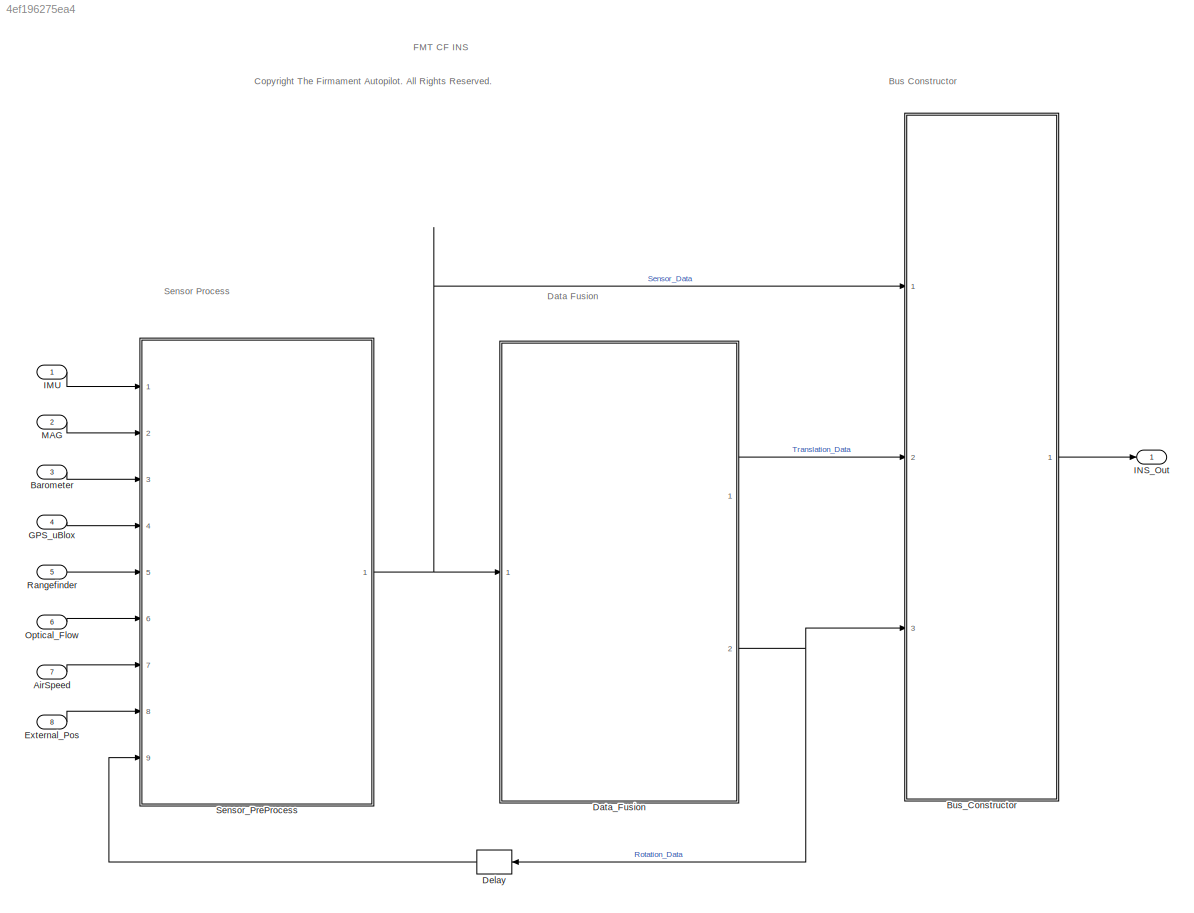
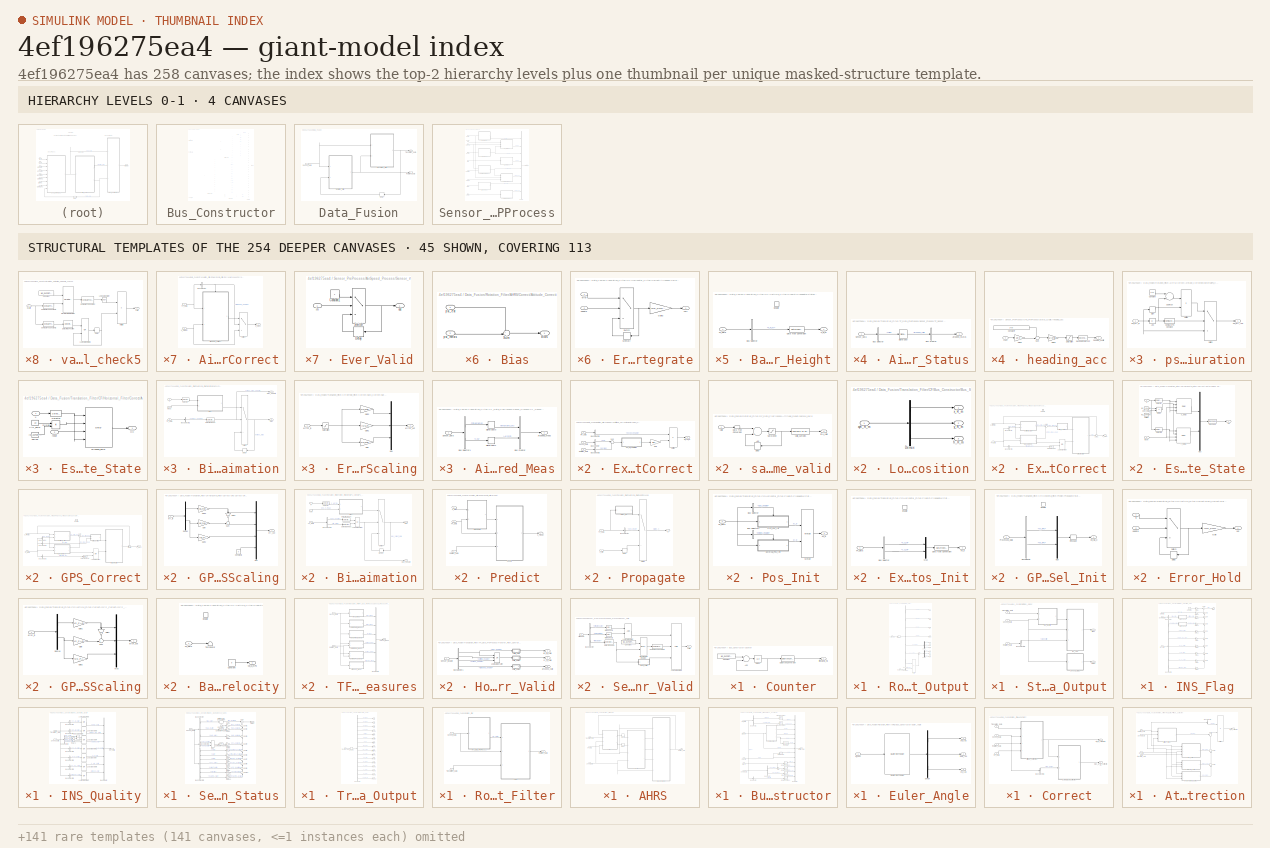
[diagram: thumbnail index - top-2 hierarchy levels (4 canvases) + 45 structural-template representatives of the remaining 254 canvases]
MODEL slx_4ef196275ea4
KIND model
CONFIG AbsTol = auto
CONFIG EnableMultiTasking = off
CONFIG FixedStep = 0.001
CONFIG MaxStep = auto
CONFIG MinStep = auto
CONFIG RelTol = 1e-3
CONFIG SampleTimeConstraint = Unconstrained
CONFIG Solver = ode4
CONFIG SolverName = ode4
CONFIG StartTime = 0.0
CONFIG StopTime = IMUex.gyro_x.Time(end)
BLOCK [Inport] AirSpeed
  BusOutputAsStruct = on
  IconDisplay = Port number
  Interpolate = off
  OutDataTypeStr = Bus: AirSpeed_Bus
  Port = 7
  PortDimensions = [1 1]
  SampleTime = [INS_CONST.dt,0]
  SignalType = real
  VarSizeSig = No
BLOCK [Inport] Barometer
  BusOutputAsStruct = on
  IconDisplay = Port number
  Interpolate = off
  OutDataTypeStr = Bus: Barometer_Bus
  Port = 3
  PortDimensions = [1 1]
  SampleTime = [INS_CONST.dt,0]
  SignalType = real
  VarSizeSig = No
BLOCK [SubSystem] Bus_Constructor
  Ports = [3, 1]
  RequestExecContextInheritance = off
  TreatAsAtomicUnit = on
BLOCK [BusCreator] Bus_Constructor/Bus Creator
  DisplayOption = bar
  InheritFromInputs = off
  Inputs = 29
  OutDataTypeStr = Bus: INS_Out_Bus
  Ports = [29, 1]
BLOCK [SubSystem] Bus_Constructor/Counter
  Ports = [0, 1]
  RequestExecContextInheritance = off
  TreatAsAtomicUnit = on
BLOCK [Sum] Bus_Constructor/Counter/Add
  InputSameDT = off
  OutDataTypeStr = Inherit: Inherit via internal rule
  Ports = [2, 1]
  SaturateOnIntegerOverflow = off
BLOCK [Constant] Bus_Constructor/Counter/Constant
  OutDataTypeStr = uint32
  Value = INS_EXPORT.period
BLOCK [DataTypeConversion] Bus_Constructor/Counter/Data Type Conversion
  OutDataTypeStr = uint32
  RndMeth = Floor
  SaturateOnIntegerOverflow = off
BLOCK [UnitDelay] Bus_Constructor/Counter/Output
  InitialCondition = 0.0
  SampleTime = -1
BLOCK [Outport] Bus_Constructor/Counter/timestamp_ms
  IconDisplay = Port number
BLOCK [Outport] Bus_Constructor/INS_Out
  IconDisplay = Port number
  OutDataTypeStr = Bus: INS_Out_Bus
BLOCK [Inport] Bus_Constructor/Rotation_Data
  IconDisplay = Port number
  Port = 3
BLOCK [SubSystem] Bus_Constructor/Rotation_Output
  Ports = [2, 10]
  RequestExecContextInheritance = off
  TreatAsAtomicUnit = on
BLOCK [BusSelector] Bus_Constructor/Rotation_Output/Bus Selector
  OutputAsBus = off
  OutputSignals = ba_mPs2
  Ports = [1, 1]
BLOCK [BusSelector] Bus_Constructor/Rotation_Output/Bus Selector3
  OutputAsBus = off
  OutputSignals = phi_rad,theta_rad,psi_rad,att_quat,gyr_B_radPs,acc_B_mPs2,M_BO
  Ports = [1, 7]
BLOCK [Demux] Bus_Constructor/Rotation_Output/Demux3
  DisplayOption = bar
  Outputs = 3
  Ports = [1, 3]
BLOCK [Demux] Bus_Constructor/Rotation_Output/Demux4
  DisplayOption = bar
  Outputs = 3
  Ports = [1, 3]
BLOCK [Product] Bus_Constructor/Rotation_Output/Multiply
  InputSameDT = off
  Multiplication = Matrix(*)
  OutDataTypeStr = Inherit: Inherit via internal rule
  Ports = [2, 1]
  RndMeth = Floor
  SaturateOnIntegerOverflow = off
BLOCK [Inport] Bus_Constructor/Rotation_Output/Rotation_Data
  IconDisplay = Port number
BLOCK [SignalConversion] Bus_Constructor/Rotation_Output/Signal Copy
  OverrideOpt = off
BLOCK [Sum] Bus_Constructor/Rotation_Output/Sum
  IconShape = round
  InputSameDT = off
  Inputs = |+-
  OutDataTypeStr = Inherit: Inherit via internal rule
  Ports = [2, 1]
  SaturateOnIntegerOverflow = off
BLOCK [Inport] Bus_Constructor/Rotation_Output/Translation_Data
  IconDisplay = Port number
  Port = 2
BLOCK [Outport] Bus_Constructor/Rotation_Output/att_quat
  IconDisplay = Port number
  Port = 4
BLOCK [Outport] Bus_Constructor/Rotation_Output/ax
  IconDisplay = Port number
  Port = 8
BLOCK [Outport] Bus_Constructor/Rotation_Output/ay
  IconDisplay = Port number
  Port = 9
BLOCK [Outport] Bus_Constructor/Rotation_Output/az
  IconDisplay = Port number
  Port = 10
BLOCK [Outport] Bus_Constructor/Rotation_Output/p
  IconDisplay = Port number
  Port = 5
BLOCK [Outport] Bus_Constructor/Rotation_Output/phi
  IconDisplay = Port number
BLOCK [Outport] Bus_Constructor/Rotation_Output/psi
  IconDisplay = Port number
  Port = 3
BLOCK [Outport] Bus_Constructor/Rotation_Output/q
  IconDisplay = Port number
  Port = 6
BLOCK [Outport] Bus_Constructor/Rotation_Output/r
  IconDisplay = Port number
  Port = 7
BLOCK [Outport] Bus_Constructor/Rotation_Output/theta
  IconDisplay = Port number
  Port = 2
BLOCK [Inport] Bus_Constructor/Sensor_Data
  IconDisplay = Port number
BLOCK [SubSystem] Bus_Constructor/Status_Output
  Ports = [3, 2]
  RequestExecContextInheritance = off
  TreatAsAtomicUnit = on
BLOCK [BusSelector] Bus_Constructor/Status_Output/Bus Selector2
  OutputAsBus = off
  OutputSignals = standstill
  Ports = [1, 1]
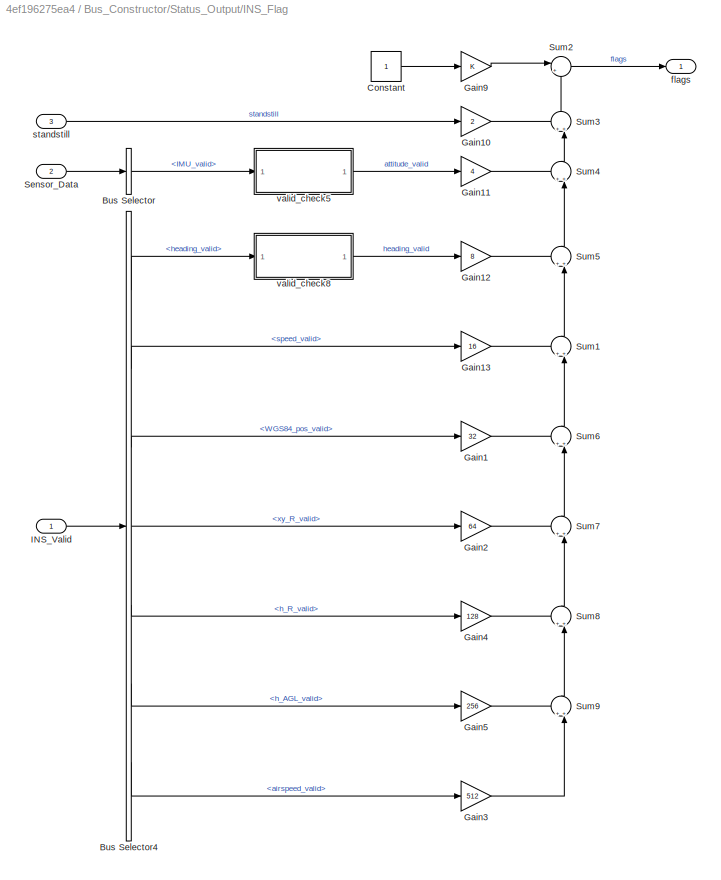
BLOCK [SubSystem] Bus_Constructor/Status_Output/INS_Flag
  Ports = [3, 1]
  RequestExecContextInheritance = off
BLOCK [BusSelector] Bus_Constructor/Status_Output/INS_Flag/Bus Selector
  OutputAsBus = off
  OutputSignals = IMU_Data.IMU_valid
  Ports = [1, 1]
BLOCK [BusSelector] Bus_Constructor/Status_Output/INS_Flag/Bus Selector4
  OutputAsBus = off
  OutputSignals = heading_valid,speed_valid,WGS84_pos_valid,xy_R_valid,h_R_valid,h_AGL_valid,airspeed_valid
  Ports = [1, 7]
BLOCK [Constant] Bus_Constructor/Status_Output/INS_Flag/Constant
  OutDataTypeStr = Inherit: Inherit via back propagation
BLOCK [Gain] Bus_Constructor/Status_Output/INS_Flag/Gain1
  Gain = 32
  OutDataTypeStr = uint32
  ParamDataTypeStr = Inherit: Inherit via internal rule
  SaturateOnIntegerOverflow = off
BLOCK [Gain] Bus_Constructor/Status_Output/INS_Flag/Gain10
  Gain = 2
  OutDataTypeStr = uint32
  ParamDataTypeStr = Inherit: Inherit via internal rule
  SaturateOnIntegerOverflow = off
BLOCK [Gain] Bus_Constructor/Status_Output/INS_Flag/Gain11
  Gain = 4
  OutDataTypeStr = uint32
  ParamDataTypeStr = Inherit: Inherit via internal rule
  SaturateOnIntegerOverflow = off
BLOCK [Gain] Bus_Constructor/Status_Output/INS_Flag/Gain12
  Gain = 8
  OutDataTypeStr = uint32
  ParamDataTypeStr = Inherit: Inherit via internal rule
  SaturateOnIntegerOverflow = off
BLOCK [Gain] Bus_Constructor/Status_Output/INS_Flag/Gain13
  Gain = 16
  OutDataTypeStr = uint32
  ParamDataTypeStr = Inherit: Inherit via internal rule
  SaturateOnIntegerOverflow = off
BLOCK [Gain] Bus_Constructor/Status_Output/INS_Flag/Gain2
  Gain = 64
  OutDataTypeStr = uint32
  ParamDataTypeStr = Inherit: Inherit via internal rule
  SaturateOnIntegerOverflow = off
BLOCK [Gain] Bus_Constructor/Status_Output/INS_Flag/Gain3
  Gain = 512
  OutDataTypeStr = uint32
  ParamDataTypeStr = Inherit: Inherit via internal rule
  SaturateOnIntegerOverflow = off
BLOCK [Gain] Bus_Constructor/Status_Output/INS_Flag/Gain4
  Gain = 128
  OutDataTypeStr = uint32
  ParamDataTypeStr = Inherit: Inherit via internal rule
  SaturateOnIntegerOverflow = off
BLOCK [Gain] Bus_Constructor/Status_Output/INS_Flag/Gain5
  Gain = 256
  OutDataTypeStr = uint32
  ParamDataTypeStr = Inherit: Inherit via internal rule
  SaturateOnIntegerOverflow = off
BLOCK [Gain] Bus_Constructor/Status_Output/INS_Flag/Gain9
  OutDataTypeStr = uint32
  ParamDataTypeStr = Inherit: Inherit via internal rule
  SaturateOnIntegerOverflow = off
BLOCK [Inport] Bus_Constructor/Status_Output/INS_Flag/INS_Valid
  IconDisplay = Port number
BLOCK [Inport] Bus_Constructor/Status_Output/INS_Flag/Sensor_Data
  IconDisplay = Port number
  Port = 2
BLOCK [Sum] Bus_Constructor/Status_Output/INS_Flag/Sum1
  IconShape = round
  InputSameDT = off
  Inputs = ++|
  OutDataTypeStr = Inherit: Inherit via internal rule
  Ports = [2, 1]
  SaturateOnIntegerOverflow = off
BLOCK [Sum] Bus_Constructor/Status_Output/INS_Flag/Sum2
  IconShape = round
  InputSameDT = off
  Inputs = |++
  OutDataTypeStr = Inherit: Inherit via internal rule
  Ports = [2, 1]
  SaturateOnIntegerOverflow = off
BLOCK [Sum] Bus_Constructor/Status_Output/INS_Flag/Sum3
  IconShape = round
  InputSameDT = off
  Inputs = ++|
  OutDataTypeStr = Inherit: Inherit via internal rule
  Ports = [2, 1]
  SaturateOnIntegerOverflow = off
BLOCK [Sum] Bus_Constructor/Status_Output/INS_Flag/Sum4
  IconShape = round
  InputSameDT = off
  Inputs = ++|
  OutDataTypeStr = Inherit: Inherit via internal rule
  Ports = [2, 1]
  SaturateOnIntegerOverflow = off
BLOCK [Sum] Bus_Constructor/Status_Output/INS_Flag/Sum5
  IconShape = round
  InputSameDT = off
  Inputs = ++|
  OutDataTypeStr = Inherit: Inherit via internal rule
  Ports = [2, 1]
  SaturateOnIntegerOverflow = off
BLOCK [Sum] Bus_Constructor/Status_Output/INS_Flag/Sum6
  IconShape = round
  InputSameDT = off
  Inputs = ++|
  OutDataTypeStr = Inherit: Inherit via internal rule
  Ports = [2, 1]
  SaturateOnIntegerOverflow = off
BLOCK [Sum] Bus_Constructor/Status_Output/INS_Flag/Sum7
  IconShape = round
  InputSameDT = off
  Inputs = ++|
  OutDataTypeStr = Inherit: Inherit via internal rule
  Ports = [2, 1]
  SaturateOnIntegerOverflow = off
BLOCK [Sum] Bus_Constructor/Status_Output/INS_Flag/Sum8
  IconShape = round
  InputSameDT = off
  Inputs = ++|
  OutDataTypeStr = Inherit: Inherit via internal rule
  Ports = [2, 1]
  SaturateOnIntegerOverflow = off
BLOCK [Sum] Bus_Constructor/Status_Output/INS_Flag/Sum9
  IconShape = round
  InputSameDT = off
  Inputs = ++|
  OutDataTypeStr = Inherit: Inherit via internal rule
  Ports = [2, 1]
  SaturateOnIntegerOverflow = off
BLOCK [Outport] Bus_Constructor/Status_Output/INS_Flag/flags
  IconDisplay = Port number
BLOCK [Inport] Bus_Constructor/Status_Output/INS_Flag/standstill
  IconDisplay = Port number
  Port = 3
BLOCK [SubSystem] Bus_Constructor/Status_Output/INS_Flag/valid_check5
  Ports = [1, 1]
  RequestExecContextInheritance = off
BLOCK [Reference] Bus_Constructor/Status_Output/INS_Flag/valid_check5/Compare To Constant  REF=simulink/Logic and Bit
Operations/Compare
To Constant
  Ports = [1, 1]
  SourceBlock = simulink/Logic and Bit\nOperations/Compare\nTo Constant
  SourceProductBaseCode = SL
  SourceProductName = Simulink
  SourceType = Compare To Constant
BLOCK [Reference] Bus_Constructor/Status_Output/INS_Flag/valid_check5/Compare To Constant1  REF=simulink/Logic and Bit
Operations/Compare
To Constant
  Ports = [1, 1]
  SourceBlock = simulink/Logic and Bit\nOperations/Compare\nTo Constant
  SourceProductBaseCode = SL
  SourceProductName = Simulink
  SourceType = Compare To Constant
BLOCK [Reference] Bus_Constructor/Status_Output/INS_Flag/valid_check5/Compare To Constant2  REF=simulink/Logic and Bit
Operations/Compare
To Constant
  Ports = [1, 1]
  SourceBlock = simulink/Logic and Bit\nOperations/Compare\nTo Constant
  SourceProductBaseCode = SL
  SourceProductName = Simulink
  SourceType = Compare To Constant
BLOCK [Constant] Bus_Constructor/Status_Output/INS_Flag/valid_check5/Constant
  OutDataTypeStr = Inherit: Inherit via back propagation
  Value = INS_EXPORT.period
BLOCK [Delay] Bus_Constructor/Status_Output/INS_Flag/valid_check5/Delay
  DelayLength = 1
  InputPortMap = u0
  Ports = [1, 1]
BLOCK [Reference] Bus_Constructor/Status_Output/INS_Flag/valid_check5/Detect Rise Positive  REF=simulink/Logic and Bit
Operations/Detect Rise
Positive
  Ports = [1, 1]
  SourceBlock = simulink/Logic and Bit\nOperations/Detect Rise\nPositive
  SourceProductBaseCode = SL
  SourceProductName = Simulink
  SourceType = Detect Rise Positive
BLOCK [DiscreteIntegrator] Bus_Constructor/Status_Output/INS_Flag/valid_check5/Discrete-Time Integrator
  ExternalReset = level
  ICPrevOutput = DiscIntNeverNeededParam
  ICPrevScaledInput = DiscIntNeverNeededParam
  InitialConditionSetting = Auto
  IntegratorMethod = Accumulation: Forward Euler
  LimitOutput = on
  LowerSaturationLimit = 0
  Ports = [2, 1]
  SampleTime = -1
  UpperSaturationLimit = 1e6
  gainval = 1
BLOCK [Logic] Bus_Constructor/Status_Output/INS_Flag/valid_check5/Logical Operator
  AllPortsSameDT = off
  Operator = NOT
  OutDataTypeStr = boolean
  Ports = [1, 1]
BLOCK [Logic] Bus_Constructor/Status_Output/INS_Flag/valid_check5/Logical Operator1
  AllPortsSameDT = off
  Operator = OR
  OutDataTypeStr = boolean
  Ports = [2, 1]
BLOCK [Product] Bus_Constructor/Status_Output/INS_Flag/valid_check5/Multiply
  InputSameDT = off
  OutDataTypeStr = Inherit: Inherit via internal rule
  Ports = [2, 1]
  RndMeth = Floor
  SaturateOnIntegerOverflow = off
BLOCK [Inport] Bus_Constructor/Status_Output/INS_Flag/valid_check5/quality
  IconDisplay = Port number
BLOCK [Outport] Bus_Constructor/Status_Output/INS_Flag/valid_check5/valid
  IconDisplay = Port number
BLOCK [SubSystem] Bus_Constructor/Status_Output/INS_Flag/valid_check8
  Ports = [1, 1]
  RequestExecContextInheritance = off
BLOCK [Reference] Bus_Constructor/Status_Output/INS_Flag/valid_check8/Compare To Constant  REF=simulink/Logic and Bit
Operations/Compare
To Constant
  Ports = [1, 1]
  SourceBlock = simulink/Logic and Bit\nOperations/Compare\nTo Constant
  SourceProductBaseCode = SL
  SourceProductName = Simulink
  SourceType = Compare To Constant
BLOCK [Reference] Bus_Constructor/Status_Output/INS_Flag/valid_check8/Compare To Constant1  REF=simulink/Logic and Bit
Operations/Compare
To Constant
  Ports = [1, 1]
  SourceBlock = simulink/Logic and Bit\nOperations/Compare\nTo Constant
  SourceProductBaseCode = SL
  SourceProductName = Simulink
  SourceType = Compare To Constant
BLOCK [Reference] Bus_Constructor/Status_Output/INS_Flag/valid_check8/Compare To Constant2  REF=simulink/Logic and Bit
Operations/Compare
To Constant
  Ports = [1, 1]
  SourceBlock = simulink/Logic and Bit\nOperations/Compare\nTo Constant
  SourceProductBaseCode = SL
  SourceProductName = Simulink
  SourceType = Compare To Constant
BLOCK [Constant] Bus_Constructor/Status_Output/INS_Flag/valid_check8/Constant
  OutDataTypeStr = Inherit: Inherit via back propagation
  Value = INS_EXPORT.period
BLOCK [Delay] Bus_Constructor/Status_Output/INS_Flag/valid_check8/Delay
  DelayLength = 1
  InputPortMap = u0
  Ports = [1, 1]
BLOCK [Reference] Bus_Constructor/Status_Output/INS_Flag/valid_check8/Detect Rise Positive  REF=simulink/Logic and Bit
Operations/Detect Rise
Positive
  Ports = [1, 1]
  SourceBlock = simulink/Logic and Bit\nOperations/Detect Rise\nPositive
  SourceProductBaseCode = SL
  SourceProductName = Simulink
  SourceType = Detect Rise Positive
BLOCK [DiscreteIntegrator] Bus_Constructor/Status_Output/INS_Flag/valid_check8/Discrete-Time Integrator
  ExternalReset = level
  ICPrevOutput = DiscIntNeverNeededParam
  ICPrevScaledInput = DiscIntNeverNeededParam
  InitialConditionSetting = Auto
  IntegratorMethod = Accumulation: Forward Euler
  LimitOutput = on
  LowerSaturationLimit = 0
  Ports = [2, 1]
  SampleTime = -1
  UpperSaturationLimit = 1e6
  gainval = 1
BLOCK [Logic] Bus_Constructor/Status_Output/INS_Flag/valid_check8/Logical Operator
  AllPortsSameDT = off
  Operator = NOT
  OutDataTypeStr = boolean
  Ports = [1, 1]
BLOCK [Logic] Bus_Constructor/Status_Output/INS_Flag/valid_check8/Logical Operator1
  AllPortsSameDT = off
  Operator = OR
  OutDataTypeStr = boolean
  Ports = [2, 1]
BLOCK [Product] Bus_Constructor/Status_Output/INS_Flag/valid_check8/Multiply
  InputSameDT = off
  OutDataTypeStr = Inherit: Inherit via internal rule
  Ports = [2, 1]
  RndMeth = Floor
  SaturateOnIntegerOverflow = off
BLOCK [Inport] Bus_Constructor/Status_Output/INS_Flag/valid_check8/quality
  IconDisplay = Port number
BLOCK [Outport] Bus_Constructor/Status_Output/INS_Flag/valid_check8/valid
  IconDisplay = Port number
BLOCK [SubSystem] Bus_Constructor/Status_Output/INS_Quality
  Ports = [2, 1]
  RequestExecContextInheritance = off
BLOCK [BusCreator] Bus_Constructor/Status_Output/INS_Quality/Bus Creator
  DisplayOption = bar
  InheritFromInputs = on
  Inputs = 7
  Ports = [7, 1]
BLOCK [BusSelector] Bus_Constructor/Status_Output/INS_Quality/Bus Selector1
  OutputAsBus = off
  OutputSignals = sensor_valid.lon_lat_valid
  Ports = [1, 1]
BLOCK [BusSelector] Bus_Constructor/Status_Output/INS_Quality/Bus Selector2
  OutputAsBus = off
  OutputSignals = GPS_Data.GPS_valid,GPS_Data.spd_quality,Mag_Data.mag_quality,ExternalPos_Data.heading_valid
  Ports = [1, 4]
BLOCK [BusSelector] Bus_Constructor/Status_Output/INS_Quality/Bus Selector3
  OutputAsBus = off
  OutputSignals = sensor_valid.h_R_valid
  Ports = [1, 1]
BLOCK [BusSelector] Bus_Constructor/Status_Output/INS_Quality/Bus Selector4
  OutputAsBus = off
  OutputSignals = sensor_valid.xy_R_valid
  Ports = [1, 1]
BLOCK [BusSelector] Bus_Constructor/Status_Output/INS_Quality/Bus Selector5
  OutputAsBus = off
  OutputSignals = sensor_valid.h_AGL_valid
  Ports = [1, 1]
BLOCK [BusSelector] Bus_Constructor/Status_Output/INS_Quality/Bus Selector6
  OutputAsBus = off
  OutputSignals = sensor_valid.airspeed_valid
  Ports = [1, 1]
BLOCK [BusSelector] Bus_Constructor/Status_Output/INS_Quality/Bus Selector7
  OutputAsBus = off
  OutputSignals = sensor_valid.xy_R_valid
  Ports = [1, 1]
BLOCK [Logic] Bus_Constructor/Status_Output/INS_Quality/Logical Operator
  AllPortsSameDT = off
  Inputs = 1
  Operator = OR
  OutDataTypeStr = boolean
  Ports = [1, 1]
BLOCK [Logic] Bus_Constructor/Status_Output/INS_Quality/Logical Operator1
  AllPortsSameDT = off
  Inputs = 1
  Operator = OR
  OutDataTypeStr = boolean
  Ports = [1, 1]
BLOCK [Logic] Bus_Constructor/Status_Output/INS_Quality/Logical Operator2
  AllPortsSameDT = off
  Inputs = 1
  Operator = OR
  OutDataTypeStr = boolean
  Ports = [1, 1]
BLOCK [Logic] Bus_Constructor/Status_Output/INS_Quality/Logical Operator3
  AllPortsSameDT = off
  Inputs = 1
  Operator = OR
  OutDataTypeStr = boolean
  Ports = [1, 1]
BLOCK [Logic] Bus_Constructor/Status_Output/INS_Quality/Logical Operator4
  AllPortsSameDT = off
  Inputs = 3
  Operator = OR
  OutDataTypeStr = boolean
  Ports = [3, 1]
BLOCK [Logic] Bus_Constructor/Status_Output/INS_Quality/Logical Operator5
  AllPortsSameDT = off
  Inputs = 1
  Operator = OR
  OutDataTypeStr = boolean
  Ports = [1, 1]
BLOCK [Logic] Bus_Constructor/Status_Output/INS_Quality/Logical Operator6
  AllPortsSameDT = off
  OutDataTypeStr = boolean
  Ports = [2, 1]
BLOCK [Logic] Bus_Constructor/Status_Output/INS_Quality/Logical Operator7
  AllPortsSameDT = off
  Inputs = 1
  Operator = OR
  OutDataTypeStr = boolean
  Ports = [1, 1]
BLOCK [Relay] Bus_Constructor/Status_Output/INS_Quality/Relay
  InputProcessing = Elements as channels (sample based)
  OffSwitchValue = 0.1
  OnSwitchValue = 0.2
BLOCK [Relay] Bus_Constructor/Status_Output/INS_Quality/Relay1
  InputProcessing = Elements as channels (sample based)
  OffSwitchValue = 0.2
  OnSwitchValue = 0.3
  OutDataTypeStr = boolean
BLOCK [Inport] Bus_Constructor/Status_Output/INS_Quality/Sensor_Data
  IconDisplay = Port number
  Port = 2
BLOCK [Inport] Bus_Constructor/Status_Output/INS_Quality/Translation_Data
  IconDisplay = Port number
BLOCK [Outport] Bus_Constructor/Status_Output/INS_Quality/ins_valid
  IconDisplay = Port number
BLOCK [Inport] Bus_Constructor/Status_Output/Rotation_Data
  IconDisplay = Port number
  Port = 2
BLOCK [Inport] Bus_Constructor/Status_Output/Sensor_Data
  IconDisplay = Port number
  Port = 3
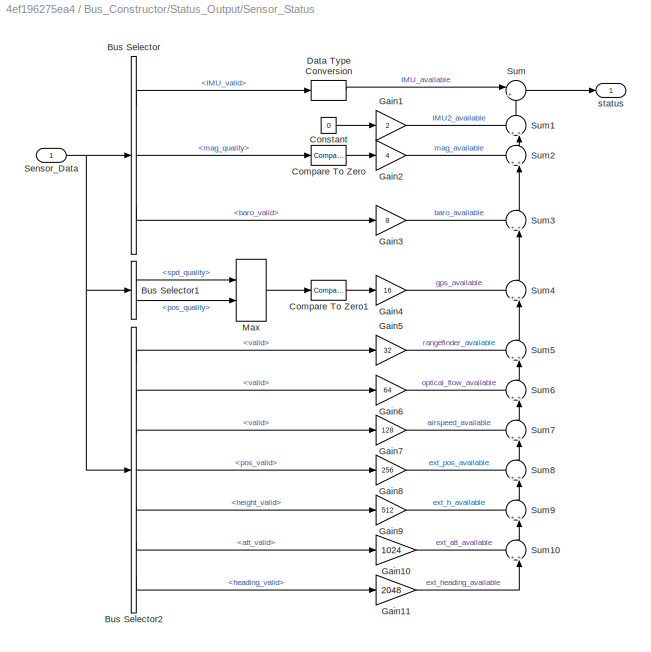
BLOCK [SubSystem] Bus_Constructor/Status_Output/Sensor_Status
  Ports = [1, 1]
  RequestExecContextInheritance = off
BLOCK [BusSelector] Bus_Constructor/Status_Output/Sensor_Status/Bus Selector
  OutputAsBus = off
  OutputSignals = IMU_Data.IMU_valid,Mag_Data.mag_quality,Baro_Data.baro_valid
  Ports = [1, 3]
BLOCK [BusSelector] Bus_Constructor/Status_Output/Sensor_Status/Bus Selector1
  OutputAsBus = off
  OutputSignals = GPS_Data.spd_quality,GPS_Data.pos_quality
  Ports = [1, 2]
BLOCK [BusSelector] Bus_Constructor/Status_Output/Sensor_Status/Bus Selector2
  OutputAsBus = off
  OutputSignals = Rangefinder_Data.valid,OpticalFlow_Data.valid,AirSpeed_Data.valid,ExternalPos_Data.pos_valid,ExternalPos_Data.height_valid,ExternalPos_Data.att_valid,ExternalPos_Data.heading_valid
  Ports = [1, 7]
BLOCK [Reference] Bus_Constructor/Status_Output/Sensor_Status/Compare To Zero  REF=simulink/Logic and Bit
Operations/Compare
To Zero
  Ports = [1, 1]
  SourceBlock = simulink/Logic and Bit\nOperations/Compare\nTo Zero
  SourceProductBaseCode = SL
  SourceProductName = Simulink
  SourceType = Compare To Zero
BLOCK [Reference] Bus_Constructor/Status_Output/Sensor_Status/Compare To Zero1  REF=simulink/Logic and Bit
Operations/Compare
To Zero
  Ports = [1, 1]
  SourceBlock = simulink/Logic and Bit\nOperations/Compare\nTo Zero
  SourceProductBaseCode = SL
  SourceProductName = Simulink
  SourceType = Compare To Zero
BLOCK [Constant] Bus_Constructor/Status_Output/Sensor_Status/Constant
  OutDataTypeStr = Inherit: Inherit via back propagation
  Value = 0
BLOCK [DataTypeConversion] Bus_Constructor/Status_Output/Sensor_Status/Data Type Conversion
  RndMeth = Floor
  SaturateOnIntegerOverflow = off
BLOCK [Gain] Bus_Constructor/Status_Output/Sensor_Status/Gain1
  Gain = 2
  OutDataTypeStr = uint32
  ParamDataTypeStr = Inherit: Inherit via internal rule
  SaturateOnIntegerOverflow = off
BLOCK [Gain] Bus_Constructor/Status_Output/Sensor_Status/Gain10
  Gain = 1024
  OutDataTypeStr = uint32
  ParamDataTypeStr = Inherit: Inherit via internal rule
  SaturateOnIntegerOverflow = off
BLOCK [Gain] Bus_Constructor/Status_Output/Sensor_Status/Gain11
  Gain = 2048
  OutDataTypeStr = uint32
  ParamDataTypeStr = Inherit: Inherit via internal rule
  SaturateOnIntegerOverflow = off
BLOCK [Gain] Bus_Constructor/Status_Output/Sensor_Status/Gain2
  Gain = 4
  OutDataTypeStr = uint32
  ParamDataTypeStr = Inherit: Inherit via internal rule
  SaturateOnIntegerOverflow = off
BLOCK [Gain] Bus_Constructor/Status_Output/Sensor_Status/Gain3
  Gain = 8
  OutDataTypeStr = uint32
  ParamDataTypeStr = Inherit: Inherit via internal rule
  SaturateOnIntegerOverflow = off
BLOCK [Gain] Bus_Constructor/Status_Output/Sensor_Status/Gain4
  Gain = 16
  OutDataTypeStr = uint32
  ParamDataTypeStr = Inherit: Inherit via internal rule
  SaturateOnIntegerOverflow = off
BLOCK [Gain] Bus_Constructor/Status_Output/Sensor_Status/Gain5
  Gain = 32
  OutDataTypeStr = uint32
  ParamDataTypeStr = Inherit: Inherit via internal rule
  SaturateOnIntegerOverflow = off
BLOCK [Gain] Bus_Constructor/Status_Output/Sensor_Status/Gain6
  Gain = 64
  OutDataTypeStr = uint32
  ParamDataTypeStr = Inherit: Inherit via internal rule
  SaturateOnIntegerOverflow = off
BLOCK [Gain] Bus_Constructor/Status_Output/Sensor_Status/Gain7
  Gain = 128
  OutDataTypeStr = uint32
  ParamDataTypeStr = Inherit: Inherit via internal rule
  SaturateOnIntegerOverflow = off
BLOCK [Gain] Bus_Constructor/Status_Output/Sensor_Status/Gain8
  Gain = 256
  OutDataTypeStr = uint32
  ParamDataTypeStr = Inherit: Inherit via internal rule
  SaturateOnIntegerOverflow = off
BLOCK [Gain] Bus_Constructor/Status_Output/Sensor_Status/Gain9
  Gain = 512
  OutDataTypeStr = uint32
  ParamDataTypeStr = Inherit: Inherit via internal rule
  SaturateOnIntegerOverflow = off
BLOCK [MinMax] Bus_Constructor/Status_Output/Sensor_Status/Max
  Function = max
  InputSameDT = off
  Inputs = 2
  Ports = [2, 1]
  SaturateOnIntegerOverflow = off
BLOCK [Inport] Bus_Constructor/Status_Output/Sensor_Status/Sensor_Data
  IconDisplay = Port number
BLOCK [Sum] Bus_Constructor/Status_Output/Sensor_Status/Sum
  IconShape = round
  InputSameDT = off
  Inputs = |++
  OutDataTypeStr = Inherit: Inherit via internal rule
  Ports = [2, 1]
  SaturateOnIntegerOverflow = off
BLOCK [Sum] Bus_Constructor/Status_Output/Sensor_Status/Sum1
  IconShape = round
  InputSameDT = off
  Inputs = ++|
  OutDataTypeStr = Inherit: Inherit via internal rule
  Ports = [2, 1]
  SaturateOnIntegerOverflow = off
BLOCK [Sum] Bus_Constructor/Status_Output/Sensor_Status/Sum10
  IconShape = round
  InputSameDT = off
  Inputs = ++|
  OutDataTypeStr = Inherit: Inherit via internal rule
  Ports = [2, 1]
  SaturateOnIntegerOverflow = off
BLOCK [Sum] Bus_Constructor/Status_Output/Sensor_Status/Sum2
  IconShape = round
  InputSameDT = off
  Inputs = ++|
  OutDataTypeStr = Inherit: Inherit via internal rule
  Ports = [2, 1]
  SaturateOnIntegerOverflow = off
BLOCK [Sum] Bus_Constructor/Status_Output/Sensor_Status/Sum3
  IconShape = round
  InputSameDT = off
  Inputs = ++|
  OutDataTypeStr = Inherit: Inherit via internal rule
  Ports = [2, 1]
  SaturateOnIntegerOverflow = off
BLOCK [Sum] Bus_Constructor/Status_Output/Sensor_Status/Sum4
  IconShape = round
  InputSameDT = off
  Inputs = ++|
  OutDataTypeStr = Inherit: Inherit via internal rule
  Ports = [2, 1]
  SaturateOnIntegerOverflow = off
BLOCK [Sum] Bus_Constructor/Status_Output/Sensor_Status/Sum5
  IconShape = round
  InputSameDT = off
  Inputs = ++|
  OutDataTypeStr = Inherit: Inherit via internal rule
  Ports = [2, 1]
  SaturateOnIntegerOverflow = off
BLOCK [Sum] Bus_Constructor/Status_Output/Sensor_Status/Sum6
  IconShape = round
  InputSameDT = off
  Inputs = ++|
  OutDataTypeStr = Inherit: Inherit via internal rule
  Ports = [2, 1]
  SaturateOnIntegerOverflow = off
BLOCK [Sum] Bus_Constructor/Status_Output/Sensor_Status/Sum7
  IconShape = round
  InputSameDT = off
  Inputs = ++|
  OutDataTypeStr = Inherit: Inherit via internal rule
  Ports = [2, 1]
  SaturateOnIntegerOverflow = off
BLOCK [Sum] Bus_Constructor/Status_Output/Sensor_Status/Sum8
  IconShape = round
  InputSameDT = off
  Inputs = ++|
  OutDataTypeStr = Inherit: Inherit via internal rule
  Ports = [2, 1]
  SaturateOnIntegerOverflow = off
BLOCK [Sum] Bus_Constructor/Status_Output/Sensor_Status/Sum9
  IconShape = round
  InputSameDT = off
  Inputs = ++|
  OutDataTypeStr = Inherit: Inherit via internal rule
  Ports = [2, 1]
  SaturateOnIntegerOverflow = off
BLOCK [Outport] Bus_Constructor/Status_Output/Sensor_Status/status
  IconDisplay = Port number
BLOCK [Inport] Bus_Constructor/Status_Output/Translation_Data
  IconDisplay = Port number
BLOCK [Outport] Bus_Constructor/Status_Output/flags
  IconDisplay = Port number
BLOCK [Outport] Bus_Constructor/Status_Output/status
  IconDisplay = Port number
  Port = 2
BLOCK [Inport] Bus_Constructor/Translation_Data
  IconDisplay = Port number
  Port = 2
BLOCK [SubSystem] Bus_Constructor/Translation_Output
  Ports = [1, 16]
  RequestExecContextInheritance = off
  TreatAsAtomicUnit = on
BLOCK [BusSelector] Bus_Constructor/Translation_Output/Bus Selector4
  OutputAsBus = off
  OutputSignals = vn_mPs,ve_mPs,vd_mPs,TAS_mPs,lat_rad,lon_rad,h_m,lat_0_rad,lon_0_rad,h_0_m,dx_dlat,dy_dlon,x_R_m,y_R_m,h_R_m,h_gnd_m
  Ports = [1, 16]
BLOCK [SignalConversion] Bus_Constructor/Translation_Output/Signal Copy
  OverrideOpt = off
BLOCK [Inport] Bus_Constructor/Translation_Output/Translation_Data
  IconDisplay = Port number
BLOCK [Outport] Bus_Constructor/Translation_Output/airspeed
  IconDisplay = Port number
  Port = 4
BLOCK [Outport] Bus_Constructor/Translation_Output/altitude
  IconDisplay = Port number
  Port = 7
BLOCK [Outport] Bus_Constructor/Translation_Output/altitude_0
  IconDisplay = Port number
  Port = 10
BLOCK [Outport] Bus_Constructor/Translation_Output/dx_dlat
  IconDisplay = Port number
  Port = 11
BLOCK [Outport] Bus_Constructor/Translation_Output/dy_dlon
  IconDisplay = Port number
  Port = 12
BLOCK [Outport] Bus_Constructor/Translation_Output/h_AGL_m
  IconDisplay = Port number
  Port = 16
BLOCK [Outport] Bus_Constructor/Translation_Output/h_R_m
  IconDisplay = Port number
  Port = 15
BLOCK [Outport] Bus_Constructor/Translation_Output/latitude
  IconDisplay = Port number
  Port = 5
BLOCK [Outport] Bus_Constructor/Translation_Output/latitude_0
  IconDisplay = Port number
  Port = 8
BLOCK [Outport] Bus_Constructor/Translation_Output/longitude
  IconDisplay = Port number
  Port = 6
BLOCK [Outport] Bus_Constructor/Translation_Output/lontitude_0
  IconDisplay = Port number
  Port = 9
BLOCK [Outport] Bus_Constructor/Translation_Output/velD
  IconDisplay = Port number
  Port = 3
BLOCK [Outport] Bus_Constructor/Translation_Output/velE
  IconDisplay = Port number
  Port = 2
BLOCK [Outport] Bus_Constructor/Translation_Output/velN
  IconDisplay = Port number
BLOCK [Outport] Bus_Constructor/Translation_Output/x_R_m
  IconDisplay = Port number
  Port = 13
BLOCK [Outport] Bus_Constructor/Translation_Output/y_R_m
  IconDisplay = Port number
  Port = 14
BLOCK [SubSystem] Data_Fusion
  Ports = [1, 2]
  RequestExecContextInheritance = off
  TreatAsAtomicUnit = on
BLOCK [Delay] Data_Fusion/Delay
  DelayLength = 1
  InputPortMap = u0
  Ports = [1, 1]
BLOCK [Outport] Data_Fusion/Rotation_Data
  IconDisplay = Port number
  Port = 2
BLOCK [SubSystem] Data_Fusion/Rotation_Filter
  Ports = [2, 1]
  RequestExecContextInheritance = off
BLOCK [SubSystem] Data_Fusion/Rotation_Filter/AHRS
  Ports = [3, 1]
  RequestExecContextInheritance = off
  TreatAsAtomicUnit = on
BLOCK [SubSystem] Data_Fusion/Rotation_Filter/AHRS/Bus_Constructor
  Ports = [5, 1]
  RequestExecContextInheritance = off
  TreatAsAtomicUnit = on
BLOCK [BusCreator] Data_Fusion/Rotation_Filter/AHRS/Bus_Constructor/Bus Creator
  DisplayOption = bar
  InheritFromInputs = on
  Inputs = 13
  Ports = [13, 1]
BLOCK [BusSelector] Data_Fusion/Rotation_Filter/AHRS/Bus_Constructor/Bus Selector
  OutputAsBus = off
  OutputSignals = IMU_Data.gyr_B_radPs,IMU_Data.acc_B_mPs2
  Ports = [1, 2]
BLOCK [BusSelector] Data_Fusion/Rotation_Filter/AHRS/Bus_Constructor/Bus Selector1
  OutputAsBus = off
  OutputSignals = att_reset,heading_reset
  Ports = [1, 2]
BLOCK [BusSelector] Data_Fusion/Rotation_Filter/AHRS/Bus_Constructor/Bus Selector2
  OutputAsBus = off
  OutputSignals = standstill
  Ports = [1, 1]
BLOCK [Inport] Data_Fusion/Rotation_Filter/AHRS/Bus_Constructor/DCM_OB
  IconDisplay = Port number
  Port = 3
BLOCK [SubSystem] Data_Fusion/Rotation_Filter/AHRS/Bus_Constructor/Euler_Angle
  Ports = [1, 3]
  RequestExecContextInheritance = off
BLOCK [Demux] Data_Fusion/Rotation_Filter/AHRS/Bus_Constructor/Euler_Angle/Demux
  DisplayOption = bar
  Outputs = 3
  Ports = [1, 3]
BLOCK [Reference] Data_Fusion/Rotation_Filter/AHRS/Bus_Constructor/Euler_Angle/Quaternion To Euler  REF=FMT_Model_Lib/Quaternion/Quaternion To Euler
  Ports = [1, 1]
  SourceBlock = FMT_Model_Lib/Quaternion/Quaternion To Euler
  SourceProductName = FMT Toolbox
  SourceType = Quaternion To Euler
BLOCK [Inport] Data_Fusion/Rotation_Filter/AHRS/Bus_Constructor/Euler_Angle/att_quat
  IconDisplay = Port number
BLOCK [Outport] Data_Fusion/Rotation_Filter/AHRS/Bus_Constructor/Euler_Angle/phi_rad
  IconDisplay = Port number
BLOCK [Outport] Data_Fusion/Rotation_Filter/AHRS/Bus_Constructor/Euler_Angle/psi_rad
  IconDisplay = Port number
  Port = 3
BLOCK [Outport] Data_Fusion/Rotation_Filter/AHRS/Bus_Constructor/Euler_Angle/theta_rad
  IconDisplay = Port number
  Port = 2
BLOCK [Math] Data_Fusion/Rotation_Filter/AHRS/Bus_Constructor/Math Function
  Operator = transpose
  Ports = [1, 1]
BLOCK [Reference] Data_Fusion/Rotation_Filter/AHRS/Bus_Constructor/Psi To DCM  REF=FMT_Model_Lib/Transformation/Psi To DCM
  Ports = [1, 1]
  SourceBlock = FMT_Model_Lib/Transformation/Psi To DCM
  SourceProductName = FMT Toolbox
  SourceType = Rotation Matrix X-Axis
BLOCK [Inport] Data_Fusion/Rotation_Filter/AHRS/Bus_Constructor/RF_Data
  IconDisplay = Port number
BLOCK [Outport] Data_Fusion/Rotation_Filter/AHRS/Bus_Constructor/Rotation_Data
  IconDisplay = Port number
BLOCK [Inport] Data_Fusion/Rotation_Filter/AHRS/Bus_Constructor/Sensor_Data
  IconDisplay = Port number
  Port = 5
BLOCK [SignalConversion] Data_Fusion/Rotation_Filter/AHRS/Bus_Constructor/Signal Conversion
  OverrideOpt = off
BLOCK [SignalConversion] Data_Fusion/Rotation_Filter/AHRS/Bus_Constructor/Signal Conversion1
  OverrideOpt = off
BLOCK [SignalConversion] Data_Fusion/Rotation_Filter/AHRS/Bus_Constructor/Signal Conversion2
  OverrideOpt = off
BLOCK [SignalConversion] Data_Fusion/Rotation_Filter/AHRS/Bus_Constructor/Signal Conversion3
  OverrideOpt = off
BLOCK [SignalConversion] Data_Fusion/Rotation_Filter/AHRS/Bus_Constructor/Signal Conversion4
  OverrideOpt = off
BLOCK [SignalConversion] Data_Fusion/Rotation_Filter/AHRS/Bus_Constructor/Signal Conversion5
  OverrideOpt = off
BLOCK [Sum] Data_Fusion/Rotation_Filter/AHRS/Bus_Constructor/Sum
  IconShape = round
  InputSameDT = off
  Inputs = ++|
  OutDataTypeStr = Inherit: Inherit via internal rule
  Ports = [2, 1]
  SaturateOnIntegerOverflow = off
BLOCK [Inport] Data_Fusion/Rotation_Filter/AHRS/Bus_Constructor/att_quat
  IconDisplay = Port number
  Port = 2
BLOCK [Inport] Data_Fusion/Rotation_Filter/AHRS/Bus_Constructor/bias_g
  IconDisplay = Port number
  Port = 4
BLOCK [SubSystem] Data_Fusion/Rotation_Filter/AHRS/Correct
  Ports = [4, 2]
  RequestExecContextInheritance = off
  TreatAsAtomicUnit = on
BLOCK [SubSystem] Data_Fusion/Rotation_Filter/AHRS/Correct/Attitude_Correction
  Ports = [4, 1]
  RequestExecContextInheritance = off
BLOCK [SubSystem] Data_Fusion/Rotation_Filter/AHRS/Correct/Attitude_Correction/Attitude_Correct
  Ports = [3, 1]
  RequestExecContextInheritance = off
BLOCK [SubSystem] Data_Fusion/Rotation_Filter/AHRS/Correct/Attitude_Correction/Attitude_Correct/Acc_Correct
  Ports = [3, 1]
  RequestExecContextInheritance = off
BLOCK [SubSystem] Data_Fusion/Rotation_Filter/AHRS/Correct/Attitude_Correction/Attitude_Correct/Acc_Correct/Heading_Correct
  Ports = [3, 1]
  RequestExecContextInheritance = off
BLOCK [Reference] Data_Fusion/Rotation_Filter/AHRS/Correct/Attitude_Correction/Attitude_Correct/Acc_Correct/Heading_Correct/Cross Product  REF=FMT_Model_Lib/Math/Cross Product
  Ports = [2, 1]
  SourceBlock = FMT_Model_Lib/Math/Cross Product
  SourceProductName = FMT Toolbox
  SourceType = Cross Product
BLOCK [DeadZone] Data_Fusion/Rotation_Filter/AHRS/Correct/Attitude_Correction/Attitude_Correct/Acc_Correct/Heading_Correct/Dead Zone2
  LowerValue = -0.2
  UpperValue = 0.2
BLOCK [Demux] Data_Fusion/Rotation_Filter/AHRS/Correct/Attitude_Correction/Attitude_Correct/Acc_Correct/Heading_Correct/Demux
  DisplayOption = bar
  Outputs = 3
  Ports = [1, 3]
BLOCK [Demux] Data_Fusion/Rotation_Filter/AHRS/Correct/Attitude_Correction/Attitude_Correct/Acc_Correct/Heading_Correct/Demux1
  DisplayOption = bar
  Outputs = 3
  Ports = [1, 3]
BLOCK [Gain] Data_Fusion/Rotation_Filter/AHRS/Correct/Attitude_Correction/Attitude_Correct/Acc_Correct/Heading_Correct/Gain
  Gain = INS_PARAM.HEADING_GAIN
  OutDataTypeStr = single
  ParamDataTypeStr = Inherit: Inherit via internal rule
  SaturateOnIntegerOverflow = off
BLOCK [Gain] Data_Fusion/Rotation_Filter/AHRS/Correct/Attitude_Correction/Attitude_Correct/Acc_Correct/Heading_Correct/Gain1
  Gain = 0
  OutDataTypeStr = Inherit: Inherit via internal rule
  ParamDataTypeStr = Inherit: Inherit via internal rule
  SaturateOnIntegerOverflow = off
BLOCK [Gain] Data_Fusion/Rotation_Filter/AHRS/Correct/Attitude_Correction/Attitude_Correct/Acc_Correct/Heading_Correct/Gain2
  Gain = 0
  OutDataTypeStr = Inherit: Inherit via internal rule
  ParamDataTypeStr = Inherit: Inherit via internal rule
  SaturateOnIntegerOverflow = off
BLOCK [Product] Data_Fusion/Rotation_Filter/AHRS/Correct/Attitude_Correction/Attitude_Correct/Acc_Correct/Heading_Correct/Multiply
  InputSameDT = off
  OutDataTypeStr = Inherit: Inherit via internal rule
  Ports = [2, 1]
  RndMeth = Floor
  SaturateOnIntegerOverflow = off
BLOCK [Mux] Data_Fusion/Rotation_Filter/AHRS/Correct/Attitude_Correction/Attitude_Correct/Acc_Correct/Heading_Correct/Mux1
  DisplayOption = bar
  Inputs = 3
  Ports = [3, 1]
BLOCK [Mux] Data_Fusion/Rotation_Filter/AHRS/Correct/Attitude_Correction/Attitude_Correct/Acc_Correct/Heading_Correct/Mux2
  DisplayOption = bar
  Inputs = 3
  Ports = [3, 1]
BLOCK [Saturate] Data_Fusion/Rotation_Filter/AHRS/Correct/Attitude_Correction/Attitude_Correct/Acc_Correct/Heading_Correct/Saturation
  InputPortMap = u0
  Ports = [1, 1]
BLOCK [Inport] Data_Fusion/Rotation_Filter/AHRS/Correct/Attitude_Correction/Attitude_Correct/Acc_Correct/Heading_Correct/acc_est_O_mPs2
  IconDisplay = Port number
BLOCK [Inport] Data_Fusion/Rotation_Filter/AHRS/Correct/Attitude_Correction/Attitude_Correct/Acc_Correct/Heading_Correct/acc_meas_O_mPs2
  IconDisplay = Port number
  Port = 2
BLOCK [Inport] Data_Fusion/Rotation_Filter/AHRS/Correct/Attitude_Correction/Attitude_Correct/Acc_Correct/Heading_Correct/acc_meas_valid
  IconDisplay = Port number
  Port = 3
BLOCK [Outport] Data_Fusion/Rotation_Filter/AHRS/Correct/Attitude_Correction/Attitude_Correct/Acc_Correct/Heading_Correct/heading_correct
  IconDisplay = Port number
BLOCK [Sum] Data_Fusion/Rotation_Filter/AHRS/Correct/Attitude_Correction/Attitude_Correct/Acc_Correct/Sum
  IconShape = round
  InputSameDT = off
  Inputs = |++
  OutDataTypeStr = Inherit: Inherit via internal rule
  Ports = [2, 1]
  SaturateOnIntegerOverflow = off
BLOCK [SubSystem] Data_Fusion/Rotation_Filter/AHRS/Correct/Attitude_Correction/Attitude_Correct/Acc_Correct/Verticle_Correct
  Ports = [2, 1]
  RequestExecContextInheritance = off
BLOCK [Reference] Data_Fusion/Rotation_Filter/AHRS/Correct/Attitude_Correction/Attitude_Correct/Acc_Correct/Verticle_Correct/Cross Product  REF=FMT_Model_Lib/Math/Cross Product
  Ports = [2, 1]
  SourceBlock = FMT_Model_Lib/Math/Cross Product
  SourceProductName = FMT Toolbox
  SourceType = Cross Product
BLOCK [Demux] Data_Fusion/Rotation_Filter/AHRS/Correct/Attitude_Correction/Attitude_Correct/Acc_Correct/Verticle_Correct/Demux
  DisplayOption = bar
  Outputs = 3
  Ports = [1, 3]
BLOCK [Gain] Data_Fusion/Rotation_Filter/AHRS/Correct/Attitude_Correction/Attitude_Correct/Acc_Correct/Verticle_Correct/Gain
  Gain = INS_PARAM.ATT_GAIN
  OutDataTypeStr = Inherit: Inherit via internal rule
  ParamDataTypeStr = Inherit: Inherit via internal rule
  SaturateOnIntegerOverflow = off
BLOCK [Gain] Data_Fusion/Rotation_Filter/AHRS/Correct/Attitude_Correction/Attitude_Correct/Acc_Correct/Verticle_Correct/Gain1
  Gain = INS_PARAM.ATT_GAIN
  OutDataTypeStr = Inherit: Inherit via internal rule
  ParamDataTypeStr = Inherit: Inherit via internal rule
  SaturateOnIntegerOverflow = off
BLOCK [Gain] Data_Fusion/Rotation_Filter/AHRS/Correct/Attitude_Correction/Attitude_Correct/Acc_Correct/Verticle_Correct/Gain2
  Gain = 0
  OutDataTypeStr = Inherit: Inherit via internal rule
  ParamDataTypeStr = Inherit: Inherit via internal rule
  SaturateOnIntegerOverflow = off
BLOCK [Mux] Data_Fusion/Rotation_Filter/AHRS/Correct/Attitude_Correction/Attitude_Correct/Acc_Correct/Verticle_Correct/Mux
  DisplayOption = bar
  Inputs = 3
  Ports = [3, 1]
BLOCK [SubSystem] Data_Fusion/Rotation_Filter/AHRS/Correct/Attitude_Correction/Attitude_Correct/Acc_Correct/Verticle_Correct/Saturation
  Ports = [1, 1]
  RequestExecContextInheritance = off
BLOCK [Constant] Data_Fusion/Rotation_Filter/AHRS/Correct/Attitude_Correction/Attitude_Correct/Acc_Correct/Verticle_Correct/Saturation/Constant1
  OutDataTypeStr = Inherit: Inherit via back propagation
  Value = 1e-4
BLOCK [Product] Data_Fusion/Rotation_Filter/AHRS/Correct/Attitude_Correction/Attitude_Correct/Acc_Correct/Verticle_Correct/Saturation/Divide
  InputSameDT = off
  Inputs = **/
  OutDataTypeStr = Inherit: Inherit via internal rule
  Ports = [3, 1]
  RndMeth = Floor
  SaturateOnIntegerOverflow = off
BLOCK [Product] Data_Fusion/Rotation_Filter/AHRS/Correct/Attitude_Correction/Attitude_Correct/Acc_Correct/Verticle_Correct/Saturation/Divide1
  InputSameDT = off
  Inputs = */
  OutDataTypeStr = Inherit: Inherit via internal rule
  Ports = [2, 1]
  RndMeth = Floor
  SaturateOnIntegerOverflow = off
BLOCK [Product] Data_Fusion/Rotation_Filter/AHRS/Correct/Attitude_Correction/Attitude_Correct/Acc_Correct/Verticle_Correct/Saturation/Divide2
  InputSameDT = off
  Inputs = **
  OutDataTypeStr = Inherit: Inherit via internal rule
  Ports = [2, 1]
  RndMeth = Floor
  SaturateOnIntegerOverflow = off
BLOCK [MinMax] Data_Fusion/Rotation_Filter/AHRS/Correct/Attitude_Correction/Attitude_Correct/Acc_Correct/Verticle_Correct/Saturation/MinMax
  Function = max
  InputSameDT = off
  Inputs = 2
  Ports = [2, 1]
  SaturateOnIntegerOverflow = off
BLOCK [Saturate] Data_Fusion/Rotation_Filter/AHRS/Correct/Attitude_Correction/Attitude_Correct/Acc_Correct/Verticle_Correct/Saturation/Saturation
  InputPortMap = u0
  LowerLimit = -pi/2
  Ports = [1, 1]
  UpperLimit = pi/2
BLOCK [Trigonometry] Data_Fusion/Rotation_Filter/AHRS/Correct/Attitude_Correction/Attitude_Correct/Acc_Correct/Verticle_Correct/Saturation/Trigonometric Function
  Ports = [1, 1]
BLOCK [Reference] Data_Fusion/Rotation_Filter/AHRS/Correct/Attitude_Correction/Attitude_Correct/Acc_Correct/Verticle_Correct/Saturation/Vector Modulus  REF=FMT_Model_Lib/Math/Vector Modulus
  Ports = [1, 1]
  SourceBlock = FMT_Model_Lib/Math/Vector Modulus
  SourceProductName = FMT Toolbox
  SourceType = Euclidean Norm
BLOCK [Constant] Data_Fusion/Rotation_Filter/AHRS/Correct/Attitude_Correction/Attitude_Correct/Acc_Correct/Verticle_Correct/Saturation/max
  OutDataTypeStr = single
  Value = 10/180*pi
BLOCK [Inport] Data_Fusion/Rotation_Filter/AHRS/Correct/Attitude_Correction/Attitude_Correct/Acc_Correct/Verticle_Correct/Saturation/u
  IconDisplay = Port number
BLOCK [Outport] Data_Fusion/Rotation_Filter/AHRS/Correct/Attitude_Correction/Attitude_Correct/Acc_Correct/Verticle_Correct/Saturation/y
  IconDisplay = Port number
BLOCK [Reference] Data_Fusion/Rotation_Filter/AHRS/Correct/Attitude_Correction/Attitude_Correct/Acc_Correct/Verticle_Correct/Vector Normalize  REF=FMT_Model_Lib/Math/Vector Normalize
  Ports = [1, 1]
  SourceBlock = FMT_Model_Lib/Math/Vector Normalize
  SourceProductName = FMT Toolbox
  SourceType = Vector Normalize
BLOCK [Reference] Data_Fusion/Rotation_Filter/AHRS/Correct/Attitude_Correction/Attitude_Correct/Acc_Correct/Verticle_Correct/Vector Normalize1  REF=FMT_Model_Lib/Math/Vector Normalize
  Ports = [1, 1]
  SourceBlock = FMT_Model_Lib/Math/Vector Normalize
  SourceProductName = FMT Toolbox
  SourceType = Vector Normalize
BLOCK [Inport] Data_Fusion/Rotation_Filter/AHRS/Correct/Attitude_Correction/Attitude_Correct/Acc_Correct/Verticle_Correct/acc_est_O_mPs2
  IconDisplay = Port number
BLOCK [Inport] Data_Fusion/Rotation_Filter/AHRS/Correct/Attitude_Correction/Attitude_Correct/Acc_Correct/Verticle_Correct/acc_meas_O_mPs2
  IconDisplay = Port number
  Port = 2
BLOCK [Outport] Data_Fusion/Rotation_Filter/AHRS/Correct/Attitude_Correction/Attitude_Correct/Acc_Correct/Verticle_Correct/vert_correct
  IconDisplay = Port number
BLOCK [Inport] Data_Fusion/Rotation_Filter/AHRS/Correct/Attitude_Correction/Attitude_Correct/Acc_Correct/acc_est_O_mPs2
  IconDisplay = Port number
  Port = 3
BLOCK [Inport] Data_Fusion/Rotation_Filter/AHRS/Correct/Attitude_Correction/Attitude_Correct/Acc_Correct/acc_meas_O_mPs2
  IconDisplay = Port number
  Port = 2
BLOCK [Inport] Data_Fusion/Rotation_Filter/AHRS/Correct/Attitude_Correction/Attitude_Correct/Acc_Correct/acc_meas_valid
  IconDisplay = Port number
BLOCK [Outport] Data_Fusion/Rotation_Filter/AHRS/Correct/Attitude_Correction/Attitude_Correct/Acc_Correct/att_correct
  IconDisplay = Port number
BLOCK [SubSystem] Data_Fusion/Rotation_Filter/AHRS/Correct/Attitude_Correction/Attitude_Correct/Acc_Estimator
  Ports = [3, 3]
  RequestExecContextInheritance = off
BLOCK [SubSystem] Data_Fusion/Rotation_Filter/AHRS/Correct/Attitude_Correction/Attitude_Correct/Acc_Estimator/Estimate_Acc
  Ports = [3, 1]
  RequestExecContextInheritance = off
BLOCK [BusSelector] Data_Fusion/Rotation_Filter/AHRS/Correct/Attitude_Correction/Attitude_Correct/Acc_Estimator/Estimate_Acc/Bus Selector
  OutputAsBus = off
  OutputSignals = IMU_Data.acc_B_mPs2
  Ports = [1, 1]
BLOCK [BusSelector] Data_Fusion/Rotation_Filter/AHRS/Correct/Attitude_Correction/Attitude_Correct/Acc_Estimator/Estimate_Acc/Bus Selector1
  OutputAsBus = off
  OutputSignals = M_OB
  Ports = [1, 1]
BLOCK [Delay] Data_Fusion/Rotation_Filter/AHRS/Correct/Attitude_Correction/Attitude_Correct/Acc_Estimator/Estimate_Acc/Delay
  DelayLengthSource = Input port
  DelayLengthUpperLimit = 200
  InputPortMap = u0,p1
  Ports = [2, 1]
BLOCK [Constant] Data_Fusion/Rotation_Filter/AHRS/Correct/Attitude_Correction/Attitude_Correct/Acc_Estimator/Estimate_Acc/GPS_Delay
  OutDataTypeStr = uint16
  Value = 200/INS_EXPORT.period
BLOCK [Product] Data_Fusion/Rotation_Filter/AHRS/Correct/Attitude_Correction/Attitude_Correct/Acc_Estimator/Estimate_Acc/Multiply
  InputSameDT = off
  Multiplication = Matrix(*)
  OutDataTypeStr = Inherit: Inherit via internal rule
  Ports = [2, 1]
  RndMeth = Floor
  SaturateOnIntegerOverflow = off
BLOCK [Product] Data_Fusion/Rotation_Filter/AHRS/Correct/Attitude_Correction/Attitude_Correct/Acc_Estimator/Estimate_Acc/Multiply2
  InputSameDT = off
  OutDataTypeStr = single
  Ports = [2, 1]
  RndMeth = Floor
  SaturateOnIntegerOverflow = off
BLOCK [Inport] Data_Fusion/Rotation_Filter/AHRS/Correct/Attitude_Correction/Attitude_Correct/Acc_Estimator/Estimate_Acc/Rotation_Data
  IconDisplay = Port number
  Port = 3
BLOCK [Reference] Data_Fusion/Rotation_Filter/AHRS/Correct/Attitude_Correction/Attitude_Correct/Acc_Estimator/Estimate_Acc/Second Order LPF  REF=FMT_Model_Lib/Filter/Second Order LPF
  Ports = [1, 1]
  SourceBlock = FMT_Model_Lib/Filter/Second Order LPF
  SourceProductName = FMT Toolbox
  SourceType = Second-order Low-pass Filter
BLOCK [Inport] Data_Fusion/Rotation_Filter/AHRS/Correct/Attitude_Correction/Attitude_Correct/Acc_Estimator/Estimate_Acc/Sensor_Data
  IconDisplay = Port number
  Port = 2
BLOCK [Outport] Data_Fusion/Rotation_Filter/AHRS/Correct/Attitude_Correction/Attitude_Correct/Acc_Estimator/Estimate_Acc/acc_est_O_mPs2
  IconDisplay = Port number
BLOCK [Inport] Data_Fusion/Rotation_Filter/AHRS/Correct/Attitude_Correction/Attitude_Correct/Acc_Estimator/Estimate_Acc/gps_meas_valid
  IconDisplay = Port number
BLOCK [SubSystem] Data_Fusion/Rotation_Filter/AHRS/Correct/Attitude_Correction/Attitude_Correct/Acc_Estimator/Measure_Acc
  Ports = [2, 2]
  RequestExecContextInheritance = off
BLOCK [SubSystem] Data_Fusion/Rotation_Filter/AHRS/Correct/Attitude_Correction/Attitude_Correct/Acc_Estimator/Measure_Acc/Bus_Selection
  Ports = [1, 1]
  RequestExecContextInheritance = off
BLOCK [BusSelector] Data_Fusion/Rotation_Filter/AHRS/Correct/Attitude_Correction/Attitude_Correct/Acc_Estimator/Measure_Acc/Bus_Selection/Bus Selector2
  OutputAsBus = off
  OutputSignals = GPS_Data.vn_mPs,GPS_Data.ve_mPs,GPS_Data.vd_mPs
  Ports = [1, 3]
BLOCK [Mux] Data_Fusion/Rotation_Filter/AHRS/Correct/Attitude_Correction/Attitude_Correct/Acc_Estimator/Measure_Acc/Bus_Selection/Mux
  DisplayOption = bar
  Inputs = 3
  Ports = [3, 1]
BLOCK [Inport] Data_Fusion/Rotation_Filter/AHRS/Correct/Attitude_Correction/Attitude_Correct/Acc_Estimator/Measure_Acc/Bus_Selection/Sensor_Data
  IconDisplay = Port number
BLOCK [Outport] Data_Fusion/Rotation_Filter/AHRS/Correct/Attitude_Correction/Attitude_Correct/Acc_Estimator/Measure_Acc/Bus_Selection/gps_vel_O_mPs
  IconDisplay = Port number
BLOCK [Reference] Data_Fusion/Rotation_Filter/AHRS/Correct/Attitude_Correction/Attitude_Correct/Acc_Estimator/Measure_Acc/Detect Increase  REF=simulink/Logic and Bit
Operations/Detect
Increase
  Ports = [1, 1]
  SourceBlock = simulink/Logic and Bit\nOperations/Detect\nIncrease
  SourceProductBaseCode = SL
  SourceProductName = Simulink
  SourceType = Detect Increase
BLOCK [SubSystem] Data_Fusion/Rotation_Filter/AHRS/Correct/Attitude_Correction/Attitude_Correct/Acc_Estimator/Measure_Acc/GPS_Meas_Acc
  Ports = [2, 1, 1]
  RequestExecContextInheritance = off
BLOCK [EnablePort] Data_Fusion/Rotation_Filter/AHRS/Correct/Attitude_Correction/Attitude_Correct/Acc_Estimator/Measure_Acc/GPS_Meas_Acc/Enable
  Ports = []
  StatesWhenEnabling = reset
BLOCK [DiscreteIntegrator] Data_Fusion/Rotation_Filter/AHRS/Correct/Attitude_Correction/Attitude_Correct/Acc_Estimator/Measure_Acc/GPS_Meas_Acc/Integrator
  ExternalReset = level
  ICPrevOutput = DiscIntNeverNeededParam
  ICPrevScaledInput = DiscIntNeverNeededParam
  InitialConditionSetting = Auto
  Ports = [2, 1]
  SampleTime = -1
BLOCK [DiscreteIntegrator] Data_Fusion/Rotation_Filter/AHRS/Correct/Attitude_Correction/Attitude_Correct/Acc_Estimator/Measure_Acc/GPS_Meas_Acc/Integrator1
  ExternalReset = level
  ICPrevOutput = DiscIntNeverNeededParam
  ICPrevScaledInput = DiscIntNeverNeededParam
  InitialConditionSetting = Auto
  InitialConditionSource = external
  Ports = [3, 1]
  SampleTime = -1
BLOCK [Sum] Data_Fusion/Rotation_Filter/AHRS/Correct/Attitude_Correction/Attitude_Correct/Acc_Estimator/Measure_Acc/GPS_Meas_Acc/Sum
  IconShape = round
  InputSameDT = off
  Inputs = |++
  OutDataTypeStr = Inherit: Inherit via internal rule
  Ports = [2, 1]
  SaturateOnIntegerOverflow = off
BLOCK [Sum] Data_Fusion/Rotation_Filter/AHRS/Correct/Attitude_Correction/Attitude_Correct/Acc_Estimator/Measure_Acc/GPS_Meas_Acc/Sum1
  IconShape = round
  InputSameDT = off
  Inputs = |+-
  OutDataTypeStr = Inherit: Inherit via internal rule
  Ports = [2, 1]
  SaturateOnIntegerOverflow = off
BLOCK [Gain] Data_Fusion/Rotation_Filter/AHRS/Correct/Attitude_Correction/Attitude_Correct/Acc_Estimator/Measure_Acc/GPS_Meas_Acc/gain
  Gain = 2*zeta*fc
  OutDataTypeStr = Inherit: Inherit via internal rule
  ParamDataTypeStr = Inherit: Inherit via internal rule
  SaturateOnIntegerOverflow = off
BLOCK [Gain] Data_Fusion/Rotation_Filter/AHRS/Correct/Attitude_Correction/Attitude_Correct/Acc_Estimator/Measure_Acc/GPS_Meas_Acc/gain1
  Gain = fc^2
  OutDataTypeStr = Inherit: Inherit via internal rule
  ParamDataTypeStr = Inherit: Inherit via internal rule
  SaturateOnIntegerOverflow = off
BLOCK [Outport] Data_Fusion/Rotation_Filter/AHRS/Correct/Attitude_Correction/Attitude_Correct/Acc_Estimator/Measure_Acc/GPS_Meas_Acc/gps_acc_O_mPs2
  IconDisplay = Port number
BLOCK [Inport] Data_Fusion/Rotation_Filter/AHRS/Correct/Attitude_Correction/Attitude_Correct/Acc_Estimator/Measure_Acc/GPS_Meas_Acc/gps_vel_O_mPs
  IconDisplay = Port number
  Port = 2
BLOCK [Inport] Data_Fusion/Rotation_Filter/AHRS/Correct/Attitude_Correction/Attitude_Correct/Acc_Estimator/Measure_Acc/GPS_Meas_Acc/reset
  IconDisplay = Port number
BLOCK [Inport] Data_Fusion/Rotation_Filter/AHRS/Correct/Attitude_Correction/Attitude_Correct/Acc_Estimator/Measure_Acc/RF_Data
  IconDisplay = Port number
BLOCK [Inport] Data_Fusion/Rotation_Filter/AHRS/Correct/Attitude_Correction/Attitude_Correct/Acc_Estimator/Measure_Acc/Sensor_Data
  IconDisplay = Port number
  Port = 2
BLOCK [SubSystem] Data_Fusion/Rotation_Filter/AHRS/Correct/Attitude_Correction/Attitude_Correct/Acc_Estimator/Measure_Acc/Valid_Check
  Ports = [2, 1]
  RequestExecContextInheritance = off
BLOCK [BusSelector] Data_Fusion/Rotation_Filter/AHRS/Correct/Attitude_Correction/Attitude_Correct/Acc_Estimator/Measure_Acc/Valid_Check/Bus Selector
  OutputAsBus = off
  OutputSignals = GPS_Data.GPS_valid,GPS_Data.spd_quality
  Ports = [1, 2]
BLOCK [BusSelector] Data_Fusion/Rotation_Filter/AHRS/Correct/Attitude_Correction/Attitude_Correct/Acc_Estimator/Measure_Acc/Valid_Check/Bus Selector1
  OutputAsBus = off
  OutputSignals = mag_enable,gps_psi_enable,ext_psi_enable
  Ports = [1, 3]
BLOCK [Logic] Data_Fusion/Rotation_Filter/AHRS/Correct/Attitude_Correction/Attitude_Correct/Acc_Estimator/Measure_Acc/Valid_Check/Logical Operator
  AllPortsSameDT = off
  Operator = NOT
  OutDataTypeStr = boolean
  Ports = [1, 1]
BLOCK [Logic] Data_Fusion/Rotation_Filter/AHRS/Correct/Attitude_Correction/Attitude_Correct/Acc_Estimator/Measure_Acc/Valid_Check/Logical Operator1
  AllPortsSameDT = off
  Inputs = 3
  OutDataTypeStr = boolean
  Ports = [3, 1]
BLOCK [Logic] Data_Fusion/Rotation_Filter/AHRS/Correct/Attitude_Correction/Attitude_Correct/Acc_Estimator/Measure_Acc/Valid_Check/Logical Operator2
  AllPortsSameDT = off
  Inputs = 3
  Operator = OR
  OutDataTypeStr = boolean
  Ports = [3, 1]
BLOCK [Inport] Data_Fusion/Rotation_Filter/AHRS/Correct/Attitude_Correction/Attitude_Correct/Acc_Estimator/Measure_Acc/Valid_Check/RF_Data
  IconDisplay = Port number
BLOCK [Relay] Data_Fusion/Rotation_Filter/AHRS/Correct/Attitude_Correction/Attitude_Correct/Acc_Estimator/Measure_Acc/Valid_Check/Relay
  InputProcessing = Elements as channels (sample based)
  OffSwitchValue = 0.1
  OnSwitchValue = 0.2
BLOCK [Inport] Data_Fusion/Rotation_Filter/AHRS/Correct/Attitude_Correction/Attitude_Correct/Acc_Estimator/Measure_Acc/Valid_Check/Sensor_Data
  IconDisplay = Port number
  Port = 2
BLOCK [Outport] Data_Fusion/Rotation_Filter/AHRS/Correct/Attitude_Correction/Attitude_Correct/Acc_Estimator/Measure_Acc/Valid_Check/gps_meas_acc_valid
  IconDisplay = Port number
BLOCK [Outport] Data_Fusion/Rotation_Filter/AHRS/Correct/Attitude_Correction/Attitude_Correct/Acc_Estimator/Measure_Acc/gps_meas_acc
  IconDisplay = Port number
  Port = 2
BLOCK [Outport] Data_Fusion/Rotation_Filter/AHRS/Correct/Attitude_Correction/Attitude_Correct/Acc_Estimator/Measure_Acc/gps_meas_valid
  IconDisplay = Port number
BLOCK [Product] Data_Fusion/Rotation_Filter/AHRS/Correct/Attitude_Correction/Attitude_Correct/Acc_Estimator/Multiply
  InputSameDT = off
  OutDataTypeStr = single
  Ports = [2, 1]
  RndMeth = Floor
  SaturateOnIntegerOverflow = off
BLOCK [Inport] Data_Fusion/Rotation_Filter/AHRS/Correct/Attitude_Correction/Attitude_Correct/Acc_Estimator/RF_Data
  IconDisplay = Port number
BLOCK [Inport] Data_Fusion/Rotation_Filter/AHRS/Correct/Attitude_Correction/Attitude_Correct/Acc_Estimator/Rotation_Data
  IconDisplay = Port number
  Port = 3
BLOCK [Inport] Data_Fusion/Rotation_Filter/AHRS/Correct/Attitude_Correction/Attitude_Correct/Acc_Estimator/Sensor_Data
  IconDisplay = Port number
  Port = 2
BLOCK [Sum] Data_Fusion/Rotation_Filter/AHRS/Correct/Attitude_Correction/Attitude_Correct/Acc_Estimator/Sum2
  IconShape = round
  InputSameDT = off
  Inputs = ++|
  OutDataTypeStr = Inherit: Inherit via internal rule
  Ports = [2, 1]
  SaturateOnIntegerOverflow = off
BLOCK [Outport] Data_Fusion/Rotation_Filter/AHRS/Correct/Attitude_Correction/Attitude_Correct/Acc_Estimator/acc_est_O_mPs2
  IconDisplay = Port number
  Port = 3
BLOCK [Outport] Data_Fusion/Rotation_Filter/AHRS/Correct/Attitude_Correction/Attitude_Correct/Acc_Estimator/acc_meas_O_mPs2
  IconDisplay = Port number
  Port = 2
BLOCK [Outport] Data_Fusion/Rotation_Filter/AHRS/Correct/Attitude_Correction/Attitude_Correct/Acc_Estimator/acc_meas_valid
  IconDisplay = Port number
BLOCK [Constant] Data_Fusion/Rotation_Filter/AHRS/Correct/Attitude_Correction/Attitude_Correct/Acc_Estimator/gravity
  OutDataTypeStr = single
  Value = [0;0;-INS_CONST.g]
  VectorParams1D = off
BLOCK [Inport] Data_Fusion/Rotation_Filter/AHRS/Correct/Attitude_Correction/Attitude_Correct/RF_Data
  IconDisplay = Port number
  Port = 3
BLOCK [Inport] Data_Fusion/Rotation_Filter/AHRS/Correct/Attitude_Correction/Attitude_Correct/Rotation_Data
  IconDisplay = Port number
BLOCK [Inport] Data_Fusion/Rotation_Filter/AHRS/Correct/Attitude_Correction/Attitude_Correct/Sensor_Data
  IconDisplay = Port number
  Port = 2
BLOCK [Outport] Data_Fusion/Rotation_Filter/AHRS/Correct/Attitude_Correction/Attitude_Correct/att_corr_O
  IconDisplay = Port number
BLOCK [BusSelector] Data_Fusion/Rotation_Filter/AHRS/Correct/Attitude_Correction/Bus Selector2
  OutputAsBus = off
  OutputSignals = M_BO
  Ports = [1, 1]
BLOCK [SubSystem] Data_Fusion/Rotation_Filter/AHRS/Correct/Attitude_Correction/ExternalPsi_Correct
  Ports = [3, 1]
  RequestExecContextInheritance = off
BLOCK [BusSelector] Data_Fusion/Rotation_Filter/AHRS/Correct/Attitude_Correction/ExternalPsi_Correct/Bus Selector
  OutputAsBus = off
  OutputSignals = ExternalPos_Data.psi
  Ports = [1, 1]
BLOCK [BusSelector] Data_Fusion/Rotation_Filter/AHRS/Correct/Attitude_Correction/ExternalPsi_Correct/Bus Selector1
  OutputAsBus = off
  OutputSignals = ext_psi_enable
  Ports = [1, 1]
BLOCK [BusSelector] Data_Fusion/Rotation_Filter/AHRS/Correct/Attitude_Correction/ExternalPsi_Correct/Bus Selector2
  OutputAsBus = off
  OutputSignals = psi_rad
  Ports = [1, 1]
BLOCK [Gain] Data_Fusion/Rotation_Filter/AHRS/Correct/Attitude_Correction/ExternalPsi_Correct/Gain
  Gain = [0; 0; 1]
  OutDataTypeStr = Inherit: Inherit via internal rule
  ParamDataTypeStr = Inherit: Inherit via internal rule
  SaturateOnIntegerOverflow = off
BLOCK [Product] Data_Fusion/Rotation_Filter/AHRS/Correct/Attitude_Correction/ExternalPsi_Correct/Multiply
  InputSameDT = off
  OutDataTypeStr = Inherit: Inherit via internal rule
  Ports = [2, 1]
  RndMeth = Floor
  SaturateOnIntegerOverflow = off
BLOCK [Inport] Data_Fusion/Rotation_Filter/AHRS/Correct/Attitude_Correction/ExternalPsi_Correct/RF_Data
  IconDisplay = Port number
BLOCK [Inport] Data_Fusion/Rotation_Filter/AHRS/Correct/Attitude_Correction/ExternalPsi_Correct/Rotation_Data
  IconDisplay = Port number
  Port = 2
BLOCK [Inport] Data_Fusion/Rotation_Filter/AHRS/Correct/Attitude_Correction/ExternalPsi_Correct/Sensor_Data
  IconDisplay = Port number
  Port = 3
BLOCK [Sum] Data_Fusion/Rotation_Filter/AHRS/Correct/Attitude_Correction/ExternalPsi_Correct/Sum
  IconShape = round
  InputSameDT = off
  Inputs = |+-
  OutDataTypeStr = Inherit: Inherit via internal rule
  Ports = [2, 1]
  SaturateOnIntegerOverflow = off
BLOCK [Outport] Data_Fusion/Rotation_Filter/AHRS/Correct/Attitude_Correction/ExternalPsi_Correct/att_corr_O
  IconDisplay = Port number
BLOCK [SubSystem] Data_Fusion/Rotation_Filter/AHRS/Correct/Attitude_Correction/ExternalPsi_Correct/psi_err_saturation
  Ports = [1, 1]
  RequestExecContextInheritance = off
BLOCK [Abs] Data_Fusion/Rotation_Filter/AHRS/Correct/Attitude_Correction/ExternalPsi_Correct/psi_err_saturation/Abs
  SaturateOnIntegerOverflow = off
BLOCK [Reference] Data_Fusion/Rotation_Filter/AHRS/Correct/Attitude_Correction/ExternalPsi_Correct/psi_err_saturation/Compare To Constant  REF=simulink/Logic and Bit
Operations/Compare
To Constant
  Ports = [1, 1]
  SourceBlock = simulink/Logic and Bit\nOperations/Compare\nTo Constant
  SourceProductBaseCode = SL
  SourceProductName = Simulink
  SourceType = Compare To Constant
BLOCK [Constant] Data_Fusion/Rotation_Filter/AHRS/Correct/Attitude_Correction/ExternalPsi_Correct/psi_err_saturation/Constant
  OutDataTypeStr = single
  Value = 2*pi
BLOCK [Product] Data_Fusion/Rotation_Filter/AHRS/Correct/Attitude_Correction/ExternalPsi_Correct/psi_err_saturation/Multiply
  InputSameDT = off
  OutDataTypeStr = Inherit: Inherit via internal rule
  Ports = [2, 1]
  RndMeth = Floor
  SaturateOnIntegerOverflow = off
BLOCK [Signum] Data_Fusion/Rotation_Filter/AHRS/Correct/Attitude_Correction/ExternalPsi_Correct/psi_err_saturation/Sign
BLOCK [Sum] Data_Fusion/Rotation_Filter/AHRS/Correct/Attitude_Correction/ExternalPsi_Correct/psi_err_saturation/Subtract
  InputSameDT = off
  Inputs = -+
  OutDataTypeStr = Inherit: Inherit via internal rule
  Ports = [2, 1]
  SaturateOnIntegerOverflow = off
BLOCK [Switch] Data_Fusion/Rotation_Filter/AHRS/Correct/Attitude_Correction/ExternalPsi_Correct/psi_err_saturation/Switch
  Criteria = u2 > Threshold
  InputSameDT = off
  SaturateOnIntegerOverflow = off
BLOCK [Inport] Data_Fusion/Rotation_Filter/AHRS/Correct/Attitude_Correction/ExternalPsi_Correct/psi_err_saturation/psi_err_in
  IconDisplay = Port number
BLOCK [Outport] Data_Fusion/Rotation_Filter/AHRS/Correct/Attitude_Correction/ExternalPsi_Correct/psi_err_saturation/psi_err_rad
  IconDisplay = Port number
BLOCK [SubSystem] Data_Fusion/Rotation_Filter/AHRS/Correct/Attitude_Correction/GPS_Heading_Correct
  Ports = [3, 1]
  RequestExecContextInheritance = off
BLOCK [BusSelector] Data_Fusion/Rotation_Filter/AHRS/Correct/Attitude_Correction/GPS_Heading_Correct/Bus Selector
  OutputAsBus = off
  OutputSignals = GPS_Data.heading_rad
  Ports = [1, 1]
BLOCK [BusSelector] Data_Fusion/Rotation_Filter/AHRS/Correct/Attitude_Correction/GPS_Heading_Correct/Bus Selector1
  OutputAsBus = off
  OutputSignals = gps_psi_enable
  Ports = [1, 1]
BLOCK [BusSelector] Data_Fusion/Rotation_Filter/AHRS/Correct/Attitude_Correction/GPS_Heading_Correct/Bus Selector2
  OutputAsBus = off
  OutputSignals = psi_rad
  Ports = [1, 1]
BLOCK [Gain] Data_Fusion/Rotation_Filter/AHRS/Correct/Attitude_Correction/GPS_Heading_Correct/Gain
  Gain = [0; 0; 1]
  OutDataTypeStr = Inherit: Inherit via internal rule
  ParamDataTypeStr = Inherit: Inherit via internal rule
  SaturateOnIntegerOverflow = off
BLOCK [Product] Data_Fusion/Rotation_Filter/AHRS/Correct/Attitude_Correction/GPS_Heading_Correct/Multiply
  InputSameDT = off
  OutDataTypeStr = Inherit: Inherit via internal rule
  Ports = [2, 1]
  RndMeth = Floor
  SaturateOnIntegerOverflow = off
BLOCK [Inport] Data_Fusion/Rotation_Filter/AHRS/Correct/Attitude_Correction/GPS_Heading_Correct/RF_Data
  IconDisplay = Port number
BLOCK [Inport] Data_Fusion/Rotation_Filter/AHRS/Correct/Attitude_Correction/GPS_Heading_Correct/Rotation_Data
  IconDisplay = Port number
  Port = 2
BLOCK [Inport] Data_Fusion/Rotation_Filter/AHRS/Correct/Attitude_Correction/GPS_Heading_Correct/Sensor_Data
  IconDisplay = Port number
  Port = 3
BLOCK [Sum] Data_Fusion/Rotation_Filter/AHRS/Correct/Attitude_Correction/GPS_Heading_Correct/Sum
  IconShape = round
  InputSameDT = off
  Inputs = |+-
  OutDataTypeStr = Inherit: Inherit via internal rule
  Ports = [2, 1]
  SaturateOnIntegerOverflow = off
BLOCK [Outport] Data_Fusion/Rotation_Filter/AHRS/Correct/Attitude_Correction/GPS_Heading_Correct/att_corr_O
  IconDisplay = Port number
BLOCK [SubSystem] Data_Fusion/Rotation_Filter/AHRS/Correct/Attitude_Correction/GPS_Heading_Correct/psi_err_saturation
  Ports = [1, 1]
  RequestExecContextInheritance = off
BLOCK [Abs] Data_Fusion/Rotation_Filter/AHRS/Correct/Attitude_Correction/GPS_Heading_Correct/psi_err_saturation/Abs
  SaturateOnIntegerOverflow = off
BLOCK [Reference] Data_Fusion/Rotation_Filter/AHRS/Correct/Attitude_Correction/GPS_Heading_Correct/psi_err_saturation/Compare To Constant  REF=simulink/Logic and Bit
Operations/Compare
To Constant
  Ports = [1, 1]
  SourceBlock = simulink/Logic and Bit\nOperations/Compare\nTo Constant
  SourceProductBaseCode = SL
  SourceProductName = Simulink
  SourceType = Compare To Constant
BLOCK [Constant] Data_Fusion/Rotation_Filter/AHRS/Correct/Attitude_Correction/GPS_Heading_Correct/psi_err_saturation/Constant
  OutDataTypeStr = single
  Value = 2*pi
BLOCK [Product] Data_Fusion/Rotation_Filter/AHRS/Correct/Attitude_Correction/GPS_Heading_Correct/psi_err_saturation/Multiply
  InputSameDT = off
  OutDataTypeStr = Inherit: Inherit via internal rule
  Ports = [2, 1]
  RndMeth = Floor
  SaturateOnIntegerOverflow = off
BLOCK [Signum] Data_Fusion/Rotation_Filter/AHRS/Correct/Attitude_Correction/GPS_Heading_Correct/psi_err_saturation/Sign
BLOCK [Sum] Data_Fusion/Rotation_Filter/AHRS/Correct/Attitude_Correction/GPS_Heading_Correct/psi_err_saturation/Subtract
  InputSameDT = off
  Inputs = -+
  OutDataTypeStr = Inherit: Inherit via internal rule
  Ports = [2, 1]
  SaturateOnIntegerOverflow = off
BLOCK [Switch] Data_Fusion/Rotation_Filter/AHRS/Correct/Attitude_Correction/GPS_Heading_Correct/psi_err_saturation/Switch
  Criteria = u2 > Threshold
  InputSameDT = off
  SaturateOnIntegerOverflow = off
BLOCK [Inport] Data_Fusion/Rotation_Filter/AHRS/Correct/Attitude_Correction/GPS_Heading_Correct/psi_err_saturation/psi_err_in
  IconDisplay = Port number
BLOCK [Outport] Data_Fusion/Rotation_Filter/AHRS/Correct/Attitude_Correction/GPS_Heading_Correct/psi_err_saturation/psi_err_rad
  IconDisplay = Port number
BLOCK [SubSystem] Data_Fusion/Rotation_Filter/AHRS/Correct/Attitude_Correction/Mag_Correct
  Ports = [4, 1]
  RequestExecContextInheritance = off
BLOCK [BusSelector] Data_Fusion/Rotation_Filter/AHRS/Correct/Attitude_Correction/Mag_Correct/Bus Selector
  OutputAsBus = off
  OutputSignals = psi_rad
  Ports = [1, 1]
BLOCK [BusSelector] Data_Fusion/Rotation_Filter/AHRS/Correct/Attitude_Correction/Mag_Correct/Bus Selector1
  OutputAsBus = off
  OutputSignals = Mag_Data.mag_norm_B
  Ports = [1, 1]
BLOCK [Constant] Data_Fusion/Rotation_Filter/AHRS/Correct/Attitude_Correction/Mag_Correct/Constant
  OutDataTypeStr = single
  Value = [0 0]
BLOCK [Gain] Data_Fusion/Rotation_Filter/AHRS/Correct/Attitude_Correction/Mag_Correct/Gain3
  Gain = INS_PARAM.MAG_GAIN
  OutDataTypeStr = Inherit: Inherit via internal rule
  ParamDataTypeStr = Inherit: Inherit via internal rule
  SaturateOnIntegerOverflow = off
BLOCK [SubSystem] Data_Fusion/Rotation_Filter/AHRS/Correct/Attitude_Correction/Mag_Correct/Mag_Control
  Ports = [4, 2]
  RequestExecContextInheritance = off
BLOCK [BusSelector] Data_Fusion/Rotation_Filter/AHRS/Correct/Attitude_Correction/Mag_Correct/Mag_Control/Bus Selector3
  OutputAsBus = off
  OutputSignals = mag_enable
  Ports = [1, 1]
BLOCK [Reference] Data_Fusion/Rotation_Filter/AHRS/Correct/Attitude_Correction/Mag_Correct/Mag_Control/Detect Increase1  REF=simulink/Logic and Bit
Operations/Detect
Increase
  Ports = [1, 1]
  SourceBlock = simulink/Logic and Bit\nOperations/Detect\nIncrease
  SourceProductBaseCode = SL
  SourceProductName = Simulink
  SourceType = Detect Increase
BLOCK [SubSystem] Data_Fusion/Rotation_Filter/AHRS/Correct/Attitude_Correction/Mag_Correct/Mag_Control/Hover
  Ports = [2, 1]
  RequestExecContextInheritance = off
BLOCK [Abs] Data_Fusion/Rotation_Filter/AHRS/Correct/Attitude_Correction/Mag_Correct/Mag_Control/Hover/Abs1
  SaturateOnIntegerOverflow = off
BLOCK [Abs] Data_Fusion/Rotation_Filter/AHRS/Correct/Attitude_Correction/Mag_Correct/Mag_Control/Hover/Abs2
  SaturateOnIntegerOverflow = off
BLOCK [Sum] Data_Fusion/Rotation_Filter/AHRS/Correct/Attitude_Correction/Mag_Correct/Mag_Control/Hover/Add
  InputSameDT = off
  OutDataTypeStr = Inherit: Inherit via internal rule
  Ports = [2, 1]
  SaturateOnIntegerOverflow = off
BLOCK [BusSelector] Data_Fusion/Rotation_Filter/AHRS/Correct/Attitude_Correction/Mag_Correct/Mag_Control/Hover/Bus Selector
  OutputAsBus = off
  OutputSignals = sensor_valid.xy_R_valid,vn_mPs,ve_mPs
  Ports = [1, 3]
BLOCK [BusSelector] Data_Fusion/Rotation_Filter/AHRS/Correct/Attitude_Correction/Mag_Correct/Mag_Control/Hover/Bus Selector2
  OutputAsBus = off
  OutputSignals = gyr_B_radPs,standstill
  Ports = [1, 2]
BLOCK [Reference] Data_Fusion/Rotation_Filter/AHRS/Correct/Attitude_Correction/Mag_Correct/Mag_Control/Hover/Compare To Constant4  REF=simulink/Logic and Bit
Operations/Compare
To Constant
  Ports = [1, 1]
  SourceBlock = simulink/Logic and Bit\nOperations/Compare\nTo Constant
  SourceProductBaseCode = SL
  SourceProductName = Simulink
  SourceType = Compare To Constant
BLOCK [Constant] Data_Fusion/Rotation_Filter/AHRS/Correct/Attitude_Correction/Mag_Correct/Mag_Control/Hover/Constant1
  OutDataTypeStr = single
  Value = INS_EXPORT.period
BLOCK [DiscreteIntegrator] Data_Fusion/Rotation_Filter/AHRS/Correct/Attitude_Correction/Mag_Correct/Mag_Control/Hover/Discrete-Time Integrator
  ExternalReset = level
  ICPrevOutput = DiscIntNeverNeededParam
  ICPrevScaledInput = DiscIntNeverNeededParam
  InitialConditionSetting = Auto
  IntegratorMethod = Accumulation: Forward Euler
  LimitOutput = on
  LowerSaturationLimit = 0
  OutDataTypeStr = uint32
  Ports = [2, 1]
  SampleTime = -1
  SaturateOnIntegerOverflow = on
  UpperSaturationLimit = 4294967295
BLOCK [Logic] Data_Fusion/Rotation_Filter/AHRS/Correct/Attitude_Correction/Mag_Correct/Mag_Control/Hover/Logical Operator3
  AllPortsSameDT = off
  Inputs = 1
  Operator = NOT
  OutDataTypeStr = boolean
  Ports = [1, 1]
BLOCK [Logic] Data_Fusion/Rotation_Filter/AHRS/Correct/Attitude_Correction/Mag_Correct/Mag_Control/Hover/Logical Operator4
  AllPortsSameDT = off
  Inputs = 4
  Operator = OR
  OutDataTypeStr = boolean
  Ports = [4, 1]
BLOCK [Relay] Data_Fusion/Rotation_Filter/AHRS/Correct/Attitude_Correction/Mag_Correct/Mag_Control/Hover/Relay1
  InputProcessing = Elements as channels (sample based)
  OffSwitchValue = 0.1
  OnSwitchValue = 0.2
BLOCK [Relay] Data_Fusion/Rotation_Filter/AHRS/Correct/Attitude_Correction/Mag_Correct/Mag_Control/Hover/Relay2
  InputProcessing = Elements as channels (sample based)
  OffSwitchValue = 0.2
  OnSwitchValue = 0.35
BLOCK [Inport] Data_Fusion/Rotation_Filter/AHRS/Correct/Attitude_Correction/Mag_Correct/Mag_Control/Hover/Rotation_Data
  IconDisplay = Port number
BLOCK [Reference] Data_Fusion/Rotation_Filter/AHRS/Correct/Attitude_Correction/Mag_Correct/Mag_Control/Hover/Second Order LPF  REF=FMT_Model_Lib/Filter/Second Order LPF
  Ports = [1, 1]
  SourceBlock = FMT_Model_Lib/Filter/Second Order LPF
  SourceProductName = FMT Toolbox
  SourceType = Second-order Low-pass Filter
BLOCK [Reference] Data_Fusion/Rotation_Filter/AHRS/Correct/Attitude_Correction/Mag_Correct/Mag_Control/Hover/Second Order LPF2  REF=FMT_Model_Lib/Filter/Second Order LPF
  Ports = [1, 1]
  SourceBlock = FMT_Model_Lib/Filter/Second Order LPF
  SourceProductName = FMT Toolbox
  SourceType = Second-order Low-pass Filter
BLOCK [Selector] Data_Fusion/Rotation_Filter/AHRS/Correct/Attitude_Correction/Mag_Correct/Mag_Control/Hover/Selector
  IndexOptions = Index vector (dialog)
  Indices = 3
  InputPortWidth = 3
  OutputSizes = 1
  Ports = [1, 1]
BLOCK [Sqrt] Data_Fusion/Rotation_Filter/AHRS/Correct/Attitude_Correction/Mag_Correct/Mag_Control/Hover/Sqrt
BLOCK [Math] Data_Fusion/Rotation_Filter/AHRS/Correct/Attitude_Correction/Mag_Correct/Mag_Control/Hover/Square
  Operator = square
  Ports = [1, 1]
BLOCK [Math] Data_Fusion/Rotation_Filter/AHRS/Correct/Attitude_Correction/Mag_Correct/Mag_Control/Hover/Square1
  Operator = square
  Ports = [1, 1]
BLOCK [Inport] Data_Fusion/Rotation_Filter/AHRS/Correct/Attitude_Correction/Mag_Correct/Mag_Control/Hover/Translation_Data
  IconDisplay = Port number
  Port = 2
BLOCK [Outport] Data_Fusion/Rotation_Filter/AHRS/Correct/Attitude_Correction/Mag_Correct/Mag_Control/Hover/hover
  IconDisplay = Port number
BLOCK [SubSystem] Data_Fusion/Rotation_Filter/AHRS/Correct/Attitude_Correction/Mag_Correct/Mag_Control/Hover_Mag_Correcrt
  Ports = [3, 1]
  RequestExecContextInheritance = off
BLOCK [BusSelector] Data_Fusion/Rotation_Filter/AHRS/Correct/Attitude_Correction/Mag_Correct/Mag_Control/Hover_Mag_Correcrt/Bus Selector
  OutputAsBus = off
  OutputSignals = Mag_Data.mag_valid
  Ports = [1, 1]
BLOCK [BusSelector] Data_Fusion/Rotation_Filter/AHRS/Correct/Attitude_Correction/Mag_Correct/Mag_Control/Hover_Mag_Correcrt/Bus Selector1
  OutputAsBus = off
  OutputSignals = mag_enable,gps_psi_enable,ext_psi_enable
  Ports = [1, 3]
BLOCK [Logic] Data_Fusion/Rotation_Filter/AHRS/Correct/Attitude_Correction/Mag_Correct/Mag_Control/Hover_Mag_Correcrt/Logical Operator
  AllPortsSameDT = off
  Inputs = 3
  Operator = OR
  OutDataTypeStr = boolean
  Ports = [3, 1]
BLOCK [Logic] Data_Fusion/Rotation_Filter/AHRS/Correct/Attitude_Correction/Mag_Correct/Mag_Control/Hover_Mag_Correcrt/Logical Operator2
  AllPortsSameDT = off
  Operator = NOT
  OutDataTypeStr = boolean
  Ports = [1, 1]
BLOCK [Logic] Data_Fusion/Rotation_Filter/AHRS/Correct/Attitude_Correction/Mag_Correct/Mag_Control/Hover_Mag_Correcrt/Logical Operator3
  AllPortsSameDT = off
  Inputs = 3
  OutDataTypeStr = boolean
  Ports = [3, 1]
BLOCK [Inport] Data_Fusion/Rotation_Filter/AHRS/Correct/Attitude_Correction/Mag_Correct/Mag_Control/Hover_Mag_Correcrt/RF_Data
  IconDisplay = Port number
BLOCK [Inport] Data_Fusion/Rotation_Filter/AHRS/Correct/Attitude_Correction/Mag_Correct/Mag_Control/Hover_Mag_Correcrt/Sensor_Data
  IconDisplay = Port number
  Port = 2
BLOCK [Inport] Data_Fusion/Rotation_Filter/AHRS/Correct/Attitude_Correction/Mag_Correct/Mag_Control/Hover_Mag_Correcrt/hover
  IconDisplay = Port number
  Port = 3
BLOCK [Outport] Data_Fusion/Rotation_Filter/AHRS/Correct/Attitude_Correction/Mag_Correct/Mag_Control/Hover_Mag_Correcrt/use_mag_when_hover
  IconDisplay = Port number
BLOCK [Logic] Data_Fusion/Rotation_Filter/AHRS/Correct/Attitude_Correction/Mag_Correct/Mag_Control/Logical Operator4
  AllPortsSameDT = off
  Operator = OR
  OutDataTypeStr = boolean
  Ports = [2, 1]
BLOCK [Inport] Data_Fusion/Rotation_Filter/AHRS/Correct/Attitude_Correction/Mag_Correct/Mag_Control/RF_Data
  IconDisplay = Port number
BLOCK [Inport] Data_Fusion/Rotation_Filter/AHRS/Correct/Attitude_Correction/Mag_Correct/Mag_Control/Rotation_Data
  IconDisplay = Port number
  Port = 2
BLOCK [Inport] Data_Fusion/Rotation_Filter/AHRS/Correct/Attitude_Correction/Mag_Correct/Mag_Control/Sensor_Data
  IconDisplay = Port number
  Port = 3
BLOCK [Inport] Data_Fusion/Rotation_Filter/AHRS/Correct/Attitude_Correction/Mag_Correct/Mag_Control/Translation_Data
  IconDisplay = Port number
  Port = 4
BLOCK [Outport] Data_Fusion/Rotation_Filter/AHRS/Correct/Attitude_Correction/Mag_Correct/Mag_Control/mag_bias_update
  IconDisplay = Port number
  Port = 2
BLOCK [Outport] Data_Fusion/Rotation_Filter/AHRS/Correct/Attitude_Correction/Mag_Correct/Mag_Control/use_mag
  IconDisplay = Port number
BLOCK [SubSystem] Data_Fusion/Rotation_Filter/AHRS/Correct/Attitude_Correction/Mag_Correct/Mag_Measure
  Ports = [3, 1]
  RequestExecContextInheritance = off
BLOCK [SubSystem] Data_Fusion/Rotation_Filter/AHRS/Correct/Attitude_Correction/Mag_Correct/Mag_Measure/Bias_Estimation
  Ports = [4, 1]
  RequestExecContextInheritance = off
BLOCK [SubSystem] Data_Fusion/Rotation_Filter/AHRS/Correct/Attitude_Correction/Mag_Correct/Mag_Measure/Bias_Estimation/Bias
  Ports = [2, 1]
  RequestExecContextInheritance = off
BLOCK [Sum] Data_Fusion/Rotation_Filter/AHRS/Correct/Attitude_Correction/Mag_Correct/Mag_Measure/Bias_Estimation/Bias/Sum
  IconShape = round
  InputSameDT = off
  Inputs = +-|
  OutDataTypeStr = Inherit: Inherit via internal rule
  Ports = [2, 1]
  SaturateOnIntegerOverflow = off
BLOCK [Outport] Data_Fusion/Rotation_Filter/AHRS/Correct/Attitude_Correction/Mag_Correct/Mag_Measure/Bias_Estimation/Bias/bias
  IconDisplay = Port number
BLOCK [Inport] Data_Fusion/Rotation_Filter/AHRS/Correct/Attitude_Correction/Mag_Correct/Mag_Measure/Bias_Estimation/Bias/psi_est
  IconDisplay = Port number
BLOCK [Inport] Data_Fusion/Rotation_Filter/AHRS/Correct/Attitude_Correction/Mag_Correct/Mag_Measure/Bias_Estimation/Bias/psi_meas
  IconDisplay = Port number
  Port = 2
BLOCK [Delay] Data_Fusion/Rotation_Filter/AHRS/Correct/Attitude_Correction/Mag_Correct/Mag_Measure/Bias_Estimation/Delay
  DelayLength = 1
  InputPortMap = u0
  Ports = [1, 1]
BLOCK [Logic] Data_Fusion/Rotation_Filter/AHRS/Correct/Attitude_Correction/Mag_Correct/Mag_Measure/Bias_Estimation/Logical Operator1
  AllPortsSameDT = off
  Operator = NOT
  OutDataTypeStr = boolean
  Ports = [1, 1]
BLOCK [Product] Data_Fusion/Rotation_Filter/AHRS/Correct/Attitude_Correction/Mag_Correct/Mag_Measure/Bias_Estimation/Multiply
  InputSameDT = off
  OutDataTypeStr = Inherit: Inherit via internal rule
  Ports = [2, 1]
  RndMeth = Floor
  SaturateOnIntegerOverflow = off
BLOCK [Switch] Data_Fusion/Rotation_Filter/AHRS/Correct/Attitude_Correction/Mag_Correct/Mag_Measure/Bias_Estimation/Switch
  Criteria = u2 > Threshold
  InputSameDT = off
  OutDataTypeStr = single
  SaturateOnIntegerOverflow = off
BLOCK [Outport] Data_Fusion/Rotation_Filter/AHRS/Correct/Attitude_Correction/Mag_Correct/Mag_Measure/Bias_Estimation/bias
  IconDisplay = Port number
BLOCK [Inport] Data_Fusion/Rotation_Filter/AHRS/Correct/Attitude_Correction/Mag_Correct/Mag_Measure/Bias_Estimation/bias_update
  IconDisplay = Port number
BLOCK [Inport] Data_Fusion/Rotation_Filter/AHRS/Correct/Attitude_Correction/Mag_Correct/Mag_Measure/Bias_Estimation/psi_est
  IconDisplay = Port number
  Port = 3
BLOCK [Inport] Data_Fusion/Rotation_Filter/AHRS/Correct/Attitude_Correction/Mag_Correct/Mag_Measure/Bias_Estimation/psi_meas
  IconDisplay = Port number
  Port = 2
BLOCK [Inport] Data_Fusion/Rotation_Filter/AHRS/Correct/Attitude_Correction/Mag_Correct/Mag_Measure/Bias_Estimation/standstill
  IconDisplay = Port number
  Port = 4
BLOCK [BusSelector] Data_Fusion/Rotation_Filter/AHRS/Correct/Attitude_Correction/Mag_Correct/Mag_Measure/Bus Selector
  OutputAsBus = off
  OutputSignals = psi_rad,standstill
  Ports = [1, 2]
BLOCK [SubSystem] Data_Fusion/Rotation_Filter/AHRS/Correct/Attitude_Correction/Mag_Correct/Mag_Measure/Mag_Heading
  Ports = [2, 1]
  RequestExecContextInheritance = off
BLOCK [Sum] Data_Fusion/Rotation_Filter/AHRS/Correct/Attitude_Correction/Mag_Correct/Mag_Measure/Mag_Heading/Add
  InputSameDT = off
  OutDataTypeStr = Inherit: Inherit via internal rule
  Ports = [2, 1]
  SaturateOnIntegerOverflow = off
BLOCK [Trigonometry] Data_Fusion/Rotation_Filter/AHRS/Correct/Attitude_Correction/Mag_Correct/Mag_Measure/Mag_Heading/Atan2
  Operator = atan2
  Ports = [2, 1]
BLOCK [BusSelector] Data_Fusion/Rotation_Filter/AHRS/Correct/Attitude_Correction/Mag_Correct/Mag_Measure/Mag_Heading/Bus Selector
  OutputAsBus = off
  OutputSignals = psi_rad
  Ports = [1, 1]
BLOCK [BusSelector] Data_Fusion/Rotation_Filter/AHRS/Correct/Attitude_Correction/Mag_Correct/Mag_Measure/Mag_Heading/Bus Selector1
  OutputAsBus = off
  OutputSignals = M_OB
  Ports = [1, 1]
BLOCK [Demux] Data_Fusion/Rotation_Filter/AHRS/Correct/Attitude_Correction/Mag_Correct/Mag_Measure/Mag_Heading/Demux
  DisplayOption = bar
  Outputs = 3
  Ports = [1, 3]
BLOCK [Gain] Data_Fusion/Rotation_Filter/AHRS/Correct/Attitude_Correction/Mag_Correct/Mag_Measure/Mag_Heading/Gain
  Gain = -1
  OutDataTypeStr = Inherit: Inherit via internal rule
  ParamDataTypeStr = Inherit: Inherit via internal rule
  SaturateOnIntegerOverflow = off
BLOCK [Product] Data_Fusion/Rotation_Filter/AHRS/Correct/Attitude_Correction/Mag_Correct/Mag_Measure/Mag_Heading/MX Product1
  InputSameDT = off
  Multiplication = Matrix(*)
  OutDataTypeStr = Inherit: Inherit via internal rule
  Ports = [2, 1]
  RndMeth = Simplest
  SaturateOnIntegerOverflow = off
BLOCK [Inport] Data_Fusion/Rotation_Filter/AHRS/Correct/Attitude_Correction/Mag_Correct/Mag_Measure/Mag_Heading/Rotation_Data
  IconDisplay = Port number
  Port = 2
BLOCK [Reference] Data_Fusion/Rotation_Filter/AHRS/Correct/Attitude_Correction/Mag_Correct/Mag_Measure/Mag_Heading/Second Order LPF1  REF=FMT_Model_Lib/Filter/Second Order LPF
  Ports = [1, 1]
  SourceBlock = FMT_Model_Lib/Filter/Second Order LPF
  SourceProductName = FMT Toolbox
  SourceType = Second-order Low-pass Filter
BLOCK [Terminator] Data_Fusion/Rotation_Filter/AHRS/Correct/Attitude_Correction/Mag_Correct/Mag_Measure/Mag_Heading/Terminator1
BLOCK [Inport] Data_Fusion/Rotation_Filter/AHRS/Correct/Attitude_Correction/Mag_Correct/Mag_Measure/Mag_Heading/mag_B
  IconDisplay = Port number
BLOCK [Outport] Data_Fusion/Rotation_Filter/AHRS/Correct/Attitude_Correction/Mag_Correct/Mag_Measure/Mag_Heading/mag_psi
  IconDisplay = Port number
BLOCK [Inport] Data_Fusion/Rotation_Filter/AHRS/Correct/Attitude_Correction/Mag_Correct/Mag_Measure/Rotation_Data
  IconDisplay = Port number
  Port = 3
BLOCK [Sum] Data_Fusion/Rotation_Filter/AHRS/Correct/Attitude_Correction/Mag_Correct/Mag_Measure/Sum
  IconShape = round
  InputSameDT = off
  Inputs = ++|
  OutDataTypeStr = Inherit: Inherit via internal rule
  Ports = [2, 1]
  SaturateOnIntegerOverflow = off
BLOCK [Inport] Data_Fusion/Rotation_Filter/AHRS/Correct/Attitude_Correction/Mag_Correct/Mag_Measure/bias_update
  IconDisplay = Port number
BLOCK [Inport] Data_Fusion/Rotation_Filter/AHRS/Correct/Attitude_Correction/Mag_Correct/Mag_Measure/mag_norm_B
  IconDisplay = Port number
  Port = 2
BLOCK [Outport] Data_Fusion/Rotation_Filter/AHRS/Correct/Attitude_Correction/Mag_Correct/Mag_Measure/psi_meas
  IconDisplay = Port number
BLOCK [Product] Data_Fusion/Rotation_Filter/AHRS/Correct/Attitude_Correction/Mag_Correct/Multiply
  InputSameDT = off
  OutDataTypeStr = Inherit: Inherit via internal rule
  Ports = [2, 1]
  RndMeth = Floor
  SaturateOnIntegerOverflow = off
BLOCK [Mux] Data_Fusion/Rotation_Filter/AHRS/Correct/Attitude_Correction/Mag_Correct/Mux
  DisplayOption = bar
  Inputs = 2
  Ports = [2, 1]
BLOCK [Inport] Data_Fusion/Rotation_Filter/AHRS/Correct/Attitude_Correction/Mag_Correct/RF_Data
  IconDisplay = Port number
  Port = 3
BLOCK [Inport] Data_Fusion/Rotation_Filter/AHRS/Correct/Attitude_Correction/Mag_Correct/Rotation_Data
  IconDisplay = Port number
BLOCK [Inport] Data_Fusion/Rotation_Filter/AHRS/Correct/Attitude_Correction/Mag_Correct/Sensor_Data
  IconDisplay = Port number
  Port = 2
BLOCK [Sum] Data_Fusion/Rotation_Filter/AHRS/Correct/Attitude_Correction/Mag_Correct/Sum
  IconShape = round
  InputSameDT = off
  Inputs = +-|
  OutDataTypeStr = Inherit: Inherit via internal rule
  Ports = [2, 1]
  SaturateOnIntegerOverflow = off
BLOCK [Inport] Data_Fusion/Rotation_Filter/AHRS/Correct/Attitude_Correction/Mag_Correct/Translation_Data
  IconDisplay = Port number
  Port = 4
BLOCK [Outport] Data_Fusion/Rotation_Filter/AHRS/Correct/Attitude_Correction/Mag_Correct/mag_corr_O
  IconDisplay = Port number
BLOCK [SubSystem] Data_Fusion/Rotation_Filter/AHRS/Correct/Attitude_Correction/Mag_Correct/psi_err_saturation
  Ports = [1, 1]
  RequestExecContextInheritance = off
BLOCK [Abs] Data_Fusion/Rotation_Filter/AHRS/Correct/Attitude_Correction/Mag_Correct/psi_err_saturation/Abs
  SaturateOnIntegerOverflow = off
BLOCK [Reference] Data_Fusion/Rotation_Filter/AHRS/Correct/Attitude_Correction/Mag_Correct/psi_err_saturation/Compare To Constant  REF=simulink/Logic and Bit
Operations/Compare
To Constant
  Ports = [1, 1]
  SourceBlock = simulink/Logic and Bit\nOperations/Compare\nTo Constant
  SourceProductBaseCode = SL
  SourceProductName = Simulink
  SourceType = Compare To Constant
BLOCK [Constant] Data_Fusion/Rotation_Filter/AHRS/Correct/Attitude_Correction/Mag_Correct/psi_err_saturation/Constant
  OutDataTypeStr = single
  Value = 2*pi
BLOCK [Product] Data_Fusion/Rotation_Filter/AHRS/Correct/Attitude_Correction/Mag_Correct/psi_err_saturation/Multiply
  InputSameDT = off
  OutDataTypeStr = Inherit: Inherit via internal rule
  Ports = [2, 1]
  RndMeth = Floor
  SaturateOnIntegerOverflow = off
BLOCK [Signum] Data_Fusion/Rotation_Filter/AHRS/Correct/Attitude_Correction/Mag_Correct/psi_err_saturation/Sign
BLOCK [Sum] Data_Fusion/Rotation_Filter/AHRS/Correct/Attitude_Correction/Mag_Correct/psi_err_saturation/Subtract
  InputSameDT = off
  Inputs = -+
  OutDataTypeStr = Inherit: Inherit via internal rule
  Ports = [2, 1]
  SaturateOnIntegerOverflow = off
BLOCK [Switch] Data_Fusion/Rotation_Filter/AHRS/Correct/Attitude_Correction/Mag_Correct/psi_err_saturation/Switch
  Criteria = u2 > Threshold
  InputSameDT = off
  SaturateOnIntegerOverflow = off
BLOCK [Inport] Data_Fusion/Rotation_Filter/AHRS/Correct/Attitude_Correction/Mag_Correct/psi_err_saturation/psi_err_in
  IconDisplay = Port number
BLOCK [Outport] Data_Fusion/Rotation_Filter/AHRS/Correct/Attitude_Correction/Mag_Correct/psi_err_saturation/psi_err_rad
  IconDisplay = Port number
BLOCK [Product] Data_Fusion/Rotation_Filter/AHRS/Correct/Attitude_Correction/Multiply
  InputSameDT = off
  Multiplication = Matrix(*)
  OutDataTypeStr = Inherit: Inherit via internal rule
  Ports = [2, 1]
  RndMeth = Floor
  SaturateOnIntegerOverflow = off
BLOCK [Inport] Data_Fusion/Rotation_Filter/AHRS/Correct/Attitude_Correction/RF_Data
  IconDisplay = Port number
  Port = 4
BLOCK [Inport] Data_Fusion/Rotation_Filter/AHRS/Correct/Attitude_Correction/Rotation_Data
  IconDisplay = Port number
  Port = 3
BLOCK [Inport] Data_Fusion/Rotation_Filter/AHRS/Correct/Attitude_Correction/Sensor_Data
  IconDisplay = Port number
  Port = 2
BLOCK [Sum] Data_Fusion/Rotation_Filter/AHRS/Correct/Attitude_Correction/Sum
  IconShape = round
  InputSameDT = off
  Inputs = |++
  OutDataTypeStr = Inherit: Inherit via internal rule
  Ports = [2, 1]
  SaturateOnIntegerOverflow = off
BLOCK [Sum] Data_Fusion/Rotation_Filter/AHRS/Correct/Attitude_Correction/Sum1
  IconShape = round
  InputSameDT = off
  Inputs = ++|
  OutDataTypeStr = Inherit: Inherit via internal rule
  Ports = [2, 1]
  SaturateOnIntegerOverflow = off
BLOCK [Sum] Data_Fusion/Rotation_Filter/AHRS/Correct/Attitude_Correction/Sum2
  IconShape = round
  InputSameDT = off
  Inputs = ++|
  OutDataTypeStr = Inherit: Inherit via internal rule
  Ports = [2, 1]
  SaturateOnIntegerOverflow = off
BLOCK [Inport] Data_Fusion/Rotation_Filter/AHRS/Correct/Attitude_Correction/Translation_Data
  IconDisplay = Port number
BLOCK [Outport] Data_Fusion/Rotation_Filter/AHRS/Correct/Attitude_Correction/att_B_correction
  IconDisplay = Port number
BLOCK [BusSelector] Data_Fusion/Rotation_Filter/AHRS/Correct/Bus Selector1
  OutputAsBus = off
  OutputSignals = IMU_Data
  Ports = [1, 1]
BLOCK [SubSystem] Data_Fusion/Rotation_Filter/AHRS/Correct/Gyro_Bias_Correction
  Ports = [2, 1]
  RequestExecContextInheritance = off
BLOCK [Abs] Data_Fusion/Rotation_Filter/AHRS/Correct/Gyro_Bias_Correction/Abs
  SaturateOnIntegerOverflow = off
BLOCK [BusSelector] Data_Fusion/Rotation_Filter/AHRS/Correct/Gyro_Bias_Correction/Bus Selector
  OutputAsBus = off
  OutputSignals = acc_B_mPs2
  Ports = [1, 1]
BLOCK [Reference] Data_Fusion/Rotation_Filter/AHRS/Correct/Gyro_Bias_Correction/Compare To Constant  REF=simulink/Logic and Bit
Operations/Compare
To Constant
  Ports = [1, 1]
  SourceBlock = simulink/Logic and Bit\nOperations/Compare\nTo Constant
  SourceProductBaseCode = SL
  SourceProductName = Simulink
  SourceType = Compare To Constant
BLOCK [Constant] Data_Fusion/Rotation_Filter/AHRS/Correct/Gyro_Bias_Correction/Constant
  OutDataTypeStr = single
  Value = INS_CONST.g
BLOCK [DataTypeConversion] Data_Fusion/Rotation_Filter/AHRS/Correct/Gyro_Bias_Correction/Data Type Conversion
  OutDataTypeStr = single
  RndMeth = Floor
  SaturateOnIntegerOverflow = off
BLOCK [Demux] Data_Fusion/Rotation_Filter/AHRS/Correct/Gyro_Bias_Correction/Demux
  DisplayOption = bar
  Outputs = 3
  Ports = [1, 3]
BLOCK [Gain] Data_Fusion/Rotation_Filter/AHRS/Correct/Gyro_Bias_Correction/Gain1
  Gain = INS_PARAM.BIAS_G_GAIN
  OutDataTypeStr = Inherit: Inherit via internal rule
  ParamDataTypeStr = Inherit: Inherit via internal rule
  SaturateOnIntegerOverflow = off
BLOCK [Gain] Data_Fusion/Rotation_Filter/AHRS/Correct/Gyro_Bias_Correction/Gain2
  Gain = INS_PARAM.BIAS_G_GAIN
  OutDataTypeStr = Inherit: Inherit via internal rule
  ParamDataTypeStr = Inherit: Inherit via internal rule
  SaturateOnIntegerOverflow = off
BLOCK [Gain] Data_Fusion/Rotation_Filter/AHRS/Correct/Gyro_Bias_Correction/Gain3
  Gain = 0
  OutDataTypeStr = Inherit: Inherit via internal rule
  ParamDataTypeStr = Inherit: Inherit via internal rule
  SaturateOnIntegerOverflow = off
BLOCK [Inport] Data_Fusion/Rotation_Filter/AHRS/Correct/Gyro_Bias_Correction/IMU_Data
  IconDisplay = Port number
  Port = 2
BLOCK [Product] Data_Fusion/Rotation_Filter/AHRS/Correct/Gyro_Bias_Correction/MX Product1
  InputSameDT = off
  OutDataTypeStr = Inherit: Inherit via internal rule
  Ports = [2, 1]
  RndMeth = Simplest
  SaturateOnIntegerOverflow = off
BLOCK [Mux] Data_Fusion/Rotation_Filter/AHRS/Correct/Gyro_Bias_Correction/Mux
  DisplayOption = bar
  Inputs = 3
  Ports = [3, 1]
BLOCK [Saturate] Data_Fusion/Rotation_Filter/AHRS/Correct/Gyro_Bias_Correction/Saturation2
  InputPortMap = u0
  LowerLimit = -0.1/180*pi
  Ports = [1, 1]
  UpperLimit = 0.1/180*pi
BLOCK [Reference] Data_Fusion/Rotation_Filter/AHRS/Correct/Gyro_Bias_Correction/Second Order LPF  REF=FMT_Model_Lib/Filter/Second Order LPF
  Ports = [1, 1]
  SourceBlock = FMT_Model_Lib/Filter/Second Order LPF
  SourceProductName = FMT Toolbox
  SourceType = Second-order Low-pass Filter
BLOCK [Sum] Data_Fusion/Rotation_Filter/AHRS/Correct/Gyro_Bias_Correction/Subtract
  InputSameDT = off
  Inputs = +-
  OutDataTypeStr = Inherit: Inherit via internal rule
  Ports = [2, 1]
  SaturateOnIntegerOverflow = off
BLOCK [Reference] Data_Fusion/Rotation_Filter/AHRS/Correct/Gyro_Bias_Correction/Vector Modulus  REF=FMT_Model_Lib/Math/Vector Modulus
  Ports = [1, 1]
  SourceBlock = FMT_Model_Lib/Math/Vector Modulus
  SourceProductName = FMT Toolbox
  SourceType = Euclidean Norm
BLOCK [Inport] Data_Fusion/Rotation_Filter/AHRS/Correct/Gyro_Bias_Correction/att_B_correction
  IconDisplay = Port number
BLOCK [Outport] Data_Fusion/Rotation_Filter/AHRS/Correct/Gyro_Bias_Correction/bias_g_B_correction
  IconDisplay = Port number
BLOCK [Inport] Data_Fusion/Rotation_Filter/AHRS/Correct/RF_Data
  IconDisplay = Port number
  Port = 4
BLOCK [Inport] Data_Fusion/Rotation_Filter/AHRS/Correct/Rotation_Data
  IconDisplay = Port number
BLOCK [Inport] Data_Fusion/Rotation_Filter/AHRS/Correct/Sensor_Data
  IconDisplay = Port number
  Port = 3
BLOCK [Inport] Data_Fusion/Rotation_Filter/AHRS/Correct/Translation_Data
  IconDisplay = Port number
  Port = 2
BLOCK [Outport] Data_Fusion/Rotation_Filter/AHRS/Correct/att_B_correction
  IconDisplay = Port number
BLOCK [Outport] Data_Fusion/Rotation_Filter/AHRS/Correct/bias_g_B_correction
  IconDisplay = Port number
  Port = 2
BLOCK [Delay] Data_Fusion/Rotation_Filter/AHRS/Delay1
  DelayLength = 1
  InputPortMap = u0
  Ports = [1, 1]
BLOCK [Delay] Data_Fusion/Rotation_Filter/AHRS/Delay2
  DelayLength = 1
  InputPortMap = u0
  Ports = [1, 1]
BLOCK [Inport] Data_Fusion/Rotation_Filter/AHRS/RF_Data
  IconDisplay = Port number
BLOCK [Outport] Data_Fusion/Rotation_Filter/AHRS/Rotation_Data
  IconDisplay = Port number
BLOCK [Inport] Data_Fusion/Rotation_Filter/AHRS/Sensor_Data
  IconDisplay = Port number
  Port = 2
BLOCK [Inport] Data_Fusion/Rotation_Filter/AHRS/Translation_Data
  IconDisplay = Port number
  Port = 3
BLOCK [SubSystem] Data_Fusion/Rotation_Filter/AHRS/Update
  Ports = [4, 3]
  RequestExecContextInheritance = off
  TreatAsAtomicUnit = on
BLOCK [SubSystem] Data_Fusion/Rotation_Filter/AHRS/Update/Attitude_Update
  Ports = [3, 2]
  RequestExecContextInheritance = off
BLOCK [Constant] Data_Fusion/Rotation_Filter/AHRS/Update/Attitude_Update/Constant
  OutDataTypeStr = single
  Value = 0
BLOCK [Outport] Data_Fusion/Rotation_Filter/AHRS/Update/Attitude_Update/DCM_OB
  IconDisplay = Port number
  Port = 2
BLOCK [Delay] Data_Fusion/Rotation_Filter/AHRS/Update/Attitude_Update/Delay1
  DelayLength = 1
  InitialCondition = [1.0 0 0 0]
  InitialConditionSource = Input port
  InputPortMap = u0,p4
  Ports = [2, 1]
BLOCK [Gain] Data_Fusion/Rotation_Filter/AHRS/Update/Attitude_Update/Gain1
  Gain = 0.5
  OutDataTypeStr = Inherit: Inherit via internal rule
  OutMax = 450*pi/180
  OutMin = -450*pi/180
  ParamDataTypeStr = Inherit: Inherit via internal rule
  RndMeth = Simplest
  SaturateOnIntegerOverflow = off
BLOCK [Mux] Data_Fusion/Rotation_Filter/AHRS/Update/Attitude_Update/Mux1
  DisplayOption = bar
  Inputs = 2
  Ports = [2, 1]
BLOCK [Reference] Data_Fusion/Rotation_Filter/AHRS/Update/Attitude_Update/Quaternion Multiply1  REF=FMT_Model_Lib/Quaternion/Quaternion Multiply
  Ports = [2, 1]
  SourceBlock = FMT_Model_Lib/Quaternion/Quaternion Multiply
  SourceProductName = FMT Toolbox
  SourceType = Quaternion Multiply
BLOCK [Reference] Data_Fusion/Rotation_Filter/AHRS/Update/Attitude_Update/Quaternion Normalize1  REF=FMT_Model_Lib/Quaternion/Quaternion Normalize
  Ports = [1, 1]
  SourceBlock = FMT_Model_Lib/Quaternion/Quaternion Normalize
  SourceProductName = FMT Toolbox
  SourceType = Quaternion Modulus
BLOCK [Reference] Data_Fusion/Rotation_Filter/AHRS/Update/Attitude_Update/Quaternion To DCM  REF=FMT_Model_Lib/Quaternion/Quaternion To DCM
  Ports = [1, 1]
  SourceBlock = FMT_Model_Lib/Quaternion/Quaternion To DCM
  SourceProductName = FMT Toolbox
  SourceType = Quaternion To Direction Cosine Matrix
BLOCK [Sum] Data_Fusion/Rotation_Filter/AHRS/Update/Attitude_Update/Sum
  IconShape = round
  InputSameDT = off
  Inputs = ++|
  OutDataTypeStr = Inherit: Inherit via internal rule
  Ports = [2, 1]
  SaturateOnIntegerOverflow = off
BLOCK [Switch] Data_Fusion/Rotation_Filter/AHRS/Update/Attitude_Update/Switch
  Criteria = u2 > Threshold
  InputSameDT = off
  SaturateOnIntegerOverflow = off
BLOCK [Math] Data_Fusion/Rotation_Filter/AHRS/Update/Attitude_Update/Transpose
  Operator = transpose
  Ports = [1, 1]
BLOCK [Inport] Data_Fusion/Rotation_Filter/AHRS/Update/Attitude_Update/att_B_correction
  IconDisplay = Port number
  Port = 3
BLOCK [Outport] Data_Fusion/Rotation_Filter/AHRS/Update/Attitude_Update/att_quat
  IconDisplay = Port number
BLOCK [Inport] Data_Fusion/Rotation_Filter/AHRS/Update/Attitude_Update/att_reset
  IconDisplay = Port number
BLOCK [Gain] Data_Fusion/Rotation_Filter/AHRS/Update/Attitude_Update/dT
  Gain = INS_CONST.dt
  ParamDataTypeStr = Inherit: Inherit via internal rule
  SaturateOnIntegerOverflow = off
BLOCK [Inport] Data_Fusion/Rotation_Filter/AHRS/Update/Attitude_Update/quat_0
  IconDisplay = Port number
  Port = 2
BLOCK [SubSystem] Data_Fusion/Rotation_Filter/AHRS/Update/Attitude_Update1
  Commented = on
  Ports = [3, 2]
  RequestExecContextInheritance = off
BLOCK [Constant] Data_Fusion/Rotation_Filter/AHRS/Update/Attitude_Update1/Constant
  OutDataTypeStr = single
  Value = 0
BLOCK [Outport] Data_Fusion/Rotation_Filter/AHRS/Update/Attitude_Update1/DCM_OB
  IconDisplay = Port number
  Port = 2
BLOCK [DiscreteIntegrator] Data_Fusion/Rotation_Filter/AHRS/Update/Attitude_Update1/Discrete-Time Integrator
  ExternalReset = level
  ICPrevOutput = DiscIntNeverNeededParam
  ICPrevScaledInput = DiscIntNeverNeededParam
  InitialConditionSetting = Auto
  InitialConditionSource = external
  Ports = [3, 1]
  SampleTime = -1
BLOCK [Gain] Data_Fusion/Rotation_Filter/AHRS/Update/Attitude_Update1/Gain2
  Gain = 0.5
  OutDataTypeStr = Inherit: Inherit via internal rule
  OutMax = 450*pi/180
  OutMin = -450*pi/180
  ParamDataTypeStr = Inherit: Inherit via internal rule
  RndMeth = Simplest
  SaturateOnIntegerOverflow = off
BLOCK [Mux] Data_Fusion/Rotation_Filter/AHRS/Update/Attitude_Update1/Mux1
  DisplayOption = bar
  Inputs = 2
  Ports = [2, 1]
BLOCK [Reference] Data_Fusion/Rotation_Filter/AHRS/Update/Attitude_Update1/Quaternion Modulus  REF=FMT_Model_Lib/Quaternion/Quaternion Modulus
  Ports = [1, 1]
  SourceBlock = FMT_Model_Lib/Quaternion/Quaternion Modulus
  SourceProductName = FMT Toolbox
  SourceType = Quaternion Modulus
BLOCK [Reference] Data_Fusion/Rotation_Filter/AHRS/Update/Attitude_Update1/Quaternion Multiply  REF=FMT_Model_Lib/Quaternion/Quaternion Multiply
  Ports = [2, 1]
  SourceBlock = FMT_Model_Lib/Quaternion/Quaternion Multiply
  SourceProductName = FMT Toolbox
  SourceType = Quaternion Multiply
BLOCK [Reference] Data_Fusion/Rotation_Filter/AHRS/Update/Attitude_Update1/Quaternion Normalize  REF=FMT_Model_Lib/Quaternion/Quaternion Normalize
  Ports = [1, 1]
  SourceBlock = FMT_Model_Lib/Quaternion/Quaternion Normalize
  SourceProductName = FMT Toolbox
  SourceType = Quaternion Modulus
BLOCK [Reference] Data_Fusion/Rotation_Filter/AHRS/Update/Attitude_Update1/Quaternion To DCM  REF=FMT_Model_Lib/Quaternion/Quaternion To DCM
  Ports = [1, 1]
  SourceBlock = FMT_Model_Lib/Quaternion/Quaternion To DCM
  SourceProductName = FMT Toolbox
  SourceType = Quaternion To Direction Cosine Matrix
BLOCK [Math] Data_Fusion/Rotation_Filter/AHRS/Update/Attitude_Update1/Transpose
  Operator = transpose
  Ports = [1, 1]
BLOCK [Inport] Data_Fusion/Rotation_Filter/AHRS/Update/Attitude_Update1/att_B_correction
  IconDisplay = Port number
  Port = 3
BLOCK [Outport] Data_Fusion/Rotation_Filter/AHRS/Update/Attitude_Update1/att_quat
  IconDisplay = Port number
BLOCK [Inport] Data_Fusion/Rotation_Filter/AHRS/Update/Attitude_Update1/att_reset
  IconDisplay = Port number
BLOCK [Inport] Data_Fusion/Rotation_Filter/AHRS/Update/Attitude_Update1/quat_0
  IconDisplay = Port number
  Port = 2
BLOCK [BusSelector] Data_Fusion/Rotation_Filter/AHRS/Update/Bus Selector
  OutputAsBus = off
  OutputSignals = IMU_Data.gyr_B_radPs
  Ports = [1, 1]
BLOCK [BusSelector] Data_Fusion/Rotation_Filter/AHRS/Update/Bus Selector1
  OutputAsBus = off
  OutputSignals = att_reset,quat_0
  Ports = [1, 2]
BLOCK [Outport] Data_Fusion/Rotation_Filter/AHRS/Update/DCM_OB
  IconDisplay = Port number
  Port = 2
BLOCK [SubSystem] Data_Fusion/Rotation_Filter/AHRS/Update/Gyro_Bias_Update
  Ports = [2, 2]
  RequestExecContextInheritance = off
BLOCK [DiscreteIntegrator] Data_Fusion/Rotation_Filter/AHRS/Update/Gyro_Bias_Update/Discrete-Time Integrator2
  ICPrevOutput = DiscIntNeverNeededParam
  ICPrevScaledInput = DiscIntNeverNeededParam
  LimitOutput = on
  LowerSaturationLimit = -45/180*pi
  Ports = [1, 1]
  SampleTime = -1
  UpperSaturationLimit = 45/180*pi
BLOCK [Sum] Data_Fusion/Rotation_Filter/AHRS/Update/Gyro_Bias_Update/Sum1
  IconShape = round
  InputSameDT = off
  Inputs = ++|
  OutDataTypeStr = Inherit: Inherit via internal rule
  Ports = [2, 1]
  SaturateOnIntegerOverflow = off
BLOCK [Outport] Data_Fusion/Rotation_Filter/AHRS/Update/Gyro_Bias_Update/bias_g
  IconDisplay = Port number
  Port = 2
BLOCK [Inport] Data_Fusion/Rotation_Filter/AHRS/Update/Gyro_Bias_Update/bias_g_correction
  IconDisplay = Port number
BLOCK [Outport] Data_Fusion/Rotation_Filter/AHRS/Update/Gyro_Bias_Update/gyr_B_correction
  IconDisplay = Port number
BLOCK [Inport] Data_Fusion/Rotation_Filter/AHRS/Update/Gyro_Bias_Update/gyr_B_radPs
  IconDisplay = Port number
  Port = 2
BLOCK [Inport] Data_Fusion/Rotation_Filter/AHRS/Update/RF_Data
  IconDisplay = Port number
  Port = 3
BLOCK [Inport] Data_Fusion/Rotation_Filter/AHRS/Update/Sensor_Data
  IconDisplay = Port number
  Port = 4
BLOCK [Sum] Data_Fusion/Rotation_Filter/AHRS/Update/Sum2
  IconShape = round
  InputSameDT = off
  Inputs = |++
  OutDataTypeStr = Inherit: Inherit via internal rule
  Ports = [2, 1]
  SaturateOnIntegerOverflow = off
BLOCK [Inport] Data_Fusion/Rotation_Filter/AHRS/Update/att_B_correction
  IconDisplay = Port number
BLOCK [Outport] Data_Fusion/Rotation_Filter/AHRS/Update/att_quat
  IconDisplay = Port number
BLOCK [Outport] Data_Fusion/Rotation_Filter/AHRS/Update/bias_g
  IconDisplay = Port number
  Port = 3
BLOCK [Inport] Data_Fusion/Rotation_Filter/AHRS/Update/bias_g_correction
  IconDisplay = Port number
  Port = 2
BLOCK [SubSystem] Data_Fusion/Rotation_Filter/RF_Data_PreProcess
  Ports = [1, 1]
  RequestExecContextInheritance = off
  TreatAsAtomicUnit = on
BLOCK [SubSystem] Data_Fusion/Rotation_Filter/RF_Data_PreProcess/Attitude_Reset
  Ports = [1, 2]
  RequestExecContextInheritance = off
BLOCK [BusSelector] Data_Fusion/Rotation_Filter/RF_Data_PreProcess/Attitude_Reset/Bus Selector
  OutputAsBus = off
  OutputSignals = IMU_Data.IMU_valid,IMU_Data.acc_B_mPs2
  Ports = [1, 2]
BLOCK [BusSelector] Data_Fusion/Rotation_Filter/RF_Data_PreProcess/Attitude_Reset/Bus Selector2
  OutputAsBus = off
  OutputSignals = Mag_Data.mag_quality,Mag_Data.mag_norm_B
  Ports = [1, 2]
BLOCK [BusSelector] Data_Fusion/Rotation_Filter/RF_Data_PreProcess/Attitude_Reset/Bus Selector3
  OutputAsBus = off
  OutputSignals = ExternalPos_Data.heading_valid,GPS_Data.heading_valid
  Ports = [1, 2]
BLOCK [Reference] Data_Fusion/Rotation_Filter/RF_Data_PreProcess/Attitude_Reset/Compare To Constant  REF=simulink/Logic and Bit
Operations/Compare
To Constant
  Ports = [1, 1]
  SourceBlock = simulink/Logic and Bit\nOperations/Compare\nTo Constant
  SourceProductBaseCode = SL
  SourceProductName = Simulink
  SourceType = Compare To Constant
BLOCK [Reference] Data_Fusion/Rotation_Filter/RF_Data_PreProcess/Attitude_Reset/Compare To Constant1  REF=simulink/Logic and Bit
Operations/Compare
To Constant
  Ports = [1, 1]
  SourceBlock = simulink/Logic and Bit\nOperations/Compare\nTo Constant
  SourceProductBaseCode = SL
  SourceProductName = Simulink
  SourceType = Compare To Constant
BLOCK [Reference] Data_Fusion/Rotation_Filter/RF_Data_PreProcess/Attitude_Reset/Detect Rise Positive  REF=simulink/Logic and Bit
Operations/Detect Rise
Positive
  Ports = [1, 1]
  SourceBlock = simulink/Logic and Bit\nOperations/Detect Rise\nPositive
  SourceProductBaseCode = SL
  SourceProductName = Simulink
  SourceType = Detect Rise Positive
BLOCK [Reference] Data_Fusion/Rotation_Filter/RF_Data_PreProcess/Attitude_Reset/Detect Rise Positive1  REF=simulink/Logic and Bit
Operations/Detect Rise
Positive
  Ports = [1, 1]
  SourceBlock = simulink/Logic and Bit\nOperations/Detect Rise\nPositive
  SourceProductBaseCode = SL
  SourceProductName = Simulink
  SourceType = Detect Rise Positive
BLOCK [Reference] Data_Fusion/Rotation_Filter/RF_Data_PreProcess/Attitude_Reset/Interval Test  REF=simulink/Logic and Bit
Operations/Interval Test
  Ports = [1, 1]
  SourceBlock = simulink/Logic and Bit\nOperations/Interval Test
  SourceProductBaseCode = SL
  SourceProductName = Simulink
  SourceType = Interval Test
BLOCK [Logic] Data_Fusion/Rotation_Filter/RF_Data_PreProcess/Attitude_Reset/Logical Operator1
  AllPortsSameDT = off
  OutDataTypeStr = boolean
  Ports = [2, 1]
BLOCK [Logic] Data_Fusion/Rotation_Filter/RF_Data_PreProcess/Attitude_Reset/Logical Operator3
  AllPortsSameDT = off
  OutDataTypeStr = boolean
  Ports = [2, 1]
BLOCK [Logic] Data_Fusion/Rotation_Filter/RF_Data_PreProcess/Attitude_Reset/Logical Operator4
  AllPortsSameDT = off
  Inputs = 3
  Operator = OR
  OutDataTypeStr = boolean
  Ports = [3, 1]
BLOCK [Logic] Data_Fusion/Rotation_Filter/RF_Data_PreProcess/Attitude_Reset/Logical Operator5
  AllPortsSameDT = off
  Operator = OR
  OutDataTypeStr = boolean
  Ports = [2, 1]
BLOCK [Inport] Data_Fusion/Rotation_Filter/RF_Data_PreProcess/Attitude_Reset/Sensor_Data
  IconDisplay = Port number
BLOCK [Reference] Data_Fusion/Rotation_Filter/RF_Data_PreProcess/Attitude_Reset/Vector Modulus  REF=FMT_Model_Lib/Math/Vector Modulus
  Ports = [1, 1]
  SourceBlock = FMT_Model_Lib/Math/Vector Modulus
  SourceProductName = FMT Toolbox
  SourceType = Euclidean Norm
BLOCK [Reference] Data_Fusion/Rotation_Filter/RF_Data_PreProcess/Attitude_Reset/Vector Modulus1  REF=FMT_Model_Lib/Math/Vector Modulus
  Ports = [1, 1]
  SourceBlock = FMT_Model_Lib/Math/Vector Modulus
  SourceProductName = FMT Toolbox
  SourceType = Euclidean Norm
BLOCK [Outport] Data_Fusion/Rotation_Filter/RF_Data_PreProcess/Attitude_Reset/att_reset
  IconDisplay = Port number
BLOCK [Outport] Data_Fusion/Rotation_Filter/RF_Data_PreProcess/Attitude_Reset/heading_reset
  IconDisplay = Port number
  Port = 2
BLOCK [SubSystem] Data_Fusion/Rotation_Filter/RF_Data_PreProcess/Attitude_Reset/sample_valid
  Ports = [1, 1]
  RequestExecContextInheritance = off
BLOCK [Sum] Data_Fusion/Rotation_Filter/RF_Data_PreProcess/Attitude_Reset/sample_valid/Add
  AccumDataTypeStr = uint32
  InputSameDT = off
  OutDataTypeStr = Inherit: Inherit via internal rule
  Ports = [2, 1]
  SaturateOnIntegerOverflow = off
BLOCK [DataTypeConversion] Data_Fusion/Rotation_Filter/RF_Data_PreProcess/Attitude_Reset/sample_valid/Data Type Conversion
  OutDataTypeStr = uint32
  RndMeth = Floor
  SaturateOnIntegerOverflow = off
BLOCK [Delay] Data_Fusion/Rotation_Filter/RF_Data_PreProcess/Attitude_Reset/sample_valid/Delay
  DelayLength = 1
  InputPortMap = u0
  Ports = [1, 1]
BLOCK [Saturate] Data_Fusion/Rotation_Filter/RF_Data_PreProcess/Attitude_Reset/sample_valid/Saturation
  InputPortMap = u0
  LowerLimit = 0
  Ports = [1, 1]
  UpperLimit = 10000
BLOCK [Outport] Data_Fusion/Rotation_Filter/RF_Data_PreProcess/Attitude_Reset/sample_valid/imu_valid
  IconDisplay = Port number
BLOCK [Inport] Data_Fusion/Rotation_Filter/RF_Data_PreProcess/Attitude_Reset/sample_valid/valid
  IconDisplay = Port number
BLOCK [Reference] Data_Fusion/Rotation_Filter/RF_Data_PreProcess/Attitude_Reset/sample_valid/valid_samples  REF=simulink/Logic and Bit
Operations/Compare
To Constant
  Ports = [1, 1]
  SourceBlock = simulink/Logic and Bit\nOperations/Compare\nTo Constant
  SourceProductBaseCode = SL
  SourceProductName = Simulink
  SourceType = Compare To Constant
BLOCK [SubSystem] Data_Fusion/Rotation_Filter/RF_Data_PreProcess/Attitude_Reset/sample_valid1
  Ports = [1, 1]
  RequestExecContextInheritance = off
BLOCK [Sum] Data_Fusion/Rotation_Filter/RF_Data_PreProcess/Attitude_Reset/sample_valid1/Add
  AccumDataTypeStr = uint32
  InputSameDT = off
  OutDataTypeStr = Inherit: Inherit via internal rule
  Ports = [2, 1]
  SaturateOnIntegerOverflow = off
BLOCK [DataTypeConversion] Data_Fusion/Rotation_Filter/RF_Data_PreProcess/Attitude_Reset/sample_valid1/Data Type Conversion
  OutDataTypeStr = uint32
  RndMeth = Floor
  SaturateOnIntegerOverflow = off
BLOCK [Delay] Data_Fusion/Rotation_Filter/RF_Data_PreProcess/Attitude_Reset/sample_valid1/Delay
  DelayLength = 1
  InputPortMap = u0
  Ports = [1, 1]
BLOCK [Saturate] Data_Fusion/Rotation_Filter/RF_Data_PreProcess/Attitude_Reset/sample_valid1/Saturation
  InputPortMap = u0
  LowerLimit = 0
  Ports = [1, 1]
  UpperLimit = 10000
BLOCK [Outport] Data_Fusion/Rotation_Filter/RF_Data_PreProcess/Attitude_Reset/sample_valid1/mag_valid
  IconDisplay = Port number
BLOCK [Inport] Data_Fusion/Rotation_Filter/RF_Data_PreProcess/Attitude_Reset/sample_valid1/valid
  IconDisplay = Port number
BLOCK [Reference] Data_Fusion/Rotation_Filter/RF_Data_PreProcess/Attitude_Reset/sample_valid1/valid_samples  REF=simulink/Logic and Bit
Operations/Compare
To Constant
  Ports = [1, 1]
  SourceBlock = simulink/Logic and Bit\nOperations/Compare\nTo Constant
  SourceProductBaseCode = SL
  SourceProductName = Simulink
  SourceType = Compare To Constant
BLOCK [BusCreator] Data_Fusion/Rotation_Filter/RF_Data_PreProcess/Bus Creator
  DisplayOption = bar
  InheritFromInputs = on
  Inputs = 7
  Ports = [7, 1]
BLOCK [BusSelector] Data_Fusion/Rotation_Filter/RF_Data_PreProcess/Bus Selector2
  OutputAsBus = off
  OutputSignals = IMU_Data
  Ports = [1, 1]
BLOCK [SubSystem] Data_Fusion/Rotation_Filter/RF_Data_PreProcess/Initial_Attitude
  Ports = [1, 1, 1]
  RequestExecContextInheritance = off
BLOCK [BusSelector] Data_Fusion/Rotation_Filter/RF_Data_PreProcess/Initial_Attitude/Bus Selector
  OutputAsBus = off
  OutputSignals = IMU_Data.acc_B_mPs2
  Ports = [1, 1]
BLOCK [Reference] Data_Fusion/Rotation_Filter/RF_Data_PreProcess/Initial_Attitude/Cross Product  REF=FMT_Model_Lib/Math/Cross Product
  Ports = [2, 1]
  SourceBlock = FMT_Model_Lib/Math/Cross Product
  SourceProductName = FMT Toolbox
  SourceType = Cross Product
BLOCK [Reference] Data_Fusion/Rotation_Filter/RF_Data_PreProcess/Initial_Attitude/Cross Product1  REF=FMT_Model_Lib/Math/Cross Product
  Ports = [2, 1]
  SourceBlock = FMT_Model_Lib/Math/Cross Product
  SourceProductName = FMT Toolbox
  SourceType = Cross Product
BLOCK [Reference] Data_Fusion/Rotation_Filter/RF_Data_PreProcess/Initial_Attitude/DCM To Quaternion  REF=FMT_Model_Lib/Quaternion/DCM To Quaternion
  Ports = [1, 1]
  SourceBlock = FMT_Model_Lib/Quaternion/DCM To Quaternion
  SourceProductName = FMT Toolbox
  SourceType = Direction Cosine Matrix To Quaternion
BLOCK [EnablePort] Data_Fusion/Rotation_Filter/RF_Data_PreProcess/Initial_Attitude/Enable
  Ports = []
BLOCK [Gain] Data_Fusion/Rotation_Filter/RF_Data_PreProcess/Initial_Attitude/Gain
  Gain = -1
  OutDataTypeStr = Inherit: Inherit via internal rule
  ParamDataTypeStr = Inherit: Inherit via internal rule
  SaturateOnIntegerOverflow = off
BLOCK [SubSystem] Data_Fusion/Rotation_Filter/RF_Data_PreProcess/Initial_Attitude/Heading_Vector
  Ports = [1, 1]
  RequestExecContextInheritance = off
BLOCK [BusSelector] Data_Fusion/Rotation_Filter/RF_Data_PreProcess/Initial_Attitude/Heading_Vector/Bus Selector1
  OutputAsBus = off
  OutputSignals = Mag_Data.mag_norm_B
  Ports = [1, 1]
BLOCK [BusSelector] Data_Fusion/Rotation_Filter/RF_Data_PreProcess/Initial_Attitude/Heading_Vector/Bus Selector2
  OutputAsBus = off
  OutputSignals = GPS_Data.heading_valid,ExternalPos_Data.height_valid
  Ports = [1, 2]
BLOCK [BusSelector] Data_Fusion/Rotation_Filter/RF_Data_PreProcess/Initial_Attitude/Heading_Vector/Bus Selector3
  OutputAsBus = off
  OutputSignals = GPS_Data.heading_rad,ExternalPos_Data.psi
  Ports = [1, 2]
BLOCK [Constant] Data_Fusion/Rotation_Filter/RF_Data_PreProcess/Initial_Attitude/Heading_Vector/Constant
  OutDataTypeStr = single
  Value = [1; 0; 0]
  VectorParams1D = off
BLOCK [Logic] Data_Fusion/Rotation_Filter/RF_Data_PreProcess/Initial_Attitude/Heading_Vector/Logical Operator
  AllPortsSameDT = off
  Operator = OR
  OutDataTypeStr = boolean
  Ports = [2, 1]
BLOCK [Product] Data_Fusion/Rotation_Filter/RF_Data_PreProcess/Initial_Attitude/Heading_Vector/Multiply
  InputSameDT = off
  Multiplication = Matrix(*)
  OutDataTypeStr = Inherit: Inherit via internal rule
  Ports = [2, 1]
  RndMeth = Floor
  SaturateOnIntegerOverflow = off
BLOCK [Reference] Data_Fusion/Rotation_Filter/RF_Data_PreProcess/Initial_Attitude/Heading_Vector/Psi To DCM  REF=FMT_Model_Lib/Transformation/Psi To DCM
  Ports = [1, 1]
  SourceBlock = FMT_Model_Lib/Transformation/Psi To DCM
  SourceProductName = FMT Toolbox
  SourceType = Rotation Matrix X-Axis
BLOCK [Inport] Data_Fusion/Rotation_Filter/RF_Data_PreProcess/Initial_Attitude/Heading_Vector/Sensor_Data
  IconDisplay = Port number
BLOCK [Switch] Data_Fusion/Rotation_Filter/RF_Data_PreProcess/Initial_Attitude/Heading_Vector/Switch
  Criteria = u2 > Threshold
  InputSameDT = off
  SaturateOnIntegerOverflow = off
BLOCK [Switch] Data_Fusion/Rotation_Filter/RF_Data_PreProcess/Initial_Attitude/Heading_Vector/Switch1
  Criteria = u2 > Threshold
  InputSameDT = off
  SaturateOnIntegerOverflow = off
BLOCK [Reference] Data_Fusion/Rotation_Filter/RF_Data_PreProcess/Initial_Attitude/Heading_Vector/Vector Normalize  REF=FMT_Model_Lib/Math/Vector Normalize
  Ports = [1, 1]
  SourceBlock = FMT_Model_Lib/Math/Vector Normalize
  SourceProductName = FMT Toolbox
  SourceType = Vector Normalize
BLOCK [Outport] Data_Fusion/Rotation_Filter/RF_Data_PreProcess/Initial_Attitude/Heading_Vector/heading_vec
  IconDisplay = Port number
BLOCK [Inport] Data_Fusion/Rotation_Filter/RF_Data_PreProcess/Initial_Attitude/Sensor_Data
  IconDisplay = Port number
BLOCK [Concatenate] Data_Fusion/Rotation_Filter/RF_Data_PreProcess/Initial_Attitude/Vector Concatenate
  ConcatenateDimension = 2
  Mode = Multidimensional array
  NumInputs = 3
  Ports = [3, 1]
BLOCK [Reference] Data_Fusion/Rotation_Filter/RF_Data_PreProcess/Initial_Attitude/Vector Normalize  REF=FMT_Model_Lib/Math/Vector Normalize
  Ports = [1, 1]
  SourceBlock = FMT_Model_Lib/Math/Vector Normalize
  SourceProductName = FMT Toolbox
  SourceType = Vector Normalize
BLOCK [Reference] Data_Fusion/Rotation_Filter/RF_Data_PreProcess/Initial_Attitude/Vector Normalize1  REF=FMT_Model_Lib/Math/Vector Normalize
  Ports = [1, 1]
  SourceBlock = FMT_Model_Lib/Math/Vector Normalize
  SourceProductName = FMT Toolbox
  SourceType = Vector Normalize
BLOCK [Reference] Data_Fusion/Rotation_Filter/RF_Data_PreProcess/Initial_Attitude/Vector Normalize2  REF=FMT_Model_Lib/Math/Vector Normalize
  Ports = [1, 1]
  SourceBlock = FMT_Model_Lib/Math/Vector Normalize
  SourceProductName = FMT Toolbox
  SourceType = Vector Normalize
BLOCK [Outport] Data_Fusion/Rotation_Filter/RF_Data_PreProcess/Initial_Attitude/quat_0
  IconDisplay = Port number
  InitialOutput = [1; 0; 0; 0]
BLOCK [Outport] Data_Fusion/Rotation_Filter/RF_Data_PreProcess/RF_Data
  IconDisplay = Port number
BLOCK [Inport] Data_Fusion/Rotation_Filter/RF_Data_PreProcess/Sensor_Data
  IconDisplay = Port number
BLOCK [SubSystem] Data_Fusion/Rotation_Filter/RF_Data_PreProcess/Sensor_Select
  Ports = [2, 3]
  RequestExecContextInheritance = off
BLOCK [BusSelector] Data_Fusion/Rotation_Filter/RF_Data_PreProcess/Sensor_Select/Bus Selector
  OutputAsBus = off
  OutputSignals = ExternalPos_Data.heading_valid,GPS_Data.heading_valid
  Ports = [1, 2]
BLOCK [BusSelector] Data_Fusion/Rotation_Filter/RF_Data_PreProcess/Sensor_Select/Bus Selector1
  OutputAsBus = off
  OutputSignals = Mag_Data.mag_valid
  Ports = [1, 1]
BLOCK [Constant] Data_Fusion/Rotation_Filter/RF_Data_PreProcess/Sensor_Select/Constant1
  Value = INS_PARAM.MAG_FLY_EN
BLOCK [Logic] Data_Fusion/Rotation_Filter/RF_Data_PreProcess/Sensor_Select/Logical Operator1
  AllPortsSameDT = off
  Operator = NOT
  OutDataTypeStr = boolean
  Ports = [1, 1]
BLOCK [Logic] Data_Fusion/Rotation_Filter/RF_Data_PreProcess/Sensor_Select/Logical Operator2
  AllPortsSameDT = off
  OutDataTypeStr = boolean
  Ports = [2, 1]
BLOCK [Logic] Data_Fusion/Rotation_Filter/RF_Data_PreProcess/Sensor_Select/Logical Operator3
  AllPortsSameDT = off
  Operator = NOT
  OutDataTypeStr = boolean
  Ports = [1, 1]
BLOCK [Logic] Data_Fusion/Rotation_Filter/RF_Data_PreProcess/Sensor_Select/Logical Operator4
  AllPortsSameDT = off
  Operator = OR
  OutDataTypeStr = boolean
  Ports = [2, 1]
BLOCK [Logic] Data_Fusion/Rotation_Filter/RF_Data_PreProcess/Sensor_Select/Logical Operator5
  AllPortsSameDT = off
  Inputs = 4
  OutDataTypeStr = boolean
  Ports = [4, 1]
BLOCK [Inport] Data_Fusion/Rotation_Filter/RF_Data_PreProcess/Sensor_Select/Sensor_Data
  IconDisplay = Port number
  Port = 2
BLOCK [Outport] Data_Fusion/Rotation_Filter/RF_Data_PreProcess/Sensor_Select/ext_psi_enable
  IconDisplay = Port number
BLOCK [Outport] Data_Fusion/Rotation_Filter/RF_Data_PreProcess/Sensor_Select/gps_yaw_enable
  IconDisplay = Port number
  Port = 2
BLOCK [Outport] Data_Fusion/Rotation_Filter/RF_Data_PreProcess/Sensor_Select/mag_enable
  IconDisplay = Port number
  Port = 3
BLOCK [Inport] Data_Fusion/Rotation_Filter/RF_Data_PreProcess/Sensor_Select/standstill
  IconDisplay = Port number
BLOCK [SubSystem] Data_Fusion/Rotation_Filter/RF_Data_PreProcess/Standstill
  Ports = [1, 1]
  RequestExecContextInheritance = off
BLOCK [Abs] Data_Fusion/Rotation_Filter/RF_Data_PreProcess/Standstill/Abs
  SaturateOnIntegerOverflow = off
BLOCK [BusSelector] Data_Fusion/Rotation_Filter/RF_Data_PreProcess/Standstill/Bus Selector
  OutputAsBus = off
  OutputSignals = gyr_B_radPs
  Ports = [1, 1]
BLOCK [Reference] Data_Fusion/Rotation_Filter/RF_Data_PreProcess/Standstill/First Order HPF  REF=FMT_Model_Lib/Filter/First Order HPF
  Ports = [1, 1]
  SourceBlock = FMT_Model_Lib/Filter/First Order HPF
  SourceProductName = FMT Toolbox
  SourceType = First-order High-pass filter
BLOCK [Reference] Data_Fusion/Rotation_Filter/RF_Data_PreProcess/Standstill/First Order LPF  REF=FMT_Model_Lib/Filter/First Order LPF
  Ports = [1, 1]
  SourceBlock = FMT_Model_Lib/Filter/First Order LPF
  SourceProductName = FMT Toolbox
  SourceType = First-order Low-pass filter
BLOCK [Reference] Data_Fusion/Rotation_Filter/RF_Data_PreProcess/Standstill/First Order LPF1  REF=FMT_Model_Lib/Filter/First Order LPF
  Ports = [1, 1]
  SourceBlock = FMT_Model_Lib/Filter/First Order LPF
  SourceProductName = FMT Toolbox
  SourceType = First-order Low-pass filter
BLOCK [Inport] Data_Fusion/Rotation_Filter/RF_Data_PreProcess/Standstill/IMU_Data
  IconDisplay = Port number
BLOCK [MinMax] Data_Fusion/Rotation_Filter/RF_Data_PreProcess/Standstill/MinMax1
  Function = max
  InputSameDT = off
  Ports = [1, 1]
  SaturateOnIntegerOverflow = off
BLOCK [Relay] Data_Fusion/Rotation_Filter/RF_Data_PreProcess/Standstill/Relay
  InputProcessing = Elements as channels (sample based)
  OffOutputValue = 1
  OffSwitchValue = 4e-3
  OnOutputValue = 0
  OnSwitchValue = 10e-3
BLOCK [Saturate] Data_Fusion/Rotation_Filter/RF_Data_PreProcess/Standstill/Saturation2
  InputPortMap = u0
  LowerLimit = 0
  Ports = [1, 1]
  UpperLimit = 1
BLOCK [Selector] Data_Fusion/Rotation_Filter/RF_Data_PreProcess/Standstill/Selector
  IndexOptions = Index vector (dialog)
  Indices = [1 2]
  InputPortWidth = 3
  OutputSizes = 1
  Ports = [1, 1]
BLOCK [Outport] Data_Fusion/Rotation_Filter/RF_Data_PreProcess/Standstill/standstill
  IconDisplay = Port number
BLOCK [Outport] Data_Fusion/Rotation_Filter/Rotation_Data
  IconDisplay = Port number
BLOCK [Inport] Data_Fusion/Rotation_Filter/Sensor_Data
  IconDisplay = Port number
BLOCK [Inport] Data_Fusion/Rotation_Filter/Translation_Data
  IconDisplay = Port number
  Port = 2
BLOCK [Inport] Data_Fusion/Sensor_Data
  IconDisplay = Port number
BLOCK [Outport] Data_Fusion/Translation_Data
  IconDisplay = Port number
BLOCK [SubSystem] Data_Fusion/Translation_Filter
  Ports = [2, 1]
  RequestExecContextInheritance = off
BLOCK [SubSystem] Data_Fusion/Translation_Filter/CF
  Ports = [2, 1]
  RequestExecContextInheritance = off
  TreatAsAtomicUnit = on
BLOCK [SubSystem] Data_Fusion/Translation_Filter/CF/Bus_Constructor
  Ports = [4, 1]
  RequestExecContextInheritance = off
BLOCK [BusCreator] Data_Fusion/Translation_Filter/CF/Bus_Constructor/Bus Creator
  DisplayOption = bar
  InheritFromInputs = on
  Inputs = 19
  Ports = [19, 1]
BLOCK [BusSelector] Data_Fusion/Translation_Filter/CF/Bus_Constructor/Bus Selector
  OutputAsBus = off
  OutputSignals = TF_Control.sensor_valid,TF_Control.WGS84_Ref.WGS84_pos_ref.lat_0_rad,TF_Control.WGS84_Ref.WGS84_pos_ref.lon_0_rad,TF_Control.WGS84_Ref.WGS84_pos_ref.h_0_m,TF_Control.WGS84_Ref.WGS84_derivatives_ref.dx_dlat_0,TF_Control.WGS84_Ref.WGS84_derivatives_ref.dy_dlon_0
  Ports = [1, 6]
BLOCK [SubSystem] Data_Fusion/Translation_Filter/CF/Bus_Constructor/Bus_Select
  Ports = [4, 12]
  RequestExecContextInheritance = off
BLOCK [SubSystem] Data_Fusion/Translation_Filter/CF/Bus_Constructor/Bus_Select/Bus_Select
  Ports = [2, 4]
  RequestExecContextInheritance = off
BLOCK [Inport] Data_Fusion/Translation_Filter/CF/Bus_Constructor/Bus_Select/Bus_Select/Horizontal_States
  IconDisplay = Port number
BLOCK [Mux] Data_Fusion/Translation_Filter/CF/Bus_Constructor/Bus_Select/Bus_Select/Mux
  DisplayOption = bar
  Inputs = 2
  Ports = [2, 1]
BLOCK [Mux] Data_Fusion/Translation_Filter/CF/Bus_Constructor/Bus_Select/Bus_Select/Mux1
  DisplayOption = bar
  Inputs = 2
  Ports = [2, 1]
BLOCK [Mux] Data_Fusion/Translation_Filter/CF/Bus_Constructor/Bus_Select/Bus_Select/Mux2
  DisplayOption = bar
  Inputs = 2
  Ports = [2, 1]
BLOCK [Mux] Data_Fusion/Translation_Filter/CF/Bus_Constructor/Bus_Select/Bus_Select/Mux3
  DisplayOption = bar
  Inputs = 1
  Ports = [1, 1]
BLOCK [Selector] Data_Fusion/Translation_Filter/CF/Bus_Constructor/Bus_Select/Bus_Select/Selector
  IndexOptions = Index vector (dialog)
  Indices = [1 2]
  InputPortWidth = 7
  OutputSizes = 1
  Ports = [1, 1]
BLOCK [Selector] Data_Fusion/Translation_Filter/CF/Bus_Constructor/Bus_Select/Bus_Select/Selector1
  IndexOptions = Index vector (dialog)
  Indices = [1]
  InputPortWidth = 3
  OutputSizes = 1
  Ports = [1, 1]
BLOCK [Selector] Data_Fusion/Translation_Filter/CF/Bus_Constructor/Bus_Select/Bus_Select/Selector2
  IndexOptions = Index vector (dialog)
  Indices = [3 4]
  InputPortWidth = 7
  OutputSizes = 1
  Ports = [1, 1]
BLOCK [Selector] Data_Fusion/Translation_Filter/CF/Bus_Constructor/Bus_Select/Bus_Select/Selector3
  IndexOptions = Index vector (dialog)
  Indices = [2]
  InputPortWidth = 3
  OutputSizes = 1
  Ports = [1, 1]
BLOCK [Selector] Data_Fusion/Translation_Filter/CF/Bus_Constructor/Bus_Select/Bus_Select/Selector4
  IndexOptions = Index vector (dialog)
  Indices = [5 6]
  InputPortWidth = 7
  OutputSizes = 1
  Ports = [1, 1]
BLOCK [Selector] Data_Fusion/Translation_Filter/CF/Bus_Constructor/Bus_Select/Bus_Select/Selector5
  IndexOptions = Index vector (dialog)
  Indices = [3]
  InputPortWidth = 3
  OutputSizes = 1
  Ports = [1, 1]
BLOCK [Selector] Data_Fusion/Translation_Filter/CF/Bus_Constructor/Bus_Select/Bus_Select/Selector6
  IndexOptions = Index vector (dialog)
  Indices = 7
  InputPortWidth = 7
  OutputSizes = 1
  Ports = [1, 1]
BLOCK [Outport] Data_Fusion/Translation_Filter/CF/Bus_Constructor/Bus_Select/Bus_Select/TAS_mPs
  IconDisplay = Port number
  Port = 4
BLOCK [Inport] Data_Fusion/Translation_Filter/CF/Bus_Constructor/Bus_Select/Bus_Select/Verticle_States
  IconDisplay = Port number
  Port = 2
BLOCK [Outport] Data_Fusion/Translation_Filter/CF/Bus_Constructor/Bus_Select/Bus_Select/ba_O_mPs2
  IconDisplay = Port number
  Port = 3
BLOCK [Outport] Data_Fusion/Translation_Filter/CF/Bus_Constructor/Bus_Select/Bus_Select/pos_R_m
  IconDisplay = Port number
BLOCK [Outport] Data_Fusion/Translation_Filter/CF/Bus_Constructor/Bus_Select/Bus_Select/vel_O_mPs
  IconDisplay = Port number
  Port = 2
BLOCK [SubSystem] Data_Fusion/Translation_Filter/CF/Bus_Constructor/Bus_Select/Height_Above_Ground
  Ports = [2, 1]
  RequestExecContextInheritance = off
BLOCK [Selector] Data_Fusion/Translation_Filter/CF/Bus_Constructor/Bus_Select/Height_Above_Ground/Selector
  IndexOptions = Index vector (dialog)
  Indices = 3
  InputPortWidth = 3
  OutputSizes = 1
  Ports = [1, 1]
BLOCK [Sum] Data_Fusion/Translation_Filter/CF/Bus_Constructor/Bus_Select/Height_Above_Ground/Sum
  IconShape = round
  InputSameDT = off
  Inputs = |-+
  OutDataTypeStr = Inherit: Inherit via internal rule
  Ports = [2, 1]
  SaturateOnIntegerOverflow = off
BLOCK [Outport] Data_Fusion/Translation_Filter/CF/Bus_Constructor/Bus_Select/Height_Above_Ground/h_AGL_m
  IconDisplay = Port number
BLOCK [Inport] Data_Fusion/Translation_Filter/CF/Bus_Constructor/Bus_Select/Height_Above_Ground/pos_R_m
  IconDisplay = Port number
  Port = 2
BLOCK [Inport] Data_Fusion/Translation_Filter/CF/Bus_Constructor/Bus_Select/Height_Above_Ground/rf_bias
  IconDisplay = Port number
BLOCK [Inport] Data_Fusion/Translation_Filter/CF/Bus_Constructor/Bus_Select/Horizontal_States
  IconDisplay = Port number
BLOCK [SubSystem] Data_Fusion/Translation_Filter/CF/Bus_Constructor/Bus_Select/Local_Position
  Ports = [1, 3]
  RequestExecContextInheritance = off
BLOCK [Demux] Data_Fusion/Translation_Filter/CF/Bus_Constructor/Bus_Select/Local_Position/Demux
  DisplayOption = bar
  Outputs = 3
  Ports = [1, 3]
BLOCK [Outport] Data_Fusion/Translation_Filter/CF/Bus_Constructor/Bus_Select/Local_Position/h_R_m
  IconDisplay = Port number
  Port = 3
BLOCK [Outport] Data_Fusion/Translation_Filter/CF/Bus_Constructor/Bus_Select/Local_Position/x_R_m
  IconDisplay = Port number
BLOCK [Inport] Data_Fusion/Translation_Filter/CF/Bus_Constructor/Bus_Select/Local_Position/xyh_R_m
  IconDisplay = Port number
BLOCK [Outport] Data_Fusion/Translation_Filter/CF/Bus_Constructor/Bus_Select/Local_Position/y_R_m
  IconDisplay = Port number
  Port = 2
BLOCK [Outport] Data_Fusion/Translation_Filter/CF/Bus_Constructor/Bus_Select/TAS_mPs
  IconDisplay = Port number
  Port = 12
BLOCK [Inport] Data_Fusion/Translation_Filter/CF/Bus_Constructor/Bus_Select/TF_Data
  IconDisplay = Port number
  Port = 4
BLOCK [SubSystem] Data_Fusion/Translation_Filter/CF/Bus_Constructor/Bus_Select/Velocity
  Ports = [1, 3]
  RequestExecContextInheritance = off
BLOCK [Demux] Data_Fusion/Translation_Filter/CF/Bus_Constructor/Bus_Select/Velocity/Demux
  DisplayOption = bar
  Outputs = 3
  Ports = [1, 3]
BLOCK [Outport] Data_Fusion/Translation_Filter/CF/Bus_Constructor/Bus_Select/Velocity/vd_mPs
  IconDisplay = Port number
  Port = 3
BLOCK [Outport] Data_Fusion/Translation_Filter/CF/Bus_Constructor/Bus_Select/Velocity/ve_mPs
  IconDisplay = Port number
  Port = 2
BLOCK [Inport] Data_Fusion/Translation_Filter/CF/Bus_Constructor/Bus_Select/Velocity/vel_O_mPs
  IconDisplay = Port number
BLOCK [Outport] Data_Fusion/Translation_Filter/CF/Bus_Constructor/Bus_Select/Velocity/vn_mPs
  IconDisplay = Port number
BLOCK [Inport] Data_Fusion/Translation_Filter/CF/Bus_Constructor/Bus_Select/Verticle_States
  IconDisplay = Port number
  Port = 2
BLOCK [SubSystem] Data_Fusion/Translation_Filter/CF/Bus_Constructor/Bus_Select/WGS84_Position
  Ports = [2, 3]
  RequestExecContextInheritance = off
BLOCK [BusSelector] Data_Fusion/Translation_Filter/CF/Bus_Constructor/Bus_Select/WGS84_Position/Bus Selector2
  OutputAsBus = off
  OutputSignals = Sensor_Status.GPS_Status.gps_vaid
  Ports = [1, 1]
BLOCK [DataTypeConversion] Data_Fusion/Translation_Filter/CF/Bus_Constructor/Bus_Select/WGS84_Position/Data Type Conversion2
  OutDataTypeStr = double
  RndMeth = Floor
  SaturateOnIntegerOverflow = off
BLOCK [Demux] Data_Fusion/Translation_Filter/CF/Bus_Constructor/Bus_Select/WGS84_Position/Demux2
  DisplayOption = bar
  Outputs = 3
  Ports = [1, 3]
BLOCK [Product] Data_Fusion/Translation_Filter/CF/Bus_Constructor/Bus_Select/WGS84_Position/Multiply
  InputSameDT = off
  OutDataTypeStr = Inherit: Inherit via internal rule
  Ports = [2, 1]
  RndMeth = Floor
  SaturateOnIntegerOverflow = off
BLOCK [Inport] Data_Fusion/Translation_Filter/CF/Bus_Constructor/Bus_Select/WGS84_Position/TF_Data
  IconDisplay = Port number
BLOCK [SubSystem] Data_Fusion/Translation_Filter/CF/Bus_Constructor/Bus_Select/WGS84_Position/WGS84_Position
  Ports = [2, 1]
  RequestExecContextInheritance = off
BLOCK [BusSelector] Data_Fusion/Translation_Filter/CF/Bus_Constructor/Bus_Select/WGS84_Position/WGS84_Position/Bus Selector
  OutputAsBus = off
  OutputSignals = TF_Control.WGS84_Ref.WGS84_derivatives_ref.dx_dlat_0,TF_Control.WGS84_Ref.WGS84_derivatives_ref.dy_dlon_0
  Ports = [1, 2]
BLOCK [BusSelector] Data_Fusion/Translation_Filter/CF/Bus_Constructor/Bus_Select/WGS84_Position/WGS84_Position/Bus Selector1
  OutputAsBus = off
  OutputSignals = TF_Control.WGS84_Ref.WGS84_pos_ref.lat_0_rad,TF_Control.WGS84_Ref.WGS84_pos_ref.lon_0_rad,TF_Control.WGS84_Ref.WGS84_pos_ref.h_0_m
  Ports = [1, 3]
BLOCK [DataTypeConversion] Data_Fusion/Translation_Filter/CF/Bus_Constructor/Bus_Select/WGS84_Position/WGS84_Position/Data Type Conversion
  OutDataTypeStr = double
  RndMeth = Floor
  SaturateOnIntegerOverflow = off
BLOCK [DataTypeConversion] Data_Fusion/Translation_Filter/CF/Bus_Constructor/Bus_Select/WGS84_Position/WGS84_Position/Data Type Conversion1
  OutDataTypeStr = double
  RndMeth = Floor
  SaturateOnIntegerOverflow = off
BLOCK [Mux] Data_Fusion/Translation_Filter/CF/Bus_Constructor/Bus_Select/WGS84_Position/WGS84_Position/Mux
  DisplayOption = bar
  Inputs = 2
  Ports = [2, 1]
BLOCK [Mux] Data_Fusion/Translation_Filter/CF/Bus_Constructor/Bus_Select/WGS84_Position/WGS84_Position/Mux1
  DisplayOption = bar
  Inputs = 2
  Ports = [2, 1]
BLOCK [Mux] Data_Fusion/Translation_Filter/CF/Bus_Constructor/Bus_Select/WGS84_Position/WGS84_Position/Mux2
  DisplayOption = bar
  Inputs = 3
  Ports = [3, 1]
BLOCK [Selector] Data_Fusion/Translation_Filter/CF/Bus_Constructor/Bus_Select/WGS84_Position/WGS84_Position/Selector
  IndexOptions = Index vector (dialog)
  Indices = [1 2]
  InputPortWidth = 3
  OutputSizes = 1
  Ports = [1, 1]
BLOCK [Selector] Data_Fusion/Translation_Filter/CF/Bus_Constructor/Bus_Select/WGS84_Position/WGS84_Position/Selector1
  IndexOptions = Index vector (dialog)
  Indices = [3]
  InputPortWidth = 3
  OutputSizes = 1
  Ports = [1, 1]
BLOCK [Sum] Data_Fusion/Translation_Filter/CF/Bus_Constructor/Bus_Select/WGS84_Position/WGS84_Position/Sum
  IconShape = round
  InputSameDT = off
  Inputs = |++
  OutDataTypeStr = Inherit: Inherit via internal rule
  Ports = [2, 1]
  SaturateOnIntegerOverflow = off
BLOCK [Inport] Data_Fusion/Translation_Filter/CF/Bus_Constructor/Bus_Select/WGS84_Position/WGS84_Position/TF_Data
  IconDisplay = Port number
  Port = 2
BLOCK [Outport] Data_Fusion/Translation_Filter/CF/Bus_Constructor/Bus_Select/WGS84_Position/WGS84_Position/WGS84_pos
  IconDisplay = Port number
BLOCK [SubSystem] Data_Fusion/Translation_Filter/CF/Bus_Constructor/Bus_Select/WGS84_Position/WGS84_Position/safe_divide
  Ports = [2, 1]
  RequestExecContextInheritance = off
BLOCK [Product] Data_Fusion/Translation_Filter/CF/Bus_Constructor/Bus_Select/WGS84_Position/WGS84_Position/safe_divide/Divide
  InputSameDT = off
  Inputs = */
  OutDataTypeStr = Inherit: Inherit via internal rule
  Ports = [2, 1]
  RndMeth = Floor
  SaturateOnIntegerOverflow = off
BLOCK [SubSystem] Data_Fusion/Translation_Filter/CF/Bus_Constructor/Bus_Select/WGS84_Position/WGS84_Position/safe_divide/Zero_Value_Exclusion
  Ports = [1, 1]
  RequestExecContextInheritance = off
BLOCK [Abs] Data_Fusion/Translation_Filter/CF/Bus_Constructor/Bus_Select/WGS84_Position/WGS84_Position/safe_divide/Zero_Value_Exclusion/Abs
  SaturateOnIntegerOverflow = off
BLOCK [Constant] Data_Fusion/Translation_Filter/CF/Bus_Constructor/Bus_Select/WGS84_Position/WGS84_Position/safe_divide/Zero_Value_Exclusion/Constant
BLOCK [Product] Data_Fusion/Translation_Filter/CF/Bus_Constructor/Bus_Select/WGS84_Position/WGS84_Position/safe_divide/Zero_Value_Exclusion/Product
  InputSameDT = off
  OutDataTypeStr = Inherit: Inherit via internal rule
  Ports = [2, 1]
  SaturateOnIntegerOverflow = off
BLOCK [Saturate] Data_Fusion/Translation_Filter/CF/Bus_Constructor/Bus_Select/WGS84_Position/WGS84_Position/safe_divide/Zero_Value_Exclusion/Saturation
  InputPortMap = u0
  LowerLimit = 1e-6
  Ports = [1, 1]
  UpperLimit = 10e7
BLOCK [Signum] Data_Fusion/Translation_Filter/CF/Bus_Constructor/Bus_Select/WGS84_Position/WGS84_Position/safe_divide/Zero_Value_Exclusion/Sign
BLOCK [Switch] Data_Fusion/Translation_Filter/CF/Bus_Constructor/Bus_Select/WGS84_Position/WGS84_Position/safe_divide/Zero_Value_Exclusion/Switch
  Criteria = u2 ~= 0
  InputSameDT = off
  SaturateOnIntegerOverflow = off
BLOCK [Inport] Data_Fusion/Translation_Filter/CF/Bus_Constructor/Bus_Select/WGS84_Position/WGS84_Position/safe_divide/Zero_Value_Exclusion/u
  IconDisplay = Port number
BLOCK [Outport] Data_Fusion/Translation_Filter/CF/Bus_Constructor/Bus_Select/WGS84_Position/WGS84_Position/safe_divide/Zero_Value_Exclusion/y
  IconDisplay = Port number
BLOCK [Inport] Data_Fusion/Translation_Filter/CF/Bus_Constructor/Bus_Select/WGS84_Position/WGS84_Position/safe_divide/u1
  IconDisplay = Port number
BLOCK [Inport] Data_Fusion/Translation_Filter/CF/Bus_Constructor/Bus_Select/WGS84_Position/WGS84_Position/safe_divide/u2
  IconDisplay = Port number
  Port = 2
BLOCK [Outport] Data_Fusion/Translation_Filter/CF/Bus_Constructor/Bus_Select/WGS84_Position/WGS84_Position/safe_divide/y
  IconDisplay = Port number
BLOCK [Inport] Data_Fusion/Translation_Filter/CF/Bus_Constructor/Bus_Select/WGS84_Position/WGS84_Position/xyh_R_m
  IconDisplay = Port number
BLOCK [Outport] Data_Fusion/Translation_Filter/CF/Bus_Constructor/Bus_Select/WGS84_Position/h_m
  IconDisplay = Port number
  Port = 3
BLOCK [Outport] Data_Fusion/Translation_Filter/CF/Bus_Constructor/Bus_Select/WGS84_Position/lat_rad
  IconDisplay = Port number
BLOCK [Outport] Data_Fusion/Translation_Filter/CF/Bus_Constructor/Bus_Select/WGS84_Position/lon_rad
  IconDisplay = Port number
  Port = 2
BLOCK [Inport] Data_Fusion/Translation_Filter/CF/Bus_Constructor/Bus_Select/WGS84_Position/xyh_R_m
  IconDisplay = Port number
  Port = 2
BLOCK [Outport] Data_Fusion/Translation_Filter/CF/Bus_Constructor/Bus_Select/ba_mPs2
  IconDisplay = Port number
  Port = 11
BLOCK [Outport] Data_Fusion/Translation_Filter/CF/Bus_Constructor/Bus_Select/h_R_m
  IconDisplay = Port number
  Port = 6
BLOCK [Outport] Data_Fusion/Translation_Filter/CF/Bus_Constructor/Bus_Select/h_gnd_m
  IconDisplay = Port number
  Port = 7
BLOCK [Outport] Data_Fusion/Translation_Filter/CF/Bus_Constructor/Bus_Select/h_m
  IconDisplay = Port number
  Port = 3
BLOCK [Outport] Data_Fusion/Translation_Filter/CF/Bus_Constructor/Bus_Select/lat_rad
  IconDisplay = Port number
BLOCK [Outport] Data_Fusion/Translation_Filter/CF/Bus_Constructor/Bus_Select/lon_rad
  IconDisplay = Port number
  Port = 2
BLOCK [Inport] Data_Fusion/Translation_Filter/CF/Bus_Constructor/Bus_Select/rf_bias
  IconDisplay = Port number
  Port = 3
BLOCK [Outport] Data_Fusion/Translation_Filter/CF/Bus_Constructor/Bus_Select/vd_mPs
  IconDisplay = Port number
  Port = 10
BLOCK [Outport] Data_Fusion/Translation_Filter/CF/Bus_Constructor/Bus_Select/ve_mPs
  IconDisplay = Port number
  Port = 9
BLOCK [Outport] Data_Fusion/Translation_Filter/CF/Bus_Constructor/Bus_Select/vn_mPs
  IconDisplay = Port number
  Port = 8
BLOCK [Outport] Data_Fusion/Translation_Filter/CF/Bus_Constructor/Bus_Select/x_R_m
  IconDisplay = Port number
  Port = 4
BLOCK [Outport] Data_Fusion/Translation_Filter/CF/Bus_Constructor/Bus_Select/y_R_m
  IconDisplay = Port number
  Port = 5
BLOCK [Constant] Data_Fusion/Translation_Filter/CF/Bus_Constructor/Constant
  OutDataTypeStr = Inherit: Inherit via back propagation
BLOCK [Inport] Data_Fusion/Translation_Filter/CF/Bus_Constructor/Horizontal_States
  IconDisplay = Port number
  Port = 2
BLOCK [SignalConversion] Data_Fusion/Translation_Filter/CF/Bus_Constructor/Signal Copy
  OverrideOpt = off
BLOCK [SignalConversion] Data_Fusion/Translation_Filter/CF/Bus_Constructor/Signal Copy1
  OverrideOpt = off
BLOCK [SignalConversion] Data_Fusion/Translation_Filter/CF/Bus_Constructor/Signal Copy2
  OverrideOpt = off
BLOCK [SignalConversion] Data_Fusion/Translation_Filter/CF/Bus_Constructor/Signal Copy3
  OverrideOpt = off
BLOCK [SignalConversion] Data_Fusion/Translation_Filter/CF/Bus_Constructor/Signal Copy4
  OverrideOpt = off
BLOCK [SignalConversion] Data_Fusion/Translation_Filter/CF/Bus_Constructor/Signal Copy5
  OverrideOpt = off
BLOCK [Inport] Data_Fusion/Translation_Filter/CF/Bus_Constructor/TF_Data
  IconDisplay = Port number
BLOCK [Outport] Data_Fusion/Translation_Filter/CF/Bus_Constructor/Translation_Data
  IconDisplay = Port number
BLOCK [Inport] Data_Fusion/Translation_Filter/CF/Bus_Constructor/Verticle_States
  IconDisplay = Port number
  Port = 3
BLOCK [Inport] Data_Fusion/Translation_Filter/CF/Bus_Constructor/rf_bias
  IconDisplay = Port number
  Port = 4
BLOCK [SubSystem] Data_Fusion/Translation_Filter/CF/Horizontal_Filter
  Ports = [2, 1]
  RequestExecContextInheritance = off
BLOCK [SubSystem] Data_Fusion/Translation_Filter/CF/Horizontal_Filter/Correct
  Ports = [2, 1]
  RequestExecContextInheritance = off
BLOCK [SubSystem] Data_Fusion/Translation_Filter/CF/Horizontal_Filter/Correct/Airspeed Correct
  Ports = [2, 1]
  RequestExecContextInheritance = off
BLOCK [SubSystem] Data_Fusion/Translation_Filter/CF/Horizontal_Filter/Correct/Airspeed Correct/Airspeed_Correct
  Ports = [2, 1, 1]
  RequestExecContextInheritance = off
BLOCK [BusSelector] Data_Fusion/Translation_Filter/CF/Horizontal_Filter/Correct/Airspeed Correct/Airspeed_Correct/Bus Selector
  OutputAsBus = off
  OutputSignals = TF_Control.sensor_valid.airspeed_valid
  Ports = [1, 1]
BLOCK [BusSelector] Data_Fusion/Translation_Filter/CF/Horizontal_Filter/Correct/Airspeed Correct/Airspeed_Correct/Bus Selector1
  OutputAsBus = off
  OutputSignals = Sensor_Meas.Airspeed_Meas.timestamp_ms
  Ports = [1, 1]
BLOCK [Reference] Data_Fusion/Translation_Filter/CF/Horizontal_Filter/Correct/Airspeed Correct/Airspeed_Correct/Detect Change  REF=simulink/Logic and Bit
Operations/Detect
Change
  Ports = [1, 1]
  SourceBlock = simulink/Logic and Bit\nOperations/Detect\nChange
  SourceProductBaseCode = SL
  SourceProductName = Simulink
  SourceType = Detect Change
BLOCK [Reference] Data_Fusion/Translation_Filter/CF/Horizontal_Filter/Correct/Airspeed Correct/Airspeed_Correct/Detect Increase  REF=simulink/Logic and Bit
Operations/Detect
Increase
  Ports = [1, 1]
  SourceBlock = simulink/Logic and Bit\nOperations/Detect\nIncrease
  SourceProductBaseCode = SL
  SourceProductName = Simulink
  SourceType = Detect Increase
BLOCK [EnablePort] Data_Fusion/Translation_Filter/CF/Horizontal_Filter/Correct/Airspeed Correct/Airspeed_Correct/Enable
  Ports = []
  StatesWhenEnabling = reset
BLOCK [SubSystem] Data_Fusion/Translation_Filter/CF/Horizontal_Filter/Correct/Airspeed Correct/Airspeed_Correct/Error_Integrate
  Ports = [2, 1]
  RequestExecContextInheritance = off
BLOCK [Gain] Data_Fusion/Translation_Filter/CF/Horizontal_Filter/Correct/Airspeed Correct/Airspeed_Correct/Error_Integrate/Gain3
  Gain = INS_CONST.dt
  ParamDataTypeStr = Inherit: Inherit via internal rule
  SaturateOnIntegerOverflow = off
BLOCK [Memory] Data_Fusion/Translation_Filter/CF/Horizontal_Filter/Correct/Airspeed Correct/Airspeed_Correct/Error_Integrate/Memory
BLOCK [Switch] Data_Fusion/Translation_Filter/CF/Horizontal_Filter/Correct/Airspeed Correct/Airspeed_Correct/Error_Integrate/Switch
  Criteria = u2 > Threshold
  InputSameDT = off
  SaturateOnIntegerOverflow = off
BLOCK [Outport] Data_Fusion/Translation_Filter/CF/Horizontal_Filter/Correct/Airspeed Correct/Airspeed_Correct/Error_Integrate/corr
  IconDisplay = Port number
BLOCK [Inport] Data_Fusion/Translation_Filter/CF/Horizontal_Filter/Correct/Airspeed Correct/Airspeed_Correct/Error_Integrate/error
  IconDisplay = Port number
BLOCK [Inport] Data_Fusion/Translation_Filter/CF/Horizontal_Filter/Correct/Airspeed Correct/Airspeed_Correct/Error_Integrate/update
  IconDisplay = Port number
  Port = 2
BLOCK [SubSystem] Data_Fusion/Translation_Filter/CF/Horizontal_Filter/Correct/Airspeed Correct/Airspeed_Correct/Error_Scaling
  Ports = [1, 1]
  RequestExecContextInheritance = off
BLOCK [Constant] Data_Fusion/Translation_Filter/CF/Horizontal_Filter/Correct/Airspeed Correct/Airspeed_Correct/Error_Scaling/Constant
  OutDataTypeStr = single
  Value = [0;0;0;0;0;0]
  VectorParams1D = off
BLOCK [Gain] Data_Fusion/Translation_Filter/CF/Horizontal_Filter/Correct/Airspeed Correct/Airspeed_Correct/Error_Scaling/Gain2
  Gain = 0.75
  OutDataTypeStr = single
  ParamDataTypeStr = Inherit: Inherit via internal rule
  SaturateOnIntegerOverflow = off
BLOCK [Mux] Data_Fusion/Translation_Filter/CF/Horizontal_Filter/Correct/Airspeed Correct/Airspeed_Correct/Error_Scaling/Mux
  DisplayOption = bar
  Inputs = 2
  Ports = [2, 1]
BLOCK [Reshape] Data_Fusion/Translation_Filter/CF/Horizontal_Filter/Correct/Airspeed Correct/Airspeed_Correct/Error_Scaling/Reshape
  OutputDimensionality = Column vector (2-D)
  OutputDimensions = [6,1]
  Ports = [1, 1]
BLOCK [Inport] Data_Fusion/Translation_Filter/CF/Horizontal_Filter/Correct/Airspeed Correct/Airspeed_Correct/Error_Scaling/err_in
  IconDisplay = Port number
BLOCK [Outport] Data_Fusion/Translation_Filter/CF/Horizontal_Filter/Correct/Airspeed Correct/Airspeed_Correct/Error_Scaling/err_out
  IconDisplay = Port number
BLOCK [SubSystem] Data_Fusion/Translation_Filter/CF/Horizontal_Filter/Correct/Airspeed Correct/Airspeed_Correct/Estimate_State
  Ports = [2, 1]
  RequestExecContextInheritance = off
BLOCK [Product] Data_Fusion/Translation_Filter/CF/Horizontal_Filter/Correct/Airspeed Correct/Airspeed_Correct/Estimate_State/Divide
  InputSameDT = off
  Inputs = */
  OutDataTypeStr = Inherit: Inherit via internal rule
  Ports = [2, 1]
  RndMeth = Floor
  SaturateOnIntegerOverflow = off
BLOCK [Outport] Data_Fusion/Translation_Filter/CF/Horizontal_Filter/Correct/Airspeed Correct/Airspeed_Correct/Estimate_State/HX
  IconDisplay = Port number
BLOCK [Constant] Data_Fusion/Translation_Filter/CF/Horizontal_Filter/Correct/Airspeed Correct/Airspeed_Correct/Estimate_State/IAS_delay
  Value = 10
BLOCK [Selector] Data_Fusion/Translation_Filter/CF/Horizontal_Filter/Correct/Airspeed Correct/Airspeed_Correct/Estimate_State/Selector
  IndexOptions = Index vector (dialog)
  Indices = 7
  InputPortWidth = 7
  OutputSizes = 1
  Ports = [1, 1]
BLOCK [Inport] Data_Fusion/Translation_Filter/CF/Horizontal_Filter/Correct/Airspeed Correct/Airspeed_Correct/Estimate_State/X
  IconDisplay = Port number
BLOCK [Delay] Data_Fusion/Translation_Filter/CF/Horizontal_Filter/Correct/Airspeed Correct/Airspeed_Correct/Estimate_State/airspeed_delay
  DelayLength = INS_PARAM.EXTPOS_POS_DELAY/INS_EXPORT.period
  DelayLengthSource = Input port
  DelayLengthUpperLimit = 500
  ExternalReset = Rising
  InitialConditionSource = Input port
  InputPortMap = u0,p1,r5,p4
  Ports = [4, 1]
BLOCK [Constant] Data_Fusion/Translation_Filter/CF/Horizontal_Filter/Correct/Airspeed Correct/Airspeed_Correct/Estimate_State/period
  Value = INS_EXPORT.period
BLOCK [Inport] Data_Fusion/Translation_Filter/CF/Horizontal_Filter/Correct/Airspeed Correct/Airspeed_Correct/Estimate_State/reset
  IconDisplay = Port number
  Port = 2
BLOCK [SubSystem] Data_Fusion/Translation_Filter/CF/Horizontal_Filter/Correct/Airspeed Correct/Airspeed_Correct/Measurement
  Ports = [1, 1]
  RequestExecContextInheritance = off
BLOCK [BusSelector] Data_Fusion/Translation_Filter/CF/Horizontal_Filter/Correct/Airspeed Correct/Airspeed_Correct/Measurement/Bus Selector
  OutputAsBus = off
  OutputSignals = Sensor_Meas.Airspeed_Meas.IAS_mPs
  Ports = [1, 1]
BLOCK [Inport] Data_Fusion/Translation_Filter/CF/Horizontal_Filter/Correct/Airspeed Correct/Airspeed_Correct/Measurement/TF_Data
  IconDisplay = Port number
BLOCK [Outport] Data_Fusion/Translation_Filter/CF/Horizontal_Filter/Correct/Airspeed Correct/Airspeed_Correct/Measurement/Z
  IconDisplay = Port number
BLOCK [Sum] Data_Fusion/Translation_Filter/CF/Horizontal_Filter/Correct/Airspeed Correct/Airspeed_Correct/Sum
  IconShape = round
  InputSameDT = off
  Inputs = |-+
  OutDataTypeStr = Inherit: Inherit via internal rule
  Ports = [2, 1]
  SaturateOnIntegerOverflow = off
BLOCK [Sum] Data_Fusion/Translation_Filter/CF/Horizontal_Filter/Correct/Airspeed Correct/Airspeed_Correct/Sum1
  IconShape = round
  InputSameDT = off
  Inputs = ++|
  OutDataTypeStr = Inherit: Inherit via internal rule
  Ports = [2, 1]
  SaturateOnIntegerOverflow = off
BLOCK [Inport] Data_Fusion/Translation_Filter/CF/Horizontal_Filter/Correct/Airspeed Correct/Airspeed_Correct/TF_Data
  IconDisplay = Port number
BLOCK [Outport] Data_Fusion/Translation_Filter/CF/Horizontal_Filter/Correct/Airspeed Correct/Airspeed_Correct/X_Next
  IconDisplay = Port number
BLOCK [Inport] Data_Fusion/Translation_Filter/CF/Horizontal_Filter/Correct/Airspeed Correct/Airspeed_Correct/X_Predict
  IconDisplay = Port number
  Port = 2
BLOCK [BusSelector] Data_Fusion/Translation_Filter/CF/Horizontal_Filter/Correct/Airspeed Correct/Bus Selector
  OutputAsBus = off
  OutputSignals = Sensor_Enable.horizon_select.airspeed_enable
  Ports = [1, 1]
BLOCK [Switch] Data_Fusion/Translation_Filter/CF/Horizontal_Filter/Correct/Airspeed Correct/Switch
  Criteria = u2 > Threshold
  InputSameDT = off
  SaturateOnIntegerOverflow = off
BLOCK [Inport] Data_Fusion/Translation_Filter/CF/Horizontal_Filter/Correct/Airspeed Correct/TF_Data
  IconDisplay = Port number
  Port = 2
BLOCK [Outport] Data_Fusion/Translation_Filter/CF/Horizontal_Filter/Correct/Airspeed Correct/X_Next
  IconDisplay = Port number
BLOCK [Inport] Data_Fusion/Translation_Filter/CF/Horizontal_Filter/Correct/Airspeed Correct/X_Predict
  IconDisplay = Port number
BLOCK [SubSystem] Data_Fusion/Translation_Filter/CF/Horizontal_Filter/Correct/ExternalPos Correct
  Ports = [2, 1]
  RequestExecContextInheritance = off
BLOCK [BusSelector] Data_Fusion/Translation_Filter/CF/Horizontal_Filter/Correct/ExternalPos Correct/Bus Selector
  OutputAsBus = off
  OutputSignals = Sensor_Enable.horizon_select.extpos_enable
  Ports = [1, 1]
BLOCK [SubSystem] Data_Fusion/Translation_Filter/CF/Horizontal_Filter/Correct/ExternalPos Correct/ExternalPos_Correct
  Ports = [2, 1, 1]
  RequestExecContextInheritance = off
BLOCK [BusSelector] Data_Fusion/Translation_Filter/CF/Horizontal_Filter/Correct/ExternalPos Correct/ExternalPos_Correct/Bus Selector
  OutputAsBus = off
  OutputSignals = TF_Control.pos_reset
  Ports = [1, 1]
BLOCK [BusSelector] Data_Fusion/Translation_Filter/CF/Horizontal_Filter/Correct/ExternalPos Correct/ExternalPos_Correct/Bus Selector1
  OutputAsBus = off
  OutputSignals = Sensor_Meas.ExtPos_Meas.timestamp_ms
  Ports = [1, 1]
BLOCK [Reference] Data_Fusion/Translation_Filter/CF/Horizontal_Filter/Correct/ExternalPos Correct/ExternalPos_Correct/Detect Change  REF=simulink/Logic and Bit
Operations/Detect
Change
  Ports = [1, 1]
  SourceBlock = simulink/Logic and Bit\nOperations/Detect\nChange
  SourceProductBaseCode = SL
  SourceProductName = Simulink
  SourceType = Detect Change
BLOCK [EnablePort] Data_Fusion/Translation_Filter/CF/Horizontal_Filter/Correct/ExternalPos Correct/ExternalPos_Correct/Enable
  Ports = []
  StatesWhenEnabling = reset
BLOCK [SubSystem] Data_Fusion/Translation_Filter/CF/Horizontal_Filter/Correct/ExternalPos Correct/ExternalPos_Correct/Error_Integrate
  Ports = [2, 1]
  RequestExecContextInheritance = off
BLOCK [Gain] Data_Fusion/Translation_Filter/CF/Horizontal_Filter/Correct/ExternalPos Correct/ExternalPos_Correct/Error_Integrate/Gain3
  Gain = INS_CONST.dt
  ParamDataTypeStr = Inherit: Inherit via internal rule
  SaturateOnIntegerOverflow = off
BLOCK [Memory] Data_Fusion/Translation_Filter/CF/Horizontal_Filter/Correct/ExternalPos Correct/ExternalPos_Correct/Error_Integrate/Memory
BLOCK [Switch] Data_Fusion/Translation_Filter/CF/Horizontal_Filter/Correct/ExternalPos Correct/ExternalPos_Correct/Error_Integrate/Switch
  Criteria = u2 > Threshold
  InputSameDT = off
  SaturateOnIntegerOverflow = off
BLOCK [Outport] Data_Fusion/Translation_Filter/CF/Horizontal_Filter/Correct/ExternalPos Correct/ExternalPos_Correct/Error_Integrate/corr
  IconDisplay = Port number
BLOCK [Inport] Data_Fusion/Translation_Filter/CF/Horizontal_Filter/Correct/ExternalPos Correct/ExternalPos_Correct/Error_Integrate/error
  IconDisplay = Port number
BLOCK [Inport] Data_Fusion/Translation_Filter/CF/Horizontal_Filter/Correct/ExternalPos Correct/ExternalPos_Correct/Error_Integrate/update
  IconDisplay = Port number
  Port = 2
BLOCK [SubSystem] Data_Fusion/Translation_Filter/CF/Horizontal_Filter/Correct/ExternalPos Correct/ExternalPos_Correct/Error_Scaling
  Ports = [1, 1]
  RequestExecContextInheritance = off
BLOCK [Constant] Data_Fusion/Translation_Filter/CF/Horizontal_Filter/Correct/ExternalPos Correct/ExternalPos_Correct/Error_Scaling/Constant1
  OutDataTypeStr = single
  Value = 0
  VectorParams1D = off
BLOCK [Gain] Data_Fusion/Translation_Filter/CF/Horizontal_Filter/Correct/ExternalPos Correct/ExternalPos_Correct/Error_Scaling/Gain
  Gain = INS_PARAM.EXTPOS_VEL_GAIN
  OutDataTypeStr = single
  ParamDataTypeStr = Inherit: Inherit via internal rule
  SaturateOnIntegerOverflow = off
BLOCK [Gain] Data_Fusion/Translation_Filter/CF/Horizontal_Filter/Correct/ExternalPos Correct/ExternalPos_Correct/Error_Scaling/Gain2
  Gain = -INS_PARAM.EXTPOS_BIAS_A_GAIN
  OutDataTypeStr = single
  ParamDataTypeStr = Inherit: Inherit via internal rule
  SaturateOnIntegerOverflow = off
BLOCK [Gain] Data_Fusion/Translation_Filter/CF/Horizontal_Filter/Correct/ExternalPos Correct/ExternalPos_Correct/Error_Scaling/Gain3
  Gain = INS_PARAM.EXTPOS_POS_GAIN
  OutDataTypeStr = single
  ParamDataTypeStr = Inherit: Inherit via internal rule
  SaturateOnIntegerOverflow = off
BLOCK [Mux] Data_Fusion/Translation_Filter/CF/Horizontal_Filter/Correct/ExternalPos Correct/ExternalPos_Correct/Error_Scaling/Mux
  DisplayOption = bar
  Ports = [4, 1]
BLOCK [Reshape] Data_Fusion/Translation_Filter/CF/Horizontal_Filter/Correct/ExternalPos Correct/ExternalPos_Correct/Error_Scaling/Reshape
  OutputDimensionality = Column vector (2-D)
  OutputDimensions = [6,1]
  Ports = [1, 1]
BLOCK [Inport] Data_Fusion/Translation_Filter/CF/Horizontal_Filter/Correct/ExternalPos Correct/ExternalPos_Correct/Error_Scaling/err_in
  IconDisplay = Port number
BLOCK [Outport] Data_Fusion/Translation_Filter/CF/Horizontal_Filter/Correct/ExternalPos Correct/ExternalPos_Correct/Error_Scaling/err_out
  IconDisplay = Port number
BLOCK [SubSystem] Data_Fusion/Translation_Filter/CF/Horizontal_Filter/Correct/ExternalPos Correct/ExternalPos_Correct/Estimate_State
  Ports = [2, 1]
  RequestExecContextInheritance = off
BLOCK [Product] Data_Fusion/Translation_Filter/CF/Horizontal_Filter/Correct/ExternalPos Correct/ExternalPos_Correct/Estimate_State/Divide
  InputSameDT = off
  Inputs = */
  OutDataTypeStr = Inherit: Inherit via internal rule
  Ports = [2, 1]
  RndMeth = Floor
  SaturateOnIntegerOverflow = off
BLOCK [Outport] Data_Fusion/Translation_Filter/CF/Horizontal_Filter/Correct/ExternalPos Correct/ExternalPos_Correct/Estimate_State/HX
  IconDisplay = Port number
BLOCK [Mux] Data_Fusion/Translation_Filter/CF/Horizontal_Filter/Correct/ExternalPos Correct/ExternalPos_Correct/Estimate_State/Mux
  DisplayOption = bar
  Inputs = 2
  Ports = [2, 1]
BLOCK [Reshape] Data_Fusion/Translation_Filter/CF/Horizontal_Filter/Correct/ExternalPos Correct/ExternalPos_Correct/Estimate_State/Reshape
  OutputDimensionality = Column vector (2-D)
  OutputDimensions = [4,1]
  Ports = [1, 1]
BLOCK [Selector] Data_Fusion/Translation_Filter/CF/Horizontal_Filter/Correct/ExternalPos Correct/ExternalPos_Correct/Estimate_State/Selector
  IndexOptions = Index vector (dialog)
  Indices = [1]
  InputPortWidth = 7
  OutputSizes = 1
  Ports = [1, 1]
BLOCK [Selector] Data_Fusion/Translation_Filter/CF/Horizontal_Filter/Correct/ExternalPos Correct/ExternalPos_Correct/Estimate_State/Selector1
  IndexOptions = Index vector (dialog)
  Indices = [2]
  InputPortWidth = 7
  OutputSizes = 1
  Ports = [1, 1]
BLOCK [Inport] Data_Fusion/Translation_Filter/CF/Horizontal_Filter/Correct/ExternalPos Correct/ExternalPos_Correct/Estimate_State/X
  IconDisplay = Port number
BLOCK [Constant] Data_Fusion/Translation_Filter/CF/Horizontal_Filter/Correct/ExternalPos Correct/ExternalPos_Correct/Estimate_State/period
  Value = INS_EXPORT.period
BLOCK [Constant] Data_Fusion/Translation_Filter/CF/Horizontal_Filter/Correct/ExternalPos Correct/ExternalPos_Correct/Estimate_State/pos_delay
  Value = INS_PARAM.EXTPOS_POS_DELAY
BLOCK [Inport] Data_Fusion/Translation_Filter/CF/Horizontal_Filter/Correct/ExternalPos Correct/ExternalPos_Correct/Estimate_State/reset
  IconDisplay = Port number
  Port = 2
BLOCK [Delay] Data_Fusion/Translation_Filter/CF/Horizontal_Filter/Correct/ExternalPos Correct/ExternalPos_Correct/Estimate_State/x_delay
  DelayLength = INS_PARAM.EXTPOS_POS_DELAY/INS_EXPORT.period
  DelayLengthSource = Input port
  DelayLengthUpperLimit = 500
  ExternalReset = Rising
  InitialConditionSource = Input port
  InputPortMap = u0,p1,r5,p4
  Ports = [4, 1]
BLOCK [Delay] Data_Fusion/Translation_Filter/CF/Horizontal_Filter/Correct/ExternalPos Correct/ExternalPos_Correct/Estimate_State/y_delay
  DelayLength = INS_PARAM.EXTPOS_POS_DELAY/INS_EXPORT.period
  DelayLengthSource = Input port
  DelayLengthUpperLimit = 500
  ExternalReset = Rising
  InitialConditionSource = Input port
  InputPortMap = u0,p1,r5,p4
  Ports = [4, 1]
BLOCK [Logic] Data_Fusion/Translation_Filter/CF/Horizontal_Filter/Correct/ExternalPos Correct/ExternalPos_Correct/Logical Operator
  AllPortsSameDT = off
  Operator = OR
  OutDataTypeStr = boolean
  Ports = [2, 1]
BLOCK [SubSystem] Data_Fusion/Translation_Filter/CF/Horizontal_Filter/Correct/ExternalPos Correct/ExternalPos_Correct/Measurement
  Ports = [2, 2]
  RequestExecContextInheritance = off
BLOCK [SubSystem] Data_Fusion/Translation_Filter/CF/Horizontal_Filter/Correct/ExternalPos Correct/ExternalPos_Correct/Measurement/Bias_Estimation
  Ports = [3, 2]
  RequestExecContextInheritance = off
BLOCK [SubSystem] Data_Fusion/Translation_Filter/CF/Horizontal_Filter/Correct/ExternalPos Correct/ExternalPos_Correct/Measurement/Bias_Estimation/Bias
  Ports = [2, 1]
  RequestExecContextInheritance = off
BLOCK [Sum] Data_Fusion/Translation_Filter/CF/Horizontal_Filter/Correct/ExternalPos Correct/ExternalPos_Correct/Measurement/Bias_Estimation/Bias/Sum
  IconShape = round
  InputSameDT = off
  Inputs = +-|
  OutDataTypeStr = Inherit: Inherit via internal rule
  Ports = [2, 1]
  SaturateOnIntegerOverflow = off
BLOCK [Outport] Data_Fusion/Translation_Filter/CF/Horizontal_Filter/Correct/ExternalPos Correct/ExternalPos_Correct/Measurement/Bias_Estimation/Bias/bias
  IconDisplay = Port number
BLOCK [Inport] Data_Fusion/Translation_Filter/CF/Horizontal_Filter/Correct/ExternalPos Correct/ExternalPos_Correct/Measurement/Bias_Estimation/Bias/xy_est_m
  IconDisplay = Port number
BLOCK [Inport] Data_Fusion/Translation_Filter/CF/Horizontal_Filter/Correct/ExternalPos Correct/ExternalPos_Correct/Measurement/Bias_Estimation/Bias/xy_meas_m
  IconDisplay = Port number
  Port = 2
BLOCK [BusSelector] Data_Fusion/Translation_Filter/CF/Horizontal_Filter/Correct/ExternalPos Correct/ExternalPos_Correct/Measurement/Bias_Estimation/Bus Selector1
  OutputAsBus = off
  OutputSignals = Sensor_Enable.horizon_select.extpos_enable
  Ports = [1, 1]
BLOCK [Delay] Data_Fusion/Translation_Filter/CF/Horizontal_Filter/Correct/ExternalPos Correct/ExternalPos_Correct/Measurement/Bias_Estimation/Delay
  DelayLength = 1
  InputPortMap = u0
  Ports = [1, 1]
BLOCK [Reference] Data_Fusion/Translation_Filter/CF/Horizontal_Filter/Correct/ExternalPos Correct/ExternalPos_Correct/Measurement/Bias_Estimation/Detect Increase  REF=simulink/Logic and Bit
Operations/Detect
Increase
  Ports = [1, 1]
  SourceBlock = simulink/Logic and Bit\nOperations/Detect\nIncrease
  SourceProductBaseCode = SL
  SourceProductName = Simulink
  SourceType = Detect Increase
BLOCK [Selector] Data_Fusion/Translation_Filter/CF/Horizontal_Filter/Correct/ExternalPos Correct/ExternalPos_Correct/Measurement/Bias_Estimation/Selector
  IndexOptions = Index vector (dialog)
  Indices = [1 2]
  InputPortWidth = 7
  OutputSizes = 1
  Ports = [1, 1]
BLOCK [Switch] Data_Fusion/Translation_Filter/CF/Horizontal_Filter/Correct/ExternalPos Correct/ExternalPos_Correct/Measurement/Bias_Estimation/Switch
  Criteria = u2 > Threshold
  InputSameDT = off
  OutDataTypeStr = single
  SaturateOnIntegerOverflow = off
BLOCK [Inport] Data_Fusion/Translation_Filter/CF/Horizontal_Filter/Correct/ExternalPos Correct/ExternalPos_Correct/Measurement/Bias_Estimation/TF_Data
  IconDisplay = Port number
  Port = 2
BLOCK [Inport] Data_Fusion/Translation_Filter/CF/Horizontal_Filter/Correct/ExternalPos Correct/ExternalPos_Correct/Measurement/Bias_Estimation/X
  IconDisplay = Port number
  Port = 3
BLOCK [Outport] Data_Fusion/Translation_Filter/CF/Horizontal_Filter/Correct/ExternalPos Correct/ExternalPos_Correct/Measurement/Bias_Estimation/bias
  IconDisplay = Port number
BLOCK [Outport] Data_Fusion/Translation_Filter/CF/Horizontal_Filter/Correct/ExternalPos Correct/ExternalPos_Correct/Measurement/Bias_Estimation/bias_update
  IconDisplay = Port number
  Port = 2
BLOCK [Inport] Data_Fusion/Translation_Filter/CF/Horizontal_Filter/Correct/ExternalPos Correct/ExternalPos_Correct/Measurement/Bias_Estimation/meas
  IconDisplay = Port number
BLOCK [BusSelector] Data_Fusion/Translation_Filter/CF/Horizontal_Filter/Correct/ExternalPos Correct/ExternalPos_Correct/Measurement/Bus Selector
  OutputAsBus = off
  OutputSignals = Sensor_Meas.ExtPos_Meas.x_O_m,Sensor_Meas.ExtPos_Meas.y_O_m
  Ports = [1, 2]
BLOCK [Mux] Data_Fusion/Translation_Filter/CF/Horizontal_Filter/Correct/ExternalPos Correct/ExternalPos_Correct/Measurement/Mux
  DisplayOption = bar
  Inputs = 2
  Ports = [2, 1]
BLOCK [Sum] Data_Fusion/Translation_Filter/CF/Horizontal_Filter/Correct/ExternalPos Correct/ExternalPos_Correct/Measurement/Sum1
  IconShape = round
  InputSameDT = off
  Inputs = |++
  OutDataTypeStr = Inherit: Inherit via internal rule
  Ports = [2, 1]
  SaturateOnIntegerOverflow = off
BLOCK [Inport] Data_Fusion/Translation_Filter/CF/Horizontal_Filter/Correct/ExternalPos Correct/ExternalPos_Correct/Measurement/TF_Data
  IconDisplay = Port number
  Port = 2
BLOCK [Inport] Data_Fusion/Translation_Filter/CF/Horizontal_Filter/Correct/ExternalPos Correct/ExternalPos_Correct/Measurement/X
  IconDisplay = Port number
BLOCK [Outport] Data_Fusion/Translation_Filter/CF/Horizontal_Filter/Correct/ExternalPos Correct/ExternalPos_Correct/Measurement/Z
  IconDisplay = Port number
BLOCK [Outport] Data_Fusion/Translation_Filter/CF/Horizontal_Filter/Correct/ExternalPos Correct/ExternalPos_Correct/Measurement/bias_update
  IconDisplay = Port number
  Port = 2
BLOCK [Sum] Data_Fusion/Translation_Filter/CF/Horizontal_Filter/Correct/ExternalPos Correct/ExternalPos_Correct/Sum
  IconShape = round
  InputSameDT = off
  Inputs = |-+
  OutDataTypeStr = Inherit: Inherit via internal rule
  Ports = [2, 1]
  SaturateOnIntegerOverflow = off
BLOCK [Sum] Data_Fusion/Translation_Filter/CF/Horizontal_Filter/Correct/ExternalPos Correct/ExternalPos_Correct/Sum1
  IconShape = round
  InputSameDT = off
  Inputs = ++|
  OutDataTypeStr = Inherit: Inherit via internal rule
  Ports = [2, 1]
  SaturateOnIntegerOverflow = off
BLOCK [Inport] Data_Fusion/Translation_Filter/CF/Horizontal_Filter/Correct/ExternalPos Correct/ExternalPos_Correct/TF_Data
  IconDisplay = Port number
BLOCK [Outport] Data_Fusion/Translation_Filter/CF/Horizontal_Filter/Correct/ExternalPos Correct/ExternalPos_Correct/X_Next
  IconDisplay = Port number
BLOCK [Inport] Data_Fusion/Translation_Filter/CF/Horizontal_Filter/Correct/ExternalPos Correct/ExternalPos_Correct/X_Predict
  IconDisplay = Port number
  Port = 2
BLOCK [Switch] Data_Fusion/Translation_Filter/CF/Horizontal_Filter/Correct/ExternalPos Correct/Switch
  Criteria = u2 > Threshold
  InputSameDT = off
  SaturateOnIntegerOverflow = off
BLOCK [Inport] Data_Fusion/Translation_Filter/CF/Horizontal_Filter/Correct/ExternalPos Correct/TF_Data
  IconDisplay = Port number
  Port = 2
BLOCK [Outport] Data_Fusion/Translation_Filter/CF/Horizontal_Filter/Correct/ExternalPos Correct/X_Next
  IconDisplay = Port number
BLOCK [Inport] Data_Fusion/Translation_Filter/CF/Horizontal_Filter/Correct/ExternalPos Correct/X_Predict
  IconDisplay = Port number
BLOCK [SubSystem] Data_Fusion/Translation_Filter/CF/Horizontal_Filter/Correct/GPS Correct
  Ports = [2, 1]
  RequestExecContextInheritance = off
BLOCK [BusSelector] Data_Fusion/Translation_Filter/CF/Horizontal_Filter/Correct/GPS Correct/Bus Selector
  OutputAsBus = off
  OutputSignals = Sensor_Enable.horizon_select.gps_enable
  Ports = [1, 1]
BLOCK [SubSystem] Data_Fusion/Translation_Filter/CF/Horizontal_Filter/Correct/GPS Correct/GPS_Correct
  Ports = [2, 1, 1]
  RequestExecContextInheritance = off
BLOCK [BusSelector] Data_Fusion/Translation_Filter/CF/Horizontal_Filter/Correct/GPS Correct/GPS_Correct/Bus Selector
  OutputAsBus = off
  OutputSignals = TF_Control.pos_reset
  Ports = [1, 1]
BLOCK [BusSelector] Data_Fusion/Translation_Filter/CF/Horizontal_Filter/Correct/GPS Correct/GPS_Correct/Bus Selector1
  OutputAsBus = off
  OutputSignals = Sensor_Meas.GPS_Meas.timestamp_ms
  Ports = [1, 1]
BLOCK [BusSelector] Data_Fusion/Translation_Filter/CF/Horizontal_Filter/Correct/GPS Correct/GPS_Correct/Bus Selector2
  OutputAsBus = off
  OutputSignals = Sensor_Status.GPS_Status.rtk_valid
  Ports = [1, 1]
BLOCK [Reference] Data_Fusion/Translation_Filter/CF/Horizontal_Filter/Correct/GPS Correct/GPS_Correct/Detect Change  REF=simulink/Logic and Bit
Operations/Detect
Change
  Ports = [1, 1]
  SourceBlock = simulink/Logic and Bit\nOperations/Detect\nChange
  SourceProductBaseCode = SL
  SourceProductName = Simulink
  SourceType = Detect Change
BLOCK [EnablePort] Data_Fusion/Translation_Filter/CF/Horizontal_Filter/Correct/GPS Correct/GPS_Correct/Enable
  Ports = []
  StatesWhenEnabling = reset
BLOCK [SubSystem] Data_Fusion/Translation_Filter/CF/Horizontal_Filter/Correct/GPS Correct/GPS_Correct/Error_Integrate
  Ports = [2, 1]
  RequestExecContextInheritance = off
BLOCK [Gain] Data_Fusion/Translation_Filter/CF/Horizontal_Filter/Correct/GPS Correct/GPS_Correct/Error_Integrate/Gain3
  Gain = INS_CONST.dt
  ParamDataTypeStr = Inherit: Inherit via internal rule
  SaturateOnIntegerOverflow = off
BLOCK [Memory] Data_Fusion/Translation_Filter/CF/Horizontal_Filter/Correct/GPS Correct/GPS_Correct/Error_Integrate/Memory
BLOCK [Switch] Data_Fusion/Translation_Filter/CF/Horizontal_Filter/Correct/GPS Correct/GPS_Correct/Error_Integrate/Switch
  Criteria = u2 > Threshold
  InputSameDT = off
  SaturateOnIntegerOverflow = off
BLOCK [Outport] Data_Fusion/Translation_Filter/CF/Horizontal_Filter/Correct/GPS Correct/GPS_Correct/Error_Integrate/corr
  IconDisplay = Port number
BLOCK [Inport] Data_Fusion/Translation_Filter/CF/Horizontal_Filter/Correct/GPS Correct/GPS_Correct/Error_Integrate/error
  IconDisplay = Port number
BLOCK [Inport] Data_Fusion/Translation_Filter/CF/Horizontal_Filter/Correct/GPS Correct/GPS_Correct/Error_Integrate/update
  IconDisplay = Port number
  Port = 2
BLOCK [SubSystem] Data_Fusion/Translation_Filter/CF/Horizontal_Filter/Correct/GPS Correct/GPS_Correct/Error_Scaling
  Ports = [2, 1]
  RequestExecContextInheritance = off
BLOCK [SubSystem] Data_Fusion/Translation_Filter/CF/Horizontal_Filter/Correct/GPS Correct/GPS_Correct/Error_Scaling/GPS_Error_Scaling
  Ports = [1, 1]
  RequestExecContextInheritance = off
BLOCK [Constant] Data_Fusion/Translation_Filter/CF/Horizontal_Filter/Correct/GPS Correct/GPS_Correct/Error_Scaling/GPS_Error_Scaling/Constant1
  OutDataTypeStr = single
  Value = 0
  VectorParams1D = off
BLOCK [Demux] Data_Fusion/Translation_Filter/CF/Horizontal_Filter/Correct/GPS Correct/GPS_Correct/Error_Scaling/GPS_Error_Scaling/Demux
  DisplayOption = bar
  Outputs = 2
  Ports = [1, 2]
BLOCK [Gain] Data_Fusion/Translation_Filter/CF/Horizontal_Filter/Correct/GPS Correct/GPS_Correct/Error_Scaling/GPS_Error_Scaling/Gain
  Gain = INS_PARAM.GPS_VEL_GAIN
  OutDataTypeStr = single
  ParamDataTypeStr = Inherit: Inherit via internal rule
  SaturateOnIntegerOverflow = off
BLOCK [Gain] Data_Fusion/Translation_Filter/CF/Horizontal_Filter/Correct/GPS Correct/GPS_Correct/Error_Scaling/GPS_Error_Scaling/Gain1
  Gain = 0.75
  OutDataTypeStr = Inherit: Inherit via internal rule
  ParamDataTypeStr = Inherit: Inherit via internal rule
  SaturateOnIntegerOverflow = off
BLOCK [Gain] Data_Fusion/Translation_Filter/CF/Horizontal_Filter/Correct/GPS Correct/GPS_Correct/Error_Scaling/GPS_Error_Scaling/Gain2
  Gain = -INS_PARAM.GPS_BIAS_A_GAIN
  OutDataTypeStr = single
  ParamDataTypeStr = Inherit: Inherit via internal rule
  SaturateOnIntegerOverflow = off
BLOCK [Gain] Data_Fusion/Translation_Filter/CF/Horizontal_Filter/Correct/GPS Correct/GPS_Correct/Error_Scaling/GPS_Error_Scaling/Gain3
  Gain = INS_PARAM.GPS_POS_GAIN
  OutDataTypeStr = single
  ParamDataTypeStr = Inherit: Inherit via internal rule
  SaturateOnIntegerOverflow = off
BLOCK [Mux] Data_Fusion/Translation_Filter/CF/Horizontal_Filter/Correct/GPS Correct/GPS_Correct/Error_Scaling/GPS_Error_Scaling/Mux
  DisplayOption = bar
  Ports = [4, 1]
BLOCK [Sum] Data_Fusion/Translation_Filter/CF/Horizontal_Filter/Correct/GPS Correct/GPS_Correct/Error_Scaling/GPS_Error_Scaling/Sum
  IconShape = round
  InputSameDT = off
  Inputs = ++|
  OutDataTypeStr = Inherit: Inherit via internal rule
  Ports = [2, 1]
  SaturateOnIntegerOverflow = off
BLOCK [Inport] Data_Fusion/Translation_Filter/CF/Horizontal_Filter/Correct/GPS Correct/GPS_Correct/Error_Scaling/GPS_Error_Scaling/err_in
  IconDisplay = Port number
BLOCK [Outport] Data_Fusion/Translation_Filter/CF/Horizontal_Filter/Correct/GPS Correct/GPS_Correct/Error_Scaling/GPS_Error_Scaling/err_out
  IconDisplay = Port number
BLOCK [SubSystem] Data_Fusion/Translation_Filter/CF/Horizontal_Filter/Correct/GPS Correct/GPS_Correct/Error_Scaling/RTK_Error_Scaling
  Ports = [1, 1]
  RequestExecContextInheritance = off
BLOCK [Constant] Data_Fusion/Translation_Filter/CF/Horizontal_Filter/Correct/GPS Correct/GPS_Correct/Error_Scaling/RTK_Error_Scaling/Constant1
  OutDataTypeStr = single
  Value = 0
  VectorParams1D = off
BLOCK [Demux] Data_Fusion/Translation_Filter/CF/Horizontal_Filter/Correct/GPS Correct/GPS_Correct/Error_Scaling/RTK_Error_Scaling/Demux
  DisplayOption = bar
  Outputs = 2
  Ports = [1, 2]
BLOCK [Gain] Data_Fusion/Translation_Filter/CF/Horizontal_Filter/Correct/GPS Correct/GPS_Correct/Error_Scaling/RTK_Error_Scaling/Gain
  Gain = INS_PARAM.RTK_VEL_GAIN
  OutDataTypeStr = single
  ParamDataTypeStr = Inherit: Inherit via internal rule
  SaturateOnIntegerOverflow = off
BLOCK [Gain] Data_Fusion/Translation_Filter/CF/Horizontal_Filter/Correct/GPS Correct/GPS_Correct/Error_Scaling/RTK_Error_Scaling/Gain1
  Gain = 0.75
  OutDataTypeStr = Inherit: Inherit via internal rule
  ParamDataTypeStr = Inherit: Inherit via internal rule
  SaturateOnIntegerOverflow = off
BLOCK [Gain] Data_Fusion/Translation_Filter/CF/Horizontal_Filter/Correct/GPS Correct/GPS_Correct/Error_Scaling/RTK_Error_Scaling/Gain2
  Gain = -INS_PARAM.RTK_BIAS_A_GAIN
  OutDataTypeStr = single
  ParamDataTypeStr = Inherit: Inherit via internal rule
  SaturateOnIntegerOverflow = off
BLOCK [Gain] Data_Fusion/Translation_Filter/CF/Horizontal_Filter/Correct/GPS Correct/GPS_Correct/Error_Scaling/RTK_Error_Scaling/Gain3
  Gain = INS_PARAM.RTK_POS_GAIN
  OutDataTypeStr = single
  ParamDataTypeStr = Inherit: Inherit via internal rule
  SaturateOnIntegerOverflow = off
BLOCK [Mux] Data_Fusion/Translation_Filter/CF/Horizontal_Filter/Correct/GPS Correct/GPS_Correct/Error_Scaling/RTK_Error_Scaling/Mux
  DisplayOption = bar
  Ports = [4, 1]
BLOCK [Sum] Data_Fusion/Translation_Filter/CF/Horizontal_Filter/Correct/GPS Correct/GPS_Correct/Error_Scaling/RTK_Error_Scaling/Sum
  IconShape = round
  InputSameDT = off
  Inputs = ++|
  OutDataTypeStr = Inherit: Inherit via internal rule
  Ports = [2, 1]
  SaturateOnIntegerOverflow = off
BLOCK [Inport] Data_Fusion/Translation_Filter/CF/Horizontal_Filter/Correct/GPS Correct/GPS_Correct/Error_Scaling/RTK_Error_Scaling/err_in
  IconDisplay = Port number
BLOCK [Outport] Data_Fusion/Translation_Filter/CF/Horizontal_Filter/Correct/GPS Correct/GPS_Correct/Error_Scaling/RTK_Error_Scaling/err_out
  IconDisplay = Port number
BLOCK [Reshape] Data_Fusion/Translation_Filter/CF/Horizontal_Filter/Correct/GPS Correct/GPS_Correct/Error_Scaling/Reshape
  OutputDimensionality = Column vector (2-D)
  OutputDimensions = [7,1]
  Ports = [1, 1]
BLOCK [Switch] Data_Fusion/Translation_Filter/CF/Horizontal_Filter/Correct/GPS Correct/GPS_Correct/Error_Scaling/Switch
  Criteria = u2 > Threshold
  InputSameDT = off
  SaturateOnIntegerOverflow = off
BLOCK [Inport] Data_Fusion/Translation_Filter/CF/Horizontal_Filter/Correct/GPS Correct/GPS_Correct/Error_Scaling/err_in
  IconDisplay = Port number
BLOCK [Outport] Data_Fusion/Translation_Filter/CF/Horizontal_Filter/Correct/GPS Correct/GPS_Correct/Error_Scaling/err_out
  IconDisplay = Port number
BLOCK [Inport] Data_Fusion/Translation_Filter/CF/Horizontal_Filter/Correct/GPS Correct/GPS_Correct/Error_Scaling/rtk_valid
  IconDisplay = Port number
  Port = 2
BLOCK [SubSystem] Data_Fusion/Translation_Filter/CF/Horizontal_Filter/Correct/GPS Correct/GPS_Correct/Estimate_State
  Ports = [2, 1]
  RequestExecContextInheritance = off
BLOCK [Product] Data_Fusion/Translation_Filter/CF/Horizontal_Filter/Correct/GPS Correct/GPS_Correct/Estimate_State/Divide
  InputSameDT = off
  Inputs = */
  OutDataTypeStr = Inherit: Inherit via internal rule
  Ports = [2, 1]
  RndMeth = Floor
  SaturateOnIntegerOverflow = off
BLOCK [Product] Data_Fusion/Translation_Filter/CF/Horizontal_Filter/Correct/GPS Correct/GPS_Correct/Estimate_State/Divide1
  InputSameDT = off
  Inputs = */
  OutDataTypeStr = Inherit: Inherit via internal rule
  Ports = [2, 1]
  RndMeth = Floor
  SaturateOnIntegerOverflow = off
BLOCK [Outport] Data_Fusion/Translation_Filter/CF/Horizontal_Filter/Correct/GPS Correct/GPS_Correct/Estimate_State/HX
  IconDisplay = Port number
BLOCK [Mux] Data_Fusion/Translation_Filter/CF/Horizontal_Filter/Correct/GPS Correct/GPS_Correct/Estimate_State/Mux
  DisplayOption = bar
  Ports = [4, 1]
BLOCK [Reshape] Data_Fusion/Translation_Filter/CF/Horizontal_Filter/Correct/GPS Correct/GPS_Correct/Estimate_State/Reshape
  OutputDimensionality = Customize
  OutputDimensions = [4,1]
  Ports = [1, 1]
BLOCK [Selector] Data_Fusion/Translation_Filter/CF/Horizontal_Filter/Correct/GPS Correct/GPS_Correct/Estimate_State/Selector
  IndexOptions = Index vector (dialog)
  Indices = [1]
  InputPortWidth = 7
  OutputSizes = 1
  Ports = [1, 1]
BLOCK [Selector] Data_Fusion/Translation_Filter/CF/Horizontal_Filter/Correct/GPS Correct/GPS_Correct/Estimate_State/Selector1
  IndexOptions = Index vector (dialog)
  Indices = [2]
  InputPortWidth = 7
  OutputSizes = 1
  Ports = [1, 1]
BLOCK [Selector] Data_Fusion/Translation_Filter/CF/Horizontal_Filter/Correct/GPS Correct/GPS_Correct/Estimate_State/Selector2
  IndexOptions = Index vector (dialog)
  Indices = [3]
  InputPortWidth = 7
  OutputSizes = 1
  Ports = [1, 1]
BLOCK [Selector] Data_Fusion/Translation_Filter/CF/Horizontal_Filter/Correct/GPS Correct/GPS_Correct/Estimate_State/Selector3
  IndexOptions = Index vector (dialog)
  Indices = [4]
  InputPortWidth = 7
  OutputSizes = 1
  Ports = [1, 1]
BLOCK [Inport] Data_Fusion/Translation_Filter/CF/Horizontal_Filter/Correct/GPS Correct/GPS_Correct/Estimate_State/X
  IconDisplay = Port number
BLOCK [Constant] Data_Fusion/Translation_Filter/CF/Horizontal_Filter/Correct/GPS Correct/GPS_Correct/Estimate_State/period
  Value = INS_EXPORT.period
BLOCK [Constant] Data_Fusion/Translation_Filter/CF/Horizontal_Filter/Correct/GPS Correct/GPS_Correct/Estimate_State/pos_delay
  Value = INS_PARAM.GPS_POS_DELAY
BLOCK [Inport] Data_Fusion/Translation_Filter/CF/Horizontal_Filter/Correct/GPS Correct/GPS_Correct/Estimate_State/reset
  IconDisplay = Port number
  Port = 2
BLOCK [Delay] Data_Fusion/Translation_Filter/CF/Horizontal_Filter/Correct/GPS Correct/GPS_Correct/Estimate_State/ve_delay
  DelayLength = INS_PARAM.GPS_VEL_DELAY/INS_EXPORT.period
  DelayLengthSource = Input port
  DelayLengthUpperLimit = 500
  ExternalReset = Rising
  InitialConditionSource = Input port
  InputPortMap = u0,p1,r5,p4
  Ports = [4, 1]
BLOCK [Constant] Data_Fusion/Translation_Filter/CF/Horizontal_Filter/Correct/GPS Correct/GPS_Correct/Estimate_State/vel_delay
  Value = INS_PARAM.GPS_VEL_DELAY
BLOCK [Delay] Data_Fusion/Translation_Filter/CF/Horizontal_Filter/Correct/GPS Correct/GPS_Correct/Estimate_State/vn_delay
  DelayLength = INS_PARAM.GPS_VEL_DELAY/INS_EXPORT.period
  DelayLengthSource = Input port
  DelayLengthUpperLimit = 500
  ExternalReset = Rising
  InitialConditionSource = Input port
  InputPortMap = u0,p1,r5,p4
  Ports = [4, 1]
BLOCK [Delay] Data_Fusion/Translation_Filter/CF/Horizontal_Filter/Correct/GPS Correct/GPS_Correct/Estimate_State/x_delay
  DelayLength = INS_PARAM.GPS_POS_DELAY/INS_EXPORT.period
  DelayLengthSource = Input port
  DelayLengthUpperLimit = 500
  ExternalReset = Rising
  InitialConditionSource = Input port
  InputPortMap = u0,p1,r5,p4
  Ports = [4, 1]
BLOCK [Delay] Data_Fusion/Translation_Filter/CF/Horizontal_Filter/Correct/GPS Correct/GPS_Correct/Estimate_State/y_delay
  DelayLength = INS_PARAM.GPS_POS_DELAY/INS_EXPORT.period
  DelayLengthSource = Input port
  ExternalReset = Rising
  InitialConditionSource = Input port
  InputPortMap = u0,p1,r5,p4
  Ports = [4, 1]
BLOCK [Logic] Data_Fusion/Translation_Filter/CF/Horizontal_Filter/Correct/GPS Correct/GPS_Correct/Logical Operator
  AllPortsSameDT = off
  Operator = OR
  OutDataTypeStr = boolean
  Ports = [2, 1]
BLOCK [SubSystem] Data_Fusion/Translation_Filter/CF/Horizontal_Filter/Correct/GPS Correct/GPS_Correct/Measurement
  Ports = [2, 2]
  RequestExecContextInheritance = off
BLOCK [SubSystem] Data_Fusion/Translation_Filter/CF/Horizontal_Filter/Correct/GPS Correct/GPS_Correct/Measurement/Bias_Estimation
  Ports = [3, 2]
  RequestExecContextInheritance = off
BLOCK [SubSystem] Data_Fusion/Translation_Filter/CF/Horizontal_Filter/Correct/GPS Correct/GPS_Correct/Measurement/Bias_Estimation/Bias
  Ports = [3, 2]
  RequestExecContextInheritance = off
BLOCK [SubSystem] Data_Fusion/Translation_Filter/CF/Horizontal_Filter/Correct/GPS Correct/GPS_Correct/Measurement/Bias_Estimation/Bias/Bias_Update
  Ports = [3, 1]
  RequestExecContextInheritance = off
BLOCK [BusSelector] Data_Fusion/Translation_Filter/CF/Horizontal_Filter/Correct/GPS Correct/GPS_Correct/Measurement/Bias_Estimation/Bias/Bias_Update/Bus Selector
  OutputAsBus = off
  OutputSignals = Sensor_Status.GPS_Status.rtk_valid,Sensor_Status.GPS_Status.standstill
  Ports = [1, 2]
BLOCK [Constant] Data_Fusion/Translation_Filter/CF/Horizontal_Filter/Correct/GPS Correct/GPS_Correct/Measurement/Bias_Estimation/Bias/Bias_Update/Constant
  OutDataTypeStr = single
  Value = 0
BLOCK [Logic] Data_Fusion/Translation_Filter/CF/Horizontal_Filter/Correct/GPS Correct/GPS_Correct/Measurement/Bias_Estimation/Bias/Bias_Update/Logical Operator
  AllPortsSameDT = off
  OutDataTypeStr = boolean
  Ports = [2, 1]
BLOCK [Sum] Data_Fusion/Translation_Filter/CF/Horizontal_Filter/Correct/GPS Correct/GPS_Correct/Measurement/Bias_Estimation/Bias/Bias_Update/Sum
  IconShape = round
  InputSameDT = off
  Inputs = +-|
  OutDataTypeStr = Inherit: Inherit via internal rule
  Ports = [2, 1]
  SaturateOnIntegerOverflow = off
BLOCK [Switch] Data_Fusion/Translation_Filter/CF/Horizontal_Filter/Correct/GPS Correct/GPS_Correct/Measurement/Bias_Estimation/Bias/Bias_Update/Switch
  Criteria = u2 > Threshold
  InputSameDT = off
  SaturateOnIntegerOverflow = off
BLOCK [Inport] Data_Fusion/Translation_Filter/CF/Horizontal_Filter/Correct/GPS Correct/GPS_Correct/Measurement/Bias_Estimation/Bias/Bias_Update/TF_Data
  IconDisplay = Port number
  Port = 3
BLOCK [Outport] Data_Fusion/Translation_Filter/CF/Horizontal_Filter/Correct/GPS Correct/GPS_Correct/Measurement/Bias_Estimation/Bias/Bias_Update/bias
  IconDisplay = Port number
BLOCK [Inport] Data_Fusion/Translation_Filter/CF/Horizontal_Filter/Correct/GPS Correct/GPS_Correct/Measurement/Bias_Estimation/Bias/Bias_Update/xy_est_m
  IconDisplay = Port number
BLOCK [Inport] Data_Fusion/Translation_Filter/CF/Horizontal_Filter/Correct/GPS Correct/GPS_Correct/Measurement/Bias_Estimation/Bias/Bias_Update/xy_meas_m
  IconDisplay = Port number
  Port = 2
BLOCK [BusSelector] Data_Fusion/Translation_Filter/CF/Horizontal_Filter/Correct/GPS Correct/GPS_Correct/Measurement/Bias_Estimation/Bias/Bus Selector1
  OutputAsBus = off
  OutputSignals = Sensor_Status.GPS_Status.rtk_valid,Sensor_Enable.horizon_select.gps_enable
  Ports = [1, 2]
BLOCK [Reference] Data_Fusion/Translation_Filter/CF/Horizontal_Filter/Correct/GPS Correct/GPS_Correct/Measurement/Bias_Estimation/Bias/Detect Change  REF=simulink/Logic and Bit
Operations/Detect
Change
  Ports = [1, 1]
  SourceBlock = simulink/Logic and Bit\nOperations/Detect\nChange
  SourceProductBaseCode = SL
  SourceProductName = Simulink
  SourceType = Detect Change
BLOCK [Reference] Data_Fusion/Translation_Filter/CF/Horizontal_Filter/Correct/GPS Correct/GPS_Correct/Measurement/Bias_Estimation/Bias/Detect Increase  REF=simulink/Logic and Bit
Operations/Detect
Increase
  Ports = [1, 1]
  SourceBlock = simulink/Logic and Bit\nOperations/Detect\nIncrease
  SourceProductBaseCode = SL
  SourceProductName = Simulink
  SourceType = Detect Increase
BLOCK [Logic] Data_Fusion/Translation_Filter/CF/Horizontal_Filter/Correct/GPS Correct/GPS_Correct/Measurement/Bias_Estimation/Bias/Logical Operator
  AllPortsSameDT = off
  Operator = OR
  OutDataTypeStr = boolean
  Ports = [2, 1]
BLOCK [Memory] Data_Fusion/Translation_Filter/CF/Horizontal_Filter/Correct/GPS Correct/GPS_Correct/Measurement/Bias_Estimation/Bias/Memory
  InitialCondition = [0;0]
BLOCK [Selector] Data_Fusion/Translation_Filter/CF/Horizontal_Filter/Correct/GPS Correct/GPS_Correct/Measurement/Bias_Estimation/Bias/Selector
  IndexOptions = Index vector (dialog)
  Indices = [1 2]
  InputPortWidth = 7
  OutputSizes = 1
  Ports = [1, 1]
BLOCK [Switch] Data_Fusion/Translation_Filter/CF/Horizontal_Filter/Correct/GPS Correct/GPS_Correct/Measurement/Bias_Estimation/Bias/Switch
  Criteria = u2 > Threshold
  InputSameDT = off
  OutDataTypeStr = single
  SaturateOnIntegerOverflow = off
BLOCK [Inport] Data_Fusion/Translation_Filter/CF/Horizontal_Filter/Correct/GPS Correct/GPS_Correct/Measurement/Bias_Estimation/Bias/TF_Data
  IconDisplay = Port number
  Port = 3
BLOCK [Inport] Data_Fusion/Translation_Filter/CF/Horizontal_Filter/Correct/GPS Correct/GPS_Correct/Measurement/Bias_Estimation/Bias/X
  IconDisplay = Port number
  Port = 2
BLOCK [Outport] Data_Fusion/Translation_Filter/CF/Horizontal_Filter/Correct/GPS Correct/GPS_Correct/Measurement/Bias_Estimation/Bias/bias
  IconDisplay = Port number
BLOCK [Outport] Data_Fusion/Translation_Filter/CF/Horizontal_Filter/Correct/GPS Correct/GPS_Correct/Measurement/Bias_Estimation/Bias/bias_update
  IconDisplay = Port number
  Port = 2
BLOCK [Inport] Data_Fusion/Translation_Filter/CF/Horizontal_Filter/Correct/GPS Correct/GPS_Correct/Measurement/Bias_Estimation/Bias/xy_meas_m
  IconDisplay = Port number
BLOCK [Sum] Data_Fusion/Translation_Filter/CF/Horizontal_Filter/Correct/GPS Correct/GPS_Correct/Measurement/Bias_Estimation/Sum1
  IconShape = round
  InputSameDT = off
  Inputs = |++
  OutDataTypeStr = Inherit: Inherit via internal rule
  Ports = [2, 1]
  SaturateOnIntegerOverflow = off
BLOCK [Inport] Data_Fusion/Translation_Filter/CF/Horizontal_Filter/Correct/GPS Correct/GPS_Correct/Measurement/Bias_Estimation/TF_Data
  IconDisplay = Port number
BLOCK [Inport] Data_Fusion/Translation_Filter/CF/Horizontal_Filter/Correct/GPS Correct/GPS_Correct/Measurement/Bias_Estimation/X
  IconDisplay = Port number
  Port = 2
BLOCK [Outport] Data_Fusion/Translation_Filter/CF/Horizontal_Filter/Correct/GPS Correct/GPS_Correct/Measurement/Bias_Estimation/bias_update
  IconDisplay = Port number
BLOCK [Outport] Data_Fusion/Translation_Filter/CF/Horizontal_Filter/Correct/GPS Correct/GPS_Correct/Measurement/Bias_Estimation/xy_O_m
  IconDisplay = Port number
  Port = 2
BLOCK [Inport] Data_Fusion/Translation_Filter/CF/Horizontal_Filter/Correct/GPS Correct/GPS_Correct/Measurement/Bias_Estimation/xy_meas_m
  IconDisplay = Port number
  Port = 3
BLOCK [BusSelector] Data_Fusion/Translation_Filter/CF/Horizontal_Filter/Correct/GPS Correct/GPS_Correct/Measurement/Bus Selector1
  OutputAsBus = off
  OutputSignals = Sensor_Meas.GPS_Meas.vn_mPs,Sensor_Meas.GPS_Meas.ve_mPs
  Ports = [1, 2]
BLOCK [BusSelector] Data_Fusion/Translation_Filter/CF/Horizontal_Filter/Correct/GPS Correct/GPS_Correct/Measurement/Bus Selector2
  OutputAsBus = off
  OutputSignals = Sensor_Meas.GPS_Meas.x_m,Sensor_Meas.GPS_Meas.y_m
  Ports = [1, 2]
BLOCK [DataTypeConversion] Data_Fusion/Translation_Filter/CF/Horizontal_Filter/Correct/GPS Correct/GPS_Correct/Measurement/Data Type Conversion
  OutDataTypeStr = single
  RndMeth = Floor
  SaturateOnIntegerOverflow = off
BLOCK [Mux] Data_Fusion/Translation_Filter/CF/Horizontal_Filter/Correct/GPS Correct/GPS_Correct/Measurement/Mux3
  DisplayOption = bar
  Inputs = 2
  Ports = [2, 1]
BLOCK [Mux] Data_Fusion/Translation_Filter/CF/Horizontal_Filter/Correct/GPS Correct/GPS_Correct/Measurement/Mux4
  DisplayOption = bar
  Inputs = 2
  Ports = [2, 1]
BLOCK [Mux] Data_Fusion/Translation_Filter/CF/Horizontal_Filter/Correct/GPS Correct/GPS_Correct/Measurement/Mux5
  DisplayOption = bar
  Inputs = 2
  Ports = [2, 1]
BLOCK [Reshape] Data_Fusion/Translation_Filter/CF/Horizontal_Filter/Correct/GPS Correct/GPS_Correct/Measurement/Reshape3
  OutputDimensionality = Customize
  OutputDimensions = [4,1]
  Ports = [1, 1]
BLOCK [Inport] Data_Fusion/Translation_Filter/CF/Horizontal_Filter/Correct/GPS Correct/GPS_Correct/Measurement/TF_Data
  IconDisplay = Port number
  Port = 2
BLOCK [Inport] Data_Fusion/Translation_Filter/CF/Horizontal_Filter/Correct/GPS Correct/GPS_Correct/Measurement/X
  IconDisplay = Port number
BLOCK [Outport] Data_Fusion/Translation_Filter/CF/Horizontal_Filter/Correct/GPS Correct/GPS_Correct/Measurement/Z
  IconDisplay = Port number
BLOCK [Outport] Data_Fusion/Translation_Filter/CF/Horizontal_Filter/Correct/GPS Correct/GPS_Correct/Measurement/bias_update
  IconDisplay = Port number
  Port = 2
BLOCK [Sum] Data_Fusion/Translation_Filter/CF/Horizontal_Filter/Correct/GPS Correct/GPS_Correct/Sum
  IconShape = round
  InputSameDT = off
  Inputs = |-+
  OutDataTypeStr = Inherit: Inherit via internal rule
  Ports = [2, 1]
  SaturateOnIntegerOverflow = off
BLOCK [Sum] Data_Fusion/Translation_Filter/CF/Horizontal_Filter/Correct/GPS Correct/GPS_Correct/Sum1
  IconShape = round
  InputSameDT = off
  Inputs = ++|
  OutDataTypeStr = Inherit: Inherit via internal rule
  Ports = [2, 1]
  SaturateOnIntegerOverflow = off
BLOCK [Inport] Data_Fusion/Translation_Filter/CF/Horizontal_Filter/Correct/GPS Correct/GPS_Correct/TF_Data
  IconDisplay = Port number
BLOCK [Outport] Data_Fusion/Translation_Filter/CF/Horizontal_Filter/Correct/GPS Correct/GPS_Correct/X_Next
  IconDisplay = Port number
BLOCK [Inport] Data_Fusion/Translation_Filter/CF/Horizontal_Filter/Correct/GPS Correct/GPS_Correct/X_Predict
  IconDisplay = Port number
  Port = 2
BLOCK [Switch] Data_Fusion/Translation_Filter/CF/Horizontal_Filter/Correct/GPS Correct/Switch
  Criteria = u2 > Threshold
  InputSameDT = off
  SaturateOnIntegerOverflow = off
BLOCK [Inport] Data_Fusion/Translation_Filter/CF/Horizontal_Filter/Correct/GPS Correct/TF_Data
  IconDisplay = Port number
  Port = 2
BLOCK [Outport] Data_Fusion/Translation_Filter/CF/Horizontal_Filter/Correct/GPS Correct/X_Next
  IconDisplay = Port number
BLOCK [Inport] Data_Fusion/Translation_Filter/CF/Horizontal_Filter/Correct/GPS Correct/X_Predict
  IconDisplay = Port number
BLOCK [SubSystem] Data_Fusion/Translation_Filter/CF/Horizontal_Filter/Correct/OptFlow Correct
  Ports = [2, 1]
  RequestExecContextInheritance = off
BLOCK [BusSelector] Data_Fusion/Translation_Filter/CF/Horizontal_Filter/Correct/OptFlow Correct/Bus Selector
  OutputAsBus = off
  OutputSignals = Sensor_Enable.horizon_select.optflow_enable
  Ports = [1, 1]
BLOCK [SubSystem] Data_Fusion/Translation_Filter/CF/Horizontal_Filter/Correct/OptFlow Correct/OptFlow_Correct
  Ports = [2, 1, 1]
  RequestExecContextInheritance = off
BLOCK [BusSelector] Data_Fusion/Translation_Filter/CF/Horizontal_Filter/Correct/OptFlow Correct/OptFlow_Correct/Bus Selector
  OutputAsBus = off
  OutputSignals = TF_Control.pos_reset
  Ports = [1, 1]
BLOCK [BusSelector] Data_Fusion/Translation_Filter/CF/Horizontal_Filter/Correct/OptFlow Correct/OptFlow_Correct/Bus Selector1
  OutputAsBus = off
  OutputSignals = Sensor_Meas.OptFlow_Meas.timestamp_ms
  Ports = [1, 1]
BLOCK [Reference] Data_Fusion/Translation_Filter/CF/Horizontal_Filter/Correct/OptFlow Correct/OptFlow_Correct/Detect Change  REF=simulink/Logic and Bit
Operations/Detect
Change
  Ports = [1, 1]
  SourceBlock = simulink/Logic and Bit\nOperations/Detect\nChange
  SourceProductBaseCode = SL
  SourceProductName = Simulink
  SourceType = Detect Change
BLOCK [EnablePort] Data_Fusion/Translation_Filter/CF/Horizontal_Filter/Correct/OptFlow Correct/OptFlow_Correct/Enable
  Ports = []
  StatesWhenEnabling = reset
BLOCK [SubSystem] Data_Fusion/Translation_Filter/CF/Horizontal_Filter/Correct/OptFlow Correct/OptFlow_Correct/Error_Integrate
  Ports = [2, 1]
  RequestExecContextInheritance = off
BLOCK [Gain] Data_Fusion/Translation_Filter/CF/Horizontal_Filter/Correct/OptFlow Correct/OptFlow_Correct/Error_Integrate/Gain3
  Gain = INS_CONST.dt
  ParamDataTypeStr = Inherit: Inherit via internal rule
  SaturateOnIntegerOverflow = off
BLOCK [Memory] Data_Fusion/Translation_Filter/CF/Horizontal_Filter/Correct/OptFlow Correct/OptFlow_Correct/Error_Integrate/Memory
BLOCK [Switch] Data_Fusion/Translation_Filter/CF/Horizontal_Filter/Correct/OptFlow Correct/OptFlow_Correct/Error_Integrate/Switch
  Criteria = u2 > Threshold
  InputSameDT = off
  SaturateOnIntegerOverflow = off
BLOCK [Outport] Data_Fusion/Translation_Filter/CF/Horizontal_Filter/Correct/OptFlow Correct/OptFlow_Correct/Error_Integrate/corr
  IconDisplay = Port number
BLOCK [Inport] Data_Fusion/Translation_Filter/CF/Horizontal_Filter/Correct/OptFlow Correct/OptFlow_Correct/Error_Integrate/error
  IconDisplay = Port number
BLOCK [Inport] Data_Fusion/Translation_Filter/CF/Horizontal_Filter/Correct/OptFlow Correct/OptFlow_Correct/Error_Integrate/update
  IconDisplay = Port number
  Port = 2
BLOCK [SubSystem] Data_Fusion/Translation_Filter/CF/Horizontal_Filter/Correct/OptFlow Correct/OptFlow_Correct/Error_Scaling
  Ports = [1, 1]
  RequestExecContextInheritance = off
BLOCK [Constant] Data_Fusion/Translation_Filter/CF/Horizontal_Filter/Correct/OptFlow Correct/OptFlow_Correct/Error_Scaling/Constant
  OutDataTypeStr = single
  Value = [0;0]
  VectorParams1D = off
BLOCK [Constant] Data_Fusion/Translation_Filter/CF/Horizontal_Filter/Correct/OptFlow Correct/OptFlow_Correct/Error_Scaling/Constant1
  OutDataTypeStr = single
  Value = 0
  VectorParams1D = off
BLOCK [Gain] Data_Fusion/Translation_Filter/CF/Horizontal_Filter/Correct/OptFlow Correct/OptFlow_Correct/Error_Scaling/Gain
  Gain = INS_PARAM.OPF_VEL_GAIN
  OutDataTypeStr = single
  ParamDataTypeStr = Inherit: Inherit via internal rule
  SaturateOnIntegerOverflow = off
BLOCK [Gain] Data_Fusion/Translation_Filter/CF/Horizontal_Filter/Correct/OptFlow Correct/OptFlow_Correct/Error_Scaling/Gain2
  Gain = -INS_PARAM.OPF_BIAS_A_GAIN
  OutDataTypeStr = single
  ParamDataTypeStr = Inherit: Inherit via internal rule
  SaturateOnIntegerOverflow = off
BLOCK [Mux] Data_Fusion/Translation_Filter/CF/Horizontal_Filter/Correct/OptFlow Correct/OptFlow_Correct/Error_Scaling/Mux
  DisplayOption = bar
  Ports = [4, 1]
BLOCK [Reshape] Data_Fusion/Translation_Filter/CF/Horizontal_Filter/Correct/OptFlow Correct/OptFlow_Correct/Error_Scaling/Reshape
  OutputDimensionality = Column vector (2-D)
  OutputDimensions = [6,1]
  Ports = [1, 1]
BLOCK [Inport] Data_Fusion/Translation_Filter/CF/Horizontal_Filter/Correct/OptFlow Correct/OptFlow_Correct/Error_Scaling/err_in
  IconDisplay = Port number
BLOCK [Outport] Data_Fusion/Translation_Filter/CF/Horizontal_Filter/Correct/OptFlow Correct/OptFlow_Correct/Error_Scaling/err_out
  IconDisplay = Port number
BLOCK [SubSystem] Data_Fusion/Translation_Filter/CF/Horizontal_Filter/Correct/OptFlow Correct/OptFlow_Correct/Estimate_State
  Ports = [2, 1]
  RequestExecContextInheritance = off
BLOCK [Constant] Data_Fusion/Translation_Filter/CF/Horizontal_Filter/Correct/OptFlow Correct/OptFlow_Correct/Estimate_State/Delay
  Value = INS_PARAM.OPF_VEL_DELAY
BLOCK [Product] Data_Fusion/Translation_Filter/CF/Horizontal_Filter/Correct/OptFlow Correct/OptFlow_Correct/Estimate_State/Divide
  InputSameDT = off
  Inputs = */
  OutDataTypeStr = Inherit: Inherit via internal rule
  Ports = [2, 1]
  RndMeth = Floor
  SaturateOnIntegerOverflow = off
BLOCK [Outport] Data_Fusion/Translation_Filter/CF/Horizontal_Filter/Correct/OptFlow Correct/OptFlow_Correct/Estimate_State/HX
  IconDisplay = Port number
BLOCK [Mux] Data_Fusion/Translation_Filter/CF/Horizontal_Filter/Correct/OptFlow Correct/OptFlow_Correct/Estimate_State/Mux
  DisplayOption = bar
  Inputs = 2
  Ports = [2, 1]
BLOCK [Reshape] Data_Fusion/Translation_Filter/CF/Horizontal_Filter/Correct/OptFlow Correct/OptFlow_Correct/Estimate_State/Reshape
  OutputDimensionality = Column vector (2-D)
  OutputDimensions = [2,1]
  Ports = [1, 1]
BLOCK [Selector] Data_Fusion/Translation_Filter/CF/Horizontal_Filter/Correct/OptFlow Correct/OptFlow_Correct/Estimate_State/Selector2
  IndexOptions = Index vector (dialog)
  Indices = [3]
  InputPortWidth = 7
  OutputSizes = 1
  Ports = [1, 1]
BLOCK [Selector] Data_Fusion/Translation_Filter/CF/Horizontal_Filter/Correct/OptFlow Correct/OptFlow_Correct/Estimate_State/Selector3
  IndexOptions = Index vector (dialog)
  Indices = [4]
  InputPortWidth = 7
  OutputSizes = 1
  Ports = [1, 1]
BLOCK [Inport] Data_Fusion/Translation_Filter/CF/Horizontal_Filter/Correct/OptFlow Correct/OptFlow_Correct/Estimate_State/X
  IconDisplay = Port number
BLOCK [Constant] Data_Fusion/Translation_Filter/CF/Horizontal_Filter/Correct/OptFlow Correct/OptFlow_Correct/Estimate_State/period
  Value = INS_EXPORT.period
BLOCK [Inport] Data_Fusion/Translation_Filter/CF/Horizontal_Filter/Correct/OptFlow Correct/OptFlow_Correct/Estimate_State/reset
  IconDisplay = Port number
  Port = 2
BLOCK [Delay] Data_Fusion/Translation_Filter/CF/Horizontal_Filter/Correct/OptFlow Correct/OptFlow_Correct/Estimate_State/ve_delay
  DelayLength = INS_PARAM.OPF_VEL_DELAY/INS_EXPORT.period
  DelayLengthSource = Input port
  DelayLengthUpperLimit = 500
  ExternalReset = Rising
  InitialConditionSource = Input port
  InputPortMap = u0,p1,r5,p4
  Ports = [4, 1]
BLOCK [Delay] Data_Fusion/Translation_Filter/CF/Horizontal_Filter/Correct/OptFlow Correct/OptFlow_Correct/Estimate_State/vn_delay
  DelayLength = INS_PARAM.OPF_VEL_DELAY/INS_EXPORT.period
  DelayLengthSource = Input port
  DelayLengthUpperLimit = 500
  ExternalReset = Rising
  InitialConditionSource = Input port
  InputPortMap = u0,p1,r5,p4
  Ports = [4, 1]
BLOCK [SubSystem] Data_Fusion/Translation_Filter/CF/Horizontal_Filter/Correct/OptFlow Correct/OptFlow_Correct/Measurement
  Ports = [1, 1]
  RequestExecContextInheritance = off
BLOCK [BusSelector] Data_Fusion/Translation_Filter/CF/Horizontal_Filter/Correct/OptFlow Correct/OptFlow_Correct/Measurement/Bus Selector1
  OutputAsBus = off
  OutputSignals = Sensor_Meas.OptFlow_Meas.vx_O_mPs,Sensor_Meas.OptFlow_Meas.vy_O_mPs
  Ports = [1, 2]
BLOCK [Mux] Data_Fusion/Translation_Filter/CF/Horizontal_Filter/Correct/OptFlow Correct/OptFlow_Correct/Measurement/Mux4
  DisplayOption = bar
  Inputs = 2
  Ports = [2, 1]
BLOCK [Reshape] Data_Fusion/Translation_Filter/CF/Horizontal_Filter/Correct/OptFlow Correct/OptFlow_Correct/Measurement/Reshape3
  OutputDimensionality = Column vector (2-D)
  OutputDimensions = [2,1]
  Ports = [1, 1]
BLOCK [Inport] Data_Fusion/Translation_Filter/CF/Horizontal_Filter/Correct/OptFlow Correct/OptFlow_Correct/Measurement/TF_Data
  IconDisplay = Port number
BLOCK [Outport] Data_Fusion/Translation_Filter/CF/Horizontal_Filter/Correct/OptFlow Correct/OptFlow_Correct/Measurement/Z
  IconDisplay = Port number
BLOCK [Sum] Data_Fusion/Translation_Filter/CF/Horizontal_Filter/Correct/OptFlow Correct/OptFlow_Correct/Sum
  IconShape = round
  InputSameDT = off
  Inputs = |-+
  OutDataTypeStr = Inherit: Inherit via internal rule
  Ports = [2, 1]
  SaturateOnIntegerOverflow = off
BLOCK [Sum] Data_Fusion/Translation_Filter/CF/Horizontal_Filter/Correct/OptFlow Correct/OptFlow_Correct/Sum1
  IconShape = round
  InputSameDT = off
  Inputs = ++|
  OutDataTypeStr = Inherit: Inherit via internal rule
  Ports = [2, 1]
  SaturateOnIntegerOverflow = off
BLOCK [Inport] Data_Fusion/Translation_Filter/CF/Horizontal_Filter/Correct/OptFlow Correct/OptFlow_Correct/TF_Data
  IconDisplay = Port number
BLOCK [Outport] Data_Fusion/Translation_Filter/CF/Horizontal_Filter/Correct/OptFlow Correct/OptFlow_Correct/X_Next
  IconDisplay = Port number
BLOCK [Inport] Data_Fusion/Translation_Filter/CF/Horizontal_Filter/Correct/OptFlow Correct/OptFlow_Correct/X_Predict
  IconDisplay = Port number
  Port = 2
BLOCK [Switch] Data_Fusion/Translation_Filter/CF/Horizontal_Filter/Correct/OptFlow Correct/Switch
  Criteria = u2 > Threshold
  InputSameDT = off
  SaturateOnIntegerOverflow = off
BLOCK [Inport] Data_Fusion/Translation_Filter/CF/Horizontal_Filter/Correct/OptFlow Correct/TF_Data
  IconDisplay = Port number
  Port = 2
BLOCK [Outport] Data_Fusion/Translation_Filter/CF/Horizontal_Filter/Correct/OptFlow Correct/X_Next
  IconDisplay = Port number
BLOCK [Inport] Data_Fusion/Translation_Filter/CF/Horizontal_Filter/Correct/OptFlow Correct/X_Predict
  IconDisplay = Port number
BLOCK [Inport] Data_Fusion/Translation_Filter/CF/Horizontal_Filter/Correct/TF_Data
  IconDisplay = Port number
  Port = 2
BLOCK [Outport] Data_Fusion/Translation_Filter/CF/Horizontal_Filter/Correct/X_Next
  IconDisplay = Port number
BLOCK [Inport] Data_Fusion/Translation_Filter/CF/Horizontal_Filter/Correct/X_Predict
  IconDisplay = Port number
BLOCK [SubSystem] Data_Fusion/Translation_Filter/CF/Horizontal_Filter/Predict
  Ports = [3, 1]
  RequestExecContextInheritance = off
BLOCK [SubSystem] Data_Fusion/Translation_Filter/CF/Horizontal_Filter/Predict/Propagate
  Ports = [2, 1]
  RequestExecContextInheritance = off
BLOCK [BusSelector] Data_Fusion/Translation_Filter/CF/Horizontal_Filter/Predict/Propagate/Bus Selector
  OutputAsBus = off
  OutputSignals = TF_Control.pos_reset
  Ports = [1, 1]
BLOCK [Delay] Data_Fusion/Translation_Filter/CF/Horizontal_Filter/Predict/Propagate/Delay
  DelayLength = 1
  InputPortMap = u0
  Ports = [1, 1]
BLOCK [SubSystem] Data_Fusion/Translation_Filter/CF/Horizontal_Filter/Predict/Propagate/States_Init
  Ports = [1, 1]
  RequestExecContextInheritance = off
BLOCK [Constant] Data_Fusion/Translation_Filter/CF/Horizontal_Filter/Predict/Propagate/States_Init/Constant
  OutDataTypeStr = single
  Value = [0;0]
  VectorParams1D = off
BLOCK [Constant] Data_Fusion/Translation_Filter/CF/Horizontal_Filter/Predict/Propagate/States_Init/Constant1
  OutDataTypeStr = single
  Value = 0
  VectorParams1D = off
BLOCK [Mux] Data_Fusion/Translation_Filter/CF/Horizontal_Filter/Predict/Propagate/States_Init/Mux
  DisplayOption = bar
  Ports = [4, 1]
BLOCK [SubSystem] Data_Fusion/Translation_Filter/CF/Horizontal_Filter/Predict/Propagate/States_Init/Pos_Init
  Ports = [1, 1]
  RequestExecContextInheritance = off
BLOCK [BusSelector] Data_Fusion/Translation_Filter/CF/Horizontal_Filter/Predict/Propagate/States_Init/Pos_Init/Bus Selector
  OutputAsBus = off
  OutputSignals = Sensor_Enable.horizon_select.gps_enable
  Ports = [1, 1]
BLOCK [BusSelector] Data_Fusion/Translation_Filter/CF/Horizontal_Filter/Predict/Propagate/States_Init/Pos_Init/Bus Selector1
  OutputAsBus = off
  OutputSignals = Sensor_Enable.horizon_select.extpos_enable
  Ports = [1, 1]
BLOCK [SubSystem] Data_Fusion/Translation_Filter/CF/Horizontal_Filter/Predict/Propagate/States_Init/Pos_Init/External_Pos_Init
  Ports = [1, 1, 1]
  RequestExecContextInheritance = off
BLOCK [BusSelector] Data_Fusion/Translation_Filter/CF/Horizontal_Filter/Predict/Propagate/States_Init/Pos_Init/External_Pos_Init/Bus Selector
  OutputAsBus = off
  OutputSignals = Sensor_Meas.ExtPos_Meas.x_O_m,Sensor_Meas.ExtPos_Meas.y_O_m
  Ports = [1, 2]
BLOCK [DataTypeConversion] Data_Fusion/Translation_Filter/CF/Horizontal_Filter/Predict/Propagate/States_Init/Pos_Init/External_Pos_Init/Data Type Conversion
  OutDataTypeStr = single
  RndMeth = Floor
  SaturateOnIntegerOverflow = off
BLOCK [EnablePort] Data_Fusion/Translation_Filter/CF/Horizontal_Filter/Predict/Propagate/States_Init/Pos_Init/External_Pos_Init/Enable
  Ports = []
BLOCK [Mux] Data_Fusion/Translation_Filter/CF/Horizontal_Filter/Predict/Propagate/States_Init/Pos_Init/External_Pos_Init/Mux
  DisplayOption = bar
  Inputs = 2
  Ports = [2, 1]
BLOCK [Inport] Data_Fusion/Translation_Filter/CF/Horizontal_Filter/Predict/Propagate/States_Init/Pos_Init/External_Pos_Init/TF_Data
  IconDisplay = Port number
BLOCK [Outport] Data_Fusion/Translation_Filter/CF/Horizontal_Filter/Predict/Propagate/States_Init/Pos_Init/External_Pos_Init/XY_0
  IconDisplay = Port number
BLOCK [SubSystem] Data_Fusion/Translation_Filter/CF/Horizontal_Filter/Predict/Propagate/States_Init/Pos_Init/GPS_Pos_Init
  Ports = [1, 1, 1]
  RequestExecContextInheritance = off
BLOCK [BusSelector] Data_Fusion/Translation_Filter/CF/Horizontal_Filter/Predict/Propagate/States_Init/Pos_Init/GPS_Pos_Init/Bus Selector
  OutputAsBus = off
  OutputSignals = Sensor_Meas.GPS_Meas.x_m,Sensor_Meas.GPS_Meas.y_m
  Ports = [1, 2]
BLOCK [DataTypeConversion] Data_Fusion/Translation_Filter/CF/Horizontal_Filter/Predict/Propagate/States_Init/Pos_Init/GPS_Pos_Init/Data Type Conversion
  OutDataTypeStr = single
  RndMeth = Floor
  SaturateOnIntegerOverflow = off
BLOCK [EnablePort] Data_Fusion/Translation_Filter/CF/Horizontal_Filter/Predict/Propagate/States_Init/Pos_Init/GPS_Pos_Init/Enable
  Ports = []
BLOCK [Mux] Data_Fusion/Translation_Filter/CF/Horizontal_Filter/Predict/Propagate/States_Init/Pos_Init/GPS_Pos_Init/Mux1
  DisplayOption = bar
  Inputs = 2
  Ports = [2, 1]
BLOCK [Inport] Data_Fusion/Translation_Filter/CF/Horizontal_Filter/Predict/Propagate/States_Init/Pos_Init/GPS_Pos_Init/TF_Data
  IconDisplay = Port number
BLOCK [Outport] Data_Fusion/Translation_Filter/CF/Horizontal_Filter/Predict/Propagate/States_Init/Pos_Init/GPS_Pos_Init/XY_0
  IconDisplay = Port number
BLOCK [Merge] Data_Fusion/Translation_Filter/CF/Horizontal_Filter/Predict/Propagate/States_Init/Pos_Init/Merge
  Ports = [2, 1]
BLOCK [Inport] Data_Fusion/Translation_Filter/CF/Horizontal_Filter/Predict/Propagate/States_Init/Pos_Init/TF_Data
  IconDisplay = Port number
BLOCK [Outport] Data_Fusion/Translation_Filter/CF/Horizontal_Filter/Predict/Propagate/States_Init/Pos_Init/XY_0
  IconDisplay = Port number
BLOCK [Inport] Data_Fusion/Translation_Filter/CF/Horizontal_Filter/Predict/Propagate/States_Init/TF_Data
  IconDisplay = Port number
BLOCK [SubSystem] Data_Fusion/Translation_Filter/CF/Horizontal_Filter/Predict/Propagate/States_Init/Vel_Init
  Ports = [1, 1]
  RequestExecContextInheritance = off
BLOCK [BusSelector] Data_Fusion/Translation_Filter/CF/Horizontal_Filter/Predict/Propagate/States_Init/Vel_Init/Bus Selector
  OutputAsBus = off
  OutputSignals = Sensor_Enable.horizon_select.gps_enable
  Ports = [1, 1]
BLOCK [BusSelector] Data_Fusion/Translation_Filter/CF/Horizontal_Filter/Predict/Propagate/States_Init/Vel_Init/Bus Selector1
  OutputAsBus = off
  OutputSignals = Sensor_Enable.horizon_select.optflow_enable
  Ports = [1, 1]
BLOCK [SubSystem] Data_Fusion/Translation_Filter/CF/Horizontal_Filter/Predict/Propagate/States_Init/Vel_Init/GPS_Vel_Init
  Ports = [1, 1, 1]
  RequestExecContextInheritance = off
BLOCK [BusSelector] Data_Fusion/Translation_Filter/CF/Horizontal_Filter/Predict/Propagate/States_Init/Vel_Init/GPS_Vel_Init/Bus Selector
  OutputAsBus = off
  OutputSignals = Sensor_Meas.GPS_Meas.vn_mPs,Sensor_Meas.GPS_Meas.ve_mPs
  Ports = [1, 2]
BLOCK [EnablePort] Data_Fusion/Translation_Filter/CF/Horizontal_Filter/Predict/Propagate/States_Init/Vel_Init/GPS_Vel_Init/Enable
  Ports = []
BLOCK [Mux] Data_Fusion/Translation_Filter/CF/Horizontal_Filter/Predict/Propagate/States_Init/Vel_Init/GPS_Vel_Init/Mux
  DisplayOption = bar
  Inputs = 2
  Ports = [2, 1]
BLOCK [Inport] Data_Fusion/Translation_Filter/CF/Horizontal_Filter/Predict/Propagate/States_Init/Vel_Init/GPS_Vel_Init/Processed_Data
  IconDisplay = Port number
BLOCK [Reshape] Data_Fusion/Translation_Filter/CF/Horizontal_Filter/Predict/Propagate/States_Init/Vel_Init/GPS_Vel_Init/Reshape
  OutputDimensionality = Customize
  OutputDimensions = [2,1]
  Ports = [1, 1]
BLOCK [Outport] Data_Fusion/Translation_Filter/CF/Horizontal_Filter/Predict/Propagate/States_Init/Vel_Init/GPS_Vel_Init/Vel_NE_0
  IconDisplay = Port number
BLOCK [Merge] Data_Fusion/Translation_Filter/CF/Horizontal_Filter/Predict/Propagate/States_Init/Vel_Init/Merge
  Ports = [2, 1]
BLOCK [SubSystem] Data_Fusion/Translation_Filter/CF/Horizontal_Filter/Predict/Propagate/States_Init/Vel_Init/OptFlow_Vel_Init
  Ports = [1, 1, 1]
  RequestExecContextInheritance = off
BLOCK [BusSelector] Data_Fusion/Translation_Filter/CF/Horizontal_Filter/Predict/Propagate/States_Init/Vel_Init/OptFlow_Vel_Init/Bus Selector
  OutputAsBus = off
  OutputSignals = Sensor_Meas.OptFlow_Meas.vx_O_mPs,Sensor_Meas.OptFlow_Meas.vy_O_mPs
  Ports = [1, 2]
BLOCK [EnablePort] Data_Fusion/Translation_Filter/CF/Horizontal_Filter/Predict/Propagate/States_Init/Vel_Init/OptFlow_Vel_Init/Enable
  Ports = []
BLOCK [Mux] Data_Fusion/Translation_Filter/CF/Horizontal_Filter/Predict/Propagate/States_Init/Vel_Init/OptFlow_Vel_Init/Mux
  DisplayOption = bar
  Inputs = 2
  Ports = [2, 1]
BLOCK [Inport] Data_Fusion/Translation_Filter/CF/Horizontal_Filter/Predict/Propagate/States_Init/Vel_Init/OptFlow_Vel_Init/Processed_Data
  IconDisplay = Port number
BLOCK [Reshape] Data_Fusion/Translation_Filter/CF/Horizontal_Filter/Predict/Propagate/States_Init/Vel_Init/OptFlow_Vel_Init/Reshape
  OutputDimensionality = Column vector (2-D)
  OutputDimensions = [2,1]
  Ports = [1, 1]
BLOCK [Outport] Data_Fusion/Translation_Filter/CF/Horizontal_Filter/Predict/Propagate/States_Init/Vel_Init/OptFlow_Vel_Init/Vel_NE_0
  IconDisplay = Port number
BLOCK [Inport] Data_Fusion/Translation_Filter/CF/Horizontal_Filter/Predict/Propagate/States_Init/Vel_Init/TF_Data
  IconDisplay = Port number
BLOCK [Outport] Data_Fusion/Translation_Filter/CF/Horizontal_Filter/Predict/Propagate/States_Init/Vel_Init/vel_NE_0
  IconDisplay = Port number
BLOCK [Outport] Data_Fusion/Translation_Filter/CF/Horizontal_Filter/Predict/Propagate/States_Init/X_0
  IconDisplay = Port number
BLOCK [Switch] Data_Fusion/Translation_Filter/CF/Horizontal_Filter/Predict/Propagate/Switch
  Criteria = u2 > Threshold
  InputSameDT = off
  SaturateOnIntegerOverflow = off
BLOCK [Inport] Data_Fusion/Translation_Filter/CF/Horizontal_Filter/Predict/Propagate/TF_Data
  IconDisplay = Port number
  Port = 2
BLOCK [Outport] Data_Fusion/Translation_Filter/CF/Horizontal_Filter/Predict/Propagate/X
  IconDisplay = Port number
BLOCK [Inport] Data_Fusion/Translation_Filter/CF/Horizontal_Filter/Predict/Propagate/X_prio
  IconDisplay = Port number
BLOCK [Inport] Data_Fusion/Translation_Filter/CF/Horizontal_Filter/Predict/Rotation_Data
  IconDisplay = Port number
  Port = 2
BLOCK [Inport] Data_Fusion/Translation_Filter/CF/Horizontal_Filter/Predict/TF_Data
  IconDisplay = Port number
  Port = 3
BLOCK [SubSystem] Data_Fusion/Translation_Filter/CF/Horizontal_Filter/Predict/Update
  Ports = [3, 1]
  RequestExecContextInheritance = off
BLOCK [Sum] Data_Fusion/Translation_Filter/CF/Horizontal_Filter/Predict/Update/Add
  InputSameDT = off
  Inputs = -+
  OutDataTypeStr = Inherit: Inherit via internal rule
  Ports = [2, 1]
  SaturateOnIntegerOverflow = off
BLOCK [Assignment] Data_Fusion/Translation_Filter/CF/Horizontal_Filter/Predict/Update/Assignment
  DiagnosticForDimensions = Warning
  IndexOptions = Index vector (dialog)
  Indices = [3:6]
  OutputSizes = 1
  Ports = [2, 1]
BLOCK [BusSelector] Data_Fusion/Translation_Filter/CF/Horizontal_Filter/Predict/Update/Bus Selector
  OutputAsBus = off
  OutputSignals = TF_Control.sensor_valid.xy_R_valid
  Ports = [1, 1]
BLOCK [BusSelector] Data_Fusion/Translation_Filter/CF/Horizontal_Filter/Predict/Update/Bus Selector2
  OutputAsBus = off
  OutputSignals = M_OB,acc_B_mPs2
  Ports = [1, 2]
BLOCK [Constant] Data_Fusion/Translation_Filter/CF/Horizontal_Filter/Predict/Update/Constant
  OutDataTypeStr = single
  Value = [0;0]
BLOCK [Constant] Data_Fusion/Translation_Filter/CF/Horizontal_Filter/Predict/Update/Constant1
  OutDataTypeStr = single
  Value = [0;0;0;0]
  VectorParams1D = off
BLOCK [Gain] Data_Fusion/Translation_Filter/CF/Horizontal_Filter/Predict/Update/Gain
  Gain = INS_CONST.dt
  ParamDataTypeStr = Inherit: Inherit via internal rule
  SaturateOnIntegerOverflow = off
BLOCK [Product] Data_Fusion/Translation_Filter/CF/Horizontal_Filter/Predict/Update/Multiply
  InputSameDT = off
  Multiplication = Matrix(*)
  OutDataTypeStr = Inherit: Inherit via internal rule
  Ports = [2, 1]
  RndMeth = Floor
  SaturateOnIntegerOverflow = off
BLOCK [Mux] Data_Fusion/Translation_Filter/CF/Horizontal_Filter/Predict/Update/Mux
  DisplayOption = bar
  Ports = [4, 1]
BLOCK [Reshape] Data_Fusion/Translation_Filter/CF/Horizontal_Filter/Predict/Update/Reshape
  OutputDimensionality = Column vector (2-D)
  OutputDimensions = [7,1]
  Ports = [1, 1]
BLOCK [Inport] Data_Fusion/Translation_Filter/CF/Horizontal_Filter/Predict/Update/Rotation_Data
  IconDisplay = Port number
  Port = 3
BLOCK [Selector] Data_Fusion/Translation_Filter/CF/Horizontal_Filter/Predict/Update/Selector
  IndexOptions = Index vector (dialog)
  Indices = [1 2]
  InputPortWidth = 3
  OutputSizes = 1
  Ports = [1, 1]
BLOCK [Selector] Data_Fusion/Translation_Filter/CF/Horizontal_Filter/Predict/Update/Selector1
  IndexOptions = Index vector (dialog)
  Indices = [3 4]
  InputPortWidth = 7
  OutputSizes = 1
  Ports = [1, 1]
BLOCK [Selector] Data_Fusion/Translation_Filter/CF/Horizontal_Filter/Predict/Update/Selector2
  IndexOptions = Index vector (dialog)
  Indices = [5 6]
  InputPortWidth = 7
  OutputSizes = 1
  Ports = [1, 1]
BLOCK [Selector] Data_Fusion/Translation_Filter/CF/Horizontal_Filter/Predict/Update/Selector3
  IndexOptions = Index vector (dialog)
  Indices = 1
  InputPortWidth = 3
  OutputSizes = 1
  Ports = [1, 1]
BLOCK [Sum] Data_Fusion/Translation_Filter/CF/Horizontal_Filter/Predict/Update/Sum
  IconShape = round
  InputSameDT = off
  Inputs = ++|
  OutDataTypeStr = Inherit: Inherit via internal rule
  Ports = [2, 1]
  SaturateOnIntegerOverflow = off
BLOCK [Switch] Data_Fusion/Translation_Filter/CF/Horizontal_Filter/Predict/Update/Switch
  Criteria = u2 > Threshold
  InputSameDT = off
  SaturateOnIntegerOverflow = off
BLOCK [Inport] Data_Fusion/Translation_Filter/CF/Horizontal_Filter/Predict/Update/TF_Data
  IconDisplay = Port number
  Port = 2
BLOCK [Outport] Data_Fusion/Translation_Filter/CF/Horizontal_Filter/Predict/Update/X_Predict
  IconDisplay = Port number
BLOCK [Inport] Data_Fusion/Translation_Filter/CF/Horizontal_Filter/Predict/Update/X_Prio
  IconDisplay = Port number
BLOCK [Outport] Data_Fusion/Translation_Filter/CF/Horizontal_Filter/Predict/X_Predict
  IconDisplay = Port number
BLOCK [Inport] Data_Fusion/Translation_Filter/CF/Horizontal_Filter/Predict/X_Prio
  IconDisplay = Port number
BLOCK [Reshape] Data_Fusion/Translation_Filter/CF/Horizontal_Filter/Reshape
  OutputDimensionality = Column vector (2-D)
  OutputDimensions = [7,1]
  Ports = [1, 1]
BLOCK [Inport] Data_Fusion/Translation_Filter/CF/Horizontal_Filter/Rotation_Data
  IconDisplay = Port number
  Port = 2
BLOCK [Outport] Data_Fusion/Translation_Filter/CF/Horizontal_Filter/States
  IconDisplay = Port number
BLOCK [Inport] Data_Fusion/Translation_Filter/CF/Horizontal_Filter/TF_Data
  IconDisplay = Port number
BLOCK [Inport] Data_Fusion/Translation_Filter/CF/Rotation_Data
  IconDisplay = Port number
  Port = 2
BLOCK [Inport] Data_Fusion/Translation_Filter/CF/TF_Data
  IconDisplay = Port number
BLOCK [Outport] Data_Fusion/Translation_Filter/CF/Translation_Data
  IconDisplay = Port number
BLOCK [SubSystem] Data_Fusion/Translation_Filter/CF/Verticle_Filter
  Ports = [2, 2]
  RequestExecContextInheritance = off
BLOCK [SubSystem] Data_Fusion/Translation_Filter/CF/Verticle_Filter/Correct
  Ports = [2, 2]
  RequestExecContextInheritance = off
BLOCK [SubSystem] Data_Fusion/Translation_Filter/CF/Verticle_Filter/Correct/Baro_Correct
  Ports = [2, 1]
  RequestExecContextInheritance = off
BLOCK [SubSystem] Data_Fusion/Translation_Filter/CF/Verticle_Filter/Correct/Baro_Correct/Baro_Correct
  Ports = [2, 1, 1]
  RequestExecContextInheritance = off
BLOCK [BusSelector] Data_Fusion/Translation_Filter/CF/Verticle_Filter/Correct/Baro_Correct/Baro_Correct/Bus Selector
  OutputAsBus = off
  OutputSignals = TF_Control.height_reset
  Ports = [1, 1]
BLOCK [BusSelector] Data_Fusion/Translation_Filter/CF/Verticle_Filter/Correct/Baro_Correct/Baro_Correct/Bus Selector1
  OutputAsBus = off
  OutputSignals = Sensor_Meas.Baro_Meas.timestamp_ms
  Ports = [1, 1]
BLOCK [Demux] Data_Fusion/Translation_Filter/CF/Verticle_Filter/Correct/Baro_Correct/Baro_Correct/Demux
  DisplayOption = bar
  Outputs = 3
  Ports = [1, 3]
BLOCK [Reference] Data_Fusion/Translation_Filter/CF/Verticle_Filter/Correct/Baro_Correct/Baro_Correct/Detect Change  REF=simulink/Logic and Bit
Operations/Detect
Change
  Ports = [1, 1]
  SourceBlock = simulink/Logic and Bit\nOperations/Detect\nChange
  SourceProductBaseCode = SL
  SourceProductName = Simulink
  SourceType = Detect Change
BLOCK [EnablePort] Data_Fusion/Translation_Filter/CF/Verticle_Filter/Correct/Baro_Correct/Baro_Correct/Enable
  Ports = []
  StatesWhenEnabling = reset
BLOCK [SubSystem] Data_Fusion/Translation_Filter/CF/Verticle_Filter/Correct/Baro_Correct/Baro_Correct/Error_Hold
  Ports = [2, 1]
  RequestExecContextInheritance = off
BLOCK [Delay] Data_Fusion/Translation_Filter/CF/Verticle_Filter/Correct/Baro_Correct/Baro_Correct/Error_Hold/Delay
  DelayLength = 1
  InputPortMap = u0
  Ports = [1, 1]
BLOCK [Gain] Data_Fusion/Translation_Filter/CF/Verticle_Filter/Correct/Baro_Correct/Baro_Correct/Error_Hold/Gain
  Gain = INS_CONST.dt
  ParamDataTypeStr = Inherit: Inherit via internal rule
  SaturateOnIntegerOverflow = off
BLOCK [Switch] Data_Fusion/Translation_Filter/CF/Verticle_Filter/Correct/Baro_Correct/Baro_Correct/Error_Hold/Switch
  Criteria = u2 > Threshold
  InputSameDT = off
  SaturateOnIntegerOverflow = off
BLOCK [Inport] Data_Fusion/Translation_Filter/CF/Verticle_Filter/Correct/Baro_Correct/Baro_Correct/Error_Hold/in
  IconDisplay = Port number
BLOCK [Outport] Data_Fusion/Translation_Filter/CF/Verticle_Filter/Correct/Baro_Correct/Baro_Correct/Error_Hold/out
  IconDisplay = Port number
BLOCK [Inport] Data_Fusion/Translation_Filter/CF/Verticle_Filter/Correct/Baro_Correct/Baro_Correct/Error_Hold/update
  IconDisplay = Port number
  Port = 2
BLOCK [SubSystem] Data_Fusion/Translation_Filter/CF/Verticle_Filter/Correct/Baro_Correct/Baro_Correct/Error_Scaling
  Ports = [1, 1]
  RequestExecContextInheritance = off
BLOCK [Gain] Data_Fusion/Translation_Filter/CF/Verticle_Filter/Correct/Baro_Correct/Baro_Correct/Error_Scaling/Gain
  Gain = INS_PARAM.BARO_BIAS_AZ_GAIN
  OutDataTypeStr = Inherit: Inherit via internal rule
  ParamDataTypeStr = Inherit: Inherit via internal rule
  SaturateOnIntegerOverflow = off
BLOCK [Gain] Data_Fusion/Translation_Filter/CF/Verticle_Filter/Correct/Baro_Correct/Baro_Correct/Error_Scaling/Gain1
  Gain = -INS_PARAM.BARO_VZ_GAIN
  OutDataTypeStr = Inherit: Inherit via internal rule
  ParamDataTypeStr = Inherit: Inherit via internal rule
  SaturateOnIntegerOverflow = off
BLOCK [Gain] Data_Fusion/Translation_Filter/CF/Verticle_Filter/Correct/Baro_Correct/Baro_Correct/Error_Scaling/Gain2
  Gain = INS_PARAM.BARO_H_GAIN
  OutDataTypeStr = Inherit: Inherit via internal rule
  ParamDataTypeStr = Inherit: Inherit via internal rule
  SaturateOnIntegerOverflow = off
BLOCK [Mux] Data_Fusion/Translation_Filter/CF/Verticle_Filter/Correct/Baro_Correct/Baro_Correct/Error_Scaling/Mux
  DisplayOption = bar
  Inputs = 3
  Ports = [3, 1]
BLOCK [Saturate] Data_Fusion/Translation_Filter/CF/Verticle_Filter/Correct/Baro_Correct/Baro_Correct/Error_Scaling/Saturation
  InputPortMap = u0
  LowerLimit = -1
  Ports = [1, 1]
  UpperLimit = 1
BLOCK [Inport] Data_Fusion/Translation_Filter/CF/Verticle_Filter/Correct/Baro_Correct/Baro_Correct/Error_Scaling/errror_in
  IconDisplay = Port number
BLOCK [Outport] Data_Fusion/Translation_Filter/CF/Verticle_Filter/Correct/Baro_Correct/Baro_Correct/Error_Scaling/errror_out
  IconDisplay = Port number
BLOCK [SubSystem] Data_Fusion/Translation_Filter/CF/Verticle_Filter/Correct/Baro_Correct/Baro_Correct/Estimate_States
  Ports = [2, 1]
  RequestExecContextInheritance = off
BLOCK [Product] Data_Fusion/Translation_Filter/CF/Verticle_Filter/Correct/Baro_Correct/Baro_Correct/Estimate_States/Divide
  InputSameDT = off
  Inputs = */
  OutDataTypeStr = Inherit: Inherit via internal rule
  Ports = [2, 1]
  RndMeth = Floor
  SaturateOnIntegerOverflow = off
BLOCK [Outport] Data_Fusion/Translation_Filter/CF/Verticle_Filter/Correct/Baro_Correct/Baro_Correct/Estimate_States/HX
  IconDisplay = Port number
BLOCK [Selector] Data_Fusion/Translation_Filter/CF/Verticle_Filter/Correct/Baro_Correct/Baro_Correct/Estimate_States/Selector
  IndexOptions = Index vector (dialog)
  Indices = [1]
  InputPortWidth = 3
  OutputSizes = 1
  Ports = [1, 1]
BLOCK [Inport] Data_Fusion/Translation_Filter/CF/Verticle_Filter/Correct/Baro_Correct/Baro_Correct/Estimate_States/X
  IconDisplay = Port number
BLOCK [Constant] Data_Fusion/Translation_Filter/CF/Verticle_Filter/Correct/Baro_Correct/Baro_Correct/Estimate_States/delay
  Value = INS_PARAM.BARO_H_DELAY
BLOCK [Constant] Data_Fusion/Translation_Filter/CF/Verticle_Filter/Correct/Baro_Correct/Baro_Correct/Estimate_States/period
  Value = INS_EXPORT.period
BLOCK [Inport] Data_Fusion/Translation_Filter/CF/Verticle_Filter/Correct/Baro_Correct/Baro_Correct/Estimate_States/reset
  IconDisplay = Port number
  Port = 2
BLOCK [Delay] Data_Fusion/Translation_Filter/CF/Verticle_Filter/Correct/Baro_Correct/Baro_Correct/Estimate_States/x_delay
  DelayLength = INS_PARAM.BARO_H_DELAY/INS_EXPORT_VALUE.period
  DelayLengthSource = Input port
  DelayLengthUpperLimit = 500
  ExternalReset = Rising
  InitialConditionSource = Input port
  InputPortMap = u0,p1,r5,p4
  Ports = [4, 1]
BLOCK [Logic] Data_Fusion/Translation_Filter/CF/Verticle_Filter/Correct/Baro_Correct/Baro_Correct/Logical Operator
  AllPortsSameDT = off
  Operator = OR
  OutDataTypeStr = boolean
  Ports = [2, 1]
BLOCK [SubSystem] Data_Fusion/Translation_Filter/CF/Verticle_Filter/Correct/Baro_Correct/Baro_Correct/Measurement
  Ports = [2, 2]
  RequestExecContextInheritance = off
BLOCK [SubSystem] Data_Fusion/Translation_Filter/CF/Verticle_Filter/Correct/Baro_Correct/Baro_Correct/Measurement/Bias_Estimation
  Ports = [3, 2]
  RequestExecContextInheritance = off
BLOCK [SubSystem] Data_Fusion/Translation_Filter/CF/Verticle_Filter/Correct/Baro_Correct/Baro_Correct/Measurement/Bias_Estimation/Bias
  Ports = [2, 1]
  RequestExecContextInheritance = off
BLOCK [Sum] Data_Fusion/Translation_Filter/CF/Verticle_Filter/Correct/Baro_Correct/Baro_Correct/Measurement/Bias_Estimation/Bias/Sum
  IconShape = round
  InputSameDT = off
  Inputs = +-|
  OutDataTypeStr = Inherit: Inherit via internal rule
  Ports = [2, 1]
  SaturateOnIntegerOverflow = off
BLOCK [Outport] Data_Fusion/Translation_Filter/CF/Verticle_Filter/Correct/Baro_Correct/Baro_Correct/Measurement/Bias_Estimation/Bias/bias
  IconDisplay = Port number
BLOCK [Inport] Data_Fusion/Translation_Filter/CF/Verticle_Filter/Correct/Baro_Correct/Baro_Correct/Measurement/Bias_Estimation/Bias/height_est_m
  IconDisplay = Port number
BLOCK [Inport] Data_Fusion/Translation_Filter/CF/Verticle_Filter/Correct/Baro_Correct/Baro_Correct/Measurement/Bias_Estimation/Bias/height_meas_m
  IconDisplay = Port number
  Port = 2
BLOCK [BusSelector] Data_Fusion/Translation_Filter/CF/Verticle_Filter/Correct/Baro_Correct/Baro_Correct/Measurement/Bias_Estimation/Bus Selector1
  OutputAsBus = off
  OutputSignals = Sensor_Enable.vert_select.baro_enable
  Ports = [1, 1]
BLOCK [Delay] Data_Fusion/Translation_Filter/CF/Verticle_Filter/Correct/Baro_Correct/Baro_Correct/Measurement/Bias_Estimation/Delay
  DelayLength = 1
  InputPortMap = u0
  Ports = [1, 1]
BLOCK [Reference] Data_Fusion/Translation_Filter/CF/Verticle_Filter/Correct/Baro_Correct/Baro_Correct/Measurement/Bias_Estimation/Detect Increase  REF=simulink/Logic and Bit
Operations/Detect
Increase
  Ports = [1, 1]
  SourceBlock = simulink/Logic and Bit\nOperations/Detect\nIncrease
  SourceProductBaseCode = SL
  SourceProductName = Simulink
  SourceType = Detect Increase
BLOCK [Selector] Data_Fusion/Translation_Filter/CF/Verticle_Filter/Correct/Baro_Correct/Baro_Correct/Measurement/Bias_Estimation/Selector
  IndexOptions = Index vector (dialog)
  Indices = 1
  InputPortWidth = 3
  OutputSizes = 1
  Ports = [1, 1]
BLOCK [Switch] Data_Fusion/Translation_Filter/CF/Verticle_Filter/Correct/Baro_Correct/Baro_Correct/Measurement/Bias_Estimation/Switch
  Criteria = u2 > Threshold
  InputSameDT = off
  OutDataTypeStr = single
  SaturateOnIntegerOverflow = off
BLOCK [Inport] Data_Fusion/Translation_Filter/CF/Verticle_Filter/Correct/Baro_Correct/Baro_Correct/Measurement/Bias_Estimation/TF_Data
  IconDisplay = Port number
  Port = 2
BLOCK [Inport] Data_Fusion/Translation_Filter/CF/Verticle_Filter/Correct/Baro_Correct/Baro_Correct/Measurement/Bias_Estimation/X
  IconDisplay = Port number
  Port = 3
BLOCK [Outport] Data_Fusion/Translation_Filter/CF/Verticle_Filter/Correct/Baro_Correct/Baro_Correct/Measurement/Bias_Estimation/bias
  IconDisplay = Port number
BLOCK [Outport] Data_Fusion/Translation_Filter/CF/Verticle_Filter/Correct/Baro_Correct/Baro_Correct/Measurement/Bias_Estimation/bias_update
  IconDisplay = Port number
  Port = 2
BLOCK [Inport] Data_Fusion/Translation_Filter/CF/Verticle_Filter/Correct/Baro_Correct/Baro_Correct/Measurement/Bias_Estimation/h_m
  IconDisplay = Port number
BLOCK [BusSelector] Data_Fusion/Translation_Filter/CF/Verticle_Filter/Correct/Baro_Correct/Baro_Correct/Measurement/Bus Selector
  OutputAsBus = off
  OutputSignals = Sensor_Meas.Baro_Meas.h_R_m
  Ports = [1, 1]
BLOCK [BusSelector] Data_Fusion/Translation_Filter/CF/Verticle_Filter/Correct/Baro_Correct/Baro_Correct/Measurement/Bus Selector1
  OutputAsBus = off
  OutputSignals = Sensor_Meas.Baro_Meas.h_R_filter_m
  Ports = [1, 1]
BLOCK [Sum] Data_Fusion/Translation_Filter/CF/Verticle_Filter/Correct/Baro_Correct/Baro_Correct/Measurement/Sum1
  IconShape = round
  InputSameDT = off
  Inputs = |++
  OutDataTypeStr = Inherit: Inherit via internal rule
  Ports = [2, 1]
  SaturateOnIntegerOverflow = off
BLOCK [Inport] Data_Fusion/Translation_Filter/CF/Verticle_Filter/Correct/Baro_Correct/Baro_Correct/Measurement/TF_Data
  IconDisplay = Port number
  Port = 2
BLOCK [Inport] Data_Fusion/Translation_Filter/CF/Verticle_Filter/Correct/Baro_Correct/Baro_Correct/Measurement/X
  IconDisplay = Port number
BLOCK [Outport] Data_Fusion/Translation_Filter/CF/Verticle_Filter/Correct/Baro_Correct/Baro_Correct/Measurement/Z
  IconDisplay = Port number
BLOCK [Outport] Data_Fusion/Translation_Filter/CF/Verticle_Filter/Correct/Baro_Correct/Baro_Correct/Measurement/bias_update
  IconDisplay = Port number
  Port = 2
BLOCK [Mux] Data_Fusion/Translation_Filter/CF/Verticle_Filter/Correct/Baro_Correct/Baro_Correct/Mux
  DisplayOption = bar
  Inputs = 3
  Ports = [3, 1]
BLOCK [Saturate] Data_Fusion/Translation_Filter/CF/Verticle_Filter/Correct/Baro_Correct/Baro_Correct/Saturation
  InputPortMap = u0
  Ports = [1, 1]
BLOCK [Sum] Data_Fusion/Translation_Filter/CF/Verticle_Filter/Correct/Baro_Correct/Baro_Correct/Sum
  IconShape = round
  InputSameDT = off
  Inputs = |-+
  OutDataTypeStr = Inherit: Inherit via internal rule
  Ports = [2, 1]
  SaturateOnIntegerOverflow = off
BLOCK [Sum] Data_Fusion/Translation_Filter/CF/Verticle_Filter/Correct/Baro_Correct/Baro_Correct/Sum1
  IconShape = round
  InputSameDT = off
  Inputs = ++|
  OutDataTypeStr = Inherit: Inherit via internal rule
  Ports = [2, 1]
  SaturateOnIntegerOverflow = off
BLOCK [Inport] Data_Fusion/Translation_Filter/CF/Verticle_Filter/Correct/Baro_Correct/Baro_Correct/TF_Data
  IconDisplay = Port number
BLOCK [Outport] Data_Fusion/Translation_Filter/CF/Verticle_Filter/Correct/Baro_Correct/Baro_Correct/X_Next
  IconDisplay = Port number
BLOCK [Inport] Data_Fusion/Translation_Filter/CF/Verticle_Filter/Correct/Baro_Correct/Baro_Correct/X_Predict
  IconDisplay = Port number
  Port = 2
BLOCK [BusSelector] Data_Fusion/Translation_Filter/CF/Verticle_Filter/Correct/Baro_Correct/Bus Selector
  OutputAsBus = off
  OutputSignals = Sensor_Enable.vert_select.baro_enable
  Ports = [1, 1]
BLOCK [Switch] Data_Fusion/Translation_Filter/CF/Verticle_Filter/Correct/Baro_Correct/Switch
  Criteria = u2 > Threshold
  InputSameDT = off
  SaturateOnIntegerOverflow = off
BLOCK [Inport] Data_Fusion/Translation_Filter/CF/Verticle_Filter/Correct/Baro_Correct/TF_Data
  IconDisplay = Port number
  Port = 2
BLOCK [Outport] Data_Fusion/Translation_Filter/CF/Verticle_Filter/Correct/Baro_Correct/X_Next
  IconDisplay = Port number
BLOCK [Inport] Data_Fusion/Translation_Filter/CF/Verticle_Filter/Correct/Baro_Correct/X_Predict
  IconDisplay = Port number
BLOCK [SubSystem] Data_Fusion/Translation_Filter/CF/Verticle_Filter/Correct/ExternalPos_Correct
  Ports = [2, 1]
  RequestExecContextInheritance = off
BLOCK [BusSelector] Data_Fusion/Translation_Filter/CF/Verticle_Filter/Correct/ExternalPos_Correct/Bus Selector
  OutputAsBus = off
  OutputSignals = Sensor_Enable.vert_select.extpos_enable
  Ports = [1, 1]
BLOCK [SubSystem] Data_Fusion/Translation_Filter/CF/Verticle_Filter/Correct/ExternalPos_Correct/ExternalPos_Correct
  Ports = [2, 1, 1]
  RequestExecContextInheritance = off
BLOCK [BusSelector] Data_Fusion/Translation_Filter/CF/Verticle_Filter/Correct/ExternalPos_Correct/ExternalPos_Correct/Bus Selector
  OutputAsBus = off
  OutputSignals = TF_Control.height_reset
  Ports = [1, 1]
BLOCK [BusSelector] Data_Fusion/Translation_Filter/CF/Verticle_Filter/Correct/ExternalPos_Correct/ExternalPos_Correct/Bus Selector1
  OutputAsBus = off
  OutputSignals = Sensor_Meas.ExtPos_Meas.timestamp_ms
  Ports = [1, 1]
BLOCK [Reference] Data_Fusion/Translation_Filter/CF/Verticle_Filter/Correct/ExternalPos_Correct/ExternalPos_Correct/Detect Change  REF=simulink/Logic and Bit
Operations/Detect
Change
  Ports = [1, 1]
  SourceBlock = simulink/Logic and Bit\nOperations/Detect\nChange
  SourceProductBaseCode = SL
  SourceProductName = Simulink
  SourceType = Detect Change
BLOCK [EnablePort] Data_Fusion/Translation_Filter/CF/Verticle_Filter/Correct/ExternalPos_Correct/ExternalPos_Correct/Enable
  Ports = []
  StatesWhenEnabling = reset
BLOCK [SubSystem] Data_Fusion/Translation_Filter/CF/Verticle_Filter/Correct/ExternalPos_Correct/ExternalPos_Correct/Error_Hold
  Ports = [2, 1]
  RequestExecContextInheritance = off
BLOCK [Delay] Data_Fusion/Translation_Filter/CF/Verticle_Filter/Correct/ExternalPos_Correct/ExternalPos_Correct/Error_Hold/Delay
  DelayLength = 1
  InputPortMap = u0
  Ports = [1, 1]
BLOCK [Gain] Data_Fusion/Translation_Filter/CF/Verticle_Filter/Correct/ExternalPos_Correct/ExternalPos_Correct/Error_Hold/Gain
  Gain = INS_CONST.dt
  ParamDataTypeStr = Inherit: Inherit via internal rule
  SaturateOnIntegerOverflow = off
BLOCK [Switch] Data_Fusion/Translation_Filter/CF/Verticle_Filter/Correct/ExternalPos_Correct/ExternalPos_Correct/Error_Hold/Switch
  Criteria = u2 > Threshold
  InputSameDT = off
  SaturateOnIntegerOverflow = off
BLOCK [Inport] Data_Fusion/Translation_Filter/CF/Verticle_Filter/Correct/ExternalPos_Correct/ExternalPos_Correct/Error_Hold/in
  IconDisplay = Port number
BLOCK [Outport] Data_Fusion/Translation_Filter/CF/Verticle_Filter/Correct/ExternalPos_Correct/ExternalPos_Correct/Error_Hold/out
  IconDisplay = Port number
BLOCK [Inport] Data_Fusion/Translation_Filter/CF/Verticle_Filter/Correct/ExternalPos_Correct/ExternalPos_Correct/Error_Hold/update
  IconDisplay = Port number
  Port = 2
BLOCK [SubSystem] Data_Fusion/Translation_Filter/CF/Verticle_Filter/Correct/ExternalPos_Correct/ExternalPos_Correct/Error_Scaling
  Ports = [1, 1]
  RequestExecContextInheritance = off
BLOCK [Gain] Data_Fusion/Translation_Filter/CF/Verticle_Filter/Correct/ExternalPos_Correct/ExternalPos_Correct/Error_Scaling/Gain
  Gain = INS_PARAM.EXTPOS_BIAS_A_GAIN
  OutDataTypeStr = Inherit: Inherit via internal rule
  ParamDataTypeStr = Inherit: Inherit via internal rule
  SaturateOnIntegerOverflow = off
BLOCK [Gain] Data_Fusion/Translation_Filter/CF/Verticle_Filter/Correct/ExternalPos_Correct/ExternalPos_Correct/Error_Scaling/Gain1
  Gain = -INS_PARAM.EXTPOS_VEL_GAIN
  OutDataTypeStr = Inherit: Inherit via internal rule
  ParamDataTypeStr = Inherit: Inherit via internal rule
  SaturateOnIntegerOverflow = off
BLOCK [Gain] Data_Fusion/Translation_Filter/CF/Verticle_Filter/Correct/ExternalPos_Correct/ExternalPos_Correct/Error_Scaling/Gain2
  Gain = INS_PARAM.EXTPOS_POS_GAIN
  OutDataTypeStr = Inherit: Inherit via internal rule
  ParamDataTypeStr = Inherit: Inherit via internal rule
  SaturateOnIntegerOverflow = off
BLOCK [Mux] Data_Fusion/Translation_Filter/CF/Verticle_Filter/Correct/ExternalPos_Correct/ExternalPos_Correct/Error_Scaling/Mux
  DisplayOption = bar
  Inputs = 3
  Ports = [3, 1]
BLOCK [Saturate] Data_Fusion/Translation_Filter/CF/Verticle_Filter/Correct/ExternalPos_Correct/ExternalPos_Correct/Error_Scaling/Saturation
  InputPortMap = u0
  LowerLimit = -1
  Ports = [1, 1]
  UpperLimit = 1
BLOCK [Inport] Data_Fusion/Translation_Filter/CF/Verticle_Filter/Correct/ExternalPos_Correct/ExternalPos_Correct/Error_Scaling/errror_in
  IconDisplay = Port number
BLOCK [Outport] Data_Fusion/Translation_Filter/CF/Verticle_Filter/Correct/ExternalPos_Correct/ExternalPos_Correct/Error_Scaling/errror_out
  IconDisplay = Port number
BLOCK [SubSystem] Data_Fusion/Translation_Filter/CF/Verticle_Filter/Correct/ExternalPos_Correct/ExternalPos_Correct/Estimate_States
  Ports = [2, 1]
  RequestExecContextInheritance = off
BLOCK [Product] Data_Fusion/Translation_Filter/CF/Verticle_Filter/Correct/ExternalPos_Correct/ExternalPos_Correct/Estimate_States/Divide
  InputSameDT = off
  Inputs = */
  OutDataTypeStr = Inherit: Inherit via internal rule
  Ports = [2, 1]
  RndMeth = Floor
  SaturateOnIntegerOverflow = off
BLOCK [Outport] Data_Fusion/Translation_Filter/CF/Verticle_Filter/Correct/ExternalPos_Correct/ExternalPos_Correct/Estimate_States/HX
  IconDisplay = Port number
BLOCK [Selector] Data_Fusion/Translation_Filter/CF/Verticle_Filter/Correct/ExternalPos_Correct/ExternalPos_Correct/Estimate_States/Selector
  IndexOptions = Index vector (dialog)
  Indices = [1]
  InputPortWidth = 3
  OutputSizes = 1
  Ports = [1, 1]
BLOCK [Inport] Data_Fusion/Translation_Filter/CF/Verticle_Filter/Correct/ExternalPos_Correct/ExternalPos_Correct/Estimate_States/X
  IconDisplay = Port number
BLOCK [Constant] Data_Fusion/Translation_Filter/CF/Verticle_Filter/Correct/ExternalPos_Correct/ExternalPos_Correct/Estimate_States/delay
  Value = INS_PARAM.EXTPOS_POS_DELAY
BLOCK [Constant] Data_Fusion/Translation_Filter/CF/Verticle_Filter/Correct/ExternalPos_Correct/ExternalPos_Correct/Estimate_States/period
  Value = INS_EXPORT.period
BLOCK [Inport] Data_Fusion/Translation_Filter/CF/Verticle_Filter/Correct/ExternalPos_Correct/ExternalPos_Correct/Estimate_States/reset
  IconDisplay = Port number
  Port = 2
BLOCK [Delay] Data_Fusion/Translation_Filter/CF/Verticle_Filter/Correct/ExternalPos_Correct/ExternalPos_Correct/Estimate_States/x_delay
  DelayLength = INS_PARAM.EXTPOS_POS_DELAY/INS_EXPORT_VALUE.period
  DelayLengthSource = Input port
  DelayLengthUpperLimit = 500
  ExternalReset = Rising
  InitialConditionSource = Input port
  InputPortMap = u0,p1,r5,p4
  Ports = [4, 1]
BLOCK [Logic] Data_Fusion/Translation_Filter/CF/Verticle_Filter/Correct/ExternalPos_Correct/ExternalPos_Correct/Logical Operator
  AllPortsSameDT = off
  Operator = OR
  OutDataTypeStr = boolean
  Ports = [2, 1]
BLOCK [SubSystem] Data_Fusion/Translation_Filter/CF/Verticle_Filter/Correct/ExternalPos_Correct/ExternalPos_Correct/Measurement
  Ports = [2, 2]
  RequestExecContextInheritance = off
BLOCK [SubSystem] Data_Fusion/Translation_Filter/CF/Verticle_Filter/Correct/ExternalPos_Correct/ExternalPos_Correct/Measurement/Bias_Estimation
  Ports = [3, 2]
  RequestExecContextInheritance = off
BLOCK [SubSystem] Data_Fusion/Translation_Filter/CF/Verticle_Filter/Correct/ExternalPos_Correct/ExternalPos_Correct/Measurement/Bias_Estimation/Bias
  Ports = [2, 1]
  RequestExecContextInheritance = off
BLOCK [Sum] Data_Fusion/Translation_Filter/CF/Verticle_Filter/Correct/ExternalPos_Correct/ExternalPos_Correct/Measurement/Bias_Estimation/Bias/Sum
  IconShape = round
  InputSameDT = off
  Inputs = +-|
  OutDataTypeStr = Inherit: Inherit via internal rule
  Ports = [2, 1]
  SaturateOnIntegerOverflow = off
BLOCK [Outport] Data_Fusion/Translation_Filter/CF/Verticle_Filter/Correct/ExternalPos_Correct/ExternalPos_Correct/Measurement/Bias_Estimation/Bias/bias
  IconDisplay = Port number
BLOCK [Inport] Data_Fusion/Translation_Filter/CF/Verticle_Filter/Correct/ExternalPos_Correct/ExternalPos_Correct/Measurement/Bias_Estimation/Bias/height_est_m
  IconDisplay = Port number
BLOCK [Inport] Data_Fusion/Translation_Filter/CF/Verticle_Filter/Correct/ExternalPos_Correct/ExternalPos_Correct/Measurement/Bias_Estimation/Bias/height_meas_m
  IconDisplay = Port number
  Port = 2
BLOCK [BusSelector] Data_Fusion/Translation_Filter/CF/Verticle_Filter/Correct/ExternalPos_Correct/ExternalPos_Correct/Measurement/Bias_Estimation/Bus Selector1
  OutputAsBus = off
  OutputSignals = Sensor_Enable.vert_select.extpos_enable
  Ports = [1, 1]
BLOCK [Delay] Data_Fusion/Translation_Filter/CF/Verticle_Filter/Correct/ExternalPos_Correct/ExternalPos_Correct/Measurement/Bias_Estimation/Delay
  DelayLength = 1
  InputPortMap = u0
  Ports = [1, 1]
BLOCK [Reference] Data_Fusion/Translation_Filter/CF/Verticle_Filter/Correct/ExternalPos_Correct/ExternalPos_Correct/Measurement/Bias_Estimation/Detect Increase  REF=simulink/Logic and Bit
Operations/Detect
Increase
  Ports = [1, 1]
  SourceBlock = simulink/Logic and Bit\nOperations/Detect\nIncrease
  SourceProductBaseCode = SL
  SourceProductName = Simulink
  SourceType = Detect Increase
BLOCK [Selector] Data_Fusion/Translation_Filter/CF/Verticle_Filter/Correct/ExternalPos_Correct/ExternalPos_Correct/Measurement/Bias_Estimation/Selector
  IndexOptions = Index vector (dialog)
  Indices = 1
  InputPortWidth = 3
  OutputSizes = 1
  Ports = [1, 1]
BLOCK [Switch] Data_Fusion/Translation_Filter/CF/Verticle_Filter/Correct/ExternalPos_Correct/ExternalPos_Correct/Measurement/Bias_Estimation/Switch
  Criteria = u2 > Threshold
  InputSameDT = off
  OutDataTypeStr = single
  SaturateOnIntegerOverflow = off
BLOCK [Inport] Data_Fusion/Translation_Filter/CF/Verticle_Filter/Correct/ExternalPos_Correct/ExternalPos_Correct/Measurement/Bias_Estimation/TF_Data
  IconDisplay = Port number
  Port = 2
BLOCK [Inport] Data_Fusion/Translation_Filter/CF/Verticle_Filter/Correct/ExternalPos_Correct/ExternalPos_Correct/Measurement/Bias_Estimation/X
  IconDisplay = Port number
  Port = 3
BLOCK [Outport] Data_Fusion/Translation_Filter/CF/Verticle_Filter/Correct/ExternalPos_Correct/ExternalPos_Correct/Measurement/Bias_Estimation/bias
  IconDisplay = Port number
BLOCK [Outport] Data_Fusion/Translation_Filter/CF/Verticle_Filter/Correct/ExternalPos_Correct/ExternalPos_Correct/Measurement/Bias_Estimation/bias_update
  IconDisplay = Port number
  Port = 2
BLOCK [Inport] Data_Fusion/Translation_Filter/CF/Verticle_Filter/Correct/ExternalPos_Correct/ExternalPos_Correct/Measurement/Bias_Estimation/h_m
  IconDisplay = Port number
BLOCK [BusSelector] Data_Fusion/Translation_Filter/CF/Verticle_Filter/Correct/ExternalPos_Correct/ExternalPos_Correct/Measurement/Bus Selector
  OutputAsBus = off
  OutputSignals = Sensor_Meas.ExtPos_Meas.h_O_m
  Ports = [1, 1]
BLOCK [Sum] Data_Fusion/Translation_Filter/CF/Verticle_Filter/Correct/ExternalPos_Correct/ExternalPos_Correct/Measurement/Sum1
  IconShape = round
  InputSameDT = off
  Inputs = |++
  OutDataTypeStr = Inherit: Inherit via internal rule
  Ports = [2, 1]
  SaturateOnIntegerOverflow = off
BLOCK [Inport] Data_Fusion/Translation_Filter/CF/Verticle_Filter/Correct/ExternalPos_Correct/ExternalPos_Correct/Measurement/TF_Data
  IconDisplay = Port number
  Port = 2
BLOCK [Inport] Data_Fusion/Translation_Filter/CF/Verticle_Filter/Correct/ExternalPos_Correct/ExternalPos_Correct/Measurement/X
  IconDisplay = Port number
BLOCK [Outport] Data_Fusion/Translation_Filter/CF/Verticle_Filter/Correct/ExternalPos_Correct/ExternalPos_Correct/Measurement/Z
  IconDisplay = Port number
BLOCK [Outport] Data_Fusion/Translation_Filter/CF/Verticle_Filter/Correct/ExternalPos_Correct/ExternalPos_Correct/Measurement/bias_update
  IconDisplay = Port number
  Port = 2
BLOCK [Sum] Data_Fusion/Translation_Filter/CF/Verticle_Filter/Correct/ExternalPos_Correct/ExternalPos_Correct/Sum
  IconShape = round
  InputSameDT = off
  Inputs = |-+
  OutDataTypeStr = Inherit: Inherit via internal rule
  Ports = [2, 1]
  SaturateOnIntegerOverflow = off
BLOCK [Sum] Data_Fusion/Translation_Filter/CF/Verticle_Filter/Correct/ExternalPos_Correct/ExternalPos_Correct/Sum1
  IconShape = round
  InputSameDT = off
  Inputs = ++|
  OutDataTypeStr = Inherit: Inherit via internal rule
  Ports = [2, 1]
  SaturateOnIntegerOverflow = off
BLOCK [Inport] Data_Fusion/Translation_Filter/CF/Verticle_Filter/Correct/ExternalPos_Correct/ExternalPos_Correct/TF_Data
  IconDisplay = Port number
BLOCK [Outport] Data_Fusion/Translation_Filter/CF/Verticle_Filter/Correct/ExternalPos_Correct/ExternalPos_Correct/X_Next
  IconDisplay = Port number
BLOCK [Inport] Data_Fusion/Translation_Filter/CF/Verticle_Filter/Correct/ExternalPos_Correct/ExternalPos_Correct/X_Predict
  IconDisplay = Port number
  Port = 2
BLOCK [Switch] Data_Fusion/Translation_Filter/CF/Verticle_Filter/Correct/ExternalPos_Correct/Switch
  Criteria = u2 > Threshold
  InputSameDT = off
  SaturateOnIntegerOverflow = off
BLOCK [Inport] Data_Fusion/Translation_Filter/CF/Verticle_Filter/Correct/ExternalPos_Correct/TF_Data
  IconDisplay = Port number
  Port = 2
BLOCK [Outport] Data_Fusion/Translation_Filter/CF/Verticle_Filter/Correct/ExternalPos_Correct/X_Next
  IconDisplay = Port number
BLOCK [Inport] Data_Fusion/Translation_Filter/CF/Verticle_Filter/Correct/ExternalPos_Correct/X_Predict
  IconDisplay = Port number
BLOCK [SubSystem] Data_Fusion/Translation_Filter/CF/Verticle_Filter/Correct/GPS_Correct
  Ports = [2, 1]
  RequestExecContextInheritance = off
BLOCK [BusSelector] Data_Fusion/Translation_Filter/CF/Verticle_Filter/Correct/GPS_Correct/Bus Selector
  OutputAsBus = off
  OutputSignals = Sensor_Enable.vert_select.gps_enable
  Ports = [1, 1]
BLOCK [SubSystem] Data_Fusion/Translation_Filter/CF/Verticle_Filter/Correct/GPS_Correct/GPS_Correct
  Ports = [2, 1, 1]
  RequestExecContextInheritance = off
BLOCK [BusSelector] Data_Fusion/Translation_Filter/CF/Verticle_Filter/Correct/GPS_Correct/GPS_Correct/Bus Selector
  OutputAsBus = off
  OutputSignals = TF_Control.height_reset
  Ports = [1, 1]
BLOCK [BusSelector] Data_Fusion/Translation_Filter/CF/Verticle_Filter/Correct/GPS_Correct/GPS_Correct/Bus Selector1
  OutputAsBus = off
  OutputSignals = Sensor_Meas.GPS_Meas.timestamp_ms
  Ports = [1, 1]
BLOCK [BusSelector] Data_Fusion/Translation_Filter/CF/Verticle_Filter/Correct/GPS_Correct/GPS_Correct/Bus Selector2
  OutputAsBus = off
  OutputSignals = Sensor_Status.GPS_Status.rtk_valid
  Ports = [1, 1]
BLOCK [Reference] Data_Fusion/Translation_Filter/CF/Verticle_Filter/Correct/GPS_Correct/GPS_Correct/Detect Change  REF=simulink/Logic and Bit
Operations/Detect
Change
  Ports = [1, 1]
  SourceBlock = simulink/Logic and Bit\nOperations/Detect\nChange
  SourceProductBaseCode = SL
  SourceProductName = Simulink
  SourceType = Detect Change
BLOCK [EnablePort] Data_Fusion/Translation_Filter/CF/Verticle_Filter/Correct/GPS_Correct/GPS_Correct/Enable
  Ports = []
  StatesWhenEnabling = reset
BLOCK [SubSystem] Data_Fusion/Translation_Filter/CF/Verticle_Filter/Correct/GPS_Correct/GPS_Correct/Error_Hold
  Ports = [2, 1]
  RequestExecContextInheritance = off
BLOCK [Gain] Data_Fusion/Translation_Filter/CF/Verticle_Filter/Correct/GPS_Correct/GPS_Correct/Error_Hold/Gain3
  Gain = INS_CONST.dt
  ParamDataTypeStr = Inherit: Inherit via internal rule
  SaturateOnIntegerOverflow = off
BLOCK [Memory] Data_Fusion/Translation_Filter/CF/Verticle_Filter/Correct/GPS_Correct/GPS_Correct/Error_Hold/Memory
BLOCK [Switch] Data_Fusion/Translation_Filter/CF/Verticle_Filter/Correct/GPS_Correct/GPS_Correct/Error_Hold/Switch
  Criteria = u2 > Threshold
  InputSameDT = off
  SaturateOnIntegerOverflow = off
BLOCK [Inport] Data_Fusion/Translation_Filter/CF/Verticle_Filter/Correct/GPS_Correct/GPS_Correct/Error_Hold/in
  IconDisplay = Port number
BLOCK [Outport] Data_Fusion/Translation_Filter/CF/Verticle_Filter/Correct/GPS_Correct/GPS_Correct/Error_Hold/out
  IconDisplay = Port number
BLOCK [Inport] Data_Fusion/Translation_Filter/CF/Verticle_Filter/Correct/GPS_Correct/GPS_Correct/Error_Hold/update
  IconDisplay = Port number
  Port = 2
BLOCK [SubSystem] Data_Fusion/Translation_Filter/CF/Verticle_Filter/Correct/GPS_Correct/GPS_Correct/Error_Scaling
  Ports = [2, 1]
  RequestExecContextInheritance = off
BLOCK [SubSystem] Data_Fusion/Translation_Filter/CF/Verticle_Filter/Correct/GPS_Correct/GPS_Correct/Error_Scaling/GPS_Error_Scaling
  Ports = [1, 1]
  RequestExecContextInheritance = off
BLOCK [Demux] Data_Fusion/Translation_Filter/CF/Verticle_Filter/Correct/GPS_Correct/GPS_Correct/Error_Scaling/GPS_Error_Scaling/Demux
  DisplayOption = bar
  Outputs = 2
  Ports = [1, 2]
BLOCK [Gain] Data_Fusion/Translation_Filter/CF/Verticle_Filter/Correct/GPS_Correct/GPS_Correct/Error_Scaling/GPS_Error_Scaling/Gain
  Gain = INS_PARAM.GPS_VEL_GAIN
  OutDataTypeStr = single
  ParamDataTypeStr = Inherit: Inherit via internal rule
  SaturateOnIntegerOverflow = off
BLOCK [Gain] Data_Fusion/Translation_Filter/CF/Verticle_Filter/Correct/GPS_Correct/GPS_Correct/Error_Scaling/GPS_Error_Scaling/Gain1
  Gain = INS_PARAM.GPS_ALT_GAIN
  OutDataTypeStr = single
  ParamDataTypeStr = Inherit: Inherit via internal rule
  SaturateOnIntegerOverflow = off
BLOCK [Gain] Data_Fusion/Translation_Filter/CF/Verticle_Filter/Correct/GPS_Correct/GPS_Correct/Error_Scaling/GPS_Error_Scaling/Gain2
  Gain = -INS_PARAM.GPS_BIAS_A_GAIN
  OutDataTypeStr = single
  ParamDataTypeStr = Inherit: Inherit via internal rule
  SaturateOnIntegerOverflow = off
BLOCK [Gain] Data_Fusion/Translation_Filter/CF/Verticle_Filter/Correct/GPS_Correct/GPS_Correct/Error_Scaling/GPS_Error_Scaling/Gain4
  Gain = -0.75
  OutDataTypeStr = Inherit: Inherit via internal rule
  ParamDataTypeStr = Inherit: Inherit via internal rule
  SaturateOnIntegerOverflow = off
BLOCK [Mux] Data_Fusion/Translation_Filter/CF/Verticle_Filter/Correct/GPS_Correct/GPS_Correct/Error_Scaling/GPS_Error_Scaling/Mux
  DisplayOption = bar
  Inputs = 3
  Ports = [3, 1]
BLOCK [Sum] Data_Fusion/Translation_Filter/CF/Verticle_Filter/Correct/GPS_Correct/GPS_Correct/Error_Scaling/GPS_Error_Scaling/Sum
  IconShape = round
  InputSameDT = off
  Inputs = ++|
  OutDataTypeStr = Inherit: Inherit via internal rule
  Ports = [2, 1]
  SaturateOnIntegerOverflow = off
BLOCK [Inport] Data_Fusion/Translation_Filter/CF/Verticle_Filter/Correct/GPS_Correct/GPS_Correct/Error_Scaling/GPS_Error_Scaling/error_in
  IconDisplay = Port number
BLOCK [Outport] Data_Fusion/Translation_Filter/CF/Verticle_Filter/Correct/GPS_Correct/GPS_Correct/Error_Scaling/GPS_Error_Scaling/error_out
  IconDisplay = Port number
BLOCK [SubSystem] Data_Fusion/Translation_Filter/CF/Verticle_Filter/Correct/GPS_Correct/GPS_Correct/Error_Scaling/RTK_Error_Scaling
  Ports = [1, 1]
  RequestExecContextInheritance = off
BLOCK [Demux] Data_Fusion/Translation_Filter/CF/Verticle_Filter/Correct/GPS_Correct/GPS_Correct/Error_Scaling/RTK_Error_Scaling/Demux
  DisplayOption = bar
  Outputs = 2
  Ports = [1, 2]
BLOCK [Gain] Data_Fusion/Translation_Filter/CF/Verticle_Filter/Correct/GPS_Correct/GPS_Correct/Error_Scaling/RTK_Error_Scaling/Gain
  Gain = INS_PARAM.RTK_VEL_GAIN
  OutDataTypeStr = single
  ParamDataTypeStr = Inherit: Inherit via internal rule
  SaturateOnIntegerOverflow = off
BLOCK [Gain] Data_Fusion/Translation_Filter/CF/Verticle_Filter/Correct/GPS_Correct/GPS_Correct/Error_Scaling/RTK_Error_Scaling/Gain1
  Gain = INS_PARAM.RTK_ALT_GAIN
  OutDataTypeStr = single
  ParamDataTypeStr = Inherit: Inherit via internal rule
  SaturateOnIntegerOverflow = off
BLOCK [Gain] Data_Fusion/Translation_Filter/CF/Verticle_Filter/Correct/GPS_Correct/GPS_Correct/Error_Scaling/RTK_Error_Scaling/Gain2
  Gain = -INS_PARAM.RTK_BIAS_A_GAIN
  OutDataTypeStr = single
  ParamDataTypeStr = Inherit: Inherit via internal rule
  SaturateOnIntegerOverflow = off
BLOCK [Gain] Data_Fusion/Translation_Filter/CF/Verticle_Filter/Correct/GPS_Correct/GPS_Correct/Error_Scaling/RTK_Error_Scaling/Gain4
  Gain = -0.75
  OutDataTypeStr = Inherit: Inherit via internal rule
  ParamDataTypeStr = Inherit: Inherit via internal rule
  SaturateOnIntegerOverflow = off
BLOCK [Mux] Data_Fusion/Translation_Filter/CF/Verticle_Filter/Correct/GPS_Correct/GPS_Correct/Error_Scaling/RTK_Error_Scaling/Mux
  DisplayOption = bar
  Inputs = 3
  Ports = [3, 1]
BLOCK [Sum] Data_Fusion/Translation_Filter/CF/Verticle_Filter/Correct/GPS_Correct/GPS_Correct/Error_Scaling/RTK_Error_Scaling/Sum
  IconShape = round
  InputSameDT = off
  Inputs = ++|
  OutDataTypeStr = Inherit: Inherit via internal rule
  Ports = [2, 1]
  SaturateOnIntegerOverflow = off
BLOCK [Inport] Data_Fusion/Translation_Filter/CF/Verticle_Filter/Correct/GPS_Correct/GPS_Correct/Error_Scaling/RTK_Error_Scaling/error_in
  IconDisplay = Port number
BLOCK [Outport] Data_Fusion/Translation_Filter/CF/Verticle_Filter/Correct/GPS_Correct/GPS_Correct/Error_Scaling/RTK_Error_Scaling/error_out
  IconDisplay = Port number
BLOCK [Switch] Data_Fusion/Translation_Filter/CF/Verticle_Filter/Correct/GPS_Correct/GPS_Correct/Error_Scaling/Switch
  Criteria = u2 > Threshold
  InputSameDT = off
  SaturateOnIntegerOverflow = off
BLOCK [Inport] Data_Fusion/Translation_Filter/CF/Verticle_Filter/Correct/GPS_Correct/GPS_Correct/Error_Scaling/error_in
  IconDisplay = Port number
BLOCK [Outport] Data_Fusion/Translation_Filter/CF/Verticle_Filter/Correct/GPS_Correct/GPS_Correct/Error_Scaling/error_out
  IconDisplay = Port number
BLOCK [Inport] Data_Fusion/Translation_Filter/CF/Verticle_Filter/Correct/GPS_Correct/GPS_Correct/Error_Scaling/rtk_valid
  IconDisplay = Port number
  Port = 2
BLOCK [SubSystem] Data_Fusion/Translation_Filter/CF/Verticle_Filter/Correct/GPS_Correct/GPS_Correct/Estimate_State
  Ports = [2, 1]
  RequestExecContextInheritance = off
BLOCK [Product] Data_Fusion/Translation_Filter/CF/Verticle_Filter/Correct/GPS_Correct/GPS_Correct/Estimate_State/Divide
  InputSameDT = off
  Inputs = */
  OutDataTypeStr = Inherit: Inherit via internal rule
  Ports = [2, 1]
  RndMeth = Floor
  SaturateOnIntegerOverflow = off
BLOCK [Product] Data_Fusion/Translation_Filter/CF/Verticle_Filter/Correct/GPS_Correct/GPS_Correct/Estimate_State/Divide1
  InputSameDT = off
  Inputs = */
  OutDataTypeStr = Inherit: Inherit via internal rule
  Ports = [2, 1]
  RndMeth = Floor
  SaturateOnIntegerOverflow = off
BLOCK [Outport] Data_Fusion/Translation_Filter/CF/Verticle_Filter/Correct/GPS_Correct/GPS_Correct/Estimate_State/HX
  IconDisplay = Port number
BLOCK [Mux] Data_Fusion/Translation_Filter/CF/Verticle_Filter/Correct/GPS_Correct/GPS_Correct/Estimate_State/Mux
  DisplayOption = bar
  Inputs = 2
  Ports = [2, 1]
BLOCK [Reshape] Data_Fusion/Translation_Filter/CF/Verticle_Filter/Correct/GPS_Correct/GPS_Correct/Estimate_State/Reshape
  OutputDimensionality = Customize
  OutputDimensions = [2,1]
  Ports = [1, 1]
BLOCK [Selector] Data_Fusion/Translation_Filter/CF/Verticle_Filter/Correct/GPS_Correct/GPS_Correct/Estimate_State/Selector
  IndexOptions = Index vector (dialog)
  Indices = [1]
  InputPortWidth = 3
  OutputSizes = 1
  Ports = [1, 1]
BLOCK [Selector] Data_Fusion/Translation_Filter/CF/Verticle_Filter/Correct/GPS_Correct/GPS_Correct/Estimate_State/Selector1
  IndexOptions = Index vector (dialog)
  Indices = [2]
  InputPortWidth = 3
  OutputSizes = 1
  Ports = [1, 1]
BLOCK [Inport] Data_Fusion/Translation_Filter/CF/Verticle_Filter/Correct/GPS_Correct/GPS_Correct/Estimate_State/X
  IconDisplay = Port number
BLOCK [Delay] Data_Fusion/Translation_Filter/CF/Verticle_Filter/Correct/GPS_Correct/GPS_Correct/Estimate_State/h_delay
  DelayLength = INS_PARAM.GPS_POS_DELAY/INS_EXPORT.period
  DelayLengthSource = Input port
  DelayLengthUpperLimit = 500
  ExternalReset = Rising
  InitialConditionSource = Input port
  InputPortMap = u0,p1,r5,p4
  Ports = [4, 1]
BLOCK [Constant] Data_Fusion/Translation_Filter/CF/Verticle_Filter/Correct/GPS_Correct/GPS_Correct/Estimate_State/period
  Value = INS_EXPORT.period
BLOCK [Constant] Data_Fusion/Translation_Filter/CF/Verticle_Filter/Correct/GPS_Correct/GPS_Correct/Estimate_State/pos_delay
  Value = INS_PARAM.GPS_POS_DELAY
BLOCK [Inport] Data_Fusion/Translation_Filter/CF/Verticle_Filter/Correct/GPS_Correct/GPS_Correct/Estimate_State/reset
  IconDisplay = Port number
  Port = 2
BLOCK [Delay] Data_Fusion/Translation_Filter/CF/Verticle_Filter/Correct/GPS_Correct/GPS_Correct/Estimate_State/vd_delay
  DelayLength = INS_PARAM.GPS_VEL_DELAY/INS_EXPORT.period
  DelayLengthSource = Input port
  DelayLengthUpperLimit = 500
  ExternalReset = Rising
  InitialConditionSource = Input port
  InputPortMap = u0,p1,r5,p4
  Ports = [4, 1]
BLOCK [Constant] Data_Fusion/Translation_Filter/CF/Verticle_Filter/Correct/GPS_Correct/GPS_Correct/Estimate_State/vel_delay
  Value = INS_PARAM.GPS_VEL_DELAY
BLOCK [Logic] Data_Fusion/Translation_Filter/CF/Verticle_Filter/Correct/GPS_Correct/GPS_Correct/Logical Operator
  AllPortsSameDT = off
  Operator = OR
  OutDataTypeStr = boolean
  Ports = [2, 1]
BLOCK [SubSystem] Data_Fusion/Translation_Filter/CF/Verticle_Filter/Correct/GPS_Correct/GPS_Correct/Measurement
  Ports = [2, 2]
  RequestExecContextInheritance = off
BLOCK [SubSystem] Data_Fusion/Translation_Filter/CF/Verticle_Filter/Correct/GPS_Correct/GPS_Correct/Measurement/Bias_Estimation
  Ports = [3, 2]
  RequestExecContextInheritance = off
BLOCK [SubSystem] Data_Fusion/Translation_Filter/CF/Verticle_Filter/Correct/GPS_Correct/GPS_Correct/Measurement/Bias_Estimation/Bias
  Ports = [2, 1]
  RequestExecContextInheritance = off
BLOCK [Sum] Data_Fusion/Translation_Filter/CF/Verticle_Filter/Correct/GPS_Correct/GPS_Correct/Measurement/Bias_Estimation/Bias/Sum
  IconShape = round
  InputSameDT = off
  Inputs = +-|
  OutDataTypeStr = Inherit: Inherit via internal rule
  Ports = [2, 1]
  SaturateOnIntegerOverflow = off
BLOCK [Outport] Data_Fusion/Translation_Filter/CF/Verticle_Filter/Correct/GPS_Correct/GPS_Correct/Measurement/Bias_Estimation/Bias/bias
  IconDisplay = Port number
BLOCK [Inport] Data_Fusion/Translation_Filter/CF/Verticle_Filter/Correct/GPS_Correct/GPS_Correct/Measurement/Bias_Estimation/Bias/h_est_m
  IconDisplay = Port number
BLOCK [Inport] Data_Fusion/Translation_Filter/CF/Verticle_Filter/Correct/GPS_Correct/GPS_Correct/Measurement/Bias_Estimation/Bias/h_meas_m
  IconDisplay = Port number
  Port = 2
BLOCK [BusSelector] Data_Fusion/Translation_Filter/CF/Verticle_Filter/Correct/GPS_Correct/GPS_Correct/Measurement/Bias_Estimation/Bus Selector1
  OutputAsBus = off
  OutputSignals = Sensor_Enable.vert_select.gps_enable,Sensor_Status.GPS_Status.rtk_valid
  Ports = [1, 2]
BLOCK [Reference] Data_Fusion/Translation_Filter/CF/Verticle_Filter/Correct/GPS_Correct/GPS_Correct/Measurement/Bias_Estimation/Detect Change  REF=simulink/Logic and Bit
Operations/Detect
Change
  Ports = [1, 1]
  SourceBlock = simulink/Logic and Bit\nOperations/Detect\nChange
  SourceProductBaseCode = SL
  SourceProductName = Simulink
  SourceType = Detect Change
BLOCK [Reference] Data_Fusion/Translation_Filter/CF/Verticle_Filter/Correct/GPS_Correct/GPS_Correct/Measurement/Bias_Estimation/Detect Increase  REF=simulink/Logic and Bit
Operations/Detect
Increase
  Ports = [1, 1]
  SourceBlock = simulink/Logic and Bit\nOperations/Detect\nIncrease
  SourceProductBaseCode = SL
  SourceProductName = Simulink
  SourceType = Detect Increase
BLOCK [Logic] Data_Fusion/Translation_Filter/CF/Verticle_Filter/Correct/GPS_Correct/GPS_Correct/Measurement/Bias_Estimation/Logical Operator
  AllPortsSameDT = off
  Operator = OR
  OutDataTypeStr = boolean
  Ports = [2, 1]
BLOCK [Memory] Data_Fusion/Translation_Filter/CF/Verticle_Filter/Correct/GPS_Correct/GPS_Correct/Measurement/Bias_Estimation/Memory
BLOCK [Selector] Data_Fusion/Translation_Filter/CF/Verticle_Filter/Correct/GPS_Correct/GPS_Correct/Measurement/Bias_Estimation/Selector
  IndexOptions = Index vector (dialog)
  Indices = 1
  InputPortWidth = 3
  OutputSizes = 1
  Ports = [1, 1]
BLOCK [Switch] Data_Fusion/Translation_Filter/CF/Verticle_Filter/Correct/GPS_Correct/GPS_Correct/Measurement/Bias_Estimation/Switch
  Criteria = u2 > Threshold
  InputSameDT = off
  OutDataTypeStr = single
  SaturateOnIntegerOverflow = off
BLOCK [Inport] Data_Fusion/Translation_Filter/CF/Verticle_Filter/Correct/GPS_Correct/GPS_Correct/Measurement/Bias_Estimation/TF_Data
  IconDisplay = Port number
  Port = 3
BLOCK [Inport] Data_Fusion/Translation_Filter/CF/Verticle_Filter/Correct/GPS_Correct/GPS_Correct/Measurement/Bias_Estimation/X
  IconDisplay = Port number
  Port = 2
BLOCK [Outport] Data_Fusion/Translation_Filter/CF/Verticle_Filter/Correct/GPS_Correct/GPS_Correct/Measurement/Bias_Estimation/bias
  IconDisplay = Port number
BLOCK [Outport] Data_Fusion/Translation_Filter/CF/Verticle_Filter/Correct/GPS_Correct/GPS_Correct/Measurement/Bias_Estimation/bias_update
  IconDisplay = Port number
  Port = 2
BLOCK [Inport] Data_Fusion/Translation_Filter/CF/Verticle_Filter/Correct/GPS_Correct/GPS_Correct/Measurement/Bias_Estimation/h_m
  IconDisplay = Port number
BLOCK [BusSelector] Data_Fusion/Translation_Filter/CF/Verticle_Filter/Correct/GPS_Correct/GPS_Correct/Measurement/Bus Selector
  OutputAsBus = off
  OutputSignals = Sensor_Meas.GPS_Meas.h_m
  Ports = [1, 1]
BLOCK [BusSelector] Data_Fusion/Translation_Filter/CF/Verticle_Filter/Correct/GPS_Correct/GPS_Correct/Measurement/Bus Selector1
  OutputAsBus = off
  OutputSignals = Sensor_Meas.GPS_Meas.vd_mPs
  Ports = [1, 1]
BLOCK [DataTypeConversion] Data_Fusion/Translation_Filter/CF/Verticle_Filter/Correct/GPS_Correct/GPS_Correct/Measurement/Data Type Conversion
  OutDataTypeStr = single
  RndMeth = Floor
  SaturateOnIntegerOverflow = off
BLOCK [Mux] Data_Fusion/Translation_Filter/CF/Verticle_Filter/Correct/GPS_Correct/GPS_Correct/Measurement/Mux
  DisplayOption = bar
  Inputs = 2
  Ports = [2, 1]
BLOCK [Sum] Data_Fusion/Translation_Filter/CF/Verticle_Filter/Correct/GPS_Correct/GPS_Correct/Measurement/Sum1
  IconShape = round
  InputSameDT = off
  Inputs = |++
  OutDataTypeStr = Inherit: Inherit via internal rule
  Ports = [2, 1]
  SaturateOnIntegerOverflow = off
BLOCK [Inport] Data_Fusion/Translation_Filter/CF/Verticle_Filter/Correct/GPS_Correct/GPS_Correct/Measurement/TF_Data
  IconDisplay = Port number
  Port = 2
BLOCK [Inport] Data_Fusion/Translation_Filter/CF/Verticle_Filter/Correct/GPS_Correct/GPS_Correct/Measurement/X
  IconDisplay = Port number
BLOCK [Outport] Data_Fusion/Translation_Filter/CF/Verticle_Filter/Correct/GPS_Correct/GPS_Correct/Measurement/Z
  IconDisplay = Port number
BLOCK [Outport] Data_Fusion/Translation_Filter/CF/Verticle_Filter/Correct/GPS_Correct/GPS_Correct/Measurement/bias_update
  IconDisplay = Port number
  Port = 2
BLOCK [Sum] Data_Fusion/Translation_Filter/CF/Verticle_Filter/Correct/GPS_Correct/GPS_Correct/Sum
  IconShape = round
  InputSameDT = off
  Inputs = |-+
  OutDataTypeStr = Inherit: Inherit via internal rule
  Ports = [2, 1]
  SaturateOnIntegerOverflow = off
BLOCK [Sum] Data_Fusion/Translation_Filter/CF/Verticle_Filter/Correct/GPS_Correct/GPS_Correct/Sum1
  IconShape = round
  InputSameDT = off
  Inputs = ++|
  OutDataTypeStr = Inherit: Inherit via internal rule
  Ports = [2, 1]
  SaturateOnIntegerOverflow = off
BLOCK [Inport] Data_Fusion/Translation_Filter/CF/Verticle_Filter/Correct/GPS_Correct/GPS_Correct/TF_Data
  IconDisplay = Port number
BLOCK [Outport] Data_Fusion/Translation_Filter/CF/Verticle_Filter/Correct/GPS_Correct/GPS_Correct/X_Next
  IconDisplay = Port number
BLOCK [Inport] Data_Fusion/Translation_Filter/CF/Verticle_Filter/Correct/GPS_Correct/GPS_Correct/X_Predict
  IconDisplay = Port number
  Port = 2
BLOCK [Switch] Data_Fusion/Translation_Filter/CF/Verticle_Filter/Correct/GPS_Correct/Switch
  Criteria = u2 > Threshold
  InputSameDT = off
  SaturateOnIntegerOverflow = off
BLOCK [Inport] Data_Fusion/Translation_Filter/CF/Verticle_Filter/Correct/GPS_Correct/TF_Data
  IconDisplay = Port number
  Port = 2
BLOCK [Outport] Data_Fusion/Translation_Filter/CF/Verticle_Filter/Correct/GPS_Correct/X_Next
  IconDisplay = Port number
BLOCK [Inport] Data_Fusion/Translation_Filter/CF/Verticle_Filter/Correct/GPS_Correct/X_Predict
  IconDisplay = Port number
BLOCK [SubSystem] Data_Fusion/Translation_Filter/CF/Verticle_Filter/Correct/Rf_Correct
  Ports = [2, 2]
  RequestExecContextInheritance = off
BLOCK [BusSelector] Data_Fusion/Translation_Filter/CF/Verticle_Filter/Correct/Rf_Correct/Bus Selector
  OutputAsBus = off
  OutputSignals = Sensor_Enable.vert_select.rf_enable
  Ports = [1, 1]
BLOCK [SubSystem] Data_Fusion/Translation_Filter/CF/Verticle_Filter/Correct/Rf_Correct/Rangefinder_Correct
  Ports = [2, 2, 1]
  RequestExecContextInheritance = off
BLOCK [BusSelector] Data_Fusion/Translation_Filter/CF/Verticle_Filter/Correct/Rf_Correct/Rangefinder_Correct/Bus Selector
  OutputAsBus = off
  OutputSignals = TF_Control.height_reset
  Ports = [1, 1]
BLOCK [BusSelector] Data_Fusion/Translation_Filter/CF/Verticle_Filter/Correct/Rf_Correct/Rangefinder_Correct/Bus Selector1
  OutputAsBus = off
  OutputSignals = Sensor_Meas.Rf_Meas.timestamp_ms
  Ports = [1, 1]
BLOCK [Reference] Data_Fusion/Translation_Filter/CF/Verticle_Filter/Correct/Rf_Correct/Rangefinder_Correct/Detect Change  REF=simulink/Logic and Bit
Operations/Detect
Change
  Ports = [1, 1]
  SourceBlock = simulink/Logic and Bit\nOperations/Detect\nChange
  SourceProductBaseCode = SL
  SourceProductName = Simulink
  SourceType = Detect Change
BLOCK [EnablePort] Data_Fusion/Translation_Filter/CF/Verticle_Filter/Correct/Rf_Correct/Rangefinder_Correct/Enable
  Ports = []
  StatesWhenEnabling = reset
BLOCK [SubSystem] Data_Fusion/Translation_Filter/CF/Verticle_Filter/Correct/Rf_Correct/Rangefinder_Correct/Error_Hold
  Ports = [2, 1]
  RequestExecContextInheritance = off
BLOCK [Gain] Data_Fusion/Translation_Filter/CF/Verticle_Filter/Correct/Rf_Correct/Rangefinder_Correct/Error_Hold/Gain3
  Gain = INS_CONST.dt
  ParamDataTypeStr = Inherit: Inherit via internal rule
  SaturateOnIntegerOverflow = off
BLOCK [Memory] Data_Fusion/Translation_Filter/CF/Verticle_Filter/Correct/Rf_Correct/Rangefinder_Correct/Error_Hold/Memory
BLOCK [Switch] Data_Fusion/Translation_Filter/CF/Verticle_Filter/Correct/Rf_Correct/Rangefinder_Correct/Error_Hold/Switch
  Criteria = u2 > Threshold
  InputSameDT = off
  SaturateOnIntegerOverflow = off
BLOCK [Inport] Data_Fusion/Translation_Filter/CF/Verticle_Filter/Correct/Rf_Correct/Rangefinder_Correct/Error_Hold/in
  IconDisplay = Port number
BLOCK [Outport] Data_Fusion/Translation_Filter/CF/Verticle_Filter/Correct/Rf_Correct/Rangefinder_Correct/Error_Hold/out
  IconDisplay = Port number
BLOCK [Inport] Data_Fusion/Translation_Filter/CF/Verticle_Filter/Correct/Rf_Correct/Rangefinder_Correct/Error_Hold/update
  IconDisplay = Port number
  Port = 2
BLOCK [SubSystem] Data_Fusion/Translation_Filter/CF/Verticle_Filter/Correct/Rf_Correct/Rangefinder_Correct/Error_Scaling
  Ports = [1, 1]
  RequestExecContextInheritance = off
BLOCK [Gain] Data_Fusion/Translation_Filter/CF/Verticle_Filter/Correct/Rf_Correct/Rangefinder_Correct/Error_Scaling/Gain
  Gain = -INS_PARAM.RF_VZ_GAIN
  OutDataTypeStr = single
  ParamDataTypeStr = Inherit: Inherit via internal rule
  SaturateOnIntegerOverflow = off
BLOCK [Gain] Data_Fusion/Translation_Filter/CF/Verticle_Filter/Correct/Rf_Correct/Rangefinder_Correct/Error_Scaling/Gain1
  Gain = INS_PARAM.RF_H_GAIN
  OutDataTypeStr = single
  ParamDataTypeStr = Inherit: Inherit via internal rule
  SaturateOnIntegerOverflow = off
BLOCK [Gain] Data_Fusion/Translation_Filter/CF/Verticle_Filter/Correct/Rf_Correct/Rangefinder_Correct/Error_Scaling/Gain2
  Gain = INS_PARAM.RF_BIAS_AZ_GAIN
  OutDataTypeStr = single
  ParamDataTypeStr = Inherit: Inherit via internal rule
  SaturateOnIntegerOverflow = off
BLOCK [Mux] Data_Fusion/Translation_Filter/CF/Verticle_Filter/Correct/Rf_Correct/Rangefinder_Correct/Error_Scaling/Mux
  DisplayOption = bar
  Inputs = 3
  Ports = [3, 1]
BLOCK [Saturate] Data_Fusion/Translation_Filter/CF/Verticle_Filter/Correct/Rf_Correct/Rangefinder_Correct/Error_Scaling/Saturation
  InputPortMap = u0
  LowerLimit = -1
  Ports = [1, 1]
  UpperLimit = 1
BLOCK [Inport] Data_Fusion/Translation_Filter/CF/Verticle_Filter/Correct/Rf_Correct/Rangefinder_Correct/Error_Scaling/error_in
  IconDisplay = Port number
BLOCK [Outport] Data_Fusion/Translation_Filter/CF/Verticle_Filter/Correct/Rf_Correct/Rangefinder_Correct/Error_Scaling/error_out
  IconDisplay = Port number
BLOCK [SubSystem] Data_Fusion/Translation_Filter/CF/Verticle_Filter/Correct/Rf_Correct/Rangefinder_Correct/Estimate_State
  Ports = [2, 1]
  RequestExecContextInheritance = off
BLOCK [Product] Data_Fusion/Translation_Filter/CF/Verticle_Filter/Correct/Rf_Correct/Rangefinder_Correct/Estimate_State/Divide
  InputSameDT = off
  Inputs = */
  OutDataTypeStr = Inherit: Inherit via internal rule
  Ports = [2, 1]
  RndMeth = Floor
  SaturateOnIntegerOverflow = off
BLOCK [Outport] Data_Fusion/Translation_Filter/CF/Verticle_Filter/Correct/Rf_Correct/Rangefinder_Correct/Estimate_State/HX
  IconDisplay = Port number
BLOCK [Reshape] Data_Fusion/Translation_Filter/CF/Verticle_Filter/Correct/Rf_Correct/Rangefinder_Correct/Estimate_State/Reshape
  OutputDimensionality = Column vector (2-D)
  OutputDimensions = [2,1]
  Ports = [1, 1]
BLOCK [Selector] Data_Fusion/Translation_Filter/CF/Verticle_Filter/Correct/Rf_Correct/Rangefinder_Correct/Estimate_State/Selector
  IndexOptions = Index vector (dialog)
  Indices = [1]
  InputPortWidth = 3
  OutputSizes = 1
  Ports = [1, 1]
BLOCK [Inport] Data_Fusion/Translation_Filter/CF/Verticle_Filter/Correct/Rf_Correct/Rangefinder_Correct/Estimate_State/X
  IconDisplay = Port number
BLOCK [Constant] Data_Fusion/Translation_Filter/CF/Verticle_Filter/Correct/Rf_Correct/Rangefinder_Correct/Estimate_State/delay
  Value = INS_PARAM.RF_H_DELAY
BLOCK [Delay] Data_Fusion/Translation_Filter/CF/Verticle_Filter/Correct/Rf_Correct/Rangefinder_Correct/Estimate_State/h_delay
  DelayLength = INS_PARAM.RF_H_DELAY/INS_EXPORT.period
  DelayLengthSource = Input port
  DelayLengthUpperLimit = 500
  ExternalReset = Rising
  InitialConditionSource = Input port
  InputPortMap = u0,p1,r5,p4
  Ports = [4, 1]
BLOCK [Constant] Data_Fusion/Translation_Filter/CF/Verticle_Filter/Correct/Rf_Correct/Rangefinder_Correct/Estimate_State/period
  Value = INS_EXPORT.period
BLOCK [Inport] Data_Fusion/Translation_Filter/CF/Verticle_Filter/Correct/Rf_Correct/Rangefinder_Correct/Estimate_State/reset
  IconDisplay = Port number
  Port = 2
BLOCK [Logic] Data_Fusion/Translation_Filter/CF/Verticle_Filter/Correct/Rf_Correct/Rangefinder_Correct/Logical Operator
  AllPortsSameDT = off
  Operator = OR
  OutDataTypeStr = boolean
  Ports = [2, 1]
BLOCK [SubSystem] Data_Fusion/Translation_Filter/CF/Verticle_Filter/Correct/Rf_Correct/Rangefinder_Correct/Measurement
  Ports = [2, 3]
  RequestExecContextInheritance = off
BLOCK [SubSystem] Data_Fusion/Translation_Filter/CF/Verticle_Filter/Correct/Rf_Correct/Rangefinder_Correct/Measurement/Bias_Estimation
  Ports = [3, 2]
  RequestExecContextInheritance = off
BLOCK [SubSystem] Data_Fusion/Translation_Filter/CF/Verticle_Filter/Correct/Rf_Correct/Rangefinder_Correct/Measurement/Bias_Estimation/Bias
  Ports = [2, 1]
  RequestExecContextInheritance = off
BLOCK [Sum] Data_Fusion/Translation_Filter/CF/Verticle_Filter/Correct/Rf_Correct/Rangefinder_Correct/Measurement/Bias_Estimation/Bias/Sum
  IconShape = round
  InputSameDT = off
  Inputs = +-|
  OutDataTypeStr = Inherit: Inherit via internal rule
  Ports = [2, 1]
  SaturateOnIntegerOverflow = off
BLOCK [Outport] Data_Fusion/Translation_Filter/CF/Verticle_Filter/Correct/Rf_Correct/Rangefinder_Correct/Measurement/Bias_Estimation/Bias/bias
  IconDisplay = Port number
BLOCK [Inport] Data_Fusion/Translation_Filter/CF/Verticle_Filter/Correct/Rf_Correct/Rangefinder_Correct/Measurement/Bias_Estimation/Bias/h_est_m
  IconDisplay = Port number
BLOCK [Inport] Data_Fusion/Translation_Filter/CF/Verticle_Filter/Correct/Rf_Correct/Rangefinder_Correct/Measurement/Bias_Estimation/Bias/h_meas_m
  IconDisplay = Port number
  Port = 2
BLOCK [BusSelector] Data_Fusion/Translation_Filter/CF/Verticle_Filter/Correct/Rf_Correct/Rangefinder_Correct/Measurement/Bias_Estimation/Bus Selector1
  OutputAsBus = off
  OutputSignals = Sensor_Enable.vert_select.rf_enable
  Ports = [1, 1]
BLOCK [BusSelector] Data_Fusion/Translation_Filter/CF/Verticle_Filter/Correct/Rf_Correct/Rangefinder_Correct/Measurement/Bias_Estimation/Bus Selector2
  OutputAsBus = off
  OutputSignals = Sensor_Meas.Rf_Meas.timestamp_ms
  Ports = [1, 1]
BLOCK [Reference] Data_Fusion/Translation_Filter/CF/Verticle_Filter/Correct/Rf_Correct/Rangefinder_Correct/Measurement/Bias_Estimation/Detect Increase  REF=simulink/Logic and Bit
Operations/Detect
Increase
  Ports = [1, 1]
  SourceBlock = simulink/Logic and Bit\nOperations/Detect\nIncrease
  SourceProductBaseCode = SL
  SourceProductName = Simulink
  SourceType = Detect Increase
BLOCK [SubSystem] Data_Fusion/Translation_Filter/CF/Verticle_Filter/Correct/Rf_Correct/Rangefinder_Correct/Measurement/Bias_Estimation/Detect_Jump_Signal
  Ports = [2, 1]
  RequestExecContextInheritance = off
BLOCK [Abs] Data_Fusion/Translation_Filter/CF/Verticle_Filter/Correct/Rf_Correct/Rangefinder_Correct/Measurement/Bias_Estimation/Detect_Jump_Signal/Abs
  SaturateOnIntegerOverflow = off
BLOCK [Reference] Data_Fusion/Translation_Filter/CF/Verticle_Filter/Correct/Rf_Correct/Rangefinder_Correct/Measurement/Bias_Estimation/Detect_Jump_Signal/Compare To Constant  REF=simulink/Logic and Bit
Operations/Compare
To Constant
  Ports = [1, 1]
  SourceBlock = simulink/Logic and Bit\nOperations/Compare\nTo Constant
  SourceProductBaseCode = SL
  SourceProductName = Simulink
  SourceType = Compare To Constant
BLOCK [Constant] Data_Fusion/Translation_Filter/CF/Verticle_Filter/Correct/Rf_Correct/Rangefinder_Correct/Measurement/Bias_Estimation/Detect_Jump_Signal/Constant
  OutDataTypeStr = uint32
  Value = 100
BLOCK [Constant] Data_Fusion/Translation_Filter/CF/Verticle_Filter/Correct/Rf_Correct/Rangefinder_Correct/Measurement/Bias_Estimation/Detect_Jump_Signal/Constant1
  OutDataTypeStr = single
  Value = 1000
BLOCK [Delay] Data_Fusion/Translation_Filter/CF/Verticle_Filter/Correct/Rf_Correct/Rangefinder_Correct/Measurement/Bias_Estimation/Detect_Jump_Signal/Delay
  DelayLength = 1
  InputPortMap = u0
  Ports = [1, 1]
BLOCK [Delay] Data_Fusion/Translation_Filter/CF/Verticle_Filter/Correct/Rf_Correct/Rangefinder_Correct/Measurement/Bias_Estimation/Detect_Jump_Signal/Delay1
  DelayLength = 1
  InitialConditionSource = Input port
  InputPortMap = u0,p4
  Ports = [2, 1]
BLOCK [Delay] Data_Fusion/Translation_Filter/CF/Verticle_Filter/Correct/Rf_Correct/Rangefinder_Correct/Measurement/Bias_Estimation/Detect_Jump_Signal/Delay2
  DelayLength = 1
  InitialCondition = 0
  InputPortMap = u0
  Ports = [1, 1]
BLOCK [Reference] Data_Fusion/Translation_Filter/CF/Verticle_Filter/Correct/Rf_Correct/Rangefinder_Correct/Measurement/Bias_Estimation/Detect_Jump_Signal/Detect Increase  REF=simulink/Logic and Bit
Operations/Detect
Increase
  Ports = [1, 1]
  SourceBlock = simulink/Logic and Bit\nOperations/Detect\nIncrease
  SourceProductBaseCode = SL
  SourceProductName = Simulink
  SourceType = Detect Increase
BLOCK [Product] Data_Fusion/Translation_Filter/CF/Verticle_Filter/Correct/Rf_Correct/Rangefinder_Correct/Measurement/Bias_Estimation/Detect_Jump_Signal/Divide
  InputSameDT = off
  Inputs = */
  OutDataTypeStr = Inherit: Inherit via internal rule
  Ports = [2, 1]
  RndMeth = Floor
  SaturateOnIntegerOverflow = off
BLOCK [Product] Data_Fusion/Translation_Filter/CF/Verticle_Filter/Correct/Rf_Correct/Rangefinder_Correct/Measurement/Bias_Estimation/Detect_Jump_Signal/Multiply
  InputSameDT = off
  OutDataTypeStr = Inherit: Inherit via internal rule
  Ports = [2, 1]
  RndMeth = Floor
  SaturateOnIntegerOverflow = off
BLOCK [Sum] Data_Fusion/Translation_Filter/CF/Verticle_Filter/Correct/Rf_Correct/Rangefinder_Correct/Measurement/Bias_Estimation/Detect_Jump_Signal/Sum
  IconShape = round
  InputSameDT = off
  Inputs = |+-
  OutDataTypeStr = Inherit: Inherit via internal rule
  Ports = [2, 1]
  SaturateOnIntegerOverflow = off
BLOCK [Sum] Data_Fusion/Translation_Filter/CF/Verticle_Filter/Correct/Rf_Correct/Rangefinder_Correct/Measurement/Bias_Estimation/Detect_Jump_Signal/Sum1
  IconShape = round
  InputSameDT = off
  Inputs = |+-
  OutDataTypeStr = Inherit: Inherit via internal rule
  Ports = [2, 1]
  SaturateOnIntegerOverflow = off
BLOCK [Switch] Data_Fusion/Translation_Filter/CF/Verticle_Filter/Correct/Rf_Correct/Rangefinder_Correct/Measurement/Bias_Estimation/Detect_Jump_Signal/Switch
  Criteria = u2 > Threshold
  InputSameDT = off
  SaturateOnIntegerOverflow = off
BLOCK [Switch] Data_Fusion/Translation_Filter/CF/Verticle_Filter/Correct/Rf_Correct/Rangefinder_Correct/Measurement/Bias_Estimation/Detect_Jump_Signal/Switch1
  Criteria = u2 > Threshold
  InputSameDT = off
  SaturateOnIntegerOverflow = off
BLOCK [Inport] Data_Fusion/Translation_Filter/CF/Verticle_Filter/Correct/Rf_Correct/Rangefinder_Correct/Measurement/Bias_Estimation/Detect_Jump_Signal/h_meas_m
  IconDisplay = Port number
BLOCK [Inport] Data_Fusion/Translation_Filter/CF/Verticle_Filter/Correct/Rf_Correct/Rangefinder_Correct/Measurement/Bias_Estimation/Detect_Jump_Signal/timestamp
  IconDisplay = Port number
  Port = 2
BLOCK [Outport] Data_Fusion/Translation_Filter/CF/Verticle_Filter/Correct/Rf_Correct/Rangefinder_Correct/Measurement/Bias_Estimation/Detect_Jump_Signal/update
  IconDisplay = Port number
BLOCK [Logic] Data_Fusion/Translation_Filter/CF/Verticle_Filter/Correct/Rf_Correct/Rangefinder_Correct/Measurement/Bias_Estimation/Logical Operator
  AllPortsSameDT = off
  Operator = OR
  OutDataTypeStr = boolean
  Ports = [2, 1]
BLOCK [Memory] Data_Fusion/Translation_Filter/CF/Verticle_Filter/Correct/Rf_Correct/Rangefinder_Correct/Measurement/Bias_Estimation/Memory
BLOCK [Selector] Data_Fusion/Translation_Filter/CF/Verticle_Filter/Correct/Rf_Correct/Rangefinder_Correct/Measurement/Bias_Estimation/Selector
  IndexOptions = Index vector (dialog)
  Indices = 1
  InputPortWidth = 3
  OutputSizes = 1
  Ports = [1, 1]
BLOCK [Switch] Data_Fusion/Translation_Filter/CF/Verticle_Filter/Correct/Rf_Correct/Rangefinder_Correct/Measurement/Bias_Estimation/Switch
  Criteria = u2 > Threshold
  InputSameDT = off
  OutDataTypeStr = single
  SaturateOnIntegerOverflow = off
BLOCK [Inport] Data_Fusion/Translation_Filter/CF/Verticle_Filter/Correct/Rf_Correct/Rangefinder_Correct/Measurement/Bias_Estimation/TF_Data
  IconDisplay = Port number
  Port = 3
BLOCK [Inport] Data_Fusion/Translation_Filter/CF/Verticle_Filter/Correct/Rf_Correct/Rangefinder_Correct/Measurement/Bias_Estimation/X
  IconDisplay = Port number
  Port = 2
BLOCK [Outport] Data_Fusion/Translation_Filter/CF/Verticle_Filter/Correct/Rf_Correct/Rangefinder_Correct/Measurement/Bias_Estimation/bias
  IconDisplay = Port number
BLOCK [Outport] Data_Fusion/Translation_Filter/CF/Verticle_Filter/Correct/Rf_Correct/Rangefinder_Correct/Measurement/Bias_Estimation/bias_update
  IconDisplay = Port number
  Port = 2
BLOCK [Inport] Data_Fusion/Translation_Filter/CF/Verticle_Filter/Correct/Rf_Correct/Rangefinder_Correct/Measurement/Bias_Estimation/h_m
  IconDisplay = Port number
BLOCK [BusSelector] Data_Fusion/Translation_Filter/CF/Verticle_Filter/Correct/Rf_Correct/Rangefinder_Correct/Measurement/Bus Selector
  OutputAsBus = off
  OutputSignals = Sensor_Meas.Rf_Meas.h_AGL_m
  Ports = [1, 1]
BLOCK [Sum] Data_Fusion/Translation_Filter/CF/Verticle_Filter/Correct/Rf_Correct/Rangefinder_Correct/Measurement/Sum1
  IconShape = round
  InputSameDT = off
  Inputs = |++
  OutDataTypeStr = Inherit: Inherit via internal rule
  Ports = [2, 1]
  SaturateOnIntegerOverflow = off
BLOCK [Inport] Data_Fusion/Translation_Filter/CF/Verticle_Filter/Correct/Rf_Correct/Rangefinder_Correct/Measurement/TF_Data
  IconDisplay = Port number
  Port = 2
BLOCK [Inport] Data_Fusion/Translation_Filter/CF/Verticle_Filter/Correct/Rf_Correct/Rangefinder_Correct/Measurement/X
  IconDisplay = Port number
BLOCK [Outport] Data_Fusion/Translation_Filter/CF/Verticle_Filter/Correct/Rf_Correct/Rangefinder_Correct/Measurement/Z
  IconDisplay = Port number
BLOCK [Outport] Data_Fusion/Translation_Filter/CF/Verticle_Filter/Correct/Rf_Correct/Rangefinder_Correct/Measurement/bias
  IconDisplay = Port number
  Port = 3
BLOCK [Outport] Data_Fusion/Translation_Filter/CF/Verticle_Filter/Correct/Rf_Correct/Rangefinder_Correct/Measurement/bias_update
  IconDisplay = Port number
  Port = 2
BLOCK [Sum] Data_Fusion/Translation_Filter/CF/Verticle_Filter/Correct/Rf_Correct/Rangefinder_Correct/Sum
  IconShape = round
  InputSameDT = off
  Inputs = |-+
  OutDataTypeStr = Inherit: Inherit via internal rule
  Ports = [2, 1]
  SaturateOnIntegerOverflow = off
BLOCK [Sum] Data_Fusion/Translation_Filter/CF/Verticle_Filter/Correct/Rf_Correct/Rangefinder_Correct/Sum1
  IconShape = round
  InputSameDT = off
  Inputs = ++|
  OutDataTypeStr = Inherit: Inherit via internal rule
  Ports = [2, 1]
  SaturateOnIntegerOverflow = off
BLOCK [Inport] Data_Fusion/Translation_Filter/CF/Verticle_Filter/Correct/Rf_Correct/Rangefinder_Correct/TF_Data
  IconDisplay = Port number
BLOCK [Outport] Data_Fusion/Translation_Filter/CF/Verticle_Filter/Correct/Rf_Correct/Rangefinder_Correct/X_Next
  IconDisplay = Port number
BLOCK [Inport] Data_Fusion/Translation_Filter/CF/Verticle_Filter/Correct/Rf_Correct/Rangefinder_Correct/X_Predict
  IconDisplay = Port number
  Port = 2
BLOCK [Outport] Data_Fusion/Translation_Filter/CF/Verticle_Filter/Correct/Rf_Correct/Rangefinder_Correct/rf_bias
  IconDisplay = Port number
  Port = 2
BLOCK [Switch] Data_Fusion/Translation_Filter/CF/Verticle_Filter/Correct/Rf_Correct/Switch
  Criteria = u2 > Threshold
  InputSameDT = off
  SaturateOnIntegerOverflow = off
BLOCK [Inport] Data_Fusion/Translation_Filter/CF/Verticle_Filter/Correct/Rf_Correct/TF_Data
  IconDisplay = Port number
  Port = 2
BLOCK [Outport] Data_Fusion/Translation_Filter/CF/Verticle_Filter/Correct/Rf_Correct/X_Next
  IconDisplay = Port number
BLOCK [Inport] Data_Fusion/Translation_Filter/CF/Verticle_Filter/Correct/Rf_Correct/X_Predict
  IconDisplay = Port number
BLOCK [Outport] Data_Fusion/Translation_Filter/CF/Verticle_Filter/Correct/Rf_Correct/rf_bias
  IconDisplay = Port number
  Port = 2
BLOCK [Inport] Data_Fusion/Translation_Filter/CF/Verticle_Filter/Correct/TF_Data
  IconDisplay = Port number
  Port = 2
BLOCK [Outport] Data_Fusion/Translation_Filter/CF/Verticle_Filter/Correct/X_Next
  IconDisplay = Port number
BLOCK [Inport] Data_Fusion/Translation_Filter/CF/Verticle_Filter/Correct/X_Predict
  IconDisplay = Port number
BLOCK [Outport] Data_Fusion/Translation_Filter/CF/Verticle_Filter/Correct/rf_bias
  IconDisplay = Port number
  Port = 2
BLOCK [SubSystem] Data_Fusion/Translation_Filter/CF/Verticle_Filter/Predict
  Ports = [3, 1]
  RequestExecContextInheritance = off
BLOCK [SubSystem] Data_Fusion/Translation_Filter/CF/Verticle_Filter/Predict/Propagate
  Ports = [2, 1]
  RequestExecContextInheritance = off
BLOCK [BusSelector] Data_Fusion/Translation_Filter/CF/Verticle_Filter/Predict/Propagate/Bus Selector
  OutputAsBus = off
  OutputSignals = TF_Control.height_reset
  Ports = [1, 1]
BLOCK [Delay] Data_Fusion/Translation_Filter/CF/Verticle_Filter/Predict/Propagate/Delay
  DelayLength = 1
  InputPortMap = u0
  Ports = [1, 1]
BLOCK [SubSystem] Data_Fusion/Translation_Filter/CF/Verticle_Filter/Predict/Propagate/States_Init
  Ports = [1, 1]
  RequestExecContextInheritance = off
BLOCK [Constant] Data_Fusion/Translation_Filter/CF/Verticle_Filter/Predict/Propagate/States_Init/Constant
  OutDataTypeStr = single
  Value = 0
BLOCK [SubSystem] Data_Fusion/Translation_Filter/CF/Verticle_Filter/Predict/Propagate/States_Init/Height_Init
  Ports = [1, 1]
  RequestExecContextInheritance = off
BLOCK [SubSystem] Data_Fusion/Translation_Filter/CF/Verticle_Filter/Predict/Propagate/States_Init/Height_Init/Baro_Reference_Height
  Ports = [1, 1, 1]
  RequestExecContextInheritance = off
BLOCK [BusSelector] Data_Fusion/Translation_Filter/CF/Verticle_Filter/Predict/Propagate/States_Init/Height_Init/Baro_Reference_Height/Bus Selector
  OutputAsBus = off
  OutputSignals = Sensor_Meas.Baro_Meas.h_R_m
  Ports = [1, 1]
BLOCK [DataTypeConversion] Data_Fusion/Translation_Filter/CF/Verticle_Filter/Predict/Propagate/States_Init/Height_Init/Baro_Reference_Height/Data Type Conversion
  OutDataTypeStr = single
  RndMeth = Floor
  SaturateOnIntegerOverflow = off
BLOCK [EnablePort] Data_Fusion/Translation_Filter/CF/Verticle_Filter/Predict/Propagate/States_Init/Height_Init/Baro_Reference_Height/Enable
  Ports = []
BLOCK [Inport] Data_Fusion/Translation_Filter/CF/Verticle_Filter/Predict/Propagate/States_Init/Height_Init/Baro_Reference_Height/TF_Data
  IconDisplay = Port number
BLOCK [Outport] Data_Fusion/Translation_Filter/CF/Verticle_Filter/Predict/Propagate/States_Init/Height_Init/Baro_Reference_Height/h_R_m
  IconDisplay = Port number
BLOCK [BusSelector] Data_Fusion/Translation_Filter/CF/Verticle_Filter/Predict/Propagate/States_Init/Height_Init/Bus Selector
  OutputAsBus = off
  OutputSignals = Sensor_Enable.vert_select.gps_enable
  Ports = [1, 1]
BLOCK [BusSelector] Data_Fusion/Translation_Filter/CF/Verticle_Filter/Predict/Propagate/States_Init/Height_Init/Bus Selector1
  OutputAsBus = off
  OutputSignals = Sensor_Enable.vert_select.baro_enable
  Ports = [1, 1]
BLOCK [BusSelector] Data_Fusion/Translation_Filter/CF/Verticle_Filter/Predict/Propagate/States_Init/Height_Init/Bus Selector2
  OutputAsBus = off
  OutputSignals = Sensor_Enable.vert_select.rf_enable
  Ports = [1, 1]
BLOCK [BusSelector] Data_Fusion/Translation_Filter/CF/Verticle_Filter/Predict/Propagate/States_Init/Height_Init/Bus Selector3
  OutputAsBus = off
  OutputSignals = Sensor_Enable.vert_select.extpos_enable
  Ports = [1, 1]
BLOCK [SubSystem] Data_Fusion/Translation_Filter/CF/Verticle_Filter/Predict/Propagate/States_Init/Height_Init/External_Pos_Height
  Ports = [1, 1, 1]
  RequestExecContextInheritance = off
BLOCK [BusSelector] Data_Fusion/Translation_Filter/CF/Verticle_Filter/Predict/Propagate/States_Init/Height_Init/External_Pos_Height/Bus Selector
  OutputAsBus = off
  OutputSignals = Sensor_Meas.ExtPos_Meas.h_O_m
  Ports = [1, 1]
BLOCK [DataTypeConversion] Data_Fusion/Translation_Filter/CF/Verticle_Filter/Predict/Propagate/States_Init/Height_Init/External_Pos_Height/Data Type Conversion
  OutDataTypeStr = single
  RndMeth = Floor
  SaturateOnIntegerOverflow = off
BLOCK [EnablePort] Data_Fusion/Translation_Filter/CF/Verticle_Filter/Predict/Propagate/States_Init/Height_Init/External_Pos_Height/Enable
  Ports = []
BLOCK [Inport] Data_Fusion/Translation_Filter/CF/Verticle_Filter/Predict/Propagate/States_Init/Height_Init/External_Pos_Height/TF_Data
  IconDisplay = Port number
BLOCK [Outport] Data_Fusion/Translation_Filter/CF/Verticle_Filter/Predict/Propagate/States_Init/Height_Init/External_Pos_Height/h_R_m
  IconDisplay = Port number
BLOCK [SubSystem] Data_Fusion/Translation_Filter/CF/Verticle_Filter/Predict/Propagate/States_Init/Height_Init/GPS_Reference_Height
  Ports = [1, 1, 1]
  RequestExecContextInheritance = off
BLOCK [BusSelector] Data_Fusion/Translation_Filter/CF/Verticle_Filter/Predict/Propagate/States_Init/Height_Init/GPS_Reference_Height/Bus Selector
  OutputAsBus = off
  OutputSignals = Sensor_Meas.GPS_Meas.h_m
  Ports = [1, 1]
BLOCK [DataTypeConversion] Data_Fusion/Translation_Filter/CF/Verticle_Filter/Predict/Propagate/States_Init/Height_Init/GPS_Reference_Height/Data Type Conversion
  OutDataTypeStr = single
  RndMeth = Floor
  SaturateOnIntegerOverflow = off
BLOCK [EnablePort] Data_Fusion/Translation_Filter/CF/Verticle_Filter/Predict/Propagate/States_Init/Height_Init/GPS_Reference_Height/Enable
  Ports = []
BLOCK [Inport] Data_Fusion/Translation_Filter/CF/Verticle_Filter/Predict/Propagate/States_Init/Height_Init/GPS_Reference_Height/TF_Data
  IconDisplay = Port number
BLOCK [Outport] Data_Fusion/Translation_Filter/CF/Verticle_Filter/Predict/Propagate/States_Init/Height_Init/GPS_Reference_Height/h_R_m
  IconDisplay = Port number
BLOCK [Merge] Data_Fusion/Translation_Filter/CF/Verticle_Filter/Predict/Propagate/States_Init/Height_Init/Merge
  Inputs = 4
  Ports = [4, 1]
BLOCK [SubSystem] Data_Fusion/Translation_Filter/CF/Verticle_Filter/Predict/Propagate/States_Init/Height_Init/Rf_Reference_Height
  Ports = [1, 1, 1]
  RequestExecContextInheritance = off
BLOCK [BusSelector] Data_Fusion/Translation_Filter/CF/Verticle_Filter/Predict/Propagate/States_Init/Height_Init/Rf_Reference_Height/Bus Selector
  OutputAsBus = off
  OutputSignals = Sensor_Meas.Rf_Meas.h_AGL_m
  Ports = [1, 1]
BLOCK [DataTypeConversion] Data_Fusion/Translation_Filter/CF/Verticle_Filter/Predict/Propagate/States_Init/Height_Init/Rf_Reference_Height/Data Type Conversion
  OutDataTypeStr = single
  RndMeth = Floor
  SaturateOnIntegerOverflow = off
BLOCK [EnablePort] Data_Fusion/Translation_Filter/CF/Verticle_Filter/Predict/Propagate/States_Init/Height_Init/Rf_Reference_Height/Enable
  Ports = []
BLOCK [Inport] Data_Fusion/Translation_Filter/CF/Verticle_Filter/Predict/Propagate/States_Init/Height_Init/Rf_Reference_Height/TF_Data
  IconDisplay = Port number
BLOCK [Outport] Data_Fusion/Translation_Filter/CF/Verticle_Filter/Predict/Propagate/States_Init/Height_Init/Rf_Reference_Height/h_R_m
  IconDisplay = Port number
BLOCK [Inport] Data_Fusion/Translation_Filter/CF/Verticle_Filter/Predict/Propagate/States_Init/Height_Init/TF_Data
  IconDisplay = Port number
BLOCK [Outport] Data_Fusion/Translation_Filter/CF/Verticle_Filter/Predict/Propagate/States_Init/Height_Init/h_0
  IconDisplay = Port number
BLOCK [Mux] Data_Fusion/Translation_Filter/CF/Verticle_Filter/Predict/Propagate/States_Init/Mux
  DisplayOption = bar
  Inputs = 3
  Ports = [3, 1]
BLOCK [Inport] Data_Fusion/Translation_Filter/CF/Verticle_Filter/Predict/Propagate/States_Init/TF_Data
  IconDisplay = Port number
BLOCK [SubSystem] Data_Fusion/Translation_Filter/CF/Verticle_Filter/Predict/Propagate/States_Init/Velocity_Init
  Ports = [1, 1]
  RequestExecContextInheritance = off
BLOCK [SubSystem] Data_Fusion/Translation_Filter/CF/Verticle_Filter/Predict/Propagate/States_Init/Velocity_Init/Baro_Velocity
  Ports = [1, 1, 1]
  RequestExecContextInheritance = off
BLOCK [Constant] Data_Fusion/Translation_Filter/CF/Verticle_Filter/Predict/Propagate/States_Init/Velocity_Init/Baro_Velocity/Constant
  OutDataTypeStr = single
  Value = 0
BLOCK [EnablePort] Data_Fusion/Translation_Filter/CF/Verticle_Filter/Predict/Propagate/States_Init/Velocity_Init/Baro_Velocity/Enable
  Ports = []
BLOCK [Inport] Data_Fusion/Translation_Filter/CF/Verticle_Filter/Predict/Propagate/States_Init/Velocity_Init/Baro_Velocity/TF_Data
  IconDisplay = Port number
BLOCK [Terminator] Data_Fusion/Translation_Filter/CF/Verticle_Filter/Predict/Propagate/States_Init/Velocity_Init/Baro_Velocity/Terminator
BLOCK [Outport] Data_Fusion/Translation_Filter/CF/Verticle_Filter/Predict/Propagate/States_Init/Velocity_Init/Baro_Velocity/vel_D_mPs
  IconDisplay = Port number
BLOCK [BusSelector] Data_Fusion/Translation_Filter/CF/Verticle_Filter/Predict/Propagate/States_Init/Velocity_Init/Bus Selector
  OutputAsBus = off
  OutputSignals = Sensor_Enable.vert_select.baro_enable
  Ports = [1, 1]
BLOCK [BusSelector] Data_Fusion/Translation_Filter/CF/Verticle_Filter/Predict/Propagate/States_Init/Velocity_Init/Bus Selector1
  OutputAsBus = off
  OutputSignals = Sensor_Enable.vert_select.baro_enable
  Ports = [1, 1]
BLOCK [BusSelector] Data_Fusion/Translation_Filter/CF/Verticle_Filter/Predict/Propagate/States_Init/Velocity_Init/Bus Selector2
  OutputAsBus = off
  OutputSignals = Sensor_Enable.vert_select.rf_enable
  Ports = [1, 1]
BLOCK [SubSystem] Data_Fusion/Translation_Filter/CF/Verticle_Filter/Predict/Propagate/States_Init/Velocity_Init/GPS_Velocity
  Ports = [1, 1, 1]
  RequestExecContextInheritance = off
BLOCK [BusSelector] Data_Fusion/Translation_Filter/CF/Verticle_Filter/Predict/Propagate/States_Init/Velocity_Init/GPS_Velocity/Bus Selector
  OutputAsBus = off
  OutputSignals = Sensor_Meas.GPS_Meas.vd_mPs
  Ports = [1, 1]
BLOCK [DataTypeConversion] Data_Fusion/Translation_Filter/CF/Verticle_Filter/Predict/Propagate/States_Init/Velocity_Init/GPS_Velocity/Data Type Conversion
  OutDataTypeStr = single
  RndMeth = Floor
  SaturateOnIntegerOverflow = off
BLOCK [EnablePort] Data_Fusion/Translation_Filter/CF/Verticle_Filter/Predict/Propagate/States_Init/Velocity_Init/GPS_Velocity/Enable
  Ports = []
BLOCK [Inport] Data_Fusion/Translation_Filter/CF/Verticle_Filter/Predict/Propagate/States_Init/Velocity_Init/GPS_Velocity/TF_Data
  IconDisplay = Port number
BLOCK [Outport] Data_Fusion/Translation_Filter/CF/Verticle_Filter/Predict/Propagate/States_Init/Velocity_Init/GPS_Velocity/vel_D_mPs
  IconDisplay = Port number
BLOCK [Merge] Data_Fusion/Translation_Filter/CF/Verticle_Filter/Predict/Propagate/States_Init/Velocity_Init/Merge
  Inputs = 3
  Ports = [3, 1]
BLOCK [SubSystem] Data_Fusion/Translation_Filter/CF/Verticle_Filter/Predict/Propagate/States_Init/Velocity_Init/Rf_Velocity
  Ports = [1, 1, 1]
  RequestExecContextInheritance = off
BLOCK [Constant] Data_Fusion/Translation_Filter/CF/Verticle_Filter/Predict/Propagate/States_Init/Velocity_Init/Rf_Velocity/Constant
  OutDataTypeStr = single
  Value = 0
BLOCK [EnablePort] Data_Fusion/Translation_Filter/CF/Verticle_Filter/Predict/Propagate/States_Init/Velocity_Init/Rf_Velocity/Enable
  Ports = []
BLOCK [Inport] Data_Fusion/Translation_Filter/CF/Verticle_Filter/Predict/Propagate/States_Init/Velocity_Init/Rf_Velocity/TF_Data
  IconDisplay = Port number
BLOCK [Terminator] Data_Fusion/Translation_Filter/CF/Verticle_Filter/Predict/Propagate/States_Init/Velocity_Init/Rf_Velocity/Terminator
BLOCK [Outport] Data_Fusion/Translation_Filter/CF/Verticle_Filter/Predict/Propagate/States_Init/Velocity_Init/Rf_Velocity/vel_D_mPs
  IconDisplay = Port number
BLOCK [Inport] Data_Fusion/Translation_Filter/CF/Verticle_Filter/Predict/Propagate/States_Init/Velocity_Init/TF_Data
  IconDisplay = Port number
BLOCK [Outport] Data_Fusion/Translation_Filter/CF/Verticle_Filter/Predict/Propagate/States_Init/Velocity_Init/vel_D
  IconDisplay = Port number
BLOCK [Outport] Data_Fusion/Translation_Filter/CF/Verticle_Filter/Predict/Propagate/States_Init/X_0
  IconDisplay = Port number
BLOCK [Switch] Data_Fusion/Translation_Filter/CF/Verticle_Filter/Predict/Propagate/Switch
  Criteria = u2 > Threshold
  InputSameDT = off
  SaturateOnIntegerOverflow = off
BLOCK [Inport] Data_Fusion/Translation_Filter/CF/Verticle_Filter/Predict/Propagate/TF_Data
  IconDisplay = Port number
  Port = 2
BLOCK [Outport] Data_Fusion/Translation_Filter/CF/Verticle_Filter/Predict/Propagate/X
  IconDisplay = Port number
BLOCK [Inport] Data_Fusion/Translation_Filter/CF/Verticle_Filter/Predict/Propagate/X_Prio
  IconDisplay = Port number
BLOCK [Inport] Data_Fusion/Translation_Filter/CF/Verticle_Filter/Predict/Rotation_Data
  IconDisplay = Port number
  Port = 2
BLOCK [Inport] Data_Fusion/Translation_Filter/CF/Verticle_Filter/Predict/TF_Data
  IconDisplay = Port number
  Port = 3
BLOCK [SubSystem] Data_Fusion/Translation_Filter/CF/Verticle_Filter/Predict/Update
  Ports = [3, 1]
  RequestExecContextInheritance = off
BLOCK [Sum] Data_Fusion/Translation_Filter/CF/Verticle_Filter/Predict/Update/Add
  InputSameDT = off
  Inputs = -++
  OutDataTypeStr = Inherit: Inherit via internal rule
  Ports = [3, 1]
  SaturateOnIntegerOverflow = off
BLOCK [Assignment] Data_Fusion/Translation_Filter/CF/Verticle_Filter/Predict/Update/Assignment
  DiagnosticForDimensions = Warning
  IndexOptions = Index vector (dialog)
  Indices = [2:3]
  OutputSizes = 1
  Ports = [2, 1]
BLOCK [BusSelector] Data_Fusion/Translation_Filter/CF/Verticle_Filter/Predict/Update/Bus Selector
  OutputAsBus = off
  OutputSignals = TF_Control.sensor_valid.h_R_valid
  Ports = [1, 1]
BLOCK [BusSelector] Data_Fusion/Translation_Filter/CF/Verticle_Filter/Predict/Update/Bus Selector2
  OutputAsBus = off
  OutputSignals = M_OB,acc_B_mPs2
  Ports = [1, 2]
BLOCK [Constant] Data_Fusion/Translation_Filter/CF/Verticle_Filter/Predict/Update/Constant
  OutDataTypeStr = single
  Value = 0
BLOCK [Constant] Data_Fusion/Translation_Filter/CF/Verticle_Filter/Predict/Update/Constant1
  OutDataTypeStr = single
  Value = INS_CONST.g
BLOCK [Constant] Data_Fusion/Translation_Filter/CF/Verticle_Filter/Predict/Update/Constant2
  OutDataTypeStr = single
  Value = [0;0]
  VectorParams1D = off
BLOCK [Gain] Data_Fusion/Translation_Filter/CF/Verticle_Filter/Predict/Update/Gain
  Gain = INS_CONST.dt
  ParamDataTypeStr = Inherit: Inherit via internal rule
  SaturateOnIntegerOverflow = off
BLOCK [Gain] Data_Fusion/Translation_Filter/CF/Verticle_Filter/Predict/Update/Gain1
  Gain = -1
  ParamDataTypeStr = Inherit: Inherit via internal rule
  SaturateOnIntegerOverflow = off
BLOCK [Product] Data_Fusion/Translation_Filter/CF/Verticle_Filter/Predict/Update/Multiply
  InputSameDT = off
  Multiplication = Matrix(*)
  OutDataTypeStr = Inherit: Inherit via internal rule
  Ports = [2, 1]
  RndMeth = Floor
  SaturateOnIntegerOverflow = off
BLOCK [Mux] Data_Fusion/Translation_Filter/CF/Verticle_Filter/Predict/Update/Mux
  DisplayOption = bar
  Inputs = 3
  Ports = [3, 1]
BLOCK [Reshape] Data_Fusion/Translation_Filter/CF/Verticle_Filter/Predict/Update/Reshape
  OutputDimensionality = Customize
  OutputDimensions = [3,1]
  Ports = [1, 1]
BLOCK [Inport] Data_Fusion/Translation_Filter/CF/Verticle_Filter/Predict/Update/Rotation_Data
  IconDisplay = Port number
  Port = 3
BLOCK [Selector] Data_Fusion/Translation_Filter/CF/Verticle_Filter/Predict/Update/Selector
  IndexOptions = Index vector (dialog)
  Indices = [3]
  InputPortWidth = 3
  OutputSizes = 1
  Ports = [1, 1]
BLOCK [Selector] Data_Fusion/Translation_Filter/CF/Verticle_Filter/Predict/Update/Selector1
  IndexOptions = Index vector (dialog)
  Indices = [2]
  InputPortWidth = 3
  OutputSizes = 1
  Ports = [1, 1]
BLOCK [Selector] Data_Fusion/Translation_Filter/CF/Verticle_Filter/Predict/Update/Selector2
  IndexOptions = Index vector (dialog)
  Indices = [3]
  InputPortWidth = 3
  OutputSizes = 1
  Ports = [1, 1]
BLOCK [Sum] Data_Fusion/Translation_Filter/CF/Verticle_Filter/Predict/Update/Sum
  IconShape = round
  InputSameDT = off
  Inputs = ++|
  OutDataTypeStr = Inherit: Inherit via internal rule
  Ports = [2, 1]
  SaturateOnIntegerOverflow = off
BLOCK [Switch] Data_Fusion/Translation_Filter/CF/Verticle_Filter/Predict/Update/Switch
  Criteria = u2 > Threshold
  InputSameDT = off
  SaturateOnIntegerOverflow = off
BLOCK [Inport] Data_Fusion/Translation_Filter/CF/Verticle_Filter/Predict/Update/TF_Data
  IconDisplay = Port number
  Port = 2
BLOCK [Outport] Data_Fusion/Translation_Filter/CF/Verticle_Filter/Predict/Update/X_Predict
  IconDisplay = Port number
BLOCK [Inport] Data_Fusion/Translation_Filter/CF/Verticle_Filter/Predict/Update/X_Prio
  IconDisplay = Port number
BLOCK [Outport] Data_Fusion/Translation_Filter/CF/Verticle_Filter/Predict/X_Predict
  IconDisplay = Port number
BLOCK [Inport] Data_Fusion/Translation_Filter/CF/Verticle_Filter/Predict/X_Prio
  IconDisplay = Port number
BLOCK [Reshape] Data_Fusion/Translation_Filter/CF/Verticle_Filter/Reshape
  OutputDimensionality = Customize
  OutputDimensions = [3,1]
  Ports = [1, 1]
BLOCK [Inport] Data_Fusion/Translation_Filter/CF/Verticle_Filter/Rotation_Data
  IconDisplay = Port number
  Port = 2
BLOCK [Outport] Data_Fusion/Translation_Filter/CF/Verticle_Filter/States
  IconDisplay = Port number
BLOCK [Inport] Data_Fusion/Translation_Filter/CF/Verticle_Filter/TF_Data
  IconDisplay = Port number
BLOCK [Outport] Data_Fusion/Translation_Filter/CF/Verticle_Filter/rf_bias
  IconDisplay = Port number
  Port = 2
BLOCK [Delay] Data_Fusion/Translation_Filter/Delay
  DelayLength = 1
  InputPortMap = u0
  Ports = [1, 1]
BLOCK [Inport] Data_Fusion/Translation_Filter/Rotation_Data
  IconDisplay = Port number
  Port = 2
BLOCK [Inport] Data_Fusion/Translation_Filter/Sensor_Data
  IconDisplay = Port number
BLOCK [SubSystem] Data_Fusion/Translation_Filter/TF_Data_PreProcess
  Ports = [3, 1]
  RequestExecContextInheritance = off
  TreatAsAtomicUnit = on
BLOCK [BusCreator] Data_Fusion/Translation_Filter/TF_Data_PreProcess/Bus Creator
  DisplayOption = bar
  InheritFromInputs = on
  Inputs = 4
  Ports = [4, 1]
BLOCK [Inport] Data_Fusion/Translation_Filter/TF_Data_PreProcess/Rotation_Data
  IconDisplay = Port number
  Port = 2
BLOCK [Inport] Data_Fusion/Translation_Filter/TF_Data_PreProcess/Sensor_Data
  IconDisplay = Port number
BLOCK [SubSystem] Data_Fusion/Translation_Filter/TF_Data_PreProcess/Sensor_Process
  Ports = [2, 3]
  RequestExecContextInheritance = off
BLOCK [Inport] Data_Fusion/Translation_Filter/TF_Data_PreProcess/Sensor_Process/Rotation_Data
  IconDisplay = Port number
  Port = 2
BLOCK [Inport] Data_Fusion/Translation_Filter/TF_Data_PreProcess/Sensor_Process/Sensor_Data
  IconDisplay = Port number
BLOCK [Outport] Data_Fusion/Translation_Filter/TF_Data_PreProcess/Sensor_Process/Sensor_Enable
  IconDisplay = Port number
  Port = 3
BLOCK [Outport] Data_Fusion/Translation_Filter/TF_Data_PreProcess/Sensor_Process/Sensor_Meas
  IconDisplay = Port number
  Port = 2
BLOCK [SubSystem] Data_Fusion/Translation_Filter/TF_Data_PreProcess/Sensor_Process/Sensor_Select
  Ports = [1, 1]
  RequestExecContextInheritance = off
BLOCK [BusCreator] Data_Fusion/Translation_Filter/TF_Data_PreProcess/Sensor_Process/Sensor_Select/Bus Creator
  DisplayOption = bar
  InheritFromInputs = on
  Inputs = 2
  Ports = [2, 1]
BLOCK [SubSystem] Data_Fusion/Translation_Filter/TF_Data_PreProcess/Sensor_Process/Sensor_Select/Horizontal_Sensor_Select
  Ports = [1, 1]
  RequestExecContextInheritance = off
BLOCK [BusCreator] Data_Fusion/Translation_Filter/TF_Data_PreProcess/Sensor_Process/Sensor_Select/Horizontal_Sensor_Select/Bus Creator
  DisplayOption = bar
  InheritFromInputs = on
  Inputs = 4
  Ports = [4, 1]
BLOCK [BusSelector] Data_Fusion/Translation_Filter/TF_Data_PreProcess/Sensor_Process/Sensor_Select/Horizontal_Sensor_Select/Bus Selector
  OutputAsBus = off
  OutputSignals = GPS_Status.gps_vaid,GPS_Status.spd_valid,GPS_Status.pos_valid
  Ports = [1, 3]
BLOCK [BusSelector] Data_Fusion/Translation_Filter/TF_Data_PreProcess/Sensor_Process/Sensor_Select/Horizontal_Sensor_Select/Bus Selector1
  OutputAsBus = off
  OutputSignals = OptFlow_Status.optflow_valid
  Ports = [1, 1]
BLOCK [BusSelector] Data_Fusion/Translation_Filter/TF_Data_PreProcess/Sensor_Process/Sensor_Select/Horizontal_Sensor_Select/Bus Selector2
  OutputAsBus = off
  OutputSignals = Airspeed_Status.airspeed_valid
  Ports = [1, 1]
BLOCK [BusSelector] Data_Fusion/Translation_Filter/TF_Data_PreProcess/Sensor_Process/Sensor_Select/Horizontal_Sensor_Select/Bus Selector3
  OutputAsBus = off
  OutputSignals = ExternalPos_Status.pos_valid
  Ports = [1, 1]
BLOCK [Reference] Data_Fusion/Translation_Filter/TF_Data_PreProcess/Sensor_Process/Sensor_Select/Horizontal_Sensor_Select/Compare To Zero1  REF=simulink/Logic and Bit
Operations/Compare
To Zero
  Ports = [1, 1]
  SourceBlock = simulink/Logic and Bit\nOperations/Compare\nTo Zero
  SourceProductBaseCode = SL
  SourceProductName = Simulink
  SourceType = Compare To Zero
BLOCK [Reference] Data_Fusion/Translation_Filter/TF_Data_PreProcess/Sensor_Process/Sensor_Select/Horizontal_Sensor_Select/Compare To Zero2  REF=simulink/Logic and Bit
Operations/Compare
To Zero
  Ports = [1, 1]
  SourceBlock = simulink/Logic and Bit\nOperations/Compare\nTo Zero
  SourceProductBaseCode = SL
  SourceProductName = Simulink
  SourceType = Compare To Zero
BLOCK [Reference] Data_Fusion/Translation_Filter/TF_Data_PreProcess/Sensor_Process/Sensor_Select/Horizontal_Sensor_Select/Compare To Zero3  REF=simulink/Logic and Bit
Operations/Compare
To Zero
  Ports = [1, 1]
  SourceBlock = simulink/Logic and Bit\nOperations/Compare\nTo Zero
  SourceProductBaseCode = SL
  SourceProductName = Simulink
  SourceType = Compare To Zero
BLOCK [Reference] Data_Fusion/Translation_Filter/TF_Data_PreProcess/Sensor_Process/Sensor_Select/Horizontal_Sensor_Select/Compare To Zero4  REF=simulink/Logic and Bit
Operations/Compare
To Zero
  Ports = [1, 1]
  SourceBlock = simulink/Logic and Bit\nOperations/Compare\nTo Zero
  SourceProductBaseCode = SL
  SourceProductName = Simulink
  SourceType = Compare To Zero
BLOCK [Reference] Data_Fusion/Translation_Filter/TF_Data_PreProcess/Sensor_Process/Sensor_Select/Horizontal_Sensor_Select/Compare To Zero5  REF=simulink/Logic and Bit
Operations/Compare
To Zero
  Ports = [1, 1]
  SourceBlock = simulink/Logic and Bit\nOperations/Compare\nTo Zero
  SourceProductBaseCode = SL
  SourceProductName = Simulink
  SourceType = Compare To Zero
BLOCK [Reference] Data_Fusion/Translation_Filter/TF_Data_PreProcess/Sensor_Process/Sensor_Select/Horizontal_Sensor_Select/Compare To Zero6  REF=simulink/Logic and Bit
Operations/Compare
To Zero
  Ports = [1, 1]
  SourceBlock = simulink/Logic and Bit\nOperations/Compare\nTo Zero
  SourceProductBaseCode = SL
  SourceProductName = Simulink
  SourceType = Compare To Zero
BLOCK [DataTypeConversion] Data_Fusion/Translation_Filter/TF_Data_PreProcess/Sensor_Process/Sensor_Select/Horizontal_Sensor_Select/Data Type Conversion1
  OutDataTypeStr = int8
  RndMeth = Floor
  SaturateOnIntegerOverflow = off
BLOCK [DataTypeConversion] Data_Fusion/Translation_Filter/TF_Data_PreProcess/Sensor_Process/Sensor_Select/Horizontal_Sensor_Select/Data Type Conversion2
  OutDataTypeStr = int8
  RndMeth = Floor
  SaturateOnIntegerOverflow = off
BLOCK [DataTypeConversion] Data_Fusion/Translation_Filter/TF_Data_PreProcess/Sensor_Process/Sensor_Select/Horizontal_Sensor_Select/Data Type Conversion4
  OutDataTypeStr = int8
  RndMeth = Floor
  SaturateOnIntegerOverflow = off
BLOCK [Logic] Data_Fusion/Translation_Filter/TF_Data_PreProcess/Sensor_Process/Sensor_Select/Horizontal_Sensor_Select/Logical Operator
  AllPortsSameDT = off
  Inputs = 3
  OutDataTypeStr = boolean
  Ports = [3, 1]
BLOCK [Saturate] Data_Fusion/Translation_Filter/TF_Data_PreProcess/Sensor_Process/Sensor_Select/Horizontal_Sensor_Select/Saturation
  InputPortMap = u0
  LowerLimit = 0
  Ports = [1, 1]
  UpperLimit = 1
BLOCK [Saturate] Data_Fusion/Translation_Filter/TF_Data_PreProcess/Sensor_Process/Sensor_Select/Horizontal_Sensor_Select/Saturation1
  InputPortMap = u0
  LowerLimit = 0
  Ports = [1, 1]
  UpperLimit = 1
BLOCK [Inport] Data_Fusion/Translation_Filter/TF_Data_PreProcess/Sensor_Process/Sensor_Select/Horizontal_Sensor_Select/Sensor_Status
  IconDisplay = Port number
BLOCK [Sum] Data_Fusion/Translation_Filter/TF_Data_PreProcess/Sensor_Process/Sensor_Select/Horizontal_Sensor_Select/Subtract1
  InputSameDT = off
  Inputs = --+
  OutDataTypeStr = Inherit: Inherit via internal rule
  Ports = [3, 1]
  SaturateOnIntegerOverflow = off
BLOCK [Sum] Data_Fusion/Translation_Filter/TF_Data_PreProcess/Sensor_Process/Sensor_Select/Horizontal_Sensor_Select/Subtract2
  InputSameDT = off
  Inputs = -+
  OutDataTypeStr = Inherit: Inherit via internal rule
  Ports = [2, 1]
  SaturateOnIntegerOverflow = off
BLOCK [Outport] Data_Fusion/Translation_Filter/TF_Data_PreProcess/Sensor_Process/Sensor_Select/Horizontal_Sensor_Select/horizon_select
  IconDisplay = Port number
BLOCK [Outport] Data_Fusion/Translation_Filter/TF_Data_PreProcess/Sensor_Process/Sensor_Select/Sensor_Select
  IconDisplay = Port number
BLOCK [Inport] Data_Fusion/Translation_Filter/TF_Data_PreProcess/Sensor_Process/Sensor_Select/Sensor_Status
  IconDisplay = Port number
BLOCK [SubSystem] Data_Fusion/Translation_Filter/TF_Data_PreProcess/Sensor_Process/Sensor_Select/Vertical_Sensor_Select
  Ports = [1, 1]
  RequestExecContextInheritance = off
BLOCK [BusCreator] Data_Fusion/Translation_Filter/TF_Data_PreProcess/Sensor_Process/Sensor_Select/Vertical_Sensor_Select/Bus Creator
  DisplayOption = bar
  InheritFromInputs = on
  Inputs = 4
  Ports = [4, 1]
BLOCK [BusSelector] Data_Fusion/Translation_Filter/TF_Data_PreProcess/Sensor_Process/Sensor_Select/Vertical_Sensor_Select/Bus Selector
  OutputAsBus = off
  OutputSignals = GPS_Status.gps_vaid,GPS_Status.spd_valid,GPS_Status.pos_valid
  Ports = [1, 3]
BLOCK [BusSelector] Data_Fusion/Translation_Filter/TF_Data_PreProcess/Sensor_Process/Sensor_Select/Vertical_Sensor_Select/Bus Selector1
  OutputAsBus = off
  OutputSignals = Rf_Status.rf_valid
  Ports = [1, 1]
BLOCK [BusSelector] Data_Fusion/Translation_Filter/TF_Data_PreProcess/Sensor_Process/Sensor_Select/Vertical_Sensor_Select/Bus Selector2
  OutputAsBus = off
  OutputSignals = Baro_Status.baro_valid
  Ports = [1, 1]
BLOCK [BusSelector] Data_Fusion/Translation_Filter/TF_Data_PreProcess/Sensor_Process/Sensor_Select/Vertical_Sensor_Select/Bus Selector3
  OutputAsBus = off
  OutputSignals = ExternalPos_Status.height_valid
  Ports = [1, 1]
BLOCK [Reference] Data_Fusion/Translation_Filter/TF_Data_PreProcess/Sensor_Process/Sensor_Select/Vertical_Sensor_Select/Compare To Zero1  REF=simulink/Logic and Bit
Operations/Compare
To Zero
  Ports = [1, 1]
  SourceBlock = simulink/Logic and Bit\nOperations/Compare\nTo Zero
  SourceProductBaseCode = SL
  SourceProductName = Simulink
  SourceType = Compare To Zero
BLOCK [Reference] Data_Fusion/Translation_Filter/TF_Data_PreProcess/Sensor_Process/Sensor_Select/Vertical_Sensor_Select/Compare To Zero2  REF=simulink/Logic and Bit
Operations/Compare
To Zero
  Ports = [1, 1]
  SourceBlock = simulink/Logic and Bit\nOperations/Compare\nTo Zero
  SourceProductBaseCode = SL
  SourceProductName = Simulink
  SourceType = Compare To Zero
BLOCK [Reference] Data_Fusion/Translation_Filter/TF_Data_PreProcess/Sensor_Process/Sensor_Select/Vertical_Sensor_Select/Compare To Zero3  REF=simulink/Logic and Bit
Operations/Compare
To Zero
  Ports = [1, 1]
  SourceBlock = simulink/Logic and Bit\nOperations/Compare\nTo Zero
  SourceProductBaseCode = SL
  SourceProductName = Simulink
  SourceType = Compare To Zero
BLOCK [Reference] Data_Fusion/Translation_Filter/TF_Data_PreProcess/Sensor_Process/Sensor_Select/Vertical_Sensor_Select/Compare To Zero4  REF=simulink/Logic and Bit
Operations/Compare
To Zero
  Ports = [1, 1]
  SourceBlock = simulink/Logic and Bit\nOperations/Compare\nTo Zero
  SourceProductBaseCode = SL
  SourceProductName = Simulink
  SourceType = Compare To Zero
BLOCK [Reference] Data_Fusion/Translation_Filter/TF_Data_PreProcess/Sensor_Process/Sensor_Select/Vertical_Sensor_Select/Compare To Zero5  REF=simulink/Logic and Bit
Operations/Compare
To Zero
  Ports = [1, 1]
  SourceBlock = simulink/Logic and Bit\nOperations/Compare\nTo Zero
  SourceProductBaseCode = SL
  SourceProductName = Simulink
  SourceType = Compare To Zero
BLOCK [Reference] Data_Fusion/Translation_Filter/TF_Data_PreProcess/Sensor_Process/Sensor_Select/Vertical_Sensor_Select/Compare To Zero6  REF=simulink/Logic and Bit
Operations/Compare
To Zero
  Ports = [1, 1]
  SourceBlock = simulink/Logic and Bit\nOperations/Compare\nTo Zero
  SourceProductBaseCode = SL
  SourceProductName = Simulink
  SourceType = Compare To Zero
BLOCK [Reference] Data_Fusion/Translation_Filter/TF_Data_PreProcess/Sensor_Process/Sensor_Select/Vertical_Sensor_Select/Compare To Zero7  REF=simulink/Logic and Bit
Operations/Compare
To Zero
  Ports = [1, 1]
  SourceBlock = simulink/Logic and Bit\nOperations/Compare\nTo Zero
  SourceProductBaseCode = SL
  SourceProductName = Simulink
  SourceType = Compare To Zero
BLOCK [DataTypeConversion] Data_Fusion/Translation_Filter/TF_Data_PreProcess/Sensor_Process/Sensor_Select/Vertical_Sensor_Select/Data Type Conversion
  OutDataTypeStr = int8
  RndMeth = Floor
  SaturateOnIntegerOverflow = off
BLOCK [DataTypeConversion] Data_Fusion/Translation_Filter/TF_Data_PreProcess/Sensor_Process/Sensor_Select/Vertical_Sensor_Select/Data Type Conversion1
  OutDataTypeStr = int8
  RndMeth = Floor
  SaturateOnIntegerOverflow = off
BLOCK [DataTypeConversion] Data_Fusion/Translation_Filter/TF_Data_PreProcess/Sensor_Process/Sensor_Select/Vertical_Sensor_Select/Data Type Conversion2
  OutDataTypeStr = int8
  RndMeth = Floor
  SaturateOnIntegerOverflow = off
BLOCK [DataTypeConversion] Data_Fusion/Translation_Filter/TF_Data_PreProcess/Sensor_Process/Sensor_Select/Vertical_Sensor_Select/Data Type Conversion3
  OutDataTypeStr = int8
  RndMeth = Floor
  SaturateOnIntegerOverflow = off
BLOCK [Logic] Data_Fusion/Translation_Filter/TF_Data_PreProcess/Sensor_Process/Sensor_Select/Vertical_Sensor_Select/Logical Operator
  AllPortsSameDT = off
  Inputs = 3
  OutDataTypeStr = boolean
  Ports = [3, 1]
BLOCK [Saturate] Data_Fusion/Translation_Filter/TF_Data_PreProcess/Sensor_Process/Sensor_Select/Vertical_Sensor_Select/Saturation
  InputPortMap = u0
  LowerLimit = 0
  Ports = [1, 1]
  UpperLimit = 1
BLOCK [Saturate] Data_Fusion/Translation_Filter/TF_Data_PreProcess/Sensor_Process/Sensor_Select/Vertical_Sensor_Select/Saturation1
  InputPortMap = u0
  LowerLimit = 0
  Ports = [1, 1]
  UpperLimit = 1
BLOCK [Saturate] Data_Fusion/Translation_Filter/TF_Data_PreProcess/Sensor_Process/Sensor_Select/Vertical_Sensor_Select/Saturation2
  InputPortMap = u0
  LowerLimit = 0
  Ports = [1, 1]
  UpperLimit = 1
BLOCK [Inport] Data_Fusion/Translation_Filter/TF_Data_PreProcess/Sensor_Process/Sensor_Select/Vertical_Sensor_Select/Sensor_Status
  IconDisplay = Port number
BLOCK [Sum] Data_Fusion/Translation_Filter/TF_Data_PreProcess/Sensor_Process/Sensor_Select/Vertical_Sensor_Select/Subtract
  InputSameDT = off
  Inputs = ---+
  OutDataTypeStr = Inherit: Inherit via internal rule
  Ports = [4, 1]
  SaturateOnIntegerOverflow = off
BLOCK [Sum] Data_Fusion/Translation_Filter/TF_Data_PreProcess/Sensor_Process/Sensor_Select/Vertical_Sensor_Select/Subtract1
  InputSameDT = off
  Inputs = --+
  OutDataTypeStr = Inherit: Inherit via internal rule
  Ports = [3, 1]
  SaturateOnIntegerOverflow = off
BLOCK [Sum] Data_Fusion/Translation_Filter/TF_Data_PreProcess/Sensor_Process/Sensor_Select/Vertical_Sensor_Select/Subtract2
  InputSameDT = off
  Inputs = -+
  OutDataTypeStr = Inherit: Inherit via internal rule
  Ports = [2, 1]
  SaturateOnIntegerOverflow = off
BLOCK [Outport] Data_Fusion/Translation_Filter/TF_Data_PreProcess/Sensor_Process/Sensor_Select/Vertical_Sensor_Select/vert_select
  IconDisplay = Port number
BLOCK [Outport] Data_Fusion/Translation_Filter/TF_Data_PreProcess/Sensor_Process/Sensor_Status
  IconDisplay = Port number
BLOCK [SubSystem] Data_Fusion/Translation_Filter/TF_Data_PreProcess/Sensor_Process/TF_Sensor_Measures
  Ports = [2, 1]
  RequestExecContextInheritance = off
BLOCK [SubSystem] Data_Fusion/Translation_Filter/TF_Data_PreProcess/Sensor_Process/TF_Sensor_Measures/Airspeed_Meas
  Ports = [1, 1]
  RequestExecContextInheritance = off
BLOCK [Outport] Data_Fusion/Translation_Filter/TF_Data_PreProcess/Sensor_Process/TF_Sensor_Measures/Airspeed_Meas/Airspeed_Meas
  IconDisplay = Port number
BLOCK [BusCreator] Data_Fusion/Translation_Filter/TF_Data_PreProcess/Sensor_Process/TF_Sensor_Measures/Airspeed_Meas/Bus Creator
  DisplayOption = bar
  InheritFromInputs = on
  Inputs = 2
  Ports = [2, 1]
BLOCK [BusSelector] Data_Fusion/Translation_Filter/TF_Data_PreProcess/Sensor_Process/TF_Sensor_Measures/Airspeed_Meas/Bus Selector1
  OutputAsBus = off
  OutputSignals = AirSpeed_Data.timestamp,AirSpeed_Data.IAS
  Ports = [1, 2]
BLOCK [Inport] Data_Fusion/Translation_Filter/TF_Data_PreProcess/Sensor_Process/TF_Sensor_Measures/Airspeed_Meas/Sensor_Data
  IconDisplay = Port number
BLOCK [SignalConversion] Data_Fusion/Translation_Filter/TF_Data_PreProcess/Sensor_Process/TF_Sensor_Measures/Airspeed_Meas/Signal Copy1
  OverrideOpt = off
BLOCK [SignalConversion] Data_Fusion/Translation_Filter/TF_Data_PreProcess/Sensor_Process/TF_Sensor_Measures/Airspeed_Meas/Signal Copy3
  OverrideOpt = off
BLOCK [SubSystem] Data_Fusion/Translation_Filter/TF_Data_PreProcess/Sensor_Process/TF_Sensor_Measures/Barometer_Meas
  Ports = [1, 1]
  RequestExecContextInheritance = off
BLOCK [Outport] Data_Fusion/Translation_Filter/TF_Data_PreProcess/Sensor_Process/TF_Sensor_Measures/Barometer_Meas/Baro_Meas
  IconDisplay = Port number
BLOCK [BusCreator] Data_Fusion/Translation_Filter/TF_Data_PreProcess/Sensor_Process/TF_Sensor_Measures/Barometer_Meas/Bus Creator
  DisplayOption = bar
  InheritFromInputs = on
  Inputs = 3
  Ports = [3, 1]
BLOCK [BusSelector] Data_Fusion/Translation_Filter/TF_Data_PreProcess/Sensor_Process/TF_Sensor_Measures/Barometer_Meas/Bus Selector1
  OutputAsBus = off
  OutputSignals = Baro_Data.timestamp,Baro_Data.h_R_m
  Ports = [1, 2]
BLOCK [Reference] Data_Fusion/Translation_Filter/TF_Data_PreProcess/Sensor_Process/TF_Sensor_Measures/Barometer_Meas/Second Order LPF  REF=FMT_Model_Lib/Filter/Second Order LPF
  Ports = [1, 1]
  SourceBlock = FMT_Model_Lib/Filter/Second Order LPF
  SourceProductName = FMT Toolbox
  SourceType = Second-order Low-pass Filter
BLOCK [Inport] Data_Fusion/Translation_Filter/TF_Data_PreProcess/Sensor_Process/TF_Sensor_Measures/Barometer_Meas/Sensor_Data
  IconDisplay = Port number
BLOCK [SignalConversion] Data_Fusion/Translation_Filter/TF_Data_PreProcess/Sensor_Process/TF_Sensor_Measures/Barometer_Meas/Signal Copy1
  OverrideOpt = off
BLOCK [SignalConversion] Data_Fusion/Translation_Filter/TF_Data_PreProcess/Sensor_Process/TF_Sensor_Measures/Barometer_Meas/Signal Copy3
  OverrideOpt = off
BLOCK [BusCreator] Data_Fusion/Translation_Filter/TF_Data_PreProcess/Sensor_Process/TF_Sensor_Measures/Bus Creator
  DisplayOption = bar
  InheritFromInputs = on
  Inputs = 6
  Ports = [6, 1]
BLOCK [SubSystem] Data_Fusion/Translation_Filter/TF_Data_PreProcess/Sensor_Process/TF_Sensor_Measures/ExternalPos_Meas
  Ports = [2, 1]
  RequestExecContextInheritance = off
BLOCK [BusCreator] Data_Fusion/Translation_Filter/TF_Data_PreProcess/Sensor_Process/TF_Sensor_Measures/ExternalPos_Meas/Bus Creator1
  DisplayOption = bar
  InheritFromInputs = on
  Inputs = 4
  Ports = [4, 1]
BLOCK [Outport] Data_Fusion/Translation_Filter/TF_Data_PreProcess/Sensor_Process/TF_Sensor_Measures/ExternalPos_Meas/ExtPos_Meas
  IconDisplay = Port number
BLOCK [SubSystem] Data_Fusion/Translation_Filter/TF_Data_PreProcess/Sensor_Process/TF_Sensor_Measures/ExternalPos_Meas/External_Pos_PreProcess
  Ports = [2, 4]
  RequestExecContextInheritance = off
BLOCK [BusSelector] Data_Fusion/Translation_Filter/TF_Data_PreProcess/Sensor_Process/TF_Sensor_Measures/ExternalPos_Meas/External_Pos_PreProcess/Bus Selector2
  OutputAsBus = off
  OutputSignals = ExternalPos_Data.x,ExternalPos_Data.y,ExternalPos_Data.h
  Ports = [1, 3]
BLOCK [BusSelector] Data_Fusion/Translation_Filter/TF_Data_PreProcess/Sensor_Process/TF_Sensor_Measures/ExternalPos_Meas/External_Pos_PreProcess/Bus Selector5
  OutputAsBus = off
  OutputSignals = ExternalPos_Data.timestamp
  Ports = [1, 1]
BLOCK [Constant] Data_Fusion/Translation_Filter/TF_Data_PreProcess/Sensor_Process/TF_Sensor_Measures/ExternalPos_Meas/External_Pos_PreProcess/Constant2
  Value = INS_PARAM.EXTPOS_PSI_OFS
BLOCK [Demux] Data_Fusion/Translation_Filter/TF_Data_PreProcess/Sensor_Process/TF_Sensor_Measures/ExternalPos_Meas/External_Pos_PreProcess/Demux
  DisplayOption = bar
  Outputs = 3
  Ports = [1, 3]
BLOCK [Product] Data_Fusion/Translation_Filter/TF_Data_PreProcess/Sensor_Process/TF_Sensor_Measures/ExternalPos_Meas/External_Pos_PreProcess/Multiply
  InputSameDT = off
  Multiplication = Matrix(*)
  OutDataTypeStr = Inherit: Inherit via internal rule
  Ports = [2, 1]
  RndMeth = Floor
  SaturateOnIntegerOverflow = off
BLOCK [Mux] Data_Fusion/Translation_Filter/TF_Data_PreProcess/Sensor_Process/TF_Sensor_Measures/ExternalPos_Meas/External_Pos_PreProcess/Mux
  DisplayOption = bar
  Inputs = 3
  Ports = [3, 1]
BLOCK [Reference] Data_Fusion/Translation_Filter/TF_Data_PreProcess/Sensor_Process/TF_Sensor_Measures/ExternalPos_Meas/External_Pos_PreProcess/Psi To DCM  REF=FMT_Model_Lib/Transformation/Psi To DCM
  Ports = [1, 1]
  SourceBlock = FMT_Model_Lib/Transformation/Psi To DCM
  SourceProductName = FMT Toolbox
  SourceType = Rotation Matrix X-Axis
BLOCK [Reshape] Data_Fusion/Translation_Filter/TF_Data_PreProcess/Sensor_Process/TF_Sensor_Measures/ExternalPos_Meas/External_Pos_PreProcess/Reshape
  OutputDimensionality = Column vector (2-D)
  Ports = [1, 1]
BLOCK [Inport] Data_Fusion/Translation_Filter/TF_Data_PreProcess/Sensor_Process/TF_Sensor_Measures/ExternalPos_Meas/External_Pos_PreProcess/Rotation_Data
  IconDisplay = Port number
  Port = 2
BLOCK [Inport] Data_Fusion/Translation_Filter/TF_Data_PreProcess/Sensor_Process/TF_Sensor_Measures/ExternalPos_Meas/External_Pos_PreProcess/Sensor_Data
  IconDisplay = Port number
BLOCK [Terminator] Data_Fusion/Translation_Filter/TF_Data_PreProcess/Sensor_Process/TF_Sensor_Measures/ExternalPos_Meas/External_Pos_PreProcess/Terminator
BLOCK [Math] Data_Fusion/Translation_Filter/TF_Data_PreProcess/Sensor_Process/TF_Sensor_Measures/ExternalPos_Meas/External_Pos_PreProcess/Transpose
  Operator = transpose
  Ports = [1, 1]
BLOCK [Outport] Data_Fusion/Translation_Filter/TF_Data_PreProcess/Sensor_Process/TF_Sensor_Measures/ExternalPos_Meas/External_Pos_PreProcess/h
  IconDisplay = Port number
  Port = 4
BLOCK [Outport] Data_Fusion/Translation_Filter/TF_Data_PreProcess/Sensor_Process/TF_Sensor_Measures/ExternalPos_Meas/External_Pos_PreProcess/timestamp
  IconDisplay = Port number
BLOCK [Outport] Data_Fusion/Translation_Filter/TF_Data_PreProcess/Sensor_Process/TF_Sensor_Measures/ExternalPos_Meas/External_Pos_PreProcess/x
  IconDisplay = Port number
  Port = 2
BLOCK [Outport] Data_Fusion/Translation_Filter/TF_Data_PreProcess/Sensor_Process/TF_Sensor_Measures/ExternalPos_Meas/External_Pos_PreProcess/y
  IconDisplay = Port number
  Port = 3
BLOCK [Inport] Data_Fusion/Translation_Filter/TF_Data_PreProcess/Sensor_Process/TF_Sensor_Measures/ExternalPos_Meas/Rotation_Data
  IconDisplay = Port number
  Port = 2
BLOCK [Inport] Data_Fusion/Translation_Filter/TF_Data_PreProcess/Sensor_Process/TF_Sensor_Measures/ExternalPos_Meas/Sensor_Data
  IconDisplay = Port number
BLOCK [SubSystem] Data_Fusion/Translation_Filter/TF_Data_PreProcess/Sensor_Process/TF_Sensor_Measures/GPS_Meas
  Ports = [1, 1]
  RequestExecContextInheritance = off
BLOCK [BusCreator] Data_Fusion/Translation_Filter/TF_Data_PreProcess/Sensor_Process/TF_Sensor_Measures/GPS_Meas/Bus Creator
  DisplayOption = bar
  InheritFromInputs = on
  Inputs = 14
  Ports = [14, 1]
BLOCK [BusSelector] Data_Fusion/Translation_Filter/TF_Data_PreProcess/Sensor_Process/TF_Sensor_Measures/GPS_Meas/Bus Selector
  OutputAsBus = off
  OutputSignals = GPS_Data.dx_dlat,GPS_Data.dy_dlon,GPS_Data.dz_dh,GPS_Data.lat_rad,GPS_Data.lon_rad,GPS_Data.height_m,GPS_Data.vn_mPs,GPS_Data.ve_mPs,GPS_Data.vd_mPs,GPS_Data.timestamp_ms,GPS_Data.spd_quality,GPS_Data.pos_quality
  Ports = [1, 12]
BLOCK [Constant] Data_Fusion/Translation_Filter/TF_Data_PreProcess/Sensor_Process/TF_Sensor_Measures/GPS_Meas/Constant
  OutDataTypeStr = double
  Value = 0
BLOCK [Constant] Data_Fusion/Translation_Filter/TF_Data_PreProcess/Sensor_Process/TF_Sensor_Measures/GPS_Meas/Constant1
  OutDataTypeStr = double
  Value = 0
BLOCK [Outport] Data_Fusion/Translation_Filter/TF_Data_PreProcess/Sensor_Process/TF_Sensor_Measures/GPS_Meas/GPS_Meas
  IconDisplay = Port number
BLOCK [Inport] Data_Fusion/Translation_Filter/TF_Data_PreProcess/Sensor_Process/TF_Sensor_Measures/GPS_Meas/Sensor_Data
  IconDisplay = Port number
BLOCK [SignalConversion] Data_Fusion/Translation_Filter/TF_Data_PreProcess/Sensor_Process/TF_Sensor_Measures/GPS_Meas/Signal Copy
  OverrideOpt = off
BLOCK [SignalConversion] Data_Fusion/Translation_Filter/TF_Data_PreProcess/Sensor_Process/TF_Sensor_Measures/GPS_Meas/Signal Copy1
  OverrideOpt = off
BLOCK [SignalConversion] Data_Fusion/Translation_Filter/TF_Data_PreProcess/Sensor_Process/TF_Sensor_Measures/GPS_Meas/Signal Copy10
  OverrideOpt = off
BLOCK [SignalConversion] Data_Fusion/Translation_Filter/TF_Data_PreProcess/Sensor_Process/TF_Sensor_Measures/GPS_Meas/Signal Copy11
  OverrideOpt = off
BLOCK [SignalConversion] Data_Fusion/Translation_Filter/TF_Data_PreProcess/Sensor_Process/TF_Sensor_Measures/GPS_Meas/Signal Copy2
  OverrideOpt = off
BLOCK [SignalConversion] Data_Fusion/Translation_Filter/TF_Data_PreProcess/Sensor_Process/TF_Sensor_Measures/GPS_Meas/Signal Copy3
  OverrideOpt = off
BLOCK [SignalConversion] Data_Fusion/Translation_Filter/TF_Data_PreProcess/Sensor_Process/TF_Sensor_Measures/GPS_Meas/Signal Copy4
  OverrideOpt = off
BLOCK [SignalConversion] Data_Fusion/Translation_Filter/TF_Data_PreProcess/Sensor_Process/TF_Sensor_Measures/GPS_Meas/Signal Copy5
  OverrideOpt = off
BLOCK [SignalConversion] Data_Fusion/Translation_Filter/TF_Data_PreProcess/Sensor_Process/TF_Sensor_Measures/GPS_Meas/Signal Copy6
  OverrideOpt = off
BLOCK [SignalConversion] Data_Fusion/Translation_Filter/TF_Data_PreProcess/Sensor_Process/TF_Sensor_Measures/GPS_Meas/Signal Copy7
  OverrideOpt = off
BLOCK [SignalConversion] Data_Fusion/Translation_Filter/TF_Data_PreProcess/Sensor_Process/TF_Sensor_Measures/GPS_Meas/Signal Copy8
  OverrideOpt = off
BLOCK [SignalConversion] Data_Fusion/Translation_Filter/TF_Data_PreProcess/Sensor_Process/TF_Sensor_Measures/GPS_Meas/Signal Copy9
  OverrideOpt = off
BLOCK [SubSystem] Data_Fusion/Translation_Filter/TF_Data_PreProcess/Sensor_Process/TF_Sensor_Measures/OpticalFlow_Meas
  Ports = [2, 1]
  RequestExecContextInheritance = off
BLOCK [BusCreator] Data_Fusion/Translation_Filter/TF_Data_PreProcess/Sensor_Process/TF_Sensor_Measures/OpticalFlow_Meas/Bus Creator
  DisplayOption = bar
  InheritFromInputs = on
  Inputs = 3
  Ports = [3, 1]
BLOCK [BusSelector] Data_Fusion/Translation_Filter/TF_Data_PreProcess/Sensor_Process/TF_Sensor_Measures/OpticalFlow_Meas/Bus Selector
  OutputAsBus = off
  OutputSignals = M_CO
  Ports = [1, 1]
BLOCK [BusSelector] Data_Fusion/Translation_Filter/TF_Data_PreProcess/Sensor_Process/TF_Sensor_Measures/OpticalFlow_Meas/Bus Selector1
  OutputAsBus = off
  OutputSignals = OpticalFlow_Data.timestamp
  Ports = [1, 1]
BLOCK [BusSelector] Data_Fusion/Translation_Filter/TF_Data_PreProcess/Sensor_Process/TF_Sensor_Measures/OpticalFlow_Meas/Bus Selector2
  OutputAsBus = off
  OutputSignals = OpticalFlow_Data.vx,OpticalFlow_Data.vy
  Ports = [1, 2]
BLOCK [Constant] Data_Fusion/Translation_Filter/TF_Data_PreProcess/Sensor_Process/TF_Sensor_Measures/OpticalFlow_Meas/Constant
  OutDataTypeStr = single
  Value = 0
BLOCK [Product] Data_Fusion/Translation_Filter/TF_Data_PreProcess/Sensor_Process/TF_Sensor_Measures/OpticalFlow_Meas/Multiply
  InputSameDT = off
  Multiplication = Matrix(*)
  OutDataTypeStr = Inherit: Inherit via internal rule
  Ports = [2, 1]
  RndMeth = Floor
  SaturateOnIntegerOverflow = off
BLOCK [Mux] Data_Fusion/Translation_Filter/TF_Data_PreProcess/Sensor_Process/TF_Sensor_Measures/OpticalFlow_Meas/Mux
  DisplayOption = bar
  Inputs = 3
  Ports = [3, 1]
BLOCK [Outport] Data_Fusion/Translation_Filter/TF_Data_PreProcess/Sensor_Process/TF_Sensor_Measures/OpticalFlow_Meas/OptFlow_Meas
  IconDisplay = Port number
BLOCK [Inport] Data_Fusion/Translation_Filter/TF_Data_PreProcess/Sensor_Process/TF_Sensor_Measures/OpticalFlow_Meas/Rotation_Data
  IconDisplay = Port number
  Port = 2
BLOCK [Selector] Data_Fusion/Translation_Filter/TF_Data_PreProcess/Sensor_Process/TF_Sensor_Measures/OpticalFlow_Meas/Selector
  IndexOptions = Index vector (dialog)
  Indices = 1
  InputPortWidth = 3
  OutputSizes = 1
  Ports = [1, 1]
BLOCK [Selector] Data_Fusion/Translation_Filter/TF_Data_PreProcess/Sensor_Process/TF_Sensor_Measures/OpticalFlow_Meas/Selector1
  IndexOptions = Index vector (dialog)
  Indices = 2
  InputPortWidth = 3
  OutputSizes = 1
  Ports = [1, 1]
BLOCK [Inport] Data_Fusion/Translation_Filter/TF_Data_PreProcess/Sensor_Process/TF_Sensor_Measures/OpticalFlow_Meas/Sensor_Data
  IconDisplay = Port number
BLOCK [SignalConversion] Data_Fusion/Translation_Filter/TF_Data_PreProcess/Sensor_Process/TF_Sensor_Measures/OpticalFlow_Meas/Signal Copy3
  OverrideOpt = off
BLOCK [Math] Data_Fusion/Translation_Filter/TF_Data_PreProcess/Sensor_Process/TF_Sensor_Measures/OpticalFlow_Meas/Transpose
  Operator = transpose
  Ports = [1, 1]
BLOCK [SubSystem] Data_Fusion/Translation_Filter/TF_Data_PreProcess/Sensor_Process/TF_Sensor_Measures/Rangefinder_Meas
  Ports = [1, 1]
  RequestExecContextInheritance = off
BLOCK [BusCreator] Data_Fusion/Translation_Filter/TF_Data_PreProcess/Sensor_Process/TF_Sensor_Measures/Rangefinder_Meas/Bus Creator
  DisplayOption = bar
  InheritFromInputs = on
  Inputs = 2
  Ports = [2, 1]
BLOCK [BusSelector] Data_Fusion/Translation_Filter/TF_Data_PreProcess/Sensor_Process/TF_Sensor_Measures/Rangefinder_Meas/Bus Selector1
  OutputAsBus = off
  OutputSignals = Rangefinder_Data.timestamp,Rangefinder_Data.distance
  Ports = [1, 2]
BLOCK [Outport] Data_Fusion/Translation_Filter/TF_Data_PreProcess/Sensor_Process/TF_Sensor_Measures/Rangefinder_Meas/Rf_Meas
  IconDisplay = Port number
BLOCK [Inport] Data_Fusion/Translation_Filter/TF_Data_PreProcess/Sensor_Process/TF_Sensor_Measures/Rangefinder_Meas/Sensor_Data
  IconDisplay = Port number
BLOCK [SignalConversion] Data_Fusion/Translation_Filter/TF_Data_PreProcess/Sensor_Process/TF_Sensor_Measures/Rangefinder_Meas/Signal Copy1
  OverrideOpt = off
BLOCK [SignalConversion] Data_Fusion/Translation_Filter/TF_Data_PreProcess/Sensor_Process/TF_Sensor_Measures/Rangefinder_Meas/Signal Copy3
  OverrideOpt = off
BLOCK [Inport] Data_Fusion/Translation_Filter/TF_Data_PreProcess/Sensor_Process/TF_Sensor_Measures/Rotation_Data
  IconDisplay = Port number
  Port = 2
BLOCK [Inport] Data_Fusion/Translation_Filter/TF_Data_PreProcess/Sensor_Process/TF_Sensor_Measures/Sensor_Data
  IconDisplay = Port number
BLOCK [Outport] Data_Fusion/Translation_Filter/TF_Data_PreProcess/Sensor_Process/TF_Sensor_Measures/Sensor_Meas
  IconDisplay = Port number
BLOCK [SubSystem] Data_Fusion/Translation_Filter/TF_Data_PreProcess/Sensor_Process/TF_Sensor_Status
  Ports = [2, 1]
  RequestExecContextInheritance = off
BLOCK [SubSystem] Data_Fusion/Translation_Filter/TF_Data_PreProcess/Sensor_Process/TF_Sensor_Status/Airspeed_Status
  Ports = [1, 1]
  RequestExecContextInheritance = off
BLOCK [Outport] Data_Fusion/Translation_Filter/TF_Data_PreProcess/Sensor_Process/TF_Sensor_Status/Airspeed_Status/Airspeed_Status
  IconDisplay = Port number
BLOCK [BusCreator] Data_Fusion/Translation_Filter/TF_Data_PreProcess/Sensor_Process/TF_Sensor_Status/Airspeed_Status/Bus Creator
  DisplayOption = bar
  InheritFromInputs = on
  Inputs = 1
  Ports = [1, 1]
BLOCK [BusSelector] Data_Fusion/Translation_Filter/TF_Data_PreProcess/Sensor_Process/TF_Sensor_Status/Airspeed_Status/Bus Selector
  OutputAsBus = off
  OutputSignals = AirSpeed_Data.valid
  Ports = [1, 1]
BLOCK [Inport] Data_Fusion/Translation_Filter/TF_Data_PreProcess/Sensor_Process/TF_Sensor_Status/Airspeed_Status/Sensor_Data
  IconDisplay = Port number
BLOCK [SignalConversion] Data_Fusion/Translation_Filter/TF_Data_PreProcess/Sensor_Process/TF_Sensor_Status/Airspeed_Status/Signal Copy
  OverrideOpt = off
BLOCK [SubSystem] Data_Fusion/Translation_Filter/TF_Data_PreProcess/Sensor_Process/TF_Sensor_Status/Barometer_Status
  Ports = [1, 1]
  RequestExecContextInheritance = off
BLOCK [Outport] Data_Fusion/Translation_Filter/TF_Data_PreProcess/Sensor_Process/TF_Sensor_Status/Barometer_Status/Baro_Status
  IconDisplay = Port number
BLOCK [BusCreator] Data_Fusion/Translation_Filter/TF_Data_PreProcess/Sensor_Process/TF_Sensor_Status/Barometer_Status/Bus Creator
  DisplayOption = bar
  InheritFromInputs = on
  Inputs = 1
  Ports = [1, 1]
BLOCK [BusSelector] Data_Fusion/Translation_Filter/TF_Data_PreProcess/Sensor_Process/TF_Sensor_Status/Barometer_Status/Bus Selector
  OutputAsBus = off
  OutputSignals = Baro_Data.baro_valid
  Ports = [1, 1]
BLOCK [Inport] Data_Fusion/Translation_Filter/TF_Data_PreProcess/Sensor_Process/TF_Sensor_Status/Barometer_Status/Sensor_Data
  IconDisplay = Port number
BLOCK [SignalConversion] Data_Fusion/Translation_Filter/TF_Data_PreProcess/Sensor_Process/TF_Sensor_Status/Barometer_Status/Signal Copy
  OverrideOpt = off
BLOCK [BusCreator] Data_Fusion/Translation_Filter/TF_Data_PreProcess/Sensor_Process/TF_Sensor_Status/Bus Creator
  DisplayOption = bar
  InheritFromInputs = on
  Inputs = 6
  Ports = [6, 1]
BLOCK [SubSystem] Data_Fusion/Translation_Filter/TF_Data_PreProcess/Sensor_Process/TF_Sensor_Status/ExternalPos_Status
  Ports = [1, 1]
  RequestExecContextInheritance = off
BLOCK [BusCreator] Data_Fusion/Translation_Filter/TF_Data_PreProcess/Sensor_Process/TF_Sensor_Status/ExternalPos_Status/Bus Creator
  DisplayOption = bar
  InheritFromInputs = on
  Inputs = 2
  Ports = [2, 1]
BLOCK [BusSelector] Data_Fusion/Translation_Filter/TF_Data_PreProcess/Sensor_Process/TF_Sensor_Status/ExternalPos_Status/Bus Selector
  OutputAsBus = off
  OutputSignals = ExternalPos_Data.pos_valid,ExternalPos_Data.height_valid
  Ports = [1, 2]
BLOCK [Outport] Data_Fusion/Translation_Filter/TF_Data_PreProcess/Sensor_Process/TF_Sensor_Status/ExternalPos_Status/ExtPos_Status
  IconDisplay = Port number
BLOCK [Inport] Data_Fusion/Translation_Filter/TF_Data_PreProcess/Sensor_Process/TF_Sensor_Status/ExternalPos_Status/Sensor_Data
  IconDisplay = Port number
BLOCK [SignalConversion] Data_Fusion/Translation_Filter/TF_Data_PreProcess/Sensor_Process/TF_Sensor_Status/ExternalPos_Status/Signal Copy
  OverrideOpt = off
BLOCK [SignalConversion] Data_Fusion/Translation_Filter/TF_Data_PreProcess/Sensor_Process/TF_Sensor_Status/ExternalPos_Status/Signal Copy1
  OverrideOpt = off
BLOCK [SubSystem] Data_Fusion/Translation_Filter/TF_Data_PreProcess/Sensor_Process/TF_Sensor_Status/GPS_Status
  Ports = [2, 1]
  RequestExecContextInheritance = off
BLOCK [BusCreator] Data_Fusion/Translation_Filter/TF_Data_PreProcess/Sensor_Process/TF_Sensor_Status/GPS_Status/Bus Creator
  DisplayOption = bar
  InheritFromInputs = on
  Inputs = 6
  Ports = [6, 1]
BLOCK [BusSelector] Data_Fusion/Translation_Filter/TF_Data_PreProcess/Sensor_Process/TF_Sensor_Status/GPS_Status/Bus Selector
  OutputAsBus = off
  OutputSignals = GPS_Data.GPS_valid,GPS_Data.spd_quality,GPS_Data.pos_quality,GPS_Data.alt_quality,GPS_Data.fixType
  Ports = [1, 5]
BLOCK [BusSelector] Data_Fusion/Translation_Filter/TF_Data_PreProcess/Sensor_Process/TF_Sensor_Status/GPS_Status/Bus Selector1
  OutputAsBus = off
  OutputSignals = standstill
  Ports = [1, 1]
BLOCK [Reference] Data_Fusion/Translation_Filter/TF_Data_PreProcess/Sensor_Process/TF_Sensor_Status/GPS_Status/Compare To Constant  REF=simulink/Logic and Bit
Operations/Compare
To Constant
  Ports = [1, 1]
  SourceBlock = simulink/Logic and Bit\nOperations/Compare\nTo Constant
  SourceProductBaseCode = SL
  SourceProductName = Simulink
  SourceType = Compare To Constant
BLOCK [Outport] Data_Fusion/Translation_Filter/TF_Data_PreProcess/Sensor_Process/TF_Sensor_Status/GPS_Status/GPS_Status
  IconDisplay = Port number
BLOCK [Relay] Data_Fusion/Translation_Filter/TF_Data_PreProcess/Sensor_Process/TF_Sensor_Status/GPS_Status/Relay
  InputProcessing = Elements as channels (sample based)
  OffSwitchValue = 0.4
  OnSwitchValue = 0.7
BLOCK [Relay] Data_Fusion/Translation_Filter/TF_Data_PreProcess/Sensor_Process/TF_Sensor_Status/GPS_Status/Relay1
  InputProcessing = Elements as channels (sample based)
  OffSwitchValue = 0.5
  OnSwitchValue = 0.7
BLOCK [Relay] Data_Fusion/Translation_Filter/TF_Data_PreProcess/Sensor_Process/TF_Sensor_Status/GPS_Status/Relay2
  InputProcessing = Elements as channels (sample based)
  OffSwitchValue = 0.6
  OnSwitchValue = 0.7
BLOCK [Inport] Data_Fusion/Translation_Filter/TF_Data_PreProcess/Sensor_Process/TF_Sensor_Status/GPS_Status/Rotation_Data
  IconDisplay = Port number
  Port = 2
BLOCK [Inport] Data_Fusion/Translation_Filter/TF_Data_PreProcess/Sensor_Process/TF_Sensor_Status/GPS_Status/Sensor_Data
  IconDisplay = Port number
BLOCK [SignalConversion] Data_Fusion/Translation_Filter/TF_Data_PreProcess/Sensor_Process/TF_Sensor_Status/GPS_Status/Signal Copy
  OverrideOpt = off
BLOCK [SignalConversion] Data_Fusion/Translation_Filter/TF_Data_PreProcess/Sensor_Process/TF_Sensor_Status/GPS_Status/Signal Copy1
  OverrideOpt = off
BLOCK [SubSystem] Data_Fusion/Translation_Filter/TF_Data_PreProcess/Sensor_Process/TF_Sensor_Status/OpticalFlow_Status
  Ports = [1, 1]
  RequestExecContextInheritance = off
BLOCK [BusCreator] Data_Fusion/Translation_Filter/TF_Data_PreProcess/Sensor_Process/TF_Sensor_Status/OpticalFlow_Status/Bus Creator
  DisplayOption = bar
  InheritFromInputs = on
  Inputs = 1
  Ports = [1, 1]
BLOCK [BusSelector] Data_Fusion/Translation_Filter/TF_Data_PreProcess/Sensor_Process/TF_Sensor_Status/OpticalFlow_Status/Bus Selector
  OutputAsBus = off
  OutputSignals = OpticalFlow_Data.valid
  Ports = [1, 1]
BLOCK [Outport] Data_Fusion/Translation_Filter/TF_Data_PreProcess/Sensor_Process/TF_Sensor_Status/OpticalFlow_Status/OptFlow_Status
  IconDisplay = Port number
BLOCK [Inport] Data_Fusion/Translation_Filter/TF_Data_PreProcess/Sensor_Process/TF_Sensor_Status/OpticalFlow_Status/Sensor_Data
  IconDisplay = Port number
BLOCK [SignalConversion] Data_Fusion/Translation_Filter/TF_Data_PreProcess/Sensor_Process/TF_Sensor_Status/OpticalFlow_Status/Signal Copy
  OverrideOpt = off
BLOCK [SubSystem] Data_Fusion/Translation_Filter/TF_Data_PreProcess/Sensor_Process/TF_Sensor_Status/Rangefinder_Status
  Ports = [1, 1]
  RequestExecContextInheritance = off
BLOCK [BusCreator] Data_Fusion/Translation_Filter/TF_Data_PreProcess/Sensor_Process/TF_Sensor_Status/Rangefinder_Status/Bus Creator
  DisplayOption = bar
  InheritFromInputs = on
  Inputs = 1
  Ports = [1, 1]
BLOCK [BusSelector] Data_Fusion/Translation_Filter/TF_Data_PreProcess/Sensor_Process/TF_Sensor_Status/Rangefinder_Status/Bus Selector
  OutputAsBus = off
  OutputSignals = Rangefinder_Data.valid
  Ports = [1, 1]
BLOCK [Outport] Data_Fusion/Translation_Filter/TF_Data_PreProcess/Sensor_Process/TF_Sensor_Status/Rangefinder_Status/Rf_Status
  IconDisplay = Port number
BLOCK [Inport] Data_Fusion/Translation_Filter/TF_Data_PreProcess/Sensor_Process/TF_Sensor_Status/Rangefinder_Status/Sensor_Data
  IconDisplay = Port number
BLOCK [SignalConversion] Data_Fusion/Translation_Filter/TF_Data_PreProcess/Sensor_Process/TF_Sensor_Status/Rangefinder_Status/Signal Copy
  OverrideOpt = off
BLOCK [Inport] Data_Fusion/Translation_Filter/TF_Data_PreProcess/Sensor_Process/TF_Sensor_Status/Rotation_Data
  IconDisplay = Port number
  Port = 2
BLOCK [Inport] Data_Fusion/Translation_Filter/TF_Data_PreProcess/Sensor_Process/TF_Sensor_Status/Sensor_Data
  IconDisplay = Port number
BLOCK [Outport] Data_Fusion/Translation_Filter/TF_Data_PreProcess/Sensor_Process/TF_Sensor_Status/Sensor_Status
  IconDisplay = Port number
BLOCK [Outport] Data_Fusion/Translation_Filter/TF_Data_PreProcess/TF_Data
  IconDisplay = Port number
BLOCK [SubSystem] Data_Fusion/Translation_Filter/TF_Data_PreProcess/TF_Data_Post_Process
  Ports = [2, 1]
  RequestExecContextInheritance = off
BLOCK [BusAssignment] Data_Fusion/Translation_Filter/TF_Data_PreProcess/TF_Data_Post_Process/Bus Assignment
  AssignedSignals = Sensor_Meas.GPS_Meas.x_m,Sensor_Meas.GPS_Meas.y_m,Sensor_Meas.GPS_Meas.h_m,Sensor_Meas.GPS_Meas.vn_mPs,Sensor_Meas.GPS_Meas.ve_mPs,Sensor_Meas.GPS_Meas.vd_mPs
  Ports = [7, 1]
BLOCK [SubSystem] Data_Fusion/Translation_Filter/TF_Data_PreProcess/TF_Data_Post_Process/GPS_OFFSET_Compensation
  Ports = [2, 6]
  RequestExecContextInheritance = off
BLOCK [Demux] Data_Fusion/Translation_Filter/TF_Data_PreProcess/TF_Data_Post_Process/GPS_OFFSET_Compensation/Demux
  DisplayOption = bar
  Outputs = 3
  Ports = [1, 3]
BLOCK [Demux] Data_Fusion/Translation_Filter/TF_Data_PreProcess/TF_Data_Post_Process/GPS_OFFSET_Compensation/Demux1
  DisplayOption = bar
  Outputs = 3
  Ports = [1, 3]
BLOCK [SubSystem] Data_Fusion/Translation_Filter/TF_Data_PreProcess/TF_Data_Post_Process/GPS_OFFSET_Compensation/GPS_POS_Compensation
  Ports = [3, 1]
  RequestExecContextInheritance = off
BLOCK [BusSelector] Data_Fusion/Translation_Filter/TF_Data_PreProcess/TF_Data_Post_Process/GPS_OFFSET_Compensation/GPS_POS_Compensation/Bus Selector1
  OutputAsBus = off
  OutputSignals = M_OB
  Ports = [1, 1]
BLOCK [Inport] Data_Fusion/Translation_Filter/TF_Data_PreProcess/TF_Data_Post_Process/GPS_OFFSET_Compensation/GPS_POS_Compensation/GPS_Offset
  IconDisplay = Port number
  Port = 3
BLOCK [Product] Data_Fusion/Translation_Filter/TF_Data_PreProcess/TF_Data_Post_Process/GPS_OFFSET_Compensation/GPS_POS_Compensation/Multiply2
  InputSameDT = off
  Multiplication = Matrix(*)
  OutDataTypeStr = Inherit: Inherit via internal rule
  Ports = [2, 1]
  RndMeth = Floor
  SaturateOnIntegerOverflow = off
BLOCK [Reshape] Data_Fusion/Translation_Filter/TF_Data_PreProcess/TF_Data_Post_Process/GPS_OFFSET_Compensation/GPS_POS_Compensation/Reshape
  OutputDimensionality = Column vector (2-D)
  Ports = [1, 1]
BLOCK [Inport] Data_Fusion/Translation_Filter/TF_Data_PreProcess/TF_Data_Post_Process/GPS_OFFSET_Compensation/GPS_POS_Compensation/Rotation_Data
  IconDisplay = Port number
BLOCK [Sum] Data_Fusion/Translation_Filter/TF_Data_PreProcess/TF_Data_Post_Process/GPS_OFFSET_Compensation/GPS_POS_Compensation/Sum1
  IconShape = round
  InputSameDT = off
  Inputs = |-+
  OutDataTypeStr = Inherit: Inherit via internal rule
  Ports = [2, 1]
  SaturateOnIntegerOverflow = off
BLOCK [Inport] Data_Fusion/Translation_Filter/TF_Data_PreProcess/TF_Data_Post_Process/GPS_OFFSET_Compensation/GPS_POS_Compensation/TF_Data
  IconDisplay = Port number
  Port = 2
BLOCK [SubSystem] Data_Fusion/Translation_Filter/TF_Data_PreProcess/TF_Data_Post_Process/GPS_OFFSET_Compensation/GPS_POS_Compensation/WGS_To_Global
  Ports = [1, 1]
  RequestExecContextInheritance = off
BLOCK [BusSelector] Data_Fusion/Translation_Filter/TF_Data_PreProcess/TF_Data_Post_Process/GPS_OFFSET_Compensation/GPS_POS_Compensation/WGS_To_Global/Bus Selector
  OutputAsBus = off
  OutputSignals = Sensor_Meas.GPS_Meas.lat_rad,Sensor_Meas.GPS_Meas.lon_rad,Sensor_Meas.GPS_Meas.h_m,TF_Control.WGS84_Ref.WGS84_pos_ref.lat_0_rad,TF_Control.WGS84_Ref.WGS84_pos_ref.lon_0_rad,TF_Control.WGS84_Ref.WGS84_pos_ref.h_0_m,TF_Control.WGS84_Ref.WGS84_derivatives_ref.dx_dlat_0,TF_Control.WGS84_Ref.WGS84_derivatives_ref.dy_dlon_0,TF_Control.WGS84_Ref.WGS84_derivatives_ref.dz_dh_0
  Ports = [1, 9]
BLOCK [Product] Data_Fusion/Translation_Filter/TF_Data_PreProcess/TF_Data_Post_Process/GPS_OFFSET_Compensation/GPS_POS_Compensation/WGS_To_Global/Multiply
  InputSameDT = off
  OutDataTypeStr = Inherit: Inherit via internal rule
  Ports = [2, 1]
  RndMeth = Floor
  SaturateOnIntegerOverflow = off
BLOCK [Mux] Data_Fusion/Translation_Filter/TF_Data_PreProcess/TF_Data_Post_Process/GPS_OFFSET_Compensation/GPS_POS_Compensation/WGS_To_Global/Mux
  DisplayOption = bar
  Inputs = 3
  Ports = [3, 1]
BLOCK [Mux] Data_Fusion/Translation_Filter/TF_Data_PreProcess/TF_Data_Post_Process/GPS_OFFSET_Compensation/GPS_POS_Compensation/WGS_To_Global/Mux1
  DisplayOption = bar
  Inputs = 3
  Ports = [3, 1]
BLOCK [Mux] Data_Fusion/Translation_Filter/TF_Data_PreProcess/TF_Data_Post_Process/GPS_OFFSET_Compensation/GPS_POS_Compensation/WGS_To_Global/Mux2
  DisplayOption = bar
  Inputs = 3
  Ports = [3, 1]
BLOCK [Sum] Data_Fusion/Translation_Filter/TF_Data_PreProcess/TF_Data_Post_Process/GPS_OFFSET_Compensation/GPS_POS_Compensation/WGS_To_Global/Sum
  IconShape = round
  InputSameDT = off
  Inputs = |+-
  OutDataTypeStr = Inherit: Inherit via internal rule
  Ports = [2, 1]
  SaturateOnIntegerOverflow = off
BLOCK [Inport] Data_Fusion/Translation_Filter/TF_Data_PreProcess/TF_Data_Post_Process/GPS_OFFSET_Compensation/GPS_POS_Compensation/WGS_To_Global/TF_Data
  IconDisplay = Port number
BLOCK [Outport] Data_Fusion/Translation_Filter/TF_Data_PreProcess/TF_Data_Post_Process/GPS_OFFSET_Compensation/GPS_POS_Compensation/WGS_To_Global/pos_O_m
  IconDisplay = Port number
BLOCK [Outport] Data_Fusion/Translation_Filter/TF_Data_PreProcess/TF_Data_Post_Process/GPS_OFFSET_Compensation/GPS_POS_Compensation/pos_O_m
  IconDisplay = Port number
BLOCK [SubSystem] Data_Fusion/Translation_Filter/TF_Data_PreProcess/TF_Data_Post_Process/GPS_OFFSET_Compensation/GPS_VEL_Compensation
  Ports = [3, 1]
  RequestExecContextInheritance = off
BLOCK [BusSelector] Data_Fusion/Translation_Filter/TF_Data_PreProcess/TF_Data_Post_Process/GPS_OFFSET_Compensation/GPS_VEL_Compensation/Bus Selector2
  OutputAsBus = off
  OutputSignals = M_OB
  Ports = [1, 1]
BLOCK [BusSelector] Data_Fusion/Translation_Filter/TF_Data_PreProcess/TF_Data_Post_Process/GPS_OFFSET_Compensation/GPS_VEL_Compensation/Bus Selector3
  OutputAsBus = off
  OutputSignals = Sensor_Meas.GPS_Meas.vn_mPs,Sensor_Meas.GPS_Meas.ve_mPs,Sensor_Meas.GPS_Meas.vd_mPs
  Ports = [1, 3]
BLOCK [BusSelector] Data_Fusion/Translation_Filter/TF_Data_PreProcess/TF_Data_Post_Process/GPS_OFFSET_Compensation/GPS_VEL_Compensation/Bus Selector4
  OutputAsBus = off
  OutputSignals = gyr_B_radPs
  Ports = [1, 1]
BLOCK [Reference] Data_Fusion/Translation_Filter/TF_Data_PreProcess/TF_Data_Post_Process/GPS_OFFSET_Compensation/GPS_VEL_Compensation/Cross Product  REF=FMT_Model_Lib/Math/Cross Product
  Ports = [2, 1]
  SourceBlock = FMT_Model_Lib/Math/Cross Product
  SourceProductName = FMT Toolbox
  SourceType = Cross Product
BLOCK [Inport] Data_Fusion/Translation_Filter/TF_Data_PreProcess/TF_Data_Post_Process/GPS_OFFSET_Compensation/GPS_VEL_Compensation/GPS_Offset
  IconDisplay = Port number
  Port = 3
BLOCK [Product] Data_Fusion/Translation_Filter/TF_Data_PreProcess/TF_Data_Post_Process/GPS_OFFSET_Compensation/GPS_VEL_Compensation/Multiply4
  InputSameDT = off
  Multiplication = Matrix(*)
  OutDataTypeStr = Inherit: Inherit via internal rule
  Ports = [2, 1]
  RndMeth = Floor
  SaturateOnIntegerOverflow = off
BLOCK [Mux] Data_Fusion/Translation_Filter/TF_Data_PreProcess/TF_Data_Post_Process/GPS_OFFSET_Compensation/GPS_VEL_Compensation/Mux1
  DisplayOption = bar
  Inputs = 3
  Ports = [3, 1]
BLOCK [Reshape] Data_Fusion/Translation_Filter/TF_Data_PreProcess/TF_Data_Post_Process/GPS_OFFSET_Compensation/GPS_VEL_Compensation/Reshape
  OutputDimensionality = Column vector (2-D)
  Ports = [1, 1]
BLOCK [Inport] Data_Fusion/Translation_Filter/TF_Data_PreProcess/TF_Data_Post_Process/GPS_OFFSET_Compensation/GPS_VEL_Compensation/Rotation_Data
  IconDisplay = Port number
BLOCK [Sum] Data_Fusion/Translation_Filter/TF_Data_PreProcess/TF_Data_Post_Process/GPS_OFFSET_Compensation/GPS_VEL_Compensation/Sum
  IconShape = round
  InputSameDT = off
  Inputs = +-|
  OutDataTypeStr = Inherit: Inherit via internal rule
  Ports = [2, 1]
  SaturateOnIntegerOverflow = off
BLOCK [Inport] Data_Fusion/Translation_Filter/TF_Data_PreProcess/TF_Data_Post_Process/GPS_OFFSET_Compensation/GPS_VEL_Compensation/TF_Data
  IconDisplay = Port number
  Port = 2
BLOCK [SubSystem] Data_Fusion/Translation_Filter/TF_Data_PreProcess/TF_Data_Post_Process/GPS_OFFSET_Compensation/GPS_VEL_Compensation/delay
  Ports = [1, 1]
  RequestExecContextInheritance = off
BLOCK [Product] Data_Fusion/Translation_Filter/TF_Data_PreProcess/TF_Data_Post_Process/GPS_OFFSET_Compensation/GPS_VEL_Compensation/delay/Divide
  InputSameDT = off
  Inputs = */
  OutDataTypeStr = Inherit: Inherit via internal rule
  Ports = [2, 1]
  RndMeth = Floor
  SaturateOnIntegerOverflow = off
BLOCK [Mux] Data_Fusion/Translation_Filter/TF_Data_PreProcess/TF_Data_Post_Process/GPS_OFFSET_Compensation/GPS_VEL_Compensation/delay/Mux
  DisplayOption = bar
  Inputs = 3
  Ports = [3, 1]
BLOCK [Selector] Data_Fusion/Translation_Filter/TF_Data_PreProcess/TF_Data_Post_Process/GPS_OFFSET_Compensation/GPS_VEL_Compensation/delay/Selector
  IndexOptions = Index vector (dialog)
  Indices = 1
  InputPortWidth = 3
  OutputSizes = 1
  Ports = [1, 1]
BLOCK [Selector] Data_Fusion/Translation_Filter/TF_Data_PreProcess/TF_Data_Post_Process/GPS_OFFSET_Compensation/GPS_VEL_Compensation/delay/Selector1
  IndexOptions = Index vector (dialog)
  Indices = 2
  InputPortWidth = 3
  OutputSizes = 1
  Ports = [1, 1]
BLOCK [Selector] Data_Fusion/Translation_Filter/TF_Data_PreProcess/TF_Data_Post_Process/GPS_OFFSET_Compensation/GPS_VEL_Compensation/delay/Selector2
  IndexOptions = Index vector (dialog)
  Indices = 3
  InputPortWidth = 3
  OutputSizes = 1
  Ports = [1, 1]
BLOCK [Delay] Data_Fusion/Translation_Filter/TF_Data_PreProcess/TF_Data_Post_Process/GPS_OFFSET_Compensation/GPS_VEL_Compensation/delay/gps_vd_delay
  DelayLength = INS_PARAM.GPS_VEL_DELAY/INS_EXPORT.period
  DelayLengthSource = Input port
  DelayLengthUpperLimit = 500
  InitialConditionSource = Input port
  InputPortMap = u0,p1,p4
  Ports = [3, 1]
BLOCK [Delay] Data_Fusion/Translation_Filter/TF_Data_PreProcess/TF_Data_Post_Process/GPS_OFFSET_Compensation/GPS_VEL_Compensation/delay/gps_ve_delay
  DelayLength = INS_PARAM.GPS_VEL_DELAY/INS_EXPORT.period
  DelayLengthSource = Input port
  DelayLengthUpperLimit = 500
  InitialConditionSource = Input port
  InputPortMap = u0,p1,p4
  Ports = [3, 1]
BLOCK [Delay] Data_Fusion/Translation_Filter/TF_Data_PreProcess/TF_Data_Post_Process/GPS_OFFSET_Compensation/GPS_VEL_Compensation/delay/gps_vnl_delay
  DelayLength = INS_PARAM.GPS_VEL_DELAY/INS_EXPORT.period
  DelayLengthSource = Input port
  DelayLengthUpperLimit = 500
  InitialConditionSource = Input port
  InputPortMap = u0,p1,p4
  Ports = [3, 1]
BLOCK [Constant] Data_Fusion/Translation_Filter/TF_Data_PreProcess/TF_Data_Post_Process/GPS_OFFSET_Compensation/GPS_VEL_Compensation/delay/period
  Value = INS_EXPORT.period
BLOCK [Inport] Data_Fusion/Translation_Filter/TF_Data_PreProcess/TF_Data_Post_Process/GPS_OFFSET_Compensation/GPS_VEL_Compensation/delay/u
  IconDisplay = Port number
BLOCK [Constant] Data_Fusion/Translation_Filter/TF_Data_PreProcess/TF_Data_Post_Process/GPS_OFFSET_Compensation/GPS_VEL_Compensation/delay/vel_delay
  Value = INS_PARAM.GPS_VEL_DELAY
BLOCK [Outport] Data_Fusion/Translation_Filter/TF_Data_PreProcess/TF_Data_Post_Process/GPS_OFFSET_Compensation/GPS_VEL_Compensation/delay/y
  IconDisplay = Port number
BLOCK [Outport] Data_Fusion/Translation_Filter/TF_Data_PreProcess/TF_Data_Post_Process/GPS_OFFSET_Compensation/GPS_VEL_Compensation/vel_O_mPs
  IconDisplay = Port number
BLOCK [Constant] Data_Fusion/Translation_Filter/TF_Data_PreProcess/TF_Data_Post_Process/GPS_OFFSET_Compensation/GPS_X_PFFSET
  Value = INS_PARAM.GPS_X_OFFSET
BLOCK [Constant] Data_Fusion/Translation_Filter/TF_Data_PreProcess/TF_Data_Post_Process/GPS_OFFSET_Compensation/GPS_Y_OFFSET
  Value = INS_PARAM.GPS_Y_OFFSET
BLOCK [Constant] Data_Fusion/Translation_Filter/TF_Data_PreProcess/TF_Data_Post_Process/GPS_OFFSET_Compensation/GPS_Z_OFFSET
  Value = INS_PARAM.GPS_Z_OFFSET
BLOCK [Gain] Data_Fusion/Translation_Filter/TF_Data_PreProcess/TF_Data_Post_Process/GPS_OFFSET_Compensation/Gain
  Gain = -1
  OutDataTypeStr = Inherit: Inherit via internal rule
  ParamDataTypeStr = Inherit: Inherit via internal rule
  SaturateOnIntegerOverflow = off
BLOCK [Mux] Data_Fusion/Translation_Filter/TF_Data_PreProcess/TF_Data_Post_Process/GPS_OFFSET_Compensation/Mux
  DisplayOption = bar
  Inputs = 3
  Ports = [3, 1]
BLOCK [Inport] Data_Fusion/Translation_Filter/TF_Data_PreProcess/TF_Data_Post_Process/GPS_OFFSET_Compensation/Rotation_Data
  IconDisplay = Port number
  Port = 2
BLOCK [Inport] Data_Fusion/Translation_Filter/TF_Data_PreProcess/TF_Data_Post_Process/GPS_OFFSET_Compensation/TF_Data
  IconDisplay = Port number
BLOCK [Outport] Data_Fusion/Translation_Filter/TF_Data_PreProcess/TF_Data_Post_Process/GPS_OFFSET_Compensation/h_m
  IconDisplay = Port number
  Port = 3
BLOCK [Outport] Data_Fusion/Translation_Filter/TF_Data_PreProcess/TF_Data_Post_Process/GPS_OFFSET_Compensation/vd_mPs
  IconDisplay = Port number
  Port = 6
BLOCK [Outport] Data_Fusion/Translation_Filter/TF_Data_PreProcess/TF_Data_Post_Process/GPS_OFFSET_Compensation/ve_mPs
  IconDisplay = Port number
  Port = 5
BLOCK [Outport] Data_Fusion/Translation_Filter/TF_Data_PreProcess/TF_Data_Post_Process/GPS_OFFSET_Compensation/vn_mPs
  IconDisplay = Port number
  Port = 4
BLOCK [Outport] Data_Fusion/Translation_Filter/TF_Data_PreProcess/TF_Data_Post_Process/GPS_OFFSET_Compensation/x_m
  IconDisplay = Port number
BLOCK [Outport] Data_Fusion/Translation_Filter/TF_Data_PreProcess/TF_Data_Post_Process/GPS_OFFSET_Compensation/y_m
  IconDisplay = Port number
  Port = 2
BLOCK [Inport] Data_Fusion/Translation_Filter/TF_Data_PreProcess/TF_Data_Post_Process/Rotation_Data
  IconDisplay = Port number
  Port = 2
BLOCK [Inport] Data_Fusion/Translation_Filter/TF_Data_PreProcess/TF_Data_Post_Process/U
  IconDisplay = Port number
BLOCK [Outport] Data_Fusion/Translation_Filter/TF_Data_PreProcess/TF_Data_Post_Process/Y
  IconDisplay = Port number
BLOCK [SubSystem] Data_Fusion/Translation_Filter/TF_Data_PreProcess/Transfer_Filter_Control
  Ports = [3, 1]
  RequestExecContextInheritance = off
BLOCK [BusCreator] Data_Fusion/Translation_Filter/TF_Data_PreProcess/Transfer_Filter_Control/Bus Creator
  DisplayOption = bar
  InheritFromInputs = on
  Inputs = 4
  Ports = [4, 1]
BLOCK [SubSystem] Data_Fusion/Translation_Filter/TF_Data_PreProcess/Transfer_Filter_Control/Filter_Reset
  Ports = [1, 2]
  RequestExecContextInheritance = off
BLOCK [BusSelector] Data_Fusion/Translation_Filter/TF_Data_PreProcess/Transfer_Filter_Control/Filter_Reset/Bus Selector
  OutputAsBus = off
  OutputSignals = xy_R_valid
  Ports = [1, 1]
BLOCK [BusSelector] Data_Fusion/Translation_Filter/TF_Data_PreProcess/Transfer_Filter_Control/Filter_Reset/Bus Selector1
  OutputAsBus = off
  OutputSignals = h_R_valid
  Ports = [1, 1]
BLOCK [Reference] Data_Fusion/Translation_Filter/TF_Data_PreProcess/Transfer_Filter_Control/Filter_Reset/Detect Rise Positive  REF=simulink/Logic and Bit
Operations/Detect Rise
Positive
  Ports = [1, 1]
  SourceBlock = simulink/Logic and Bit\nOperations/Detect Rise\nPositive
  SourceProductBaseCode = SL
  SourceProductName = Simulink
  SourceType = Detect Rise Positive
BLOCK [Reference] Data_Fusion/Translation_Filter/TF_Data_PreProcess/Transfer_Filter_Control/Filter_Reset/Detect Rise Positive1  REF=simulink/Logic and Bit
Operations/Detect Rise
Positive
  Ports = [1, 1]
  SourceBlock = simulink/Logic and Bit\nOperations/Detect Rise\nPositive
  SourceProductBaseCode = SL
  SourceProductName = Simulink
  SourceType = Detect Rise Positive
BLOCK [Inport] Data_Fusion/Translation_Filter/TF_Data_PreProcess/Transfer_Filter_Control/Filter_Reset/Sensor_Valid
  IconDisplay = Port number
BLOCK [Outport] Data_Fusion/Translation_Filter/TF_Data_PreProcess/Transfer_Filter_Control/Filter_Reset/height_reset
  IconDisplay = Port number
  Port = 2
BLOCK [Outport] Data_Fusion/Translation_Filter/TF_Data_PreProcess/Transfer_Filter_Control/Filter_Reset/pos_reset
  IconDisplay = Port number
BLOCK [Inport] Data_Fusion/Translation_Filter/TF_Data_PreProcess/Transfer_Filter_Control/Sensor_Enable
  IconDisplay = Port number
BLOCK [Inport] Data_Fusion/Translation_Filter/TF_Data_PreProcess/Transfer_Filter_Control/Sensor_Meas
  IconDisplay = Port number
  Port = 2
BLOCK [SubSystem] Data_Fusion/Translation_Filter/TF_Data_PreProcess/Transfer_Filter_Control/Sensor_Valid
  Ports = [1, 1]
  RequestExecContextInheritance = off
BLOCK [BusCreator] Data_Fusion/Translation_Filter/TF_Data_PreProcess/Transfer_Filter_Control/Sensor_Valid/Bus Creator
  DisplayOption = bar
  InheritFromInputs = on
  Inputs = 6
  Ports = [6, 1]
BLOCK [SubSystem] Data_Fusion/Translation_Filter/TF_Data_PreProcess/Transfer_Filter_Control/Sensor_Valid/Horizon_Sensor_Valid
  Ports = [1, 3]
  RequestExecContextInheritance = off
BLOCK [BusSelector] Data_Fusion/Translation_Filter/TF_Data_PreProcess/Transfer_Filter_Control/Sensor_Valid/Horizon_Sensor_Valid/Bus Selector1
  OutputAsBus = off
  OutputSignals = horizon_select.gps_enable,horizon_select.optflow_enable,horizon_select.extpos_enable,horizon_select.airspeed_enable
  Ports = [1, 4]
BLOCK [Logic] Data_Fusion/Translation_Filter/TF_Data_PreProcess/Transfer_Filter_Control/Sensor_Valid/Horizon_Sensor_Valid/Logical Operator
  AllPortsSameDT = off
  Inputs = 3
  Operator = OR
  OutDataTypeStr = boolean
  Ports = [3, 1]
BLOCK [Inport] Data_Fusion/Translation_Filter/TF_Data_PreProcess/Transfer_Filter_Control/Sensor_Valid/Horizon_Sensor_Valid/Sensor_Enable
  IconDisplay = Port number
BLOCK [Outport] Data_Fusion/Translation_Filter/TF_Data_PreProcess/Transfer_Filter_Control/Sensor_Valid/Horizon_Sensor_Valid/airspeed_valid
  IconDisplay = Port number
  Port = 3
BLOCK [Outport] Data_Fusion/Translation_Filter/TF_Data_PreProcess/Transfer_Filter_Control/Sensor_Valid/Horizon_Sensor_Valid/lon_lat_valid
  IconDisplay = Port number
BLOCK [SubSystem] Data_Fusion/Translation_Filter/TF_Data_PreProcess/Transfer_Filter_Control/Sensor_Valid/Horizon_Sensor_Valid/valid_hold
  Ports = [1, 1]
  RequestExecContextInheritance = off
BLOCK [Reference] Data_Fusion/Translation_Filter/TF_Data_PreProcess/Transfer_Filter_Control/Sensor_Valid/Horizon_Sensor_Valid/valid_hold/Compare To Constant  REF=simulink/Logic and Bit
Operations/Compare
To Constant
  Ports = [1, 1]
  SourceBlock = simulink/Logic and Bit\nOperations/Compare\nTo Constant
  SourceProductBaseCode = SL
  SourceProductName = Simulink
  SourceType = Compare To Constant
BLOCK [Reference] Data_Fusion/Translation_Filter/TF_Data_PreProcess/Transfer_Filter_Control/Sensor_Valid/Horizon_Sensor_Valid/valid_hold/Compare To Constant1  REF=simulink/Logic and Bit
Operations/Compare
To Constant
  Ports = [1, 1]
  SourceBlock = simulink/Logic and Bit\nOperations/Compare\nTo Constant
  SourceProductBaseCode = SL
  SourceProductName = Simulink
  SourceType = Compare To Constant
BLOCK [Reference] Data_Fusion/Translation_Filter/TF_Data_PreProcess/Transfer_Filter_Control/Sensor_Valid/Horizon_Sensor_Valid/valid_hold/Compare To Constant2  REF=simulink/Logic and Bit
Operations/Compare
To Constant
  Ports = [1, 1]
  SourceBlock = simulink/Logic and Bit\nOperations/Compare\nTo Constant
  SourceProductBaseCode = SL
  SourceProductName = Simulink
  SourceType = Compare To Constant
BLOCK [Constant] Data_Fusion/Translation_Filter/TF_Data_PreProcess/Transfer_Filter_Control/Sensor_Valid/Horizon_Sensor_Valid/valid_hold/Constant
  OutDataTypeStr = Inherit: Inherit via back propagation
  Value = INS_EXPORT.period
BLOCK [Delay] Data_Fusion/Translation_Filter/TF_Data_PreProcess/Transfer_Filter_Control/Sensor_Valid/Horizon_Sensor_Valid/valid_hold/Delay
  DelayLength = 1
  InputPortMap = u0
  Ports = [1, 1]
BLOCK [Reference] Data_Fusion/Translation_Filter/TF_Data_PreProcess/Transfer_Filter_Control/Sensor_Valid/Horizon_Sensor_Valid/valid_hold/Detect Rise Positive  REF=simulink/Logic and Bit
Operations/Detect Rise
Positive
  Ports = [1, 1]
  SourceBlock = simulink/Logic and Bit\nOperations/Detect Rise\nPositive
  SourceProductBaseCode = SL
  SourceProductName = Simulink
  SourceType = Detect Rise Positive
BLOCK [DiscreteIntegrator] Data_Fusion/Translation_Filter/TF_Data_PreProcess/Transfer_Filter_Control/Sensor_Valid/Horizon_Sensor_Valid/valid_hold/Discrete-Time Integrator
  ExternalReset = level
  ICPrevOutput = DiscIntNeverNeededParam
  ICPrevScaledInput = DiscIntNeverNeededParam
  InitialConditionSetting = Auto
  IntegratorMethod = Accumulation: Forward Euler
  LimitOutput = on
  LowerSaturationLimit = 0
  Ports = [2, 1]
  SampleTime = -1
  UpperSaturationLimit = 1e6
  gainval = 1
BLOCK [Logic] Data_Fusion/Translation_Filter/TF_Data_PreProcess/Transfer_Filter_Control/Sensor_Valid/Horizon_Sensor_Valid/valid_hold/Logical Operator
  AllPortsSameDT = off
  Operator = NOT
  OutDataTypeStr = boolean
  Ports = [1, 1]
BLOCK [Logic] Data_Fusion/Translation_Filter/TF_Data_PreProcess/Transfer_Filter_Control/Sensor_Valid/Horizon_Sensor_Valid/valid_hold/Logical Operator1
  AllPortsSameDT = off
  Operator = OR
  OutDataTypeStr = boolean
  Ports = [2, 1]
BLOCK [Product] Data_Fusion/Translation_Filter/TF_Data_PreProcess/Transfer_Filter_Control/Sensor_Valid/Horizon_Sensor_Valid/valid_hold/Multiply
  InputSameDT = off
  OutDataTypeStr = Inherit: Inherit via internal rule
  Ports = [2, 1]
  RndMeth = Floor
  SaturateOnIntegerOverflow = off
BLOCK [Inport] Data_Fusion/Translation_Filter/TF_Data_PreProcess/Transfer_Filter_Control/Sensor_Valid/Horizon_Sensor_Valid/valid_hold/u
  IconDisplay = Port number
BLOCK [Outport] Data_Fusion/Translation_Filter/TF_Data_PreProcess/Transfer_Filter_Control/Sensor_Valid/Horizon_Sensor_Valid/valid_hold/y
  IconDisplay = Port number
BLOCK [SubSystem] Data_Fusion/Translation_Filter/TF_Data_PreProcess/Transfer_Filter_Control/Sensor_Valid/Horizon_Sensor_Valid/valid_hold1
  Ports = [1, 1]
  RequestExecContextInheritance = off
BLOCK [Reference] Data_Fusion/Translation_Filter/TF_Data_PreProcess/Transfer_Filter_Control/Sensor_Valid/Horizon_Sensor_Valid/valid_hold1/Compare To Constant  REF=simulink/Logic and Bit
Operations/Compare
To Constant
  Ports = [1, 1]
  SourceBlock = simulink/Logic and Bit\nOperations/Compare\nTo Constant
  SourceProductBaseCode = SL
  SourceProductName = Simulink
  SourceType = Compare To Constant
BLOCK [Reference] Data_Fusion/Translation_Filter/TF_Data_PreProcess/Transfer_Filter_Control/Sensor_Valid/Horizon_Sensor_Valid/valid_hold1/Compare To Constant1  REF=simulink/Logic and Bit
Operations/Compare
To Constant
  Ports = [1, 1]
  SourceBlock = simulink/Logic and Bit\nOperations/Compare\nTo Constant
  SourceProductBaseCode = SL
  SourceProductName = Simulink
  SourceType = Compare To Constant
BLOCK [Reference] Data_Fusion/Translation_Filter/TF_Data_PreProcess/Transfer_Filter_Control/Sensor_Valid/Horizon_Sensor_Valid/valid_hold1/Compare To Constant2  REF=simulink/Logic and Bit
Operations/Compare
To Constant
  Ports = [1, 1]
  SourceBlock = simulink/Logic and Bit\nOperations/Compare\nTo Constant
  SourceProductBaseCode = SL
  SourceProductName = Simulink
  SourceType = Compare To Constant
BLOCK [Constant] Data_Fusion/Translation_Filter/TF_Data_PreProcess/Transfer_Filter_Control/Sensor_Valid/Horizon_Sensor_Valid/valid_hold1/Constant
  OutDataTypeStr = Inherit: Inherit via back propagation
  Value = INS_EXPORT.period
BLOCK [Delay] Data_Fusion/Translation_Filter/TF_Data_PreProcess/Transfer_Filter_Control/Sensor_Valid/Horizon_Sensor_Valid/valid_hold1/Delay
  DelayLength = 1
  InputPortMap = u0
  Ports = [1, 1]
BLOCK [Reference] Data_Fusion/Translation_Filter/TF_Data_PreProcess/Transfer_Filter_Control/Sensor_Valid/Horizon_Sensor_Valid/valid_hold1/Detect Rise Positive  REF=simulink/Logic and Bit
Operations/Detect Rise
Positive
  Ports = [1, 1]
  SourceBlock = simulink/Logic and Bit\nOperations/Detect Rise\nPositive
  SourceProductBaseCode = SL
  SourceProductName = Simulink
  SourceType = Detect Rise Positive
BLOCK [DiscreteIntegrator] Data_Fusion/Translation_Filter/TF_Data_PreProcess/Transfer_Filter_Control/Sensor_Valid/Horizon_Sensor_Valid/valid_hold1/Discrete-Time Integrator
  ExternalReset = level
  ICPrevOutput = DiscIntNeverNeededParam
  ICPrevScaledInput = DiscIntNeverNeededParam
  InitialConditionSetting = Auto
  IntegratorMethod = Accumulation: Forward Euler
  LimitOutput = on
  LowerSaturationLimit = 0
  Ports = [2, 1]
  SampleTime = -1
  UpperSaturationLimit = 1e6
  gainval = 1
BLOCK [Logic] Data_Fusion/Translation_Filter/TF_Data_PreProcess/Transfer_Filter_Control/Sensor_Valid/Horizon_Sensor_Valid/valid_hold1/Logical Operator
  AllPortsSameDT = off
  Operator = NOT
  OutDataTypeStr = boolean
  Ports = [1, 1]
BLOCK [Logic] Data_Fusion/Translation_Filter/TF_Data_PreProcess/Transfer_Filter_Control/Sensor_Valid/Horizon_Sensor_Valid/valid_hold1/Logical Operator1
  AllPortsSameDT = off
  Operator = OR
  OutDataTypeStr = boolean
  Ports = [2, 1]
BLOCK [Product] Data_Fusion/Translation_Filter/TF_Data_PreProcess/Transfer_Filter_Control/Sensor_Valid/Horizon_Sensor_Valid/valid_hold1/Multiply
  InputSameDT = off
  OutDataTypeStr = Inherit: Inherit via internal rule
  Ports = [2, 1]
  RndMeth = Floor
  SaturateOnIntegerOverflow = off
BLOCK [Inport] Data_Fusion/Translation_Filter/TF_Data_PreProcess/Transfer_Filter_Control/Sensor_Valid/Horizon_Sensor_Valid/valid_hold1/u
  IconDisplay = Port number
BLOCK [Outport] Data_Fusion/Translation_Filter/TF_Data_PreProcess/Transfer_Filter_Control/Sensor_Valid/Horizon_Sensor_Valid/valid_hold1/y
  IconDisplay = Port number
BLOCK [SubSystem] Data_Fusion/Translation_Filter/TF_Data_PreProcess/Transfer_Filter_Control/Sensor_Valid/Horizon_Sensor_Valid/valid_hold2
  Ports = [1, 1]
  RequestExecContextInheritance = off
BLOCK [Reference] Data_Fusion/Translation_Filter/TF_Data_PreProcess/Transfer_Filter_Control/Sensor_Valid/Horizon_Sensor_Valid/valid_hold2/Compare To Constant  REF=simulink/Logic and Bit
Operations/Compare
To Constant
  Ports = [1, 1]
  SourceBlock = simulink/Logic and Bit\nOperations/Compare\nTo Constant
  SourceProductBaseCode = SL
  SourceProductName = Simulink
  SourceType = Compare To Constant
BLOCK [Reference] Data_Fusion/Translation_Filter/TF_Data_PreProcess/Transfer_Filter_Control/Sensor_Valid/Horizon_Sensor_Valid/valid_hold2/Compare To Constant1  REF=simulink/Logic and Bit
Operations/Compare
To Constant
  Ports = [1, 1]
  SourceBlock = simulink/Logic and Bit\nOperations/Compare\nTo Constant
  SourceProductBaseCode = SL
  SourceProductName = Simulink
  SourceType = Compare To Constant
BLOCK [Reference] Data_Fusion/Translation_Filter/TF_Data_PreProcess/Transfer_Filter_Control/Sensor_Valid/Horizon_Sensor_Valid/valid_hold2/Compare To Constant2  REF=simulink/Logic and Bit
Operations/Compare
To Constant
  Ports = [1, 1]
  SourceBlock = simulink/Logic and Bit\nOperations/Compare\nTo Constant
  SourceProductBaseCode = SL
  SourceProductName = Simulink
  SourceType = Compare To Constant
BLOCK [Constant] Data_Fusion/Translation_Filter/TF_Data_PreProcess/Transfer_Filter_Control/Sensor_Valid/Horizon_Sensor_Valid/valid_hold2/Constant
  OutDataTypeStr = Inherit: Inherit via back propagation
  Value = INS_EXPORT.period
BLOCK [Delay] Data_Fusion/Translation_Filter/TF_Data_PreProcess/Transfer_Filter_Control/Sensor_Valid/Horizon_Sensor_Valid/valid_hold2/Delay
  DelayLength = 1
  InputPortMap = u0
  Ports = [1, 1]
BLOCK [Reference] Data_Fusion/Translation_Filter/TF_Data_PreProcess/Transfer_Filter_Control/Sensor_Valid/Horizon_Sensor_Valid/valid_hold2/Detect Rise Positive  REF=simulink/Logic and Bit
Operations/Detect Rise
Positive
  Ports = [1, 1]
  SourceBlock = simulink/Logic and Bit\nOperations/Detect Rise\nPositive
  SourceProductBaseCode = SL
  SourceProductName = Simulink
  SourceType = Detect Rise Positive
BLOCK [DiscreteIntegrator] Data_Fusion/Translation_Filter/TF_Data_PreProcess/Transfer_Filter_Control/Sensor_Valid/Horizon_Sensor_Valid/valid_hold2/Discrete-Time Integrator
  ExternalReset = level
  ICPrevOutput = DiscIntNeverNeededParam
  ICPrevScaledInput = DiscIntNeverNeededParam
  InitialConditionSetting = Auto
  IntegratorMethod = Accumulation: Forward Euler
  LimitOutput = on
  LowerSaturationLimit = 0
  Ports = [2, 1]
  SampleTime = -1
  UpperSaturationLimit = 1e6
  gainval = 1
BLOCK [Logic] Data_Fusion/Translation_Filter/TF_Data_PreProcess/Transfer_Filter_Control/Sensor_Valid/Horizon_Sensor_Valid/valid_hold2/Logical Operator
  AllPortsSameDT = off
  Operator = NOT
  OutDataTypeStr = boolean
  Ports = [1, 1]
BLOCK [Logic] Data_Fusion/Translation_Filter/TF_Data_PreProcess/Transfer_Filter_Control/Sensor_Valid/Horizon_Sensor_Valid/valid_hold2/Logical Operator1
  AllPortsSameDT = off
  Operator = OR
  OutDataTypeStr = boolean
  Ports = [2, 1]
BLOCK [Product] Data_Fusion/Translation_Filter/TF_Data_PreProcess/Transfer_Filter_Control/Sensor_Valid/Horizon_Sensor_Valid/valid_hold2/Multiply
  InputSameDT = off
  OutDataTypeStr = Inherit: Inherit via internal rule
  Ports = [2, 1]
  RndMeth = Floor
  SaturateOnIntegerOverflow = off
BLOCK [Inport] Data_Fusion/Translation_Filter/TF_Data_PreProcess/Transfer_Filter_Control/Sensor_Valid/Horizon_Sensor_Valid/valid_hold2/u
  IconDisplay = Port number
BLOCK [Outport] Data_Fusion/Translation_Filter/TF_Data_PreProcess/Transfer_Filter_Control/Sensor_Valid/Horizon_Sensor_Valid/valid_hold2/y
  IconDisplay = Port number
BLOCK [Outport] Data_Fusion/Translation_Filter/TF_Data_PreProcess/Transfer_Filter_Control/Sensor_Valid/Horizon_Sensor_Valid/xy_R_valid
  IconDisplay = Port number
  Port = 2
BLOCK [Inport] Data_Fusion/Translation_Filter/TF_Data_PreProcess/Transfer_Filter_Control/Sensor_Valid/Sensor_Enable
  IconDisplay = Port number
BLOCK [Outport] Data_Fusion/Translation_Filter/TF_Data_PreProcess/Transfer_Filter_Control/Sensor_Valid/Sensor_Valid
  IconDisplay = Port number
BLOCK [SubSystem] Data_Fusion/Translation_Filter/TF_Data_PreProcess/Transfer_Filter_Control/Sensor_Valid/Vertical_Sensor_Valid
  Ports = [1, 3]
  RequestExecContextInheritance = off
BLOCK [BusSelector] Data_Fusion/Translation_Filter/TF_Data_PreProcess/Transfer_Filter_Control/Sensor_Valid/Vertical_Sensor_Valid/Bus Selector1
  OutputAsBus = off
  OutputSignals = vert_select.gps_enable,vert_select.baro_enable,vert_select.extpos_enable,vert_select.rf_enable
  Ports = [1, 4]
BLOCK [Logic] Data_Fusion/Translation_Filter/TF_Data_PreProcess/Transfer_Filter_Control/Sensor_Valid/Vertical_Sensor_Valid/Logical Operator
  AllPortsSameDT = off
  Inputs = 4
  Operator = OR
  OutDataTypeStr = boolean
  Ports = [4, 1]
BLOCK [Inport] Data_Fusion/Translation_Filter/TF_Data_PreProcess/Transfer_Filter_Control/Sensor_Valid/Vertical_Sensor_Valid/Sensor_Enable
  IconDisplay = Port number
BLOCK [Outport] Data_Fusion/Translation_Filter/TF_Data_PreProcess/Transfer_Filter_Control/Sensor_Valid/Vertical_Sensor_Valid/altitude_valid
  IconDisplay = Port number
BLOCK [Outport] Data_Fusion/Translation_Filter/TF_Data_PreProcess/Transfer_Filter_Control/Sensor_Valid/Vertical_Sensor_Valid/h_AGL_valid
  IconDisplay = Port number
  Port = 3
BLOCK [Outport] Data_Fusion/Translation_Filter/TF_Data_PreProcess/Transfer_Filter_Control/Sensor_Valid/Vertical_Sensor_Valid/h_R_valid
  IconDisplay = Port number
  Port = 2
BLOCK [SubSystem] Data_Fusion/Translation_Filter/TF_Data_PreProcess/Transfer_Filter_Control/Sensor_Valid/Vertical_Sensor_Valid/valid_hold
  Ports = [1, 1]
  RequestExecContextInheritance = off
BLOCK [Reference] Data_Fusion/Translation_Filter/TF_Data_PreProcess/Transfer_Filter_Control/Sensor_Valid/Vertical_Sensor_Valid/valid_hold/Compare To Constant  REF=simulink/Logic and Bit
Operations/Compare
To Constant
  Ports = [1, 1]
  SourceBlock = simulink/Logic and Bit\nOperations/Compare\nTo Constant
  SourceProductBaseCode = SL
  SourceProductName = Simulink
  SourceType = Compare To Constant
BLOCK [Reference] Data_Fusion/Translation_Filter/TF_Data_PreProcess/Transfer_Filter_Control/Sensor_Valid/Vertical_Sensor_Valid/valid_hold/Compare To Constant1  REF=simulink/Logic and Bit
Operations/Compare
To Constant
  Ports = [1, 1]
  SourceBlock = simulink/Logic and Bit\nOperations/Compare\nTo Constant
  SourceProductBaseCode = SL
  SourceProductName = Simulink
  SourceType = Compare To Constant
BLOCK [Reference] Data_Fusion/Translation_Filter/TF_Data_PreProcess/Transfer_Filter_Control/Sensor_Valid/Vertical_Sensor_Valid/valid_hold/Compare To Constant2  REF=simulink/Logic and Bit
Operations/Compare
To Constant
  Ports = [1, 1]
  SourceBlock = simulink/Logic and Bit\nOperations/Compare\nTo Constant
  SourceProductBaseCode = SL
  SourceProductName = Simulink
  SourceType = Compare To Constant
BLOCK [Constant] Data_Fusion/Translation_Filter/TF_Data_PreProcess/Transfer_Filter_Control/Sensor_Valid/Vertical_Sensor_Valid/valid_hold/Constant
  OutDataTypeStr = Inherit: Inherit via back propagation
  Value = INS_EXPORT.period
BLOCK [Delay] Data_Fusion/Translation_Filter/TF_Data_PreProcess/Transfer_Filter_Control/Sensor_Valid/Vertical_Sensor_Valid/valid_hold/Delay
  DelayLength = 1
  InputPortMap = u0
  Ports = [1, 1]
BLOCK [Reference] Data_Fusion/Translation_Filter/TF_Data_PreProcess/Transfer_Filter_Control/Sensor_Valid/Vertical_Sensor_Valid/valid_hold/Detect Rise Positive  REF=simulink/Logic and Bit
Operations/Detect Rise
Positive
  Ports = [1, 1]
  SourceBlock = simulink/Logic and Bit\nOperations/Detect Rise\nPositive
  SourceProductBaseCode = SL
  SourceProductName = Simulink
  SourceType = Detect Rise Positive
BLOCK [DiscreteIntegrator] Data_Fusion/Translation_Filter/TF_Data_PreProcess/Transfer_Filter_Control/Sensor_Valid/Vertical_Sensor_Valid/valid_hold/Discrete-Time Integrator
  ExternalReset = level
  ICPrevOutput = DiscIntNeverNeededParam
  ICPrevScaledInput = DiscIntNeverNeededParam
  InitialConditionSetting = Auto
  IntegratorMethod = Accumulation: Forward Euler
  LimitOutput = on
  LowerSaturationLimit = 0
  Ports = [2, 1]
  SampleTime = -1
  UpperSaturationLimit = 1e6
  gainval = 1
BLOCK [Logic] Data_Fusion/Translation_Filter/TF_Data_PreProcess/Transfer_Filter_Control/Sensor_Valid/Vertical_Sensor_Valid/valid_hold/Logical Operator
  AllPortsSameDT = off
  Operator = NOT
  OutDataTypeStr = boolean
  Ports = [1, 1]
BLOCK [Logic] Data_Fusion/Translation_Filter/TF_Data_PreProcess/Transfer_Filter_Control/Sensor_Valid/Vertical_Sensor_Valid/valid_hold/Logical Operator1
  AllPortsSameDT = off
  Operator = OR
  OutDataTypeStr = boolean
  Ports = [2, 1]
BLOCK [Product] Data_Fusion/Translation_Filter/TF_Data_PreProcess/Transfer_Filter_Control/Sensor_Valid/Vertical_Sensor_Valid/valid_hold/Multiply
  InputSameDT = off
  OutDataTypeStr = Inherit: Inherit via internal rule
  Ports = [2, 1]
  RndMeth = Floor
  SaturateOnIntegerOverflow = off
BLOCK [Inport] Data_Fusion/Translation_Filter/TF_Data_PreProcess/Transfer_Filter_Control/Sensor_Valid/Vertical_Sensor_Valid/valid_hold/u
  IconDisplay = Port number
BLOCK [Outport] Data_Fusion/Translation_Filter/TF_Data_PreProcess/Transfer_Filter_Control/Sensor_Valid/Vertical_Sensor_Valid/valid_hold/y
  IconDisplay = Port number
BLOCK [SubSystem] Data_Fusion/Translation_Filter/TF_Data_PreProcess/Transfer_Filter_Control/Sensor_Valid/Vertical_Sensor_Valid/valid_hold1
  Ports = [1, 1]
  RequestExecContextInheritance = off
BLOCK [Reference] Data_Fusion/Translation_Filter/TF_Data_PreProcess/Transfer_Filter_Control/Sensor_Valid/Vertical_Sensor_Valid/valid_hold1/Compare To Constant  REF=simulink/Logic and Bit
Operations/Compare
To Constant
  Ports = [1, 1]
  SourceBlock = simulink/Logic and Bit\nOperations/Compare\nTo Constant
  SourceProductBaseCode = SL
  SourceProductName = Simulink
  SourceType = Compare To Constant
BLOCK [Reference] Data_Fusion/Translation_Filter/TF_Data_PreProcess/Transfer_Filter_Control/Sensor_Valid/Vertical_Sensor_Valid/valid_hold1/Compare To Constant1  REF=simulink/Logic and Bit
Operations/Compare
To Constant
  Ports = [1, 1]
  SourceBlock = simulink/Logic and Bit\nOperations/Compare\nTo Constant
  SourceProductBaseCode = SL
  SourceProductName = Simulink
  SourceType = Compare To Constant
BLOCK [Reference] Data_Fusion/Translation_Filter/TF_Data_PreProcess/Transfer_Filter_Control/Sensor_Valid/Vertical_Sensor_Valid/valid_hold1/Compare To Constant2  REF=simulink/Logic and Bit
Operations/Compare
To Constant
  Ports = [1, 1]
  SourceBlock = simulink/Logic and Bit\nOperations/Compare\nTo Constant
  SourceProductBaseCode = SL
  SourceProductName = Simulink
  SourceType = Compare To Constant
BLOCK [Constant] Data_Fusion/Translation_Filter/TF_Data_PreProcess/Transfer_Filter_Control/Sensor_Valid/Vertical_Sensor_Valid/valid_hold1/Constant
  OutDataTypeStr = Inherit: Inherit via back propagation
  Value = INS_EXPORT.period
BLOCK [Delay] Data_Fusion/Translation_Filter/TF_Data_PreProcess/Transfer_Filter_Control/Sensor_Valid/Vertical_Sensor_Valid/valid_hold1/Delay
  DelayLength = 1
  InputPortMap = u0
  Ports = [1, 1]
BLOCK [Reference] Data_Fusion/Translation_Filter/TF_Data_PreProcess/Transfer_Filter_Control/Sensor_Valid/Vertical_Sensor_Valid/valid_hold1/Detect Rise Positive  REF=simulink/Logic and Bit
Operations/Detect Rise
Positive
  Ports = [1, 1]
  SourceBlock = simulink/Logic and Bit\nOperations/Detect Rise\nPositive
  SourceProductBaseCode = SL
  SourceProductName = Simulink
  SourceType = Detect Rise Positive
BLOCK [DiscreteIntegrator] Data_Fusion/Translation_Filter/TF_Data_PreProcess/Transfer_Filter_Control/Sensor_Valid/Vertical_Sensor_Valid/valid_hold1/Discrete-Time Integrator
  ExternalReset = level
  ICPrevOutput = DiscIntNeverNeededParam
  ICPrevScaledInput = DiscIntNeverNeededParam
  InitialConditionSetting = Auto
  IntegratorMethod = Accumulation: Forward Euler
  LimitOutput = on
  LowerSaturationLimit = 0
  Ports = [2, 1]
  SampleTime = -1
  UpperSaturationLimit = 1e6
  gainval = 1
BLOCK [Logic] Data_Fusion/Translation_Filter/TF_Data_PreProcess/Transfer_Filter_Control/Sensor_Valid/Vertical_Sensor_Valid/valid_hold1/Logical Operator
  AllPortsSameDT = off
  Operator = NOT
  OutDataTypeStr = boolean
  Ports = [1, 1]
BLOCK [Logic] Data_Fusion/Translation_Filter/TF_Data_PreProcess/Transfer_Filter_Control/Sensor_Valid/Vertical_Sensor_Valid/valid_hold1/Logical Operator1
  AllPortsSameDT = off
  Operator = OR
  OutDataTypeStr = boolean
  Ports = [2, 1]
BLOCK [Product] Data_Fusion/Translation_Filter/TF_Data_PreProcess/Transfer_Filter_Control/Sensor_Valid/Vertical_Sensor_Valid/valid_hold1/Multiply
  InputSameDT = off
  OutDataTypeStr = Inherit: Inherit via internal rule
  Ports = [2, 1]
  RndMeth = Floor
  SaturateOnIntegerOverflow = off
BLOCK [Inport] Data_Fusion/Translation_Filter/TF_Data_PreProcess/Transfer_Filter_Control/Sensor_Valid/Vertical_Sensor_Valid/valid_hold1/u
  IconDisplay = Port number
BLOCK [Outport] Data_Fusion/Translation_Filter/TF_Data_PreProcess/Transfer_Filter_Control/Sensor_Valid/Vertical_Sensor_Valid/valid_hold1/y
  IconDisplay = Port number
BLOCK [SubSystem] Data_Fusion/Translation_Filter/TF_Data_PreProcess/Transfer_Filter_Control/Sensor_Valid/Vertical_Sensor_Valid/valid_hold2
  Ports = [1, 1]
  RequestExecContextInheritance = off
BLOCK [Reference] Data_Fusion/Translation_Filter/TF_Data_PreProcess/Transfer_Filter_Control/Sensor_Valid/Vertical_Sensor_Valid/valid_hold2/Compare To Constant  REF=simulink/Logic and Bit
Operations/Compare
To Constant
  Ports = [1, 1]
  SourceBlock = simulink/Logic and Bit\nOperations/Compare\nTo Constant
  SourceProductBaseCode = SL
  SourceProductName = Simulink
  SourceType = Compare To Constant
BLOCK [Reference] Data_Fusion/Translation_Filter/TF_Data_PreProcess/Transfer_Filter_Control/Sensor_Valid/Vertical_Sensor_Valid/valid_hold2/Compare To Constant1  REF=simulink/Logic and Bit
Operations/Compare
To Constant
  Ports = [1, 1]
  SourceBlock = simulink/Logic and Bit\nOperations/Compare\nTo Constant
  SourceProductBaseCode = SL
  SourceProductName = Simulink
  SourceType = Compare To Constant
BLOCK [Reference] Data_Fusion/Translation_Filter/TF_Data_PreProcess/Transfer_Filter_Control/Sensor_Valid/Vertical_Sensor_Valid/valid_hold2/Compare To Constant2  REF=simulink/Logic and Bit
Operations/Compare
To Constant
  Ports = [1, 1]
  SourceBlock = simulink/Logic and Bit\nOperations/Compare\nTo Constant
  SourceProductBaseCode = SL
  SourceProductName = Simulink
  SourceType = Compare To Constant
BLOCK [Constant] Data_Fusion/Translation_Filter/TF_Data_PreProcess/Transfer_Filter_Control/Sensor_Valid/Vertical_Sensor_Valid/valid_hold2/Constant
  OutDataTypeStr = Inherit: Inherit via back propagation
  Value = INS_EXPORT.period
BLOCK [Delay] Data_Fusion/Translation_Filter/TF_Data_PreProcess/Transfer_Filter_Control/Sensor_Valid/Vertical_Sensor_Valid/valid_hold2/Delay
  DelayLength = 1
  InputPortMap = u0
  Ports = [1, 1]
BLOCK [Reference] Data_Fusion/Translation_Filter/TF_Data_PreProcess/Transfer_Filter_Control/Sensor_Valid/Vertical_Sensor_Valid/valid_hold2/Detect Rise Positive  REF=simulink/Logic and Bit
Operations/Detect Rise
Positive
  Ports = [1, 1]
  SourceBlock = simulink/Logic and Bit\nOperations/Detect Rise\nPositive
  SourceProductBaseCode = SL
  SourceProductName = Simulink
  SourceType = Detect Rise Positive
BLOCK [DiscreteIntegrator] Data_Fusion/Translation_Filter/TF_Data_PreProcess/Transfer_Filter_Control/Sensor_Valid/Vertical_Sensor_Valid/valid_hold2/Discrete-Time Integrator
  ExternalReset = level
  ICPrevOutput = DiscIntNeverNeededParam
  ICPrevScaledInput = DiscIntNeverNeededParam
  InitialConditionSetting = Auto
  IntegratorMethod = Accumulation: Forward Euler
  LimitOutput = on
  LowerSaturationLimit = 0
  Ports = [2, 1]
  SampleTime = -1
  UpperSaturationLimit = 1e6
  gainval = 1
BLOCK [Logic] Data_Fusion/Translation_Filter/TF_Data_PreProcess/Transfer_Filter_Control/Sensor_Valid/Vertical_Sensor_Valid/valid_hold2/Logical Operator
  AllPortsSameDT = off
  Operator = NOT
  OutDataTypeStr = boolean
  Ports = [1, 1]
BLOCK [Logic] Data_Fusion/Translation_Filter/TF_Data_PreProcess/Transfer_Filter_Control/Sensor_Valid/Vertical_Sensor_Valid/valid_hold2/Logical Operator1
  AllPortsSameDT = off
  Operator = OR
  OutDataTypeStr = boolean
  Ports = [2, 1]
BLOCK [Product] Data_Fusion/Translation_Filter/TF_Data_PreProcess/Transfer_Filter_Control/Sensor_Valid/Vertical_Sensor_Valid/valid_hold2/Multiply
  InputSameDT = off
  OutDataTypeStr = Inherit: Inherit via internal rule
  Ports = [2, 1]
  RndMeth = Floor
  SaturateOnIntegerOverflow = off
BLOCK [Inport] Data_Fusion/Translation_Filter/TF_Data_PreProcess/Transfer_Filter_Control/Sensor_Valid/Vertical_Sensor_Valid/valid_hold2/u
  IconDisplay = Port number
BLOCK [Outport] Data_Fusion/Translation_Filter/TF_Data_PreProcess/Transfer_Filter_Control/Sensor_Valid/Vertical_Sensor_Valid/valid_hold2/y
  IconDisplay = Port number
BLOCK [Outport] Data_Fusion/Translation_Filter/TF_Data_PreProcess/Transfer_Filter_Control/TF_Control
  IconDisplay = Port number
BLOCK [Inport] Data_Fusion/Translation_Filter/TF_Data_PreProcess/Transfer_Filter_Control/Translation_Data
  IconDisplay = Port number
  Port = 3
BLOCK [SubSystem] Data_Fusion/Translation_Filter/TF_Data_PreProcess/Transfer_Filter_Control/WGS84_Reference
  Ports = [3, 1]
  RequestExecContextInheritance = off
BLOCK [SubSystem] Data_Fusion/Translation_Filter/TF_Data_PreProcess/Transfer_Filter_Control/WGS84_Reference/Bus_Constructor
  Ports = [4, 1]
  RequestExecContextInheritance = off
BLOCK [BusCreator] Data_Fusion/Translation_Filter/TF_Data_PreProcess/Transfer_Filter_Control/WGS84_Reference/Bus_Constructor/Bus Creator
  DisplayOption = bar
  InheritFromInputs = on
  Inputs = 2
  Ports = [2, 1]
BLOCK [BusCreator] Data_Fusion/Translation_Filter/TF_Data_PreProcess/Transfer_Filter_Control/WGS84_Reference/Bus_Constructor/Bus Creator1
  DisplayOption = bar
  InheritFromInputs = on
  Inputs = 3
  Ports = [3, 1]
BLOCK [BusCreator] Data_Fusion/Translation_Filter/TF_Data_PreProcess/Transfer_Filter_Control/WGS84_Reference/Bus_Constructor/Bus Creator2
  DisplayOption = bar
  InheritFromInputs = on
  Inputs = 3
  Ports = [3, 1]
BLOCK [Demux] Data_Fusion/Translation_Filter/TF_Data_PreProcess/Transfer_Filter_Control/WGS84_Reference/Bus_Constructor/Demux
  DisplayOption = bar
  Outputs = 2
  Ports = [1, 2]
BLOCK [Demux] Data_Fusion/Translation_Filter/TF_Data_PreProcess/Transfer_Filter_Control/WGS84_Reference/Bus_Constructor/Demux1
  DisplayOption = bar
  Outputs = 2
  Ports = [1, 2]
BLOCK [Outport] Data_Fusion/Translation_Filter/TF_Data_PreProcess/Transfer_Filter_Control/WGS84_Reference/Bus_Constructor/WGS84_Ref
  IconDisplay = Port number
BLOCK [Inport] Data_Fusion/Translation_Filter/TF_Data_PreProcess/Transfer_Filter_Control/WGS84_Reference/Bus_Constructor/WGS84_dhgt_ref
  IconDisplay = Port number
  Port = 4
BLOCK [Inport] Data_Fusion/Translation_Filter/TF_Data_PreProcess/Transfer_Filter_Control/WGS84_Reference/Bus_Constructor/WGS84_dpos_ref
  IconDisplay = Port number
  Port = 2
BLOCK [Inport] Data_Fusion/Translation_Filter/TF_Data_PreProcess/Transfer_Filter_Control/WGS84_Reference/Bus_Constructor/WGS84_hgt_ref
  IconDisplay = Port number
  Port = 3
BLOCK [Inport] Data_Fusion/Translation_Filter/TF_Data_PreProcess/Transfer_Filter_Control/WGS84_Reference/Bus_Constructor/WGS84_pos_ref
  IconDisplay = Port number
BLOCK [SubSystem] Data_Fusion/Translation_Filter/TF_Data_PreProcess/Transfer_Filter_Control/WGS84_Reference/Bus_Select
  Ports = [1, 2]
  RequestExecContextInheritance = off
BLOCK [BusSelector] Data_Fusion/Translation_Filter/TF_Data_PreProcess/Transfer_Filter_Control/WGS84_Reference/Bus_Select/Bus Selector1
  OutputAsBus = off
  OutputSignals = GPS_Meas.dx_dlat,GPS_Meas.dy_dlon,GPS_Meas.dz_dh,GPS_Meas.lat_rad,GPS_Meas.lon_rad,GPS_Meas.h_m
  Ports = [1, 6]
BLOCK [Mux] Data_Fusion/Translation_Filter/TF_Data_PreProcess/Transfer_Filter_Control/WGS84_Reference/Bus_Select/Mux
  DisplayOption = bar
  Inputs = 3
  Ports = [3, 1]
BLOCK [Mux] Data_Fusion/Translation_Filter/TF_Data_PreProcess/Transfer_Filter_Control/WGS84_Reference/Bus_Select/Mux1
  DisplayOption = bar
  Inputs = 3
  Ports = [3, 1]
BLOCK [Inport] Data_Fusion/Translation_Filter/TF_Data_PreProcess/Transfer_Filter_Control/WGS84_Reference/Bus_Select/Sensor_Meas
  IconDisplay = Port number
BLOCK [Outport] Data_Fusion/Translation_Filter/TF_Data_PreProcess/Transfer_Filter_Control/WGS84_Reference/Bus_Select/WGS84_derivatives
  IconDisplay = Port number
BLOCK [Outport] Data_Fusion/Translation_Filter/TF_Data_PreProcess/Transfer_Filter_Control/WGS84_Reference/Bus_Select/WGS84_position
  IconDisplay = Port number
  Port = 2
BLOCK [SubSystem] Data_Fusion/Translation_Filter/TF_Data_PreProcess/Transfer_Filter_Control/WGS84_Reference/Height_Ref
  Ports = [4, 2]
  RequestExecContextInheritance = off
BLOCK [BusSelector] Data_Fusion/Translation_Filter/TF_Data_PreProcess/Transfer_Filter_Control/WGS84_Reference/Height_Ref/Bus Selector1
  OutputAsBus = off
  OutputSignals = h_R_m
  Ports = [1, 1]
BLOCK [BusSelector] Data_Fusion/Translation_Filter/TF_Data_PreProcess/Transfer_Filter_Control/WGS84_Reference/Height_Ref/Bus Selector2
  OutputAsBus = off
  OutputSignals = altitude_valid
  Ports = [1, 1]
BLOCK [Delay] Data_Fusion/Translation_Filter/TF_Data_PreProcess/Transfer_Filter_Control/WGS84_Reference/Height_Ref/Delay
  DelayLength = 1
  InputPortMap = u0
  Ports = [1, 1]
BLOCK [Delay] Data_Fusion/Translation_Filter/TF_Data_PreProcess/Transfer_Filter_Control/WGS84_Reference/Height_Ref/Delay1
  DelayLength = 1
  InputPortMap = u0
  Ports = [1, 1]
BLOCK [Reference] Data_Fusion/Translation_Filter/TF_Data_PreProcess/Transfer_Filter_Control/WGS84_Reference/Height_Ref/Detect Rise Positive3  REF=simulink/Logic and Bit
Operations/Detect Rise
Positive
  Ports = [1, 1]
  SourceBlock = simulink/Logic and Bit\nOperations/Detect Rise\nPositive
  SourceProductBaseCode = SL
  SourceProductName = Simulink
  SourceType = Detect Rise Positive
BLOCK [Selector] Data_Fusion/Translation_Filter/TF_Data_PreProcess/Transfer_Filter_Control/WGS84_Reference/Height_Ref/Selector
  IndexOptions = Index vector (dialog)
  Indices = 3
  InputPortWidth = 3
  OutputSizes = 1
  Ports = [1, 1]
BLOCK [Selector] Data_Fusion/Translation_Filter/TF_Data_PreProcess/Transfer_Filter_Control/WGS84_Reference/Height_Ref/Selector1
  IndexOptions = Index vector (dialog)
  Indices = 3
  InputPortWidth = 3
  OutputSizes = 1
  Ports = [1, 1]
BLOCK [Inport] Data_Fusion/Translation_Filter/TF_Data_PreProcess/Transfer_Filter_Control/WGS84_Reference/Height_Ref/Sensor_Valid
  IconDisplay = Port number
  Port = 2
BLOCK [Sum] Data_Fusion/Translation_Filter/TF_Data_PreProcess/Transfer_Filter_Control/WGS84_Reference/Height_Ref/Sum
  IconShape = round
  InputSameDT = off
  Inputs = |+-
  OutDataTypeStr = Inherit: Inherit via internal rule
  Ports = [2, 1]
  SaturateOnIntegerOverflow = off
BLOCK [Switch] Data_Fusion/Translation_Filter/TF_Data_PreProcess/Transfer_Filter_Control/WGS84_Reference/Height_Ref/Switch1
  Criteria = u2 > Threshold
  InputSameDT = off
  SaturateOnIntegerOverflow = off
BLOCK [Switch] Data_Fusion/Translation_Filter/TF_Data_PreProcess/Transfer_Filter_Control/WGS84_Reference/Height_Ref/Switch4
  Criteria = u2 > Threshold
  InputSameDT = off
  SaturateOnIntegerOverflow = off
BLOCK [Inport] Data_Fusion/Translation_Filter/TF_Data_PreProcess/Transfer_Filter_Control/WGS84_Reference/Height_Ref/Translation_Data
  IconDisplay = Port number
BLOCK [Inport] Data_Fusion/Translation_Filter/TF_Data_PreProcess/Transfer_Filter_Control/WGS84_Reference/Height_Ref/WGS84_derivatives
  IconDisplay = Port number
  Port = 3
BLOCK [Outport] Data_Fusion/Translation_Filter/TF_Data_PreProcess/Transfer_Filter_Control/WGS84_Reference/Height_Ref/WGS84_dhgt_ref
  IconDisplay = Port number
  Port = 2
BLOCK [Outport] Data_Fusion/Translation_Filter/TF_Data_PreProcess/Transfer_Filter_Control/WGS84_Reference/Height_Ref/WGS84_hgt_ref
  IconDisplay = Port number
BLOCK [Inport] Data_Fusion/Translation_Filter/TF_Data_PreProcess/Transfer_Filter_Control/WGS84_Reference/Height_Ref/WGS84_position
  IconDisplay = Port number
  Port = 4
BLOCK [SubSystem] Data_Fusion/Translation_Filter/TF_Data_PreProcess/Transfer_Filter_Control/WGS84_Reference/Position_Ref
  Ports = [4, 2]
  RequestExecContextInheritance = off
BLOCK [BusSelector] Data_Fusion/Translation_Filter/TF_Data_PreProcess/Transfer_Filter_Control/WGS84_Reference/Position_Ref/Bus Selector1
  OutputAsBus = off
  OutputSignals = x_R_m,y_R_m
  Ports = [1, 2]
BLOCK [BusSelector] Data_Fusion/Translation_Filter/TF_Data_PreProcess/Transfer_Filter_Control/WGS84_Reference/Position_Ref/Bus Selector2
  OutputAsBus = off
  OutputSignals = lon_lat_valid
  Ports = [1, 1]
BLOCK [Delay] Data_Fusion/Translation_Filter/TF_Data_PreProcess/Transfer_Filter_Control/WGS84_Reference/Position_Ref/Delay
  DelayLength = 1
  InputPortMap = u0
  Ports = [1, 1]
BLOCK [Delay] Data_Fusion/Translation_Filter/TF_Data_PreProcess/Transfer_Filter_Control/WGS84_Reference/Position_Ref/Delay1
  DelayLength = 1
  InputPortMap = u0
  Ports = [1, 1]
BLOCK [Reference] Data_Fusion/Translation_Filter/TF_Data_PreProcess/Transfer_Filter_Control/WGS84_Reference/Position_Ref/Detect Rise Positive3  REF=simulink/Logic and Bit
Operations/Detect Rise
Positive
  Ports = [1, 1]
  SourceBlock = simulink/Logic and Bit\nOperations/Detect Rise\nPositive
  SourceProductBaseCode = SL
  SourceProductName = Simulink
  SourceType = Detect Rise Positive
BLOCK [Product] Data_Fusion/Translation_Filter/TF_Data_PreProcess/Transfer_Filter_Control/WGS84_Reference/Position_Ref/Divide
  InputSameDT = off
  Inputs = */
  OutDataTypeStr = Inherit: Inherit via internal rule
  Ports = [2, 1]
  RndMeth = Floor
  SaturateOnIntegerOverflow = off
BLOCK [Mux] Data_Fusion/Translation_Filter/TF_Data_PreProcess/Transfer_Filter_Control/WGS84_Reference/Position_Ref/Mux
  DisplayOption = bar
  Inputs = 2
  Ports = [2, 1]
BLOCK [Selector] Data_Fusion/Translation_Filter/TF_Data_PreProcess/Transfer_Filter_Control/WGS84_Reference/Position_Ref/Selector
  IndexOptions = Index vector (dialog)
  Indices = [1 2]
  InputPortWidth = 3
  OutputSizes = 1
  Ports = [1, 1]
BLOCK [Selector] Data_Fusion/Translation_Filter/TF_Data_PreProcess/Transfer_Filter_Control/WGS84_Reference/Position_Ref/Selector1
  IndexOptions = Index vector (dialog)
  Indices = [1 2]
  InputPortWidth = 3
  OutputSizes = 1
  Ports = [1, 1]
BLOCK [Inport] Data_Fusion/Translation_Filter/TF_Data_PreProcess/Transfer_Filter_Control/WGS84_Reference/Position_Ref/Sensor_Valid
  IconDisplay = Port number
  Port = 2
BLOCK [Sum] Data_Fusion/Translation_Filter/TF_Data_PreProcess/Transfer_Filter_Control/WGS84_Reference/Position_Ref/Sum
  IconShape = round
  InputSameDT = off
  Inputs = |+-
  OutDataTypeStr = Inherit: Inherit via internal rule
  Ports = [2, 1]
  SaturateOnIntegerOverflow = off
BLOCK [Switch] Data_Fusion/Translation_Filter/TF_Data_PreProcess/Transfer_Filter_Control/WGS84_Reference/Position_Ref/Switch1
  Criteria = u2 > Threshold
  InputSameDT = off
  SaturateOnIntegerOverflow = off
BLOCK [Switch] Data_Fusion/Translation_Filter/TF_Data_PreProcess/Transfer_Filter_Control/WGS84_Reference/Position_Ref/Switch4
  Criteria = u2 > Threshold
  InputSameDT = off
  SaturateOnIntegerOverflow = off
BLOCK [Inport] Data_Fusion/Translation_Filter/TF_Data_PreProcess/Transfer_Filter_Control/WGS84_Reference/Position_Ref/Translation_Data
  IconDisplay = Port number
BLOCK [Inport] Data_Fusion/Translation_Filter/TF_Data_PreProcess/Transfer_Filter_Control/WGS84_Reference/Position_Ref/WGS84_derivatives
  IconDisplay = Port number
  Port = 3
BLOCK [Outport] Data_Fusion/Translation_Filter/TF_Data_PreProcess/Transfer_Filter_Control/WGS84_Reference/Position_Ref/WGS84_dpos_ref
  IconDisplay = Port number
  Port = 2
BLOCK [Outport] Data_Fusion/Translation_Filter/TF_Data_PreProcess/Transfer_Filter_Control/WGS84_Reference/Position_Ref/WGS84_pos_ref
  IconDisplay = Port number
BLOCK [Inport] Data_Fusion/Translation_Filter/TF_Data_PreProcess/Transfer_Filter_Control/WGS84_Reference/Position_Ref/WGS84_position
  IconDisplay = Port number
  Port = 4
BLOCK [Inport] Data_Fusion/Translation_Filter/TF_Data_PreProcess/Transfer_Filter_Control/WGS84_Reference/Sensor_Meas
  IconDisplay = Port number
  Port = 3
BLOCK [Inport] Data_Fusion/Translation_Filter/TF_Data_PreProcess/Transfer_Filter_Control/WGS84_Reference/Sensor_Valid
  IconDisplay = Port number
BLOCK [Inport] Data_Fusion/Translation_Filter/TF_Data_PreProcess/Transfer_Filter_Control/WGS84_Reference/Translation_Data
  IconDisplay = Port number
  Port = 2
BLOCK [Outport] Data_Fusion/Translation_Filter/TF_Data_PreProcess/Transfer_Filter_Control/WGS84_Reference/WGS84_Ref
  IconDisplay = Port number
BLOCK [Inport] Data_Fusion/Translation_Filter/TF_Data_PreProcess/Translation_Data
  IconDisplay = Port number
  Port = 3
BLOCK [Outport] Data_Fusion/Translation_Filter/Translation_Data
  IconDisplay = Port number
BLOCK [Delay] Delay
  DelayLength = 1
  InputPortMap = u0
  Ports = [1, 1]
BLOCK [Inport] External_Pos
  BusOutputAsStruct = on
  IconDisplay = Port number
  Interpolate = off
  OutDataTypeStr = Bus: External_Pos_Bus
  Port = 8
  PortDimensions = [1 1]
  SampleTime = [INS_CONST.dt,0]
  SignalType = real
  VarSizeSig = No
BLOCK [Inport] GPS_uBlox
  BusOutputAsStruct = on
  IconDisplay = Port number
  Interpolate = off
  OutDataTypeStr = Bus: GPS_uBlox_Bus
  Port = 4
  PortDimensions = [1 1]
  SampleTime = [INS_CONST.dt,0]
  SignalType = real
  VarSizeSig = No
BLOCK [Inport] IMU
  BusOutputAsStruct = on
  IconDisplay = Port number
  Interpolate = off
  OutDataTypeStr = Bus: IMU_Bus
  PortDimensions = [1 1]
  SampleTime = [INS_CONST.dt,0]
  SignalType = real
  VarSizeSig = No
BLOCK [Outport] INS_Out
  IconDisplay = Port number
  OutDataTypeStr = Bus: INS_Out_Bus
BLOCK [Inport] MAG
  BusOutputAsStruct = on
  IconDisplay = Port number
  Interpolate = off
  OutDataTypeStr = Bus: MAG_Bus
  Port = 2
  PortDimensions = [1 1]
  SampleTime = [INS_CONST.dt,0]
  SignalType = real
  VarSizeSig = No
BLOCK [Inport] Optical_Flow
  BusOutputAsStruct = on
  IconDisplay = Port number
  Interpolate = off
  OutDataTypeStr = Bus: Optical_Flow_Bus
  Port = 6
  PortDimensions = [1 1]
  SampleTime = [INS_CONST.dt,0]
  SignalType = real
  VarSizeSig = No
BLOCK [Inport] Rangefinder
  BusOutputAsStruct = on
  IconDisplay = Port number
  Interpolate = off
  OutDataTypeStr = Bus: Rangefinder_Bus
  Port = 5
  PortDimensions = 1
  SampleTime = [INS_CONST.dt,0]
  SignalType = real
  VarSizeSig = No
BLOCK [SubSystem] Sensor_PreProcess
  Ports = [9, 1]
  RequestExecContextInheritance = off
  TreatAsAtomicUnit = on
BLOCK [Inport] Sensor_PreProcess/AirSpeed
  IconDisplay = Port number
  Port = 7
BLOCK [SubSystem] Sensor_PreProcess/AirSpeed_Process
  Ports = [1, 1]
  RequestExecContextInheritance = off
  TreatAsAtomicUnit = on
BLOCK [Inport] Sensor_PreProcess/AirSpeed_Process/AirSpeed
  IconDisplay = Port number
BLOCK [Outport] Sensor_PreProcess/AirSpeed_Process/AirSpeed_Data
  IconDisplay = Port number
BLOCK [BusCreator] Sensor_PreProcess/AirSpeed_Process/Bus Creator
  DisplayOption = bar
  InheritFromInputs = on
  Inputs = 3
  Ports = [3, 1]
BLOCK [BusSelector] Sensor_PreProcess/AirSpeed_Process/Bus Selector
  OutputAsBus = off
  OutputSignals = timestamp,diff_pressure
  Ports = [1, 2]
BLOCK [SubSystem] Sensor_PreProcess/AirSpeed_Process/Calculate_IAS
  Ports = [1, 1]
  RequestExecContextInheritance = off
BLOCK [Abs] Sensor_PreProcess/AirSpeed_Process/Calculate_IAS/Abs
  SaturateOnIntegerOverflow = off
BLOCK [Constant] Sensor_PreProcess/AirSpeed_Process/Calculate_IAS/AirDensity_15C
  OutDataTypeStr = single
  Value = 1.225
BLOCK [Product] Sensor_PreProcess/AirSpeed_Process/Calculate_IAS/Divide
  InputSameDT = off
  Inputs = */
  OutDataTypeStr = Inherit: Inherit via internal rule
  Ports = [2, 1]
  RndMeth = Floor
  SaturateOnIntegerOverflow = off
BLOCK [Gain] Sensor_PreProcess/AirSpeed_Process/Calculate_IAS/Gain
  Gain = 2
  OutDataTypeStr = Inherit: Inherit via internal rule
  ParamDataTypeStr = Inherit: Inherit via internal rule
  SaturateOnIntegerOverflow = off
BLOCK [Outport] Sensor_PreProcess/AirSpeed_Process/Calculate_IAS/IAS
  IconDisplay = Port number
BLOCK [Product] Sensor_PreProcess/AirSpeed_Process/Calculate_IAS/Multiply
  InputSameDT = off
  OutDataTypeStr = Inherit: Inherit via internal rule
  Ports = [2, 1]
  RndMeth = Floor
  SaturateOnIntegerOverflow = off
BLOCK [Signum] Sensor_PreProcess/AirSpeed_Process/Calculate_IAS/Sign
BLOCK [Sqrt] Sensor_PreProcess/AirSpeed_Process/Calculate_IAS/Sqrt
BLOCK [Inport] Sensor_PreProcess/AirSpeed_Process/Calculate_IAS/diff_pressure
  IconDisplay = Port number
BLOCK [Saturate] Sensor_PreProcess/AirSpeed_Process/Saturation1
  InputPortMap = u0
  LowerLimit = 0.1
  Ports = [1, 1]
  UpperLimit = 999
BLOCK [SubSystem] Sensor_PreProcess/AirSpeed_Process/Sensor_Valid
  Ports = [1, 1]
  RequestExecContextInheritance = off
BLOCK [Inport] Sensor_PreProcess/AirSpeed_Process/Sensor_Valid/Airspeed
  IconDisplay = Port number
BLOCK [BusSelector] Sensor_PreProcess/AirSpeed_Process/Sensor_Valid/Bus Selector
  OutputAsBus = off
  OutputSignals = diff_pressure,temperature,timestamp
  Ports = [1, 3]
BLOCK [Reference] Sensor_PreProcess/AirSpeed_Process/Sensor_Valid/Compare To Constant4  REF=simulink/Logic and Bit
Operations/Compare
To Constant
  Ports = [1, 1]
  SourceBlock = simulink/Logic and Bit\nOperations/Compare\nTo Constant
  SourceProductBaseCode = SL
  SourceProductName = Simulink
  SourceType = Compare To Constant
BLOCK [Constant] Sensor_PreProcess/AirSpeed_Process/Sensor_Valid/Constant
  OutDataTypeStr = single
  Value = INS_EXPORT.period
BLOCK [Reference] Sensor_PreProcess/AirSpeed_Process/Sensor_Valid/Detect Change  REF=simulink/Logic and Bit
Operations/Detect
Change
  Ports = [1, 1]
  SourceBlock = simulink/Logic and Bit\nOperations/Detect\nChange
  SourceProductBaseCode = SL
  SourceProductName = Simulink
  SourceType = Detect Change
BLOCK [DiscreteIntegrator] Sensor_PreProcess/AirSpeed_Process/Sensor_Valid/Discrete-Time Integrator
  ExternalReset = sampled level
  ICPrevOutput = DiscIntNeverNeededParam
  ICPrevScaledInput = DiscIntNeverNeededParam
  InitialConditionSetting = Auto
  IntegratorMethod = Accumulation: Forward Euler
  OutDataTypeStr = uint32
  Ports = [2, 1]
  SampleTime = -1
  SaturateOnIntegerOverflow = on
BLOCK [SubSystem] Sensor_PreProcess/AirSpeed_Process/Sensor_Valid/Ever_Valid
  Ports = [1, 1]
  RequestExecContextInheritance = off
BLOCK [Constant] Sensor_PreProcess/AirSpeed_Process/Sensor_Valid/Ever_Valid/Constant1
  OutDataTypeStr = uint8
BLOCK [Delay] Sensor_PreProcess/AirSpeed_Process/Sensor_Valid/Ever_Valid/Delay
  DelayLength = 1
  InputPortMap = u0
  Ports = [1, 1]
BLOCK [Switch] Sensor_PreProcess/AirSpeed_Process/Sensor_Valid/Ever_Valid/Switch
  Criteria = u2 > Threshold
  InputSameDT = off
  SaturateOnIntegerOverflow = off
BLOCK [Inport] Sensor_PreProcess/AirSpeed_Process/Sensor_Valid/Ever_Valid/in
  IconDisplay = Port number
BLOCK [Outport] Sensor_PreProcess/AirSpeed_Process/Sensor_Valid/Ever_Valid/out
  IconDisplay = Port number
BLOCK [Reference] Sensor_PreProcess/AirSpeed_Process/Sensor_Valid/Interval Test1  REF=simulink/Logic and Bit
Operations/Interval Test
  Ports = [1, 1]
  SourceBlock = simulink/Logic and Bit\nOperations/Interval Test
  SourceProductBaseCode = SL
  SourceProductName = Simulink
  SourceType = Interval Test
BLOCK [Reference] Sensor_PreProcess/AirSpeed_Process/Sensor_Valid/Interval Test2  REF=simulink/Logic and Bit
Operations/Interval Test
  Ports = [1, 1]
  SourceBlock = simulink/Logic and Bit\nOperations/Interval Test
  SourceProductBaseCode = SL
  SourceProductName = Simulink
  SourceType = Interval Test
BLOCK [Logic] Sensor_PreProcess/AirSpeed_Process/Sensor_Valid/Logical Operator
  AllPortsSameDT = off
  OutDataTypeStr = boolean
  Ports = [2, 1]
BLOCK [Logic] Sensor_PreProcess/AirSpeed_Process/Sensor_Valid/Logical Operator1
  AllPortsSameDT = off
  Inputs = 3
  OutDataTypeStr = boolean
  Ports = [3, 1]
BLOCK [Outport] Sensor_PreProcess/AirSpeed_Process/Sensor_Valid/valid
  IconDisplay = Port number
BLOCK [Inport] Sensor_PreProcess/Baro
  BusOutputAsStruct = on
  IconDisplay = Port number
  Interpolate = off
  Port = 3
  SignalType = real
  VarSizeSig = No
BLOCK [SubSystem] Sensor_PreProcess/Baro_PreProcess
  Ports = [1, 1]
  RequestExecContextInheritance = off
  TreatAsAtomicUnit = on
BLOCK [Inport] Sensor_PreProcess/Baro_PreProcess/Baro
  IconDisplay = Port number
BLOCK [Outport] Sensor_PreProcess/Baro_PreProcess/Baro_Data
  IconDisplay = Port number
BLOCK [BusCreator] Sensor_PreProcess/Baro_PreProcess/Bus Creator
  DisplayOption = bar
  InheritFromInputs = on
  Inputs = 5
  Ports = [5, 1]
BLOCK [BusSelector] Sensor_PreProcess/Baro_PreProcess/Bus Selector1
  OutputAsBus = off
  OutputSignals = pressure
  Ports = [1, 1]
BLOCK [BusSelector] Sensor_PreProcess/Baro_PreProcess/Bus Selector2
  OutputAsBus = off
  OutputSignals = temperature,timestamp
  Ports = [1, 2]
BLOCK [SubSystem] Sensor_PreProcess/Baro_PreProcess/Pressure_Height
  Ports = [1, 1]
  RequestExecContextInheritance = off
BLOCK [Product] Sensor_PreProcess/Baro_PreProcess/Pressure_Height/Divide
  InputSameDT = off
  Inputs = */
  OutDataTypeStr = Inherit: Inherit via internal rule
  Ports = [2, 1]
  RndMeth = Floor
  SaturateOnIntegerOverflow = off
BLOCK [Product] Sensor_PreProcess/Baro_PreProcess/Pressure_Height/Divide1
  InputSameDT = off
  Inputs = */
  OutDataTypeStr = Inherit: Inherit via internal rule
  Ports = [2, 1]
  RndMeth = Floor
  SaturateOnIntegerOverflow = off
BLOCK [Gain] Sensor_PreProcess/Baro_PreProcess/Pressure_Height/Gain1
  Gain = 0.001
  OutDataTypeStr = Inherit: Inherit via internal rule
  ParamDataTypeStr = Inherit: Inherit via internal rule
  SaturateOnIntegerOverflow = off
BLOCK [Product] Sensor_PreProcess/Baro_PreProcess/Pressure_Height/Multiply
  InputSameDT = off
  OutDataTypeStr = Inherit: Inherit via internal rule
  Ports = [2, 1]
  RndMeth = Floor
  SaturateOnIntegerOverflow = off
BLOCK [Math] Sensor_PreProcess/Baro_PreProcess/Pressure_Height/Power
  Operator = pow
  Ports = [2, 1]
BLOCK [Sum] Sensor_PreProcess/Baro_PreProcess/Pressure_Height/Subtract
  InputSameDT = off
  Inputs = +-
  OutDataTypeStr = Inherit: Inherit via internal rule
  Ports = [2, 1]
  SaturateOnIntegerOverflow = off
BLOCK [Constant] Sensor_PreProcess/Baro_PreProcess/Pressure_Height/T1
  OutDataTypeStr = single
  Value = 15+273.15
BLOCK [Constant] Sensor_PreProcess/Baro_PreProcess/Pressure_Height/a
  OutDataTypeStr = single
  Value = -6.5/1000
BLOCK [Constant] Sensor_PreProcess/Baro_PreProcess/Pressure_Height/aR_g
  OutDataTypeStr = single
  Value = -(-6.5/1000*287.05/9.80665)
BLOCK [Outport] Sensor_PreProcess/Baro_PreProcess/Pressure_Height/h_FL_m
  IconDisplay = Port number
BLOCK [Constant] Sensor_PreProcess/Baro_PreProcess/Pressure_Height/p1
  OutDataTypeStr = single
  Value = 101.325
BLOCK [Inport] Sensor_PreProcess/Baro_PreProcess/Pressure_Height/pressure_Pa
  IconDisplay = Port number
BLOCK [SubSystem] Sensor_PreProcess/Baro_PreProcess/Relative_Height
  Ports = [3, 2]
  RequestExecContextInheritance = off
BLOCK [Inport] Sensor_PreProcess/Baro_PreProcess/Relative_Height/Baro
  BusOutputAsStruct = on
  IconDisplay = Port number
  Interpolate = off
  SignalType = real
  VarSizeSig = No
BLOCK [BusSelector] Sensor_PreProcess/Baro_PreProcess/Relative_Height/Bus Selector
  OutputAsBus = off
  OutputSignals = timestamp
  Ports = [1, 1]
BLOCK [Logic] Sensor_PreProcess/Baro_PreProcess/Relative_Height/Logical Operator
  AllPortsSameDT = off
  OutDataTypeStr = boolean
  Ports = [2, 1]
BLOCK [SubSystem] Sensor_PreProcess/Baro_PreProcess/Relative_Height/Reference_Height
  Ports = [1, 1, 1]
  RequestExecContextInheritance = off
BLOCK [Constant] Sensor_PreProcess/Baro_PreProcess/Relative_Height/Reference_Height/Constant1
  OutDataTypeStr = uint32
BLOCK [Delay] Sensor_PreProcess/Baro_PreProcess/Relative_Height/Reference_Height/Delay
  DelayLength = 1
  InputPortMap = u0
  Ports = [1, 1]
BLOCK [Delay] Sensor_PreProcess/Baro_PreProcess/Relative_Height/Reference_Height/Delay1
  DelayLength = 1
  InputPortMap = u0
  Ports = [1, 1]
BLOCK [Product] Sensor_PreProcess/Baro_PreProcess/Relative_Height/Reference_Height/Divide
  InputSameDT = off
  Inputs = */
  OutDataTypeStr = Inherit: Inherit via internal rule
  Ports = [2, 1]
  RndMeth = Floor
  SaturateOnIntegerOverflow = off
BLOCK [EnablePort] Sensor_PreProcess/Baro_PreProcess/Relative_Height/Reference_Height/Enable
  Ports = []
  StatesWhenEnabling = reset
BLOCK [Saturate] Sensor_PreProcess/Baro_PreProcess/Relative_Height/Reference_Height/Saturation1
  InputPortMap = u0
  LowerLimit = 1
  Ports = [1, 1]
  UpperLimit = 10000
BLOCK [Sum] Sensor_PreProcess/Baro_PreProcess/Relative_Height/Reference_Height/Sum1
  AccumDataTypeStr = uint32
  IconShape = round
  InputSameDT = off
  Inputs = |++
  OutDataTypeStr = uint32
  Ports = [2, 1]
  RndMeth = Simplest
BLOCK [Sum] Sensor_PreProcess/Baro_PreProcess/Relative_Height/Reference_Height/Sum2
  IconShape = round
  InputSameDT = off
  Inputs = |++
  OutDataTypeStr = Inherit: Inherit via internal rule
  Ports = [2, 1]
  SaturateOnIntegerOverflow = off
BLOCK [Inport] Sensor_PreProcess/Baro_PreProcess/Relative_Height/Reference_Height/h_FL_m
  IconDisplay = Port number
BLOCK [Outport] Sensor_PreProcess/Baro_PreProcess/Relative_Height/Reference_Height/h_R_m
  IconDisplay = Port number
BLOCK [SubSystem] Sensor_PreProcess/Baro_PreProcess/Relative_Height/Sampling
  Ports = [2, 2]
  RequestExecContextInheritance = off
BLOCK [Reference] Sensor_PreProcess/Baro_PreProcess/Relative_Height/Sampling/Compare To Constant  REF=simulink/Logic and Bit
Operations/Compare
To Constant
  Ports = [1, 1]
  SourceBlock = simulink/Logic and Bit\nOperations/Compare\nTo Constant
  SourceProductBaseCode = SL
  SourceProductName = Simulink
  SourceType = Compare To Constant
BLOCK [Delay] Sensor_PreProcess/Baro_PreProcess/Relative_Height/Sampling/Delay
  DelayLength = 1
  InputPortMap = u0
  Ports = [1, 1]
BLOCK [Reference] Sensor_PreProcess/Baro_PreProcess/Relative_Height/Sampling/Detect Change  REF=simulink/Logic and Bit
Operations/Detect
Change
  Ports = [1, 1]
  SourceBlock = simulink/Logic and Bit\nOperations/Detect\nChange
  SourceProductBaseCode = SL
  SourceProductName = Simulink
  SourceType = Detect Change
BLOCK [Reference] Sensor_PreProcess/Baro_PreProcess/Relative_Height/Sampling/Interval Test3  REF=simulink/Logic and Bit
Operations/Interval Test
  Ports = [1, 1]
  SourceBlock = simulink/Logic and Bit\nOperations/Interval Test
  SourceProductBaseCode = SL
  SourceProductName = Simulink
  SourceType = Interval Test
BLOCK [Logic] Sensor_PreProcess/Baro_PreProcess/Relative_Height/Sampling/Logical Operator5
  AllPortsSameDT = off
  OutDataTypeStr = boolean
  Ports = [2, 1]
BLOCK [Saturate] Sensor_PreProcess/Baro_PreProcess/Relative_Height/Sampling/Saturation
  InputPortMap = u0
  LowerLimit = 0
  Ports = [1, 1]
  UpperLimit = 10000
BLOCK [Sum] Sensor_PreProcess/Baro_PreProcess/Relative_Height/Sampling/Sum1
  AccumDataTypeStr = uint32
  IconShape = round
  InputSameDT = off
  Inputs = |++
  OutDataTypeStr = uint32
  Ports = [2, 1]
  RndMeth = Simplest
BLOCK [Inport] Sensor_PreProcess/Baro_PreProcess/Relative_Height/Sampling/data_valid
  IconDisplay = Port number
  Port = 2
BLOCK [Outport] Sensor_PreProcess/Baro_PreProcess/Relative_Height/Sampling/initialized
  IconDisplay = Port number
  Port = 2
BLOCK [Outport] Sensor_PreProcess/Baro_PreProcess/Relative_Height/Sampling/sampling
  IconDisplay = Port number
BLOCK [Inport] Sensor_PreProcess/Baro_PreProcess/Relative_Height/Sampling/timestamp
  IconDisplay = Port number
BLOCK [Sum] Sensor_PreProcess/Baro_PreProcess/Relative_Height/Sum2
  IconShape = round
  InputSameDT = off
  Inputs = -+|
  OutDataTypeStr = Inherit: Inherit via internal rule
  Ports = [2, 1]
  SaturateOnIntegerOverflow = off
BLOCK [Switch] Sensor_PreProcess/Baro_PreProcess/Relative_Height/Switch
  Criteria = u2 ~= 0
  InputSameDT = off
  SaturateOnIntegerOverflow = off
BLOCK [Outport] Sensor_PreProcess/Baro_PreProcess/Relative_Height/baro_valid
  IconDisplay = Port number
  Port = 2
BLOCK [Inport] Sensor_PreProcess/Baro_PreProcess/Relative_Height/data_valid
  IconDisplay = Port number
  Port = 2
BLOCK [Inport] Sensor_PreProcess/Baro_PreProcess/Relative_Height/h_FL_m
  IconDisplay = Port number
  Port = 3
BLOCK [Outport] Sensor_PreProcess/Baro_PreProcess/Relative_Height/h_R_m
  IconDisplay = Port number
BLOCK [SubSystem] Sensor_PreProcess/Baro_PreProcess/Sensor_Valid
  Ports = [1, 1]
  RequestExecContextInheritance = off
BLOCK [Inport] Sensor_PreProcess/Baro_PreProcess/Sensor_Valid/Baro
  IconDisplay = Port number
BLOCK [BusSelector] Sensor_PreProcess/Baro_PreProcess/Sensor_Valid/Bus Selector
  OutputAsBus = off
  OutputSignals = pressure,temperature,timestamp
  Ports = [1, 3]
BLOCK [Reference] Sensor_PreProcess/Baro_PreProcess/Sensor_Valid/Compare To Constant4  REF=simulink/Logic and Bit
Operations/Compare
To Constant
  Ports = [1, 1]
  SourceBlock = simulink/Logic and Bit\nOperations/Compare\nTo Constant
  SourceProductBaseCode = SL
  SourceProductName = Simulink
  SourceType = Compare To Constant
BLOCK [Constant] Sensor_PreProcess/Baro_PreProcess/Sensor_Valid/Constant
  OutDataTypeStr = single
  Value = INS_EXPORT.period
BLOCK [Reference] Sensor_PreProcess/Baro_PreProcess/Sensor_Valid/Detect Change  REF=simulink/Logic and Bit
Operations/Detect
Change
  Ports = [1, 1]
  SourceBlock = simulink/Logic and Bit\nOperations/Detect\nChange
  SourceProductBaseCode = SL
  SourceProductName = Simulink
  SourceType = Detect Change
BLOCK [DiscreteIntegrator] Sensor_PreProcess/Baro_PreProcess/Sensor_Valid/Discrete-Time Integrator
  ExternalReset = sampled level
  ICPrevOutput = DiscIntNeverNeededParam
  ICPrevScaledInput = DiscIntNeverNeededParam
  InitialConditionSetting = Auto
  IntegratorMethod = Accumulation: Forward Euler
  OutDataTypeStr = uint32
  Ports = [2, 1]
  SampleTime = -1
  SaturateOnIntegerOverflow = on
BLOCK [SubSystem] Sensor_PreProcess/Baro_PreProcess/Sensor_Valid/Ever_Valid
  Ports = [1, 1]
  RequestExecContextInheritance = off
BLOCK [Constant] Sensor_PreProcess/Baro_PreProcess/Sensor_Valid/Ever_Valid/Constant1
  OutDataTypeStr = uint8
BLOCK [Delay] Sensor_PreProcess/Baro_PreProcess/Sensor_Valid/Ever_Valid/Delay
  DelayLength = 1
  InputPortMap = u0
  Ports = [1, 1]
BLOCK [Switch] Sensor_PreProcess/Baro_PreProcess/Sensor_Valid/Ever_Valid/Switch
  Criteria = u2 > Threshold
  InputSameDT = off
  SaturateOnIntegerOverflow = off
BLOCK [Inport] Sensor_PreProcess/Baro_PreProcess/Sensor_Valid/Ever_Valid/in
  IconDisplay = Port number
BLOCK [Outport] Sensor_PreProcess/Baro_PreProcess/Sensor_Valid/Ever_Valid/out
  IconDisplay = Port number
BLOCK [Reference] Sensor_PreProcess/Baro_PreProcess/Sensor_Valid/Interval Test1  REF=simulink/Logic and Bit
Operations/Interval Test
  Ports = [1, 1]
  SourceBlock = simulink/Logic and Bit\nOperations/Interval Test
  SourceProductBaseCode = SL
  SourceProductName = Simulink
  SourceType = Interval Test
BLOCK [Reference] Sensor_PreProcess/Baro_PreProcess/Sensor_Valid/Interval Test2  REF=simulink/Logic and Bit
Operations/Interval Test
  Ports = [1, 1]
  SourceBlock = simulink/Logic and Bit\nOperations/Interval Test
  SourceProductBaseCode = SL
  SourceProductName = Simulink
  SourceType = Interval Test
BLOCK [Logic] Sensor_PreProcess/Baro_PreProcess/Sensor_Valid/Logical Operator
  AllPortsSameDT = off
  OutDataTypeStr = boolean
  Ports = [2, 1]
BLOCK [Logic] Sensor_PreProcess/Baro_PreProcess/Sensor_Valid/Logical Operator1
  AllPortsSameDT = off
  Inputs = 3
  OutDataTypeStr = boolean
  Ports = [3, 1]
BLOCK [Outport] Sensor_PreProcess/Baro_PreProcess/Sensor_Valid/valid
  IconDisplay = Port number
BLOCK [BusCreator] Sensor_PreProcess/Bus Creator
  DisplayOption = bar
  InheritFromInputs = on
  Inputs = 8
  Ports = [8, 1]
BLOCK [Inport] Sensor_PreProcess/ExternalPos
  IconDisplay = Port number
  Port = 8
BLOCK [SubSystem] Sensor_PreProcess/ExternalPos_Process
  Ports = [1, 1]
  RequestExecContextInheritance = off
  TreatAsAtomicUnit = on
BLOCK [BusCreator] Sensor_PreProcess/ExternalPos_Process/Bus Creator
  DisplayOption = bar
  InheritFromInputs = on
  Inputs = 11
  Ports = [11, 1]
BLOCK [BusSelector] Sensor_PreProcess/ExternalPos_Process/Bus Selector
  OutputAsBus = off
  OutputSignals = timestamp,field_valid
  Ports = [1, 2]
BLOCK [SubSystem] Sensor_PreProcess/ExternalPos_Process/Bus_Selector
  Ports = [1, 6]
  RequestExecContextInheritance = off
BLOCK [BusSelector] Sensor_PreProcess/ExternalPos_Process/Bus_Selector/Bus Selector3
  OutputAsBus = off
  OutputSignals = x,y,z,phi,theta,psi
  Ports = [1, 6]
BLOCK [Inport] Sensor_PreProcess/ExternalPos_Process/Bus_Selector/ExternalPos
  IconDisplay = Port number
BLOCK [Gain] Sensor_PreProcess/ExternalPos_Process/Bus_Selector/Gain
  Gain = -1
  OutDataTypeStr = Inherit: Inherit via internal rule
  ParamDataTypeStr = Inherit: Inherit via internal rule
  SaturateOnIntegerOverflow = off
BLOCK [Outport] Sensor_PreProcess/ExternalPos_Process/Bus_Selector/h
  IconDisplay = Port number
  Port = 3
BLOCK [Outport] Sensor_PreProcess/ExternalPos_Process/Bus_Selector/phi
  IconDisplay = Port number
  Port = 4
BLOCK [Outport] Sensor_PreProcess/ExternalPos_Process/Bus_Selector/psi
  IconDisplay = Port number
  Port = 6
BLOCK [Outport] Sensor_PreProcess/ExternalPos_Process/Bus_Selector/theta
  IconDisplay = Port number
  Port = 5
BLOCK [Outport] Sensor_PreProcess/ExternalPos_Process/Bus_Selector/x
  IconDisplay = Port number
BLOCK [Outport] Sensor_PreProcess/ExternalPos_Process/Bus_Selector/y
  IconDisplay = Port number
  Port = 2
BLOCK [Inport] Sensor_PreProcess/ExternalPos_Process/ExternalPos
  IconDisplay = Port number
BLOCK [Outport] Sensor_PreProcess/ExternalPos_Process/ExternalPos_Data
  IconDisplay = Port number
BLOCK [SubSystem] Sensor_PreProcess/ExternalPos_Process/Sensor_Valid
  Ports = [2, 4]
  RequestExecContextInheritance = off
BLOCK [Reference] Sensor_PreProcess/ExternalPos_Process/Sensor_Valid/Compare To Constant4  REF=simulink/Logic and Bit
Operations/Compare
To Constant
  Ports = [1, 1]
  SourceBlock = simulink/Logic and Bit\nOperations/Compare\nTo Constant
  SourceProductBaseCode = SL
  SourceProductName = Simulink
  SourceType = Compare To Constant
BLOCK [Constant] Sensor_PreProcess/ExternalPos_Process/Sensor_Valid/Constant
  OutDataTypeStr = single
  Value = INS_EXPORT.period
BLOCK [Reference] Sensor_PreProcess/ExternalPos_Process/Sensor_Valid/Detect Change  REF=simulink/Logic and Bit
Operations/Detect
Change
  Ports = [1, 1]
  SourceBlock = simulink/Logic and Bit\nOperations/Detect\nChange
  SourceProductBaseCode = SL
  SourceProductName = Simulink
  SourceType = Detect Change
BLOCK [DiscreteIntegrator] Sensor_PreProcess/ExternalPos_Process/Sensor_Valid/Discrete-Time Integrator
  ExternalReset = sampled level
  ICPrevOutput = DiscIntNeverNeededParam
  ICPrevScaledInput = DiscIntNeverNeededParam
  InitialConditionSetting = Auto
  IntegratorMethod = Accumulation: Forward Euler
  OutDataTypeStr = uint32
  Ports = [2, 1]
  SampleTime = -1
  SaturateOnIntegerOverflow = on
BLOCK [SubSystem] Sensor_PreProcess/ExternalPos_Process/Sensor_Valid/Ever_Valid
  Ports = [1, 1]
  RequestExecContextInheritance = off
BLOCK [Constant] Sensor_PreProcess/ExternalPos_Process/Sensor_Valid/Ever_Valid/Constant1
  OutDataTypeStr = uint8
BLOCK [Delay] Sensor_PreProcess/ExternalPos_Process/Sensor_Valid/Ever_Valid/Delay
  DelayLength = 1
  InputPortMap = u0
  Ports = [1, 1]
BLOCK [Switch] Sensor_PreProcess/ExternalPos_Process/Sensor_Valid/Ever_Valid/Switch
  Criteria = u2 > Threshold
  InputSameDT = off
  SaturateOnIntegerOverflow = off
BLOCK [Inport] Sensor_PreProcess/ExternalPos_Process/Sensor_Valid/Ever_Valid/in
  IconDisplay = Port number
BLOCK [Outport] Sensor_PreProcess/ExternalPos_Process/Sensor_Valid/Ever_Valid/out
  IconDisplay = Port number
BLOCK [Logic] Sensor_PreProcess/ExternalPos_Process/Sensor_Valid/Logical Operator1
  AllPortsSameDT = off
  OutDataTypeStr = boolean
  Ports = [2, 1]
BLOCK [Logic] Sensor_PreProcess/ExternalPos_Process/Sensor_Valid/Logical Operator2
  AllPortsSameDT = off
  OutDataTypeStr = boolean
  Ports = [2, 1]
BLOCK [Logic] Sensor_PreProcess/ExternalPos_Process/Sensor_Valid/Logical Operator3
  AllPortsSameDT = off
  OutDataTypeStr = boolean
  Ports = [2, 1]
BLOCK [Logic] Sensor_PreProcess/ExternalPos_Process/Sensor_Valid/Logical Operator4
  AllPortsSameDT = off
  OutDataTypeStr = boolean
  Ports = [2, 1]
BLOCK [Logic] Sensor_PreProcess/ExternalPos_Process/Sensor_Valid/Logical Operator5
  AllPortsSameDT = off
  OutDataTypeStr = boolean
  Ports = [2, 1]
BLOCK [Reference] Sensor_PreProcess/ExternalPos_Process/Sensor_Valid/att valid  REF=simulink/Logic and Bit
Operations/Bitwise
Operator
  Ports = [1, 1]
  SourceBlock = simulink/Logic and Bit\nOperations/Bitwise\nOperator
  SourceProductBaseCode = SL
  SourceProductName = Simulink
  SourceType = Bitwise Operator
BLOCK [Outport] Sensor_PreProcess/ExternalPos_Process/Sensor_Valid/att_valid
  IconDisplay = Port number
  Port = 3
BLOCK [Inport] Sensor_PreProcess/ExternalPos_Process/Sensor_Valid/field_valid
  IconDisplay = Port number
  Port = 2
BLOCK [Reference] Sensor_PreProcess/ExternalPos_Process/Sensor_Valid/heading valid  REF=simulink/Logic and Bit
Operations/Bitwise
Operator
  Ports = [1, 1]
  SourceBlock = simulink/Logic and Bit\nOperations/Bitwise\nOperator
  SourceProductBaseCode = SL
  SourceProductName = Simulink
  SourceType = Bitwise Operator
BLOCK [Outport] Sensor_PreProcess/ExternalPos_Process/Sensor_Valid/heading_valid
  IconDisplay = Port number
  Port = 4
BLOCK [Reference] Sensor_PreProcess/ExternalPos_Process/Sensor_Valid/height valid  REF=simulink/Logic and Bit
Operations/Bitwise
Operator
  Ports = [1, 1]
  SourceBlock = simulink/Logic and Bit\nOperations/Bitwise\nOperator
  SourceProductBaseCode = SL
  SourceProductName = Simulink
  SourceType = Bitwise Operator
BLOCK [Outport] Sensor_PreProcess/ExternalPos_Process/Sensor_Valid/height_valid
  IconDisplay = Port number
  Port = 2
BLOCK [Outport] Sensor_PreProcess/ExternalPos_Process/Sensor_Valid/pos_valid
  IconDisplay = Port number
BLOCK [Inport] Sensor_PreProcess/ExternalPos_Process/Sensor_Valid/timestamp
  IconDisplay = Port number
BLOCK [Reference] Sensor_PreProcess/ExternalPos_Process/Sensor_Valid/xy valid  REF=simulink/Logic and Bit
Operations/Bitwise
Operator
  Ports = [1, 1]
  SourceBlock = simulink/Logic and Bit\nOperations/Bitwise\nOperator
  SourceProductBaseCode = SL
  SourceProductName = Simulink
  SourceType = Bitwise Operator
BLOCK [SignalConversion] Sensor_PreProcess/ExternalPos_Process/Signal Copy
  OverrideOpt = off
BLOCK [Inport] Sensor_PreProcess/GPS_Bus
  BusOutputAsStruct = on
  IconDisplay = Port number
  Interpolate = off
  Port = 4
  SignalType = real
  VarSizeSig = No
BLOCK [SubSystem] Sensor_PreProcess/GPS_PreProcess
  Ports = [1, 1]
  RequestExecContextInheritance = off
  TreatAsAtomicUnit = on
BLOCK [BusCreator] Sensor_PreProcess/GPS_PreProcess/Bus Creator1
  DisplayOption = bar
  InheritFromInputs = on
  Inputs = 20
  Ports = [20, 1]
BLOCK [Reference] Sensor_PreProcess/GPS_PreProcess/Compare To Constant  REF=simulink/Logic and Bit
Operations/Compare
To Constant
  Ports = [1, 1]
  SourceBlock = simulink/Logic and Bit\nOperations/Compare\nTo Constant
  SourceProductBaseCode = SL
  SourceProductName = Simulink
  SourceType = Compare To Constant
BLOCK [Reference] Sensor_PreProcess/GPS_PreProcess/Compare To Constant1  REF=simulink/Logic and Bit
Operations/Compare
To Constant
  Ports = [1, 1]
  SourceBlock = simulink/Logic and Bit\nOperations/Compare\nTo Constant
  SourceProductBaseCode = SL
  SourceProductName = Simulink
  SourceType = Compare To Constant
BLOCK [SubSystem] Sensor_PreProcess/GPS_PreProcess/Data_Scalling
  Ports = [1, 10]
  RequestExecContextInheritance = off
BLOCK [Bias] Sensor_PreProcess/GPS_PreProcess/Data_Scalling/Bias
  Bias = INS_PARAM.GPS_YAW_OFFSET
  SaturateOnIntegerOverflow = off
BLOCK [BusSelector] Sensor_PreProcess/GPS_PreProcess/Data_Scalling/Bus Selector2
  OutputAsBus = off
  OutputSignals = lat,lon,height,velN,velE,velD,heading,numSV,fixType,timestamp
  Ports = [1, 10]
BLOCK [Inport] Sensor_PreProcess/GPS_PreProcess/Data_Scalling/GPS_Bus
  IconDisplay = Port number
BLOCK [Gain] Sensor_PreProcess/GPS_PreProcess/Data_Scalling/Gain
  Gain = 1e-3
  OutDataTypeStr = single
  ParamDataTypeStr = Inherit: Inherit via internal rule
  SaturateOnIntegerOverflow = off
BLOCK [Gain] Sensor_PreProcess/GPS_PreProcess/Data_Scalling/Gain1
  Gain = 1e-3
  OutDataTypeStr = single
  ParamDataTypeStr = Inherit: Inherit via internal rule
  SaturateOnIntegerOverflow = off
BLOCK [Gain] Sensor_PreProcess/GPS_PreProcess/Data_Scalling/Gain2
  Gain = 1e-3
  OutDataTypeStr = single
  ParamDataTypeStr = Inherit: Inherit via internal rule
  SaturateOnIntegerOverflow = off
BLOCK [Gain] Sensor_PreProcess/GPS_PreProcess/Data_Scalling/Gain3
  Gain = 1e-3
  OutDataTypeStr = single
  ParamDataTypeStr = Inherit: Inherit via internal rule
  SaturateOnIntegerOverflow = off
BLOCK [Gain] Sensor_PreProcess/GPS_PreProcess/Data_Scalling/Scalefactor1
  Gain = 1e-7*pi/180
  OutDataTypeStr = double
  ParamDataTypeStr = Inherit: Inherit via internal rule
  SaturateOnIntegerOverflow = off
BLOCK [Gain] Sensor_PreProcess/GPS_PreProcess/Data_Scalling/Scalefactor2
  Gain = 1e-7*pi/180
  OutDataTypeStr = double
  ParamDataTypeStr = Inherit: Inherit via internal rule
  SaturateOnIntegerOverflow = off
BLOCK [Gain] Sensor_PreProcess/GPS_PreProcess/Data_Scalling/Scalefactor3
  Gain = 1e-3
  OutDataTypeStr = double
  ParamDataTypeStr = Inherit: Inherit via internal rule
  SaturateOnIntegerOverflow = off
BLOCK [Outport] Sensor_PreProcess/GPS_PreProcess/Data_Scalling/fixType
  IconDisplay = Port number
  Port = 9
BLOCK [Outport] Sensor_PreProcess/GPS_PreProcess/Data_Scalling/heading_rad
  IconDisplay = Port number
  Port = 7
BLOCK [Outport] Sensor_PreProcess/GPS_PreProcess/Data_Scalling/height_O_m
  IconDisplay = Port number
  Port = 3
BLOCK [Outport] Sensor_PreProcess/GPS_PreProcess/Data_Scalling/lat_O_rad
  IconDisplay = Port number
BLOCK [Outport] Sensor_PreProcess/GPS_PreProcess/Data_Scalling/lon_O_rad
  IconDisplay = Port number
  Port = 2
BLOCK [Outport] Sensor_PreProcess/GPS_PreProcess/Data_Scalling/numSV
  IconDisplay = Port number
  Port = 8
BLOCK [SubSystem] Sensor_PreProcess/GPS_PreProcess/Data_Scalling/saturation
  Ports = [1, 1]
  RequestExecContextInheritance = off
BLOCK [Abs] Sensor_PreProcess/GPS_PreProcess/Data_Scalling/saturation/Abs
  SaturateOnIntegerOverflow = off
BLOCK [Sum] Sensor_PreProcess/GPS_PreProcess/Data_Scalling/saturation/Add
  InputSameDT = off
  Inputs = -+
  OutDataTypeStr = Inherit: Inherit via internal rule
  Ports = [2, 1]
  SaturateOnIntegerOverflow = off
BLOCK [Reference] Sensor_PreProcess/GPS_PreProcess/Data_Scalling/saturation/Compare To Constant  REF=simulink/Logic and Bit
Operations/Compare
To Constant
  Ports = [1, 1]
  SourceBlock = simulink/Logic and Bit\nOperations/Compare\nTo Constant
  SourceProductBaseCode = SL
  SourceProductName = Simulink
  SourceType = Compare To Constant
BLOCK [Constant] Sensor_PreProcess/GPS_PreProcess/Data_Scalling/saturation/Constant
  OutDataTypeStr = single
  Value = 2*pi
BLOCK [Constant] Sensor_PreProcess/GPS_PreProcess/Data_Scalling/saturation/Constant1
  OutDataTypeStr = single
  Value = 2*pi
BLOCK [Product] Sensor_PreProcess/GPS_PreProcess/Data_Scalling/saturation/Multiply
  InputSameDT = off
  OutDataTypeStr = Inherit: Inherit via internal rule
  Ports = [2, 1]
  RndMeth = Floor
  SaturateOnIntegerOverflow = off
BLOCK [SubSystem] Sensor_PreProcess/GPS_PreProcess/Data_Scalling/saturation/Rem
  ErrorFcn = Stateflow.Translate.translate
  PermitHierarchicalResolution = ExplicitOnly
  Ports = [2, 1]
  RequestExecContextInheritance = off
  SFBlockType = MATLAB Function
  TreatAsAtomicUnit = on
BLOCK [Demux] Sensor_PreProcess/GPS_PreProcess/Data_Scalling/saturation/Rem/ Demux 
  Outputs = 1
  Ports = [1, 1]
BLOCK [S-Function] Sensor_PreProcess/GPS_PreProcess/Data_Scalling/saturation/Rem/ SFunction 
  EnableBusSupport = on
  FunctionName = sf_sfun
  PortCounts = [2 2]
  Ports = [2, 2]
  SFcnIsStateOwnerBlock = off
  SFunctionDeploymentMode = off
  Tag = Stateflow S-Function INS 2
BLOCK [Terminator] Sensor_PreProcess/GPS_PreProcess/Data_Scalling/saturation/Rem/ Terminator 
BLOCK [Inport] Sensor_PreProcess/GPS_PreProcess/Data_Scalling/saturation/Rem/a
  IconDisplay = Port number
BLOCK [Inport] Sensor_PreProcess/GPS_PreProcess/Data_Scalling/saturation/Rem/b
  IconDisplay = Port number
  Port = 2
BLOCK [Outport] Sensor_PreProcess/GPS_PreProcess/Data_Scalling/saturation/Rem/y
  IconDisplay = Port number
BLOCK [Signum] Sensor_PreProcess/GPS_PreProcess/Data_Scalling/saturation/Sign
BLOCK [Switch] Sensor_PreProcess/GPS_PreProcess/Data_Scalling/saturation/Switch
  Criteria = u2 > Threshold
  InputSameDT = off
  SaturateOnIntegerOverflow = off
BLOCK [Inport] Sensor_PreProcess/GPS_PreProcess/Data_Scalling/saturation/psi_in
  IconDisplay = Port number
BLOCK [Outport] Sensor_PreProcess/GPS_PreProcess/Data_Scalling/saturation/psi_rad
  IconDisplay = Port number
BLOCK [Outport] Sensor_PreProcess/GPS_PreProcess/Data_Scalling/timestamp_ms
  IconDisplay = Port number
  Port = 10
BLOCK [Outport] Sensor_PreProcess/GPS_PreProcess/Data_Scalling/vd_O_mPs
  IconDisplay = Port number
  Port = 6
BLOCK [Outport] Sensor_PreProcess/GPS_PreProcess/Data_Scalling/ve_O_mPs
  IconDisplay = Port number
  Port = 5
BLOCK [Outport] Sensor_PreProcess/GPS_PreProcess/Data_Scalling/vn_O_mPs
  IconDisplay = Port number
  Port = 4
BLOCK [Inport] Sensor_PreProcess/GPS_PreProcess/GPS_Bus
  BusOutputAsStruct = on
  IconDisplay = Port number
  Interpolate = off
  SignalType = real
  VarSizeSig = No
BLOCK [Outport] Sensor_PreProcess/GPS_PreProcess/GPS_Data
  IconDisplay = Port number
BLOCK [SubSystem] Sensor_PreProcess/GPS_PreProcess/Status_Quality
  Ports = [1, 5]
  RequestExecContextInheritance = off
BLOCK [BusSelector] Sensor_PreProcess/GPS_PreProcess/Status_Quality/Bus Selector3
  OutputAsBus = off
  OutputSignals = timestamp,hAcc,vAcc,sAcc,headingAcc,fixType
  Ports = [1, 6]
BLOCK [Reference] Sensor_PreProcess/GPS_PreProcess/Status_Quality/Compare To Constant2  REF=simulink/Logic and Bit
Operations/Compare
To Constant
  Ports = [1, 1]
  SourceBlock = simulink/Logic and Bit\nOperations/Compare\nTo Constant
  SourceProductBaseCode = SL
  SourceProductName = Simulink
  SourceType = Compare To Constant
BLOCK [Inport] Sensor_PreProcess/GPS_PreProcess/Status_Quality/GPS_Bus
  IconDisplay = Port number
BLOCK [SubSystem] Sensor_PreProcess/GPS_PreProcess/Status_Quality/GPS_Status
  Ports = [3, 1]
  RequestExecContextInheritance = off
BLOCK [Reference] Sensor_PreProcess/GPS_PreProcess/Status_Quality/GPS_Status/Compare To Constant  REF=simulink/Logic and Bit
Operations/Compare
To Constant
  Ports = [1, 1]
  SourceBlock = simulink/Logic and Bit\nOperations/Compare\nTo Constant
  SourceProductBaseCode = SL
  SourceProductName = Simulink
  SourceType = Compare To Constant
BLOCK [Reference] Sensor_PreProcess/GPS_PreProcess/Status_Quality/GPS_Status/Compare To Constant1  REF=simulink/Logic and Bit
Operations/Compare
To Constant
  Ports = [1, 1]
  SourceBlock = simulink/Logic and Bit\nOperations/Compare\nTo Constant
  SourceProductBaseCode = SL
  SourceProductName = Simulink
  SourceType = Compare To Constant
BLOCK [Logic] Sensor_PreProcess/GPS_PreProcess/Status_Quality/GPS_Status/Logical Operator
  AllPortsSameDT = off
  Inputs = 3
  OutDataTypeStr = fixdt(0,8)
  Ports = [3, 1]
BLOCK [Logic] Sensor_PreProcess/GPS_PreProcess/Status_Quality/GPS_Status/Logical Operator1
  AllPortsSameDT = off
  Inputs = 3
  OutDataTypeStr = fixdt(0,8)
  Ports = [3, 1]
BLOCK [SubSystem] Sensor_PreProcess/GPS_PreProcess/Status_Quality/GPS_Status/Ready
  Ports = [1, 1]
  RequestExecContextInheritance = off
BLOCK [Saturate] Sensor_PreProcess/GPS_PreProcess/Status_Quality/GPS_Status/Ready/Saturation
  InputPortMap = u0
  LowerLimit = 0
  Ports = [1, 1]
  UpperLimit = 1e4
BLOCK [Sum] Sensor_PreProcess/GPS_PreProcess/Status_Quality/GPS_Status/Ready/Sum
  IconShape = round
  InputSameDT = off
  Inputs = |++
  OutDataTypeStr = int32
  Ports = [2, 1]
  SaturateOnIntegerOverflow = off
BLOCK [UnitDelay] Sensor_PreProcess/GPS_PreProcess/Status_Quality/GPS_Status/Ready/Unit Delay
  InputProcessing = Elements as channels (sample based)
  SampleTime = -1
BLOCK [Outport] Sensor_PreProcess/GPS_PreProcess/Status_Quality/GPS_Status/Ready/ready
  IconDisplay = Port number
BLOCK [Inport] Sensor_PreProcess/GPS_PreProcess/Status_Quality/GPS_Status/Ready/valid
  IconDisplay = Port number
BLOCK [Reference] Sensor_PreProcess/GPS_PreProcess/Status_Quality/GPS_Status/Ready/valid_samples  REF=simulink/Logic and Bit
Operations/Compare
To Constant
  Ports = [1, 1]
  SourceBlock = simulink/Logic and Bit\nOperations/Compare\nTo Constant
  SourceProductBaseCode = SL
  SourceProductName = Simulink
  SourceType = Compare To Constant
BLOCK [Sum] Sensor_PreProcess/GPS_PreProcess/Status_Quality/GPS_Status/Sum1
  IconShape = round
  InputSameDT = off
  Inputs = |++
  OutDataTypeStr = Inherit: Inherit via internal rule
  Ports = [2, 1]
  SaturateOnIntegerOverflow = off
BLOCK [Inport] Sensor_PreProcess/GPS_PreProcess/Status_Quality/GPS_Status/fixtype
  IconDisplay = Port number
  Port = 3
BLOCK [Inport] Sensor_PreProcess/GPS_PreProcess/Status_Quality/GPS_Status/hAcc
  IconDisplay = Port number
  Port = 2
BLOCK [Inport] Sensor_PreProcess/GPS_PreProcess/Status_Quality/GPS_Status/not_timeout
  IconDisplay = Port number
BLOCK [Outport] Sensor_PreProcess/GPS_PreProcess/Status_Quality/GPS_Status/status
  IconDisplay = Port number
BLOCK [Product] Sensor_PreProcess/GPS_PreProcess/Status_Quality/Product
  InputSameDT = off
  Inputs = 3
  OutDataTypeStr = single
  Ports = [3, 1]
  SaturateOnIntegerOverflow = off
BLOCK [Product] Sensor_PreProcess/GPS_PreProcess/Status_Quality/Product1
  InputSameDT = off
  Inputs = 3
  OutDataTypeStr = single
  Ports = [3, 1]
  SaturateOnIntegerOverflow = off
BLOCK [Product] Sensor_PreProcess/GPS_PreProcess/Status_Quality/Product2
  InputSameDT = off
  Inputs = 3
  OutDataTypeStr = single
  Ports = [3, 1]
  SaturateOnIntegerOverflow = off
BLOCK [Product] Sensor_PreProcess/GPS_PreProcess/Status_Quality/Product3
  InputSameDT = off
  Inputs = 3
  OutDataTypeStr = single
  Ports = [3, 1]
  SaturateOnIntegerOverflow = off
BLOCK [SubSystem] Sensor_PreProcess/GPS_PreProcess/Status_Quality/check_timeout
  Ports = [1, 1]
  RequestExecContextInheritance = off
BLOCK [Reference] Sensor_PreProcess/GPS_PreProcess/Status_Quality/check_timeout/Compare To Constant4  REF=simulink/Logic and Bit
Operations/Compare
To Constant
  Ports = [1, 1]
  SourceBlock = simulink/Logic and Bit\nOperations/Compare\nTo Constant
  SourceProductBaseCode = SL
  SourceProductName = Simulink
  SourceType = Compare To Constant
BLOCK [Constant] Sensor_PreProcess/GPS_PreProcess/Status_Quality/check_timeout/Constant
  OutDataTypeStr = single
  Value = INS_EXPORT.period
BLOCK [Reference] Sensor_PreProcess/GPS_PreProcess/Status_Quality/check_timeout/Detect Change  REF=simulink/Logic and Bit
Operations/Detect
Change
  Ports = [1, 1]
  SourceBlock = simulink/Logic and Bit\nOperations/Detect\nChange
  SourceProductBaseCode = SL
  SourceProductName = Simulink
  SourceType = Detect Change
BLOCK [DiscreteIntegrator] Sensor_PreProcess/GPS_PreProcess/Status_Quality/check_timeout/Discrete-Time Integrator
  ExternalReset = sampled level
  ICPrevOutput = DiscIntNeverNeededParam
  ICPrevScaledInput = DiscIntNeverNeededParam
  InitialConditionSetting = Auto
  IntegratorMethod = Accumulation: Forward Euler
  LowerSaturationLimit = 0
  OutDataTypeStr = uint32
  Ports = [2, 1]
  SampleTime = -1
  SaturateOnIntegerOverflow = on
  UpperSaturationLimit = 10000
BLOCK [Inport] Sensor_PreProcess/GPS_PreProcess/Status_Quality/check_timeout/timestamp
  IconDisplay = Port number
BLOCK [Outport] Sensor_PreProcess/GPS_PreProcess/Status_Quality/check_timeout/valid
  IconDisplay = Port number
BLOCK [SubSystem] Sensor_PreProcess/GPS_PreProcess/Status_Quality/gps_heading_valid
  Ports = [2, 1]
  RequestExecContextInheritance = off
BLOCK [Constant] Sensor_PreProcess/GPS_PreProcess/Status_Quality/gps_heading_valid/Constant2
  Value = INS_PARAM.GPS_YAW_EN
BLOCK [Logic] Sensor_PreProcess/GPS_PreProcess/Status_Quality/gps_heading_valid/Logical Operator
  AllPortsSameDT = off
  Inputs = 3
  OutDataTypeStr = boolean
  Ports = [3, 1]
BLOCK [Relay] Sensor_PreProcess/GPS_PreProcess/Status_Quality/gps_heading_valid/Relay1
  InputProcessing = Elements as channels (sample based)
  OffSwitchValue = 0.5
  OnSwitchValue = 0.7
BLOCK [Relay] Sensor_PreProcess/GPS_PreProcess/Status_Quality/gps_heading_valid/Relay2
  InputProcessing = Elements as channels (sample based)
  OffSwitchValue = 0.5
  OnSwitchValue = 0.7
BLOCK [Inport] Sensor_PreProcess/GPS_PreProcess/Status_Quality/gps_heading_valid/pos_quality
  IconDisplay = Port number
BLOCK [Outport] Sensor_PreProcess/GPS_PreProcess/Status_Quality/gps_heading_valid/valid
  IconDisplay = Port number
BLOCK [Inport] Sensor_PreProcess/GPS_PreProcess/Status_Quality/gps_heading_valid/yaw_quality
  IconDisplay = Port number
  Port = 2
BLOCK [Outport] Sensor_PreProcess/GPS_PreProcess/Status_Quality/gps_status
  IconDisplay = Port number
BLOCK [SubSystem] Sensor_PreProcess/GPS_PreProcess/Status_Quality/heading_acc
  Ports = [1, 1]
  RequestExecContextInheritance = off
BLOCK [Constant] Sensor_PreProcess/GPS_PreProcess/Status_Quality/heading_acc/Constant7
  OutDataTypeStr = Inherit: Inherit via back propagation
  Value = 2*pi
BLOCK [Gain] Sensor_PreProcess/GPS_PreProcess/Status_Quality/heading_acc/Gain3
  Gain = 1/(2*pi)
  OutDataTypeStr = single
  ParamDataTypeStr = Inherit: Inherit via internal rule
  SaturateOnIntegerOverflow = off
BLOCK [Gain] Sensor_PreProcess/GPS_PreProcess/Status_Quality/heading_acc/Gain5
  Gain = 1e-3
  OutDataTypeStr = single
  ParamDataTypeStr = Inherit: Inherit via internal rule
  SaturateOnIntegerOverflow = off
BLOCK [Saturate] Sensor_PreProcess/GPS_PreProcess/Status_Quality/heading_acc/Saturation
  InputPortMap = u0
  LowerLimit = 0
  Ports = [1, 1]
  UpperLimit = 1
BLOCK [Reference] Sensor_PreProcess/GPS_PreProcess/Status_Quality/heading_acc/Second Order LPF  REF=FMT_Model_Lib/Filter/Second Order LPF
  Ports = [1, 1]
  SourceBlock = FMT_Model_Lib/Filter/Second Order LPF
  SourceProductName = FMT Toolbox
  SourceType = Second-order Low-pass Filter
BLOCK [Sum] Sensor_PreProcess/GPS_PreProcess/Status_Quality/heading_acc/Sum
  IconShape = round
  InputSameDT = off
  Inputs = +-|
  OutDataTypeStr = Inherit: Inherit via internal rule
  Ports = [2, 1]
  SaturateOnIntegerOverflow = off
BLOCK [Inport] Sensor_PreProcess/GPS_PreProcess/Status_Quality/heading_acc/cAcc
  IconDisplay = Port number
BLOCK [Outport] Sensor_PreProcess/GPS_PreProcess/Status_Quality/heading_acc/heading_quality
  IconDisplay = Port number
BLOCK [Outport] Sensor_PreProcess/GPS_PreProcess/Status_Quality/heading_valid
  IconDisplay = Port number
  Port = 5
BLOCK [Outport] Sensor_PreProcess/GPS_PreProcess/Status_Quality/hor_pos_quality
  IconDisplay = Port number
  Port = 3
BLOCK [SubSystem] Sensor_PreProcess/GPS_PreProcess/Status_Quality/horizontal_quality
  Ports = [1, 1]
  RequestExecContextInheritance = off
BLOCK [Constant] Sensor_PreProcess/GPS_PreProcess/Status_Quality/horizontal_quality/Constant1
  OutDataTypeStr = Inherit: Inherit via back propagation
  Value = INS_PARAM.GPS_HOR_Q_BIAS
BLOCK [Gain] Sensor_PreProcess/GPS_PreProcess/Status_Quality/horizontal_quality/Gain1
  Gain = 1e-3
  OutDataTypeStr = single
  ParamDataTypeStr = Inherit: Inherit via internal rule
  SaturateOnIntegerOverflow = off
BLOCK [Gain] Sensor_PreProcess/GPS_PreProcess/Status_Quality/horizontal_quality/Gain2
  Gain = INS_PARAM.GPS_HOR_Q_SCALE
  OutDataTypeStr = single
  ParamDataTypeStr = Inherit: Inherit via internal rule
  SaturateOnIntegerOverflow = off
BLOCK [Saturate] Sensor_PreProcess/GPS_PreProcess/Status_Quality/horizontal_quality/Saturation1
  InputPortMap = u0
  LowerLimit = 0
  Ports = [1, 1]
  UpperLimit = 1
BLOCK [Reference] Sensor_PreProcess/GPS_PreProcess/Status_Quality/horizontal_quality/Second Order LPF  REF=FMT_Model_Lib/Filter/Second Order LPF
  Ports = [1, 1]
  SourceBlock = FMT_Model_Lib/Filter/Second Order LPF
  SourceProductName = FMT Toolbox
  SourceType = Second-order Low-pass Filter
BLOCK [Sum] Sensor_PreProcess/GPS_PreProcess/Status_Quality/horizontal_quality/Sum1
  IconShape = round
  InputSameDT = off
  Inputs = +-|
  OutDataTypeStr = Inherit: Inherit via internal rule
  Ports = [2, 1]
  SaturateOnIntegerOverflow = off
BLOCK [Inport] Sensor_PreProcess/GPS_PreProcess/Status_Quality/horizontal_quality/hAcc
  IconDisplay = Port number
BLOCK [Outport] Sensor_PreProcess/GPS_PreProcess/Status_Quality/horizontal_quality/hor_quality
  IconDisplay = Port number
BLOCK [Outport] Sensor_PreProcess/GPS_PreProcess/Status_Quality/spd_quality
  IconDisplay = Port number
  Port = 2
BLOCK [SubSystem] Sensor_PreProcess/GPS_PreProcess/Status_Quality/speed_acc
  Ports = [1, 1]
  RequestExecContextInheritance = off
BLOCK [Constant] Sensor_PreProcess/GPS_PreProcess/Status_Quality/speed_acc/Constant7
  OutDataTypeStr = Inherit: Inherit via back propagation
  Value = INS_PARAM.GPS_VEL_Q_BIAS
BLOCK [Gain] Sensor_PreProcess/GPS_PreProcess/Status_Quality/speed_acc/Gain3
  Gain = INS_PARAM.GPS_VEL_Q_SCALE
  OutDataTypeStr = single
  ParamDataTypeStr = Inherit: Inherit via internal rule
  SaturateOnIntegerOverflow = off
BLOCK [Gain] Sensor_PreProcess/GPS_PreProcess/Status_Quality/speed_acc/Gain5
  Gain = 1e-3
  OutDataTypeStr = single
  ParamDataTypeStr = Inherit: Inherit via internal rule
  SaturateOnIntegerOverflow = off
BLOCK [Saturate] Sensor_PreProcess/GPS_PreProcess/Status_Quality/speed_acc/Saturation
  InputPortMap = u0
  LowerLimit = 0
  Ports = [1, 1]
  UpperLimit = 1
BLOCK [Reference] Sensor_PreProcess/GPS_PreProcess/Status_Quality/speed_acc/Second Order LPF  REF=FMT_Model_Lib/Filter/Second Order LPF
  Ports = [1, 1]
  SourceBlock = FMT_Model_Lib/Filter/Second Order LPF
  SourceProductName = FMT Toolbox
  SourceType = Second-order Low-pass Filter
BLOCK [Sum] Sensor_PreProcess/GPS_PreProcess/Status_Quality/speed_acc/Sum
  IconShape = round
  InputSameDT = off
  Inputs = +-|
  OutDataTypeStr = Inherit: Inherit via internal rule
  Ports = [2, 1]
  SaturateOnIntegerOverflow = off
BLOCK [Inport] Sensor_PreProcess/GPS_PreProcess/Status_Quality/speed_acc/sAcc
  IconDisplay = Port number
BLOCK [Outport] Sensor_PreProcess/GPS_PreProcess/Status_Quality/speed_acc/spd_quality
  IconDisplay = Port number
BLOCK [Outport] Sensor_PreProcess/GPS_PreProcess/Status_Quality/ver_pos_quality
  IconDisplay = Port number
  Port = 4
BLOCK [SubSystem] Sensor_PreProcess/GPS_PreProcess/Status_Quality/vertical_quality
  Ports = [1, 1]
  RequestExecContextInheritance = off
BLOCK [Constant] Sensor_PreProcess/GPS_PreProcess/Status_Quality/vertical_quality/Constant1
  OutDataTypeStr = Inherit: Inherit via back propagation
  Value = INS_PARAM.GPS_VER_Q_BIAS
BLOCK [Gain] Sensor_PreProcess/GPS_PreProcess/Status_Quality/vertical_quality/Gain1
  Gain = 1e-3
  OutDataTypeStr = single
  ParamDataTypeStr = Inherit: Inherit via internal rule
  SaturateOnIntegerOverflow = off
BLOCK [Gain] Sensor_PreProcess/GPS_PreProcess/Status_Quality/vertical_quality/Gain2
  Gain = INS_PARAM.GPS_VER_Q_SCALE
  OutDataTypeStr = single
  ParamDataTypeStr = Inherit: Inherit via internal rule
  SaturateOnIntegerOverflow = off
BLOCK [Saturate] Sensor_PreProcess/GPS_PreProcess/Status_Quality/vertical_quality/Saturation1
  InputPortMap = u0
  LowerLimit = 0
  Ports = [1, 1]
  UpperLimit = 1
BLOCK [Reference] Sensor_PreProcess/GPS_PreProcess/Status_Quality/vertical_quality/Second Order LPF  REF=FMT_Model_Lib/Filter/Second Order LPF
  Ports = [1, 1]
  SourceBlock = FMT_Model_Lib/Filter/Second Order LPF
  SourceProductName = FMT Toolbox
  SourceType = Second-order Low-pass Filter
BLOCK [Sum] Sensor_PreProcess/GPS_PreProcess/Status_Quality/vertical_quality/Sum1
  IconShape = round
  InputSameDT = off
  Inputs = +-|
  OutDataTypeStr = Inherit: Inherit via internal rule
  Ports = [2, 1]
  SaturateOnIntegerOverflow = off
BLOCK [Inport] Sensor_PreProcess/GPS_PreProcess/Status_Quality/vertical_quality/vAcc
  IconDisplay = Port number
BLOCK [Outport] Sensor_PreProcess/GPS_PreProcess/Status_Quality/vertical_quality/ver_quality
  IconDisplay = Port number
BLOCK [SubSystem] Sensor_PreProcess/GPS_PreProcess/WGS84_Model
  Ports = [3, 5, 0, 1]
  RequestExecContextInheritance = off
BLOCK [DataTypeConversion] Sensor_PreProcess/GPS_PreProcess/WGS84_Model/Data Type Conversion
  OutDataTypeStr = double
  RndMeth = Floor
  SaturateOnIntegerOverflow = off
BLOCK [DataTypeConversion] Sensor_PreProcess/GPS_PreProcess/WGS84_Model/Data Type Conversion1
  OutDataTypeStr = double
  RndMeth = Floor
  SaturateOnIntegerOverflow = off
BLOCK [Reference] Sensor_PreProcess/GPS_PreProcess/WGS84_Model/LAT2FLAT Curve  REF=FMT_Model_Lib/Transformation/LAT2FLAT Curve
  Ports = [1, 2]
  SourceBlock = FMT_Model_Lib/Transformation/LAT2FLAT Curve
  SourceProductName = FMT Toolbox
  SourceType = Flat Earth Curvature
BLOCK [Terminator] Sensor_PreProcess/GPS_PreProcess/WGS84_Model/Terminator
BLOCK [TriggerPort] Sensor_PreProcess/GPS_PreProcess/WGS84_Model/Trigger
  PortDimensions = 1
  Ports = []
  StatesWhenEnabling = held
  VariantControl = Variant
BLOCK [Inport] Sensor_PreProcess/GPS_PreProcess/WGS84_Model/alt_m
  IconDisplay = Port number
  Port = 3
BLOCK [Constant] Sensor_PreProcess/GPS_PreProcess/WGS84_Model/constant1
  Value = -1
BLOCK [Outport] Sensor_PreProcess/GPS_PreProcess/WGS84_Model/dx_dlat
  IconDisplay = Port number
  InitialOutput = 1
  Port = 3
BLOCK [Outport] Sensor_PreProcess/GPS_PreProcess/WGS84_Model/dy_dlon
  IconDisplay = Port number
  InitialOutput = 1
  Port = 4
BLOCK [Outport] Sensor_PreProcess/GPS_PreProcess/WGS84_Model/dz_dh
  IconDisplay = Port number
  InitialOutput = 1
  Port = 5
BLOCK [Outport] Sensor_PreProcess/GPS_PreProcess/WGS84_Model/lat_0_rad
  IconDisplay = Port number
  InitialOutput = 0
  Port = 2
BLOCK [Inport] Sensor_PreProcess/GPS_PreProcess/WGS84_Model/lat_rad
  IconDisplay = Port number
BLOCK [Outport] Sensor_PreProcess/GPS_PreProcess/WGS84_Model/lon_0_rad
  IconDisplay = Port number
  InitialOutput = 0
BLOCK [Inport] Sensor_PreProcess/GPS_PreProcess/WGS84_Model/lon_rad
  IconDisplay = Port number
  Port = 2
BLOCK [Inport] Sensor_PreProcess/IMU_Bus
  BusOutputAsStruct = on
  IconDisplay = Port number
  Interpolate = off
  SignalType = real
  VarSizeSig = No
BLOCK [SubSystem] Sensor_PreProcess/IMU_PreProcess
  Ports = [1, 1]
  RequestExecContextInheritance = off
  TreatAsAtomicUnit = on
BLOCK [BusCreator] Sensor_PreProcess/IMU_PreProcess/Bus Creator
  DisplayOption = bar
  InheritFromInputs = on
  Inputs = 3
  Ports = [3, 1]
BLOCK [SubSystem] Sensor_PreProcess/IMU_PreProcess/Data_Select
  Ports = [1, 3]
  RequestExecContextInheritance = off
BLOCK [BusSelector] Sensor_PreProcess/IMU_PreProcess/Data_Select/Bus Selector1
  OutputAsBus = off
  OutputSignals = gyr_x,gyr_y,gyr_z,acc_x,acc_y,acc_z,timestamp
  Ports = [1, 7]
BLOCK [Inport] Sensor_PreProcess/IMU_PreProcess/Data_Select/IMU_Bus
  BusOutputAsStruct = on
  IconDisplay = Port number
  Interpolate = off
  SignalType = real
  VarSizeSig = No
BLOCK [Concatenate] Sensor_PreProcess/IMU_PreProcess/Data_Select/Vector Concatenate
  Mode = Multidimensional array
  NumInputs = 3
  Ports = [3, 1]
BLOCK [Concatenate] Sensor_PreProcess/IMU_PreProcess/Data_Select/Vector Concatenate1
  Mode = Multidimensional array
  NumInputs = 3
  Ports = [3, 1]
BLOCK [Outport] Sensor_PreProcess/IMU_PreProcess/Data_Select/acc_B_mPs2
  IconDisplay = Port number
  Port = 2
BLOCK [Outport] Sensor_PreProcess/IMU_PreProcess/Data_Select/gyr_B_radPs
  IconDisplay = Port number
BLOCK [Outport] Sensor_PreProcess/IMU_PreProcess/Data_Select/timestamp_ms
  IconDisplay = Port number
  Port = 3
BLOCK [Inport] Sensor_PreProcess/IMU_PreProcess/IMU_Bus
  IconDisplay = Port number
BLOCK [Outport] Sensor_PreProcess/IMU_PreProcess/IMU_Data
  IconDisplay = Port number
BLOCK [SubSystem] Sensor_PreProcess/IMU_PreProcess/Sensor_Valid
  Ports = [3, 1]
  RequestExecContextInheritance = off
BLOCK [Reference] Sensor_PreProcess/IMU_PreProcess/Sensor_Valid/Compare To Constant4  REF=simulink/Logic and Bit
Operations/Compare
To Constant
  Ports = [1, 1]
  SourceBlock = simulink/Logic and Bit\nOperations/Compare\nTo Constant
  SourceProductBaseCode = SL
  SourceProductName = Simulink
  SourceType = Compare To Constant
BLOCK [Constant] Sensor_PreProcess/IMU_PreProcess/Sensor_Valid/Constant
  OutDataTypeStr = single
  Value = INS_EXPORT.period
BLOCK [Reference] Sensor_PreProcess/IMU_PreProcess/Sensor_Valid/Detect Change  REF=simulink/Logic and Bit
Operations/Detect
Change
  Ports = [1, 1]
  SourceBlock = simulink/Logic and Bit\nOperations/Detect\nChange
  SourceProductBaseCode = SL
  SourceProductName = Simulink
  SourceType = Detect Change
BLOCK [DiscreteIntegrator] Sensor_PreProcess/IMU_PreProcess/Sensor_Valid/Discrete-Time Integrator
  ExternalReset = sampled level
  ICPrevOutput = DiscIntNeverNeededParam
  ICPrevScaledInput = DiscIntNeverNeededParam
  InitialConditionSetting = Auto
  IntegratorMethod = Accumulation: Forward Euler
  OutDataTypeStr = uint32
  Ports = [2, 1]
  SampleTime = -1
  SaturateOnIntegerOverflow = on
BLOCK [SubSystem] Sensor_PreProcess/IMU_PreProcess/Sensor_Valid/Ever_Valid
  Ports = [1, 1]
  RequestExecContextInheritance = off
BLOCK [Constant] Sensor_PreProcess/IMU_PreProcess/Sensor_Valid/Ever_Valid/Constant1
  OutDataTypeStr = uint8
BLOCK [Delay] Sensor_PreProcess/IMU_PreProcess/Sensor_Valid/Ever_Valid/Delay
  DelayLength = 1
  InputPortMap = u0
  Ports = [1, 1]
BLOCK [Switch] Sensor_PreProcess/IMU_PreProcess/Sensor_Valid/Ever_Valid/Switch
  Criteria = u2 > Threshold
  InputSameDT = off
  SaturateOnIntegerOverflow = off
BLOCK [Inport] Sensor_PreProcess/IMU_PreProcess/Sensor_Valid/Ever_Valid/in
  IconDisplay = Port number
BLOCK [Outport] Sensor_PreProcess/IMU_PreProcess/Sensor_Valid/Ever_Valid/out
  IconDisplay = Port number
BLOCK [Reference] Sensor_PreProcess/IMU_PreProcess/Sensor_Valid/Interval Test1  REF=simulink/Logic and Bit
Operations/Interval Test
  Ports = [1, 1]
  SourceBlock = simulink/Logic and Bit\nOperations/Interval Test
  SourceProductBaseCode = SL
  SourceProductName = Simulink
  SourceType = Interval Test
BLOCK [Reference] Sensor_PreProcess/IMU_PreProcess/Sensor_Valid/Interval Test3  REF=simulink/Logic and Bit
Operations/Interval Test
  Ports = [1, 1]
  SourceBlock = simulink/Logic and Bit\nOperations/Interval Test
  SourceProductBaseCode = SL
  SourceProductName = Simulink
  SourceType = Interval Test
BLOCK [Logic] Sensor_PreProcess/IMU_PreProcess/Sensor_Valid/Logical Operator
  AllPortsSameDT = off
  OutDataTypeStr = boolean
  Ports = [2, 1]
BLOCK [Logic] Sensor_PreProcess/IMU_PreProcess/Sensor_Valid/Logical Operator1
  AllPortsSameDT = off
  Inputs = 1
  OutDataTypeStr = boolean
  Ports = [1, 1]
BLOCK [Logic] Sensor_PreProcess/IMU_PreProcess/Sensor_Valid/Logical Operator2
  AllPortsSameDT = off
  Inputs = 1
  OutDataTypeStr = boolean
  Ports = [1, 1]
BLOCK [Logic] Sensor_PreProcess/IMU_PreProcess/Sensor_Valid/Logical Operator4
  AllPortsSameDT = off
  Inputs = 3
  OutDataTypeStr = boolean
  Ports = [3, 1]
BLOCK [Inport] Sensor_PreProcess/IMU_PreProcess/Sensor_Valid/acc_B_mPs2
  IconDisplay = Port number
  Port = 2
BLOCK [Inport] Sensor_PreProcess/IMU_PreProcess/Sensor_Valid/gyr_B_radPs
  IconDisplay = Port number
BLOCK [Inport] Sensor_PreProcess/IMU_PreProcess/Sensor_Valid/timestamp_ms
  IconDisplay = Port number
  Port = 3
BLOCK [Outport] Sensor_PreProcess/IMU_PreProcess/Sensor_Valid/valid
  IconDisplay = Port number
BLOCK [Inport] Sensor_PreProcess/MAG_Bus
  BusOutputAsStruct = on
  IconDisplay = Port number
  Interpolate = off
  Port = 2
  SignalType = real
  VarSizeSig = No
BLOCK [SubSystem] Sensor_PreProcess/MAG_PreProcess
  Ports = [3, 1]
  RequestExecContextInheritance = off
  TreatAsAtomicUnit = on
BLOCK [BusCreator] Sensor_PreProcess/MAG_PreProcess/Bus Creator
  DisplayOption = bar
  InheritFromInputs = on
  Inputs = 3
  Ports = [3, 1]
BLOCK [BusSelector] Sensor_PreProcess/MAG_PreProcess/Bus Selector4
  OutputAsBus = off
  OutputSignals = M_OB
  Ports = [1, 1]
BLOCK [SubSystem] Sensor_PreProcess/MAG_PreProcess/Bus_Select
  Ports = [1, 2]
  RequestExecContextInheritance = off
BLOCK [BusSelector] Sensor_PreProcess/MAG_PreProcess/Bus_Select/Bus Selector2
  OutputAsBus = off
  OutputSignals = mag_x,mag_y,mag_z,timestamp
  Ports = [1, 4]
BLOCK [Inport] Sensor_PreProcess/MAG_PreProcess/Bus_Select/MAG_Bus
  IconDisplay = Port number
BLOCK [Concatenate] Sensor_PreProcess/MAG_PreProcess/Bus_Select/Vector Concatenate2
  Mode = Multidimensional array
  NumInputs = 3
  Ports = [3, 1]
BLOCK [Outport] Sensor_PreProcess/MAG_PreProcess/Bus_Select/mag_B_gauss
  IconDisplay = Port number
BLOCK [Outport] Sensor_PreProcess/MAG_PreProcess/Bus_Select/timestamp_ms
  IconDisplay = Port number
  Port = 2
BLOCK [Inport] Sensor_PreProcess/MAG_PreProcess/GPS_Data
  IconDisplay = Port number
  Port = 3
BLOCK [Gain] Sensor_PreProcess/MAG_PreProcess/Gauss_to_uT
  Gain = 100
  OutDataTypeStr = Inherit: Inherit via internal rule
  ParamDataTypeStr = Inherit: Inherit via internal rule
  SaturateOnIntegerOverflow = off
BLOCK [Inport] Sensor_PreProcess/MAG_PreProcess/MAG_Bus
  IconDisplay = Port number
BLOCK [Outport] Sensor_PreProcess/MAG_PreProcess/Mag_Data
  IconDisplay = Port number
BLOCK [SubSystem] Sensor_PreProcess/MAG_PreProcess/Mag_Data_Process
  Ports = [4, 2]
  RequestExecContextInheritance = off
BLOCK [BusSelector] Sensor_PreProcess/MAG_PreProcess/Mag_Data_Process/Bus Selector
  OutputAsBus = off
  OutputSignals = lat_0_rad,lon_0_rad
  Ports = [1, 2]
BLOCK [BusSelector] Sensor_PreProcess/MAG_PreProcess/Mag_Data_Process/Bus Selector1
  OutputAsBus = off
  OutputSignals = GPS_valid
  Ports = [1, 1]
BLOCK [Inport] Sensor_PreProcess/MAG_PreProcess/Mag_Data_Process/DCM_OB
  IconDisplay = Port number
  Port = 3
BLOCK [Inport] Sensor_PreProcess/MAG_PreProcess/Mag_Data_Process/GPS_Data
  IconDisplay = Port number
  Port = 4
BLOCK [SubSystem] Sensor_PreProcess/MAG_PreProcess/Mag_Data_Process/Mag_Quality_Estimate
  Ports = [4, 1]
  RequestExecContextInheritance = off
BLOCK [DataTypeConversion] Sensor_PreProcess/MAG_PreProcess/Mag_Data_Process/Mag_Quality_Estimate/Data Type Conversion
  OutDataTypeStr = single
  RndMeth = Floor
  SaturateOnIntegerOverflow = off
BLOCK [SubSystem] Sensor_PreProcess/MAG_PreProcess/Mag_Data_Process/Mag_Quality_Estimate/Mag_Quality
  Ports = [2, 1]
  RequestExecContextInheritance = off
BLOCK [SubSystem] Sensor_PreProcess/MAG_PreProcess/Mag_Data_Process/Mag_Quality_Estimate/Mag_Quality/Inclination_Quality_Estimate
  Ports = [2, 1]
  RequestExecContextInheritance = off
BLOCK [Abs] Sensor_PreProcess/MAG_PreProcess/Mag_Data_Process/Mag_Quality_Estimate/Mag_Quality/Inclination_Quality_Estimate/Abs1
  SaturateOnIntegerOverflow = off
BLOCK [Constant] Sensor_PreProcess/MAG_PreProcess/Mag_Data_Process/Mag_Quality_Estimate/Mag_Quality/Inclination_Quality_Estimate/Constant2
  OutDataTypeStr = Inherit: Inherit via back propagation
BLOCK [Gain] Sensor_PreProcess/MAG_PreProcess/Mag_Data_Process/Mag_Quality_Estimate/Mag_Quality/Inclination_Quality_Estimate/Gain1
  Gain = pi/180
  OutDataTypeStr = Inherit: Inherit via internal rule
  ParamDataTypeStr = Inherit: Inherit via internal rule
  SaturateOnIntegerOverflow = off
BLOCK [Saturate] Sensor_PreProcess/MAG_PreProcess/Mag_Data_Process/Mag_Quality_Estimate/Mag_Quality/Inclination_Quality_Estimate/Saturation
  InputPortMap = u0
  LowerLimit = 0
  Ports = [1, 1]
  UpperLimit = 1
BLOCK [Selector] Sensor_PreProcess/MAG_PreProcess/Mag_Data_Process/Mag_Quality_Estimate/Mag_Quality/Inclination_Quality_Estimate/Selector
  IndexOptions = Index vector (dialog)
  Indices = [1 2]
  InputPortWidth = 3
  OutputSizes = 1
  Ports = [1, 1]
BLOCK [Selector] Sensor_PreProcess/MAG_PreProcess/Mag_Data_Process/Mag_Quality_Estimate/Mag_Quality/Inclination_Quality_Estimate/Selector1
  IndexOptions = Index vector (dialog)
  Indices = 3
  InputPortWidth = 3
  OutputSizes = 1
  Ports = [1, 1]
BLOCK [Sum] Sensor_PreProcess/MAG_PreProcess/Mag_Data_Process/Mag_Quality_Estimate/Mag_Quality/Inclination_Quality_Estimate/Subtract
  InputSameDT = off
  Inputs = +-
  OutDataTypeStr = Inherit: Inherit via internal rule
  Ports = [2, 1]
  SaturateOnIntegerOverflow = off
BLOCK [Sum] Sensor_PreProcess/MAG_PreProcess/Mag_Data_Process/Mag_Quality_Estimate/Mag_Quality/Inclination_Quality_Estimate/Sum3
  IconShape = round
  InputSameDT = off
  Inputs = +-|
  OutDataTypeStr = Inherit: Inherit via internal rule
  Ports = [2, 1]
  SaturateOnIntegerOverflow = off
BLOCK [Trigonometry] Sensor_PreProcess/MAG_PreProcess/Mag_Data_Process/Mag_Quality_Estimate/Mag_Quality/Inclination_Quality_Estimate/Trigonometric Function
  Operator = atan2
  Ports = [2, 1]
BLOCK [Reference] Sensor_PreProcess/MAG_PreProcess/Mag_Data_Process/Mag_Quality_Estimate/Mag_Quality/Inclination_Quality_Estimate/Vector Modulus  REF=FMT_Model_Lib/Math/Vector Modulus
  Ports = [1, 1]
  SourceBlock = FMT_Model_Lib/Math/Vector Modulus
  SourceProductName = FMT Toolbox
  SourceType = Euclidean Norm
BLOCK [Gain] Sensor_PreProcess/MAG_PreProcess/Mag_Data_Process/Mag_Quality_Estimate/Mag_Quality/Inclination_Quality_Estimate/gain
  Gain = 2
  OutDataTypeStr = Inherit: Inherit via internal rule
  ParamDataTypeStr = Inherit: Inherit via internal rule
  SaturateOnIntegerOverflow = off
BLOCK [Outport] Sensor_PreProcess/MAG_PreProcess/Mag_Data_Process/Mag_Quality_Estimate/Mag_Quality/Inclination_Quality_Estimate/inclination_quality
  IconDisplay = Port number
BLOCK [Inport] Sensor_PreProcess/MAG_PreProcess/Mag_Data_Process/Mag_Quality_Estimate/Mag_Quality/Inclination_Quality_Estimate/mag_normalized_O
  IconDisplay = Port number
  Port = 2
BLOCK [Inport] Sensor_PreProcess/MAG_PreProcess/Mag_Data_Process/Mag_Quality_Estimate/Mag_Quality/Inclination_Quality_Estimate/nominal_inc_deg
  IconDisplay = Port number
BLOCK [SubSystem] Sensor_PreProcess/MAG_PreProcess/Mag_Data_Process/Mag_Quality_Estimate/Mag_Quality/Intensity_Quality_Estimate
  Ports = [1, 1]
  RequestExecContextInheritance = off
BLOCK [Abs] Sensor_PreProcess/MAG_PreProcess/Mag_Data_Process/Mag_Quality_Estimate/Mag_Quality/Intensity_Quality_Estimate/Abs
  SaturateOnIntegerOverflow = off
BLOCK [Constant] Sensor_PreProcess/MAG_PreProcess/Mag_Data_Process/Mag_Quality_Estimate/Mag_Quality/Intensity_Quality_Estimate/Constant1
  OutDataTypeStr = Inherit: Inherit via back propagation
BLOCK [Constant] Sensor_PreProcess/MAG_PreProcess/Mag_Data_Process/Mag_Quality_Estimate/Mag_Quality/Intensity_Quality_Estimate/Nominal_Magnitude
  OutDataTypeStr = Inherit: Inherit via back propagation
BLOCK [Saturate] Sensor_PreProcess/MAG_PreProcess/Mag_Data_Process/Mag_Quality_Estimate/Mag_Quality/Intensity_Quality_Estimate/Saturation
  InputPortMap = u0
  LowerLimit = 0
  Ports = [1, 1]
  UpperLimit = 1
BLOCK [Sum] Sensor_PreProcess/MAG_PreProcess/Mag_Data_Process/Mag_Quality_Estimate/Mag_Quality/Intensity_Quality_Estimate/Subtract
  InputSameDT = off
  Inputs = +-
  OutDataTypeStr = Inherit: Inherit via internal rule
  Ports = [2, 1]
  SaturateOnIntegerOverflow = off
BLOCK [Sum] Sensor_PreProcess/MAG_PreProcess/Mag_Data_Process/Mag_Quality_Estimate/Mag_Quality/Intensity_Quality_Estimate/Sum
  IconShape = round
  InputSameDT = off
  Inputs = +-|
  OutDataTypeStr = Inherit: Inherit via internal rule
  Ports = [2, 1]
  SaturateOnIntegerOverflow = off
BLOCK [Reference] Sensor_PreProcess/MAG_PreProcess/Mag_Data_Process/Mag_Quality_Estimate/Mag_Quality/Intensity_Quality_Estimate/Vector Modulus  REF=FMT_Model_Lib/Math/Vector Modulus
  Ports = [1, 1]
  SourceBlock = FMT_Model_Lib/Math/Vector Modulus
  SourceProductName = FMT Toolbox
  SourceType = Euclidean Norm
BLOCK [Gain] Sensor_PreProcess/MAG_PreProcess/Mag_Data_Process/Mag_Quality_Estimate/Mag_Quality/Intensity_Quality_Estimate/gain
  OutDataTypeStr = Inherit: Inherit via internal rule
  ParamDataTypeStr = Inherit: Inherit via internal rule
  SaturateOnIntegerOverflow = off
BLOCK [Outport] Sensor_PreProcess/MAG_PreProcess/Mag_Data_Process/Mag_Quality_Estimate/Mag_Quality/Intensity_Quality_Estimate/intensity_quality
  IconDisplay = Port number
BLOCK [Inport] Sensor_PreProcess/MAG_PreProcess/Mag_Data_Process/Mag_Quality_Estimate/Mag_Quality/Intensity_Quality_Estimate/mag_normalized_O
  IconDisplay = Port number
BLOCK [MinMax] Sensor_PreProcess/MAG_PreProcess/Mag_Data_Process/Mag_Quality_Estimate/Mag_Quality/MinMax
  InputSameDT = off
  Inputs = 2
  Ports = [2, 1]
  SaturateOnIntegerOverflow = off
BLOCK [Saturate] Sensor_PreProcess/MAG_PreProcess/Mag_Data_Process/Mag_Quality_Estimate/Mag_Quality/Saturation
  InputPortMap = u0
  LowerLimit = 0.1
  Ports = [1, 1]
  UpperLimit = 1
BLOCK [Reference] Sensor_PreProcess/MAG_PreProcess/Mag_Data_Process/Mag_Quality_Estimate/Mag_Quality/Second Order LPF  REF=FMT_Model_Lib/Filter/Second Order LPF
  Ports = [1, 1]
  SourceBlock = FMT_Model_Lib/Filter/Second Order LPF
  SourceProductName = FMT Toolbox
  SourceType = Second-order Low-pass Filter
BLOCK [Inport] Sensor_PreProcess/MAG_PreProcess/Mag_Data_Process/Mag_Quality_Estimate/Mag_Quality/mag_normalized_O
  IconDisplay = Port number
  Port = 2
BLOCK [Outport] Sensor_PreProcess/MAG_PreProcess/Mag_Data_Process/Mag_Quality_Estimate/Mag_Quality/mag_quality
  IconDisplay = Port number
BLOCK [Inport] Sensor_PreProcess/MAG_PreProcess/Mag_Data_Process/Mag_Quality_Estimate/Mag_Quality/nominal_inc_deg
  IconDisplay = Port number
BLOCK [Product] Sensor_PreProcess/MAG_PreProcess/Mag_Data_Process/Mag_Quality_Estimate/Multiply
  InputSameDT = off
  Ports = [2, 1]
  RndMeth = Floor
  SaturateOnIntegerOverflow = off
BLOCK [Switch] Sensor_PreProcess/MAG_PreProcess/Mag_Data_Process/Mag_Quality_Estimate/Switch
  Criteria = u2 > Threshold
  InputSameDT = off
  SaturateOnIntegerOverflow = off
BLOCK [Constant] Sensor_PreProcess/MAG_PreProcess/Mag_Data_Process/Mag_Quality_Estimate/default_mag_quality
  OutDataTypeStr = single
  Value = 0.5
BLOCK [Inport] Sensor_PreProcess/MAG_PreProcess/Mag_Data_Process/Mag_Quality_Estimate/mag_normalized_O
  IconDisplay = Port number
BLOCK [Outport] Sensor_PreProcess/MAG_PreProcess/Mag_Data_Process/Mag_Quality_Estimate/mag_quality
  IconDisplay = Port number
BLOCK [Inport] Sensor_PreProcess/MAG_PreProcess/Mag_Data_Process/Mag_Quality_Estimate/mag_valid
  IconDisplay = Port number
  Port = 4
BLOCK [Inport] Sensor_PreProcess/MAG_PreProcess/Mag_Data_Process/Mag_Quality_Estimate/nominal_inc_deg
  IconDisplay = Port number
  Port = 2
BLOCK [Inport] Sensor_PreProcess/MAG_PreProcess/Mag_Data_Process/Mag_Quality_Estimate/pos_0_valid
  IconDisplay = Port number
  Port = 3
BLOCK [SubSystem] Sensor_PreProcess/MAG_PreProcess/Mag_Data_Process/WMM_Compensation
  Ports = [5, 2]
  RequestExecContextInheritance = off
BLOCK [Inport] Sensor_PreProcess/MAG_PreProcess/Mag_Data_Process/WMM_Compensation/DCM_OB
  IconDisplay = Port number
  Port = 3
BLOCK [Gain] Sensor_PreProcess/MAG_PreProcess/Mag_Data_Process/WMM_Compensation/Gain
  Gain = -pi/180
  OutDataTypeStr = single
  ParamDataTypeStr = Inherit: Inherit via internal rule
  SaturateOnIntegerOverflow = off
BLOCK [Math] Sensor_PreProcess/MAG_PreProcess/Mag_Data_Process/WMM_Compensation/Math Function2
  Operator = transpose
  Ports = [1, 1]
BLOCK [Product] Sensor_PreProcess/MAG_PreProcess/Mag_Data_Process/WMM_Compensation/Product5
  InputSameDT = off
  Multiplication = Matrix(*)
  OutDataTypeStr = Inherit: Inherit via internal rule
  Ports = [2, 1]
  RndMeth = Floor
  SaturateOnIntegerOverflow = off
BLOCK [Product] Sensor_PreProcess/MAG_PreProcess/Mag_Data_Process/WMM_Compensation/Product6
  InputSameDT = off
  Multiplication = Matrix(*)
  OutDataTypeStr = Inherit: Inherit via internal rule
  Ports = [2, 1]
  RndMeth = Floor
  SaturateOnIntegerOverflow = off
BLOCK [Product] Sensor_PreProcess/MAG_PreProcess/Mag_Data_Process/WMM_Compensation/Product7
  InputSameDT = off
  Multiplication = Matrix(*)
  OutDataTypeStr = Inherit: Inherit via internal rule
  Ports = [2, 1]
  RndMeth = Floor
  SaturateOnIntegerOverflow = off
BLOCK [Product] Sensor_PreProcess/MAG_PreProcess/Mag_Data_Process/WMM_Compensation/Product8
  InputSameDT = off
  Multiplication = Matrix(*)
  OutDataTypeStr = Inherit: Inherit via internal rule
  Ports = [2, 1]
  RndMeth = Floor
  SaturateOnIntegerOverflow = off
BLOCK [Reference] Sensor_PreProcess/MAG_PreProcess/Mag_Data_Process/WMM_Compensation/Rotation Matrix Z  REF=FMT_Model_Lib/Transformation/Rotation Matrix Z
  Ports = [1, 1]
  SourceBlock = FMT_Model_Lib/Transformation/Rotation Matrix Z
  SourceProductName = FMT Toolbox
  SourceType = Rotation Matrix Z-Axis
BLOCK [Switch] Sensor_PreProcess/MAG_PreProcess/Mag_Data_Process/WMM_Compensation/Switch3
  Criteria = u2 > Threshold
  InputSameDT = off
  SaturateOnIntegerOverflow = off
BLOCK [Reference] Sensor_PreProcess/MAG_PreProcess/Mag_Data_Process/WMM_Compensation/Vector Normalize  REF=FMT_Model_Lib/Math/Vector Normalize
  Ports = [1, 1]
  SourceBlock = FMT_Model_Lib/Math/Vector Normalize
  SourceProductName = FMT Toolbox
  SourceType = Vector Normalize
BLOCK [Inport] Sensor_PreProcess/MAG_PreProcess/Mag_Data_Process/WMM_Compensation/WMM_declination_deg
  IconDisplay = Port number
  Port = 2
BLOCK [Inport] Sensor_PreProcess/MAG_PreProcess/Mag_Data_Process/WMM_Compensation/WMM_magnitude_uT
  IconDisplay = Port number
BLOCK [Inport] Sensor_PreProcess/MAG_PreProcess/Mag_Data_Process/WMM_Compensation/mag_B_uT
  IconDisplay = Port number
  Port = 4
BLOCK [Outport] Sensor_PreProcess/MAG_PreProcess/Mag_Data_Process/WMM_Compensation/mag_normalized_B
  IconDisplay = Port number
BLOCK [Outport] Sensor_PreProcess/MAG_PreProcess/Mag_Data_Process/WMM_Compensation/mag_normalized_O
  IconDisplay = Port number
  Port = 2
BLOCK [Inport] Sensor_PreProcess/MAG_PreProcess/Mag_Data_Process/WMM_Compensation/pos_0_valid
  IconDisplay = Port number
  Port = 5
BLOCK [SubSystem] Sensor_PreProcess/MAG_PreProcess/Mag_Data_Process/WMM_Compensation/safe_divide
  Ports = [2, 1]
  RequestExecContextInheritance = off
BLOCK [Constant] Sensor_PreProcess/MAG_PreProcess/Mag_Data_Process/WMM_Compensation/safe_divide/Constant1
  OutDataTypeStr = single
  VectorParams1D = off
BLOCK [Product] Sensor_PreProcess/MAG_PreProcess/Mag_Data_Process/WMM_Compensation/safe_divide/Divide1
  InputSameDT = off
  Inputs = */
  OutDataTypeStr = Inherit: Inherit via internal rule
  Ports = [2, 1]
  RndMeth = Floor
  SaturateOnIntegerOverflow = off
BLOCK [MinMax] Sensor_PreProcess/MAG_PreProcess/Mag_Data_Process/WMM_Compensation/safe_divide/MinMax
  Function = max
  InputSameDT = off
  Inputs = 2
  Ports = [2, 1]
  SaturateOnIntegerOverflow = off
BLOCK [Inport] Sensor_PreProcess/MAG_PreProcess/Mag_Data_Process/WMM_Compensation/safe_divide/u1
  IconDisplay = Port number
BLOCK [Inport] Sensor_PreProcess/MAG_PreProcess/Mag_Data_Process/WMM_Compensation/safe_divide/u2
  IconDisplay = Port number
  Port = 2
BLOCK [Outport] Sensor_PreProcess/MAG_PreProcess/Mag_Data_Process/WMM_Compensation/safe_divide/y
  IconDisplay = Port number
BLOCK [SubSystem] Sensor_PreProcess/MAG_PreProcess/Mag_Data_Process/WMM_LUT
  Ports = [2, 3]
  RequestExecContextInheritance = off
BLOCK [Sum] Sensor_PreProcess/MAG_PreProcess/Mag_Data_Process/WMM_LUT/Add
  InputSameDT = off
  OutDataTypeStr = Inherit: Inherit via internal rule
  Ports = [2, 1]
  SaturateOnIntegerOverflow = off
BLOCK [LookupNDDirect] Sensor_PreProcess/MAG_PreProcess/Mag_Data_Process/WMM_LUT/Declination_Lookup_Table
  DiagnosticForOutOfRangeInput = Error
  Ports = [2, 1]
  Table = wmm_declination
BLOCK [Demux] Sensor_PreProcess/MAG_PreProcess/Mag_Data_Process/WMM_LUT/Demux
  DisplayOption = bar
  Outputs = 2
  Ports = [1, 2]
BLOCK [LookupNDDirect] Sensor_PreProcess/MAG_PreProcess/Mag_Data_Process/WMM_LUT/Inclination_Lookup_Table
  DiagnosticForOutOfRangeInput = Error
  Ports = [2, 1]
  Table = wmm_inclination
BLOCK [LookupNDDirect] Sensor_PreProcess/MAG_PreProcess/Mag_Data_Process/WMM_LUT/Magnitude_Lookup_Table
  DiagnosticForOutOfRangeInput = Error
  Ports = [2, 1]
  Table = wmm_magnitude
BLOCK [Mux] Sensor_PreProcess/MAG_PreProcess/Mag_Data_Process/WMM_LUT/Mux
  DisplayOption = bar
  Inputs = 2
  Ports = [2, 1]
BLOCK [Saturate] Sensor_PreProcess/MAG_PreProcess/Mag_Data_Process/WMM_LUT/Saturation1
  InputPortMap = u0
  LowerLimit = 0
  Ports = [1, 1]
  UpperLimit = size(wmm_magnitude)-1
BLOCK [Outport] Sensor_PreProcess/MAG_PreProcess/Mag_Data_Process/WMM_LUT/declination_deg
  IconDisplay = Port number
  Port = 2
BLOCK [Outport] Sensor_PreProcess/MAG_PreProcess/Mag_Data_Process/WMM_LUT/inclination_deg
  IconDisplay = Port number
  Port = 3
BLOCK [Inport] Sensor_PreProcess/MAG_PreProcess/Mag_Data_Process/WMM_LUT/lat_rad
  IconDisplay = Port number
BLOCK [Inport] Sensor_PreProcess/MAG_PreProcess/Mag_Data_Process/WMM_LUT/lon_rad
  IconDisplay = Port number
  Port = 2
BLOCK [Outport] Sensor_PreProcess/MAG_PreProcess/Mag_Data_Process/WMM_LUT/magnitude_uT
  IconDisplay = Port number
BLOCK [Constant] Sensor_PreProcess/MAG_PreProcess/Mag_Data_Process/WMM_LUT/offset
  OutDataTypeStr = int32
  Value = (size(wmm_magnitude)-1)/2
BLOCK [Gain] Sensor_PreProcess/MAG_PreProcess/Mag_Data_Process/WMM_LUT/rad_to_index
  Gain = 180/pi/resolution
  OutDataTypeStr = int32
  ParamDataTypeStr = Inherit: Inherit via internal rule
  SaturateOnIntegerOverflow = off
BLOCK [Inport] Sensor_PreProcess/MAG_PreProcess/Mag_Data_Process/mag_B_uT
  IconDisplay = Port number
BLOCK [Outport] Sensor_PreProcess/MAG_PreProcess/Mag_Data_Process/mag_normalized_B
  IconDisplay = Port number
BLOCK [Outport] Sensor_PreProcess/MAG_PreProcess/Mag_Data_Process/mag_quality
  IconDisplay = Port number
  Port = 2
BLOCK [Inport] Sensor_PreProcess/MAG_PreProcess/Mag_Data_Process/mag_valid
  IconDisplay = Port number
  Port = 2
BLOCK [Inport] Sensor_PreProcess/MAG_PreProcess/Rotation_Data
  IconDisplay = Port number
  Port = 2
BLOCK [SubSystem] Sensor_PreProcess/MAG_PreProcess/Sensor_Valid
  Ports = [2, 1]
  RequestExecContextInheritance = off
BLOCK [Reference] Sensor_PreProcess/MAG_PreProcess/Sensor_Valid/Compare To Constant4  REF=simulink/Logic and Bit
Operations/Compare
To Constant
  Ports = [1, 1]
  SourceBlock = simulink/Logic and Bit\nOperations/Compare\nTo Constant
  SourceProductBaseCode = SL
  SourceProductName = Simulink
  SourceType = Compare To Constant
BLOCK [Constant] Sensor_PreProcess/MAG_PreProcess/Sensor_Valid/Constant
  OutDataTypeStr = single
  Value = INS_EXPORT.period
BLOCK [Reference] Sensor_PreProcess/MAG_PreProcess/Sensor_Valid/Detect Change  REF=simulink/Logic and Bit
Operations/Detect
Change
  Ports = [1, 1]
  SourceBlock = simulink/Logic and Bit\nOperations/Detect\nChange
  SourceProductBaseCode = SL
  SourceProductName = Simulink
  SourceType = Detect Change
BLOCK [DiscreteIntegrator] Sensor_PreProcess/MAG_PreProcess/Sensor_Valid/Discrete-Time Integrator
  ExternalReset = sampled level
  ICPrevOutput = DiscIntNeverNeededParam
  ICPrevScaledInput = DiscIntNeverNeededParam
  InitialConditionSetting = Auto
  IntegratorMethod = Accumulation: Forward Euler
  OutDataTypeStr = uint32
  Ports = [2, 1]
  SampleTime = -1
  SaturateOnIntegerOverflow = on
BLOCK [SubSystem] Sensor_PreProcess/MAG_PreProcess/Sensor_Valid/Ever_Valid
  Ports = [1, 1]
  RequestExecContextInheritance = off
BLOCK [Constant] Sensor_PreProcess/MAG_PreProcess/Sensor_Valid/Ever_Valid/Constant1
  OutDataTypeStr = uint8
BLOCK [Delay] Sensor_PreProcess/MAG_PreProcess/Sensor_Valid/Ever_Valid/Delay
  DelayLength = 1
  InputPortMap = u0
  Ports = [1, 1]
BLOCK [Switch] Sensor_PreProcess/MAG_PreProcess/Sensor_Valid/Ever_Valid/Switch
  Criteria = u2 > Threshold
  InputSameDT = off
  SaturateOnIntegerOverflow = off
BLOCK [Inport] Sensor_PreProcess/MAG_PreProcess/Sensor_Valid/Ever_Valid/in
  IconDisplay = Port number
BLOCK [Outport] Sensor_PreProcess/MAG_PreProcess/Sensor_Valid/Ever_Valid/out
  IconDisplay = Port number
BLOCK [Reference] Sensor_PreProcess/MAG_PreProcess/Sensor_Valid/Interval Test1  REF=simulink/Logic and Bit
Operations/Interval Test
  Ports = [1, 1]
  SourceBlock = simulink/Logic and Bit\nOperations/Interval Test
  SourceProductBaseCode = SL
  SourceProductName = Simulink
  SourceType = Interval Test
BLOCK [Logic] Sensor_PreProcess/MAG_PreProcess/Sensor_Valid/Logical Operator1
  AllPortsSameDT = off
  Inputs = 1
  OutDataTypeStr = boolean
  Ports = [1, 1]
BLOCK [Logic] Sensor_PreProcess/MAG_PreProcess/Sensor_Valid/Logical Operator4
  AllPortsSameDT = off
  Inputs = 3
  OutDataTypeStr = boolean
  Ports = [3, 1]
BLOCK [Inport] Sensor_PreProcess/MAG_PreProcess/Sensor_Valid/mag_B_gauss
  IconDisplay = Port number
BLOCK [Inport] Sensor_PreProcess/MAG_PreProcess/Sensor_Valid/timestamp_ms
  IconDisplay = Port number
  Port = 2
BLOCK [Outport] Sensor_PreProcess/MAG_PreProcess/Sensor_Valid/valid
  IconDisplay = Port number
BLOCK [SubSystem] Sensor_PreProcess/OpticalFlow_PreProcess
  Ports = [3, 1]
  RequestExecContextInheritance = off
  TreatAsAtomicUnit = on
BLOCK [BusCreator] Sensor_PreProcess/OpticalFlow_PreProcess/Bus Creator
  DisplayOption = bar
  InheritFromInputs = on
  Inputs = 4
  Ports = [4, 1]
BLOCK [BusSelector] Sensor_PreProcess/OpticalFlow_PreProcess/Bus Selector
  OutputAsBus = off
  OutputSignals = timestamp
  Ports = [1, 1]
BLOCK [SubSystem] Sensor_PreProcess/OpticalFlow_PreProcess/Height_Compensation
  Ports = [3, 2]
  RequestExecContextInheritance = off
BLOCK [BusSelector] Sensor_PreProcess/OpticalFlow_PreProcess/Height_Compensation/Bus Selector
  OutputAsBus = off
  OutputSignals = vx,vy
  Ports = [1, 2]
BLOCK [BusSelector] Sensor_PreProcess/OpticalFlow_PreProcess/Height_Compensation/Bus Selector1
  OutputAsBus = off
  OutputSignals = distance,valid
  Ports = [1, 2]
BLOCK [BusSelector] Sensor_PreProcess/OpticalFlow_PreProcess/Height_Compensation/Bus Selector2
  OutputAsBus = off
  OutputSignals = gyr_y,gyr_x
  Ports = [1, 2]
BLOCK [SubSystem] Sensor_PreProcess/OpticalFlow_PreProcess/Height_Compensation/DeadZone
  Ports = [1, 1]
  RequestExecContextInheritance = off
BLOCK [Reference] Sensor_PreProcess/OpticalFlow_PreProcess/Height_Compensation/DeadZone/Compare To Zero  REF=simulink/Logic and Bit
Operations/Compare
To Zero
  Ports = [1, 1]
  SourceBlock = simulink/Logic and Bit\nOperations/Compare\nTo Zero
  SourceProductBaseCode = SL
  SourceProductName = Simulink
  SourceType = Compare To Zero
BLOCK [DeadZone] Sensor_PreProcess/OpticalFlow_PreProcess/Height_Compensation/DeadZone/Dead Zone
  LowerValue = -dz
  UpperValue = dz
BLOCK [Gain] Sensor_PreProcess/OpticalFlow_PreProcess/Height_Compensation/DeadZone/Gain
  Gain = dz
  OutDataTypeStr = Inherit: Inherit via internal rule
  ParamDataTypeStr = Inherit: Inherit via internal rule
  SaturateOnIntegerOverflow = off
BLOCK [Product] Sensor_PreProcess/OpticalFlow_PreProcess/Height_Compensation/DeadZone/Multiply
  InputSameDT = off
  OutDataTypeStr = Inherit: Inherit via internal rule
  Ports = [2, 1]
  RndMeth = Floor
  SaturateOnIntegerOverflow = off
BLOCK [Signum] Sensor_PreProcess/OpticalFlow_PreProcess/Height_Compensation/DeadZone/Sign
BLOCK [Sum] Sensor_PreProcess/OpticalFlow_PreProcess/Height_Compensation/DeadZone/Sum
  IconShape = round
  InputSameDT = off
  Inputs = |++
  OutDataTypeStr = Inherit: Inherit via internal rule
  Ports = [2, 1]
  SaturateOnIntegerOverflow = off
BLOCK [Inport] Sensor_PreProcess/OpticalFlow_PreProcess/Height_Compensation/DeadZone/u
  IconDisplay = Port number
BLOCK [Outport] Sensor_PreProcess/OpticalFlow_PreProcess/Height_Compensation/DeadZone/y
  IconDisplay = Port number
BLOCK [Demux] Sensor_PreProcess/OpticalFlow_PreProcess/Height_Compensation/Demux
  DisplayOption = bar
  Outputs = 2
  Ports = [1, 2]
BLOCK [Reference] Sensor_PreProcess/OpticalFlow_PreProcess/Height_Compensation/First Order LPF  REF=FMT_Model_Lib/Filter/First Order LPF
  Ports = [1, 1]
  SourceBlock = FMT_Model_Lib/Filter/First Order LPF
  SourceProductName = FMT Toolbox
  SourceType = First-order Low-pass filter
BLOCK [Reference] Sensor_PreProcess/OpticalFlow_PreProcess/Height_Compensation/First Order LPF1  REF=FMT_Model_Lib/Filter/First Order LPF
  Ports = [1, 1]
  SourceBlock = FMT_Model_Lib/Filter/First Order LPF
  SourceProductName = FMT Toolbox
  SourceType = First-order Low-pass filter
BLOCK [Gain] Sensor_PreProcess/OpticalFlow_PreProcess/Height_Compensation/Gain
  Gain = -1
  OutDataTypeStr = Inherit: Inherit via internal rule
  ParamDataTypeStr = Inherit: Inherit via internal rule
  SaturateOnIntegerOverflow = off
BLOCK [Gain] Sensor_PreProcess/OpticalFlow_PreProcess/Height_Compensation/Gain1
  Gain = INS_PARAM.OPF_FIX_GAIN
  OutDataTypeStr = Inherit: Inherit via internal rule
  ParamDataTypeStr = Inherit: Inherit via internal rule
  SaturateOnIntegerOverflow = off
BLOCK [Inport] Sensor_PreProcess/OpticalFlow_PreProcess/Height_Compensation/IMU_Data
  IconDisplay = Port number
  Port = 2
BLOCK [Product] Sensor_PreProcess/OpticalFlow_PreProcess/Height_Compensation/Multiply
  InputSameDT = off
  Inputs = 3
  OutDataTypeStr = Inherit: Inherit via internal rule
  Ports = [3, 1]
  RndMeth = Floor
  SaturateOnIntegerOverflow = off
BLOCK [Mux] Sensor_PreProcess/OpticalFlow_PreProcess/Height_Compensation/Mux
  DisplayOption = bar
  Inputs = 2
  Ports = [2, 1]
BLOCK [Mux] Sensor_PreProcess/OpticalFlow_PreProcess/Height_Compensation/Mux1
  DisplayOption = bar
  Inputs = 2
  Ports = [2, 1]
BLOCK [Inport] Sensor_PreProcess/OpticalFlow_PreProcess/Height_Compensation/OpticalFlow_Bus
  IconDisplay = Port number
BLOCK [Inport] Sensor_PreProcess/OpticalFlow_PreProcess/Height_Compensation/Rangefinder_Data
  IconDisplay = Port number
  Port = 3
BLOCK [Sum] Sensor_PreProcess/OpticalFlow_PreProcess/Height_Compensation/Sum
  IconShape = round
  InputSameDT = off
  Inputs = |+-
  OutDataTypeStr = Inherit: Inherit via internal rule
  Ports = [2, 1]
  SaturateOnIntegerOverflow = off
BLOCK [Outport] Sensor_PreProcess/OpticalFlow_PreProcess/Height_Compensation/vx_B_mPs
  IconDisplay = Port number
BLOCK [Outport] Sensor_PreProcess/OpticalFlow_PreProcess/Height_Compensation/vy_B_mPs
  IconDisplay = Port number
  Port = 2
BLOCK [Inport] Sensor_PreProcess/OpticalFlow_PreProcess/IMU_Data
  IconDisplay = Port number
  Port = 2
BLOCK [Inport] Sensor_PreProcess/OpticalFlow_PreProcess/OpticalFlow_Bus
  IconDisplay = Port number
  Port = 3
BLOCK [Outport] Sensor_PreProcess/OpticalFlow_PreProcess/OpticalFlow_Data
  IconDisplay = Port number
BLOCK [Inport] Sensor_PreProcess/OpticalFlow_PreProcess/Rangefinder_Data
  IconDisplay = Port number
BLOCK [SubSystem] Sensor_PreProcess/OpticalFlow_PreProcess/Sensor_Valid
  Ports = [2, 1]
  RequestExecContextInheritance = off
BLOCK [BusSelector] Sensor_PreProcess/OpticalFlow_PreProcess/Sensor_Valid/Bus Selector
  OutputAsBus = off
  OutputSignals = vx,vy,quality,timestamp
  Ports = [1, 4]
BLOCK [BusSelector] Sensor_PreProcess/OpticalFlow_PreProcess/Sensor_Valid/Bus Selector1
  OutputAsBus = off
  OutputSignals = valid
  Ports = [1, 1]
BLOCK [Reference] Sensor_PreProcess/OpticalFlow_PreProcess/Sensor_Valid/Compare To Constant4  REF=simulink/Logic and Bit
Operations/Compare
To Constant
  Ports = [1, 1]
  SourceBlock = simulink/Logic and Bit\nOperations/Compare\nTo Constant
  SourceProductBaseCode = SL
  SourceProductName = Simulink
  SourceType = Compare To Constant
BLOCK [Constant] Sensor_PreProcess/OpticalFlow_PreProcess/Sensor_Valid/Constant
  OutDataTypeStr = single
  Value = INS_EXPORT.period
BLOCK [Reference] Sensor_PreProcess/OpticalFlow_PreProcess/Sensor_Valid/Detect Change  REF=simulink/Logic and Bit
Operations/Detect
Change
  Ports = [1, 1]
  SourceBlock = simulink/Logic and Bit\nOperations/Detect\nChange
  SourceProductBaseCode = SL
  SourceProductName = Simulink
  SourceType = Detect Change
BLOCK [DiscreteIntegrator] Sensor_PreProcess/OpticalFlow_PreProcess/Sensor_Valid/Discrete-Time Integrator
  ExternalReset = sampled level
  ICPrevOutput = DiscIntNeverNeededParam
  ICPrevScaledInput = DiscIntNeverNeededParam
  InitialConditionSetting = Auto
  IntegratorMethod = Accumulation: Forward Euler
  OutDataTypeStr = uint32
  Ports = [2, 1]
  SampleTime = -1
  SaturateOnIntegerOverflow = on
BLOCK [SubSystem] Sensor_PreProcess/OpticalFlow_PreProcess/Sensor_Valid/Ever_Valid
  Ports = [1, 1]
  RequestExecContextInheritance = off
BLOCK [Constant] Sensor_PreProcess/OpticalFlow_PreProcess/Sensor_Valid/Ever_Valid/Constant1
  OutDataTypeStr = uint8
BLOCK [Delay] Sensor_PreProcess/OpticalFlow_PreProcess/Sensor_Valid/Ever_Valid/Delay
  DelayLength = 1
  InputPortMap = u0
  Ports = [1, 1]
BLOCK [Switch] Sensor_PreProcess/OpticalFlow_PreProcess/Sensor_Valid/Ever_Valid/Switch
  Criteria = u2 > Threshold
  InputSameDT = off
  SaturateOnIntegerOverflow = off
BLOCK [Inport] Sensor_PreProcess/OpticalFlow_PreProcess/Sensor_Valid/Ever_Valid/in
  IconDisplay = Port number
BLOCK [Outport] Sensor_PreProcess/OpticalFlow_PreProcess/Sensor_Valid/Ever_Valid/out
  IconDisplay = Port number
BLOCK [Reference] Sensor_PreProcess/OpticalFlow_PreProcess/Sensor_Valid/Interval Test1  REF=simulink/Logic and Bit
Operations/Interval Test
  Ports = [1, 1]
  SourceBlock = simulink/Logic and Bit\nOperations/Interval Test
  SourceProductBaseCode = SL
  SourceProductName = Simulink
  SourceType = Interval Test
BLOCK [Reference] Sensor_PreProcess/OpticalFlow_PreProcess/Sensor_Valid/Interval Test2  REF=simulink/Logic and Bit
Operations/Interval Test
  Ports = [1, 1]
  SourceBlock = simulink/Logic and Bit\nOperations/Interval Test
  SourceProductBaseCode = SL
  SourceProductName = Simulink
  SourceType = Interval Test
BLOCK [Logic] Sensor_PreProcess/OpticalFlow_PreProcess/Sensor_Valid/Logical Operator
  AllPortsSameDT = off
  OutDataTypeStr = boolean
  Ports = [2, 1]
BLOCK [Logic] Sensor_PreProcess/OpticalFlow_PreProcess/Sensor_Valid/Logical Operator1
  AllPortsSameDT = off
  Inputs = 5
  OutDataTypeStr = boolean
  Ports = [5, 1]
BLOCK [Inport] Sensor_PreProcess/OpticalFlow_PreProcess/Sensor_Valid/OpticalFlow_Bus
  IconDisplay = Port number
BLOCK [Inport] Sensor_PreProcess/OpticalFlow_PreProcess/Sensor_Valid/Rangefinder_Data
  IconDisplay = Port number
  Port = 2
BLOCK [Relay] Sensor_PreProcess/OpticalFlow_PreProcess/Sensor_Valid/Relay
  InputProcessing = Elements as channels (sample based)
  OffOutputValue = q_low
  OnOutputValue = q_high
BLOCK [Outport] Sensor_PreProcess/OpticalFlow_PreProcess/Sensor_Valid/valid
  IconDisplay = Port number
BLOCK [Inport] Sensor_PreProcess/Optical_Flow
  IconDisplay = Port number
  Port = 6
BLOCK [Inport] Sensor_PreProcess/Rangefinder
  IconDisplay = Port number
  Port = 5
BLOCK [SubSystem] Sensor_PreProcess/Rangefinder_PreProcess
  Ports = [2, 1]
  RequestExecContextInheritance = off
  TreatAsAtomicUnit = on
BLOCK [BusCreator] Sensor_PreProcess/Rangefinder_PreProcess/Bus Creator
  DisplayOption = bar
  InheritFromInputs = on
  Inputs = 4
  Ports = [4, 1]
BLOCK [BusSelector] Sensor_PreProcess/Rangefinder_PreProcess/Bus Selector
  OutputAsBus = off
  OutputSignals = timestamp
  Ports = [1, 1]
BLOCK [Inport] Sensor_PreProcess/Rangefinder_PreProcess/Rangefinder_Bus
  IconDisplay = Port number
  Port = 2
BLOCK [Outport] Sensor_PreProcess/Rangefinder_PreProcess/Rangefinder_Data
  IconDisplay = Port number
BLOCK [Inport] Sensor_PreProcess/Rangefinder_PreProcess/Rotation_Data
  IconDisplay = Port number
BLOCK [SubSystem] Sensor_PreProcess/Rangefinder_PreProcess/Sensor_Valid
  Ports = [1, 1]
  RequestExecContextInheritance = off
BLOCK [BusSelector] Sensor_PreProcess/Rangefinder_PreProcess/Sensor_Valid/Bus Selector
  OutputAsBus = off
  OutputSignals = distance,timestamp
  Ports = [1, 2]
BLOCK [Reference] Sensor_PreProcess/Rangefinder_PreProcess/Sensor_Valid/Compare To Constant4  REF=simulink/Logic and Bit
Operations/Compare
To Constant
  Ports = [1, 1]
  SourceBlock = simulink/Logic and Bit\nOperations/Compare\nTo Constant
  SourceProductBaseCode = SL
  SourceProductName = Simulink
  SourceType = Compare To Constant
BLOCK [Constant] Sensor_PreProcess/Rangefinder_PreProcess/Sensor_Valid/Constant
  OutDataTypeStr = single
  Value = INS_EXPORT.period
BLOCK [Reference] Sensor_PreProcess/Rangefinder_PreProcess/Sensor_Valid/Detect Change  REF=simulink/Logic and Bit
Operations/Detect
Change
  Ports = [1, 1]
  SourceBlock = simulink/Logic and Bit\nOperations/Detect\nChange
  SourceProductBaseCode = SL
  SourceProductName = Simulink
  SourceType = Detect Change
BLOCK [DiscreteIntegrator] Sensor_PreProcess/Rangefinder_PreProcess/Sensor_Valid/Discrete-Time Integrator
  ExternalReset = sampled level
  ICPrevOutput = DiscIntNeverNeededParam
  ICPrevScaledInput = DiscIntNeverNeededParam
  InitialConditionSetting = Auto
  IntegratorMethod = Accumulation: Forward Euler
  OutDataTypeStr = uint32
  Ports = [2, 1]
  SampleTime = -1
  SaturateOnIntegerOverflow = on
BLOCK [SubSystem] Sensor_PreProcess/Rangefinder_PreProcess/Sensor_Valid/Ever_Valid
  Ports = [1, 1]
  RequestExecContextInheritance = off
BLOCK [Constant] Sensor_PreProcess/Rangefinder_PreProcess/Sensor_Valid/Ever_Valid/Constant1
  OutDataTypeStr = uint8
BLOCK [Delay] Sensor_PreProcess/Rangefinder_PreProcess/Sensor_Valid/Ever_Valid/Delay
  DelayLength = 1
  InputPortMap = u0
  Ports = [1, 1]
BLOCK [Switch] Sensor_PreProcess/Rangefinder_PreProcess/Sensor_Valid/Ever_Valid/Switch
  Criteria = u2 > Threshold
  InputSameDT = off
  SaturateOnIntegerOverflow = off
BLOCK [Inport] Sensor_PreProcess/Rangefinder_PreProcess/Sensor_Valid/Ever_Valid/in
  IconDisplay = Port number
BLOCK [Outport] Sensor_PreProcess/Rangefinder_PreProcess/Sensor_Valid/Ever_Valid/out
  IconDisplay = Port number
BLOCK [Reference] Sensor_PreProcess/Rangefinder_PreProcess/Sensor_Valid/Interval Test3  REF=simulink/Logic and Bit
Operations/Interval Test
  Ports = [1, 1]
  SourceBlock = simulink/Logic and Bit\nOperations/Interval Test
  SourceProductBaseCode = SL
  SourceProductName = Simulink
  SourceType = Interval Test
BLOCK [Logic] Sensor_PreProcess/Rangefinder_PreProcess/Sensor_Valid/Logical Operator1
  AllPortsSameDT = off
  Inputs = 4
  OutDataTypeStr = boolean
  Ports = [4, 1]
BLOCK [Inport] Sensor_PreProcess/Rangefinder_PreProcess/Sensor_Valid/Rangefinder_Bus
  IconDisplay = Port number
BLOCK [Relay] Sensor_PreProcess/Rangefinder_PreProcess/Sensor_Valid/Relay
  InputProcessing = Elements as channels (sample based)
  OffOutputValue = 1
  OffSwitchValue = max_alt-(max_alt-min_alt)/4
  OnOutputValue = 0
  OnSwitchValue = max_alt
BLOCK [Outport] Sensor_PreProcess/Rangefinder_PreProcess/Sensor_Valid/valid
  IconDisplay = Port number
BLOCK [SubSystem] Sensor_PreProcess/Rangefinder_PreProcess/Subsystem
  Ports = [1, 1]
  RequestExecContextInheritance = off
BLOCK [Reference] Sensor_PreProcess/Rangefinder_PreProcess/Subsystem/Compare To Constant  REF=simulink/Logic and Bit
Operations/Compare
To Constant
  Ports = [1, 1]
  SourceBlock = simulink/Logic and Bit\nOperations/Compare\nTo Constant
  SourceProductBaseCode = SL
  SourceProductName = Simulink
  SourceType = Compare To Constant
BLOCK [Reference] Sensor_PreProcess/Rangefinder_PreProcess/Subsystem/Compare To Zero  REF=simulink/Logic and Bit
Operations/Compare
To Zero
  Ports = [1, 1]
  SourceBlock = simulink/Logic and Bit\nOperations/Compare\nTo Zero
  SourceProductBaseCode = SL
  SourceProductName = Simulink
  SourceType = Compare To Zero
BLOCK [DiscreteIntegrator] Sensor_PreProcess/Rangefinder_PreProcess/Subsystem/Discrete-Time Integrator
  ExternalReset = falling
  ICPrevOutput = DiscIntNeverNeededParam
  ICPrevScaledInput = DiscIntNeverNeededParam
  InitialConditionSetting = Auto
  IntegratorMethod = Accumulation: Forward Euler
  LimitOutput = on
  LowerSaturationLimit = 0
  OutDataTypeStr = uint32
  Ports = [2, 1]
  SampleTime = -1
  UpperSaturationLimit = 9999
BLOCK [Inport] Sensor_PreProcess/Rangefinder_PreProcess/Subsystem/in
  IconDisplay = Port number
BLOCK [Outport] Sensor_PreProcess/Rangefinder_PreProcess/Subsystem/out
  IconDisplay = Port number
BLOCK [SubSystem] Sensor_PreProcess/Rangefinder_PreProcess/Tilt_Compensation
  Ports = [2, 2]
  RequestExecContextInheritance = off
BLOCK [BusSelector] Sensor_PreProcess/Rangefinder_PreProcess/Tilt_Compensation/Bus Selector
  OutputAsBus = off
  OutputSignals = distance
  Ports = [1, 1]
BLOCK [BusSelector] Sensor_PreProcess/Rangefinder_PreProcess/Tilt_Compensation/Bus Selector1
  OutputAsBus = off
  OutputSignals = phi_rad,theta_rad
  Ports = [1, 2]
BLOCK [Trigonometry] Sensor_PreProcess/Rangefinder_PreProcess/Tilt_Compensation/Cos
  Operator = cos
  Ports = [1, 1]
BLOCK [Trigonometry] Sensor_PreProcess/Rangefinder_PreProcess/Tilt_Compensation/Cos1
  Operator = cos
  Ports = [1, 1]
BLOCK [Product] Sensor_PreProcess/Rangefinder_PreProcess/Tilt_Compensation/Multiply
  InputSameDT = off
  Inputs = 3
  OutDataTypeStr = Inherit: Inherit via internal rule
  Ports = [3, 1]
  RndMeth = Floor
  SaturateOnIntegerOverflow = off
BLOCK [Inport] Sensor_PreProcess/Rangefinder_PreProcess/Tilt_Compensation/Rangefinder_Bus
  IconDisplay = Port number
BLOCK [Inport] Sensor_PreProcess/Rangefinder_PreProcess/Tilt_Compensation/Rotation_Data
  IconDisplay = Port number
  Port = 2
BLOCK [Outport] Sensor_PreProcess/Rangefinder_PreProcess/Tilt_Compensation/distance
  IconDisplay = Port number
  Port = 2
BLOCK [Outport] Sensor_PreProcess/Rangefinder_PreProcess/Tilt_Compensation/raw_distance
  IconDisplay = Port number
BLOCK [Inport] Sensor_PreProcess/Rotation_Data
  IconDisplay = Port number
  Port = 9
BLOCK [Outport] Sensor_PreProcess/Sensor_Data
  IconDisplay = Port number
ANNOTATION (root): <copyright redacted>
ANNOTATION (root): Bus Constructor
ANNOTATION (root): Data Fusion
ANNOTATION (root): Sensor Process
ANNOTATION (root): FMT CF INS
ANNOTATION Data_Fusion/Rotation_Filter/AHRS/Correct/Attitude_Correction/Attitude_Correct/Acc_Estimator/Measure_Acc/Valid_Check: we use accel to correct yaw only if other sensors are invalid
ANNOTATION Data_Fusion/Rotation_Filter/AHRS/Correct/Attitude_Correction/Mag_Correct/Mag_Control/Hover_Mag_Correcrt: When vehicle hover, we use mag to correct psi to avoid psi error accumulated
ANNOTATION Data_Fusion/Translation_Filter/CF/Horizontal_Filter/Correct/GPS Correct/GPS_Correct/Measurement/Bias_Estimation/Bias/Bias_Update: If RTK is valid and onground, then we position converge to RTK position
ANNOTATION Data_Fusion/Translation_Filter/CF/Horizontal_Filter/Predict/Update: TODO: Subtract acc bias
ANNOTATION Data_Fusion/Translation_Filter/CF/Verticle_Filter/Correct/Baro_Correct/Baro_Correct/Estimate_States: Delay compensate due to sensor measurement delay
ANNOTATION Data_Fusion/Translation_Filter/CF/Verticle_Filter/Correct/ExternalPos_Correct/ExternalPos_Correct/Estimate_States: Delay compensate due to sensor measurement delay
ANNOTATION Data_Fusion/Translation_Filter/TF_Data_PreProcess/Transfer_Filter_Control/Filter_Reset: Height_Reset
ANNOTATION Data_Fusion/Translation_Filter/TF_Data_PreProcess/Transfer_Filter_Control/Filter_Reset: Position_Reset
ANNOTATION Sensor_PreProcess/GPS_PreProcess/Status_Quality/GPS_Status: GPS Status 0: Idle 1: Ready, 3D fix lost 2: Ready, 3D fix
ANNOTATION Sensor_PreProcess/MAG_PreProcess/Mag_Data_Process/Mag_Quality_Estimate: TODO: improve this
LINE AirSpeed:1 -> Sensor_PreProcess:7
LINE Barometer:1 -> Sensor_PreProcess:3
LINE Bus_Constructor/Bus Creator:1 -> Bus_Constructor/INS_Out:1
LINE Bus_Constructor/Counter/Add:1 -> Bus_Constructor/Counter/Output:1
LINE Bus_Constructor/Counter/Constant:1 -> Bus_Constructor/Counter/Add:1
LINE Bus_Constructor/Counter/Data Type Conversion:1 -> Bus_Constructor/Counter/timestamp_ms:1
NET Bus_Constructor/Counter/Output:1 -> Bus_Constructor/Counter/Add:2, Bus_Constructor/Counter/Data Type Conversion:1
LINE Bus_Constructor/Counter:1 -> Bus_Constructor/Bus Creator:1
NET Bus_Constructor/Rotation_Data:1 -> Bus_Constructor/Rotation_Output:1, Bus_Constructor/Status_Output:2
LINE Bus_Constructor/Rotation_Output/Bus Selector3:1 -> Bus_Constructor/Rotation_Output/phi:1
LINE Bus_Constructor/Rotation_Output/Bus Selector3:2 -> Bus_Constructor/Rotation_Output/theta:1
LINE Bus_Constructor/Rotation_Output/Bus Selector3:3 -> Bus_Constructor/Rotation_Output/psi:1
LINE Bus_Constructor/Rotation_Output/Bus Selector3:4 -> Bus_Constructor/Rotation_Output/att_quat:1
LINE Bus_Constructor/Rotation_Output/Bus Selector3:5 -> Bus_Constructor/Rotation_Output/Demux3:1
LINE Bus_Constructor/Rotation_Output/Bus Selector3:6 -> Bus_Constructor/Rotation_Output/Sum:1
LINE Bus_Constructor/Rotation_Output/Bus Selector3:7 -> Bus_Constructor/Rotation_Output/Multiply:1
LINE Bus_Constructor/Rotation_Output/Bus Selector:1 -> Bus_Constructor/Rotation_Output/Multiply:2
LINE Bus_Constructor/Rotation_Output/Demux3:1 -> Bus_Constructor/Rotation_Output/p:1
LINE Bus_Constructor/Rotation_Output/Demux3:2 -> Bus_Constructor/Rotation_Output/q:1
LINE Bus_Constructor/Rotation_Output/Demux3:3 -> Bus_Constructor/Rotation_Output/r:1
LINE Bus_Constructor/Rotation_Output/Demux4:1 -> Bus_Constructor/Rotation_Output/ax:1
LINE Bus_Constructor/Rotation_Output/Demux4:2 -> Bus_Constructor/Rotation_Output/ay:1
LINE Bus_Constructor/Rotation_Output/Demux4:3 -> Bus_Constructor/Rotation_Output/az:1
LINE Bus_Constructor/Rotation_Output/Multiply:1 -> Bus_Constructor/Rotation_Output/Sum:2
LINE Bus_Constructor/Rotation_Output/Rotation_Data:1 -> Bus_Constructor/Rotation_Output/Signal Copy:1
LINE Bus_Constructor/Rotation_Output/Signal Copy:1 -> Bus_Constructor/Rotation_Output/Bus Selector3:1
LINE Bus_Constructor/Rotation_Output/Sum:1 -> Bus_Constructor/Rotation_Output/Demux4:1
LINE Bus_Constructor/Rotation_Output/Translation_Data:1 -> Bus_Constructor/Rotation_Output/Bus Selector:1
LINE Bus_Constructor/Rotation_Output:1 -> Bus_Constructor/Bus Creator:2
LINE Bus_Constructor/Rotation_Output:10 -> Bus_Constructor/Bus Creator:11
LINE Bus_Constructor/Rotation_Output:2 -> Bus_Constructor/Bus Creator:3
LINE Bus_Constructor/Rotation_Output:3 -> Bus_Constructor/Bus Creator:4
LINE Bus_Constructor/Rotation_Output:4 -> Bus_Constructor/Bus Creator:5
LINE Bus_Constructor/Rotation_Output:5 -> Bus_Constructor/Bus Creator:6
LINE Bus_Constructor/Rotation_Output:6 -> Bus_Constructor/Bus Creator:7
LINE Bus_Constructor/Rotation_Output:7 -> Bus_Constructor/Bus Creator:8
LINE Bus_Constructor/Rotation_Output:8 -> Bus_Constructor/Bus Creator:9
LINE Bus_Constructor/Rotation_Output:9 -> Bus_Constructor/Bus Creator:10
LINE Bus_Constructor/Sensor_Data:1 -> Bus_Constructor/Status_Output:3
LINE Bus_Constructor/Status_Output/Bus Selector2:1 -> Bus_Constructor/Status_Output/INS_Flag:3
LINE Bus_Constructor/Status_Output/INS_Flag/Bus Selector4:1 -> Bus_Constructor/Status_Output/INS_Flag/valid_check8:1
LINE Bus_Constructor/Status_Output/INS_Flag/Bus Selector4:2 -> Bus_Constructor/Status_Output/INS_Flag/Gain13:1
LINE Bus_Constructor/Status_Output/INS_Flag/Bus Selector4:3 -> Bus_Constructor/Status_Output/INS_Flag/Gain1:1
LINE Bus_Constructor/Status_Output/INS_Flag/Bus Selector4:4 -> Bus_Constructor/Status_Output/INS_Flag/Gain2:1
LINE Bus_Constructor/Status_Output/INS_Flag/Bus Selector4:5 -> Bus_Constructor/Status_Output/INS_Flag/Gain4:1
LINE Bus_Constructor/Status_Output/INS_Flag/Bus Selector4:6 -> Bus_Constructor/Status_Output/INS_Flag/Gain5:1
LINE Bus_Constructor/Status_Output/INS_Flag/Bus Selector4:7 -> Bus_Constructor/Status_Output/INS_Flag/Gain3:1
LINE Bus_Constructor/Status_Output/INS_Flag/Bus Selector:1 -> Bus_Constructor/Status_Output/INS_Flag/valid_check5:1
LINE Bus_Constructor/Status_Output/INS_Flag/Constant:1 -> Bus_Constructor/Status_Output/INS_Flag/Gain9:1
LINE Bus_Constructor/Status_Output/INS_Flag/Gain10:1 -> Bus_Constructor/Status_Output/INS_Flag/Sum3:1
LINE Bus_Constructor/Status_Output/INS_Flag/Gain11:1 -> Bus_Constructor/Status_Output/INS_Flag/Sum4:1
LINE Bus_Constructor/Status_Output/INS_Flag/Gain12:1 -> Bus_Constructor/Status_Output/INS_Flag/Sum5:1
LINE Bus_Constructor/Status_Output/INS_Flag/Gain13:1 -> Bus_Constructor/Status_Output/INS_Flag/Sum1:1
LINE Bus_Constructor/Status_Output/INS_Flag/Gain1:1 -> Bus_Constructor/Status_Output/INS_Flag/Sum6:1
LINE Bus_Constructor/Status_Output/INS_Flag/Gain2:1 -> Bus_Constructor/Status_Output/INS_Flag/Sum7:1
LINE Bus_Constructor/Status_Output/INS_Flag/Gain3:1 -> Bus_Constructor/Status_Output/INS_Flag/Sum9:2
LINE Bus_Constructor/Status_Output/INS_Flag/Gain4:1 -> Bus_Constructor/Status_Output/INS_Flag/Sum8:1
LINE Bus_Constructor/Status_Output/INS_Flag/Gain5:1 -> Bus_Constructor/Status_Output/INS_Flag/Sum9:1
LINE Bus_Constructor/Status_Output/INS_Flag/Gain9:1 -> Bus_Constructor/Status_Output/INS_Flag/Sum2:1
LINE Bus_Constructor/Status_Output/INS_Flag/INS_Valid:1 -> Bus_Constructor/Status_Output/INS_Flag/Bus Selector4:1
LINE Bus_Constructor/Status_Output/INS_Flag/Sensor_Data:1 -> Bus_Constructor/Status_Output/INS_Flag/Bus Selector:1
LINE Bus_Constructor/Status_Output/INS_Flag/Sum1:1 -> Bus_Constructor/Status_Output/INS_Flag/Sum5:2
LINE Bus_Constructor/Status_Output/INS_Flag/Sum2:1 -> Bus_Constructor/Status_Output/INS_Flag/flags:1
LINE Bus_Constructor/Status_Output/INS_Flag/Sum3:1 -> Bus_Constructor/Status_Output/INS_Flag/Sum2:2
LINE Bus_Constructor/Status_Output/INS_Flag/Sum4:1 -> Bus_Constructor/Status_Output/INS_Flag/Sum3:2
LINE Bus_Constructor/Status_Output/INS_Flag/Sum5:1 -> Bus_Constructor/Status_Output/INS_Flag/Sum4:2
LINE Bus_Constructor/Status_Output/INS_Flag/Sum6:1 -> Bus_Constructor/Status_Output/INS_Flag/Sum1:2
LINE Bus_Constructor/Status_Output/INS_Flag/Sum7:1 -> Bus_Constructor/Status_Output/INS_Flag/Sum6:2
LINE Bus_Constructor/Status_Output/INS_Flag/Sum8:1 -> Bus_Constructor/Status_Output/INS_Flag/Sum7:2
LINE Bus_Constructor/Status_Output/INS_Flag/Sum9:1 -> Bus_Constructor/Status_Output/INS_Flag/Sum8:2
LINE Bus_Constructor/Status_Output/INS_Flag/standstill:1 -> Bus_Constructor/Status_Output/INS_Flag/Gain10:1
LINE Bus_Constructor/Status_Output/INS_Flag/valid_check5/Compare To Constant1:1 -> Bus_Constructor/Status_Output/INS_Flag/valid_check5/Discrete-Time Integrator:2
LINE Bus_Constructor/Status_Output/INS_Flag/valid_check5/Compare To Constant2:1 -> Bus_Constructor/Status_Output/INS_Flag/valid_check5/Detect Rise Positive:1
LINE Bus_Constructor/Status_Output/INS_Flag/valid_check5/Compare To Constant:1 -> Bus_Constructor/Status_Output/INS_Flag/valid_check5/Logical Operator:1
LINE Bus_Constructor/Status_Output/INS_Flag/valid_check5/Constant:1 -> Bus_Constructor/Status_Output/INS_Flag/valid_check5/Discrete-Time Integrator:1
NET Bus_Constructor/Status_Output/INS_Flag/valid_check5/Delay:1 -> Bus_Constructor/Status_Output/INS_Flag/valid_check5/Logical Operator1:2, Bus_Constructor/Status_Output/INS_Flag/valid_check5/Multiply:2
LINE Bus_Constructor/Status_Output/INS_Flag/valid_check5/Detect Rise Positive:1 -> Bus_Constructor/Status_Output/INS_Flag/valid_check5/Logical Operator1:1
LINE Bus_Constructor/Status_Output/INS_Flag/valid_check5/Discrete-Time Integrator:1 -> Bus_Constructor/Status_Output/INS_Flag/valid_check5/Compare To Constant:1
LINE Bus_Constructor/Status_Output/INS_Flag/valid_check5/Logical Operator1:1 -> Bus_Constructor/Status_Output/INS_Flag/valid_check5/Delay:1
LINE Bus_Constructor/Status_Output/INS_Flag/valid_check5/Logical Operator:1 -> Bus_Constructor/Status_Output/INS_Flag/valid_check5/Multiply:1
LINE Bus_Constructor/Status_Output/INS_Flag/valid_check5/Multiply:1 -> Bus_Constructor/Status_Output/INS_Flag/valid_check5/valid:1
NET Bus_Constructor/Status_Output/INS_Flag/valid_check5/quality:1 -> Bus_Constructor/Status_Output/INS_Flag/valid_check5/Compare To Constant1:1, Bus_Constructor/Status_Output/INS_Flag/valid_check5/Compare To Constant2:1
LINE Bus_Constructor/Status_Output/INS_Flag/valid_check5:1 -> Bus_Constructor/Status_Output/INS_Flag/Gain11:1
LINE Bus_Constructor/Status_Output/INS_Flag/valid_check8/Compare To Constant1:1 -> Bus_Constructor/Status_Output/INS_Flag/valid_check8/Discrete-Time Integrator:2
LINE Bus_Constructor/Status_Output/INS_Flag/valid_check8/Compare To Constant2:1 -> Bus_Constructor/Status_Output/INS_Flag/valid_check8/Detect Rise Positive:1
LINE Bus_Constructor/Status_Output/INS_Flag/valid_check8/Compare To Constant:1 -> Bus_Constructor/Status_Output/INS_Flag/valid_check8/Logical Operator:1
LINE Bus_Constructor/Status_Output/INS_Flag/valid_check8/Constant:1 -> Bus_Constructor/Status_Output/INS_Flag/valid_check8/Discrete-Time Integrator:1
NET Bus_Constructor/Status_Output/INS_Flag/valid_check8/Delay:1 -> Bus_Constructor/Status_Output/INS_Flag/valid_check8/Logical Operator1:2, Bus_Constructor/Status_Output/INS_Flag/valid_check8/Multiply:2
LINE Bus_Constructor/Status_Output/INS_Flag/valid_check8/Detect Rise Positive:1 -> Bus_Constructor/Status_Output/INS_Flag/valid_check8/Logical Operator1:1
LINE Bus_Constructor/Status_Output/INS_Flag/valid_check8/Discrete-Time Integrator:1 -> Bus_Constructor/Status_Output/INS_Flag/valid_check8/Compare To Constant:1
LINE Bus_Constructor/Status_Output/INS_Flag/valid_check8/Logical Operator1:1 -> Bus_Constructor/Status_Output/INS_Flag/valid_check8/Delay:1
LINE Bus_Constructor/Status_Output/INS_Flag/valid_check8/Logical Operator:1 -> Bus_Constructor/Status_Output/INS_Flag/valid_check8/Multiply:1
LINE Bus_Constructor/Status_Output/INS_Flag/valid_check8/Multiply:1 -> Bus_Constructor/Status_Output/INS_Flag/valid_check8/valid:1
NET Bus_Constructor/Status_Output/INS_Flag/valid_check8/quality:1 -> Bus_Constructor/Status_Output/INS_Flag/valid_check8/Compare To Constant1:1, Bus_Constructor/Status_Output/INS_Flag/valid_check8/Compare To Constant2:1
LINE Bus_Constructor/Status_Output/INS_Flag/valid_check8:1 -> Bus_Constructor/Status_Output/INS_Flag/Gain12:1
LINE Bus_Constructor/Status_Output/INS_Flag:1 -> Bus_Constructor/Status_Output/flags:1
LINE Bus_Constructor/Status_Output/INS_Quality/Bus Creator:1 -> Bus_Constructor/Status_Output/INS_Quality/ins_valid:1
LINE Bus_Constructor/Status_Output/INS_Quality/Bus Selector1:1 -> Bus_Constructor/Status_Output/INS_Quality/Logical Operator3:1
LINE Bus_Constructor/Status_Output/INS_Quality/Bus Selector2:1 -> Bus_Constructor/Status_Output/INS_Quality/Logical Operator6:1
LINE Bus_Constructor/Status_Output/INS_Quality/Bus Selector2:2 -> Bus_Constructor/Status_Output/INS_Quality/Relay:1
LINE Bus_Constructor/Status_Output/INS_Quality/Bus Selector2:3 -> Bus_Constructor/Status_Output/INS_Quality/Relay1:1
LINE Bus_Constructor/Status_Output/INS_Quality/Bus Selector2:4 -> Bus_Constructor/Status_Output/INS_Quality/Logical Operator4:3
LINE Bus_Constructor/Status_Output/INS_Quality/Bus Selector3:1 -> Bus_Constructor/Status_Output/INS_Quality/Logical Operator:1
LINE Bus_Constructor/Status_Output/INS_Quality/Bus Selector4:1 -> Bus_Constructor/Status_Output/INS_Quality/Logical Operator1:1
LINE Bus_Constructor/Status_Output/INS_Quality/Bus Selector5:1 -> Bus_Constructor/Status_Output/INS_Quality/Logical Operator5:1
LINE Bus_Constructor/Status_Output/INS_Quality/Bus Selector6:1 -> Bus_Constructor/Status_Output/INS_Quality/Logical Operator7:1
LINE Bus_Constructor/Status_Output/INS_Quality/Bus Selector7:1 -> Bus_Constructor/Status_Output/INS_Quality/Logical Operator2:1
LINE Bus_Constructor/Status_Output/INS_Quality/Logical Operator1:1 -> Bus_Constructor/Status_Output/INS_Quality/Bus Creator:4
LINE Bus_Constructor/Status_Output/INS_Quality/Logical Operator2:1 -> Bus_Constructor/Status_Output/INS_Quality/Bus Creator:1
LINE Bus_Constructor/Status_Output/INS_Quality/Logical Operator3:1 -> Bus_Constructor/Status_Output/INS_Quality/Bus Creator:2
LINE Bus_Constructor/Status_Output/INS_Quality/Logical Operator4:1 -> Bus_Constructor/Status_Output/INS_Quality/Bus Creator:3
LINE Bus_Constructor/Status_Output/INS_Quality/Logical Operator5:1 -> Bus_Constructor/Status_Output/INS_Quality/Bus Creator:6
LINE Bus_Constructor/Status_Output/INS_Quality/Logical Operator6:1 -> Bus_Constructor/Status_Output/INS_Quality/Logical Operator4:1
LINE Bus_Constructor/Status_Output/INS_Quality/Logical Operator7:1 -> Bus_Constructor/Status_Output/INS_Quality/Bus Creator:7
LINE Bus_Constructor/Status_Output/INS_Quality/Logical Operator:1 -> Bus_Constructor/Status_Output/INS_Quality/Bus Creator:5
LINE Bus_Constructor/Status_Output/INS_Quality/Relay1:1 -> Bus_Constructor/Status_Output/INS_Quality/Logical Operator4:2
LINE Bus_Constructor/Status_Output/INS_Quality/Relay:1 -> Bus_Constructor/Status_Output/INS_Quality/Logical Operator6:2
LINE Bus_Constructor/Status_Output/INS_Quality/Sensor_Data:1 -> Bus_Constructor/Status_Output/INS_Quality/Bus Selector2:1
NET Bus_Constructor/Status_Output/INS_Quality/Translation_Data:1 -> Bus_Constructor/Status_Output/INS_Quality/Bus Selector1:1, Bus_Constructor/Status_Output/INS_Quality/Bus Selector3:1, Bus_Constructor/Status_Output/INS_Quality/Bus Selector4:1, Bus_Constructor/Status_Output/INS_Quality/Bus Selector5:1, Bus_Constructor/Status_Output/INS_Quality/Bus Selector6:1, Bus_Constructor/Status_Output/INS_Quality/Bus Selector7:1
LINE Bus_Constructor/Status_Output/INS_Quality:1 -> Bus_Constructor/Status_Output/INS_Flag:1
LINE Bus_Constructor/Status_Output/Rotation_Data:1 -> Bus_Constructor/Status_Output/Bus Selector2:1
NET Bus_Constructor/Status_Output/Sensor_Data:1 -> Bus_Constructor/Status_Output/INS_Flag:2, Bus_Constructor/Status_Output/INS_Quality:2, Bus_Constructor/Status_Output/Sensor_Status:1
LINE Bus_Constructor/Status_Output/Sensor_Status/Bus Selector1:1 -> Bus_Constructor/Status_Output/Sensor_Status/Max:1
LINE Bus_Constructor/Status_Output/Sensor_Status/Bus Selector1:2 -> Bus_Constructor/Status_Output/Sensor_Status/Max:2
LINE Bus_Constructor/Status_Output/Sensor_Status/Bus Selector2:1 -> Bus_Constructor/Status_Output/Sensor_Status/Gain5:1
LINE Bus_Constructor/Status_Output/Sensor_Status/Bus Selector2:2 -> Bus_Constructor/Status_Output/Sensor_Status/Gain6:1
LINE Bus_Constructor/Status_Output/Sensor_Status/Bus Selector2:3 -> Bus_Constructor/Status_Output/Sensor_Status/Gain7:1
LINE Bus_Constructor/Status_Output/Sensor_Status/Bus Selector2:4 -> Bus_Constructor/Status_Output/Sensor_Status/Gain8:1
LINE Bus_Constructor/Status_Output/Sensor_Status/Bus Selector2:5 -> Bus_Constructor/Status_Output/Sensor_Status/Gain9:1
LINE Bus_Constructor/Status_Output/Sensor_Status/Bus Selector2:6 -> Bus_Constructor/Status_Output/Sensor_Status/Gain10:1
LINE Bus_Constructor/Status_Output/Sensor_Status/Bus Selector2:7 -> Bus_Constructor/Status_Output/Sensor_Status/Gain11:1
LINE Bus_Constructor/Status_Output/Sensor_Status/Bus Selector:1 -> Bus_Constructor/Status_Output/Sensor_Status/Data Type Conversion:1
LINE Bus_Constructor/Status_Output/Sensor_Status/Bus Selector:2 -> Bus_Constructor/Status_Output/Sensor_Status/Compare To Zero:1
LINE Bus_Constructor/Status_Output/Sensor_Status/Bus Selector:3 -> Bus_Constructor/Status_Output/Sensor_Status/Gain3:1
LINE Bus_Constructor/Status_Output/Sensor_Status/Compare To Zero1:1 -> Bus_Constructor/Status_Output/Sensor_Status/Gain4:1
LINE Bus_Constructor/Status_Output/Sensor_Status/Compare To Zero:1 -> Bus_Constructor/Status_Output/Sensor_Status/Gain2:1
LINE Bus_Constructor/Status_Output/Sensor_Status/Constant:1 -> Bus_Constructor/Status_Output/Sensor_Status/Gain1:1
LINE Bus_Constructor/Status_Output/Sensor_Status/Data Type Conversion:1 -> Bus_Constructor/Status_Output/Sensor_Status/Sum:1
LINE Bus_Constructor/Status_Output/Sensor_Status/Gain10:1 -> Bus_Constructor/Status_Output/Sensor_Status/Sum10:1
LINE Bus_Constructor/Status_Output/Sensor_Status/Gain11:1 -> Bus_Constructor/Status_Output/Sensor_Status/Sum10:2
LINE Bus_Constructor/Status_Output/Sensor_Status/Gain1:1 -> Bus_Constructor/Status_Output/Sensor_Status/Sum1:1
LINE Bus_Constructor/Status_Output/Sensor_Status/Gain2:1 -> Bus_Constructor/Status_Output/Sensor_Status/Sum2:1
LINE Bus_Constructor/Status_Output/Sensor_Status/Gain3:1 -> Bus_Constructor/Status_Output/Sensor_Status/Sum3:1
LINE Bus_Constructor/Status_Output/Sensor_Status/Gain4:1 -> Bus_Constructor/Status_Output/Sensor_Status/Sum4:1
LINE Bus_Constructor/Status_Output/Sensor_Status/Gain5:1 -> Bus_Constructor/Status_Output/Sensor_Status/Sum5:1
LINE Bus_Constructor/Status_Output/Sensor_Status/Gain6:1 -> Bus_Constructor/Status_Output/Sensor_Status/Sum6:1
LINE Bus_Constructor/Status_Output/Sensor_Status/Gain7:1 -> Bus_Constructor/Status_Output/Sensor_Status/Sum7:1
LINE Bus_Constructor/Status_Output/Sensor_Status/Gain8:1 -> Bus_Constructor/Status_Output/Sensor_Status/Sum8:1
LINE Bus_Constructor/Status_Output/Sensor_Status/Gain9:1 -> Bus_Constructor/Status_Output/Sensor_Status/Sum9:1
LINE Bus_Constructor/Status_Output/Sensor_Status/Max:1 -> Bus_Constructor/Status_Output/Sensor_Status/Compare To Zero1:1
NET Bus_Constructor/Status_Output/Sensor_Status/Sensor_Data:1 -> Bus_Constructor/Status_Output/Sensor_Status/Bus Selector1:1, Bus_Constructor/Status_Output/Sensor_Status/Bus Selector2:1, Bus_Constructor/Status_Output/Sensor_Status/Bus Selector:1
LINE Bus_Constructor/Status_Output/Sensor_Status/Sum10:1 -> Bus_Constructor/Status_Output/Sensor_Status/Sum9:2
LINE Bus_Constructor/Status_Output/Sensor_Status/Sum1:1 -> Bus_Constructor/Status_Output/Sensor_Status/Sum:2
LINE Bus_Constructor/Status_Output/Sensor_Status/Sum2:1 -> Bus_Constructor/Status_Output/Sensor_Status/Sum1:2
LINE Bus_Constructor/Status_Output/Sensor_Status/Sum3:1 -> Bus_Constructor/Status_Output/Sensor_Status/Sum2:2
LINE Bus_Constructor/Status_Output/Sensor_Status/Sum4:1 -> Bus_Constructor/Status_Output/Sensor_Status/Sum3:2
LINE Bus_Constructor/Status_Output/Sensor_Status/Sum5:1 -> Bus_Constructor/Status_Output/Sensor_Status/Sum4:2
LINE Bus_Constructor/Status_Output/Sensor_Status/Sum6:1 -> Bus_Constructor/Status_Output/Sensor_Status/Sum5:2
LINE Bus_Constructor/Status_Output/Sensor_Status/Sum7:1 -> Bus_Constructor/Status_Output/Sensor_Status/Sum6:2
LINE Bus_Constructor/Status_Output/Sensor_Status/Sum8:1 -> Bus_Constructor/Status_Output/Sensor_Status/Sum7:2
LINE Bus_Constructor/Status_Output/Sensor_Status/Sum9:1 -> Bus_Constructor/Status_Output/Sensor_Status/Sum8:2
LINE Bus_Constructor/Status_Output/Sensor_Status/Sum:1 -> Bus_Constructor/Status_Output/Sensor_Status/status:1
LINE Bus_Constructor/Status_Output/Sensor_Status:1 -> Bus_Constructor/Status_Output/status:1
LINE Bus_Constructor/Status_Output/Translation_Data:1 -> Bus_Constructor/Status_Output/INS_Quality:1
LINE Bus_Constructor/Status_Output:1 -> Bus_Constructor/Bus Creator:28
LINE Bus_Constructor/Status_Output:2 -> Bus_Constructor/Bus Creator:29
NET Bus_Constructor/Translation_Data:1 -> Bus_Constructor/Rotation_Output:2, Bus_Constructor/Status_Output:1, Bus_Constructor/Translation_Output:1
LINE Bus_Constructor/Translation_Output/Bus Selector4:1 -> Bus_Constructor/Translation_Output/velN:1
LINE Bus_Constructor/Translation_Output/Bus Selector4:10 -> Bus_Constructor/Translation_Output/altitude_0:1
LINE Bus_Constructor/Translation_Output/Bus Selector4:11 -> Bus_Constructor/Translation_Output/dx_dlat:1
LINE Bus_Constructor/Translation_Output/Bus Selector4:12 -> Bus_Constructor/Translation_Output/dy_dlon:1
LINE Bus_Constructor/Translation_Output/Bus Selector4:13 -> Bus_Constructor/Translation_Output/x_R_m:1
LINE Bus_Constructor/Translation_Output/Bus Selector4:14 -> Bus_Constructor/Translation_Output/y_R_m:1
LINE Bus_Constructor/Translation_Output/Bus Selector4:15 -> Bus_Constructor/Translation_Output/h_R_m:1
LINE Bus_Constructor/Translation_Output/Bus Selector4:16 -> Bus_Constructor/Translation_Output/h_AGL_m:1
LINE Bus_Constructor/Translation_Output/Bus Selector4:2 -> Bus_Constructor/Translation_Output/velE:1
LINE Bus_Constructor/Translation_Output/Bus Selector4:3 -> Bus_Constructor/Translation_Output/velD:1
LINE Bus_Constructor/Translation_Output/Bus Selector4:4 -> Bus_Constructor/Translation_Output/airspeed:1
LINE Bus_Constructor/Translation_Output/Bus Selector4:5 -> Bus_Constructor/Translation_Output/latitude:1
LINE Bus_Constructor/Translation_Output/Bus Selector4:6 -> Bus_Constructor/Translation_Output/longitude:1
LINE Bus_Constructor/Translation_Output/Bus Selector4:7 -> Bus_Constructor/Translation_Output/altitude:1
LINE Bus_Constructor/Translation_Output/Bus Selector4:8 -> Bus_Constructor/Translation_Output/latitude_0:1
LINE Bus_Constructor/Translation_Output/Bus Selector4:9 -> Bus_Constructor/Translation_Output/lontitude_0:1
LINE Bus_Constructor/Translation_Output/Signal Copy:1 -> Bus_Constructor/Translation_Output/Bus Selector4:1
LINE Bus_Constructor/Translation_Output/Translation_Data:1 -> Bus_Constructor/Translation_Output/Signal Copy:1
LINE Bus_Constructor/Translation_Output:1 -> Bus_Constructor/Bus Creator:12
LINE Bus_Constructor/Translation_Output:10 -> Bus_Constructor/Bus Creator:21
LINE Bus_Constructor/Translation_Output:11 -> Bus_Constructor/Bus Creator:22
LINE Bus_Constructor/Translation_Output:12 -> Bus_Constructor/Bus Creator:23
LINE Bus_Constructor/Translation_Output:13 -> Bus_Constructor/Bus Creator:24
LINE Bus_Constructor/Translation_Output:14 -> Bus_Constructor/Bus Creator:25
LINE Bus_Constructor/Translation_Output:15 -> Bus_Constructor/Bus Creator:26
LINE Bus_Constructor/Translation_Output:16 -> Bus_Constructor/Bus Creator:27
LINE Bus_Constructor/Translation_Output:2 -> Bus_Constructor/Bus Creator:13
LINE Bus_Constructor/Translation_Output:3 -> Bus_Constructor/Bus Creator:14
LINE Bus_Constructor/Translation_Output:4 -> Bus_Constructor/Bus Creator:15
LINE Bus_Constructor/Translation_Output:5 -> Bus_Constructor/Bus Creator:16
LINE Bus_Constructor/Translation_Output:6 -> Bus_Constructor/Bus Creator:17
LINE Bus_Constructor/Translation_Output:7 -> Bus_Constructor/Bus Creator:18
LINE Bus_Constructor/Translation_Output:8 -> Bus_Constructor/Bus Creator:19
LINE Bus_Constructor/Translation_Output:9 -> Bus_Constructor/Bus Creator:20
LINE Bus_Constructor:1 -> INS_Out:1
LINE Data_Fusion/Delay:1 -> Data_Fusion/Rotation_Filter:2
LINE Data_Fusion/Rotation_Filter/AHRS/Bus_Constructor/Bus Creator:1 -> Data_Fusion/Rotation_Filter/AHRS/Bus_Constructor/Rotation_Data:1
LINE Data_Fusion/Rotation_Filter/AHRS/Bus_Constructor/Bus Selector1:1 -> Data_Fusion/Rotation_Filter/AHRS/Bus_Constructor/Signal Conversion4:1
LINE Data_Fusion/Rotation_Filter/AHRS/Bus_Constructor/Bus Selector1:2 -> Data_Fusion/Rotation_Filter/AHRS/Bus_Constructor/Signal Conversion5:1
LINE Data_Fusion/Rotation_Filter/AHRS/Bus_Constructor/Bus Selector2:1 -> Data_Fusion/Rotation_Filter/AHRS/Bus_Constructor/Signal Conversion1:1
LINE Data_Fusion/Rotation_Filter/AHRS/Bus_Constructor/Bus Selector:1 -> Data_Fusion/Rotation_Filter/AHRS/Bus_Constructor/Sum:2
LINE Data_Fusion/Rotation_Filter/AHRS/Bus_Constructor/Bus Selector:2 -> Data_Fusion/Rotation_Filter/AHRS/Bus_Constructor/Signal Conversion:1
NET Data_Fusion/Rotation_Filter/AHRS/Bus_Constructor/DCM_OB:1 -> Data_Fusion/Rotation_Filter/AHRS/Bus_Constructor/Bus Creator:9, Data_Fusion/Rotation_Filter/AHRS/Bus_Constructor/Math Function:1
LINE Data_Fusion/Rotation_Filter/AHRS/Bus_Constructor/Euler_Angle/Demux:1 -> Data_Fusion/Rotation_Filter/AHRS/Bus_Constructor/Euler_Angle/phi_rad:1
LINE Data_Fusion/Rotation_Filter/AHRS/Bus_Constructor/Euler_Angle/Demux:2 -> Data_Fusion/Rotation_Filter/AHRS/Bus_Constructor/Euler_Angle/theta_rad:1
LINE Data_Fusion/Rotation_Filter/AHRS/Bus_Constructor/Euler_Angle/Demux:3 -> Data_Fusion/Rotation_Filter/AHRS/Bus_Constructor/Euler_Angle/psi_rad:1
LINE Data_Fusion/Rotation_Filter/AHRS/Bus_Constructor/Euler_Angle/Quaternion To Euler:1 -> Data_Fusion/Rotation_Filter/AHRS/Bus_Constructor/Euler_Angle/Demux:1
LINE Data_Fusion/Rotation_Filter/AHRS/Bus_Constructor/Euler_Angle/att_quat:1 -> Data_Fusion/Rotation_Filter/AHRS/Bus_Constructor/Euler_Angle/Quaternion To Euler:1
LINE Data_Fusion/Rotation_Filter/AHRS/Bus_Constructor/Euler_Angle:1 -> Data_Fusion/Rotation_Filter/AHRS/Bus_Constructor/Bus Creator:3
LINE Data_Fusion/Rotation_Filter/AHRS/Bus_Constructor/Euler_Angle:2 -> Data_Fusion/Rotation_Filter/AHRS/Bus_Constructor/Bus Creator:4
NET Data_Fusion/Rotation_Filter/AHRS/Bus_Constructor/Euler_Angle:3 -> Data_Fusion/Rotation_Filter/AHRS/Bus_Constructor/Bus Creator:5, Data_Fusion/Rotation_Filter/AHRS/Bus_Constructor/Psi To DCM:1
LINE Data_Fusion/Rotation_Filter/AHRS/Bus_Constructor/Math Function:1 -> Data_Fusion/Rotation_Filter/AHRS/Bus_Constructor/Bus Creator:8
LINE Data_Fusion/Rotation_Filter/AHRS/Bus_Constructor/Psi To DCM:1 -> Data_Fusion/Rotation_Filter/AHRS/Bus_Constructor/Bus Creator:6
NET Data_Fusion/Rotation_Filter/AHRS/Bus_Constructor/RF_Data:1 -> Data_Fusion/Rotation_Filter/AHRS/Bus_Constructor/Bus Selector1:1, Data_Fusion/Rotation_Filter/AHRS/Bus_Constructor/Bus Selector2:1
LINE Data_Fusion/Rotation_Filter/AHRS/Bus_Constructor/Sensor_Data:1 -> Data_Fusion/Rotation_Filter/AHRS/Bus_Constructor/Bus Selector:1
LINE Data_Fusion/Rotation_Filter/AHRS/Bus_Constructor/Signal Conversion1:1 -> Data_Fusion/Rotation_Filter/AHRS/Bus_Constructor/Bus Creator:13
LINE Data_Fusion/Rotation_Filter/AHRS/Bus_Constructor/Signal Conversion2:1 -> Data_Fusion/Rotation_Filter/AHRS/Bus_Constructor/Bus Creator:11
LINE Data_Fusion/Rotation_Filter/AHRS/Bus_Constructor/Signal Conversion3:1 -> Data_Fusion/Rotation_Filter/AHRS/Bus_Constructor/Bus Creator:10
LINE Data_Fusion/Rotation_Filter/AHRS/Bus_Constructor/Signal Conversion4:1 -> Data_Fusion/Rotation_Filter/AHRS/Bus_Constructor/Bus Creator:1
LINE Data_Fusion/Rotation_Filter/AHRS/Bus_Constructor/Signal Conversion5:1 -> Data_Fusion/Rotation_Filter/AHRS/Bus_Constructor/Bus Creator:2
LINE Data_Fusion/Rotation_Filter/AHRS/Bus_Constructor/Signal Conversion:1 -> Data_Fusion/Rotation_Filter/AHRS/Bus_Constructor/Bus Creator:12
LINE Data_Fusion/Rotation_Filter/AHRS/Bus_Constructor/Sum:1 -> Data_Fusion/Rotation_Filter/AHRS/Bus_Constructor/Signal Conversion2:1
NET Data_Fusion/Rotation_Filter/AHRS/Bus_Constructor/att_quat:1 -> Data_Fusion/Rotation_Filter/AHRS/Bus_Constructor/Bus Creator:7, Data_Fusion/Rotation_Filter/AHRS/Bus_Constructor/Euler_Angle:1
NET Data_Fusion/Rotation_Filter/AHRS/Bus_Constructor/bias_g:1 -> Data_Fusion/Rotation_Filter/AHRS/Bus_Constructor/Signal Conversion3:1, Data_Fusion/Rotation_Filter/AHRS/Bus_Constructor/Sum:1
NET Data_Fusion/Rotation_Filter/AHRS/Bus_Constructor:1 -> Data_Fusion/Rotation_Filter/AHRS/Correct:1, Data_Fusion/Rotation_Filter/AHRS/Rotation_Data:1
LINE Data_Fusion/Rotation_Filter/AHRS/Correct/Attitude_Correction/Attitude_Correct/Acc_Correct/Heading_Correct/Cross Product:1 -> Data_Fusion/Rotation_Filter/AHRS/Correct/Attitude_Correction/Attitude_Correct/Acc_Correct/Heading_Correct/Dead Zone2:1
LINE Data_Fusion/Rotation_Filter/AHRS/Correct/Attitude_Correction/Attitude_Correct/Acc_Correct/Heading_Correct/Dead Zone2:1 -> Data_Fusion/Rotation_Filter/AHRS/Correct/Attitude_Correction/Attitude_Correct/Acc_Correct/Heading_Correct/Gain:1
LINE Data_Fusion/Rotation_Filter/AHRS/Correct/Attitude_Correction/Attitude_Correct/Acc_Correct/Heading_Correct/Demux1:1 -> Data_Fusion/Rotation_Filter/AHRS/Correct/Attitude_Correction/Attitude_Correct/Acc_Correct/Heading_Correct/Mux2:1
LINE Data_Fusion/Rotation_Filter/AHRS/Correct/Attitude_Correction/Attitude_Correct/Acc_Correct/Heading_Correct/Demux1:2 -> Data_Fusion/Rotation_Filter/AHRS/Correct/Attitude_Correction/Attitude_Correct/Acc_Correct/Heading_Correct/Mux2:2
LINE Data_Fusion/Rotation_Filter/AHRS/Correct/Attitude_Correction/Attitude_Correct/Acc_Correct/Heading_Correct/Demux1:3 -> Data_Fusion/Rotation_Filter/AHRS/Correct/Attitude_Correction/Attitude_Correct/Acc_Correct/Heading_Correct/Gain2:1
LINE Data_Fusion/Rotation_Filter/AHRS/Correct/Attitude_Correction/Attitude_Correct/Acc_Correct/Heading_Correct/Demux:1 -> Data_Fusion/Rotation_Filter/AHRS/Correct/Attitude_Correction/Attitude_Correct/Acc_Correct/Heading_Correct/Mux1:1
LINE Data_Fusion/Rotation_Filter/AHRS/Correct/Attitude_Correction/Attitude_Correct/Acc_Correct/Heading_Correct/Demux:2 -> Data_Fusion/Rotation_Filter/AHRS/Correct/Attitude_Correction/Attitude_Correct/Acc_Correct/Heading_Correct/Mux1:2
LINE Data_Fusion/Rotation_Filter/AHRS/Correct/Attitude_Correction/Attitude_Correct/Acc_Correct/Heading_Correct/Demux:3 -> Data_Fusion/Rotation_Filter/AHRS/Correct/Attitude_Correction/Attitude_Correct/Acc_Correct/Heading_Correct/Gain1:1
LINE Data_Fusion/Rotation_Filter/AHRS/Correct/Attitude_Correction/Attitude_Correct/Acc_Correct/Heading_Correct/Gain1:1 -> Data_Fusion/Rotation_Filter/AHRS/Correct/Attitude_Correction/Attitude_Correct/Acc_Correct/Heading_Correct/Mux1:3
LINE Data_Fusion/Rotation_Filter/AHRS/Correct/Attitude_Correction/Attitude_Correct/Acc_Correct/Heading_Correct/Gain2:1 -> Data_Fusion/Rotation_Filter/AHRS/Correct/Attitude_Correction/Attitude_Correct/Acc_Correct/Heading_Correct/Mux2:3
LINE Data_Fusion/Rotation_Filter/AHRS/Correct/Attitude_Correction/Attitude_Correct/Acc_Correct/Heading_Correct/Gain:1 -> Data_Fusion/Rotation_Filter/AHRS/Correct/Attitude_Correction/Attitude_Correct/Acc_Correct/Heading_Correct/Saturation:1
LINE Data_Fusion/Rotation_Filter/AHRS/Correct/Attitude_Correction/Attitude_Correct/Acc_Correct/Heading_Correct/Multiply:1 -> Data_Fusion/Rotation_Filter/AHRS/Correct/Attitude_Correction/Attitude_Correct/Acc_Correct/Heading_Correct/heading_correct:1
LINE Data_Fusion/Rotation_Filter/AHRS/Correct/Attitude_Correction/Attitude_Correct/Acc_Correct/Heading_Correct/Mux1:1 -> Data_Fusion/Rotation_Filter/AHRS/Correct/Attitude_Correction/Attitude_Correct/Acc_Correct/Heading_Correct/Cross Product:2
LINE Data_Fusion/Rotation_Filter/AHRS/Correct/Attitude_Correction/Attitude_Correct/Acc_Correct/Heading_Correct/Mux2:1 -> Data_Fusion/Rotation_Filter/AHRS/Correct/Attitude_Correction/Attitude_Correct/Acc_Correct/Heading_Correct/Cross Product:1
LINE Data_Fusion/Rotation_Filter/AHRS/Correct/Attitude_Correction/Attitude_Correct/Acc_Correct/Heading_Correct/Saturation:1 -> Data_Fusion/Rotation_Filter/AHRS/Correct/Attitude_Correction/Attitude_Correct/Acc_Correct/Heading_Correct/Multiply:1
LINE Data_Fusion/Rotation_Filter/AHRS/Correct/Attitude_Correction/Attitude_Correct/Acc_Correct/Heading_Correct/acc_est_O_mPs2:1 -> Data_Fusion/Rotation_Filter/AHRS/Correct/Attitude_Correction/Attitude_Correct/Acc_Correct/Heading_Correct/Demux1:1
LINE Data_Fusion/Rotation_Filter/AHRS/Correct/Attitude_Correction/Attitude_Correct/Acc_Correct/Heading_Correct/acc_meas_O_mPs2:1 -> Data_Fusion/Rotation_Filter/AHRS/Correct/Attitude_Correction/Attitude_Correct/Acc_Correct/Heading_Correct/Demux:1
LINE Data_Fusion/Rotation_Filter/AHRS/Correct/Attitude_Correction/Attitude_Correct/Acc_Correct/Heading_Correct/acc_meas_valid:1 -> Data_Fusion/Rotation_Filter/AHRS/Correct/Attitude_Correction/Attitude_Correct/Acc_Correct/Heading_Correct/Multiply:2
LINE Data_Fusion/Rotation_Filter/AHRS/Correct/Attitude_Correction/Attitude_Correct/Acc_Correct/Heading_Correct:1 -> Data_Fusion/Rotation_Filter/AHRS/Correct/Attitude_Correction/Attitude_Correct/Acc_Correct/Sum:2
LINE Data_Fusion/Rotation_Filter/AHRS/Correct/Attitude_Correction/Attitude_Correct/Acc_Correct/Sum:1 -> Data_Fusion/Rotation_Filter/AHRS/Correct/Attitude_Correction/Attitude_Correct/Acc_Correct/att_correct:1
LINE Data_Fusion/Rotation_Filter/AHRS/Correct/Attitude_Correction/Attitude_Correct/Acc_Correct/Verticle_Correct/Cross Product:1 -> Data_Fusion/Rotation_Filter/AHRS/Correct/Attitude_Correction/Attitude_Correct/Acc_Correct/Verticle_Correct/Saturation:1
LINE Data_Fusion/Rotation_Filter/AHRS/Correct/Attitude_Correction/Attitude_Correct/Acc_Correct/Verticle_Correct/Demux:1 -> Data_Fusion/Rotation_Filter/AHRS/Correct/Attitude_Correction/Attitude_Correct/Acc_Correct/Verticle_Correct/Gain:1
LINE Data_Fusion/Rotation_Filter/AHRS/Correct/Attitude_Correction/Attitude_Correct/Acc_Correct/Verticle_Correct/Demux:2 -> Data_Fusion/Rotation_Filter/AHRS/Correct/Attitude_Correction/Attitude_Correct/Acc_Correct/Verticle_Correct/Gain1:1
LINE Data_Fusion/Rotation_Filter/AHRS/Correct/Attitude_Correction/Attitude_Correct/Acc_Correct/Verticle_Correct/Demux:3 -> Data_Fusion/Rotation_Filter/AHRS/Correct/Attitude_Correction/Attitude_Correct/Acc_Correct/Verticle_Correct/Gain2:1
LINE Data_Fusion/Rotation_Filter/AHRS/Correct/Attitude_Correction/Attitude_Correct/Acc_Correct/Verticle_Correct/Gain1:1 -> Data_Fusion/Rotation_Filter/AHRS/Correct/Attitude_Correction/Attitude_Correct/Acc_Correct/Verticle_Correct/Mux:2
LINE Data_Fusion/Rotation_Filter/AHRS/Correct/Attitude_Correction/Attitude_Correct/Acc_Correct/Verticle_Correct/Gain2:1 -> Data_Fusion/Rotation_Filter/AHRS/Correct/Attitude_Correction/Attitude_Correct/Acc_Correct/Verticle_Correct/Mux:3
LINE Data_Fusion/Rotation_Filter/AHRS/Correct/Attitude_Correction/Attitude_Correct/Acc_Correct/Verticle_Correct/Gain:1 -> Data_Fusion/Rotation_Filter/AHRS/Correct/Attitude_Correction/Attitude_Correct/Acc_Correct/Verticle_Correct/Mux:1
LINE Data_Fusion/Rotation_Filter/AHRS/Correct/Attitude_Correction/Attitude_Correct/Acc_Correct/Verticle_Correct/Mux:1 -> Data_Fusion/Rotation_Filter/AHRS/Correct/Attitude_Correction/Attitude_Correct/Acc_Correct/Verticle_Correct/vert_correct:1
LINE Data_Fusion/Rotation_Filter/AHRS/Correct/Attitude_Correction/Attitude_Correct/Acc_Correct/Verticle_Correct/Saturation/Constant1:1 -> Data_Fusion/Rotation_Filter/AHRS/Correct/Attitude_Correction/Attitude_Correct/Acc_Correct/Verticle_Correct/Saturation/MinMax:2
LINE Data_Fusion/Rotation_Filter/AHRS/Correct/Attitude_Correction/Attitude_Correct/Acc_Correct/Verticle_Correct/Saturation/Divide1:1 -> Data_Fusion/Rotation_Filter/AHRS/Correct/Attitude_Correction/Attitude_Correct/Acc_Correct/Verticle_Correct/Saturation/Saturation:1
LINE Data_Fusion/Rotation_Filter/AHRS/Correct/Attitude_Correction/Attitude_Correct/Acc_Correct/Verticle_Correct/Saturation/Divide2:1 -> Data_Fusion/Rotation_Filter/AHRS/Correct/Attitude_Correction/Attitude_Correct/Acc_Correct/Verticle_Correct/Saturation/Divide:2
LINE Data_Fusion/Rotation_Filter/AHRS/Correct/Attitude_Correction/Attitude_Correct/Acc_Correct/Verticle_Correct/Saturation/Divide:1 -> Data_Fusion/Rotation_Filter/AHRS/Correct/Attitude_Correction/Attitude_Correct/Acc_Correct/Verticle_Correct/Saturation/y:1
LINE Data_Fusion/Rotation_Filter/AHRS/Correct/Attitude_Correction/Attitude_Correct/Acc_Correct/Verticle_Correct/Saturation/MinMax:1 -> Data_Fusion/Rotation_Filter/AHRS/Correct/Attitude_Correction/Attitude_Correct/Acc_Correct/Verticle_Correct/Saturation/Divide:3
LINE Data_Fusion/Rotation_Filter/AHRS/Correct/Attitude_Correction/Attitude_Correct/Acc_Correct/Verticle_Correct/Saturation/Saturation:1 -> Data_Fusion/Rotation_Filter/AHRS/Correct/Attitude_Correction/Attitude_Correct/Acc_Correct/Verticle_Correct/Saturation/Trigonometric Function:1
LINE Data_Fusion/Rotation_Filter/AHRS/Correct/Attitude_Correction/Attitude_Correct/Acc_Correct/Verticle_Correct/Saturation/Trigonometric Function:1 -> Data_Fusion/Rotation_Filter/AHRS/Correct/Attitude_Correction/Attitude_Correct/Acc_Correct/Verticle_Correct/Saturation/Divide2:1
NET Data_Fusion/Rotation_Filter/AHRS/Correct/Attitude_Correction/Attitude_Correct/Acc_Correct/Verticle_Correct/Saturation/Vector Modulus:1 -> Data_Fusion/Rotation_Filter/AHRS/Correct/Attitude_Correction/Attitude_Correct/Acc_Correct/Verticle_Correct/Saturation/Divide1:1, Data_Fusion/Rotation_Filter/AHRS/Correct/Attitude_Correction/Attitude_Correct/Acc_Correct/Verticle_Correct/Saturation/MinMax:1
NET Data_Fusion/Rotation_Filter/AHRS/Correct/Attitude_Correction/Attitude_Correct/Acc_Correct/Verticle_Correct/Saturation/max:1 -> Data_Fusion/Rotation_Filter/AHRS/Correct/Attitude_Correction/Attitude_Correct/Acc_Correct/Verticle_Correct/Saturation/Divide1:2, Data_Fusion/Rotation_Filter/AHRS/Correct/Attitude_Correction/Attitude_Correct/Acc_Correct/Verticle_Correct/Saturation/Divide2:2
NET Data_Fusion/Rotation_Filter/AHRS/Correct/Attitude_Correction/Attitude_Correct/Acc_Correct/Verticle_Correct/Saturation/u:1 -> Data_Fusion/Rotation_Filter/AHRS/Correct/Attitude_Correction/Attitude_Correct/Acc_Correct/Verticle_Correct/Saturation/Divide:1, Data_Fusion/Rotation_Filter/AHRS/Correct/Attitude_Correction/Attitude_Correct/Acc_Correct/Verticle_Correct/Saturation/Vector Modulus:1
LINE Data_Fusion/Rotation_Filter/AHRS/Correct/Attitude_Correction/Attitude_Correct/Acc_Correct/Verticle_Correct/Saturation:1 -> Data_Fusion/Rotation_Filter/AHRS/Correct/Attitude_Correction/Attitude_Correct/Acc_Correct/Verticle_Correct/Demux:1
LINE Data_Fusion/Rotation_Filter/AHRS/Correct/Attitude_Correction/Attitude_Correct/Acc_Correct/Verticle_Correct/Vector Normalize1:1 -> Data_Fusion/Rotation_Filter/AHRS/Correct/Attitude_Correction/Attitude_Correct/Acc_Correct/Verticle_Correct/Cross Product:2
LINE Data_Fusion/Rotation_Filter/AHRS/Correct/Attitude_Correction/Attitude_Correct/Acc_Correct/Verticle_Correct/Vector Normalize:1 -> Data_Fusion/Rotation_Filter/AHRS/Correct/Attitude_Correction/Attitude_Correct/Acc_Correct/Verticle_Correct/Cross Product:1
LINE Data_Fusion/Rotation_Filter/AHRS/Correct/Attitude_Correction/Attitude_Correct/Acc_Correct/Verticle_Correct/acc_est_O_mPs2:1 -> Data_Fusion/Rotation_Filter/AHRS/Correct/Attitude_Correction/Attitude_Correct/Acc_Correct/Verticle_Correct/Vector Normalize:1
LINE Data_Fusion/Rotation_Filter/AHRS/Correct/Attitude_Correction/Attitude_Correct/Acc_Correct/Verticle_Correct/acc_meas_O_mPs2:1 -> Data_Fusion/Rotation_Filter/AHRS/Correct/Attitude_Correction/Attitude_Correct/Acc_Correct/Verticle_Correct/Vector Normalize1:1
LINE Data_Fusion/Rotation_Filter/AHRS/Correct/Attitude_Correction/Attitude_Correct/Acc_Correct/Verticle_Correct:1 -> Data_Fusion/Rotation_Filter/AHRS/Correct/Attitude_Correction/Attitude_Correct/Acc_Correct/Sum:1
NET Data_Fusion/Rotation_Filter/AHRS/Correct/Attitude_Correction/Attitude_Correct/Acc_Correct/acc_est_O_mPs2:1 -> Data_Fusion/Rotation_Filter/AHRS/Correct/Attitude_Correction/Attitude_Correct/Acc_Correct/Heading_Correct:1, Data_Fusion/Rotation_Filter/AHRS/Correct/Attitude_Correction/Attitude_Correct/Acc_Correct/Verticle_Correct:1
NET Data_Fusion/Rotation_Filter/AHRS/Correct/Attitude_Correction/Attitude_Correct/Acc_Correct/acc_meas_O_mPs2:1 -> Data_Fusion/Rotation_Filter/AHRS/Correct/Attitude_Correction/Attitude_Correct/Acc_Correct/Heading_Correct:2, Data_Fusion/Rotation_Filter/AHRS/Correct/Attitude_Correction/Attitude_Correct/Acc_Correct/Verticle_Correct:2
LINE Data_Fusion/Rotation_Filter/AHRS/Correct/Attitude_Correction/Attitude_Correct/Acc_Correct/acc_meas_valid:1 -> Data_Fusion/Rotation_Filter/AHRS/Correct/Attitude_Correction/Attitude_Correct/Acc_Correct/Heading_Correct:3
LINE Data_Fusion/Rotation_Filter/AHRS/Correct/Attitude_Correction/Attitude_Correct/Acc_Correct:1 -> Data_Fusion/Rotation_Filter/AHRS/Correct/Attitude_Correction/Attitude_Correct/att_corr_O:1
LINE Data_Fusion/Rotation_Filter/AHRS/Correct/Attitude_Correction/Attitude_Correct/Acc_Estimator/Estimate_Acc/Bus Selector1:1 -> Data_Fusion/Rotation_Filter/AHRS/Correct/Attitude_Correction/Attitude_Correct/Acc_Estimator/Estimate_Acc/Multiply:1
LINE Data_Fusion/Rotation_Filter/AHRS/Correct/Attitude_Correction/Attitude_Correct/Acc_Estimator/Estimate_Acc/Bus Selector:1 -> Data_Fusion/Rotation_Filter/AHRS/Correct/Attitude_Correction/Attitude_Correct/Acc_Estimator/Estimate_Acc/Multiply:2
LINE Data_Fusion/Rotation_Filter/AHRS/Correct/Attitude_Correction/Attitude_Correct/Acc_Estimator/Estimate_Acc/Delay:1 -> Data_Fusion/Rotation_Filter/AHRS/Correct/Attitude_Correction/Attitude_Correct/Acc_Estimator/Estimate_Acc/acc_est_O_mPs2:1
LINE Data_Fusion/Rotation_Filter/AHRS/Correct/Attitude_Correction/Attitude_Correct/Acc_Estimator/Estimate_Acc/GPS_Delay:1 -> Data_Fusion/Rotation_Filter/AHRS/Correct/Attitude_Correction/Attitude_Correct/Acc_Estimator/Estimate_Acc/Multiply2:2
LINE Data_Fusion/Rotation_Filter/AHRS/Correct/Attitude_Correction/Attitude_Correct/Acc_Estimator/Estimate_Acc/Multiply2:1 -> Data_Fusion/Rotation_Filter/AHRS/Correct/Attitude_Correction/Attitude_Correct/Acc_Estimator/Estimate_Acc/Delay:2
LINE Data_Fusion/Rotation_Filter/AHRS/Correct/Attitude_Correction/Attitude_Correct/Acc_Estimator/Estimate_Acc/Multiply:1 -> Data_Fusion/Rotation_Filter/AHRS/Correct/Attitude_Correction/Attitude_Correct/Acc_Estimator/Estimate_Acc/Second Order LPF:1
LINE Data_Fusion/Rotation_Filter/AHRS/Correct/Attitude_Correction/Attitude_Correct/Acc_Estimator/Estimate_Acc/Rotation_Data:1 -> Data_Fusion/Rotation_Filter/AHRS/Correct/Attitude_Correction/Attitude_Correct/Acc_Estimator/Estimate_Acc/Bus Selector1:1
LINE Data_Fusion/Rotation_Filter/AHRS/Correct/Attitude_Correction/Attitude_Correct/Acc_Estimator/Estimate_Acc/Second Order LPF:1 -> Data_Fusion/Rotation_Filter/AHRS/Correct/Attitude_Correction/Attitude_Correct/Acc_Estimator/Estimate_Acc/Delay:1
LINE Data_Fusion/Rotation_Filter/AHRS/Correct/Attitude_Correction/Attitude_Correct/Acc_Estimator/Estimate_Acc/Sensor_Data:1 -> Data_Fusion/Rotation_Filter/AHRS/Correct/Attitude_Correction/Attitude_Correct/Acc_Estimator/Estimate_Acc/Bus Selector:1
LINE Data_Fusion/Rotation_Filter/AHRS/Correct/Attitude_Correction/Attitude_Correct/Acc_Estimator/Estimate_Acc/gps_meas_valid:1 -> Data_Fusion/Rotation_Filter/AHRS/Correct/Attitude_Correction/Attitude_Correct/Acc_Estimator/Estimate_Acc/Multiply2:1
LINE Data_Fusion/Rotation_Filter/AHRS/Correct/Attitude_Correction/Attitude_Correct/Acc_Estimator/Estimate_Acc:1 -> Data_Fusion/Rotation_Filter/AHRS/Correct/Attitude_Correction/Attitude_Correct/Acc_Estimator/acc_est_O_mPs2:1
LINE Data_Fusion/Rotation_Filter/AHRS/Correct/Attitude_Correction/Attitude_Correct/Acc_Estimator/Measure_Acc/Bus_Selection/Bus Selector2:1 -> Data_Fusion/Rotation_Filter/AHRS/Correct/Attitude_Correction/Attitude_Correct/Acc_Estimator/Measure_Acc/Bus_Selection/Mux:1
LINE Data_Fusion/Rotation_Filter/AHRS/Correct/Attitude_Correction/Attitude_Correct/Acc_Estimator/Measure_Acc/Bus_Selection/Bus Selector2:2 -> Data_Fusion/Rotation_Filter/AHRS/Correct/Attitude_Correction/Attitude_Correct/Acc_Estimator/Measure_Acc/Bus_Selection/Mux:2
LINE Data_Fusion/Rotation_Filter/AHRS/Correct/Attitude_Correction/Attitude_Correct/Acc_Estimator/Measure_Acc/Bus_Selection/Bus Selector2:3 -> Data_Fusion/Rotation_Filter/AHRS/Correct/Attitude_Correction/Attitude_Correct/Acc_Estimator/Measure_Acc/Bus_Selection/Mux:3
LINE Data_Fusion/Rotation_Filter/AHRS/Correct/Attitude_Correction/Attitude_Correct/Acc_Estimator/Measure_Acc/Bus_Selection/Mux:1 -> Data_Fusion/Rotation_Filter/AHRS/Correct/Attitude_Correction/Attitude_Correct/Acc_Estimator/Measure_Acc/Bus_Selection/gps_vel_O_mPs:1
LINE Data_Fusion/Rotation_Filter/AHRS/Correct/Attitude_Correction/Attitude_Correct/Acc_Estimator/Measure_Acc/Bus_Selection/Sensor_Data:1 -> Data_Fusion/Rotation_Filter/AHRS/Correct/Attitude_Correction/Attitude_Correct/Acc_Estimator/Measure_Acc/Bus_Selection/Bus Selector2:1
LINE Data_Fusion/Rotation_Filter/AHRS/Correct/Attitude_Correction/Attitude_Correct/Acc_Estimator/Measure_Acc/Bus_Selection:1 -> Data_Fusion/Rotation_Filter/AHRS/Correct/Attitude_Correction/Attitude_Correct/Acc_Estimator/Measure_Acc/GPS_Meas_Acc:2
LINE Data_Fusion/Rotation_Filter/AHRS/Correct/Attitude_Correction/Attitude_Correct/Acc_Estimator/Measure_Acc/Detect Increase:1 -> Data_Fusion/Rotation_Filter/AHRS/Correct/Attitude_Correction/Attitude_Correct/Acc_Estimator/Measure_Acc/GPS_Meas_Acc:1
LINE Data_Fusion/Rotation_Filter/AHRS/Correct/Attitude_Correction/Attitude_Correct/Acc_Estimator/Measure_Acc/GPS_Meas_Acc/Integrator1:1 -> Data_Fusion/Rotation_Filter/AHRS/Correct/Attitude_Correction/Attitude_Correct/Acc_Estimator/Measure_Acc/GPS_Meas_Acc/Sum1:2
NET Data_Fusion/Rotation_Filter/AHRS/Correct/Attitude_Correction/Attitude_Correct/Acc_Estimator/Measure_Acc/GPS_Meas_Acc/Integrator:1 -> Data_Fusion/Rotation_Filter/AHRS/Correct/Attitude_Correction/Attitude_Correct/Acc_Estimator/Measure_Acc/GPS_Meas_Acc/Sum:2, Data_Fusion/Rotation_Filter/AHRS/Correct/Attitude_Correction/Attitude_Correct/Acc_Estimator/Measure_Acc/GPS_Meas_Acc/gps_acc_O_mPs2:1
NET Data_Fusion/Rotation_Filter/AHRS/Correct/Attitude_Correction/Attitude_Correct/Acc_Estimator/Measure_Acc/GPS_Meas_Acc/Sum1:1 -> Data_Fusion/Rotation_Filter/AHRS/Correct/Attitude_Correction/Attitude_Correct/Acc_Estimator/Measure_Acc/GPS_Meas_Acc/gain1:1, Data_Fusion/Rotation_Filter/AHRS/Correct/Attitude_Correction/Attitude_Correct/Acc_Estimator/Measure_Acc/GPS_Meas_Acc/gain:1
LINE Data_Fusion/Rotation_Filter/AHRS/Correct/Attitude_Correction/Attitude_Correct/Acc_Estimator/Measure_Acc/GPS_Meas_Acc/Sum:1 -> Data_Fusion/Rotation_Filter/AHRS/Correct/Attitude_Correction/Attitude_Correct/Acc_Estimator/Measure_Acc/GPS_Meas_Acc/Integrator1:1
LINE Data_Fusion/Rotation_Filter/AHRS/Correct/Attitude_Correction/Attitude_Correct/Acc_Estimator/Measure_Acc/GPS_Meas_Acc/gain1:1 -> Data_Fusion/Rotation_Filter/AHRS/Correct/Attitude_Correction/Attitude_Correct/Acc_Estimator/Measure_Acc/GPS_Meas_Acc/Integrator:1
LINE Data_Fusion/Rotation_Filter/AHRS/Correct/Attitude_Correction/Attitude_Correct/Acc_Estimator/Measure_Acc/GPS_Meas_Acc/gain:1 -> Data_Fusion/Rotation_Filter/AHRS/Correct/Attitude_Correction/Attitude_Correct/Acc_Estimator/Measure_Acc/GPS_Meas_Acc/Sum:1
NET Data_Fusion/Rotation_Filter/AHRS/Correct/Attitude_Correction/Attitude_Correct/Acc_Estimator/Measure_Acc/GPS_Meas_Acc/gps_vel_O_mPs:1 -> Data_Fusion/Rotation_Filter/AHRS/Correct/Attitude_Correction/Attitude_Correct/Acc_Estimator/Measure_Acc/GPS_Meas_Acc/Integrator1:3, Data_Fusion/Rotation_Filter/AHRS/Correct/Attitude_Correction/Attitude_Correct/Acc_Estimator/Measure_Acc/GPS_Meas_Acc/Sum1:1
NET Data_Fusion/Rotation_Filter/AHRS/Correct/Attitude_Correction/Attitude_Correct/Acc_Estimator/Measure_Acc/GPS_Meas_Acc/reset:1 -> Data_Fusion/Rotation_Filter/AHRS/Correct/Attitude_Correction/Attitude_Correct/Acc_Estimator/Measure_Acc/GPS_Meas_Acc/Integrator1:2, Data_Fusion/Rotation_Filter/AHRS/Correct/Attitude_Correction/Attitude_Correct/Acc_Estimator/Measure_Acc/GPS_Meas_Acc/Integrator:2
LINE Data_Fusion/Rotation_Filter/AHRS/Correct/Attitude_Correction/Attitude_Correct/Acc_Estimator/Measure_Acc/GPS_Meas_Acc:1 -> Data_Fusion/Rotation_Filter/AHRS/Correct/Attitude_Correction/Attitude_Correct/Acc_Estimator/Measure_Acc/gps_meas_acc:1
LINE Data_Fusion/Rotation_Filter/AHRS/Correct/Attitude_Correction/Attitude_Correct/Acc_Estimator/Measure_Acc/RF_Data:1 -> Data_Fusion/Rotation_Filter/AHRS/Correct/Attitude_Correction/Attitude_Correct/Acc_Estimator/Measure_Acc/Valid_Check:1
NET Data_Fusion/Rotation_Filter/AHRS/Correct/Attitude_Correction/Attitude_Correct/Acc_Estimator/Measure_Acc/Sensor_Data:1 -> Data_Fusion/Rotation_Filter/AHRS/Correct/Attitude_Correction/Attitude_Correct/Acc_Estimator/Measure_Acc/Bus_Selection:1, Data_Fusion/Rotation_Filter/AHRS/Correct/Attitude_Correction/Attitude_Correct/Acc_Estimator/Measure_Acc/Valid_Check:2
LINE Data_Fusion/Rotation_Filter/AHRS/Correct/Attitude_Correction/Attitude_Correct/Acc_Estimator/Measure_Acc/Valid_Check/Bus Selector1:1 -> Data_Fusion/Rotation_Filter/AHRS/Correct/Attitude_Correction/Attitude_Correct/Acc_Estimator/Measure_Acc/Valid_Check/Logical Operator2:1
LINE Data_Fusion/Rotation_Filter/AHRS/Correct/Attitude_Correction/Attitude_Correct/Acc_Estimator/Measure_Acc/Valid_Check/Bus Selector1:2 -> Data_Fusion/Rotation_Filter/AHRS/Correct/Attitude_Correction/Attitude_Correct/Acc_Estimator/Measure_Acc/Valid_Check/Logical Operator2:2
LINE Data_Fusion/Rotation_Filter/AHRS/Correct/Attitude_Correction/Attitude_Correct/Acc_Estimator/Measure_Acc/Valid_Check/Bus Selector1:3 -> Data_Fusion/Rotation_Filter/AHRS/Correct/Attitude_Correction/Attitude_Correct/Acc_Estimator/Measure_Acc/Valid_Check/Logical Operator2:3
LINE Data_Fusion/Rotation_Filter/AHRS/Correct/Attitude_Correction/Attitude_Correct/Acc_Estimator/Measure_Acc/Valid_Check/Bus Selector:1 -> Data_Fusion/Rotation_Filter/AHRS/Correct/Attitude_Correction/Attitude_Correct/Acc_Estimator/Measure_Acc/Valid_Check/Logical Operator1:1
LINE Data_Fusion/Rotation_Filter/AHRS/Correct/Attitude_Correction/Attitude_Correct/Acc_Estimator/Measure_Acc/Valid_Check/Bus Selector:2 -> Data_Fusion/Rotation_Filter/AHRS/Correct/Attitude_Correction/Attitude_Correct/Acc_Estimator/Measure_Acc/Valid_Check/Relay:1
LINE Data_Fusion/Rotation_Filter/AHRS/Correct/Attitude_Correction/Attitude_Correct/Acc_Estimator/Measure_Acc/Valid_Check/Logical Operator1:1 -> Data_Fusion/Rotation_Filter/AHRS/Correct/Attitude_Correction/Attitude_Correct/Acc_Estimator/Measure_Acc/Valid_Check/gps_meas_acc_valid:1
LINE Data_Fusion/Rotation_Filter/AHRS/Correct/Attitude_Correction/Attitude_Correct/Acc_Estimator/Measure_Acc/Valid_Check/Logical Operator2:1 -> Data_Fusion/Rotation_Filter/AHRS/Correct/Attitude_Correction/Attitude_Correct/Acc_Estimator/Measure_Acc/Valid_Check/Logical Operator:1
LINE Data_Fusion/Rotation_Filter/AHRS/Correct/Attitude_Correction/Attitude_Correct/Acc_Estimator/Measure_Acc/Valid_Check/Logical Operator:1 -> Data_Fusion/Rotation_Filter/AHRS/Correct/Attitude_Correction/Attitude_Correct/Acc_Estimator/Measure_Acc/Valid_Check/Logical Operator1:3
LINE Data_Fusion/Rotation_Filter/AHRS/Correct/Attitude_Correction/Attitude_Correct/Acc_Estimator/Measure_Acc/Valid_Check/RF_Data:1 -> Data_Fusion/Rotation_Filter/AHRS/Correct/Attitude_Correction/Attitude_Correct/Acc_Estimator/Measure_Acc/Valid_Check/Bus Selector1:1
LINE Data_Fusion/Rotation_Filter/AHRS/Correct/Attitude_Correction/Attitude_Correct/Acc_Estimator/Measure_Acc/Valid_Check/Relay:1 -> Data_Fusion/Rotation_Filter/AHRS/Correct/Attitude_Correction/Attitude_Correct/Acc_Estimator/Measure_Acc/Valid_Check/Logical Operator1:2
LINE Data_Fusion/Rotation_Filter/AHRS/Correct/Attitude_Correction/Attitude_Correct/Acc_Estimator/Measure_Acc/Valid_Check/Sensor_Data:1 -> Data_Fusion/Rotation_Filter/AHRS/Correct/Attitude_Correction/Attitude_Correct/Acc_Estimator/Measure_Acc/Valid_Check/Bus Selector:1
NET Data_Fusion/Rotation_Filter/AHRS/Correct/Attitude_Correction/Attitude_Correct/Acc_Estimator/Measure_Acc/Valid_Check:1 -> Data_Fusion/Rotation_Filter/AHRS/Correct/Attitude_Correction/Attitude_Correct/Acc_Estimator/Measure_Acc/Detect Increase:1, Data_Fusion/Rotation_Filter/AHRS/Correct/Attitude_Correction/Attitude_Correct/Acc_Estimator/Measure_Acc/GPS_Meas_Acc:enable, Data_Fusion/Rotation_Filter/AHRS/Correct/Attitude_Correction/Attitude_Correct/Acc_Estimator/Measure_Acc/gps_meas_valid:1
NET Data_Fusion/Rotation_Filter/AHRS/Correct/Attitude_Correction/Attitude_Correct/Acc_Estimator/Measure_Acc:1 -> Data_Fusion/Rotation_Filter/AHRS/Correct/Attitude_Correction/Attitude_Correct/Acc_Estimator/Estimate_Acc:1, Data_Fusion/Rotation_Filter/AHRS/Correct/Attitude_Correction/Attitude_Correct/Acc_Estimator/Multiply:1, Data_Fusion/Rotation_Filter/AHRS/Correct/Attitude_Correction/Attitude_Correct/Acc_Estimator/acc_meas_valid:1
LINE Data_Fusion/Rotation_Filter/AHRS/Correct/Attitude_Correction/Attitude_Correct/Acc_Estimator/Measure_Acc:2 -> Data_Fusion/Rotation_Filter/AHRS/Correct/Attitude_Correction/Attitude_Correct/Acc_Estimator/Multiply:2
LINE Data_Fusion/Rotation_Filter/AHRS/Correct/Attitude_Correction/Attitude_Correct/Acc_Estimator/Multiply:1 -> Data_Fusion/Rotation_Filter/AHRS/Correct/Attitude_Correction/Attitude_Correct/Acc_Estimator/Sum2:2
LINE Data_Fusion/Rotation_Filter/AHRS/Correct/Attitude_Correction/Attitude_Correct/Acc_Estimator/RF_Data:1 -> Data_Fusion/Rotation_Filter/AHRS/Correct/Attitude_Correction/Attitude_Correct/Acc_Estimator/Measure_Acc:1
LINE Data_Fusion/Rotation_Filter/AHRS/Correct/Attitude_Correction/Attitude_Correct/Acc_Estimator/Rotation_Data:1 -> Data_Fusion/Rotation_Filter/AHRS/Correct/Attitude_Correction/Attitude_Correct/Acc_Estimator/Estimate_Acc:3
NET Data_Fusion/Rotation_Filter/AHRS/Correct/Attitude_Correction/Attitude_Correct/Acc_Estimator/Sensor_Data:1 -> Data_Fusion/Rotation_Filter/AHRS/Correct/Attitude_Correction/Attitude_Correct/Acc_Estimator/Estimate_Acc:2, Data_Fusion/Rotation_Filter/AHRS/Correct/Attitude_Correction/Attitude_Correct/Acc_Estimator/Measure_Acc:2
LINE Data_Fusion/Rotation_Filter/AHRS/Correct/Attitude_Correction/Attitude_Correct/Acc_Estimator/Sum2:1 -> Data_Fusion/Rotation_Filter/AHRS/Correct/Attitude_Correction/Attitude_Correct/Acc_Estimator/acc_meas_O_mPs2:1
LINE Data_Fusion/Rotation_Filter/AHRS/Correct/Attitude_Correction/Attitude_Correct/Acc_Estimator/gravity:1 -> Data_Fusion/Rotation_Filter/AHRS/Correct/Attitude_Correction/Attitude_Correct/Acc_Estimator/Sum2:1
LINE Data_Fusion/Rotation_Filter/AHRS/Correct/Attitude_Correction/Attitude_Correct/Acc_Estimator:1 -> Data_Fusion/Rotation_Filter/AHRS/Correct/Attitude_Correction/Attitude_Correct/Acc_Correct:1
LINE Data_Fusion/Rotation_Filter/AHRS/Correct/Attitude_Correction/Attitude_Correct/Acc_Estimator:2 -> Data_Fusion/Rotation_Filter/AHRS/Correct/Attitude_Correction/Attitude_Correct/Acc_Correct:2
LINE Data_Fusion/Rotation_Filter/AHRS/Correct/Attitude_Correction/Attitude_Correct/Acc_Estimator:3 -> Data_Fusion/Rotation_Filter/AHRS/Correct/Attitude_Correction/Attitude_Correct/Acc_Correct:3
LINE Data_Fusion/Rotation_Filter/AHRS/Correct/Attitude_Correction/Attitude_Correct/RF_Data:1 -> Data_Fusion/Rotation_Filter/AHRS/Correct/Attitude_Correction/Attitude_Correct/Acc_Estimator:1
LINE Data_Fusion/Rotation_Filter/AHRS/Correct/Attitude_Correction/Attitude_Correct/Rotation_Data:1 -> Data_Fusion/Rotation_Filter/AHRS/Correct/Attitude_Correction/Attitude_Correct/Acc_Estimator:3
LINE Data_Fusion/Rotation_Filter/AHRS/Correct/Attitude_Correction/Attitude_Correct/Sensor_Data:1 -> Data_Fusion/Rotation_Filter/AHRS/Correct/Attitude_Correction/Attitude_Correct/Acc_Estimator:2
LINE Data_Fusion/Rotation_Filter/AHRS/Correct/Attitude_Correction/Attitude_Correct:1 -> Data_Fusion/Rotation_Filter/AHRS/Correct/Attitude_Correction/Sum:1
LINE Data_Fusion/Rotation_Filter/AHRS/Correct/Attitude_Correction/Bus Selector2:1 -> Data_Fusion/Rotation_Filter/AHRS/Correct/Attitude_Correction/Multiply:1
LINE Data_Fusion/Rotation_Filter/AHRS/Correct/Attitude_Correction/ExternalPsi_Correct/Bus Selector1:1 -> Data_Fusion/Rotation_Filter/AHRS/Correct/Attitude_Correction/ExternalPsi_Correct/Multiply:1
LINE Data_Fusion/Rotation_Filter/AHRS/Correct/Attitude_Correction/ExternalPsi_Correct/Bus Selector2:1 -> Data_Fusion/Rotation_Filter/AHRS/Correct/Attitude_Correction/ExternalPsi_Correct/Sum:2
LINE Data_Fusion/Rotation_Filter/AHRS/Correct/Attitude_Correction/ExternalPsi_Correct/Bus Selector:1 -> Data_Fusion/Rotation_Filter/AHRS/Correct/Attitude_Correction/ExternalPsi_Correct/Sum:1
LINE Data_Fusion/Rotation_Filter/AHRS/Correct/Attitude_Correction/ExternalPsi_Correct/Gain:1 -> Data_Fusion/Rotation_Filter/AHRS/Correct/Attitude_Correction/ExternalPsi_Correct/Multiply:2
LINE Data_Fusion/Rotation_Filter/AHRS/Correct/Attitude_Correction/ExternalPsi_Correct/Multiply:1 -> Data_Fusion/Rotation_Filter/AHRS/Correct/Attitude_Correction/ExternalPsi_Correct/att_corr_O:1
LINE Data_Fusion/Rotation_Filter/AHRS/Correct/Attitude_Correction/ExternalPsi_Correct/RF_Data:1 -> Data_Fusion/Rotation_Filter/AHRS/Correct/Attitude_Correction/ExternalPsi_Correct/Bus Selector1:1
LINE Data_Fusion/Rotation_Filter/AHRS/Correct/Attitude_Correction/ExternalPsi_Correct/Rotation_Data:1 -> Data_Fusion/Rotation_Filter/AHRS/Correct/Attitude_Correction/ExternalPsi_Correct/Bus Selector2:1
LINE Data_Fusion/Rotation_Filter/AHRS/Correct/Attitude_Correction/ExternalPsi_Correct/Sensor_Data:1 -> Data_Fusion/Rotation_Filter/AHRS/Correct/Attitude_Correction/ExternalPsi_Correct/Bus Selector:1
LINE Data_Fusion/Rotation_Filter/AHRS/Correct/Attitude_Correction/ExternalPsi_Correct/Sum:1 -> Data_Fusion/Rotation_Filter/AHRS/Correct/Attitude_Correction/ExternalPsi_Correct/psi_err_saturation:1
NET Data_Fusion/Rotation_Filter/AHRS/Correct/Attitude_Correction/ExternalPsi_Correct/psi_err_saturation/Abs:1 -> Data_Fusion/Rotation_Filter/AHRS/Correct/Attitude_Correction/ExternalPsi_Correct/psi_err_saturation/Compare To Constant:1, Data_Fusion/Rotation_Filter/AHRS/Correct/Attitude_Correction/ExternalPsi_Correct/psi_err_saturation/Subtract:2
LINE Data_Fusion/Rotation_Filter/AHRS/Correct/Attitude_Correction/ExternalPsi_Correct/psi_err_saturation/Compare To Constant:1 -> Data_Fusion/Rotation_Filter/AHRS/Correct/Attitude_Correction/ExternalPsi_Correct/psi_err_saturation/Switch:2
LINE Data_Fusion/Rotation_Filter/AHRS/Correct/Attitude_Correction/ExternalPsi_Correct/psi_err_saturation/Constant:1 -> Data_Fusion/Rotation_Filter/AHRS/Correct/Attitude_Correction/ExternalPsi_Correct/psi_err_saturation/Subtract:1
LINE Data_Fusion/Rotation_Filter/AHRS/Correct/Attitude_Correction/ExternalPsi_Correct/psi_err_saturation/Multiply:1 -> Data_Fusion/Rotation_Filter/AHRS/Correct/Attitude_Correction/ExternalPsi_Correct/psi_err_saturation/Switch:1
LINE Data_Fusion/Rotation_Filter/AHRS/Correct/Attitude_Correction/ExternalPsi_Correct/psi_err_saturation/Sign:1 -> Data_Fusion/Rotation_Filter/AHRS/Correct/Attitude_Correction/ExternalPsi_Correct/psi_err_saturation/Multiply:2
LINE Data_Fusion/Rotation_Filter/AHRS/Correct/Attitude_Correction/ExternalPsi_Correct/psi_err_saturation/Subtract:1 -> Data_Fusion/Rotation_Filter/AHRS/Correct/Attitude_Correction/ExternalPsi_Correct/psi_err_saturation/Multiply:1
LINE Data_Fusion/Rotation_Filter/AHRS/Correct/Attitude_Correction/ExternalPsi_Correct/psi_err_saturation/Switch:1 -> Data_Fusion/Rotation_Filter/AHRS/Correct/Attitude_Correction/ExternalPsi_Correct/psi_err_saturation/psi_err_rad:1
NET Data_Fusion/Rotation_Filter/AHRS/Correct/Attitude_Correction/ExternalPsi_Correct/psi_err_saturation/psi_err_in:1 -> Data_Fusion/Rotation_Filter/AHRS/Correct/Attitude_Correction/ExternalPsi_Correct/psi_err_saturation/Abs:1, Data_Fusion/Rotation_Filter/AHRS/Correct/Attitude_Correction/ExternalPsi_Correct/psi_err_saturation/Sign:1, Data_Fusion/Rotation_Filter/AHRS/Correct/Attitude_Correction/ExternalPsi_Correct/psi_err_saturation/Switch:3
LINE Data_Fusion/Rotation_Filter/AHRS/Correct/Attitude_Correction/ExternalPsi_Correct/psi_err_saturation:1 -> Data_Fusion/Rotation_Filter/AHRS/Correct/Attitude_Correction/ExternalPsi_Correct/Gain:1
LINE Data_Fusion/Rotation_Filter/AHRS/Correct/Attitude_Correction/ExternalPsi_Correct:1 -> Data_Fusion/Rotation_Filter/AHRS/Correct/Attitude_Correction/Sum2:1
LINE Data_Fusion/Rotation_Filter/AHRS/Correct/Attitude_Correction/GPS_Heading_Correct/Bus Selector1:1 -> Data_Fusion/Rotation_Filter/AHRS/Correct/Attitude_Correction/GPS_Heading_Correct/Multiply:1
LINE Data_Fusion/Rotation_Filter/AHRS/Correct/Attitude_Correction/GPS_Heading_Correct/Bus Selector2:1 -> Data_Fusion/Rotation_Filter/AHRS/Correct/Attitude_Correction/GPS_Heading_Correct/Sum:2
LINE Data_Fusion/Rotation_Filter/AHRS/Correct/Attitude_Correction/GPS_Heading_Correct/Bus Selector:1 -> Data_Fusion/Rotation_Filter/AHRS/Correct/Attitude_Correction/GPS_Heading_Correct/Sum:1
LINE Data_Fusion/Rotation_Filter/AHRS/Correct/Attitude_Correction/GPS_Heading_Correct/Gain:1 -> Data_Fusion/Rotation_Filter/AHRS/Correct/Attitude_Correction/GPS_Heading_Correct/Multiply:2
LINE Data_Fusion/Rotation_Filter/AHRS/Correct/Attitude_Correction/GPS_Heading_Correct/Multiply:1 -> Data_Fusion/Rotation_Filter/AHRS/Correct/Attitude_Correction/GPS_Heading_Correct/att_corr_O:1
LINE Data_Fusion/Rotation_Filter/AHRS/Correct/Attitude_Correction/GPS_Heading_Correct/RF_Data:1 -> Data_Fusion/Rotation_Filter/AHRS/Correct/Attitude_Correction/GPS_Heading_Correct/Bus Selector1:1
LINE Data_Fusion/Rotation_Filter/AHRS/Correct/Attitude_Correction/GPS_Heading_Correct/Rotation_Data:1 -> Data_Fusion/Rotation_Filter/AHRS/Correct/Attitude_Correction/GPS_Heading_Correct/Bus Selector2:1
LINE Data_Fusion/Rotation_Filter/AHRS/Correct/Attitude_Correction/GPS_Heading_Correct/Sensor_Data:1 -> Data_Fusion/Rotation_Filter/AHRS/Correct/Attitude_Correction/GPS_Heading_Correct/Bus Selector:1
LINE Data_Fusion/Rotation_Filter/AHRS/Correct/Attitude_Correction/GPS_Heading_Correct/Sum:1 -> Data_Fusion/Rotation_Filter/AHRS/Correct/Attitude_Correction/GPS_Heading_Correct/psi_err_saturation:1
NET Data_Fusion/Rotation_Filter/AHRS/Correct/Attitude_Correction/GPS_Heading_Correct/psi_err_saturation/Abs:1 -> Data_Fusion/Rotation_Filter/AHRS/Correct/Attitude_Correction/GPS_Heading_Correct/psi_err_saturation/Compare To Constant:1, Data_Fusion/Rotation_Filter/AHRS/Correct/Attitude_Correction/GPS_Heading_Correct/psi_err_saturation/Subtract:2
LINE Data_Fusion/Rotation_Filter/AHRS/Correct/Attitude_Correction/GPS_Heading_Correct/psi_err_saturation/Compare To Constant:1 -> Data_Fusion/Rotation_Filter/AHRS/Correct/Attitude_Correction/GPS_Heading_Correct/psi_err_saturation/Switch:2
LINE Data_Fusion/Rotation_Filter/AHRS/Correct/Attitude_Correction/GPS_Heading_Correct/psi_err_saturation/Constant:1 -> Data_Fusion/Rotation_Filter/AHRS/Correct/Attitude_Correction/GPS_Heading_Correct/psi_err_saturation/Subtract:1
LINE Data_Fusion/Rotation_Filter/AHRS/Correct/Attitude_Correction/GPS_Heading_Correct/psi_err_saturation/Multiply:1 -> Data_Fusion/Rotation_Filter/AHRS/Correct/Attitude_Correction/GPS_Heading_Correct/psi_err_saturation/Switch:1
LINE Data_Fusion/Rotation_Filter/AHRS/Correct/Attitude_Correction/GPS_Heading_Correct/psi_err_saturation/Sign:1 -> Data_Fusion/Rotation_Filter/AHRS/Correct/Attitude_Correction/GPS_Heading_Correct/psi_err_saturation/Multiply:2
LINE Data_Fusion/Rotation_Filter/AHRS/Correct/Attitude_Correction/GPS_Heading_Correct/psi_err_saturation/Subtract:1 -> Data_Fusion/Rotation_Filter/AHRS/Correct/Attitude_Correction/GPS_Heading_Correct/psi_err_saturation/Multiply:1
LINE Data_Fusion/Rotation_Filter/AHRS/Correct/Attitude_Correction/GPS_Heading_Correct/psi_err_saturation/Switch:1 -> Data_Fusion/Rotation_Filter/AHRS/Correct/Attitude_Correction/GPS_Heading_Correct/psi_err_saturation/psi_err_rad:1
NET Data_Fusion/Rotation_Filter/AHRS/Correct/Attitude_Correction/GPS_Heading_Correct/psi_err_saturation/psi_err_in:1 -> Data_Fusion/Rotation_Filter/AHRS/Correct/Attitude_Correction/GPS_Heading_Correct/psi_err_saturation/Abs:1, Data_Fusion/Rotation_Filter/AHRS/Correct/Attitude_Correction/GPS_Heading_Correct/psi_err_saturation/Sign:1, Data_Fusion/Rotation_Filter/AHRS/Correct/Attitude_Correction/GPS_Heading_Correct/psi_err_saturation/Switch:3
LINE Data_Fusion/Rotation_Filter/AHRS/Correct/Attitude_Correction/GPS_Heading_Correct/psi_err_saturation:1 -> Data_Fusion/Rotation_Filter/AHRS/Correct/Attitude_Correction/GPS_Heading_Correct/Gain:1
LINE Data_Fusion/Rotation_Filter/AHRS/Correct/Attitude_Correction/GPS_Heading_Correct:1 -> Data_Fusion/Rotation_Filter/AHRS/Correct/Attitude_Correction/Sum2:2
LINE Data_Fusion/Rotation_Filter/AHRS/Correct/Attitude_Correction/Mag_Correct/Bus Selector1:1 -> Data_Fusion/Rotation_Filter/AHRS/Correct/Attitude_Correction/Mag_Correct/Mag_Measure:2
LINE Data_Fusion/Rotation_Filter/AHRS/Correct/Attitude_Correction/Mag_Correct/Bus Selector:1 -> Data_Fusion/Rotation_Filter/AHRS/Correct/Attitude_Correction/Mag_Correct/Sum:2
LINE Data_Fusion/Rotation_Filter/AHRS/Correct/Attitude_Correction/Mag_Correct/Constant:1 -> Data_Fusion/Rotation_Filter/AHRS/Correct/Attitude_Correction/Mag_Correct/Mux:1
LINE Data_Fusion/Rotation_Filter/AHRS/Correct/Attitude_Correction/Mag_Correct/Gain3:1 -> Data_Fusion/Rotation_Filter/AHRS/Correct/Attitude_Correction/Mag_Correct/Mux:2
LINE Data_Fusion/Rotation_Filter/AHRS/Correct/Attitude_Correction/Mag_Correct/Mag_Control/Bus Selector3:1 -> Data_Fusion/Rotation_Filter/AHRS/Correct/Attitude_Correction/Mag_Correct/Mag_Control/Logical Operator4:1
LINE Data_Fusion/Rotation_Filter/AHRS/Correct/Attitude_Correction/Mag_Correct/Mag_Control/Detect Increase1:1 -> Data_Fusion/Rotation_Filter/AHRS/Correct/Attitude_Correction/Mag_Correct/Mag_Control/mag_bias_update:1
LINE Data_Fusion/Rotation_Filter/AHRS/Correct/Attitude_Correction/Mag_Correct/Mag_Control/Hover/Abs1:1 -> Data_Fusion/Rotation_Filter/AHRS/Correct/Attitude_Correction/Mag_Correct/Mag_Control/Hover/Relay2:1
LINE Data_Fusion/Rotation_Filter/AHRS/Correct/Attitude_Correction/Mag_Correct/Mag_Control/Hover/Abs2:1 -> Data_Fusion/Rotation_Filter/AHRS/Correct/Attitude_Correction/Mag_Correct/Mag_Control/Hover/Relay1:1
LINE Data_Fusion/Rotation_Filter/AHRS/Correct/Attitude_Correction/Mag_Correct/Mag_Control/Hover/Add:1 -> Data_Fusion/Rotation_Filter/AHRS/Correct/Attitude_Correction/Mag_Correct/Mag_Control/Hover/Sqrt:1
LINE Data_Fusion/Rotation_Filter/AHRS/Correct/Attitude_Correction/Mag_Correct/Mag_Control/Hover/Bus Selector2:1 -> Data_Fusion/Rotation_Filter/AHRS/Correct/Attitude_Correction/Mag_Correct/Mag_Control/Hover/Selector:1
LINE Data_Fusion/Rotation_Filter/AHRS/Correct/Attitude_Correction/Mag_Correct/Mag_Control/Hover/Bus Selector2:2 -> Data_Fusion/Rotation_Filter/AHRS/Correct/Attitude_Correction/Mag_Correct/Mag_Control/Hover/Logical Operator4:2
LINE Data_Fusion/Rotation_Filter/AHRS/Correct/Attitude_Correction/Mag_Correct/Mag_Control/Hover/Bus Selector:1 -> Data_Fusion/Rotation_Filter/AHRS/Correct/Attitude_Correction/Mag_Correct/Mag_Control/Hover/Logical Operator3:1
LINE Data_Fusion/Rotation_Filter/AHRS/Correct/Attitude_Correction/Mag_Correct/Mag_Control/Hover/Bus Selector:2 -> Data_Fusion/Rotation_Filter/AHRS/Correct/Attitude_Correction/Mag_Correct/Mag_Control/Hover/Square:1
LINE Data_Fusion/Rotation_Filter/AHRS/Correct/Attitude_Correction/Mag_Correct/Mag_Control/Hover/Bus Selector:3 -> Data_Fusion/Rotation_Filter/AHRS/Correct/Attitude_Correction/Mag_Correct/Mag_Control/Hover/Square1:1
LINE Data_Fusion/Rotation_Filter/AHRS/Correct/Attitude_Correction/Mag_Correct/Mag_Control/Hover/Compare To Constant4:1 -> Data_Fusion/Rotation_Filter/AHRS/Correct/Attitude_Correction/Mag_Correct/Mag_Control/Hover/hover:1
LINE Data_Fusion/Rotation_Filter/AHRS/Correct/Attitude_Correction/Mag_Correct/Mag_Control/Hover/Constant1:1 -> Data_Fusion/Rotation_Filter/AHRS/Correct/Attitude_Correction/Mag_Correct/Mag_Control/Hover/Discrete-Time Integrator:1
LINE Data_Fusion/Rotation_Filter/AHRS/Correct/Attitude_Correction/Mag_Correct/Mag_Control/Hover/Discrete-Time Integrator:1 -> Data_Fusion/Rotation_Filter/AHRS/Correct/Attitude_Correction/Mag_Correct/Mag_Control/Hover/Compare To Constant4:1
LINE Data_Fusion/Rotation_Filter/AHRS/Correct/Attitude_Correction/Mag_Correct/Mag_Control/Hover/Logical Operator3:1 -> Data_Fusion/Rotation_Filter/AHRS/Correct/Attitude_Correction/Mag_Correct/Mag_Control/Hover/Logical Operator4:3
LINE Data_Fusion/Rotation_Filter/AHRS/Correct/Attitude_Correction/Mag_Correct/Mag_Control/Hover/Logical Operator4:1 -> Data_Fusion/Rotation_Filter/AHRS/Correct/Attitude_Correction/Mag_Correct/Mag_Control/Hover/Discrete-Time Integrator:2
LINE Data_Fusion/Rotation_Filter/AHRS/Correct/Attitude_Correction/Mag_Correct/Mag_Control/Hover/Relay1:1 -> Data_Fusion/Rotation_Filter/AHRS/Correct/Attitude_Correction/Mag_Correct/Mag_Control/Hover/Logical Operator4:1
LINE Data_Fusion/Rotation_Filter/AHRS/Correct/Attitude_Correction/Mag_Correct/Mag_Control/Hover/Relay2:1 -> Data_Fusion/Rotation_Filter/AHRS/Correct/Attitude_Correction/Mag_Correct/Mag_Control/Hover/Logical Operator4:4
LINE Data_Fusion/Rotation_Filter/AHRS/Correct/Attitude_Correction/Mag_Correct/Mag_Control/Hover/Rotation_Data:1 -> Data_Fusion/Rotation_Filter/AHRS/Correct/Attitude_Correction/Mag_Correct/Mag_Control/Hover/Bus Selector2:1
LINE Data_Fusion/Rotation_Filter/AHRS/Correct/Attitude_Correction/Mag_Correct/Mag_Control/Hover/Second Order LPF2:1 -> Data_Fusion/Rotation_Filter/AHRS/Correct/Attitude_Correction/Mag_Correct/Mag_Control/Hover/Abs2:1
LINE Data_Fusion/Rotation_Filter/AHRS/Correct/Attitude_Correction/Mag_Correct/Mag_Control/Hover/Second Order LPF:1 -> Data_Fusion/Rotation_Filter/AHRS/Correct/Attitude_Correction/Mag_Correct/Mag_Control/Hover/Abs1:1
LINE Data_Fusion/Rotation_Filter/AHRS/Correct/Attitude_Correction/Mag_Correct/Mag_Control/Hover/Selector:1 -> Data_Fusion/Rotation_Filter/AHRS/Correct/Attitude_Correction/Mag_Correct/Mag_Control/Hover/Second Order LPF2:1
LINE Data_Fusion/Rotation_Filter/AHRS/Correct/Attitude_Correction/Mag_Correct/Mag_Control/Hover/Sqrt:1 -> Data_Fusion/Rotation_Filter/AHRS/Correct/Attitude_Correction/Mag_Correct/Mag_Control/Hover/Second Order LPF:1
LINE Data_Fusion/Rotation_Filter/AHRS/Correct/Attitude_Correction/Mag_Correct/Mag_Control/Hover/Square1:1 -> Data_Fusion/Rotation_Filter/AHRS/Correct/Attitude_Correction/Mag_Correct/Mag_Control/Hover/Add:2
LINE Data_Fusion/Rotation_Filter/AHRS/Correct/Attitude_Correction/Mag_Correct/Mag_Control/Hover/Square:1 -> Data_Fusion/Rotation_Filter/AHRS/Correct/Attitude_Correction/Mag_Correct/Mag_Control/Hover/Add:1
LINE Data_Fusion/Rotation_Filter/AHRS/Correct/Attitude_Correction/Mag_Correct/Mag_Control/Hover/Translation_Data:1 -> Data_Fusion/Rotation_Filter/AHRS/Correct/Attitude_Correction/Mag_Correct/Mag_Control/Hover/Bus Selector:1
LINE Data_Fusion/Rotation_Filter/AHRS/Correct/Attitude_Correction/Mag_Correct/Mag_Control/Hover:1 -> Data_Fusion/Rotation_Filter/AHRS/Correct/Attitude_Correction/Mag_Correct/Mag_Control/Hover_Mag_Correcrt:3
LINE Data_Fusion/Rotation_Filter/AHRS/Correct/Attitude_Correction/Mag_Correct/Mag_Control/Hover_Mag_Correcrt/Bus Selector1:1 -> Data_Fusion/Rotation_Filter/AHRS/Correct/Attitude_Correction/Mag_Correct/Mag_Control/Hover_Mag_Correcrt/Logical Operator:1
LINE Data_Fusion/Rotation_Filter/AHRS/Correct/Attitude_Correction/Mag_Correct/Mag_Control/Hover_Mag_Correcrt/Bus Selector1:2 -> Data_Fusion/Rotation_Filter/AHRS/Correct/Attitude_Correction/Mag_Correct/Mag_Control/Hover_Mag_Correcrt/Logical Operator:2
LINE Data_Fusion/Rotation_Filter/AHRS/Correct/Attitude_Correction/Mag_Correct/Mag_Control/Hover_Mag_Correcrt/Bus Selector1:3 -> Data_Fusion/Rotation_Filter/AHRS/Correct/Attitude_Correction/Mag_Correct/Mag_Control/Hover_Mag_Correcrt/Logical Operator:3
LINE Data_Fusion/Rotation_Filter/AHRS/Correct/Attitude_Correction/Mag_Correct/Mag_Control/Hover_Mag_Correcrt/Bus Selector:1 -> Data_Fusion/Rotation_Filter/AHRS/Correct/Attitude_Correction/Mag_Correct/Mag_Control/Hover_Mag_Correcrt/Logical Operator3:2
LINE Data_Fusion/Rotation_Filter/AHRS/Correct/Attitude_Correction/Mag_Correct/Mag_Control/Hover_Mag_Correcrt/Logical Operator2:1 -> Data_Fusion/Rotation_Filter/AHRS/Correct/Attitude_Correction/Mag_Correct/Mag_Control/Hover_Mag_Correcrt/Logical Operator3:1
LINE Data_Fusion/Rotation_Filter/AHRS/Correct/Attitude_Correction/Mag_Correct/Mag_Control/Hover_Mag_Correcrt/Logical Operator3:1 -> Data_Fusion/Rotation_Filter/AHRS/Correct/Attitude_Correction/Mag_Correct/Mag_Control/Hover_Mag_Correcrt/use_mag_when_hover:1
LINE Data_Fusion/Rotation_Filter/AHRS/Correct/Attitude_Correction/Mag_Correct/Mag_Control/Hover_Mag_Correcrt/Logical Operator:1 -> Data_Fusion/Rotation_Filter/AHRS/Correct/Attitude_Correction/Mag_Correct/Mag_Control/Hover_Mag_Correcrt/Logical Operator2:1
LINE Data_Fusion/Rotation_Filter/AHRS/Correct/Attitude_Correction/Mag_Correct/Mag_Control/Hover_Mag_Correcrt/RF_Data:1 -> Data_Fusion/Rotation_Filter/AHRS/Correct/Attitude_Correction/Mag_Correct/Mag_Control/Hover_Mag_Correcrt/Bus Selector1:1
LINE Data_Fusion/Rotation_Filter/AHRS/Correct/Attitude_Correction/Mag_Correct/Mag_Control/Hover_Mag_Correcrt/Sensor_Data:1 -> Data_Fusion/Rotation_Filter/AHRS/Correct/Attitude_Correction/Mag_Correct/Mag_Control/Hover_Mag_Correcrt/Bus Selector:1
LINE Data_Fusion/Rotation_Filter/AHRS/Correct/Attitude_Correction/Mag_Correct/Mag_Control/Hover_Mag_Correcrt/hover:1 -> Data_Fusion/Rotation_Filter/AHRS/Correct/Attitude_Correction/Mag_Correct/Mag_Control/Hover_Mag_Correcrt/Logical Operator3:3
LINE Data_Fusion/Rotation_Filter/AHRS/Correct/Attitude_Correction/Mag_Correct/Mag_Control/Hover_Mag_Correcrt:1 -> Data_Fusion/Rotation_Filter/AHRS/Correct/Attitude_Correction/Mag_Correct/Mag_Control/Logical Operator4:2
NET Data_Fusion/Rotation_Filter/AHRS/Correct/Attitude_Correction/Mag_Correct/Mag_Control/Logical Operator4:1 -> Data_Fusion/Rotation_Filter/AHRS/Correct/Attitude_Correction/Mag_Correct/Mag_Control/Detect Increase1:1, Data_Fusion/Rotation_Filter/AHRS/Correct/Attitude_Correction/Mag_Correct/Mag_Control/use_mag:1
NET Data_Fusion/Rotation_Filter/AHRS/Correct/Attitude_Correction/Mag_Correct/Mag_Control/RF_Data:1 -> Data_Fusion/Rotation_Filter/AHRS/Correct/Attitude_Correction/Mag_Correct/Mag_Control/Bus Selector3:1, Data_Fusion/Rotation_Filter/AHRS/Correct/Attitude_Correction/Mag_Correct/Mag_Control/Hover_Mag_Correcrt:1
LINE Data_Fusion/Rotation_Filter/AHRS/Correct/Attitude_Correction/Mag_Correct/Mag_Control/Rotation_Data:1 -> Data_Fusion/Rotation_Filter/AHRS/Correct/Attitude_Correction/Mag_Correct/Mag_Control/Hover:1
LINE Data_Fusion/Rotation_Filter/AHRS/Correct/Attitude_Correction/Mag_Correct/Mag_Control/Sensor_Data:1 -> Data_Fusion/Rotation_Filter/AHRS/Correct/Attitude_Correction/Mag_Correct/Mag_Control/Hover_Mag_Correcrt:2
LINE Data_Fusion/Rotation_Filter/AHRS/Correct/Attitude_Correction/Mag_Correct/Mag_Control/Translation_Data:1 -> Data_Fusion/Rotation_Filter/AHRS/Correct/Attitude_Correction/Mag_Correct/Mag_Control/Hover:2
LINE Data_Fusion/Rotation_Filter/AHRS/Correct/Attitude_Correction/Mag_Correct/Mag_Control:1 -> Data_Fusion/Rotation_Filter/AHRS/Correct/Attitude_Correction/Mag_Correct/Multiply:1
LINE Data_Fusion/Rotation_Filter/AHRS/Correct/Attitude_Correction/Mag_Correct/Mag_Control:2 -> Data_Fusion/Rotation_Filter/AHRS/Correct/Attitude_Correction/Mag_Correct/Mag_Measure:1
LINE Data_Fusion/Rotation_Filter/AHRS/Correct/Attitude_Correction/Mag_Correct/Mag_Measure/Bias_Estimation/Bias/Sum:1 -> Data_Fusion/Rotation_Filter/AHRS/Correct/Attitude_Correction/Mag_Correct/Mag_Measure/Bias_Estimation/Bias/bias:1
LINE Data_Fusion/Rotation_Filter/AHRS/Correct/Attitude_Correction/Mag_Correct/Mag_Measure/Bias_Estimation/Bias/psi_est:1 -> Data_Fusion/Rotation_Filter/AHRS/Correct/Attitude_Correction/Mag_Correct/Mag_Measure/Bias_Estimation/Bias/Sum:1
LINE Data_Fusion/Rotation_Filter/AHRS/Correct/Attitude_Correction/Mag_Correct/Mag_Measure/Bias_Estimation/Bias/psi_meas:1 -> Data_Fusion/Rotation_Filter/AHRS/Correct/Attitude_Correction/Mag_Correct/Mag_Measure/Bias_Estimation/Bias/Sum:2
LINE Data_Fusion/Rotation_Filter/AHRS/Correct/Attitude_Correction/Mag_Correct/Mag_Measure/Bias_Estimation/Bias:1 -> Data_Fusion/Rotation_Filter/AHRS/Correct/Attitude_Correction/Mag_Correct/Mag_Measure/Bias_Estimation/Switch:1
LINE Data_Fusion/Rotation_Filter/AHRS/Correct/Attitude_Correction/Mag_Correct/Mag_Measure/Bias_Estimation/Delay:1 -> Data_Fusion/Rotation_Filter/AHRS/Correct/Attitude_Correction/Mag_Correct/Mag_Measure/Bias_Estimation/Switch:3
LINE Data_Fusion/Rotation_Filter/AHRS/Correct/Attitude_Correction/Mag_Correct/Mag_Measure/Bias_Estimation/Logical Operator1:1 -> Data_Fusion/Rotation_Filter/AHRS/Correct/Attitude_Correction/Mag_Correct/Mag_Measure/Bias_Estimation/Multiply:1
NET Data_Fusion/Rotation_Filter/AHRS/Correct/Attitude_Correction/Mag_Correct/Mag_Measure/Bias_Estimation/Multiply:1 -> Data_Fusion/Rotation_Filter/AHRS/Correct/Attitude_Correction/Mag_Correct/Mag_Measure/Bias_Estimation/Delay:1, Data_Fusion/Rotation_Filter/AHRS/Correct/Attitude_Correction/Mag_Correct/Mag_Measure/Bias_Estimation/bias:1
LINE Data_Fusion/Rotation_Filter/AHRS/Correct/Attitude_Correction/Mag_Correct/Mag_Measure/Bias_Estimation/Switch:1 -> Data_Fusion/Rotation_Filter/AHRS/Correct/Attitude_Correction/Mag_Correct/Mag_Measure/Bias_Estimation/Multiply:2
LINE Data_Fusion/Rotation_Filter/AHRS/Correct/Attitude_Correction/Mag_Correct/Mag_Measure/Bias_Estimation/bias_update:1 -> Data_Fusion/Rotation_Filter/AHRS/Correct/Attitude_Correction/Mag_Correct/Mag_Measure/Bias_Estimation/Switch:2
LINE Data_Fusion/Rotation_Filter/AHRS/Correct/Attitude_Correction/Mag_Correct/Mag_Measure/Bias_Estimation/psi_est:1 -> Data_Fusion/Rotation_Filter/AHRS/Correct/Attitude_Correction/Mag_Correct/Mag_Measure/Bias_Estimation/Bias:1
LINE Data_Fusion/Rotation_Filter/AHRS/Correct/Attitude_Correction/Mag_Correct/Mag_Measure/Bias_Estimation/psi_meas:1 -> Data_Fusion/Rotation_Filter/AHRS/Correct/Attitude_Correction/Mag_Correct/Mag_Measure/Bias_Estimation/Bias:2
LINE Data_Fusion/Rotation_Filter/AHRS/Correct/Attitude_Correction/Mag_Correct/Mag_Measure/Bias_Estimation/standstill:1 -> Data_Fusion/Rotation_Filter/AHRS/Correct/Attitude_Correction/Mag_Correct/Mag_Measure/Bias_Estimation/Logical Operator1:1
LINE Data_Fusion/Rotation_Filter/AHRS/Correct/Attitude_Correction/Mag_Correct/Mag_Measure/Bias_Estimation:1 -> Data_Fusion/Rotation_Filter/AHRS/Correct/Attitude_Correction/Mag_Correct/Mag_Measure/Sum:2
LINE Data_Fusion/Rotation_Filter/AHRS/Correct/Attitude_Correction/Mag_Correct/Mag_Measure/Bus Selector:1 -> Data_Fusion/Rotation_Filter/AHRS/Correct/Attitude_Correction/Mag_Correct/Mag_Measure/Bias_Estimation:3
LINE Data_Fusion/Rotation_Filter/AHRS/Correct/Attitude_Correction/Mag_Correct/Mag_Measure/Bus Selector:2 -> Data_Fusion/Rotation_Filter/AHRS/Correct/Attitude_Correction/Mag_Correct/Mag_Measure/Bias_Estimation:4
LINE Data_Fusion/Rotation_Filter/AHRS/Correct/Attitude_Correction/Mag_Correct/Mag_Measure/Mag_Heading/Add:1 -> Data_Fusion/Rotation_Filter/AHRS/Correct/Attitude_Correction/Mag_Correct/Mag_Measure/Mag_Heading/mag_psi:1
LINE Data_Fusion/Rotation_Filter/AHRS/Correct/Attitude_Correction/Mag_Correct/Mag_Measure/Mag_Heading/Atan2:1 -> Data_Fusion/Rotation_Filter/AHRS/Correct/Attitude_Correction/Mag_Correct/Mag_Measure/Mag_Heading/Second Order LPF1:1
LINE Data_Fusion/Rotation_Filter/AHRS/Correct/Attitude_Correction/Mag_Correct/Mag_Measure/Mag_Heading/Bus Selector1:1 -> Data_Fusion/Rotation_Filter/AHRS/Correct/Attitude_Correction/Mag_Correct/Mag_Measure/Mag_Heading/MX Product1:1
LINE Data_Fusion/Rotation_Filter/AHRS/Correct/Attitude_Correction/Mag_Correct/Mag_Measure/Mag_Heading/Bus Selector:1 -> Data_Fusion/Rotation_Filter/AHRS/Correct/Attitude_Correction/Mag_Correct/Mag_Measure/Mag_Heading/Add:2
LINE Data_Fusion/Rotation_Filter/AHRS/Correct/Attitude_Correction/Mag_Correct/Mag_Measure/Mag_Heading/Demux:1 -> Data_Fusion/Rotation_Filter/AHRS/Correct/Attitude_Correction/Mag_Correct/Mag_Measure/Mag_Heading/Atan2:2
LINE Data_Fusion/Rotation_Filter/AHRS/Correct/Attitude_Correction/Mag_Correct/Mag_Measure/Mag_Heading/Demux:2 -> Data_Fusion/Rotation_Filter/AHRS/Correct/Attitude_Correction/Mag_Correct/Mag_Measure/Mag_Heading/Gain:1
LINE Data_Fusion/Rotation_Filter/AHRS/Correct/Attitude_Correction/Mag_Correct/Mag_Measure/Mag_Heading/Demux:3 -> Data_Fusion/Rotation_Filter/AHRS/Correct/Attitude_Correction/Mag_Correct/Mag_Measure/Mag_Heading/Terminator1:1
LINE Data_Fusion/Rotation_Filter/AHRS/Correct/Attitude_Correction/Mag_Correct/Mag_Measure/Mag_Heading/Gain:1 -> Data_Fusion/Rotation_Filter/AHRS/Correct/Attitude_Correction/Mag_Correct/Mag_Measure/Mag_Heading/Atan2:1
LINE Data_Fusion/Rotation_Filter/AHRS/Correct/Attitude_Correction/Mag_Correct/Mag_Measure/Mag_Heading/MX Product1:1 -> Data_Fusion/Rotation_Filter/AHRS/Correct/Attitude_Correction/Mag_Correct/Mag_Measure/Mag_Heading/Demux:1
NET Data_Fusion/Rotation_Filter/AHRS/Correct/Attitude_Correction/Mag_Correct/Mag_Measure/Mag_Heading/Rotation_Data:1 -> Data_Fusion/Rotation_Filter/AHRS/Correct/Attitude_Correction/Mag_Correct/Mag_Measure/Mag_Heading/Bus Selector1:1, Data_Fusion/Rotation_Filter/AHRS/Correct/Attitude_Correction/Mag_Correct/Mag_Measure/Mag_Heading/Bus Selector:1
LINE Data_Fusion/Rotation_Filter/AHRS/Correct/Attitude_Correction/Mag_Correct/Mag_Measure/Mag_Heading/Second Order LPF1:1 -> Data_Fusion/Rotation_Filter/AHRS/Correct/Attitude_Correction/Mag_Correct/Mag_Measure/Mag_Heading/Add:1
LINE Data_Fusion/Rotation_Filter/AHRS/Correct/Attitude_Correction/Mag_Correct/Mag_Measure/Mag_Heading/mag_B:1 -> Data_Fusion/Rotation_Filter/AHRS/Correct/Attitude_Correction/Mag_Correct/Mag_Measure/Mag_Heading/MX Product1:2
NET Data_Fusion/Rotation_Filter/AHRS/Correct/Attitude_Correction/Mag_Correct/Mag_Measure/Mag_Heading:1 -> Data_Fusion/Rotation_Filter/AHRS/Correct/Attitude_Correction/Mag_Correct/Mag_Measure/Bias_Estimation:2, Data_Fusion/Rotation_Filter/AHRS/Correct/Attitude_Correction/Mag_Correct/Mag_Measure/Sum:1
NET Data_Fusion/Rotation_Filter/AHRS/Correct/Attitude_Correction/Mag_Correct/Mag_Measure/Rotation_Data:1 -> Data_Fusion/Rotation_Filter/AHRS/Correct/Attitude_Correction/Mag_Correct/Mag_Measure/Bus Selector:1, Data_Fusion/Rotation_Filter/AHRS/Correct/Attitude_Correction/Mag_Correct/Mag_Measure/Mag_Heading:2
LINE Data_Fusion/Rotation_Filter/AHRS/Correct/Attitude_Correction/Mag_Correct/Mag_Measure/Sum:1 -> Data_Fusion/Rotation_Filter/AHRS/Correct/Attitude_Correction/Mag_Correct/Mag_Measure/psi_meas:1
LINE Data_Fusion/Rotation_Filter/AHRS/Correct/Attitude_Correction/Mag_Correct/Mag_Measure/bias_update:1 -> Data_Fusion/Rotation_Filter/AHRS/Correct/Attitude_Correction/Mag_Correct/Mag_Measure/Bias_Estimation:1
LINE Data_Fusion/Rotation_Filter/AHRS/Correct/Attitude_Correction/Mag_Correct/Mag_Measure/mag_norm_B:1 -> Data_Fusion/Rotation_Filter/AHRS/Correct/Attitude_Correction/Mag_Correct/Mag_Measure/Mag_Heading:1
LINE Data_Fusion/Rotation_Filter/AHRS/Correct/Attitude_Correction/Mag_Correct/Mag_Measure:1 -> Data_Fusion/Rotation_Filter/AHRS/Correct/Attitude_Correction/Mag_Correct/Sum:1
LINE Data_Fusion/Rotation_Filter/AHRS/Correct/Attitude_Correction/Mag_Correct/Multiply:1 -> Data_Fusion/Rotation_Filter/AHRS/Correct/Attitude_Correction/Mag_Correct/mag_corr_O:1
LINE Data_Fusion/Rotation_Filter/AHRS/Correct/Attitude_Correction/Mag_Correct/Mux:1 -> Data_Fusion/Rotation_Filter/AHRS/Correct/Attitude_Correction/Mag_Correct/Multiply:2
LINE Data_Fusion/Rotation_Filter/AHRS/Correct/Attitude_Correction/Mag_Correct/RF_Data:1 -> Data_Fusion/Rotation_Filter/AHRS/Correct/Attitude_Correction/Mag_Correct/Mag_Control:1
NET Data_Fusion/Rotation_Filter/AHRS/Correct/Attitude_Correction/Mag_Correct/Rotation_Data:1 -> Data_Fusion/Rotation_Filter/AHRS/Correct/Attitude_Correction/Mag_Correct/Bus Selector:1, Data_Fusion/Rotation_Filter/AHRS/Correct/Attitude_Correction/Mag_Correct/Mag_Control:2, Data_Fusion/Rotation_Filter/AHRS/Correct/Attitude_Correction/Mag_Correct/Mag_Measure:3
NET Data_Fusion/Rotation_Filter/AHRS/Correct/Attitude_Correction/Mag_Correct/Sensor_Data:1 -> Data_Fusion/Rotation_Filter/AHRS/Correct/Attitude_Correction/Mag_Correct/Bus Selector1:1, Data_Fusion/Rotation_Filter/AHRS/Correct/Attitude_Correction/Mag_Correct/Mag_Control:3
LINE Data_Fusion/Rotation_Filter/AHRS/Correct/Attitude_Correction/Mag_Correct/Sum:1 -> Data_Fusion/Rotation_Filter/AHRS/Correct/Attitude_Correction/Mag_Correct/psi_err_saturation:1
LINE Data_Fusion/Rotation_Filter/AHRS/Correct/Attitude_Correction/Mag_Correct/Translation_Data:1 -> Data_Fusion/Rotation_Filter/AHRS/Correct/Attitude_Correction/Mag_Correct/Mag_Control:4
NET Data_Fusion/Rotation_Filter/AHRS/Correct/Attitude_Correction/Mag_Correct/psi_err_saturation/Abs:1 -> Data_Fusion/Rotation_Filter/AHRS/Correct/Attitude_Correction/Mag_Correct/psi_err_saturation/Compare To Constant:1, Data_Fusion/Rotation_Filter/AHRS/Correct/Attitude_Correction/Mag_Correct/psi_err_saturation/Subtract:2
LINE Data_Fusion/Rotation_Filter/AHRS/Correct/Attitude_Correction/Mag_Correct/psi_err_saturation/Compare To Constant:1 -> Data_Fusion/Rotation_Filter/AHRS/Correct/Attitude_Correction/Mag_Correct/psi_err_saturation/Switch:2
LINE Data_Fusion/Rotation_Filter/AHRS/Correct/Attitude_Correction/Mag_Correct/psi_err_saturation/Constant:1 -> Data_Fusion/Rotation_Filter/AHRS/Correct/Attitude_Correction/Mag_Correct/psi_err_saturation/Subtract:1
LINE Data_Fusion/Rotation_Filter/AHRS/Correct/Attitude_Correction/Mag_Correct/psi_err_saturation/Multiply:1 -> Data_Fusion/Rotation_Filter/AHRS/Correct/Attitude_Correction/Mag_Correct/psi_err_saturation/Switch:1
LINE Data_Fusion/Rotation_Filter/AHRS/Correct/Attitude_Correction/Mag_Correct/psi_err_saturation/Sign:1 -> Data_Fusion/Rotation_Filter/AHRS/Correct/Attitude_Correction/Mag_Correct/psi_err_saturation/Multiply:2
LINE Data_Fusion/Rotation_Filter/AHRS/Correct/Attitude_Correction/Mag_Correct/psi_err_saturation/Subtract:1 -> Data_Fusion/Rotation_Filter/AHRS/Correct/Attitude_Correction/Mag_Correct/psi_err_saturation/Multiply:1
LINE Data_Fusion/Rotation_Filter/AHRS/Correct/Attitude_Correction/Mag_Correct/psi_err_saturation/Switch:1 -> Data_Fusion/Rotation_Filter/AHRS/Correct/Attitude_Correction/Mag_Correct/psi_err_saturation/psi_err_rad:1
NET Data_Fusion/Rotation_Filter/AHRS/Correct/Attitude_Correction/Mag_Correct/psi_err_saturation/psi_err_in:1 -> Data_Fusion/Rotation_Filter/AHRS/Correct/Attitude_Correction/Mag_Correct/psi_err_saturation/Abs:1, Data_Fusion/Rotation_Filter/AHRS/Correct/Attitude_Correction/Mag_Correct/psi_err_saturation/Sign:1, Data_Fusion/Rotation_Filter/AHRS/Correct/Attitude_Correction/Mag_Correct/psi_err_saturation/Switch:3
LINE Data_Fusion/Rotation_Filter/AHRS/Correct/Attitude_Correction/Mag_Correct/psi_err_saturation:1 -> Data_Fusion/Rotation_Filter/AHRS/Correct/Attitude_Correction/Mag_Correct/Gain3:1
LINE Data_Fusion/Rotation_Filter/AHRS/Correct/Attitude_Correction/Mag_Correct:1 -> Data_Fusion/Rotation_Filter/AHRS/Correct/Attitude_Correction/Sum1:1
LINE Data_Fusion/Rotation_Filter/AHRS/Correct/Attitude_Correction/Multiply:1 -> Data_Fusion/Rotation_Filter/AHRS/Correct/Attitude_Correction/att_B_correction:1
NET Data_Fusion/Rotation_Filter/AHRS/Correct/Attitude_Correction/RF_Data:1 -> Data_Fusion/Rotation_Filter/AHRS/Correct/Attitude_Correction/Attitude_Correct:3, Data_Fusion/Rotation_Filter/AHRS/Correct/Attitude_Correction/ExternalPsi_Correct:1, Data_Fusion/Rotation_Filter/AHRS/Correct/Attitude_Correction/GPS_Heading_Correct:1, Data_Fusion/Rotation_Filter/AHRS/Correct/Attitude_Correction/Mag_Correct:3
NET Data_Fusion/Rotation_Filter/AHRS/Correct/Attitude_Correction/Rotation_Data:1 -> Data_Fusion/Rotation_Filter/AHRS/Correct/Attitude_Correction/Attitude_Correct:1, Data_Fusion/Rotation_Filter/AHRS/Correct/Attitude_Correction/Bus Selector2:1, Data_Fusion/Rotation_Filter/AHRS/Correct/Attitude_Correction/ExternalPsi_Correct:2, Data_Fusion/Rotation_Filter/AHRS/Correct/Attitude_Correction/GPS_Heading_Correct:2, Data_Fusion/Rotation_Filter/AHRS/Correct/Attitude_Correction/Mag_Correct:1
NET Data_Fusion/Rotation_Filter/AHRS/Correct/Attitude_Correction/Sensor_Data:1 -> Data_Fusion/Rotation_Filter/AHRS/Correct/Attitude_Correction/Attitude_Correct:2, Data_Fusion/Rotation_Filter/AHRS/Correct/Attitude_Correction/ExternalPsi_Correct:3, Data_Fusion/Rotation_Filter/AHRS/Correct/Attitude_Correction/GPS_Heading_Correct:3, Data_Fusion/Rotation_Filter/AHRS/Correct/Attitude_Correction/Mag_Correct:2
LINE Data_Fusion/Rotation_Filter/AHRS/Correct/Attitude_Correction/Sum1:1 -> Data_Fusion/Rotation_Filter/AHRS/Correct/Attitude_Correction/Sum:2
LINE Data_Fusion/Rotation_Filter/AHRS/Correct/Attitude_Correction/Sum2:1 -> Data_Fusion/Rotation_Filter/AHRS/Correct/Attitude_Correction/Sum1:2
LINE Data_Fusion/Rotation_Filter/AHRS/Correct/Attitude_Correction/Sum:1 -> Data_Fusion/Rotation_Filter/AHRS/Correct/Attitude_Correction/Multiply:2
LINE Data_Fusion/Rotation_Filter/AHRS/Correct/Attitude_Correction/Translation_Data:1 -> Data_Fusion/Rotation_Filter/AHRS/Correct/Attitude_Correction/Mag_Correct:4
NET Data_Fusion/Rotation_Filter/AHRS/Correct/Attitude_Correction:1 -> Data_Fusion/Rotation_Filter/AHRS/Correct/Gyro_Bias_Correction:1, Data_Fusion/Rotation_Filter/AHRS/Correct/att_B_correction:1
LINE Data_Fusion/Rotation_Filter/AHRS/Correct/Bus Selector1:1 -> Data_Fusion/Rotation_Filter/AHRS/Correct/Gyro_Bias_Correction:2
LINE Data_Fusion/Rotation_Filter/AHRS/Correct/Gyro_Bias_Correction/Abs:1 -> Data_Fusion/Rotation_Filter/AHRS/Correct/Gyro_Bias_Correction/Compare To Constant:1
LINE Data_Fusion/Rotation_Filter/AHRS/Correct/Gyro_Bias_Correction/Bus Selector:1 -> Data_Fusion/Rotation_Filter/AHRS/Correct/Gyro_Bias_Correction/Vector Modulus:1
LINE Data_Fusion/Rotation_Filter/AHRS/Correct/Gyro_Bias_Correction/Compare To Constant:1 -> Data_Fusion/Rotation_Filter/AHRS/Correct/Gyro_Bias_Correction/Data Type Conversion:1
LINE Data_Fusion/Rotation_Filter/AHRS/Correct/Gyro_Bias_Correction/Constant:1 -> Data_Fusion/Rotation_Filter/AHRS/Correct/Gyro_Bias_Correction/Subtract:2
LINE Data_Fusion/Rotation_Filter/AHRS/Correct/Gyro_Bias_Correction/Data Type Conversion:1 -> Data_Fusion/Rotation_Filter/AHRS/Correct/Gyro_Bias_Correction/MX Product1:2
LINE Data_Fusion/Rotation_Filter/AHRS/Correct/Gyro_Bias_Correction/Demux:1 -> Data_Fusion/Rotation_Filter/AHRS/Correct/Gyro_Bias_Correction/Gain1:1
LINE Data_Fusion/Rotation_Filter/AHRS/Correct/Gyro_Bias_Correction/Demux:2 -> Data_Fusion/Rotation_Filter/AHRS/Correct/Gyro_Bias_Correction/Gain2:1
LINE Data_Fusion/Rotation_Filter/AHRS/Correct/Gyro_Bias_Correction/Demux:3 -> Data_Fusion/Rotation_Filter/AHRS/Correct/Gyro_Bias_Correction/Gain3:1
LINE Data_Fusion/Rotation_Filter/AHRS/Correct/Gyro_Bias_Correction/Gain1:1 -> Data_Fusion/Rotation_Filter/AHRS/Correct/Gyro_Bias_Correction/Mux:1
LINE Data_Fusion/Rotation_Filter/AHRS/Correct/Gyro_Bias_Correction/Gain2:1 -> Data_Fusion/Rotation_Filter/AHRS/Correct/Gyro_Bias_Correction/Mux:2
LINE Data_Fusion/Rotation_Filter/AHRS/Correct/Gyro_Bias_Correction/Gain3:1 -> Data_Fusion/Rotation_Filter/AHRS/Correct/Gyro_Bias_Correction/Mux:3
LINE Data_Fusion/Rotation_Filter/AHRS/Correct/Gyro_Bias_Correction/IMU_Data:1 -> Data_Fusion/Rotation_Filter/AHRS/Correct/Gyro_Bias_Correction/Bus Selector:1
LINE Data_Fusion/Rotation_Filter/AHRS/Correct/Gyro_Bias_Correction/MX Product1:1 -> Data_Fusion/Rotation_Filter/AHRS/Correct/Gyro_Bias_Correction/Second Order LPF:1
LINE Data_Fusion/Rotation_Filter/AHRS/Correct/Gyro_Bias_Correction/Mux:1 -> Data_Fusion/Rotation_Filter/AHRS/Correct/Gyro_Bias_Correction/Saturation2:1
LINE Data_Fusion/Rotation_Filter/AHRS/Correct/Gyro_Bias_Correction/Saturation2:1 -> Data_Fusion/Rotation_Filter/AHRS/Correct/Gyro_Bias_Correction/bias_g_B_correction:1
LINE Data_Fusion/Rotation_Filter/AHRS/Correct/Gyro_Bias_Correction/Second Order LPF:1 -> Data_Fusion/Rotation_Filter/AHRS/Correct/Gyro_Bias_Correction/Demux:1
LINE Data_Fusion/Rotation_Filter/AHRS/Correct/Gyro_Bias_Correction/Subtract:1 -> Data_Fusion/Rotation_Filter/AHRS/Correct/Gyro_Bias_Correction/Abs:1
LINE Data_Fusion/Rotation_Filter/AHRS/Correct/Gyro_Bias_Correction/Vector Modulus:1 -> Data_Fusion/Rotation_Filter/AHRS/Correct/Gyro_Bias_Correction/Subtract:1
LINE Data_Fusion/Rotation_Filter/AHRS/Correct/Gyro_Bias_Correction/att_B_correction:1 -> Data_Fusion/Rotation_Filter/AHRS/Correct/Gyro_Bias_Correction/MX Product1:1
LINE Data_Fusion/Rotation_Filter/AHRS/Correct/Gyro_Bias_Correction:1 -> Data_Fusion/Rotation_Filter/AHRS/Correct/bias_g_B_correction:1
LINE Data_Fusion/Rotation_Filter/AHRS/Correct/RF_Data:1 -> Data_Fusion/Rotation_Filter/AHRS/Correct/Attitude_Correction:4
LINE Data_Fusion/Rotation_Filter/AHRS/Correct/Rotation_Data:1 -> Data_Fusion/Rotation_Filter/AHRS/Correct/Attitude_Correction:3
NET Data_Fusion/Rotation_Filter/AHRS/Correct/Sensor_Data:1 -> Data_Fusion/Rotation_Filter/AHRS/Correct/Attitude_Correction:2, Data_Fusion/Rotation_Filter/AHRS/Correct/Bus Selector1:1
LINE Data_Fusion/Rotation_Filter/AHRS/Correct/Translation_Data:1 -> Data_Fusion/Rotation_Filter/AHRS/Correct/Attitude_Correction:1
LINE Data_Fusion/Rotation_Filter/AHRS/Correct:1 -> Data_Fusion/Rotation_Filter/AHRS/Delay1:1
LINE Data_Fusion/Rotation_Filter/AHRS/Correct:2 -> Data_Fusion/Rotation_Filter/AHRS/Delay2:1
LINE Data_Fusion/Rotation_Filter/AHRS/Delay1:1 -> Data_Fusion/Rotation_Filter/AHRS/Update:1
LINE Data_Fusion/Rotation_Filter/AHRS/Delay2:1 -> Data_Fusion/Rotation_Filter/AHRS/Update:2
NET Data_Fusion/Rotation_Filter/AHRS/RF_Data:1 -> Data_Fusion/Rotation_Filter/AHRS/Bus_Constructor:1, Data_Fusion/Rotation_Filter/AHRS/Correct:4, Data_Fusion/Rotation_Filter/AHRS/Update:3
NET Data_Fusion/Rotation_Filter/AHRS/Sensor_Data:1 -> Data_Fusion/Rotation_Filter/AHRS/Bus_Constructor:5, Data_Fusion/Rotation_Filter/AHRS/Correct:3, Data_Fusion/Rotation_Filter/AHRS/Update:4
LINE Data_Fusion/Rotation_Filter/AHRS/Translation_Data:1 -> Data_Fusion/Rotation_Filter/AHRS/Correct:2
LINE Data_Fusion/Rotation_Filter/AHRS/Update/Attitude_Update/Constant:1 -> Data_Fusion/Rotation_Filter/AHRS/Update/Attitude_Update/Mux1:1
NET Data_Fusion/Rotation_Filter/AHRS/Update/Attitude_Update/Delay1:1 -> Data_Fusion/Rotation_Filter/AHRS/Update/Attitude_Update/Quaternion Multiply1:1, Data_Fusion/Rotation_Filter/AHRS/Update/Attitude_Update/Sum:2
LINE Data_Fusion/Rotation_Filter/AHRS/Update/Attitude_Update/Gain1:1 -> Data_Fusion/Rotation_Filter/AHRS/Update/Attitude_Update/dT:1
LINE Data_Fusion/Rotation_Filter/AHRS/Update/Attitude_Update/Mux1:1 -> Data_Fusion/Rotation_Filter/AHRS/Update/Attitude_Update/Quaternion Multiply1:2
LINE Data_Fusion/Rotation_Filter/AHRS/Update/Attitude_Update/Quaternion Multiply1:1 -> Data_Fusion/Rotation_Filter/AHRS/Update/Attitude_Update/Gain1:1
NET Data_Fusion/Rotation_Filter/AHRS/Update/Attitude_Update/Quaternion Normalize1:1 -> Data_Fusion/Rotation_Filter/AHRS/Update/Attitude_Update/Quaternion To DCM:1, Data_Fusion/Rotation_Filter/AHRS/Update/Attitude_Update/Switch:3, Data_Fusion/Rotation_Filter/AHRS/Update/Attitude_Update/att_quat:1
LINE Data_Fusion/Rotation_Filter/AHRS/Update/Attitude_Update/Quaternion To DCM:1 -> Data_Fusion/Rotation_Filter/AHRS/Update/Attitude_Update/Transpose:1
LINE Data_Fusion/Rotation_Filter/AHRS/Update/Attitude_Update/Sum:1 -> Data_Fusion/Rotation_Filter/AHRS/Update/Attitude_Update/Quaternion Normalize1:1
LINE Data_Fusion/Rotation_Filter/AHRS/Update/Attitude_Update/Switch:1 -> Data_Fusion/Rotation_Filter/AHRS/Update/Attitude_Update/Delay1:1
LINE Data_Fusion/Rotation_Filter/AHRS/Update/Attitude_Update/Transpose:1 -> Data_Fusion/Rotation_Filter/AHRS/Update/Attitude_Update/DCM_OB:1
LINE Data_Fusion/Rotation_Filter/AHRS/Update/Attitude_Update/att_B_correction:1 -> Data_Fusion/Rotation_Filter/AHRS/Update/Attitude_Update/Mux1:2
LINE Data_Fusion/Rotation_Filter/AHRS/Update/Attitude_Update/att_reset:1 -> Data_Fusion/Rotation_Filter/AHRS/Update/Attitude_Update/Switch:2
LINE Data_Fusion/Rotation_Filter/AHRS/Update/Attitude_Update/dT:1 -> Data_Fusion/Rotation_Filter/AHRS/Update/Attitude_Update/Sum:1
NET Data_Fusion/Rotation_Filter/AHRS/Update/Attitude_Update/quat_0:1 -> Data_Fusion/Rotation_Filter/AHRS/Update/Attitude_Update/Delay1:2, Data_Fusion/Rotation_Filter/AHRS/Update/Attitude_Update/Switch:1
LINE Data_Fusion/Rotation_Filter/AHRS/Update/Attitude_Update1/Constant:1 -> Data_Fusion/Rotation_Filter/AHRS/Update/Attitude_Update1/Mux1:1
NET Data_Fusion/Rotation_Filter/AHRS/Update/Attitude_Update1/Discrete-Time Integrator:1 -> Data_Fusion/Rotation_Filter/AHRS/Update/Attitude_Update1/Quaternion Modulus:1, Data_Fusion/Rotation_Filter/AHRS/Update/Attitude_Update1/Quaternion Normalize:1
LINE Data_Fusion/Rotation_Filter/AHRS/Update/Attitude_Update1/Gain2:1 -> Data_Fusion/Rotation_Filter/AHRS/Update/Attitude_Update1/Discrete-Time Integrator:1
LINE Data_Fusion/Rotation_Filter/AHRS/Update/Attitude_Update1/Mux1:1 -> Data_Fusion/Rotation_Filter/AHRS/Update/Attitude_Update1/Quaternion Multiply:2
LINE Data_Fusion/Rotation_Filter/AHRS/Update/Attitude_Update1/Quaternion Multiply:1 -> Data_Fusion/Rotation_Filter/AHRS/Update/Attitude_Update1/Gain2:1
NET Data_Fusion/Rotation_Filter/AHRS/Update/Attitude_Update1/Quaternion Normalize:1 -> Data_Fusion/Rotation_Filter/AHRS/Update/Attitude_Update1/Quaternion Multiply:1, Data_Fusion/Rotation_Filter/AHRS/Update/Attitude_Update1/Quaternion To DCM:1, Data_Fusion/Rotation_Filter/AHRS/Update/Attitude_Update1/att_quat:1
LINE Data_Fusion/Rotation_Filter/AHRS/Update/Attitude_Update1/Quaternion To DCM:1 -> Data_Fusion/Rotation_Filter/AHRS/Update/Attitude_Update1/Transpose:1
LINE Data_Fusion/Rotation_Filter/AHRS/Update/Attitude_Update1/Transpose:1 -> Data_Fusion/Rotation_Filter/AHRS/Update/Attitude_Update1/DCM_OB:1
LINE Data_Fusion/Rotation_Filter/AHRS/Update/Attitude_Update1/att_B_correction:1 -> Data_Fusion/Rotation_Filter/AHRS/Update/Attitude_Update1/Mux1:2
LINE Data_Fusion/Rotation_Filter/AHRS/Update/Attitude_Update1/att_reset:1 -> Data_Fusion/Rotation_Filter/AHRS/Update/Attitude_Update1/Discrete-Time Integrator:2
LINE Data_Fusion/Rotation_Filter/AHRS/Update/Attitude_Update1/quat_0:1 -> Data_Fusion/Rotation_Filter/AHRS/Update/Attitude_Update1/Discrete-Time Integrator:3
LINE Data_Fusion/Rotation_Filter/AHRS/Update/Attitude_Update:1 -> Data_Fusion/Rotation_Filter/AHRS/Update/att_quat:1
LINE Data_Fusion/Rotation_Filter/AHRS/Update/Attitude_Update:2 -> Data_Fusion/Rotation_Filter/AHRS/Update/DCM_OB:1
LINE Data_Fusion/Rotation_Filter/AHRS/Update/Bus Selector1:1 -> Data_Fusion/Rotation_Filter/AHRS/Update/Attitude_Update:1
LINE Data_Fusion/Rotation_Filter/AHRS/Update/Bus Selector1:2 -> Data_Fusion/Rotation_Filter/AHRS/Update/Attitude_Update:2
LINE Data_Fusion/Rotation_Filter/AHRS/Update/Bus Selector:1 -> Data_Fusion/Rotation_Filter/AHRS/Update/Gyro_Bias_Update:2
NET Data_Fusion/Rotation_Filter/AHRS/Update/Gyro_Bias_Update/Discrete-Time Integrator2:1 -> Data_Fusion/Rotation_Filter/AHRS/Update/Gyro_Bias_Update/Sum1:1, Data_Fusion/Rotation_Filter/AHRS/Update/Gyro_Bias_Update/bias_g:1
LINE Data_Fusion/Rotation_Filter/AHRS/Update/Gyro_Bias_Update/Sum1:1 -> Data_Fusion/Rotation_Filter/AHRS/Update/Gyro_Bias_Update/gyr_B_correction:1
LINE Data_Fusion/Rotation_Filter/AHRS/Update/Gyro_Bias_Update/bias_g_correction:1 -> Data_Fusion/Rotation_Filter/AHRS/Update/Gyro_Bias_Update/Discrete-Time Integrator2:1
LINE Data_Fusion/Rotation_Filter/AHRS/Update/Gyro_Bias_Update/gyr_B_radPs:1 -> Data_Fusion/Rotation_Filter/AHRS/Update/Gyro_Bias_Update/Sum1:2
LINE Data_Fusion/Rotation_Filter/AHRS/Update/Gyro_Bias_Update:1 -> Data_Fusion/Rotation_Filter/AHRS/Update/Sum2:2
LINE Data_Fusion/Rotation_Filter/AHRS/Update/Gyro_Bias_Update:2 -> Data_Fusion/Rotation_Filter/AHRS/Update/bias_g:1
LINE Data_Fusion/Rotation_Filter/AHRS/Update/RF_Data:1 -> Data_Fusion/Rotation_Filter/AHRS/Update/Bus Selector1:1
LINE Data_Fusion/Rotation_Filter/AHRS/Update/Sensor_Data:1 -> Data_Fusion/Rotation_Filter/AHRS/Update/Bus Selector:1
LINE Data_Fusion/Rotation_Filter/AHRS/Update/Sum2:1 -> Data_Fusion/Rotation_Filter/AHRS/Update/Attitude_Update:3
LINE Data_Fusion/Rotation_Filter/AHRS/Update/att_B_correction:1 -> Data_Fusion/Rotation_Filter/AHRS/Update/Sum2:1
LINE Data_Fusion/Rotation_Filter/AHRS/Update/bias_g_correction:1 -> Data_Fusion/Rotation_Filter/AHRS/Update/Gyro_Bias_Update:1
LINE Data_Fusion/Rotation_Filter/AHRS/Update:1 -> Data_Fusion/Rotation_Filter/AHRS/Bus_Constructor:2
LINE Data_Fusion/Rotation_Filter/AHRS/Update:2 -> Data_Fusion/Rotation_Filter/AHRS/Bus_Constructor:3
LINE Data_Fusion/Rotation_Filter/AHRS/Update:3 -> Data_Fusion/Rotation_Filter/AHRS/Bus_Constructor:4
LINE Data_Fusion/Rotation_Filter/AHRS:1 -> Data_Fusion/Rotation_Filter/Rotation_Data:1
LINE Data_Fusion/Rotation_Filter/RF_Data_PreProcess/Attitude_Reset/Bus Selector2:1 -> Data_Fusion/Rotation_Filter/RF_Data_PreProcess/Attitude_Reset/Compare To Constant1:1
LINE Data_Fusion/Rotation_Filter/RF_Data_PreProcess/Attitude_Reset/Bus Selector2:2 -> Data_Fusion/Rotation_Filter/RF_Data_PreProcess/Attitude_Reset/Vector Modulus1:1
LINE Data_Fusion/Rotation_Filter/RF_Data_PreProcess/Attitude_Reset/Bus Selector3:1 -> Data_Fusion/Rotation_Filter/RF_Data_PreProcess/Attitude_Reset/Logical Operator4:2
LINE Data_Fusion/Rotation_Filter/RF_Data_PreProcess/Attitude_Reset/Bus Selector3:2 -> Data_Fusion/Rotation_Filter/RF_Data_PreProcess/Attitude_Reset/Logical Operator4:3
LINE Data_Fusion/Rotation_Filter/RF_Data_PreProcess/Attitude_Reset/Bus Selector:1 -> Data_Fusion/Rotation_Filter/RF_Data_PreProcess/Attitude_Reset/Logical Operator1:1
LINE Data_Fusion/Rotation_Filter/RF_Data_PreProcess/Attitude_Reset/Bus Selector:2 -> Data_Fusion/Rotation_Filter/RF_Data_PreProcess/Attitude_Reset/Vector Modulus:1
LINE Data_Fusion/Rotation_Filter/RF_Data_PreProcess/Attitude_Reset/Compare To Constant1:1 -> Data_Fusion/Rotation_Filter/RF_Data_PreProcess/Attitude_Reset/Logical Operator3:1
LINE Data_Fusion/Rotation_Filter/RF_Data_PreProcess/Attitude_Reset/Compare To Constant:1 -> Data_Fusion/Rotation_Filter/RF_Data_PreProcess/Attitude_Reset/Logical Operator3:2
NET Data_Fusion/Rotation_Filter/RF_Data_PreProcess/Attitude_Reset/Detect Rise Positive1:1 -> Data_Fusion/Rotation_Filter/RF_Data_PreProcess/Attitude_Reset/Logical Operator5:2, Data_Fusion/Rotation_Filter/RF_Data_PreProcess/Attitude_Reset/heading_reset:1
LINE Data_Fusion/Rotation_Filter/RF_Data_PreProcess/Attitude_Reset/Detect Rise Positive:1 -> Data_Fusion/Rotation_Filter/RF_Data_PreProcess/Attitude_Reset/Logical Operator5:1
LINE Data_Fusion/Rotation_Filter/RF_Data_PreProcess/Attitude_Reset/Interval Test:1 -> Data_Fusion/Rotation_Filter/RF_Data_PreProcess/Attitude_Reset/Logical Operator1:2
LINE Data_Fusion/Rotation_Filter/RF_Data_PreProcess/Attitude_Reset/Logical Operator1:1 -> Data_Fusion/Rotation_Filter/RF_Data_PreProcess/Attitude_Reset/sample_valid:1
LINE Data_Fusion/Rotation_Filter/RF_Data_PreProcess/Attitude_Reset/Logical Operator3:1 -> Data_Fusion/Rotation_Filter/RF_Data_PreProcess/Attitude_Reset/sample_valid1:1
LINE Data_Fusion/Rotation_Filter/RF_Data_PreProcess/Attitude_Reset/Logical Operator4:1 -> Data_Fusion/Rotation_Filter/RF_Data_PreProcess/Attitude_Reset/Detect Rise Positive1:1
LINE Data_Fusion/Rotation_Filter/RF_Data_PreProcess/Attitude_Reset/Logical Operator5:1 -> Data_Fusion/Rotation_Filter/RF_Data_PreProcess/Attitude_Reset/att_reset:1
NET Data_Fusion/Rotation_Filter/RF_Data_PreProcess/Attitude_Reset/Sensor_Data:1 -> Data_Fusion/Rotation_Filter/RF_Data_PreProcess/Attitude_Reset/Bus Selector2:1, Data_Fusion/Rotation_Filter/RF_Data_PreProcess/Attitude_Reset/Bus Selector3:1, Data_Fusion/Rotation_Filter/RF_Data_PreProcess/Attitude_Reset/Bus Selector:1
LINE Data_Fusion/Rotation_Filter/RF_Data_PreProcess/Attitude_Reset/Vector Modulus1:1 -> Data_Fusion/Rotation_Filter/RF_Data_PreProcess/Attitude_Reset/Compare To Constant:1
LINE Data_Fusion/Rotation_Filter/RF_Data_PreProcess/Attitude_Reset/Vector Modulus:1 -> Data_Fusion/Rotation_Filter/RF_Data_PreProcess/Attitude_Reset/Interval Test:1
LINE Data_Fusion/Rotation_Filter/RF_Data_PreProcess/Attitude_Reset/sample_valid/Add:1 -> Data_Fusion/Rotation_Filter/RF_Data_PreProcess/Attitude_Reset/sample_valid/Saturation:1
LINE Data_Fusion/Rotation_Filter/RF_Data_PreProcess/Attitude_Reset/sample_valid/Data Type Conversion:1 -> Data_Fusion/Rotation_Filter/RF_Data_PreProcess/Attitude_Reset/sample_valid/Add:1
LINE Data_Fusion/Rotation_Filter/RF_Data_PreProcess/Attitude_Reset/sample_valid/Delay:1 -> Data_Fusion/Rotation_Filter/RF_Data_PreProcess/Attitude_Reset/sample_valid/Add:2
NET Data_Fusion/Rotation_Filter/RF_Data_PreProcess/Attitude_Reset/sample_valid/Saturation:1 -> Data_Fusion/Rotation_Filter/RF_Data_PreProcess/Attitude_Reset/sample_valid/Delay:1, Data_Fusion/Rotation_Filter/RF_Data_PreProcess/Attitude_Reset/sample_valid/valid_samples:1
LINE Data_Fusion/Rotation_Filter/RF_Data_PreProcess/Attitude_Reset/sample_valid/valid:1 -> Data_Fusion/Rotation_Filter/RF_Data_PreProcess/Attitude_Reset/sample_valid/Data Type Conversion:1
LINE Data_Fusion/Rotation_Filter/RF_Data_PreProcess/Attitude_Reset/sample_valid/valid_samples:1 -> Data_Fusion/Rotation_Filter/RF_Data_PreProcess/Attitude_Reset/sample_valid/imu_valid:1
LINE Data_Fusion/Rotation_Filter/RF_Data_PreProcess/Attitude_Reset/sample_valid1/Add:1 -> Data_Fusion/Rotation_Filter/RF_Data_PreProcess/Attitude_Reset/sample_valid1/Saturation:1
LINE Data_Fusion/Rotation_Filter/RF_Data_PreProcess/Attitude_Reset/sample_valid1/Data Type Conversion:1 -> Data_Fusion/Rotation_Filter/RF_Data_PreProcess/Attitude_Reset/sample_valid1/Add:1
LINE Data_Fusion/Rotation_Filter/RF_Data_PreProcess/Attitude_Reset/sample_valid1/Delay:1 -> Data_Fusion/Rotation_Filter/RF_Data_PreProcess/Attitude_Reset/sample_valid1/Add:2
NET Data_Fusion/Rotation_Filter/RF_Data_PreProcess/Attitude_Reset/sample_valid1/Saturation:1 -> Data_Fusion/Rotation_Filter/RF_Data_PreProcess/Attitude_Reset/sample_valid1/Delay:1, Data_Fusion/Rotation_Filter/RF_Data_PreProcess/Attitude_Reset/sample_valid1/valid_samples:1
LINE Data_Fusion/Rotation_Filter/RF_Data_PreProcess/Attitude_Reset/sample_valid1/valid:1 -> Data_Fusion/Rotation_Filter/RF_Data_PreProcess/Attitude_Reset/sample_valid1/Data Type Conversion:1
LINE Data_Fusion/Rotation_Filter/RF_Data_PreProcess/Attitude_Reset/sample_valid1/valid_samples:1 -> Data_Fusion/Rotation_Filter/RF_Data_PreProcess/Attitude_Reset/sample_valid1/mag_valid:1
LINE Data_Fusion/Rotation_Filter/RF_Data_PreProcess/Attitude_Reset/sample_valid1:1 -> Data_Fusion/Rotation_Filter/RF_Data_PreProcess/Attitude_Reset/Logical Operator4:1
LINE Data_Fusion/Rotation_Filter/RF_Data_PreProcess/Attitude_Reset/sample_valid:1 -> Data_Fusion/Rotation_Filter/RF_Data_PreProcess/Attitude_Reset/Detect Rise Positive:1
NET Data_Fusion/Rotation_Filter/RF_Data_PreProcess/Attitude_Reset:1 -> Data_Fusion/Rotation_Filter/RF_Data_PreProcess/Bus Creator:2, Data_Fusion/Rotation_Filter/RF_Data_PreProcess/Initial_Attitude:enable
LINE Data_Fusion/Rotation_Filter/RF_Data_PreProcess/Attitude_Reset:2 -> Data_Fusion/Rotation_Filter/RF_Data_PreProcess/Bus Creator:3
LINE Data_Fusion/Rotation_Filter/RF_Data_PreProcess/Bus Creator:1 -> Data_Fusion/Rotation_Filter/RF_Data_PreProcess/RF_Data:1
LINE Data_Fusion/Rotation_Filter/RF_Data_PreProcess/Bus Selector2:1 -> Data_Fusion/Rotation_Filter/RF_Data_PreProcess/Standstill:1
LINE Data_Fusion/Rotation_Filter/RF_Data_PreProcess/Initial_Attitude/Bus Selector:1 -> Data_Fusion/Rotation_Filter/RF_Data_PreProcess/Initial_Attitude/Gain:1
LINE Data_Fusion/Rotation_Filter/RF_Data_PreProcess/Initial_Attitude/Cross Product1:1 -> Data_Fusion/Rotation_Filter/RF_Data_PreProcess/Initial_Attitude/Vector Normalize:1
NET Data_Fusion/Rotation_Filter/RF_Data_PreProcess/Initial_Attitude/Cross Product:1 -> Data_Fusion/Rotation_Filter/RF_Data_PreProcess/Initial_Attitude/Cross Product1:1, Data_Fusion/Rotation_Filter/RF_Data_PreProcess/Initial_Attitude/Vector Normalize1:1
LINE Data_Fusion/Rotation_Filter/RF_Data_PreProcess/Initial_Attitude/DCM To Quaternion:1 -> Data_Fusion/Rotation_Filter/RF_Data_PreProcess/Initial_Attitude/quat_0:1
NET Data_Fusion/Rotation_Filter/RF_Data_PreProcess/Initial_Attitude/Gain:1 -> Data_Fusion/Rotation_Filter/RF_Data_PreProcess/Initial_Attitude/Cross Product1:2, Data_Fusion/Rotation_Filter/RF_Data_PreProcess/Initial_Attitude/Cross Product:1, Data_Fusion/Rotation_Filter/RF_Data_PreProcess/Initial_Attitude/Vector Normalize2:1
LINE Data_Fusion/Rotation_Filter/RF_Data_PreProcess/Initial_Attitude/Heading_Vector/Bus Selector1:1 -> Data_Fusion/Rotation_Filter/RF_Data_PreProcess/Initial_Attitude/Heading_Vector/Switch:3
NET Data_Fusion/Rotation_Filter/RF_Data_PreProcess/Initial_Attitude/Heading_Vector/Bus Selector2:1 -> Data_Fusion/Rotation_Filter/RF_Data_PreProcess/Initial_Attitude/Heading_Vector/Logical Operator:1, Data_Fusion/Rotation_Filter/RF_Data_PreProcess/Initial_Attitude/Heading_Vector/Switch1:2
LINE Data_Fusion/Rotation_Filter/RF_Data_PreProcess/Initial_Attitude/Heading_Vector/Bus Selector2:2 -> Data_Fusion/Rotation_Filter/RF_Data_PreProcess/Initial_Attitude/Heading_Vector/Logical Operator:2
LINE Data_Fusion/Rotation_Filter/RF_Data_PreProcess/Initial_Attitude/Heading_Vector/Bus Selector3:1 -> Data_Fusion/Rotation_Filter/RF_Data_PreProcess/Initial_Attitude/Heading_Vector/Switch1:1
LINE Data_Fusion/Rotation_Filter/RF_Data_PreProcess/Initial_Attitude/Heading_Vector/Bus Selector3:2 -> Data_Fusion/Rotation_Filter/RF_Data_PreProcess/Initial_Attitude/Heading_Vector/Switch1:3
LINE Data_Fusion/Rotation_Filter/RF_Data_PreProcess/Initial_Attitude/Heading_Vector/Constant:1 -> Data_Fusion/Rotation_Filter/RF_Data_PreProcess/Initial_Attitude/Heading_Vector/Multiply:2
LINE Data_Fusion/Rotation_Filter/RF_Data_PreProcess/Initial_Attitude/Heading_Vector/Logical Operator:1 -> Data_Fusion/Rotation_Filter/RF_Data_PreProcess/Initial_Attitude/Heading_Vector/Switch:2
LINE Data_Fusion/Rotation_Filter/RF_Data_PreProcess/Initial_Attitude/Heading_Vector/Multiply:1 -> Data_Fusion/Rotation_Filter/RF_Data_PreProcess/Initial_Attitude/Heading_Vector/Vector Normalize:1
LINE Data_Fusion/Rotation_Filter/RF_Data_PreProcess/Initial_Attitude/Heading_Vector/Psi To DCM:1 -> Data_Fusion/Rotation_Filter/RF_Data_PreProcess/Initial_Attitude/Heading_Vector/Multiply:1
NET Data_Fusion/Rotation_Filter/RF_Data_PreProcess/Initial_Attitude/Heading_Vector/Sensor_Data:1 -> Data_Fusion/Rotation_Filter/RF_Data_PreProcess/Initial_Attitude/Heading_Vector/Bus Selector1:1, Data_Fusion/Rotation_Filter/RF_Data_PreProcess/Initial_Attitude/Heading_Vector/Bus Selector2:1, Data_Fusion/Rotation_Filter/RF_Data_PreProcess/Initial_Attitude/Heading_Vector/Bus Selector3:1
LINE Data_Fusion/Rotation_Filter/RF_Data_PreProcess/Initial_Attitude/Heading_Vector/Switch1:1 -> Data_Fusion/Rotation_Filter/RF_Data_PreProcess/Initial_Attitude/Heading_Vector/Psi To DCM:1
LINE Data_Fusion/Rotation_Filter/RF_Data_PreProcess/Initial_Attitude/Heading_Vector/Switch:1 -> Data_Fusion/Rotation_Filter/RF_Data_PreProcess/Initial_Attitude/Heading_Vector/heading_vec:1
LINE Data_Fusion/Rotation_Filter/RF_Data_PreProcess/Initial_Attitude/Heading_Vector/Vector Normalize:1 -> Data_Fusion/Rotation_Filter/RF_Data_PreProcess/Initial_Attitude/Heading_Vector/Switch:1
LINE Data_Fusion/Rotation_Filter/RF_Data_PreProcess/Initial_Attitude/Heading_Vector:1 -> Data_Fusion/Rotation_Filter/RF_Data_PreProcess/Initial_Attitude/Cross Product:2
NET Data_Fusion/Rotation_Filter/RF_Data_PreProcess/Initial_Attitude/Sensor_Data:1 -> Data_Fusion/Rotation_Filter/RF_Data_PreProcess/Initial_Attitude/Bus Selector:1, Data_Fusion/Rotation_Filter/RF_Data_PreProcess/Initial_Attitude/Heading_Vector:1
LINE Data_Fusion/Rotation_Filter/RF_Data_PreProcess/Initial_Attitude/Vector Concatenate:1 -> Data_Fusion/Rotation_Filter/RF_Data_PreProcess/Initial_Attitude/DCM To Quaternion:1
LINE Data_Fusion/Rotation_Filter/RF_Data_PreProcess/Initial_Attitude/Vector Normalize1:1 -> Data_Fusion/Rotation_Filter/RF_Data_PreProcess/Initial_Attitude/Vector Concatenate:2
LINE Data_Fusion/Rotation_Filter/RF_Data_PreProcess/Initial_Attitude/Vector Normalize2:1 -> Data_Fusion/Rotation_Filter/RF_Data_PreProcess/Initial_Attitude/Vector Concatenate:3
LINE Data_Fusion/Rotation_Filter/RF_Data_PreProcess/Initial_Attitude/Vector Normalize:1 -> Data_Fusion/Rotation_Filter/RF_Data_PreProcess/Initial_Attitude/Vector Concatenate:1
LINE Data_Fusion/Rotation_Filter/RF_Data_PreProcess/Initial_Attitude:1 -> Data_Fusion/Rotation_Filter/RF_Data_PreProcess/Bus Creator:4
NET Data_Fusion/Rotation_Filter/RF_Data_PreProcess/Sensor_Data:1 -> Data_Fusion/Rotation_Filter/RF_Data_PreProcess/Attitude_Reset:1, Data_Fusion/Rotation_Filter/RF_Data_PreProcess/Bus Selector2:1, Data_Fusion/Rotation_Filter/RF_Data_PreProcess/Initial_Attitude:1, Data_Fusion/Rotation_Filter/RF_Data_PreProcess/Sensor_Select:2
LINE Data_Fusion/Rotation_Filter/RF_Data_PreProcess/Sensor_Select/Bus Selector1:1 -> Data_Fusion/Rotation_Filter/RF_Data_PreProcess/Sensor_Select/Logical Operator5:3
NET Data_Fusion/Rotation_Filter/RF_Data_PreProcess/Sensor_Select/Bus Selector:1 -> Data_Fusion/Rotation_Filter/RF_Data_PreProcess/Sensor_Select/Logical Operator3:1, Data_Fusion/Rotation_Filter/RF_Data_PreProcess/Sensor_Select/ext_psi_enable:1
NET Data_Fusion/Rotation_Filter/RF_Data_PreProcess/Sensor_Select/Bus Selector:2 -> Data_Fusion/Rotation_Filter/RF_Data_PreProcess/Sensor_Select/Logical Operator1:1, Data_Fusion/Rotation_Filter/RF_Data_PreProcess/Sensor_Select/Logical Operator2:2
LINE Data_Fusion/Rotation_Filter/RF_Data_PreProcess/Sensor_Select/Constant1:1 -> Data_Fusion/Rotation_Filter/RF_Data_PreProcess/Sensor_Select/Logical Operator4:1
LINE Data_Fusion/Rotation_Filter/RF_Data_PreProcess/Sensor_Select/Logical Operator1:1 -> Data_Fusion/Rotation_Filter/RF_Data_PreProcess/Sensor_Select/Logical Operator5:2
LINE Data_Fusion/Rotation_Filter/RF_Data_PreProcess/Sensor_Select/Logical Operator2:1 -> Data_Fusion/Rotation_Filter/RF_Data_PreProcess/Sensor_Select/gps_yaw_enable:1
NET Data_Fusion/Rotation_Filter/RF_Data_PreProcess/Sensor_Select/Logical Operator3:1 -> Data_Fusion/Rotation_Filter/RF_Data_PreProcess/Sensor_Select/Logical Operator2:1, Data_Fusion/Rotation_Filter/RF_Data_PreProcess/Sensor_Select/Logical Operator5:1
LINE Data_Fusion/Rotation_Filter/RF_Data_PreProcess/Sensor_Select/Logical Operator4:1 -> Data_Fusion/Rotation_Filter/RF_Data_PreProcess/Sensor_Select/Logical Operator5:4
LINE Data_Fusion/Rotation_Filter/RF_Data_PreProcess/Sensor_Select/Logical Operator5:1 -> Data_Fusion/Rotation_Filter/RF_Data_PreProcess/Sensor_Select/mag_enable:1
NET Data_Fusion/Rotation_Filter/RF_Data_PreProcess/Sensor_Select/Sensor_Data:1 -> Data_Fusion/Rotation_Filter/RF_Data_PreProcess/Sensor_Select/Bus Selector1:1, Data_Fusion/Rotation_Filter/RF_Data_PreProcess/Sensor_Select/Bus Selector:1
LINE Data_Fusion/Rotation_Filter/RF_Data_PreProcess/Sensor_Select/standstill:1 -> Data_Fusion/Rotation_Filter/RF_Data_PreProcess/Sensor_Select/Logical Operator4:2
LINE Data_Fusion/Rotation_Filter/RF_Data_PreProcess/Sensor_Select:1 -> Data_Fusion/Rotation_Filter/RF_Data_PreProcess/Bus Creator:5
LINE Data_Fusion/Rotation_Filter/RF_Data_PreProcess/Sensor_Select:2 -> Data_Fusion/Rotation_Filter/RF_Data_PreProcess/Bus Creator:6
LINE Data_Fusion/Rotation_Filter/RF_Data_PreProcess/Sensor_Select:3 -> Data_Fusion/Rotation_Filter/RF_Data_PreProcess/Bus Creator:7
LINE Data_Fusion/Rotation_Filter/RF_Data_PreProcess/Standstill/Abs:1 -> Data_Fusion/Rotation_Filter/RF_Data_PreProcess/Standstill/MinMax1:1
LINE Data_Fusion/Rotation_Filter/RF_Data_PreProcess/Standstill/Bus Selector:1 -> Data_Fusion/Rotation_Filter/RF_Data_PreProcess/Standstill/Selector:1
LINE Data_Fusion/Rotation_Filter/RF_Data_PreProcess/Standstill/First Order HPF:1 -> Data_Fusion/Rotation_Filter/RF_Data_PreProcess/Standstill/Abs:1
LINE Data_Fusion/Rotation_Filter/RF_Data_PreProcess/Standstill/First Order LPF1:1 -> Data_Fusion/Rotation_Filter/RF_Data_PreProcess/Standstill/Relay:1
LINE Data_Fusion/Rotation_Filter/RF_Data_PreProcess/Standstill/First Order LPF:1 -> Data_Fusion/Rotation_Filter/RF_Data_PreProcess/Standstill/Saturation2:1
LINE Data_Fusion/Rotation_Filter/RF_Data_PreProcess/Standstill/IMU_Data:1 -> Data_Fusion/Rotation_Filter/RF_Data_PreProcess/Standstill/Bus Selector:1
LINE Data_Fusion/Rotation_Filter/RF_Data_PreProcess/Standstill/MinMax1:1 -> Data_Fusion/Rotation_Filter/RF_Data_PreProcess/Standstill/First Order LPF:1
LINE Data_Fusion/Rotation_Filter/RF_Data_PreProcess/Standstill/Relay:1 -> Data_Fusion/Rotation_Filter/RF_Data_PreProcess/Standstill/standstill:1
LINE Data_Fusion/Rotation_Filter/RF_Data_PreProcess/Standstill/Saturation2:1 -> Data_Fusion/Rotation_Filter/RF_Data_PreProcess/Standstill/First Order LPF1:1
LINE Data_Fusion/Rotation_Filter/RF_Data_PreProcess/Standstill/Selector:1 -> Data_Fusion/Rotation_Filter/RF_Data_PreProcess/Standstill/First Order HPF:1
NET Data_Fusion/Rotation_Filter/RF_Data_PreProcess/Standstill:1 -> Data_Fusion/Rotation_Filter/RF_Data_PreProcess/Bus Creator:1, Data_Fusion/Rotation_Filter/RF_Data_PreProcess/Sensor_Select:1
LINE Data_Fusion/Rotation_Filter/RF_Data_PreProcess:1 -> Data_Fusion/Rotation_Filter/AHRS:1
NET Data_Fusion/Rotation_Filter/Sensor_Data:1 -> Data_Fusion/Rotation_Filter/AHRS:2, Data_Fusion/Rotation_Filter/RF_Data_PreProcess:1
LINE Data_Fusion/Rotation_Filter/Translation_Data:1 -> Data_Fusion/Rotation_Filter/AHRS:3
NET Data_Fusion/Rotation_Filter:1 -> Data_Fusion/Rotation_Data:1, Data_Fusion/Translation_Filter:2
NET Data_Fusion/Sensor_Data:1 -> Data_Fusion/Rotation_Filter:1, Data_Fusion/Translation_Filter:1
LINE Data_Fusion/Translation_Filter/CF/Bus_Constructor/Bus Creator:1 -> Data_Fusion/Translation_Filter/CF/Bus_Constructor/Translation_Data:1
LINE Data_Fusion/Translation_Filter/CF/Bus_Constructor/Bus Selector:1 -> Data_Fusion/Translation_Filter/CF/Bus_Constructor/Signal Copy:1
LINE Data_Fusion/Translation_Filter/CF/Bus_Constructor/Bus Selector:2 -> Data_Fusion/Translation_Filter/CF/Bus_Constructor/Signal Copy1:1
LINE Data_Fusion/Translation_Filter/CF/Bus_Constructor/Bus Selector:3 -> Data_Fusion/Translation_Filter/CF/Bus_Constructor/Signal Copy2:1
LINE Data_Fusion/Translation_Filter/CF/Bus_Constructor/Bus Selector:4 -> Data_Fusion/Translation_Filter/CF/Bus_Constructor/Signal Copy3:1
LINE Data_Fusion/Translation_Filter/CF/Bus_Constructor/Bus Selector:5 -> Data_Fusion/Translation_Filter/CF/Bus_Constructor/Signal Copy4:1
LINE Data_Fusion/Translation_Filter/CF/Bus_Constructor/Bus Selector:6 -> Data_Fusion/Translation_Filter/CF/Bus_Constructor/Signal Copy5:1
NET Data_Fusion/Translation_Filter/CF/Bus_Constructor/Bus_Select/Bus_Select/Horizontal_States:1 -> Data_Fusion/Translation_Filter/CF/Bus_Constructor/Bus_Select/Bus_Select/Selector2:1, Data_Fusion/Translation_Filter/CF/Bus_Constructor/Bus_Select/Bus_Select/Selector4:1, Data_Fusion/Translation_Filter/CF/Bus_Constructor/Bus_Select/Bus_Select/Selector6:1, Data_Fusion/Translation_Filter/CF/Bus_Constructor/Bus_Select/Bus_Select/Selector:1
LINE Data_Fusion/Translation_Filter/CF/Bus_Constructor/Bus_Select/Bus_Select/Mux1:1 -> Data_Fusion/Translation_Filter/CF/Bus_Constructor/Bus_Select/Bus_Select/vel_O_mPs:1
LINE Data_Fusion/Translation_Filter/CF/Bus_Constructor/Bus_Select/Bus_Select/Mux2:1 -> Data_Fusion/Translation_Filter/CF/Bus_Constructor/Bus_Select/Bus_Select/ba_O_mPs2:1
LINE Data_Fusion/Translation_Filter/CF/Bus_Constructor/Bus_Select/Bus_Select/Mux3:1 -> Data_Fusion/Translation_Filter/CF/Bus_Constructor/Bus_Select/Bus_Select/TAS_mPs:1
LINE Data_Fusion/Translation_Filter/CF/Bus_Constructor/Bus_Select/Bus_Select/Mux:1 -> Data_Fusion/Translation_Filter/CF/Bus_Constructor/Bus_Select/Bus_Select/pos_R_m:1
LINE Data_Fusion/Translation_Filter/CF/Bus_Constructor/Bus_Select/Bus_Select/Selector1:1 -> Data_Fusion/Translation_Filter/CF/Bus_Constructor/Bus_Select/Bus_Select/Mux:2
LINE Data_Fusion/Translation_Filter/CF/Bus_Constructor/Bus_Select/Bus_Select/Selector2:1 -> Data_Fusion/Translation_Filter/CF/Bus_Constructor/Bus_Select/Bus_Select/Mux1:1
LINE Data_Fusion/Translation_Filter/CF/Bus_Constructor/Bus_Select/Bus_Select/Selector3:1 -> Data_Fusion/Translation_Filter/CF/Bus_Constructor/Bus_Select/Bus_Select/Mux1:2
LINE Data_Fusion/Translation_Filter/CF/Bus_Constructor/Bus_Select/Bus_Select/Selector4:1 -> Data_Fusion/Translation_Filter/CF/Bus_Constructor/Bus_Select/Bus_Select/Mux2:1
LINE Data_Fusion/Translation_Filter/CF/Bus_Constructor/Bus_Select/Bus_Select/Selector5:1 -> Data_Fusion/Translation_Filter/CF/Bus_Constructor/Bus_Select/Bus_Select/Mux2:2
LINE Data_Fusion/Translation_Filter/CF/Bus_Constructor/Bus_Select/Bus_Select/Selector6:1 -> Data_Fusion/Translation_Filter/CF/Bus_Constructor/Bus_Select/Bus_Select/Mux3:1
LINE Data_Fusion/Translation_Filter/CF/Bus_Constructor/Bus_Select/Bus_Select/Selector:1 -> Data_Fusion/Translation_Filter/CF/Bus_Constructor/Bus_Select/Bus_Select/Mux:1
NET Data_Fusion/Translation_Filter/CF/Bus_Constructor/Bus_Select/Bus_Select/Verticle_States:1 -> Data_Fusion/Translation_Filter/CF/Bus_Constructor/Bus_Select/Bus_Select/Selector1:1, Data_Fusion/Translation_Filter/CF/Bus_Constructor/Bus_Select/Bus_Select/Selector3:1, Data_Fusion/Translation_Filter/CF/Bus_Constructor/Bus_Select/Bus_Select/Selector5:1
NET Data_Fusion/Translation_Filter/CF/Bus_Constructor/Bus_Select/Bus_Select:1 -> Data_Fusion/Translation_Filter/CF/Bus_Constructor/Bus_Select/Height_Above_Ground:2, Data_Fusion/Translation_Filter/CF/Bus_Constructor/Bus_Select/Local_Position:1, Data_Fusion/Translation_Filter/CF/Bus_Constructor/Bus_Select/WGS84_Position:2
LINE Data_Fusion/Translation_Filter/CF/Bus_Constructor/Bus_Select/Bus_Select:2 -> Data_Fusion/Translation_Filter/CF/Bus_Constructor/Bus_Select/Velocity:1
LINE Data_Fusion/Translation_Filter/CF/Bus_Constructor/Bus_Select/Bus_Select:3 -> Data_Fusion/Translation_Filter/CF/Bus_Constructor/Bus_Select/ba_mPs2:1
LINE Data_Fusion/Translation_Filter/CF/Bus_Constructor/Bus_Select/Bus_Select:4 -> Data_Fusion/Translation_Filter/CF/Bus_Constructor/Bus_Select/TAS_mPs:1
LINE Data_Fusion/Translation_Filter/CF/Bus_Constructor/Bus_Select/Height_Above_Ground/Selector:1 -> Data_Fusion/Translation_Filter/CF/Bus_Constructor/Bus_Select/Height_Above_Ground/Sum:2
LINE Data_Fusion/Translation_Filter/CF/Bus_Constructor/Bus_Select/Height_Above_Ground/Sum:1 -> Data_Fusion/Translation_Filter/CF/Bus_Constructor/Bus_Select/Height_Above_Ground/h_AGL_m:1
LINE Data_Fusion/Translation_Filter/CF/Bus_Constructor/Bus_Select/Height_Above_Ground/pos_R_m:1 -> Data_Fusion/Translation_Filter/CF/Bus_Constructor/Bus_Select/Height_Above_Ground/Selector:1
LINE Data_Fusion/Translation_Filter/CF/Bus_Constructor/Bus_Select/Height_Above_Ground/rf_bias:1 -> Data_Fusion/Translation_Filter/CF/Bus_Constructor/Bus_Select/Height_Above_Ground/Sum:1
LINE Data_Fusion/Translation_Filter/CF/Bus_Constructor/Bus_Select/Height_Above_Ground:1 -> Data_Fusion/Translation_Filter/CF/Bus_Constructor/Bus_Select/h_gnd_m:1
LINE Data_Fusion/Translation_Filter/CF/Bus_Constructor/Bus_Select/Horizontal_States:1 -> Data_Fusion/Translation_Filter/CF/Bus_Constructor/Bus_Select/Bus_Select:1
LINE Data_Fusion/Translation_Filter/CF/Bus_Constructor/Bus_Select/Local_Position/Demux:1 -> Data_Fusion/Translation_Filter/CF/Bus_Constructor/Bus_Select/Local_Position/x_R_m:1
LINE Data_Fusion/Translation_Filter/CF/Bus_Constructor/Bus_Select/Local_Position/Demux:2 -> Data_Fusion/Translation_Filter/CF/Bus_Constructor/Bus_Select/Local_Position/y_R_m:1
LINE Data_Fusion/Translation_Filter/CF/Bus_Constructor/Bus_Select/Local_Position/Demux:3 -> Data_Fusion/Translation_Filter/CF/Bus_Constructor/Bus_Select/Local_Position/h_R_m:1
LINE Data_Fusion/Translation_Filter/CF/Bus_Constructor/Bus_Select/Local_Position/xyh_R_m:1 -> Data_Fusion/Translation_Filter/CF/Bus_Constructor/Bus_Select/Local_Position/Demux:1
LINE Data_Fusion/Translation_Filter/CF/Bus_Constructor/Bus_Select/Local_Position:1 -> Data_Fusion/Translation_Filter/CF/Bus_Constructor/Bus_Select/x_R_m:1
LINE Data_Fusion/Translation_Filter/CF/Bus_Constructor/Bus_Select/Local_Position:2 -> Data_Fusion/Translation_Filter/CF/Bus_Constructor/Bus_Select/y_R_m:1
LINE Data_Fusion/Translation_Filter/CF/Bus_Constructor/Bus_Select/Local_Position:3 -> Data_Fusion/Translation_Filter/CF/Bus_Constructor/Bus_Select/h_R_m:1
LINE Data_Fusion/Translation_Filter/CF/Bus_Constructor/Bus_Select/TF_Data:1 -> Data_Fusion/Translation_Filter/CF/Bus_Constructor/Bus_Select/WGS84_Position:1
LINE Data_Fusion/Translation_Filter/CF/Bus_Constructor/Bus_Select/Velocity/Demux:1 -> Data_Fusion/Translation_Filter/CF/Bus_Constructor/Bus_Select/Velocity/vn_mPs:1
LINE Data_Fusion/Translation_Filter/CF/Bus_Constructor/Bus_Select/Velocity/Demux:2 -> Data_Fusion/Translation_Filter/CF/Bus_Constructor/Bus_Select/Velocity/ve_mPs:1
LINE Data_Fusion/Translation_Filter/CF/Bus_Constructor/Bus_Select/Velocity/Demux:3 -> Data_Fusion/Translation_Filter/CF/Bus_Constructor/Bus_Select/Velocity/vd_mPs:1
LINE Data_Fusion/Translation_Filter/CF/Bus_Constructor/Bus_Select/Velocity/vel_O_mPs:1 -> Data_Fusion/Translation_Filter/CF/Bus_Constructor/Bus_Select/Velocity/Demux:1
LINE Data_Fusion/Translation_Filter/CF/Bus_Constructor/Bus_Select/Velocity:1 -> Data_Fusion/Translation_Filter/CF/Bus_Constructor/Bus_Select/vn_mPs:1
LINE Data_Fusion/Translation_Filter/CF/Bus_Constructor/Bus_Select/Velocity:2 -> Data_Fusion/Translation_Filter/CF/Bus_Constructor/Bus_Select/ve_mPs:1
LINE Data_Fusion/Translation_Filter/CF/Bus_Constructor/Bus_Select/Velocity:3 -> Data_Fusion/Translation_Filter/CF/Bus_Constructor/Bus_Select/vd_mPs:1
LINE Data_Fusion/Translation_Filter/CF/Bus_Constructor/Bus_Select/Verticle_States:1 -> Data_Fusion/Translation_Filter/CF/Bus_Constructor/Bus_Select/Bus_Select:2
LINE Data_Fusion/Translation_Filter/CF/Bus_Constructor/Bus_Select/WGS84_Position/Bus Selector2:1 -> Data_Fusion/Translation_Filter/CF/Bus_Constructor/Bus_Select/WGS84_Position/Data Type Conversion2:1
LINE Data_Fusion/Translation_Filter/CF/Bus_Constructor/Bus_Select/WGS84_Position/Data Type Conversion2:1 -> Data_Fusion/Translation_Filter/CF/Bus_Constructor/Bus_Select/WGS84_Position/Multiply:1
LINE Data_Fusion/Translation_Filter/CF/Bus_Constructor/Bus_Select/WGS84_Position/Demux2:1 -> Data_Fusion/Translation_Filter/CF/Bus_Constructor/Bus_Select/WGS84_Position/lat_rad:1
LINE Data_Fusion/Translation_Filter/CF/Bus_Constructor/Bus_Select/WGS84_Position/Demux2:2 -> Data_Fusion/Translation_Filter/CF/Bus_Constructor/Bus_Select/WGS84_Position/lon_rad:1
LINE Data_Fusion/Translation_Filter/CF/Bus_Constructor/Bus_Select/WGS84_Position/Demux2:3 -> Data_Fusion/Translation_Filter/CF/Bus_Constructor/Bus_Select/WGS84_Position/h_m:1
LINE Data_Fusion/Translation_Filter/CF/Bus_Constructor/Bus_Select/WGS84_Position/Multiply:1 -> Data_Fusion/Translation_Filter/CF/Bus_Constructor/Bus_Select/WGS84_Position/Demux2:1
NET Data_Fusion/Translation_Filter/CF/Bus_Constructor/Bus_Select/WGS84_Position/TF_Data:1 -> Data_Fusion/Translation_Filter/CF/Bus_Constructor/Bus_Select/WGS84_Position/Bus Selector2:1, Data_Fusion/Translation_Filter/CF/Bus_Constructor/Bus_Select/WGS84_Position/WGS84_Position:2
LINE Data_Fusion/Translation_Filter/CF/Bus_Constructor/Bus_Select/WGS84_Position/WGS84_Position/Bus Selector1:1 -> Data_Fusion/Translation_Filter/CF/Bus_Constructor/Bus_Select/WGS84_Position/WGS84_Position/Mux2:1
LINE Data_Fusion/Translation_Filter/CF/Bus_Constructor/Bus_Select/WGS84_Position/WGS84_Position/Bus Selector1:2 -> Data_Fusion/Translation_Filter/CF/Bus_Constructor/Bus_Select/WGS84_Position/WGS84_Position/Mux2:2
LINE Data_Fusion/Translation_Filter/CF/Bus_Constructor/Bus_Select/WGS84_Position/WGS84_Position/Bus Selector1:3 -> Data_Fusion/Translation_Filter/CF/Bus_Constructor/Bus_Select/WGS84_Position/WGS84_Position/Mux2:3
LINE Data_Fusion/Translation_Filter/CF/Bus_Constructor/Bus_Select/WGS84_Position/WGS84_Position/Bus Selector:1 -> Data_Fusion/Translation_Filter/CF/Bus_Constructor/Bus_Select/WGS84_Position/WGS84_Position/Mux:1
LINE Data_Fusion/Translation_Filter/CF/Bus_Constructor/Bus_Select/WGS84_Position/WGS84_Position/Bus Selector:2 -> Data_Fusion/Translation_Filter/CF/Bus_Constructor/Bus_Select/WGS84_Position/WGS84_Position/Mux:2
LINE Data_Fusion/Translation_Filter/CF/Bus_Constructor/Bus_Select/WGS84_Position/WGS84_Position/Data Type Conversion1:1 -> Data_Fusion/Translation_Filter/CF/Bus_Constructor/Bus_Select/WGS84_Position/WGS84_Position/Mux1:2
LINE Data_Fusion/Translation_Filter/CF/Bus_Constructor/Bus_Select/WGS84_Position/WGS84_Position/Data Type Conversion:1 -> Data_Fusion/Translation_Filter/CF/Bus_Constructor/Bus_Select/WGS84_Position/WGS84_Position/safe_divide:1
LINE Data_Fusion/Translation_Filter/CF/Bus_Constructor/Bus_Select/WGS84_Position/WGS84_Position/Mux1:1 -> Data_Fusion/Translation_Filter/CF/Bus_Constructor/Bus_Select/WGS84_Position/WGS84_Position/Sum:1
LINE Data_Fusion/Translation_Filter/CF/Bus_Constructor/Bus_Select/WGS84_Position/WGS84_Position/Mux2:1 -> Data_Fusion/Translation_Filter/CF/Bus_Constructor/Bus_Select/WGS84_Position/WGS84_Position/Sum:2
LINE Data_Fusion/Translation_Filter/CF/Bus_Constructor/Bus_Select/WGS84_Position/WGS84_Position/Mux:1 -> Data_Fusion/Translation_Filter/CF/Bus_Constructor/Bus_Select/WGS84_Position/WGS84_Position/safe_divide:2
LINE Data_Fusion/Translation_Filter/CF/Bus_Constructor/Bus_Select/WGS84_Position/WGS84_Position/Selector1:1 -> Data_Fusion/Translation_Filter/CF/Bus_Constructor/Bus_Select/WGS84_Position/WGS84_Position/Data Type Conversion1:1
LINE Data_Fusion/Translation_Filter/CF/Bus_Constructor/Bus_Select/WGS84_Position/WGS84_Position/Selector:1 -> Data_Fusion/Translation_Filter/CF/Bus_Constructor/Bus_Select/WGS84_Position/WGS84_Position/Data Type Conversion:1
LINE Data_Fusion/Translation_Filter/CF/Bus_Constructor/Bus_Select/WGS84_Position/WGS84_Position/Sum:1 -> Data_Fusion/Translation_Filter/CF/Bus_Constructor/Bus_Select/WGS84_Position/WGS84_Position/WGS84_pos:1
NET Data_Fusion/Translation_Filter/CF/Bus_Constructor/Bus_Select/WGS84_Position/WGS84_Position/TF_Data:1 -> Data_Fusion/Translation_Filter/CF/Bus_Constructor/Bus_Select/WGS84_Position/WGS84_Position/Bus Selector1:1, Data_Fusion/Translation_Filter/CF/Bus_Constructor/Bus_Select/WGS84_Position/WGS84_Position/Bus Selector:1
LINE Data_Fusion/Translation_Filter/CF/Bus_Constructor/Bus_Select/WGS84_Position/WGS84_Position/safe_divide/Divide:1 -> Data_Fusion/Translation_Filter/CF/Bus_Constructor/Bus_Select/WGS84_Position/WGS84_Position/safe_divide/y:1
LINE Data_Fusion/Translation_Filter/CF/Bus_Constructor/Bus_Select/WGS84_Position/WGS84_Position/safe_divide/Zero_Value_Exclusion/Abs:1 -> Data_Fusion/Translation_Filter/CF/Bus_Constructor/Bus_Select/WGS84_Position/WGS84_Position/safe_divide/Zero_Value_Exclusion/Saturation:1
LINE Data_Fusion/Translation_Filter/CF/Bus_Constructor/Bus_Select/WGS84_Position/WGS84_Position/safe_divide/Zero_Value_Exclusion/Constant:1 -> Data_Fusion/Translation_Filter/CF/Bus_Constructor/Bus_Select/WGS84_Position/WGS84_Position/safe_divide/Zero_Value_Exclusion/Switch:3
LINE Data_Fusion/Translation_Filter/CF/Bus_Constructor/Bus_Select/WGS84_Position/WGS84_Position/safe_divide/Zero_Value_Exclusion/Product:1 -> Data_Fusion/Translation_Filter/CF/Bus_Constructor/Bus_Select/WGS84_Position/WGS84_Position/safe_divide/Zero_Value_Exclusion/y:1
LINE Data_Fusion/Translation_Filter/CF/Bus_Constructor/Bus_Select/WGS84_Position/WGS84_Position/safe_divide/Zero_Value_Exclusion/Saturation:1 -> Data_Fusion/Translation_Filter/CF/Bus_Constructor/Bus_Select/WGS84_Position/WGS84_Position/safe_divide/Zero_Value_Exclusion/Product:1
NET Data_Fusion/Translation_Filter/CF/Bus_Constructor/Bus_Select/WGS84_Position/WGS84_Position/safe_divide/Zero_Value_Exclusion/Sign:1 -> Data_Fusion/Translation_Filter/CF/Bus_Constructor/Bus_Select/WGS84_Position/WGS84_Position/safe_divide/Zero_Value_Exclusion/Switch:1, Data_Fusion/Translation_Filter/CF/Bus_Constructor/Bus_Select/WGS84_Position/WGS84_Position/safe_divide/Zero_Value_Exclusion/Switch:2
LINE Data_Fusion/Translation_Filter/CF/Bus_Constructor/Bus_Select/WGS84_Position/WGS84_Position/safe_divide/Zero_Value_Exclusion/Switch:1 -> Data_Fusion/Translation_Filter/CF/Bus_Constructor/Bus_Select/WGS84_Position/WGS84_Position/safe_divide/Zero_Value_Exclusion/Product:2
NET Data_Fusion/Translation_Filter/CF/Bus_Constructor/Bus_Select/WGS84_Position/WGS84_Position/safe_divide/Zero_Value_Exclusion/u:1 -> Data_Fusion/Translation_Filter/CF/Bus_Constructor/Bus_Select/WGS84_Position/WGS84_Position/safe_divide/Zero_Value_Exclusion/Abs:1, Data_Fusion/Translation_Filter/CF/Bus_Constructor/Bus_Select/WGS84_Position/WGS84_Position/safe_divide/Zero_Value_Exclusion/Sign:1
LINE Data_Fusion/Translation_Filter/CF/Bus_Constructor/Bus_Select/WGS84_Position/WGS84_Position/safe_divide/Zero_Value_Exclusion:1 -> Data_Fusion/Translation_Filter/CF/Bus_Constructor/Bus_Select/WGS84_Position/WGS84_Position/safe_divide/Divide:2
LINE Data_Fusion/Translation_Filter/CF/Bus_Constructor/Bus_Select/WGS84_Position/WGS84_Position/safe_divide/u1:1 -> Data_Fusion/Translation_Filter/CF/Bus_Constructor/Bus_Select/WGS84_Position/WGS84_Position/safe_divide/Divide:1
LINE Data_Fusion/Translation_Filter/CF/Bus_Constructor/Bus_Select/WGS84_Position/WGS84_Position/safe_divide/u2:1 -> Data_Fusion/Translation_Filter/CF/Bus_Constructor/Bus_Select/WGS84_Position/WGS84_Position/safe_divide/Zero_Value_Exclusion:1
LINE Data_Fusion/Translation_Filter/CF/Bus_Constructor/Bus_Select/WGS84_Position/WGS84_Position/safe_divide:1 -> Data_Fusion/Translation_Filter/CF/Bus_Constructor/Bus_Select/WGS84_Position/WGS84_Position/Mux1:1
NET Data_Fusion/Translation_Filter/CF/Bus_Constructor/Bus_Select/WGS84_Position/WGS84_Position/xyh_R_m:1 -> Data_Fusion/Translation_Filter/CF/Bus_Constructor/Bus_Select/WGS84_Position/WGS84_Position/Selector1:1, Data_Fusion/Translation_Filter/CF/Bus_Constructor/Bus_Select/WGS84_Position/WGS84_Position/Selector:1
LINE Data_Fusion/Translation_Filter/CF/Bus_Constructor/Bus_Select/WGS84_Position/WGS84_Position:1 -> Data_Fusion/Translation_Filter/CF/Bus_Constructor/Bus_Select/WGS84_Position/Multiply:2
LINE Data_Fusion/Translation_Filter/CF/Bus_Constructor/Bus_Select/WGS84_Position/xyh_R_m:1 -> Data_Fusion/Translation_Filter/CF/Bus_Constructor/Bus_Select/WGS84_Position/WGS84_Position:1
LINE Data_Fusion/Translation_Filter/CF/Bus_Constructor/Bus_Select/WGS84_Position:1 -> Data_Fusion/Translation_Filter/CF/Bus_Constructor/Bus_Select/lat_rad:1
LINE Data_Fusion/Translation_Filter/CF/Bus_Constructor/Bus_Select/WGS84_Position:2 -> Data_Fusion/Translation_Filter/CF/Bus_Constructor/Bus_Select/lon_rad:1
LINE Data_Fusion/Translation_Filter/CF/Bus_Constructor/Bus_Select/WGS84_Position:3 -> Data_Fusion/Translation_Filter/CF/Bus_Constructor/Bus_Select/h_m:1
LINE Data_Fusion/Translation_Filter/CF/Bus_Constructor/Bus_Select/rf_bias:1 -> Data_Fusion/Translation_Filter/CF/Bus_Constructor/Bus_Select/Height_Above_Ground:1
LINE Data_Fusion/Translation_Filter/CF/Bus_Constructor/Bus_Select:1 -> Data_Fusion/Translation_Filter/CF/Bus_Constructor/Bus Creator:1
LINE Data_Fusion/Translation_Filter/CF/Bus_Constructor/Bus_Select:10 -> Data_Fusion/Translation_Filter/CF/Bus_Constructor/Bus Creator:10
LINE Data_Fusion/Translation_Filter/CF/Bus_Constructor/Bus_Select:11 -> Data_Fusion/Translation_Filter/CF/Bus_Constructor/Bus Creator:11
LINE Data_Fusion/Translation_Filter/CF/Bus_Constructor/Bus_Select:12 -> Data_Fusion/Translation_Filter/CF/Bus_Constructor/Bus Creator:12
LINE Data_Fusion/Translation_Filter/CF/Bus_Constructor/Bus_Select:2 -> Data_Fusion/Translation_Filter/CF/Bus_Constructor/Bus Creator:2
LINE Data_Fusion/Translation_Filter/CF/Bus_Constructor/Bus_Select:3 -> Data_Fusion/Translation_Filter/CF/Bus_Constructor/Bus Creator:3
LINE Data_Fusion/Translation_Filter/CF/Bus_Constructor/Bus_Select:4 -> Data_Fusion/Translation_Filter/CF/Bus_Constructor/Bus Creator:4
LINE Data_Fusion/Translation_Filter/CF/Bus_Constructor/Bus_Select:5 -> Data_Fusion/Translation_Filter/CF/Bus_Constructor/Bus Creator:5
LINE Data_Fusion/Translation_Filter/CF/Bus_Constructor/Bus_Select:6 -> Data_Fusion/Translation_Filter/CF/Bus_Constructor/Bus Creator:6
LINE Data_Fusion/Translation_Filter/CF/Bus_Constructor/Bus_Select:7 -> Data_Fusion/Translation_Filter/CF/Bus_Constructor/Bus Creator:7
LINE Data_Fusion/Translation_Filter/CF/Bus_Constructor/Bus_Select:8 -> Data_Fusion/Translation_Filter/CF/Bus_Constructor/Bus Creator:8
LINE Data_Fusion/Translation_Filter/CF/Bus_Constructor/Bus_Select:9 -> Data_Fusion/Translation_Filter/CF/Bus_Constructor/Bus Creator:9
LINE Data_Fusion/Translation_Filter/CF/Bus_Constructor/Constant:1 -> Data_Fusion/Translation_Filter/CF/Bus_Constructor/Bus Creator:19
LINE Data_Fusion/Translation_Filter/CF/Bus_Constructor/Horizontal_States:1 -> Data_Fusion/Translation_Filter/CF/Bus_Constructor/Bus_Select:1
LINE Data_Fusion/Translation_Filter/CF/Bus_Constructor/Signal Copy1:1 -> Data_Fusion/Translation_Filter/CF/Bus_Constructor/Bus Creator:14
LINE Data_Fusion/Translation_Filter/CF/Bus_Constructor/Signal Copy2:1 -> Data_Fusion/Translation_Filter/CF/Bus_Constructor/Bus Creator:15
LINE Data_Fusion/Translation_Filter/CF/Bus_Constructor/Signal Copy3:1 -> Data_Fusion/Translation_Filter/CF/Bus_Constructor/Bus Creator:16
LINE Data_Fusion/Translation_Filter/CF/Bus_Constructor/Signal Copy4:1 -> Data_Fusion/Translation_Filter/CF/Bus_Constructor/Bus Creator:17
LINE Data_Fusion/Translation_Filter/CF/Bus_Constructor/Signal Copy5:1 -> Data_Fusion/Translation_Filter/CF/Bus_Constructor/Bus Creator:18
LINE Data_Fusion/Translation_Filter/CF/Bus_Constructor/Signal Copy:1 -> Data_Fusion/Translation_Filter/CF/Bus_Constructor/Bus Creator:13
NET Data_Fusion/Translation_Filter/CF/Bus_Constructor/TF_Data:1 -> Data_Fusion/Translation_Filter/CF/Bus_Constructor/Bus Selector:1, Data_Fusion/Translation_Filter/CF/Bus_Constructor/Bus_Select:4
LINE Data_Fusion/Translation_Filter/CF/Bus_Constructor/Verticle_States:1 -> Data_Fusion/Translation_Filter/CF/Bus_Constructor/Bus_Select:2
LINE Data_Fusion/Translation_Filter/CF/Bus_Constructor/rf_bias:1 -> Data_Fusion/Translation_Filter/CF/Bus_Constructor/Bus_Select:3
LINE Data_Fusion/Translation_Filter/CF/Bus_Constructor:1 -> Data_Fusion/Translation_Filter/CF/Translation_Data:1
LINE Data_Fusion/Translation_Filter/CF/Horizontal_Filter/Correct/Airspeed Correct/Airspeed_Correct/Bus Selector1:1 -> Data_Fusion/Translation_Filter/CF/Horizontal_Filter/Correct/Airspeed Correct/Airspeed_Correct/Detect Change:1
LINE Data_Fusion/Translation_Filter/CF/Horizontal_Filter/Correct/Airspeed Correct/Airspeed_Correct/Bus Selector:1 -> Data_Fusion/Translation_Filter/CF/Horizontal_Filter/Correct/Airspeed Correct/Airspeed_Correct/Detect Increase:1
LINE Data_Fusion/Translation_Filter/CF/Horizontal_Filter/Correct/Airspeed Correct/Airspeed_Correct/Detect Change:1 -> Data_Fusion/Translation_Filter/CF/Horizontal_Filter/Correct/Airspeed Correct/Airspeed_Correct/Error_Integrate:2
LINE Data_Fusion/Translation_Filter/CF/Horizontal_Filter/Correct/Airspeed Correct/Airspeed_Correct/Detect Increase:1 -> Data_Fusion/Translation_Filter/CF/Horizontal_Filter/Correct/Airspeed Correct/Airspeed_Correct/Estimate_State:2
LINE Data_Fusion/Translation_Filter/CF/Horizontal_Filter/Correct/Airspeed Correct/Airspeed_Correct/Error_Integrate/Gain3:1 -> Data_Fusion/Translation_Filter/CF/Horizontal_Filter/Correct/Airspeed Correct/Airspeed_Correct/Error_Integrate/corr:1
LINE Data_Fusion/Translation_Filter/CF/Horizontal_Filter/Correct/Airspeed Correct/Airspeed_Correct/Error_Integrate/Memory:1 -> Data_Fusion/Translation_Filter/CF/Horizontal_Filter/Correct/Airspeed Correct/Airspeed_Correct/Error_Integrate/Switch:3
NET Data_Fusion/Translation_Filter/CF/Horizontal_Filter/Correct/Airspeed Correct/Airspeed_Correct/Error_Integrate/Switch:1 -> Data_Fusion/Translation_Filter/CF/Horizontal_Filter/Correct/Airspeed Correct/Airspeed_Correct/Error_Integrate/Gain3:1, Data_Fusion/Translation_Filter/CF/Horizontal_Filter/Correct/Airspeed Correct/Airspeed_Correct/Error_Integrate/Memory:1
LINE Data_Fusion/Translation_Filter/CF/Horizontal_Filter/Correct/Airspeed Correct/Airspeed_Correct/Error_Integrate/error:1 -> Data_Fusion/Translation_Filter/CF/Horizontal_Filter/Correct/Airspeed Correct/Airspeed_Correct/Error_Integrate/Switch:1
LINE Data_Fusion/Translation_Filter/CF/Horizontal_Filter/Correct/Airspeed Correct/Airspeed_Correct/Error_Integrate/update:1 -> Data_Fusion/Translation_Filter/CF/Horizontal_Filter/Correct/Airspeed Correct/Airspeed_Correct/Error_Integrate/Switch:2
LINE Data_Fusion/Translation_Filter/CF/Horizontal_Filter/Correct/Airspeed Correct/Airspeed_Correct/Error_Integrate:1 -> Data_Fusion/Translation_Filter/CF/Horizontal_Filter/Correct/Airspeed Correct/Airspeed_Correct/Sum1:2
LINE Data_Fusion/Translation_Filter/CF/Horizontal_Filter/Correct/Airspeed Correct/Airspeed_Correct/Error_Scaling/Constant:1 -> Data_Fusion/Translation_Filter/CF/Horizontal_Filter/Correct/Airspeed Correct/Airspeed_Correct/Error_Scaling/Mux:1
LINE Data_Fusion/Translation_Filter/CF/Horizontal_Filter/Correct/Airspeed Correct/Airspeed_Correct/Error_Scaling/Gain2:1 -> Data_Fusion/Translation_Filter/CF/Horizontal_Filter/Correct/Airspeed Correct/Airspeed_Correct/Error_Scaling/Mux:2
LINE Data_Fusion/Translation_Filter/CF/Horizontal_Filter/Correct/Airspeed Correct/Airspeed_Correct/Error_Scaling/Mux:1 -> Data_Fusion/Translation_Filter/CF/Horizontal_Filter/Correct/Airspeed Correct/Airspeed_Correct/Error_Scaling/Reshape:1
LINE Data_Fusion/Translation_Filter/CF/Horizontal_Filter/Correct/Airspeed Correct/Airspeed_Correct/Error_Scaling/Reshape:1 -> Data_Fusion/Translation_Filter/CF/Horizontal_Filter/Correct/Airspeed Correct/Airspeed_Correct/Error_Scaling/err_out:1
LINE Data_Fusion/Translation_Filter/CF/Horizontal_Filter/Correct/Airspeed Correct/Airspeed_Correct/Error_Scaling/err_in:1 -> Data_Fusion/Translation_Filter/CF/Horizontal_Filter/Correct/Airspeed Correct/Airspeed_Correct/Error_Scaling/Gain2:1
LINE Data_Fusion/Translation_Filter/CF/Horizontal_Filter/Correct/Airspeed Correct/Airspeed_Correct/Error_Scaling:1 -> Data_Fusion/Translation_Filter/CF/Horizontal_Filter/Correct/Airspeed Correct/Airspeed_Correct/Error_Integrate:1
LINE Data_Fusion/Translation_Filter/CF/Horizontal_Filter/Correct/Airspeed Correct/Airspeed_Correct/Estimate_State/Divide:1 -> Data_Fusion/Translation_Filter/CF/Horizontal_Filter/Correct/Airspeed Correct/Airspeed_Correct/Estimate_State/airspeed_delay:2
LINE Data_Fusion/Translation_Filter/CF/Horizontal_Filter/Correct/Airspeed Correct/Airspeed_Correct/Estimate_State/IAS_delay:1 -> Data_Fusion/Translation_Filter/CF/Horizontal_Filter/Correct/Airspeed Correct/Airspeed_Correct/Estimate_State/Divide:1
NET Data_Fusion/Translation_Filter/CF/Horizontal_Filter/Correct/Airspeed Correct/Airspeed_Correct/Estimate_State/Selector:1 -> Data_Fusion/Translation_Filter/CF/Horizontal_Filter/Correct/Airspeed Correct/Airspeed_Correct/Estimate_State/airspeed_delay:1, Data_Fusion/Translation_Filter/CF/Horizontal_Filter/Correct/Airspeed Correct/Airspeed_Correct/Estimate_State/airspeed_delay:4
LINE Data_Fusion/Translation_Filter/CF/Horizontal_Filter/Correct/Airspeed Correct/Airspeed_Correct/Estimate_State/X:1 -> Data_Fusion/Translation_Filter/CF/Horizontal_Filter/Correct/Airspeed Correct/Airspeed_Correct/Estimate_State/Selector:1
LINE Data_Fusion/Translation_Filter/CF/Horizontal_Filter/Correct/Airspeed Correct/Airspeed_Correct/Estimate_State/airspeed_delay:1 -> Data_Fusion/Translation_Filter/CF/Horizontal_Filter/Correct/Airspeed Correct/Airspeed_Correct/Estimate_State/HX:1
LINE Data_Fusion/Translation_Filter/CF/Horizontal_Filter/Correct/Airspeed Correct/Airspeed_Correct/Estimate_State/period:1 -> Data_Fusion/Translation_Filter/CF/Horizontal_Filter/Correct/Airspeed Correct/Airspeed_Correct/Estimate_State/Divide:2
LINE Data_Fusion/Translation_Filter/CF/Horizontal_Filter/Correct/Airspeed Correct/Airspeed_Correct/Estimate_State/reset:1 -> Data_Fusion/Translation_Filter/CF/Horizontal_Filter/Correct/Airspeed Correct/Airspeed_Correct/Estimate_State/airspeed_delay:3
LINE Data_Fusion/Translation_Filter/CF/Horizontal_Filter/Correct/Airspeed Correct/Airspeed_Correct/Estimate_State:1 -> Data_Fusion/Translation_Filter/CF/Horizontal_Filter/Correct/Airspeed Correct/Airspeed_Correct/Sum:1
LINE Data_Fusion/Translation_Filter/CF/Horizontal_Filter/Correct/Airspeed Correct/Airspeed_Correct/Measurement/Bus Selector:1 -> Data_Fusion/Translation_Filter/CF/Horizontal_Filter/Correct/Airspeed Correct/Airspeed_Correct/Measurement/Z:1
LINE Data_Fusion/Translation_Filter/CF/Horizontal_Filter/Correct/Airspeed Correct/Airspeed_Correct/Measurement/TF_Data:1 -> Data_Fusion/Translation_Filter/CF/Horizontal_Filter/Correct/Airspeed Correct/Airspeed_Correct/Measurement/Bus Selector:1
LINE Data_Fusion/Translation_Filter/CF/Horizontal_Filter/Correct/Airspeed Correct/Airspeed_Correct/Measurement:1 -> Data_Fusion/Translation_Filter/CF/Horizontal_Filter/Correct/Airspeed Correct/Airspeed_Correct/Sum:2
LINE Data_Fusion/Translation_Filter/CF/Horizontal_Filter/Correct/Airspeed Correct/Airspeed_Correct/Sum1:1 -> Data_Fusion/Translation_Filter/CF/Horizontal_Filter/Correct/Airspeed Correct/Airspeed_Correct/X_Next:1
LINE Data_Fusion/Translation_Filter/CF/Horizontal_Filter/Correct/Airspeed Correct/Airspeed_Correct/Sum:1 -> Data_Fusion/Translation_Filter/CF/Horizontal_Filter/Correct/Airspeed Correct/Airspeed_Correct/Error_Scaling:1
NET Data_Fusion/Translation_Filter/CF/Horizontal_Filter/Correct/Airspeed Correct/Airspeed_Correct/TF_Data:1 -> Data_Fusion/Translation_Filter/CF/Horizontal_Filter/Correct/Airspeed Correct/Airspeed_Correct/Bus Selector1:1, Data_Fusion/Translation_Filter/CF/Horizontal_Filter/Correct/Airspeed Correct/Airspeed_Correct/Bus Selector:1, Data_Fusion/Translation_Filter/CF/Horizontal_Filter/Correct/Airspeed Correct/Airspeed_Correct/Measurement:1
NET Data_Fusion/Translation_Filter/CF/Horizontal_Filter/Correct/Airspeed Correct/Airspeed_Correct/X_Predict:1 -> Data_Fusion/Translation_Filter/CF/Horizontal_Filter/Correct/Airspeed Correct/Airspeed_Correct/Estimate_State:1, Data_Fusion/Translation_Filter/CF/Horizontal_Filter/Correct/Airspeed Correct/Airspeed_Correct/Sum1:1
LINE Data_Fusion/Translation_Filter/CF/Horizontal_Filter/Correct/Airspeed Correct/Airspeed_Correct:1 -> Data_Fusion/Translation_Filter/CF/Horizontal_Filter/Correct/Airspeed Correct/Switch:1
NET Data_Fusion/Translation_Filter/CF/Horizontal_Filter/Correct/Airspeed Correct/Bus Selector:1 -> Data_Fusion/Translation_Filter/CF/Horizontal_Filter/Correct/Airspeed Correct/Airspeed_Correct:enable, Data_Fusion/Translation_Filter/CF/Horizontal_Filter/Correct/Airspeed Correct/Switch:2
LINE Data_Fusion/Translation_Filter/CF/Horizontal_Filter/Correct/Airspeed Correct/Switch:1 -> Data_Fusion/Translation_Filter/CF/Horizontal_Filter/Correct/Airspeed Correct/X_Next:1
NET Data_Fusion/Translation_Filter/CF/Horizontal_Filter/Correct/Airspeed Correct/TF_Data:1 -> Data_Fusion/Translation_Filter/CF/Horizontal_Filter/Correct/Airspeed Correct/Airspeed_Correct:1, Data_Fusion/Translation_Filter/CF/Horizontal_Filter/Correct/Airspeed Correct/Bus Selector:1
NET Data_Fusion/Translation_Filter/CF/Horizontal_Filter/Correct/Airspeed Correct/X_Predict:1 -> Data_Fusion/Translation_Filter/CF/Horizontal_Filter/Correct/Airspeed Correct/Airspeed_Correct:2, Data_Fusion/Translation_Filter/CF/Horizontal_Filter/Correct/Airspeed Correct/Switch:3
LINE Data_Fusion/Translation_Filter/CF/Horizontal_Filter/Correct/Airspeed Correct:1 -> Data_Fusion/Translation_Filter/CF/Horizontal_Filter/Correct/X_Next:1
NET Data_Fusion/Translation_Filter/CF/Horizontal_Filter/Correct/ExternalPos Correct/Bus Selector:1 -> Data_Fusion/Translation_Filter/CF/Horizontal_Filter/Correct/ExternalPos Correct/ExternalPos_Correct:enable, Data_Fusion/Translation_Filter/CF/Horizontal_Filter/Correct/ExternalPos Correct/Switch:2
LINE Data_Fusion/Translation_Filter/CF/Horizontal_Filter/Correct/ExternalPos Correct/ExternalPos_Correct/Bus Selector1:1 -> Data_Fusion/Translation_Filter/CF/Horizontal_Filter/Correct/ExternalPos Correct/ExternalPos_Correct/Detect Change:1
LINE Data_Fusion/Translation_Filter/CF/Horizontal_Filter/Correct/ExternalPos Correct/ExternalPos_Correct/Bus Selector:1 -> Data_Fusion/Translation_Filter/CF/Horizontal_Filter/Correct/ExternalPos Correct/ExternalPos_Correct/Estimate_State:2
LINE Data_Fusion/Translation_Filter/CF/Horizontal_Filter/Correct/ExternalPos Correct/ExternalPos_Correct/Detect Change:1 -> Data_Fusion/Translation_Filter/CF/Horizontal_Filter/Correct/ExternalPos Correct/ExternalPos_Correct/Logical Operator:2
LINE Data_Fusion/Translation_Filter/CF/Horizontal_Filter/Correct/ExternalPos Correct/ExternalPos_Correct/Error_Integrate/Gain3:1 -> Data_Fusion/Translation_Filter/CF/Horizontal_Filter/Correct/ExternalPos Correct/ExternalPos_Correct/Error_Integrate/corr:1
LINE Data_Fusion/Translation_Filter/CF/Horizontal_Filter/Correct/ExternalPos Correct/ExternalPos_Correct/Error_Integrate/Memory:1 -> Data_Fusion/Translation_Filter/CF/Horizontal_Filter/Correct/ExternalPos Correct/ExternalPos_Correct/Error_Integrate/Switch:3
NET Data_Fusion/Translation_Filter/CF/Horizontal_Filter/Correct/ExternalPos Correct/ExternalPos_Correct/Error_Integrate/Switch:1 -> Data_Fusion/Translation_Filter/CF/Horizontal_Filter/Correct/ExternalPos Correct/ExternalPos_Correct/Error_Integrate/Gain3:1, Data_Fusion/Translation_Filter/CF/Horizontal_Filter/Correct/ExternalPos Correct/ExternalPos_Correct/Error_Integrate/Memory:1
LINE Data_Fusion/Translation_Filter/CF/Horizontal_Filter/Correct/ExternalPos Correct/ExternalPos_Correct/Error_Integrate/error:1 -> Data_Fusion/Translation_Filter/CF/Horizontal_Filter/Correct/ExternalPos Correct/ExternalPos_Correct/Error_Integrate/Switch:1
LINE Data_Fusion/Translation_Filter/CF/Horizontal_Filter/Correct/ExternalPos Correct/ExternalPos_Correct/Error_Integrate/update:1 -> Data_Fusion/Translation_Filter/CF/Horizontal_Filter/Correct/ExternalPos Correct/ExternalPos_Correct/Error_Integrate/Switch:2
LINE Data_Fusion/Translation_Filter/CF/Horizontal_Filter/Correct/ExternalPos Correct/ExternalPos_Correct/Error_Integrate:1 -> Data_Fusion/Translation_Filter/CF/Horizontal_Filter/Correct/ExternalPos Correct/ExternalPos_Correct/Sum1:2
LINE Data_Fusion/Translation_Filter/CF/Horizontal_Filter/Correct/ExternalPos Correct/ExternalPos_Correct/Error_Scaling/Constant1:1 -> Data_Fusion/Translation_Filter/CF/Horizontal_Filter/Correct/ExternalPos Correct/ExternalPos_Correct/Error_Scaling/Mux:4
LINE Data_Fusion/Translation_Filter/CF/Horizontal_Filter/Correct/ExternalPos Correct/ExternalPos_Correct/Error_Scaling/Gain2:1 -> Data_Fusion/Translation_Filter/CF/Horizontal_Filter/Correct/ExternalPos Correct/ExternalPos_Correct/Error_Scaling/Mux:3
LINE Data_Fusion/Translation_Filter/CF/Horizontal_Filter/Correct/ExternalPos Correct/ExternalPos_Correct/Error_Scaling/Gain3:1 -> Data_Fusion/Translation_Filter/CF/Horizontal_Filter/Correct/ExternalPos Correct/ExternalPos_Correct/Error_Scaling/Mux:1
LINE Data_Fusion/Translation_Filter/CF/Horizontal_Filter/Correct/ExternalPos Correct/ExternalPos_Correct/Error_Scaling/Gain:1 -> Data_Fusion/Translation_Filter/CF/Horizontal_Filter/Correct/ExternalPos Correct/ExternalPos_Correct/Error_Scaling/Mux:2
LINE Data_Fusion/Translation_Filter/CF/Horizontal_Filter/Correct/ExternalPos Correct/ExternalPos_Correct/Error_Scaling/Mux:1 -> Data_Fusion/Translation_Filter/CF/Horizontal_Filter/Correct/ExternalPos Correct/ExternalPos_Correct/Error_Scaling/Reshape:1
LINE Data_Fusion/Translation_Filter/CF/Horizontal_Filter/Correct/ExternalPos Correct/ExternalPos_Correct/Error_Scaling/Reshape:1 -> Data_Fusion/Translation_Filter/CF/Horizontal_Filter/Correct/ExternalPos Correct/ExternalPos_Correct/Error_Scaling/err_out:1
NET Data_Fusion/Translation_Filter/CF/Horizontal_Filter/Correct/ExternalPos Correct/ExternalPos_Correct/Error_Scaling/err_in:1 -> Data_Fusion/Translation_Filter/CF/Horizontal_Filter/Correct/ExternalPos Correct/ExternalPos_Correct/Error_Scaling/Gain2:1, Data_Fusion/Translation_Filter/CF/Horizontal_Filter/Correct/ExternalPos Correct/ExternalPos_Correct/Error_Scaling/Gain3:1, Data_Fusion/Translation_Filter/CF/Horizontal_Filter/Correct/ExternalPos Correct/ExternalPos_Correct/Error_Scaling/Gain:1
LINE Data_Fusion/Translation_Filter/CF/Horizontal_Filter/Correct/ExternalPos Correct/ExternalPos_Correct/Error_Scaling:1 -> Data_Fusion/Translation_Filter/CF/Horizontal_Filter/Correct/ExternalPos Correct/ExternalPos_Correct/Error_Integrate:1
NET Data_Fusion/Translation_Filter/CF/Horizontal_Filter/Correct/ExternalPos Correct/ExternalPos_Correct/Estimate_State/Divide:1 -> Data_Fusion/Translation_Filter/CF/Horizontal_Filter/Correct/ExternalPos Correct/ExternalPos_Correct/Estimate_State/x_delay:2, Data_Fusion/Translation_Filter/CF/Horizontal_Filter/Correct/ExternalPos Correct/ExternalPos_Correct/Estimate_State/y_delay:2
LINE Data_Fusion/Translation_Filter/CF/Horizontal_Filter/Correct/ExternalPos Correct/ExternalPos_Correct/Estimate_State/Mux:1 -> Data_Fusion/Translation_Filter/CF/Horizontal_Filter/Correct/ExternalPos Correct/ExternalPos_Correct/Estimate_State/Reshape:1
LINE Data_Fusion/Translation_Filter/CF/Horizontal_Filter/Correct/ExternalPos Correct/ExternalPos_Correct/Estimate_State/Reshape:1 -> Data_Fusion/Translation_Filter/CF/Horizontal_Filter/Correct/ExternalPos Correct/ExternalPos_Correct/Estimate_State/HX:1
NET Data_Fusion/Translation_Filter/CF/Horizontal_Filter/Correct/ExternalPos Correct/ExternalPos_Correct/Estimate_State/Selector1:1 -> Data_Fusion/Translation_Filter/CF/Horizontal_Filter/Correct/ExternalPos Correct/ExternalPos_Correct/Estimate_State/y_delay:1, Data_Fusion/Translation_Filter/CF/Horizontal_Filter/Correct/ExternalPos Correct/ExternalPos_Correct/Estimate_State/y_delay:4
NET Data_Fusion/Translation_Filter/CF/Horizontal_Filter/Correct/ExternalPos Correct/ExternalPos_Correct/Estimate_State/Selector:1 -> Data_Fusion/Translation_Filter/CF/Horizontal_Filter/Correct/ExternalPos Correct/ExternalPos_Correct/Estimate_State/x_delay:1, Data_Fusion/Translation_Filter/CF/Horizontal_Filter/Correct/ExternalPos Correct/ExternalPos_Correct/Estimate_State/x_delay:4
NET Data_Fusion/Translation_Filter/CF/Horizontal_Filter/Correct/ExternalPos Correct/ExternalPos_Correct/Estimate_State/X:1 -> Data_Fusion/Translation_Filter/CF/Horizontal_Filter/Correct/ExternalPos Correct/ExternalPos_Correct/Estimate_State/Selector1:1, Data_Fusion/Translation_Filter/CF/Horizontal_Filter/Correct/ExternalPos Correct/ExternalPos_Correct/Estimate_State/Selector:1
LINE Data_Fusion/Translation_Filter/CF/Horizontal_Filter/Correct/ExternalPos Correct/ExternalPos_Correct/Estimate_State/period:1 -> Data_Fusion/Translation_Filter/CF/Horizontal_Filter/Correct/ExternalPos Correct/ExternalPos_Correct/Estimate_State/Divide:2
LINE Data_Fusion/Translation_Filter/CF/Horizontal_Filter/Correct/ExternalPos Correct/ExternalPos_Correct/Estimate_State/pos_delay:1 -> Data_Fusion/Translation_Filter/CF/Horizontal_Filter/Correct/ExternalPos Correct/ExternalPos_Correct/Estimate_State/Divide:1
NET Data_Fusion/Translation_Filter/CF/Horizontal_Filter/Correct/ExternalPos Correct/ExternalPos_Correct/Estimate_State/reset:1 -> Data_Fusion/Translation_Filter/CF/Horizontal_Filter/Correct/ExternalPos Correct/ExternalPos_Correct/Estimate_State/x_delay:3, Data_Fusion/Translation_Filter/CF/Horizontal_Filter/Correct/ExternalPos Correct/ExternalPos_Correct/Estimate_State/y_delay:3
LINE Data_Fusion/Translation_Filter/CF/Horizontal_Filter/Correct/ExternalPos Correct/ExternalPos_Correct/Estimate_State/x_delay:1 -> Data_Fusion/Translation_Filter/CF/Horizontal_Filter/Correct/ExternalPos Correct/ExternalPos_Correct/Estimate_State/Mux:1
LINE Data_Fusion/Translation_Filter/CF/Horizontal_Filter/Correct/ExternalPos Correct/ExternalPos_Correct/Estimate_State/y_delay:1 -> Data_Fusion/Translation_Filter/CF/Horizontal_Filter/Correct/ExternalPos Correct/ExternalPos_Correct/Estimate_State/Mux:2
LINE Data_Fusion/Translation_Filter/CF/Horizontal_Filter/Correct/ExternalPos Correct/ExternalPos_Correct/Estimate_State:1 -> Data_Fusion/Translation_Filter/CF/Horizontal_Filter/Correct/ExternalPos Correct/ExternalPos_Correct/Sum:1
LINE Data_Fusion/Translation_Filter/CF/Horizontal_Filter/Correct/ExternalPos Correct/ExternalPos_Correct/Logical Operator:1 -> Data_Fusion/Translation_Filter/CF/Horizontal_Filter/Correct/ExternalPos Correct/ExternalPos_Correct/Error_Integrate:2
LINE Data_Fusion/Translation_Filter/CF/Horizontal_Filter/Correct/ExternalPos Correct/ExternalPos_Correct/Measurement/Bias_Estimation/Bias/Sum:1 -> Data_Fusion/Translation_Filter/CF/Horizontal_Filter/Correct/ExternalPos Correct/ExternalPos_Correct/Measurement/Bias_Estimation/Bias/bias:1
LINE Data_Fusion/Translation_Filter/CF/Horizontal_Filter/Correct/ExternalPos Correct/ExternalPos_Correct/Measurement/Bias_Estimation/Bias/xy_est_m:1 -> Data_Fusion/Translation_Filter/CF/Horizontal_Filter/Correct/ExternalPos Correct/ExternalPos_Correct/Measurement/Bias_Estimation/Bias/Sum:1
LINE Data_Fusion/Translation_Filter/CF/Horizontal_Filter/Correct/ExternalPos Correct/ExternalPos_Correct/Measurement/Bias_Estimation/Bias/xy_meas_m:1 -> Data_Fusion/Translation_Filter/CF/Horizontal_Filter/Correct/ExternalPos Correct/ExternalPos_Correct/Measurement/Bias_Estimation/Bias/Sum:2
LINE Data_Fusion/Translation_Filter/CF/Horizontal_Filter/Correct/ExternalPos Correct/ExternalPos_Correct/Measurement/Bias_Estimation/Bias:1 -> Data_Fusion/Translation_Filter/CF/Horizontal_Filter/Correct/ExternalPos Correct/ExternalPos_Correct/Measurement/Bias_Estimation/Switch:1
LINE Data_Fusion/Translation_Filter/CF/Horizontal_Filter/Correct/ExternalPos Correct/ExternalPos_Correct/Measurement/Bias_Estimation/Bus Selector1:1 -> Data_Fusion/Translation_Filter/CF/Horizontal_Filter/Correct/ExternalPos Correct/ExternalPos_Correct/Measurement/Bias_Estimation/Detect Increase:1
LINE Data_Fusion/Translation_Filter/CF/Horizontal_Filter/Correct/ExternalPos Correct/ExternalPos_Correct/Measurement/Bias_Estimation/Delay:1 -> Data_Fusion/Translation_Filter/CF/Horizontal_Filter/Correct/ExternalPos Correct/ExternalPos_Correct/Measurement/Bias_Estimation/Switch:3
NET Data_Fusion/Translation_Filter/CF/Horizontal_Filter/Correct/ExternalPos Correct/ExternalPos_Correct/Measurement/Bias_Estimation/Detect Increase:1 -> Data_Fusion/Translation_Filter/CF/Horizontal_Filter/Correct/ExternalPos Correct/ExternalPos_Correct/Measurement/Bias_Estimation/Switch:2, Data_Fusion/Translation_Filter/CF/Horizontal_Filter/Correct/ExternalPos Correct/ExternalPos_Correct/Measurement/Bias_Estimation/bias_update:1
LINE Data_Fusion/Translation_Filter/CF/Horizontal_Filter/Correct/ExternalPos Correct/ExternalPos_Correct/Measurement/Bias_Estimation/Selector:1 -> Data_Fusion/Translation_Filter/CF/Horizontal_Filter/Correct/ExternalPos Correct/ExternalPos_Correct/Measurement/Bias_Estimation/Bias:1
NET Data_Fusion/Translation_Filter/CF/Horizontal_Filter/Correct/ExternalPos Correct/ExternalPos_Correct/Measurement/Bias_Estimation/Switch:1 -> Data_Fusion/Translation_Filter/CF/Horizontal_Filter/Correct/ExternalPos Correct/ExternalPos_Correct/Measurement/Bias_Estimation/Delay:1, Data_Fusion/Translation_Filter/CF/Horizontal_Filter/Correct/ExternalPos Correct/ExternalPos_Correct/Measurement/Bias_Estimation/bias:1
LINE Data_Fusion/Translation_Filter/CF/Horizontal_Filter/Correct/ExternalPos Correct/ExternalPos_Correct/Measurement/Bias_Estimation/TF_Data:1 -> Data_Fusion/Translation_Filter/CF/Horizontal_Filter/Correct/ExternalPos Correct/ExternalPos_Correct/Measurement/Bias_Estimation/Bus Selector1:1
LINE Data_Fusion/Translation_Filter/CF/Horizontal_Filter/Correct/ExternalPos Correct/ExternalPos_Correct/Measurement/Bias_Estimation/X:1 -> Data_Fusion/Translation_Filter/CF/Horizontal_Filter/Correct/ExternalPos Correct/ExternalPos_Correct/Measurement/Bias_Estimation/Selector:1
LINE Data_Fusion/Translation_Filter/CF/Horizontal_Filter/Correct/ExternalPos Correct/ExternalPos_Correct/Measurement/Bias_Estimation/meas:1 -> Data_Fusion/Translation_Filter/CF/Horizontal_Filter/Correct/ExternalPos Correct/ExternalPos_Correct/Measurement/Bias_Estimation/Bias:2
LINE Data_Fusion/Translation_Filter/CF/Horizontal_Filter/Correct/ExternalPos Correct/ExternalPos_Correct/Measurement/Bias_Estimation:1 -> Data_Fusion/Translation_Filter/CF/Horizontal_Filter/Correct/ExternalPos Correct/ExternalPos_Correct/Measurement/Sum1:2
LINE Data_Fusion/Translation_Filter/CF/Horizontal_Filter/Correct/ExternalPos Correct/ExternalPos_Correct/Measurement/Bias_Estimation:2 -> Data_Fusion/Translation_Filter/CF/Horizontal_Filter/Correct/ExternalPos Correct/ExternalPos_Correct/Measurement/bias_update:1
LINE Data_Fusion/Translation_Filter/CF/Horizontal_Filter/Correct/ExternalPos Correct/ExternalPos_Correct/Measurement/Bus Selector:1 -> Data_Fusion/Translation_Filter/CF/Horizontal_Filter/Correct/ExternalPos Correct/ExternalPos_Correct/Measurement/Mux:1
LINE Data_Fusion/Translation_Filter/CF/Horizontal_Filter/Correct/ExternalPos Correct/ExternalPos_Correct/Measurement/Bus Selector:2 -> Data_Fusion/Translation_Filter/CF/Horizontal_Filter/Correct/ExternalPos Correct/ExternalPos_Correct/Measurement/Mux:2
NET Data_Fusion/Translation_Filter/CF/Horizontal_Filter/Correct/ExternalPos Correct/ExternalPos_Correct/Measurement/Mux:1 -> Data_Fusion/Translation_Filter/CF/Horizontal_Filter/Correct/ExternalPos Correct/ExternalPos_Correct/Measurement/Bias_Estimation:1, Data_Fusion/Translation_Filter/CF/Horizontal_Filter/Correct/ExternalPos Correct/ExternalPos_Correct/Measurement/Sum1:1
LINE Data_Fusion/Translation_Filter/CF/Horizontal_Filter/Correct/ExternalPos Correct/ExternalPos_Correct/Measurement/Sum1:1 -> Data_Fusion/Translation_Filter/CF/Horizontal_Filter/Correct/ExternalPos Correct/ExternalPos_Correct/Measurement/Z:1
NET Data_Fusion/Translation_Filter/CF/Horizontal_Filter/Correct/ExternalPos Correct/ExternalPos_Correct/Measurement/TF_Data:1 -> Data_Fusion/Translation_Filter/CF/Horizontal_Filter/Correct/ExternalPos Correct/ExternalPos_Correct/Measurement/Bias_Estimation:2, Data_Fusion/Translation_Filter/CF/Horizontal_Filter/Correct/ExternalPos Correct/ExternalPos_Correct/Measurement/Bus Selector:1
LINE Data_Fusion/Translation_Filter/CF/Horizontal_Filter/Correct/ExternalPos Correct/ExternalPos_Correct/Measurement/X:1 -> Data_Fusion/Translation_Filter/CF/Horizontal_Filter/Correct/ExternalPos Correct/ExternalPos_Correct/Measurement/Bias_Estimation:3
LINE Data_Fusion/Translation_Filter/CF/Horizontal_Filter/Correct/ExternalPos Correct/ExternalPos_Correct/Measurement:1 -> Data_Fusion/Translation_Filter/CF/Horizontal_Filter/Correct/ExternalPos Correct/ExternalPos_Correct/Sum:2
LINE Data_Fusion/Translation_Filter/CF/Horizontal_Filter/Correct/ExternalPos Correct/ExternalPos_Correct/Measurement:2 -> Data_Fusion/Translation_Filter/CF/Horizontal_Filter/Correct/ExternalPos Correct/ExternalPos_Correct/Logical Operator:1
LINE Data_Fusion/Translation_Filter/CF/Horizontal_Filter/Correct/ExternalPos Correct/ExternalPos_Correct/Sum1:1 -> Data_Fusion/Translation_Filter/CF/Horizontal_Filter/Correct/ExternalPos Correct/ExternalPos_Correct/X_Next:1
LINE Data_Fusion/Translation_Filter/CF/Horizontal_Filter/Correct/ExternalPos Correct/ExternalPos_Correct/Sum:1 -> Data_Fusion/Translation_Filter/CF/Horizontal_Filter/Correct/ExternalPos Correct/ExternalPos_Correct/Error_Scaling:1
NET Data_Fusion/Translation_Filter/CF/Horizontal_Filter/Correct/ExternalPos Correct/ExternalPos_Correct/TF_Data:1 -> Data_Fusion/Translation_Filter/CF/Horizontal_Filter/Correct/ExternalPos Correct/ExternalPos_Correct/Bus Selector1:1, Data_Fusion/Translation_Filter/CF/Horizontal_Filter/Correct/ExternalPos Correct/ExternalPos_Correct/Bus Selector:1, Data_Fusion/Translation_Filter/CF/Horizontal_Filter/Correct/ExternalPos Correct/ExternalPos_Correct/Measurement:2
NET Data_Fusion/Translation_Filter/CF/Horizontal_Filter/Correct/ExternalPos Correct/ExternalPos_Correct/X_Predict:1 -> Data_Fusion/Translation_Filter/CF/Horizontal_Filter/Correct/ExternalPos Correct/ExternalPos_Correct/Estimate_State:1, Data_Fusion/Translation_Filter/CF/Horizontal_Filter/Correct/ExternalPos Correct/ExternalPos_Correct/Measurement:1, Data_Fusion/Translation_Filter/CF/Horizontal_Filter/Correct/ExternalPos Correct/ExternalPos_Correct/Sum1:1
LINE Data_Fusion/Translation_Filter/CF/Horizontal_Filter/Correct/ExternalPos Correct/ExternalPos_Correct:1 -> Data_Fusion/Translation_Filter/CF/Horizontal_Filter/Correct/ExternalPos Correct/Switch:1
LINE Data_Fusion/Translation_Filter/CF/Horizontal_Filter/Correct/ExternalPos Correct/Switch:1 -> Data_Fusion/Translation_Filter/CF/Horizontal_Filter/Correct/ExternalPos Correct/X_Next:1
NET Data_Fusion/Translation_Filter/CF/Horizontal_Filter/Correct/ExternalPos Correct/TF_Data:1 -> Data_Fusion/Translation_Filter/CF/Horizontal_Filter/Correct/ExternalPos Correct/Bus Selector:1, Data_Fusion/Translation_Filter/CF/Horizontal_Filter/Correct/ExternalPos Correct/ExternalPos_Correct:1
NET Data_Fusion/Translation_Filter/CF/Horizontal_Filter/Correct/ExternalPos Correct/X_Predict:1 -> Data_Fusion/Translation_Filter/CF/Horizontal_Filter/Correct/ExternalPos Correct/ExternalPos_Correct:2, Data_Fusion/Translation_Filter/CF/Horizontal_Filter/Correct/ExternalPos Correct/Switch:3
LINE Data_Fusion/Translation_Filter/CF/Horizontal_Filter/Correct/ExternalPos Correct:1 -> Data_Fusion/Translation_Filter/CF/Horizontal_Filter/Correct/Airspeed Correct:1
NET Data_Fusion/Translation_Filter/CF/Horizontal_Filter/Correct/GPS Correct/Bus Selector:1 -> Data_Fusion/Translation_Filter/CF/Horizontal_Filter/Correct/GPS Correct/GPS_Correct:enable, Data_Fusion/Translation_Filter/CF/Horizontal_Filter/Correct/GPS Correct/Switch:2
LINE Data_Fusion/Translation_Filter/CF/Horizontal_Filter/Correct/GPS Correct/GPS_Correct/Bus Selector1:1 -> Data_Fusion/Translation_Filter/CF/Horizontal_Filter/Correct/GPS Correct/GPS_Correct/Detect Change:1
LINE Data_Fusion/Translation_Filter/CF/Horizontal_Filter/Correct/GPS Correct/GPS_Correct/Bus Selector2:1 -> Data_Fusion/Translation_Filter/CF/Horizontal_Filter/Correct/GPS Correct/GPS_Correct/Error_Scaling:2
LINE Data_Fusion/Translation_Filter/CF/Horizontal_Filter/Correct/GPS Correct/GPS_Correct/Bus Selector:1 -> Data_Fusion/Translation_Filter/CF/Horizontal_Filter/Correct/GPS Correct/GPS_Correct/Estimate_State:2
LINE Data_Fusion/Translation_Filter/CF/Horizontal_Filter/Correct/GPS Correct/GPS_Correct/Detect Change:1 -> Data_Fusion/Translation_Filter/CF/Horizontal_Filter/Correct/GPS Correct/GPS_Correct/Logical Operator:2
LINE Data_Fusion/Translation_Filter/CF/Horizontal_Filter/Correct/GPS Correct/GPS_Correct/Error_Integrate/Gain3:1 -> Data_Fusion/Translation_Filter/CF/Horizontal_Filter/Correct/GPS Correct/GPS_Correct/Error_Integrate/corr:1
LINE Data_Fusion/Translation_Filter/CF/Horizontal_Filter/Correct/GPS Correct/GPS_Correct/Error_Integrate/Memory:1 -> Data_Fusion/Translation_Filter/CF/Horizontal_Filter/Correct/GPS Correct/GPS_Correct/Error_Integrate/Switch:3
NET Data_Fusion/Translation_Filter/CF/Horizontal_Filter/Correct/GPS Correct/GPS_Correct/Error_Integrate/Switch:1 -> Data_Fusion/Translation_Filter/CF/Horizontal_Filter/Correct/GPS Correct/GPS_Correct/Error_Integrate/Gain3:1, Data_Fusion/Translation_Filter/CF/Horizontal_Filter/Correct/GPS Correct/GPS_Correct/Error_Integrate/Memory:1
LINE Data_Fusion/Translation_Filter/CF/Horizontal_Filter/Correct/GPS Correct/GPS_Correct/Error_Integrate/error:1 -> Data_Fusion/Translation_Filter/CF/Horizontal_Filter/Correct/GPS Correct/GPS_Correct/Error_Integrate/Switch:1
LINE Data_Fusion/Translation_Filter/CF/Horizontal_Filter/Correct/GPS Correct/GPS_Correct/Error_Integrate/update:1 -> Data_Fusion/Translation_Filter/CF/Horizontal_Filter/Correct/GPS Correct/GPS_Correct/Error_Integrate/Switch:2
LINE Data_Fusion/Translation_Filter/CF/Horizontal_Filter/Correct/GPS Correct/GPS_Correct/Error_Integrate:1 -> Data_Fusion/Translation_Filter/CF/Horizontal_Filter/Correct/GPS Correct/GPS_Correct/Sum1:2
LINE Data_Fusion/Translation_Filter/CF/Horizontal_Filter/Correct/GPS Correct/GPS_Correct/Error_Scaling/GPS_Error_Scaling/Constant1:1 -> Data_Fusion/Translation_Filter/CF/Horizontal_Filter/Correct/GPS Correct/GPS_Correct/Error_Scaling/GPS_Error_Scaling/Mux:4
LINE Data_Fusion/Translation_Filter/CF/Horizontal_Filter/Correct/GPS Correct/GPS_Correct/Error_Scaling/GPS_Error_Scaling/Demux:1 -> Data_Fusion/Translation_Filter/CF/Horizontal_Filter/Correct/GPS Correct/GPS_Correct/Error_Scaling/GPS_Error_Scaling/Gain3:1
NET Data_Fusion/Translation_Filter/CF/Horizontal_Filter/Correct/GPS Correct/GPS_Correct/Error_Scaling/GPS_Error_Scaling/Demux:2 -> Data_Fusion/Translation_Filter/CF/Horizontal_Filter/Correct/GPS Correct/GPS_Correct/Error_Scaling/GPS_Error_Scaling/Gain2:1, Data_Fusion/Translation_Filter/CF/Horizontal_Filter/Correct/GPS Correct/GPS_Correct/Error_Scaling/GPS_Error_Scaling/Gain:1
LINE Data_Fusion/Translation_Filter/CF/Horizontal_Filter/Correct/GPS Correct/GPS_Correct/Error_Scaling/GPS_Error_Scaling/Gain1:1 -> Data_Fusion/Translation_Filter/CF/Horizontal_Filter/Correct/GPS Correct/GPS_Correct/Error_Scaling/GPS_Error_Scaling/Sum:1
LINE Data_Fusion/Translation_Filter/CF/Horizontal_Filter/Correct/GPS Correct/GPS_Correct/Error_Scaling/GPS_Error_Scaling/Gain2:1 -> Data_Fusion/Translation_Filter/CF/Horizontal_Filter/Correct/GPS Correct/GPS_Correct/Error_Scaling/GPS_Error_Scaling/Mux:3
NET Data_Fusion/Translation_Filter/CF/Horizontal_Filter/Correct/GPS Correct/GPS_Correct/Error_Scaling/GPS_Error_Scaling/Gain3:1 -> Data_Fusion/Translation_Filter/CF/Horizontal_Filter/Correct/GPS Correct/GPS_Correct/Error_Scaling/GPS_Error_Scaling/Gain1:1, Data_Fusion/Translation_Filter/CF/Horizontal_Filter/Correct/GPS Correct/GPS_Correct/Error_Scaling/GPS_Error_Scaling/Mux:1
LINE Data_Fusion/Translation_Filter/CF/Horizontal_Filter/Correct/GPS Correct/GPS_Correct/Error_Scaling/GPS_Error_Scaling/Gain:1 -> Data_Fusion/Translation_Filter/CF/Horizontal_Filter/Correct/GPS Correct/GPS_Correct/Error_Scaling/GPS_Error_Scaling/Sum:2
LINE Data_Fusion/Translation_Filter/CF/Horizontal_Filter/Correct/GPS Correct/GPS_Correct/Error_Scaling/GPS_Error_Scaling/Mux:1 -> Data_Fusion/Translation_Filter/CF/Horizontal_Filter/Correct/GPS Correct/GPS_Correct/Error_Scaling/GPS_Error_Scaling/err_out:1
LINE Data_Fusion/Translation_Filter/CF/Horizontal_Filter/Correct/GPS Correct/GPS_Correct/Error_Scaling/GPS_Error_Scaling/Sum:1 -> Data_Fusion/Translation_Filter/CF/Horizontal_Filter/Correct/GPS Correct/GPS_Correct/Error_Scaling/GPS_Error_Scaling/Mux:2
LINE Data_Fusion/Translation_Filter/CF/Horizontal_Filter/Correct/GPS Correct/GPS_Correct/Error_Scaling/GPS_Error_Scaling/err_in:1 -> Data_Fusion/Translation_Filter/CF/Horizontal_Filter/Correct/GPS Correct/GPS_Correct/Error_Scaling/GPS_Error_Scaling/Demux:1
LINE Data_Fusion/Translation_Filter/CF/Horizontal_Filter/Correct/GPS Correct/GPS_Correct/Error_Scaling/GPS_Error_Scaling:1 -> Data_Fusion/Translation_Filter/CF/Horizontal_Filter/Correct/GPS Correct/GPS_Correct/Error_Scaling/Switch:3
LINE Data_Fusion/Translation_Filter/CF/Horizontal_Filter/Correct/GPS Correct/GPS_Correct/Error_Scaling/RTK_Error_Scaling/Constant1:1 -> Data_Fusion/Translation_Filter/CF/Horizontal_Filter/Correct/GPS Correct/GPS_Correct/Error_Scaling/RTK_Error_Scaling/Mux:4
LINE Data_Fusion/Translation_Filter/CF/Horizontal_Filter/Correct/GPS Correct/GPS_Correct/Error_Scaling/RTK_Error_Scaling/Demux:1 -> Data_Fusion/Translation_Filter/CF/Horizontal_Filter/Correct/GPS Correct/GPS_Correct/Error_Scaling/RTK_Error_Scaling/Gain3:1
NET Data_Fusion/Translation_Filter/CF/Horizontal_Filter/Correct/GPS Correct/GPS_Correct/Error_Scaling/RTK_Error_Scaling/Demux:2 -> Data_Fusion/Translation_Filter/CF/Horizontal_Filter/Correct/GPS Correct/GPS_Correct/Error_Scaling/RTK_Error_Scaling/Gain2:1, Data_Fusion/Translation_Filter/CF/Horizontal_Filter/Correct/GPS Correct/GPS_Correct/Error_Scaling/RTK_Error_Scaling/Gain:1
LINE Data_Fusion/Translation_Filter/CF/Horizontal_Filter/Correct/GPS Correct/GPS_Correct/Error_Scaling/RTK_Error_Scaling/Gain1:1 -> Data_Fusion/Translation_Filter/CF/Horizontal_Filter/Correct/GPS Correct/GPS_Correct/Error_Scaling/RTK_Error_Scaling/Sum:1
LINE Data_Fusion/Translation_Filter/CF/Horizontal_Filter/Correct/GPS Correct/GPS_Correct/Error_Scaling/RTK_Error_Scaling/Gain2:1 -> Data_Fusion/Translation_Filter/CF/Horizontal_Filter/Correct/GPS Correct/GPS_Correct/Error_Scaling/RTK_Error_Scaling/Mux:3
NET Data_Fusion/Translation_Filter/CF/Horizontal_Filter/Correct/GPS Correct/GPS_Correct/Error_Scaling/RTK_Error_Scaling/Gain3:1 -> Data_Fusion/Translation_Filter/CF/Horizontal_Filter/Correct/GPS Correct/GPS_Correct/Error_Scaling/RTK_Error_Scaling/Gain1:1, Data_Fusion/Translation_Filter/CF/Horizontal_Filter/Correct/GPS Correct/GPS_Correct/Error_Scaling/RTK_Error_Scaling/Mux:1
LINE Data_Fusion/Translation_Filter/CF/Horizontal_Filter/Correct/GPS Correct/GPS_Correct/Error_Scaling/RTK_Error_Scaling/Gain:1 -> Data_Fusion/Translation_Filter/CF/Horizontal_Filter/Correct/GPS Correct/GPS_Correct/Error_Scaling/RTK_Error_Scaling/Sum:2
LINE Data_Fusion/Translation_Filter/CF/Horizontal_Filter/Correct/GPS Correct/GPS_Correct/Error_Scaling/RTK_Error_Scaling/Mux:1 -> Data_Fusion/Translation_Filter/CF/Horizontal_Filter/Correct/GPS Correct/GPS_Correct/Error_Scaling/RTK_Error_Scaling/err_out:1
LINE Data_Fusion/Translation_Filter/CF/Horizontal_Filter/Correct/GPS Correct/GPS_Correct/Error_Scaling/RTK_Error_Scaling/Sum:1 -> Data_Fusion/Translation_Filter/CF/Horizontal_Filter/Correct/GPS Correct/GPS_Correct/Error_Scaling/RTK_Error_Scaling/Mux:2
LINE Data_Fusion/Translation_Filter/CF/Horizontal_Filter/Correct/GPS Correct/GPS_Correct/Error_Scaling/RTK_Error_Scaling/err_in:1 -> Data_Fusion/Translation_Filter/CF/Horizontal_Filter/Correct/GPS Correct/GPS_Correct/Error_Scaling/RTK_Error_Scaling/Demux:1
LINE Data_Fusion/Translation_Filter/CF/Horizontal_Filter/Correct/GPS Correct/GPS_Correct/Error_Scaling/RTK_Error_Scaling:1 -> Data_Fusion/Translation_Filter/CF/Horizontal_Filter/Correct/GPS Correct/GPS_Correct/Error_Scaling/Switch:1
LINE Data_Fusion/Translation_Filter/CF/Horizontal_Filter/Correct/GPS Correct/GPS_Correct/Error_Scaling/Reshape:1 -> Data_Fusion/Translation_Filter/CF/Horizontal_Filter/Correct/GPS Correct/GPS_Correct/Error_Scaling/err_out:1
LINE Data_Fusion/Translation_Filter/CF/Horizontal_Filter/Correct/GPS Correct/GPS_Correct/Error_Scaling/Switch:1 -> Data_Fusion/Translation_Filter/CF/Horizontal_Filter/Correct/GPS Correct/GPS_Correct/Error_Scaling/Reshape:1
NET Data_Fusion/Translation_Filter/CF/Horizontal_Filter/Correct/GPS Correct/GPS_Correct/Error_Scaling/err_in:1 -> Data_Fusion/Translation_Filter/CF/Horizontal_Filter/Correct/GPS Correct/GPS_Correct/Error_Scaling/GPS_Error_Scaling:1, Data_Fusion/Translation_Filter/CF/Horizontal_Filter/Correct/GPS Correct/GPS_Correct/Error_Scaling/RTK_Error_Scaling:1
LINE Data_Fusion/Translation_Filter/CF/Horizontal_Filter/Correct/GPS Correct/GPS_Correct/Error_Scaling/rtk_valid:1 -> Data_Fusion/Translation_Filter/CF/Horizontal_Filter/Correct/GPS Correct/GPS_Correct/Error_Scaling/Switch:2
LINE Data_Fusion/Translation_Filter/CF/Horizontal_Filter/Correct/GPS Correct/GPS_Correct/Error_Scaling:1 -> Data_Fusion/Translation_Filter/CF/Horizontal_Filter/Correct/GPS Correct/GPS_Correct/Error_Integrate:1
NET Data_Fusion/Translation_Filter/CF/Horizontal_Filter/Correct/GPS Correct/GPS_Correct/Estimate_State/Divide1:1 -> Data_Fusion/Translation_Filter/CF/Horizontal_Filter/Correct/GPS Correct/GPS_Correct/Estimate_State/ve_delay:2, Data_Fusion/Translation_Filter/CF/Horizontal_Filter/Correct/GPS Correct/GPS_Correct/Estimate_State/vn_delay:2
NET Data_Fusion/Translation_Filter/CF/Horizontal_Filter/Correct/GPS Correct/GPS_Correct/Estimate_State/Divide:1 -> Data_Fusion/Translation_Filter/CF/Horizontal_Filter/Correct/GPS Correct/GPS_Correct/Estimate_State/x_delay:2, Data_Fusion/Translation_Filter/CF/Horizontal_Filter/Correct/GPS Correct/GPS_Correct/Estimate_State/y_delay:2
LINE Data_Fusion/Translation_Filter/CF/Horizontal_Filter/Correct/GPS Correct/GPS_Correct/Estimate_State/Mux:1 -> Data_Fusion/Translation_Filter/CF/Horizontal_Filter/Correct/GPS Correct/GPS_Correct/Estimate_State/Reshape:1
LINE Data_Fusion/Translation_Filter/CF/Horizontal_Filter/Correct/GPS Correct/GPS_Correct/Estimate_State/Reshape:1 -> Data_Fusion/Translation_Filter/CF/Horizontal_Filter/Correct/GPS Correct/GPS_Correct/Estimate_State/HX:1
NET Data_Fusion/Translation_Filter/CF/Horizontal_Filter/Correct/GPS Correct/GPS_Correct/Estimate_State/Selector1:1 -> Data_Fusion/Translation_Filter/CF/Horizontal_Filter/Correct/GPS Correct/GPS_Correct/Estimate_State/y_delay:1, Data_Fusion/Translation_Filter/CF/Horizontal_Filter/Correct/GPS Correct/GPS_Correct/Estimate_State/y_delay:4
NET Data_Fusion/Translation_Filter/CF/Horizontal_Filter/Correct/GPS Correct/GPS_Correct/Estimate_State/Selector2:1 -> Data_Fusion/Translation_Filter/CF/Horizontal_Filter/Correct/GPS Correct/GPS_Correct/Estimate_State/vn_delay:1, Data_Fusion/Translation_Filter/CF/Horizontal_Filter/Correct/GPS Correct/GPS_Correct/Estimate_State/vn_delay:4
NET Data_Fusion/Translation_Filter/CF/Horizontal_Filter/Correct/GPS Correct/GPS_Correct/Estimate_State/Selector3:1 -> Data_Fusion/Translation_Filter/CF/Horizontal_Filter/Correct/GPS Correct/GPS_Correct/Estimate_State/ve_delay:1, Data_Fusion/Translation_Filter/CF/Horizontal_Filter/Correct/GPS Correct/GPS_Correct/Estimate_State/ve_delay:4
NET Data_Fusion/Translation_Filter/CF/Horizontal_Filter/Correct/GPS Correct/GPS_Correct/Estimate_State/Selector:1 -> Data_Fusion/Translation_Filter/CF/Horizontal_Filter/Correct/GPS Correct/GPS_Correct/Estimate_State/x_delay:1, Data_Fusion/Translation_Filter/CF/Horizontal_Filter/Correct/GPS Correct/GPS_Correct/Estimate_State/x_delay:4
NET Data_Fusion/Translation_Filter/CF/Horizontal_Filter/Correct/GPS Correct/GPS_Correct/Estimate_State/X:1 -> Data_Fusion/Translation_Filter/CF/Horizontal_Filter/Correct/GPS Correct/GPS_Correct/Estimate_State/Selector1:1, Data_Fusion/Translation_Filter/CF/Horizontal_Filter/Correct/GPS Correct/GPS_Correct/Estimate_State/Selector2:1, Data_Fusion/Translation_Filter/CF/Horizontal_Filter/Correct/GPS Correct/GPS_Correct/Estimate_State/Selector3:1, Data_Fusion/Translation_Filter/CF/Horizontal_Filter/Correct/GPS Correct/GPS_Correct/Estimate_State/Selector:1
NET Data_Fusion/Translation_Filter/CF/Horizontal_Filter/Correct/GPS Correct/GPS_Correct/Estimate_State/period:1 -> Data_Fusion/Translation_Filter/CF/Horizontal_Filter/Correct/GPS Correct/GPS_Correct/Estimate_State/Divide1:2, Data_Fusion/Translation_Filter/CF/Horizontal_Filter/Correct/GPS Correct/GPS_Correct/Estimate_State/Divide:2
LINE Data_Fusion/Translation_Filter/CF/Horizontal_Filter/Correct/GPS Correct/GPS_Correct/Estimate_State/pos_delay:1 -> Data_Fusion/Translation_Filter/CF/Horizontal_Filter/Correct/GPS Correct/GPS_Correct/Estimate_State/Divide:1
NET Data_Fusion/Translation_Filter/CF/Horizontal_Filter/Correct/GPS Correct/GPS_Correct/Estimate_State/reset:1 -> Data_Fusion/Translation_Filter/CF/Horizontal_Filter/Correct/GPS Correct/GPS_Correct/Estimate_State/ve_delay:3, Data_Fusion/Translation_Filter/CF/Horizontal_Filter/Correct/GPS Correct/GPS_Correct/Estimate_State/vn_delay:3, Data_Fusion/Translation_Filter/CF/Horizontal_Filter/Correct/GPS Correct/GPS_Correct/Estimate_State/x_delay:3, Data_Fusion/Translation_Filter/CF/Horizontal_Filter/Correct/GPS Correct/GPS_Correct/Estimate_State/y_delay:3
LINE Data_Fusion/Translation_Filter/CF/Horizontal_Filter/Correct/GPS Correct/GPS_Correct/Estimate_State/ve_delay:1 -> Data_Fusion/Translation_Filter/CF/Horizontal_Filter/Correct/GPS Correct/GPS_Correct/Estimate_State/Mux:4
LINE Data_Fusion/Translation_Filter/CF/Horizontal_Filter/Correct/GPS Correct/GPS_Correct/Estimate_State/vel_delay:1 -> Data_Fusion/Translation_Filter/CF/Horizontal_Filter/Correct/GPS Correct/GPS_Correct/Estimate_State/Divide1:1
LINE Data_Fusion/Translation_Filter/CF/Horizontal_Filter/Correct/GPS Correct/GPS_Correct/Estimate_State/vn_delay:1 -> Data_Fusion/Translation_Filter/CF/Horizontal_Filter/Correct/GPS Correct/GPS_Correct/Estimate_State/Mux:3
LINE Data_Fusion/Translation_Filter/CF/Horizontal_Filter/Correct/GPS Correct/GPS_Correct/Estimate_State/x_delay:1 -> Data_Fusion/Translation_Filter/CF/Horizontal_Filter/Correct/GPS Correct/GPS_Correct/Estimate_State/Mux:1
LINE Data_Fusion/Translation_Filter/CF/Horizontal_Filter/Correct/GPS Correct/GPS_Correct/Estimate_State/y_delay:1 -> Data_Fusion/Translation_Filter/CF/Horizontal_Filter/Correct/GPS Correct/GPS_Correct/Estimate_State/Mux:2
LINE Data_Fusion/Translation_Filter/CF/Horizontal_Filter/Correct/GPS Correct/GPS_Correct/Estimate_State:1 -> Data_Fusion/Translation_Filter/CF/Horizontal_Filter/Correct/GPS Correct/GPS_Correct/Sum:1
LINE Data_Fusion/Translation_Filter/CF/Horizontal_Filter/Correct/GPS Correct/GPS_Correct/Logical Operator:1 -> Data_Fusion/Translation_Filter/CF/Horizontal_Filter/Correct/GPS Correct/GPS_Correct/Error_Integrate:2
LINE Data_Fusion/Translation_Filter/CF/Horizontal_Filter/Correct/GPS Correct/GPS_Correct/Measurement/Bias_Estimation/Bias/Bias_Update/Bus Selector:1 -> Data_Fusion/Translation_Filter/CF/Horizontal_Filter/Correct/GPS Correct/GPS_Correct/Measurement/Bias_Estimation/Bias/Bias_Update/Logical Operator:1
LINE Data_Fusion/Translation_Filter/CF/Horizontal_Filter/Correct/GPS Correct/GPS_Correct/Measurement/Bias_Estimation/Bias/Bias_Update/Bus Selector:2 -> Data_Fusion/Translation_Filter/CF/Horizontal_Filter/Correct/GPS Correct/GPS_Correct/Measurement/Bias_Estimation/Bias/Bias_Update/Logical Operator:2
LINE Data_Fusion/Translation_Filter/CF/Horizontal_Filter/Correct/GPS Correct/GPS_Correct/Measurement/Bias_Estimation/Bias/Bias_Update/Constant:1 -> Data_Fusion/Translation_Filter/CF/Horizontal_Filter/Correct/GPS Correct/GPS_Correct/Measurement/Bias_Estimation/Bias/Bias_Update/Switch:1
LINE Data_Fusion/Translation_Filter/CF/Horizontal_Filter/Correct/GPS Correct/GPS_Correct/Measurement/Bias_Estimation/Bias/Bias_Update/Logical Operator:1 -> Data_Fusion/Translation_Filter/CF/Horizontal_Filter/Correct/GPS Correct/GPS_Correct/Measurement/Bias_Estimation/Bias/Bias_Update/Switch:2
LINE Data_Fusion/Translation_Filter/CF/Horizontal_Filter/Correct/GPS Correct/GPS_Correct/Measurement/Bias_Estimation/Bias/Bias_Update/Sum:1 -> Data_Fusion/Translation_Filter/CF/Horizontal_Filter/Correct/GPS Correct/GPS_Correct/Measurement/Bias_Estimation/Bias/Bias_Update/Switch:3
LINE Data_Fusion/Translation_Filter/CF/Horizontal_Filter/Correct/GPS Correct/GPS_Correct/Measurement/Bias_Estimation/Bias/Bias_Update/Switch:1 -> Data_Fusion/Translation_Filter/CF/Horizontal_Filter/Correct/GPS Correct/GPS_Correct/Measurement/Bias_Estimation/Bias/Bias_Update/bias:1
LINE Data_Fusion/Translation_Filter/CF/Horizontal_Filter/Correct/GPS Correct/GPS_Correct/Measurement/Bias_Estimation/Bias/Bias_Update/TF_Data:1 -> Data_Fusion/Translation_Filter/CF/Horizontal_Filter/Correct/GPS Correct/GPS_Correct/Measurement/Bias_Estimation/Bias/Bias_Update/Bus Selector:1
LINE Data_Fusion/Translation_Filter/CF/Horizontal_Filter/Correct/GPS Correct/GPS_Correct/Measurement/Bias_Estimation/Bias/Bias_Update/xy_est_m:1 -> Data_Fusion/Translation_Filter/CF/Horizontal_Filter/Correct/GPS Correct/GPS_Correct/Measurement/Bias_Estimation/Bias/Bias_Update/Sum:1
LINE Data_Fusion/Translation_Filter/CF/Horizontal_Filter/Correct/GPS Correct/GPS_Correct/Measurement/Bias_Estimation/Bias/Bias_Update/xy_meas_m:1 -> Data_Fusion/Translation_Filter/CF/Horizontal_Filter/Correct/GPS Correct/GPS_Correct/Measurement/Bias_Estimation/Bias/Bias_Update/Sum:2
LINE Data_Fusion/Translation_Filter/CF/Horizontal_Filter/Correct/GPS Correct/GPS_Correct/Measurement/Bias_Estimation/Bias/Bias_Update:1 -> Data_Fusion/Translation_Filter/CF/Horizontal_Filter/Correct/GPS Correct/GPS_Correct/Measurement/Bias_Estimation/Bias/Switch:1
LINE Data_Fusion/Translation_Filter/CF/Horizontal_Filter/Correct/GPS Correct/GPS_Correct/Measurement/Bias_Estimation/Bias/Bus Selector1:1 -> Data_Fusion/Translation_Filter/CF/Horizontal_Filter/Correct/GPS Correct/GPS_Correct/Measurement/Bias_Estimation/Bias/Detect Change:1
LINE Data_Fusion/Translation_Filter/CF/Horizontal_Filter/Correct/GPS Correct/GPS_Correct/Measurement/Bias_Estimation/Bias/Bus Selector1:2 -> Data_Fusion/Translation_Filter/CF/Horizontal_Filter/Correct/GPS Correct/GPS_Correct/Measurement/Bias_Estimation/Bias/Detect Increase:1
LINE Data_Fusion/Translation_Filter/CF/Horizontal_Filter/Correct/GPS Correct/GPS_Correct/Measurement/Bias_Estimation/Bias/Detect Change:1 -> Data_Fusion/Translation_Filter/CF/Horizontal_Filter/Correct/GPS Correct/GPS_Correct/Measurement/Bias_Estimation/Bias/Logical Operator:1
LINE Data_Fusion/Translation_Filter/CF/Horizontal_Filter/Correct/GPS Correct/GPS_Correct/Measurement/Bias_Estimation/Bias/Detect Increase:1 -> Data_Fusion/Translation_Filter/CF/Horizontal_Filter/Correct/GPS Correct/GPS_Correct/Measurement/Bias_Estimation/Bias/Logical Operator:2
NET Data_Fusion/Translation_Filter/CF/Horizontal_Filter/Correct/GPS Correct/GPS_Correct/Measurement/Bias_Estimation/Bias/Logical Operator:1 -> Data_Fusion/Translation_Filter/CF/Horizontal_Filter/Correct/GPS Correct/GPS_Correct/Measurement/Bias_Estimation/Bias/Switch:2, Data_Fusion/Translation_Filter/CF/Horizontal_Filter/Correct/GPS Correct/GPS_Correct/Measurement/Bias_Estimation/Bias/bias_update:1
LINE Data_Fusion/Translation_Filter/CF/Horizontal_Filter/Correct/GPS Correct/GPS_Correct/Measurement/Bias_Estimation/Bias/Memory:1 -> Data_Fusion/Translation_Filter/CF/Horizontal_Filter/Correct/GPS Correct/GPS_Correct/Measurement/Bias_Estimation/Bias/Switch:3
LINE Data_Fusion/Translation_Filter/CF/Horizontal_Filter/Correct/GPS Correct/GPS_Correct/Measurement/Bias_Estimation/Bias/Selector:1 -> Data_Fusion/Translation_Filter/CF/Horizontal_Filter/Correct/GPS Correct/GPS_Correct/Measurement/Bias_Estimation/Bias/Bias_Update:1
NET Data_Fusion/Translation_Filter/CF/Horizontal_Filter/Correct/GPS Correct/GPS_Correct/Measurement/Bias_Estimation/Bias/Switch:1 -> Data_Fusion/Translation_Filter/CF/Horizontal_Filter/Correct/GPS Correct/GPS_Correct/Measurement/Bias_Estimation/Bias/Memory:1, Data_Fusion/Translation_Filter/CF/Horizontal_Filter/Correct/GPS Correct/GPS_Correct/Measurement/Bias_Estimation/Bias/bias:1
NET Data_Fusion/Translation_Filter/CF/Horizontal_Filter/Correct/GPS Correct/GPS_Correct/Measurement/Bias_Estimation/Bias/TF_Data:1 -> Data_Fusion/Translation_Filter/CF/Horizontal_Filter/Correct/GPS Correct/GPS_Correct/Measurement/Bias_Estimation/Bias/Bias_Update:3, Data_Fusion/Translation_Filter/CF/Horizontal_Filter/Correct/GPS Correct/GPS_Correct/Measurement/Bias_Estimation/Bias/Bus Selector1:1
LINE Data_Fusion/Translation_Filter/CF/Horizontal_Filter/Correct/GPS Correct/GPS_Correct/Measurement/Bias_Estimation/Bias/X:1 -> Data_Fusion/Translation_Filter/CF/Horizontal_Filter/Correct/GPS Correct/GPS_Correct/Measurement/Bias_Estimation/Bias/Selector:1
LINE Data_Fusion/Translation_Filter/CF/Horizontal_Filter/Correct/GPS Correct/GPS_Correct/Measurement/Bias_Estimation/Bias/xy_meas_m:1 -> Data_Fusion/Translation_Filter/CF/Horizontal_Filter/Correct/GPS Correct/GPS_Correct/Measurement/Bias_Estimation/Bias/Bias_Update:2
LINE Data_Fusion/Translation_Filter/CF/Horizontal_Filter/Correct/GPS Correct/GPS_Correct/Measurement/Bias_Estimation/Bias:1 -> Data_Fusion/Translation_Filter/CF/Horizontal_Filter/Correct/GPS Correct/GPS_Correct/Measurement/Bias_Estimation/Sum1:2
LINE Data_Fusion/Translation_Filter/CF/Horizontal_Filter/Correct/GPS Correct/GPS_Correct/Measurement/Bias_Estimation/Bias:2 -> Data_Fusion/Translation_Filter/CF/Horizontal_Filter/Correct/GPS Correct/GPS_Correct/Measurement/Bias_Estimation/bias_update:1
LINE Data_Fusion/Translation_Filter/CF/Horizontal_Filter/Correct/GPS Correct/GPS_Correct/Measurement/Bias_Estimation/Sum1:1 -> Data_Fusion/Translation_Filter/CF/Horizontal_Filter/Correct/GPS Correct/GPS_Correct/Measurement/Bias_Estimation/xy_O_m:1
LINE Data_Fusion/Translation_Filter/CF/Horizontal_Filter/Correct/GPS Correct/GPS_Correct/Measurement/Bias_Estimation/TF_Data:1 -> Data_Fusion/Translation_Filter/CF/Horizontal_Filter/Correct/GPS Correct/GPS_Correct/Measurement/Bias_Estimation/Bias:3
LINE Data_Fusion/Translation_Filter/CF/Horizontal_Filter/Correct/GPS Correct/GPS_Correct/Measurement/Bias_Estimation/X:1 -> Data_Fusion/Translation_Filter/CF/Horizontal_Filter/Correct/GPS Correct/GPS_Correct/Measurement/Bias_Estimation/Bias:2
NET Data_Fusion/Translation_Filter/CF/Horizontal_Filter/Correct/GPS Correct/GPS_Correct/Measurement/Bias_Estimation/xy_meas_m:1 -> Data_Fusion/Translation_Filter/CF/Horizontal_Filter/Correct/GPS Correct/GPS_Correct/Measurement/Bias_Estimation/Bias:1, Data_Fusion/Translation_Filter/CF/Horizontal_Filter/Correct/GPS Correct/GPS_Correct/Measurement/Bias_Estimation/Sum1:1
LINE Data_Fusion/Translation_Filter/CF/Horizontal_Filter/Correct/GPS Correct/GPS_Correct/Measurement/Bias_Estimation:1 -> Data_Fusion/Translation_Filter/CF/Horizontal_Filter/Correct/GPS Correct/GPS_Correct/Measurement/bias_update:1
LINE Data_Fusion/Translation_Filter/CF/Horizontal_Filter/Correct/GPS Correct/GPS_Correct/Measurement/Bias_Estimation:2 -> Data_Fusion/Translation_Filter/CF/Horizontal_Filter/Correct/GPS Correct/GPS_Correct/Measurement/Mux3:1
LINE Data_Fusion/Translation_Filter/CF/Horizontal_Filter/Correct/GPS Correct/GPS_Correct/Measurement/Bus Selector1:1 -> Data_Fusion/Translation_Filter/CF/Horizontal_Filter/Correct/GPS Correct/GPS_Correct/Measurement/Mux4:1
LINE Data_Fusion/Translation_Filter/CF/Horizontal_Filter/Correct/GPS Correct/GPS_Correct/Measurement/Bus Selector1:2 -> Data_Fusion/Translation_Filter/CF/Horizontal_Filter/Correct/GPS Correct/GPS_Correct/Measurement/Mux4:2
LINE Data_Fusion/Translation_Filter/CF/Horizontal_Filter/Correct/GPS Correct/GPS_Correct/Measurement/Bus Selector2:1 -> Data_Fusion/Translation_Filter/CF/Horizontal_Filter/Correct/GPS Correct/GPS_Correct/Measurement/Mux5:1
LINE Data_Fusion/Translation_Filter/CF/Horizontal_Filter/Correct/GPS Correct/GPS_Correct/Measurement/Bus Selector2:2 -> Data_Fusion/Translation_Filter/CF/Horizontal_Filter/Correct/GPS Correct/GPS_Correct/Measurement/Mux5:2
LINE Data_Fusion/Translation_Filter/CF/Horizontal_Filter/Correct/GPS Correct/GPS_Correct/Measurement/Data Type Conversion:1 -> Data_Fusion/Translation_Filter/CF/Horizontal_Filter/Correct/GPS Correct/GPS_Correct/Measurement/Bias_Estimation:3
LINE Data_Fusion/Translation_Filter/CF/Horizontal_Filter/Correct/GPS Correct/GPS_Correct/Measurement/Mux3:1 -> Data_Fusion/Translation_Filter/CF/Horizontal_Filter/Correct/GPS Correct/GPS_Correct/Measurement/Reshape3:1
LINE Data_Fusion/Translation_Filter/CF/Horizontal_Filter/Correct/GPS Correct/GPS_Correct/Measurement/Mux4:1 -> Data_Fusion/Translation_Filter/CF/Horizontal_Filter/Correct/GPS Correct/GPS_Correct/Measurement/Mux3:2
LINE Data_Fusion/Translation_Filter/CF/Horizontal_Filter/Correct/GPS Correct/GPS_Correct/Measurement/Mux5:1 -> Data_Fusion/Translation_Filter/CF/Horizontal_Filter/Correct/GPS Correct/GPS_Correct/Measurement/Data Type Conversion:1
LINE Data_Fusion/Translation_Filter/CF/Horizontal_Filter/Correct/GPS Correct/GPS_Correct/Measurement/Reshape3:1 -> Data_Fusion/Translation_Filter/CF/Horizontal_Filter/Correct/GPS Correct/GPS_Correct/Measurement/Z:1
NET Data_Fusion/Translation_Filter/CF/Horizontal_Filter/Correct/GPS Correct/GPS_Correct/Measurement/TF_Data:1 -> Data_Fusion/Translation_Filter/CF/Horizontal_Filter/Correct/GPS Correct/GPS_Correct/Measurement/Bias_Estimation:1, Data_Fusion/Translation_Filter/CF/Horizontal_Filter/Correct/GPS Correct/GPS_Correct/Measurement/Bus Selector1:1, Data_Fusion/Translation_Filter/CF/Horizontal_Filter/Correct/GPS Correct/GPS_Correct/Measurement/Bus Selector2:1
LINE Data_Fusion/Translation_Filter/CF/Horizontal_Filter/Correct/GPS Correct/GPS_Correct/Measurement/X:1 -> Data_Fusion/Translation_Filter/CF/Horizontal_Filter/Correct/GPS Correct/GPS_Correct/Measurement/Bias_Estimation:2
LINE Data_Fusion/Translation_Filter/CF/Horizontal_Filter/Correct/GPS Correct/GPS_Correct/Measurement:1 -> Data_Fusion/Translation_Filter/CF/Horizontal_Filter/Correct/GPS Correct/GPS_Correct/Sum:2
LINE Data_Fusion/Translation_Filter/CF/Horizontal_Filter/Correct/GPS Correct/GPS_Correct/Measurement:2 -> Data_Fusion/Translation_Filter/CF/Horizontal_Filter/Correct/GPS Correct/GPS_Correct/Logical Operator:1
LINE Data_Fusion/Translation_Filter/CF/Horizontal_Filter/Correct/GPS Correct/GPS_Correct/Sum1:1 -> Data_Fusion/Translation_Filter/CF/Horizontal_Filter/Correct/GPS Correct/GPS_Correct/X_Next:1
LINE Data_Fusion/Translation_Filter/CF/Horizontal_Filter/Correct/GPS Correct/GPS_Correct/Sum:1 -> Data_Fusion/Translation_Filter/CF/Horizontal_Filter/Correct/GPS Correct/GPS_Correct/Error_Scaling:1
NET Data_Fusion/Translation_Filter/CF/Horizontal_Filter/Correct/GPS Correct/GPS_Correct/TF_Data:1 -> Data_Fusion/Translation_Filter/CF/Horizontal_Filter/Correct/GPS Correct/GPS_Correct/Bus Selector1:1, Data_Fusion/Translation_Filter/CF/Horizontal_Filter/Correct/GPS Correct/GPS_Correct/Bus Selector2:1, Data_Fusion/Translation_Filter/CF/Horizontal_Filter/Correct/GPS Correct/GPS_Correct/Bus Selector:1, Data_Fusion/Translation_Filter/CF/Horizontal_Filter/Correct/GPS Correct/GPS_Correct/Measurement:2
NET Data_Fusion/Translation_Filter/CF/Horizontal_Filter/Correct/GPS Correct/GPS_Correct/X_Predict:1 -> Data_Fusion/Translation_Filter/CF/Horizontal_Filter/Correct/GPS Correct/GPS_Correct/Estimate_State:1, Data_Fusion/Translation_Filter/CF/Horizontal_Filter/Correct/GPS Correct/GPS_Correct/Measurement:1, Data_Fusion/Translation_Filter/CF/Horizontal_Filter/Correct/GPS Correct/GPS_Correct/Sum1:1
LINE Data_Fusion/Translation_Filter/CF/Horizontal_Filter/Correct/GPS Correct/GPS_Correct:1 -> Data_Fusion/Translation_Filter/CF/Horizontal_Filter/Correct/GPS Correct/Switch:1
LINE Data_Fusion/Translation_Filter/CF/Horizontal_Filter/Correct/GPS Correct/Switch:1 -> Data_Fusion/Translation_Filter/CF/Horizontal_Filter/Correct/GPS Correct/X_Next:1
NET Data_Fusion/Translation_Filter/CF/Horizontal_Filter/Correct/GPS Correct/TF_Data:1 -> Data_Fusion/Translation_Filter/CF/Horizontal_Filter/Correct/GPS Correct/Bus Selector:1, Data_Fusion/Translation_Filter/CF/Horizontal_Filter/Correct/GPS Correct/GPS_Correct:1
NET Data_Fusion/Translation_Filter/CF/Horizontal_Filter/Correct/GPS Correct/X_Predict:1 -> Data_Fusion/Translation_Filter/CF/Horizontal_Filter/Correct/GPS Correct/GPS_Correct:2, Data_Fusion/Translation_Filter/CF/Horizontal_Filter/Correct/GPS Correct/Switch:3
LINE Data_Fusion/Translation_Filter/CF/Horizontal_Filter/Correct/GPS Correct:1 -> Data_Fusion/Translation_Filter/CF/Horizontal_Filter/Correct/ExternalPos Correct:1
NET Data_Fusion/Translation_Filter/CF/Horizontal_Filter/Correct/OptFlow Correct/Bus Selector:1 -> Data_Fusion/Translation_Filter/CF/Horizontal_Filter/Correct/OptFlow Correct/OptFlow_Correct:enable, Data_Fusion/Translation_Filter/CF/Horizontal_Filter/Correct/OptFlow Correct/Switch:2
LINE Data_Fusion/Translation_Filter/CF/Horizontal_Filter/Correct/OptFlow Correct/OptFlow_Correct/Bus Selector1:1 -> Data_Fusion/Translation_Filter/CF/Horizontal_Filter/Correct/OptFlow Correct/OptFlow_Correct/Detect Change:1
LINE Data_Fusion/Translation_Filter/CF/Horizontal_Filter/Correct/OptFlow Correct/OptFlow_Correct/Bus Selector:1 -> Data_Fusion/Translation_Filter/CF/Horizontal_Filter/Correct/OptFlow Correct/OptFlow_Correct/Estimate_State:2
LINE Data_Fusion/Translation_Filter/CF/Horizontal_Filter/Correct/OptFlow Correct/OptFlow_Correct/Detect Change:1 -> Data_Fusion/Translation_Filter/CF/Horizontal_Filter/Correct/OptFlow Correct/OptFlow_Correct/Error_Integrate:2
LINE Data_Fusion/Translation_Filter/CF/Horizontal_Filter/Correct/OptFlow Correct/OptFlow_Correct/Error_Integrate/Gain3:1 -> Data_Fusion/Translation_Filter/CF/Horizontal_Filter/Correct/OptFlow Correct/OptFlow_Correct/Error_Integrate/corr:1
LINE Data_Fusion/Translation_Filter/CF/Horizontal_Filter/Correct/OptFlow Correct/OptFlow_Correct/Error_Integrate/Memory:1 -> Data_Fusion/Translation_Filter/CF/Horizontal_Filter/Correct/OptFlow Correct/OptFlow_Correct/Error_Integrate/Switch:3
NET Data_Fusion/Translation_Filter/CF/Horizontal_Filter/Correct/OptFlow Correct/OptFlow_Correct/Error_Integrate/Switch:1 -> Data_Fusion/Translation_Filter/CF/Horizontal_Filter/Correct/OptFlow Correct/OptFlow_Correct/Error_Integrate/Gain3:1, Data_Fusion/Translation_Filter/CF/Horizontal_Filter/Correct/OptFlow Correct/OptFlow_Correct/Error_Integrate/Memory:1
LINE Data_Fusion/Translation_Filter/CF/Horizontal_Filter/Correct/OptFlow Correct/OptFlow_Correct/Error_Integrate/error:1 -> Data_Fusion/Translation_Filter/CF/Horizontal_Filter/Correct/OptFlow Correct/OptFlow_Correct/Error_Integrate/Switch:1
LINE Data_Fusion/Translation_Filter/CF/Horizontal_Filter/Correct/OptFlow Correct/OptFlow_Correct/Error_Integrate/update:1 -> Data_Fusion/Translation_Filter/CF/Horizontal_Filter/Correct/OptFlow Correct/OptFlow_Correct/Error_Integrate/Switch:2
LINE Data_Fusion/Translation_Filter/CF/Horizontal_Filter/Correct/OptFlow Correct/OptFlow_Correct/Error_Integrate:1 -> Data_Fusion/Translation_Filter/CF/Horizontal_Filter/Correct/OptFlow Correct/OptFlow_Correct/Sum1:2
LINE Data_Fusion/Translation_Filter/CF/Horizontal_Filter/Correct/OptFlow Correct/OptFlow_Correct/Error_Scaling/Constant1:1 -> Data_Fusion/Translation_Filter/CF/Horizontal_Filter/Correct/OptFlow Correct/OptFlow_Correct/Error_Scaling/Mux:4
LINE Data_Fusion/Translation_Filter/CF/Horizontal_Filter/Correct/OptFlow Correct/OptFlow_Correct/Error_Scaling/Constant:1 -> Data_Fusion/Translation_Filter/CF/Horizontal_Filter/Correct/OptFlow Correct/OptFlow_Correct/Error_Scaling/Mux:1
LINE Data_Fusion/Translation_Filter/CF/Horizontal_Filter/Correct/OptFlow Correct/OptFlow_Correct/Error_Scaling/Gain2:1 -> Data_Fusion/Translation_Filter/CF/Horizontal_Filter/Correct/OptFlow Correct/OptFlow_Correct/Error_Scaling/Mux:3
LINE Data_Fusion/Translation_Filter/CF/Horizontal_Filter/Correct/OptFlow Correct/OptFlow_Correct/Error_Scaling/Gain:1 -> Data_Fusion/Translation_Filter/CF/Horizontal_Filter/Correct/OptFlow Correct/OptFlow_Correct/Error_Scaling/Mux:2
LINE Data_Fusion/Translation_Filter/CF/Horizontal_Filter/Correct/OptFlow Correct/OptFlow_Correct/Error_Scaling/Mux:1 -> Data_Fusion/Translation_Filter/CF/Horizontal_Filter/Correct/OptFlow Correct/OptFlow_Correct/Error_Scaling/Reshape:1
LINE Data_Fusion/Translation_Filter/CF/Horizontal_Filter/Correct/OptFlow Correct/OptFlow_Correct/Error_Scaling/Reshape:1 -> Data_Fusion/Translation_Filter/CF/Horizontal_Filter/Correct/OptFlow Correct/OptFlow_Correct/Error_Scaling/err_out:1
NET Data_Fusion/Translation_Filter/CF/Horizontal_Filter/Correct/OptFlow Correct/OptFlow_Correct/Error_Scaling/err_in:1 -> Data_Fusion/Translation_Filter/CF/Horizontal_Filter/Correct/OptFlow Correct/OptFlow_Correct/Error_Scaling/Gain2:1, Data_Fusion/Translation_Filter/CF/Horizontal_Filter/Correct/OptFlow Correct/OptFlow_Correct/Error_Scaling/Gain:1
LINE Data_Fusion/Translation_Filter/CF/Horizontal_Filter/Correct/OptFlow Correct/OptFlow_Correct/Error_Scaling:1 -> Data_Fusion/Translation_Filter/CF/Horizontal_Filter/Correct/OptFlow Correct/OptFlow_Correct/Error_Integrate:1
LINE Data_Fusion/Translation_Filter/CF/Horizontal_Filter/Correct/OptFlow Correct/OptFlow_Correct/Estimate_State/Delay:1 -> Data_Fusion/Translation_Filter/CF/Horizontal_Filter/Correct/OptFlow Correct/OptFlow_Correct/Estimate_State/Divide:1
NET Data_Fusion/Translation_Filter/CF/Horizontal_Filter/Correct/OptFlow Correct/OptFlow_Correct/Estimate_State/Divide:1 -> Data_Fusion/Translation_Filter/CF/Horizontal_Filter/Correct/OptFlow Correct/OptFlow_Correct/Estimate_State/ve_delay:2, Data_Fusion/Translation_Filter/CF/Horizontal_Filter/Correct/OptFlow Correct/OptFlow_Correct/Estimate_State/vn_delay:2
LINE Data_Fusion/Translation_Filter/CF/Horizontal_Filter/Correct/OptFlow Correct/OptFlow_Correct/Estimate_State/Mux:1 -> Data_Fusion/Translation_Filter/CF/Horizontal_Filter/Correct/OptFlow Correct/OptFlow_Correct/Estimate_State/Reshape:1
LINE Data_Fusion/Translation_Filter/CF/Horizontal_Filter/Correct/OptFlow Correct/OptFlow_Correct/Estimate_State/Reshape:1 -> Data_Fusion/Translation_Filter/CF/Horizontal_Filter/Correct/OptFlow Correct/OptFlow_Correct/Estimate_State/HX:1
NET Data_Fusion/Translation_Filter/CF/Horizontal_Filter/Correct/OptFlow Correct/OptFlow_Correct/Estimate_State/Selector2:1 -> Data_Fusion/Translation_Filter/CF/Horizontal_Filter/Correct/OptFlow Correct/OptFlow_Correct/Estimate_State/vn_delay:1, Data_Fusion/Translation_Filter/CF/Horizontal_Filter/Correct/OptFlow Correct/OptFlow_Correct/Estimate_State/vn_delay:4
NET Data_Fusion/Translation_Filter/CF/Horizontal_Filter/Correct/OptFlow Correct/OptFlow_Correct/Estimate_State/Selector3:1 -> Data_Fusion/Translation_Filter/CF/Horizontal_Filter/Correct/OptFlow Correct/OptFlow_Correct/Estimate_State/ve_delay:1, Data_Fusion/Translation_Filter/CF/Horizontal_Filter/Correct/OptFlow Correct/OptFlow_Correct/Estimate_State/ve_delay:4
NET Data_Fusion/Translation_Filter/CF/Horizontal_Filter/Correct/OptFlow Correct/OptFlow_Correct/Estimate_State/X:1 -> Data_Fusion/Translation_Filter/CF/Horizontal_Filter/Correct/OptFlow Correct/OptFlow_Correct/Estimate_State/Selector2:1, Data_Fusion/Translation_Filter/CF/Horizontal_Filter/Correct/OptFlow Correct/OptFlow_Correct/Estimate_State/Selector3:1
LINE Data_Fusion/Translation_Filter/CF/Horizontal_Filter/Correct/OptFlow Correct/OptFlow_Correct/Estimate_State/period:1 -> Data_Fusion/Translation_Filter/CF/Horizontal_Filter/Correct/OptFlow Correct/OptFlow_Correct/Estimate_State/Divide:2
NET Data_Fusion/Translation_Filter/CF/Horizontal_Filter/Correct/OptFlow Correct/OptFlow_Correct/Estimate_State/reset:1 -> Data_Fusion/Translation_Filter/CF/Horizontal_Filter/Correct/OptFlow Correct/OptFlow_Correct/Estimate_State/ve_delay:3, Data_Fusion/Translation_Filter/CF/Horizontal_Filter/Correct/OptFlow Correct/OptFlow_Correct/Estimate_State/vn_delay:3
LINE Data_Fusion/Translation_Filter/CF/Horizontal_Filter/Correct/OptFlow Correct/OptFlow_Correct/Estimate_State/ve_delay:1 -> Data_Fusion/Translation_Filter/CF/Horizontal_Filter/Correct/OptFlow Correct/OptFlow_Correct/Estimate_State/Mux:2
LINE Data_Fusion/Translation_Filter/CF/Horizontal_Filter/Correct/OptFlow Correct/OptFlow_Correct/Estimate_State/vn_delay:1 -> Data_Fusion/Translation_Filter/CF/Horizontal_Filter/Correct/OptFlow Correct/OptFlow_Correct/Estimate_State/Mux:1
LINE Data_Fusion/Translation_Filter/CF/Horizontal_Filter/Correct/OptFlow Correct/OptFlow_Correct/Estimate_State:1 -> Data_Fusion/Translation_Filter/CF/Horizontal_Filter/Correct/OptFlow Correct/OptFlow_Correct/Sum:1
LINE Data_Fusion/Translation_Filter/CF/Horizontal_Filter/Correct/OptFlow Correct/OptFlow_Correct/Measurement/Bus Selector1:1 -> Data_Fusion/Translation_Filter/CF/Horizontal_Filter/Correct/OptFlow Correct/OptFlow_Correct/Measurement/Mux4:1
LINE Data_Fusion/Translation_Filter/CF/Horizontal_Filter/Correct/OptFlow Correct/OptFlow_Correct/Measurement/Bus Selector1:2 -> Data_Fusion/Translation_Filter/CF/Horizontal_Filter/Correct/OptFlow Correct/OptFlow_Correct/Measurement/Mux4:2
LINE Data_Fusion/Translation_Filter/CF/Horizontal_Filter/Correct/OptFlow Correct/OptFlow_Correct/Measurement/Mux4:1 -> Data_Fusion/Translation_Filter/CF/Horizontal_Filter/Correct/OptFlow Correct/OptFlow_Correct/Measurement/Reshape3:1
LINE Data_Fusion/Translation_Filter/CF/Horizontal_Filter/Correct/OptFlow Correct/OptFlow_Correct/Measurement/Reshape3:1 -> Data_Fusion/Translation_Filter/CF/Horizontal_Filter/Correct/OptFlow Correct/OptFlow_Correct/Measurement/Z:1
LINE Data_Fusion/Translation_Filter/CF/Horizontal_Filter/Correct/OptFlow Correct/OptFlow_Correct/Measurement/TF_Data:1 -> Data_Fusion/Translation_Filter/CF/Horizontal_Filter/Correct/OptFlow Correct/OptFlow_Correct/Measurement/Bus Selector1:1
LINE Data_Fusion/Translation_Filter/CF/Horizontal_Filter/Correct/OptFlow Correct/OptFlow_Correct/Measurement:1 -> Data_Fusion/Translation_Filter/CF/Horizontal_Filter/Correct/OptFlow Correct/OptFlow_Correct/Sum:2
LINE Data_Fusion/Translation_Filter/CF/Horizontal_Filter/Correct/OptFlow Correct/OptFlow_Correct/Sum1:1 -> Data_Fusion/Translation_Filter/CF/Horizontal_Filter/Correct/OptFlow Correct/OptFlow_Correct/X_Next:1
LINE Data_Fusion/Translation_Filter/CF/Horizontal_Filter/Correct/OptFlow Correct/OptFlow_Correct/Sum:1 -> Data_Fusion/Translation_Filter/CF/Horizontal_Filter/Correct/OptFlow Correct/OptFlow_Correct/Error_Scaling:1
NET Data_Fusion/Translation_Filter/CF/Horizontal_Filter/Correct/OptFlow Correct/OptFlow_Correct/TF_Data:1 -> Data_Fusion/Translation_Filter/CF/Horizontal_Filter/Correct/OptFlow Correct/OptFlow_Correct/Bus Selector1:1, Data_Fusion/Translation_Filter/CF/Horizontal_Filter/Correct/OptFlow Correct/OptFlow_Correct/Bus Selector:1, Data_Fusion/Translation_Filter/CF/Horizontal_Filter/Correct/OptFlow Correct/OptFlow_Correct/Measurement:1
NET Data_Fusion/Translation_Filter/CF/Horizontal_Filter/Correct/OptFlow Correct/OptFlow_Correct/X_Predict:1 -> Data_Fusion/Translation_Filter/CF/Horizontal_Filter/Correct/OptFlow Correct/OptFlow_Correct/Estimate_State:1, Data_Fusion/Translation_Filter/CF/Horizontal_Filter/Correct/OptFlow Correct/OptFlow_Correct/Sum1:1
LINE Data_Fusion/Translation_Filter/CF/Horizontal_Filter/Correct/OptFlow Correct/OptFlow_Correct:1 -> Data_Fusion/Translation_Filter/CF/Horizontal_Filter/Correct/OptFlow Correct/Switch:1
LINE Data_Fusion/Translation_Filter/CF/Horizontal_Filter/Correct/OptFlow Correct/Switch:1 -> Data_Fusion/Translation_Filter/CF/Horizontal_Filter/Correct/OptFlow Correct/X_Next:1
NET Data_Fusion/Translation_Filter/CF/Horizontal_Filter/Correct/OptFlow Correct/TF_Data:1 -> Data_Fusion/Translation_Filter/CF/Horizontal_Filter/Correct/OptFlow Correct/Bus Selector:1, Data_Fusion/Translation_Filter/CF/Horizontal_Filter/Correct/OptFlow Correct/OptFlow_Correct:1
NET Data_Fusion/Translation_Filter/CF/Horizontal_Filter/Correct/OptFlow Correct/X_Predict:1 -> Data_Fusion/Translation_Filter/CF/Horizontal_Filter/Correct/OptFlow Correct/OptFlow_Correct:2, Data_Fusion/Translation_Filter/CF/Horizontal_Filter/Correct/OptFlow Correct/Switch:3
LINE Data_Fusion/Translation_Filter/CF/Horizontal_Filter/Correct/OptFlow Correct:1 -> Data_Fusion/Translation_Filter/CF/Horizontal_Filter/Correct/GPS Correct:1
NET Data_Fusion/Translation_Filter/CF/Horizontal_Filter/Correct/TF_Data:1 -> Data_Fusion/Translation_Filter/CF/Horizontal_Filter/Correct/Airspeed Correct:2, Data_Fusion/Translation_Filter/CF/Horizontal_Filter/Correct/ExternalPos Correct:2, Data_Fusion/Translation_Filter/CF/Horizontal_Filter/Correct/GPS Correct:2, Data_Fusion/Translation_Filter/CF/Horizontal_Filter/Correct/OptFlow Correct:2
LINE Data_Fusion/Translation_Filter/CF/Horizontal_Filter/Correct/X_Predict:1 -> Data_Fusion/Translation_Filter/CF/Horizontal_Filter/Correct/OptFlow Correct:1
LINE Data_Fusion/Translation_Filter/CF/Horizontal_Filter/Correct:1 -> Data_Fusion/Translation_Filter/CF/Horizontal_Filter/Reshape:1
LINE Data_Fusion/Translation_Filter/CF/Horizontal_Filter/Predict/Propagate/Bus Selector:1 -> Data_Fusion/Translation_Filter/CF/Horizontal_Filter/Predict/Propagate/Switch:2
LINE Data_Fusion/Translation_Filter/CF/Horizontal_Filter/Predict/Propagate/Delay:1 -> Data_Fusion/Translation_Filter/CF/Horizontal_Filter/Predict/Propagate/Switch:3
LINE Data_Fusion/Translation_Filter/CF/Horizontal_Filter/Predict/Propagate/States_Init/Constant1:1 -> Data_Fusion/Translation_Filter/CF/Horizontal_Filter/Predict/Propagate/States_Init/Mux:4
LINE Data_Fusion/Translation_Filter/CF/Horizontal_Filter/Predict/Propagate/States_Init/Constant:1 -> Data_Fusion/Translation_Filter/CF/Horizontal_Filter/Predict/Propagate/States_Init/Mux:3
LINE Data_Fusion/Translation_Filter/CF/Horizontal_Filter/Predict/Propagate/States_Init/Mux:1 -> Data_Fusion/Translation_Filter/CF/Horizontal_Filter/Predict/Propagate/States_Init/X_0:1
LINE Data_Fusion/Translation_Filter/CF/Horizontal_Filter/Predict/Propagate/States_Init/Pos_Init/Bus Selector1:1 -> Data_Fusion/Translation_Filter/CF/Horizontal_Filter/Predict/Propagate/States_Init/Pos_Init/External_Pos_Init:enable
LINE Data_Fusion/Translation_Filter/CF/Horizontal_Filter/Predict/Propagate/States_Init/Pos_Init/Bus Selector:1 -> Data_Fusion/Translation_Filter/CF/Horizontal_Filter/Predict/Propagate/States_Init/Pos_Init/GPS_Pos_Init:enable
LINE Data_Fusion/Translation_Filter/CF/Horizontal_Filter/Predict/Propagate/States_Init/Pos_Init/External_Pos_Init/Bus Selector:1 -> Data_Fusion/Translation_Filter/CF/Horizontal_Filter/Predict/Propagate/States_Init/Pos_Init/External_Pos_Init/Mux:1
LINE Data_Fusion/Translation_Filter/CF/Horizontal_Filter/Predict/Propagate/States_Init/Pos_Init/External_Pos_Init/Bus Selector:2 -> Data_Fusion/Translation_Filter/CF/Horizontal_Filter/Predict/Propagate/States_Init/Pos_Init/External_Pos_Init/Mux:2
LINE Data_Fusion/Translation_Filter/CF/Horizontal_Filter/Predict/Propagate/States_Init/Pos_Init/External_Pos_Init/Data Type Conversion:1 -> Data_Fusion/Translation_Filter/CF/Horizontal_Filter/Predict/Propagate/States_Init/Pos_Init/External_Pos_Init/XY_0:1
LINE Data_Fusion/Translation_Filter/CF/Horizontal_Filter/Predict/Propagate/States_Init/Pos_Init/External_Pos_Init/Mux:1 -> Data_Fusion/Translation_Filter/CF/Horizontal_Filter/Predict/Propagate/States_Init/Pos_Init/External_Pos_Init/Data Type Conversion:1
LINE Data_Fusion/Translation_Filter/CF/Horizontal_Filter/Predict/Propagate/States_Init/Pos_Init/External_Pos_Init/TF_Data:1 -> Data_Fusion/Translation_Filter/CF/Horizontal_Filter/Predict/Propagate/States_Init/Pos_Init/External_Pos_Init/Bus Selector:1
LINE Data_Fusion/Translation_Filter/CF/Horizontal_Filter/Predict/Propagate/States_Init/Pos_Init/External_Pos_Init:1 -> Data_Fusion/Translation_Filter/CF/Horizontal_Filter/Predict/Propagate/States_Init/Pos_Init/Merge:2
LINE Data_Fusion/Translation_Filter/CF/Horizontal_Filter/Predict/Propagate/States_Init/Pos_Init/GPS_Pos_Init/Bus Selector:1 -> Data_Fusion/Translation_Filter/CF/Horizontal_Filter/Predict/Propagate/States_Init/Pos_Init/GPS_Pos_Init/Mux1:1
LINE Data_Fusion/Translation_Filter/CF/Horizontal_Filter/Predict/Propagate/States_Init/Pos_Init/GPS_Pos_Init/Bus Selector:2 -> Data_Fusion/Translation_Filter/CF/Horizontal_Filter/Predict/Propagate/States_Init/Pos_Init/GPS_Pos_Init/Mux1:2
LINE Data_Fusion/Translation_Filter/CF/Horizontal_Filter/Predict/Propagate/States_Init/Pos_Init/GPS_Pos_Init/Data Type Conversion:1 -> Data_Fusion/Translation_Filter/CF/Horizontal_Filter/Predict/Propagate/States_Init/Pos_Init/GPS_Pos_Init/XY_0:1
LINE Data_Fusion/Translation_Filter/CF/Horizontal_Filter/Predict/Propagate/States_Init/Pos_Init/GPS_Pos_Init/Mux1:1 -> Data_Fusion/Translation_Filter/CF/Horizontal_Filter/Predict/Propagate/States_Init/Pos_Init/GPS_Pos_Init/Data Type Conversion:1
LINE Data_Fusion/Translation_Filter/CF/Horizontal_Filter/Predict/Propagate/States_Init/Pos_Init/GPS_Pos_Init/TF_Data:1 -> Data_Fusion/Translation_Filter/CF/Horizontal_Filter/Predict/Propagate/States_Init/Pos_Init/GPS_Pos_Init/Bus Selector:1
LINE Data_Fusion/Translation_Filter/CF/Horizontal_Filter/Predict/Propagate/States_Init/Pos_Init/GPS_Pos_Init:1 -> Data_Fusion/Translation_Filter/CF/Horizontal_Filter/Predict/Propagate/States_Init/Pos_Init/Merge:1
LINE Data_Fusion/Translation_Filter/CF/Horizontal_Filter/Predict/Propagate/States_Init/Pos_Init/Merge:1 -> Data_Fusion/Translation_Filter/CF/Horizontal_Filter/Predict/Propagate/States_Init/Pos_Init/XY_0:1
NET Data_Fusion/Translation_Filter/CF/Horizontal_Filter/Predict/Propagate/States_Init/Pos_Init/TF_Data:1 -> Data_Fusion/Translation_Filter/CF/Horizontal_Filter/Predict/Propagate/States_Init/Pos_Init/Bus Selector1:1, Data_Fusion/Translation_Filter/CF/Horizontal_Filter/Predict/Propagate/States_Init/Pos_Init/Bus Selector:1, Data_Fusion/Translation_Filter/CF/Horizontal_Filter/Predict/Propagate/States_Init/Pos_Init/External_Pos_Init:1, Data_Fusion/Translation_Filter/CF/Horizontal_Filter/Predict/Propagate/States_Init/Pos_Init/GPS_Pos_Init:1
LINE Data_Fusion/Translation_Filter/CF/Horizontal_Filter/Predict/Propagate/States_Init/Pos_Init:1 -> Data_Fusion/Translation_Filter/CF/Horizontal_Filter/Predict/Propagate/States_Init/Mux:1
NET Data_Fusion/Translation_Filter/CF/Horizontal_Filter/Predict/Propagate/States_Init/TF_Data:1 -> Data_Fusion/Translation_Filter/CF/Horizontal_Filter/Predict/Propagate/States_Init/Pos_Init:1, Data_Fusion/Translation_Filter/CF/Horizontal_Filter/Predict/Propagate/States_Init/Vel_Init:1
LINE Data_Fusion/Translation_Filter/CF/Horizontal_Filter/Predict/Propagate/States_Init/Vel_Init/Bus Selector1:1 -> Data_Fusion/Translation_Filter/CF/Horizontal_Filter/Predict/Propagate/States_Init/Vel_Init/OptFlow_Vel_Init:enable
LINE Data_Fusion/Translation_Filter/CF/Horizontal_Filter/Predict/Propagate/States_Init/Vel_Init/Bus Selector:1 -> Data_Fusion/Translation_Filter/CF/Horizontal_Filter/Predict/Propagate/States_Init/Vel_Init/GPS_Vel_Init:enable
LINE Data_Fusion/Translation_Filter/CF/Horizontal_Filter/Predict/Propagate/States_Init/Vel_Init/GPS_Vel_Init/Bus Selector:1 -> Data_Fusion/Translation_Filter/CF/Horizontal_Filter/Predict/Propagate/States_Init/Vel_Init/GPS_Vel_Init/Mux:1
LINE Data_Fusion/Translation_Filter/CF/Horizontal_Filter/Predict/Propagate/States_Init/Vel_Init/GPS_Vel_Init/Bus Selector:2 -> Data_Fusion/Translation_Filter/CF/Horizontal_Filter/Predict/Propagate/States_Init/Vel_Init/GPS_Vel_Init/Mux:2
LINE Data_Fusion/Translation_Filter/CF/Horizontal_Filter/Predict/Propagate/States_Init/Vel_Init/GPS_Vel_Init/Mux:1 -> Data_Fusion/Translation_Filter/CF/Horizontal_Filter/Predict/Propagate/States_Init/Vel_Init/GPS_Vel_Init/Reshape:1
LINE Data_Fusion/Translation_Filter/CF/Horizontal_Filter/Predict/Propagate/States_Init/Vel_Init/GPS_Vel_Init/Processed_Data:1 -> Data_Fusion/Translation_Filter/CF/Horizontal_Filter/Predict/Propagate/States_Init/Vel_Init/GPS_Vel_Init/Bus Selector:1
LINE Data_Fusion/Translation_Filter/CF/Horizontal_Filter/Predict/Propagate/States_Init/Vel_Init/GPS_Vel_Init/Reshape:1 -> Data_Fusion/Translation_Filter/CF/Horizontal_Filter/Predict/Propagate/States_Init/Vel_Init/GPS_Vel_Init/Vel_NE_0:1
LINE Data_Fusion/Translation_Filter/CF/Horizontal_Filter/Predict/Propagate/States_Init/Vel_Init/GPS_Vel_Init:1 -> Data_Fusion/Translation_Filter/CF/Horizontal_Filter/Predict/Propagate/States_Init/Vel_Init/Merge:1
LINE Data_Fusion/Translation_Filter/CF/Horizontal_Filter/Predict/Propagate/States_Init/Vel_Init/Merge:1 -> Data_Fusion/Translation_Filter/CF/Horizontal_Filter/Predict/Propagate/States_Init/Vel_Init/vel_NE_0:1
LINE Data_Fusion/Translation_Filter/CF/Horizontal_Filter/Predict/Propagate/States_Init/Vel_Init/OptFlow_Vel_Init/Bus Selector:1 -> Data_Fusion/Translation_Filter/CF/Horizontal_Filter/Predict/Propagate/States_Init/Vel_Init/OptFlow_Vel_Init/Mux:1
LINE Data_Fusion/Translation_Filter/CF/Horizontal_Filter/Predict/Propagate/States_Init/Vel_Init/OptFlow_Vel_Init/Bus Selector:2 -> Data_Fusion/Translation_Filter/CF/Horizontal_Filter/Predict/Propagate/States_Init/Vel_Init/OptFlow_Vel_Init/Mux:2
LINE Data_Fusion/Translation_Filter/CF/Horizontal_Filter/Predict/Propagate/States_Init/Vel_Init/OptFlow_Vel_Init/Mux:1 -> Data_Fusion/Translation_Filter/CF/Horizontal_Filter/Predict/Propagate/States_Init/Vel_Init/OptFlow_Vel_Init/Reshape:1
LINE Data_Fusion/Translation_Filter/CF/Horizontal_Filter/Predict/Propagate/States_Init/Vel_Init/OptFlow_Vel_Init/Processed_Data:1 -> Data_Fusion/Translation_Filter/CF/Horizontal_Filter/Predict/Propagate/States_Init/Vel_Init/OptFlow_Vel_Init/Bus Selector:1
LINE Data_Fusion/Translation_Filter/CF/Horizontal_Filter/Predict/Propagate/States_Init/Vel_Init/OptFlow_Vel_Init/Reshape:1 -> Data_Fusion/Translation_Filter/CF/Horizontal_Filter/Predict/Propagate/States_Init/Vel_Init/OptFlow_Vel_Init/Vel_NE_0:1
LINE Data_Fusion/Translation_Filter/CF/Horizontal_Filter/Predict/Propagate/States_Init/Vel_Init/OptFlow_Vel_Init:1 -> Data_Fusion/Translation_Filter/CF/Horizontal_Filter/Predict/Propagate/States_Init/Vel_Init/Merge:2
NET Data_Fusion/Translation_Filter/CF/Horizontal_Filter/Predict/Propagate/States_Init/Vel_Init/TF_Data:1 -> Data_Fusion/Translation_Filter/CF/Horizontal_Filter/Predict/Propagate/States_Init/Vel_Init/Bus Selector1:1, Data_Fusion/Translation_Filter/CF/Horizontal_Filter/Predict/Propagate/States_Init/Vel_Init/Bus Selector:1, Data_Fusion/Translation_Filter/CF/Horizontal_Filter/Predict/Propagate/States_Init/Vel_Init/GPS_Vel_Init:1, Data_Fusion/Translation_Filter/CF/Horizontal_Filter/Predict/Propagate/States_Init/Vel_Init/OptFlow_Vel_Init:1
LINE Data_Fusion/Translation_Filter/CF/Horizontal_Filter/Predict/Propagate/States_Init/Vel_Init:1 -> Data_Fusion/Translation_Filter/CF/Horizontal_Filter/Predict/Propagate/States_Init/Mux:2
LINE Data_Fusion/Translation_Filter/CF/Horizontal_Filter/Predict/Propagate/States_Init:1 -> Data_Fusion/Translation_Filter/CF/Horizontal_Filter/Predict/Propagate/Switch:1
LINE Data_Fusion/Translation_Filter/CF/Horizontal_Filter/Predict/Propagate/Switch:1 -> Data_Fusion/Translation_Filter/CF/Horizontal_Filter/Predict/Propagate/X:1
NET Data_Fusion/Translation_Filter/CF/Horizontal_Filter/Predict/Propagate/TF_Data:1 -> Data_Fusion/Translation_Filter/CF/Horizontal_Filter/Predict/Propagate/Bus Selector:1, Data_Fusion/Translation_Filter/CF/Horizontal_Filter/Predict/Propagate/States_Init:1
LINE Data_Fusion/Translation_Filter/CF/Horizontal_Filter/Predict/Propagate/X_prio:1 -> Data_Fusion/Translation_Filter/CF/Horizontal_Filter/Predict/Propagate/Delay:1
LINE Data_Fusion/Translation_Filter/CF/Horizontal_Filter/Predict/Propagate:1 -> Data_Fusion/Translation_Filter/CF/Horizontal_Filter/Predict/Update:1
LINE Data_Fusion/Translation_Filter/CF/Horizontal_Filter/Predict/Rotation_Data:1 -> Data_Fusion/Translation_Filter/CF/Horizontal_Filter/Predict/Update:3
NET Data_Fusion/Translation_Filter/CF/Horizontal_Filter/Predict/TF_Data:1 -> Data_Fusion/Translation_Filter/CF/Horizontal_Filter/Predict/Propagate:2, Data_Fusion/Translation_Filter/CF/Horizontal_Filter/Predict/Update:2
LINE Data_Fusion/Translation_Filter/CF/Horizontal_Filter/Predict/Update/Add:1 -> Data_Fusion/Translation_Filter/CF/Horizontal_Filter/Predict/Update/Mux:2
LINE Data_Fusion/Translation_Filter/CF/Horizontal_Filter/Predict/Update/Assignment:1 -> Data_Fusion/Translation_Filter/CF/Horizontal_Filter/Predict/Update/Switch:3
LINE Data_Fusion/Translation_Filter/CF/Horizontal_Filter/Predict/Update/Bus Selector2:1 -> Data_Fusion/Translation_Filter/CF/Horizontal_Filter/Predict/Update/Multiply:1
NET Data_Fusion/Translation_Filter/CF/Horizontal_Filter/Predict/Update/Bus Selector2:2 -> Data_Fusion/Translation_Filter/CF/Horizontal_Filter/Predict/Update/Multiply:2, Data_Fusion/Translation_Filter/CF/Horizontal_Filter/Predict/Update/Selector3:1
LINE Data_Fusion/Translation_Filter/CF/Horizontal_Filter/Predict/Update/Bus Selector:1 -> Data_Fusion/Translation_Filter/CF/Horizontal_Filter/Predict/Update/Switch:2
LINE Data_Fusion/Translation_Filter/CF/Horizontal_Filter/Predict/Update/Constant1:1 -> Data_Fusion/Translation_Filter/CF/Horizontal_Filter/Predict/Update/Assignment:2
LINE Data_Fusion/Translation_Filter/CF/Horizontal_Filter/Predict/Update/Constant:1 -> Data_Fusion/Translation_Filter/CF/Horizontal_Filter/Predict/Update/Mux:3
LINE Data_Fusion/Translation_Filter/CF/Horizontal_Filter/Predict/Update/Gain:1 -> Data_Fusion/Translation_Filter/CF/Horizontal_Filter/Predict/Update/Sum:2
LINE Data_Fusion/Translation_Filter/CF/Horizontal_Filter/Predict/Update/Multiply:1 -> Data_Fusion/Translation_Filter/CF/Horizontal_Filter/Predict/Update/Selector:1
LINE Data_Fusion/Translation_Filter/CF/Horizontal_Filter/Predict/Update/Mux:1 -> Data_Fusion/Translation_Filter/CF/Horizontal_Filter/Predict/Update/Reshape:1
LINE Data_Fusion/Translation_Filter/CF/Horizontal_Filter/Predict/Update/Reshape:1 -> Data_Fusion/Translation_Filter/CF/Horizontal_Filter/Predict/Update/Gain:1
LINE Data_Fusion/Translation_Filter/CF/Horizontal_Filter/Predict/Update/Rotation_Data:1 -> Data_Fusion/Translation_Filter/CF/Horizontal_Filter/Predict/Update/Bus Selector2:1
LINE Data_Fusion/Translation_Filter/CF/Horizontal_Filter/Predict/Update/Selector1:1 -> Data_Fusion/Translation_Filter/CF/Horizontal_Filter/Predict/Update/Mux:1
LINE Data_Fusion/Translation_Filter/CF/Horizontal_Filter/Predict/Update/Selector2:1 -> Data_Fusion/Translation_Filter/CF/Horizontal_Filter/Predict/Update/Add:1
LINE Data_Fusion/Translation_Filter/CF/Horizontal_Filter/Predict/Update/Selector3:1 -> Data_Fusion/Translation_Filter/CF/Horizontal_Filter/Predict/Update/Mux:4
LINE Data_Fusion/Translation_Filter/CF/Horizontal_Filter/Predict/Update/Selector:1 -> Data_Fusion/Translation_Filter/CF/Horizontal_Filter/Predict/Update/Add:2
NET Data_Fusion/Translation_Filter/CF/Horizontal_Filter/Predict/Update/Sum:1 -> Data_Fusion/Translation_Filter/CF/Horizontal_Filter/Predict/Update/Assignment:1, Data_Fusion/Translation_Filter/CF/Horizontal_Filter/Predict/Update/Switch:1
LINE Data_Fusion/Translation_Filter/CF/Horizontal_Filter/Predict/Update/Switch:1 -> Data_Fusion/Translation_Filter/CF/Horizontal_Filter/Predict/Update/X_Predict:1
LINE Data_Fusion/Translation_Filter/CF/Horizontal_Filter/Predict/Update/TF_Data:1 -> Data_Fusion/Translation_Filter/CF/Horizontal_Filter/Predict/Update/Bus Selector:1
NET Data_Fusion/Translation_Filter/CF/Horizontal_Filter/Predict/Update/X_Prio:1 -> Data_Fusion/Translation_Filter/CF/Horizontal_Filter/Predict/Update/Selector1:1, Data_Fusion/Translation_Filter/CF/Horizontal_Filter/Predict/Update/Selector2:1, Data_Fusion/Translation_Filter/CF/Horizontal_Filter/Predict/Update/Sum:1
LINE Data_Fusion/Translation_Filter/CF/Horizontal_Filter/Predict/Update:1 -> Data_Fusion/Translation_Filter/CF/Horizontal_Filter/Predict/X_Predict:1
LINE Data_Fusion/Translation_Filter/CF/Horizontal_Filter/Predict/X_Prio:1 -> Data_Fusion/Translation_Filter/CF/Horizontal_Filter/Predict/Propagate:1
LINE Data_Fusion/Translation_Filter/CF/Horizontal_Filter/Predict:1 -> Data_Fusion/Translation_Filter/CF/Horizontal_Filter/Correct:1
NET Data_Fusion/Translation_Filter/CF/Horizontal_Filter/Reshape:1 -> Data_Fusion/Translation_Filter/CF/Horizontal_Filter/Predict:1, Data_Fusion/Translation_Filter/CF/Horizontal_Filter/States:1
LINE Data_Fusion/Translation_Filter/CF/Horizontal_Filter/Rotation_Data:1 -> Data_Fusion/Translation_Filter/CF/Horizontal_Filter/Predict:2
NET Data_Fusion/Translation_Filter/CF/Horizontal_Filter/TF_Data:1 -> Data_Fusion/Translation_Filter/CF/Horizontal_Filter/Correct:2, Data_Fusion/Translation_Filter/CF/Horizontal_Filter/Predict:3
LINE Data_Fusion/Translation_Filter/CF/Horizontal_Filter:1 -> Data_Fusion/Translation_Filter/CF/Bus_Constructor:2
NET Data_Fusion/Translation_Filter/CF/Rotation_Data:1 -> Data_Fusion/Translation_Filter/CF/Horizontal_Filter:2, Data_Fusion/Translation_Filter/CF/Verticle_Filter:2
NET Data_Fusion/Translation_Filter/CF/TF_Data:1 -> Data_Fusion/Translation_Filter/CF/Bus_Constructor:1, Data_Fusion/Translation_Filter/CF/Horizontal_Filter:1, Data_Fusion/Translation_Filter/CF/Verticle_Filter:1
LINE Data_Fusion/Translation_Filter/CF/Verticle_Filter/Correct/Baro_Correct/Baro_Correct/Bus Selector1:1 -> Data_Fusion/Translation_Filter/CF/Verticle_Filter/Correct/Baro_Correct/Baro_Correct/Detect Change:1
LINE Data_Fusion/Translation_Filter/CF/Verticle_Filter/Correct/Baro_Correct/Baro_Correct/Bus Selector:1 -> Data_Fusion/Translation_Filter/CF/Verticle_Filter/Correct/Baro_Correct/Baro_Correct/Estimate_States:2
LINE Data_Fusion/Translation_Filter/CF/Verticle_Filter/Correct/Baro_Correct/Baro_Correct/Demux:1 -> Data_Fusion/Translation_Filter/CF/Verticle_Filter/Correct/Baro_Correct/Baro_Correct/Mux:1
LINE Data_Fusion/Translation_Filter/CF/Verticle_Filter/Correct/Baro_Correct/Baro_Correct/Demux:2 -> Data_Fusion/Translation_Filter/CF/Verticle_Filter/Correct/Baro_Correct/Baro_Correct/Mux:2
LINE Data_Fusion/Translation_Filter/CF/Verticle_Filter/Correct/Baro_Correct/Baro_Correct/Demux:3 -> Data_Fusion/Translation_Filter/CF/Verticle_Filter/Correct/Baro_Correct/Baro_Correct/Saturation:1
LINE Data_Fusion/Translation_Filter/CF/Verticle_Filter/Correct/Baro_Correct/Baro_Correct/Detect Change:1 -> Data_Fusion/Translation_Filter/CF/Verticle_Filter/Correct/Baro_Correct/Baro_Correct/Logical Operator:2
LINE Data_Fusion/Translation_Filter/CF/Verticle_Filter/Correct/Baro_Correct/Baro_Correct/Error_Hold/Delay:1 -> Data_Fusion/Translation_Filter/CF/Verticle_Filter/Correct/Baro_Correct/Baro_Correct/Error_Hold/Switch:3
LINE Data_Fusion/Translation_Filter/CF/Verticle_Filter/Correct/Baro_Correct/Baro_Correct/Error_Hold/Gain:1 -> Data_Fusion/Translation_Filter/CF/Verticle_Filter/Correct/Baro_Correct/Baro_Correct/Error_Hold/out:1
NET Data_Fusion/Translation_Filter/CF/Verticle_Filter/Correct/Baro_Correct/Baro_Correct/Error_Hold/Switch:1 -> Data_Fusion/Translation_Filter/CF/Verticle_Filter/Correct/Baro_Correct/Baro_Correct/Error_Hold/Delay:1, Data_Fusion/Translation_Filter/CF/Verticle_Filter/Correct/Baro_Correct/Baro_Correct/Error_Hold/Gain:1
LINE Data_Fusion/Translation_Filter/CF/Verticle_Filter/Correct/Baro_Correct/Baro_Correct/Error_Hold/in:1 -> Data_Fusion/Translation_Filter/CF/Verticle_Filter/Correct/Baro_Correct/Baro_Correct/Error_Hold/Switch:1
LINE Data_Fusion/Translation_Filter/CF/Verticle_Filter/Correct/Baro_Correct/Baro_Correct/Error_Hold/update:1 -> Data_Fusion/Translation_Filter/CF/Verticle_Filter/Correct/Baro_Correct/Baro_Correct/Error_Hold/Switch:2
LINE Data_Fusion/Translation_Filter/CF/Verticle_Filter/Correct/Baro_Correct/Baro_Correct/Error_Hold:1 -> Data_Fusion/Translation_Filter/CF/Verticle_Filter/Correct/Baro_Correct/Baro_Correct/Sum1:2
LINE Data_Fusion/Translation_Filter/CF/Verticle_Filter/Correct/Baro_Correct/Baro_Correct/Error_Scaling/Gain1:1 -> Data_Fusion/Translation_Filter/CF/Verticle_Filter/Correct/Baro_Correct/Baro_Correct/Error_Scaling/Mux:2
LINE Data_Fusion/Translation_Filter/CF/Verticle_Filter/Correct/Baro_Correct/Baro_Correct/Error_Scaling/Gain2:1 -> Data_Fusion/Translation_Filter/CF/Verticle_Filter/Correct/Baro_Correct/Baro_Correct/Error_Scaling/Mux:1
LINE Data_Fusion/Translation_Filter/CF/Verticle_Filter/Correct/Baro_Correct/Baro_Correct/Error_Scaling/Gain:1 -> Data_Fusion/Translation_Filter/CF/Verticle_Filter/Correct/Baro_Correct/Baro_Correct/Error_Scaling/Mux:3
LINE Data_Fusion/Translation_Filter/CF/Verticle_Filter/Correct/Baro_Correct/Baro_Correct/Error_Scaling/Mux:1 -> Data_Fusion/Translation_Filter/CF/Verticle_Filter/Correct/Baro_Correct/Baro_Correct/Error_Scaling/errror_out:1
NET Data_Fusion/Translation_Filter/CF/Verticle_Filter/Correct/Baro_Correct/Baro_Correct/Error_Scaling/Saturation:1 -> Data_Fusion/Translation_Filter/CF/Verticle_Filter/Correct/Baro_Correct/Baro_Correct/Error_Scaling/Gain1:1, Data_Fusion/Translation_Filter/CF/Verticle_Filter/Correct/Baro_Correct/Baro_Correct/Error_Scaling/Gain2:1, Data_Fusion/Translation_Filter/CF/Verticle_Filter/Correct/Baro_Correct/Baro_Correct/Error_Scaling/Gain:1
LINE Data_Fusion/Translation_Filter/CF/Verticle_Filter/Correct/Baro_Correct/Baro_Correct/Error_Scaling/errror_in:1 -> Data_Fusion/Translation_Filter/CF/Verticle_Filter/Correct/Baro_Correct/Baro_Correct/Error_Scaling/Saturation:1
LINE Data_Fusion/Translation_Filter/CF/Verticle_Filter/Correct/Baro_Correct/Baro_Correct/Error_Scaling:1 -> Data_Fusion/Translation_Filter/CF/Verticle_Filter/Correct/Baro_Correct/Baro_Correct/Error_Hold:1
LINE Data_Fusion/Translation_Filter/CF/Verticle_Filter/Correct/Baro_Correct/Baro_Correct/Estimate_States/Divide:1 -> Data_Fusion/Translation_Filter/CF/Verticle_Filter/Correct/Baro_Correct/Baro_Correct/Estimate_States/x_delay:2
NET Data_Fusion/Translation_Filter/CF/Verticle_Filter/Correct/Baro_Correct/Baro_Correct/Estimate_States/Selector:1 -> Data_Fusion/Translation_Filter/CF/Verticle_Filter/Correct/Baro_Correct/Baro_Correct/Estimate_States/x_delay:1, Data_Fusion/Translation_Filter/CF/Verticle_Filter/Correct/Baro_Correct/Baro_Correct/Estimate_States/x_delay:4
LINE Data_Fusion/Translation_Filter/CF/Verticle_Filter/Correct/Baro_Correct/Baro_Correct/Estimate_States/X:1 -> Data_Fusion/Translation_Filter/CF/Verticle_Filter/Correct/Baro_Correct/Baro_Correct/Estimate_States/Selector:1
LINE Data_Fusion/Translation_Filter/CF/Verticle_Filter/Correct/Baro_Correct/Baro_Correct/Estimate_States/delay:1 -> Data_Fusion/Translation_Filter/CF/Verticle_Filter/Correct/Baro_Correct/Baro_Correct/Estimate_States/Divide:1
LINE Data_Fusion/Translation_Filter/CF/Verticle_Filter/Correct/Baro_Correct/Baro_Correct/Estimate_States/period:1 -> Data_Fusion/Translation_Filter/CF/Verticle_Filter/Correct/Baro_Correct/Baro_Correct/Estimate_States/Divide:2
LINE Data_Fusion/Translation_Filter/CF/Verticle_Filter/Correct/Baro_Correct/Baro_Correct/Estimate_States/reset:1 -> Data_Fusion/Translation_Filter/CF/Verticle_Filter/Correct/Baro_Correct/Baro_Correct/Estimate_States/x_delay:3
LINE Data_Fusion/Translation_Filter/CF/Verticle_Filter/Correct/Baro_Correct/Baro_Correct/Estimate_States/x_delay:1 -> Data_Fusion/Translation_Filter/CF/Verticle_Filter/Correct/Baro_Correct/Baro_Correct/Estimate_States/HX:1
LINE Data_Fusion/Translation_Filter/CF/Verticle_Filter/Correct/Baro_Correct/Baro_Correct/Estimate_States:1 -> Data_Fusion/Translation_Filter/CF/Verticle_Filter/Correct/Baro_Correct/Baro_Correct/Sum:1
LINE Data_Fusion/Translation_Filter/CF/Verticle_Filter/Correct/Baro_Correct/Baro_Correct/Logical Operator:1 -> Data_Fusion/Translation_Filter/CF/Verticle_Filter/Correct/Baro_Correct/Baro_Correct/Error_Hold:2
LINE Data_Fusion/Translation_Filter/CF/Verticle_Filter/Correct/Baro_Correct/Baro_Correct/Measurement/Bias_Estimation/Bias/Sum:1 -> Data_Fusion/Translation_Filter/CF/Verticle_Filter/Correct/Baro_Correct/Baro_Correct/Measurement/Bias_Estimation/Bias/bias:1
LINE Data_Fusion/Translation_Filter/CF/Verticle_Filter/Correct/Baro_Correct/Baro_Correct/Measurement/Bias_Estimation/Bias/height_est_m:1 -> Data_Fusion/Translation_Filter/CF/Verticle_Filter/Correct/Baro_Correct/Baro_Correct/Measurement/Bias_Estimation/Bias/Sum:1
LINE Data_Fusion/Translation_Filter/CF/Verticle_Filter/Correct/Baro_Correct/Baro_Correct/Measurement/Bias_Estimation/Bias/height_meas_m:1 -> Data_Fusion/Translation_Filter/CF/Verticle_Filter/Correct/Baro_Correct/Baro_Correct/Measurement/Bias_Estimation/Bias/Sum:2
LINE Data_Fusion/Translation_Filter/CF/Verticle_Filter/Correct/Baro_Correct/Baro_Correct/Measurement/Bias_Estimation/Bias:1 -> Data_Fusion/Translation_Filter/CF/Verticle_Filter/Correct/Baro_Correct/Baro_Correct/Measurement/Bias_Estimation/Switch:1
LINE Data_Fusion/Translation_Filter/CF/Verticle_Filter/Correct/Baro_Correct/Baro_Correct/Measurement/Bias_Estimation/Bus Selector1:1 -> Data_Fusion/Translation_Filter/CF/Verticle_Filter/Correct/Baro_Correct/Baro_Correct/Measurement/Bias_Estimation/Detect Increase:1
LINE Data_Fusion/Translation_Filter/CF/Verticle_Filter/Correct/Baro_Correct/Baro_Correct/Measurement/Bias_Estimation/Delay:1 -> Data_Fusion/Translation_Filter/CF/Verticle_Filter/Correct/Baro_Correct/Baro_Correct/Measurement/Bias_Estimation/Switch:3
NET Data_Fusion/Translation_Filter/CF/Verticle_Filter/Correct/Baro_Correct/Baro_Correct/Measurement/Bias_Estimation/Detect Increase:1 -> Data_Fusion/Translation_Filter/CF/Verticle_Filter/Correct/Baro_Correct/Baro_Correct/Measurement/Bias_Estimation/Switch:2, Data_Fusion/Translation_Filter/CF/Verticle_Filter/Correct/Baro_Correct/Baro_Correct/Measurement/Bias_Estimation/bias_update:1
LINE Data_Fusion/Translation_Filter/CF/Verticle_Filter/Correct/Baro_Correct/Baro_Correct/Measurement/Bias_Estimation/Selector:1 -> Data_Fusion/Translation_Filter/CF/Verticle_Filter/Correct/Baro_Correct/Baro_Correct/Measurement/Bias_Estimation/Bias:1
NET Data_Fusion/Translation_Filter/CF/Verticle_Filter/Correct/Baro_Correct/Baro_Correct/Measurement/Bias_Estimation/Switch:1 -> Data_Fusion/Translation_Filter/CF/Verticle_Filter/Correct/Baro_Correct/Baro_Correct/Measurement/Bias_Estimation/Delay:1, Data_Fusion/Translation_Filter/CF/Verticle_Filter/Correct/Baro_Correct/Baro_Correct/Measurement/Bias_Estimation/bias:1
LINE Data_Fusion/Translation_Filter/CF/Verticle_Filter/Correct/Baro_Correct/Baro_Correct/Measurement/Bias_Estimation/TF_Data:1 -> Data_Fusion/Translation_Filter/CF/Verticle_Filter/Correct/Baro_Correct/Baro_Correct/Measurement/Bias_Estimation/Bus Selector1:1
LINE Data_Fusion/Translation_Filter/CF/Verticle_Filter/Correct/Baro_Correct/Baro_Correct/Measurement/Bias_Estimation/X:1 -> Data_Fusion/Translation_Filter/CF/Verticle_Filter/Correct/Baro_Correct/Baro_Correct/Measurement/Bias_Estimation/Selector:1
LINE Data_Fusion/Translation_Filter/CF/Verticle_Filter/Correct/Baro_Correct/Baro_Correct/Measurement/Bias_Estimation/h_m:1 -> Data_Fusion/Translation_Filter/CF/Verticle_Filter/Correct/Baro_Correct/Baro_Correct/Measurement/Bias_Estimation/Bias:2
LINE Data_Fusion/Translation_Filter/CF/Verticle_Filter/Correct/Baro_Correct/Baro_Correct/Measurement/Bias_Estimation:1 -> Data_Fusion/Translation_Filter/CF/Verticle_Filter/Correct/Baro_Correct/Baro_Correct/Measurement/Sum1:2
LINE Data_Fusion/Translation_Filter/CF/Verticle_Filter/Correct/Baro_Correct/Baro_Correct/Measurement/Bias_Estimation:2 -> Data_Fusion/Translation_Filter/CF/Verticle_Filter/Correct/Baro_Correct/Baro_Correct/Measurement/bias_update:1
LINE Data_Fusion/Translation_Filter/CF/Verticle_Filter/Correct/Baro_Correct/Baro_Correct/Measurement/Bus Selector1:1 -> Data_Fusion/Translation_Filter/CF/Verticle_Filter/Correct/Baro_Correct/Baro_Correct/Measurement/Bias_Estimation:1
LINE Data_Fusion/Translation_Filter/CF/Verticle_Filter/Correct/Baro_Correct/Baro_Correct/Measurement/Bus Selector:1 -> Data_Fusion/Translation_Filter/CF/Verticle_Filter/Correct/Baro_Correct/Baro_Correct/Measurement/Sum1:1
LINE Data_Fusion/Translation_Filter/CF/Verticle_Filter/Correct/Baro_Correct/Baro_Correct/Measurement/Sum1:1 -> Data_Fusion/Translation_Filter/CF/Verticle_Filter/Correct/Baro_Correct/Baro_Correct/Measurement/Z:1
NET Data_Fusion/Translation_Filter/CF/Verticle_Filter/Correct/Baro_Correct/Baro_Correct/Measurement/TF_Data:1 -> Data_Fusion/Translation_Filter/CF/Verticle_Filter/Correct/Baro_Correct/Baro_Correct/Measurement/Bias_Estimation:2, Data_Fusion/Translation_Filter/CF/Verticle_Filter/Correct/Baro_Correct/Baro_Correct/Measurement/Bus Selector1:1, Data_Fusion/Translation_Filter/CF/Verticle_Filter/Correct/Baro_Correct/Baro_Correct/Measurement/Bus Selector:1
LINE Data_Fusion/Translation_Filter/CF/Verticle_Filter/Correct/Baro_Correct/Baro_Correct/Measurement/X:1 -> Data_Fusion/Translation_Filter/CF/Verticle_Filter/Correct/Baro_Correct/Baro_Correct/Measurement/Bias_Estimation:3
LINE Data_Fusion/Translation_Filter/CF/Verticle_Filter/Correct/Baro_Correct/Baro_Correct/Measurement:1 -> Data_Fusion/Translation_Filter/CF/Verticle_Filter/Correct/Baro_Correct/Baro_Correct/Sum:2
LINE Data_Fusion/Translation_Filter/CF/Verticle_Filter/Correct/Baro_Correct/Baro_Correct/Measurement:2 -> Data_Fusion/Translation_Filter/CF/Verticle_Filter/Correct/Baro_Correct/Baro_Correct/Logical Operator:1
LINE Data_Fusion/Translation_Filter/CF/Verticle_Filter/Correct/Baro_Correct/Baro_Correct/Mux:1 -> Data_Fusion/Translation_Filter/CF/Verticle_Filter/Correct/Baro_Correct/Baro_Correct/X_Next:1
LINE Data_Fusion/Translation_Filter/CF/Verticle_Filter/Correct/Baro_Correct/Baro_Correct/Saturation:1 -> Data_Fusion/Translation_Filter/CF/Verticle_Filter/Correct/Baro_Correct/Baro_Correct/Mux:3
LINE Data_Fusion/Translation_Filter/CF/Verticle_Filter/Correct/Baro_Correct/Baro_Correct/Sum1:1 -> Data_Fusion/Translation_Filter/CF/Verticle_Filter/Correct/Baro_Correct/Baro_Correct/Demux:1
LINE Data_Fusion/Translation_Filter/CF/Verticle_Filter/Correct/Baro_Correct/Baro_Correct/Sum:1 -> Data_Fusion/Translation_Filter/CF/Verticle_Filter/Correct/Baro_Correct/Baro_Correct/Error_Scaling:1
NET Data_Fusion/Translation_Filter/CF/Verticle_Filter/Correct/Baro_Correct/Baro_Correct/TF_Data:1 -> Data_Fusion/Translation_Filter/CF/Verticle_Filter/Correct/Baro_Correct/Baro_Correct/Bus Selector1:1, Data_Fusion/Translation_Filter/CF/Verticle_Filter/Correct/Baro_Correct/Baro_Correct/Bus Selector:1, Data_Fusion/Translation_Filter/CF/Verticle_Filter/Correct/Baro_Correct/Baro_Correct/Measurement:2
NET Data_Fusion/Translation_Filter/CF/Verticle_Filter/Correct/Baro_Correct/Baro_Correct/X_Predict:1 -> Data_Fusion/Translation_Filter/CF/Verticle_Filter/Correct/Baro_Correct/Baro_Correct/Estimate_States:1, Data_Fusion/Translation_Filter/CF/Verticle_Filter/Correct/Baro_Correct/Baro_Correct/Measurement:1, Data_Fusion/Translation_Filter/CF/Verticle_Filter/Correct/Baro_Correct/Baro_Correct/Sum1:1
LINE Data_Fusion/Translation_Filter/CF/Verticle_Filter/Correct/Baro_Correct/Baro_Correct:1 -> Data_Fusion/Translation_Filter/CF/Verticle_Filter/Correct/Baro_Correct/Switch:1
NET Data_Fusion/Translation_Filter/CF/Verticle_Filter/Correct/Baro_Correct/Bus Selector:1 -> Data_Fusion/Translation_Filter/CF/Verticle_Filter/Correct/Baro_Correct/Baro_Correct:enable, Data_Fusion/Translation_Filter/CF/Verticle_Filter/Correct/Baro_Correct/Switch:2
LINE Data_Fusion/Translation_Filter/CF/Verticle_Filter/Correct/Baro_Correct/Switch:1 -> Data_Fusion/Translation_Filter/CF/Verticle_Filter/Correct/Baro_Correct/X_Next:1
NET Data_Fusion/Translation_Filter/CF/Verticle_Filter/Correct/Baro_Correct/TF_Data:1 -> Data_Fusion/Translation_Filter/CF/Verticle_Filter/Correct/Baro_Correct/Baro_Correct:1, Data_Fusion/Translation_Filter/CF/Verticle_Filter/Correct/Baro_Correct/Bus Selector:1
NET Data_Fusion/Translation_Filter/CF/Verticle_Filter/Correct/Baro_Correct/X_Predict:1 -> Data_Fusion/Translation_Filter/CF/Verticle_Filter/Correct/Baro_Correct/Baro_Correct:2, Data_Fusion/Translation_Filter/CF/Verticle_Filter/Correct/Baro_Correct/Switch:3
LINE Data_Fusion/Translation_Filter/CF/Verticle_Filter/Correct/Baro_Correct:1 -> Data_Fusion/Translation_Filter/CF/Verticle_Filter/Correct/GPS_Correct:1
NET Data_Fusion/Translation_Filter/CF/Verticle_Filter/Correct/ExternalPos_Correct/Bus Selector:1 -> Data_Fusion/Translation_Filter/CF/Verticle_Filter/Correct/ExternalPos_Correct/ExternalPos_Correct:enable, Data_Fusion/Translation_Filter/CF/Verticle_Filter/Correct/ExternalPos_Correct/Switch:2
LINE Data_Fusion/Translation_Filter/CF/Verticle_Filter/Correct/ExternalPos_Correct/ExternalPos_Correct/Bus Selector1:1 -> Data_Fusion/Translation_Filter/CF/Verticle_Filter/Correct/ExternalPos_Correct/ExternalPos_Correct/Detect Change:1
LINE Data_Fusion/Translation_Filter/CF/Verticle_Filter/Correct/ExternalPos_Correct/ExternalPos_Correct/Bus Selector:1 -> Data_Fusion/Translation_Filter/CF/Verticle_Filter/Correct/ExternalPos_Correct/ExternalPos_Correct/Estimate_States:2
LINE Data_Fusion/Translation_Filter/CF/Verticle_Filter/Correct/ExternalPos_Correct/ExternalPos_Correct/Detect Change:1 -> Data_Fusion/Translation_Filter/CF/Verticle_Filter/Correct/ExternalPos_Correct/ExternalPos_Correct/Logical Operator:2
LINE Data_Fusion/Translation_Filter/CF/Verticle_Filter/Correct/ExternalPos_Correct/ExternalPos_Correct/Error_Hold/Delay:1 -> Data_Fusion/Translation_Filter/CF/Verticle_Filter/Correct/ExternalPos_Correct/ExternalPos_Correct/Error_Hold/Switch:3
LINE Data_Fusion/Translation_Filter/CF/Verticle_Filter/Correct/ExternalPos_Correct/ExternalPos_Correct/Error_Hold/Gain:1 -> Data_Fusion/Translation_Filter/CF/Verticle_Filter/Correct/ExternalPos_Correct/ExternalPos_Correct/Error_Hold/out:1
NET Data_Fusion/Translation_Filter/CF/Verticle_Filter/Correct/ExternalPos_Correct/ExternalPos_Correct/Error_Hold/Switch:1 -> Data_Fusion/Translation_Filter/CF/Verticle_Filter/Correct/ExternalPos_Correct/ExternalPos_Correct/Error_Hold/Delay:1, Data_Fusion/Translation_Filter/CF/Verticle_Filter/Correct/ExternalPos_Correct/ExternalPos_Correct/Error_Hold/Gain:1
LINE Data_Fusion/Translation_Filter/CF/Verticle_Filter/Correct/ExternalPos_Correct/ExternalPos_Correct/Error_Hold/in:1 -> Data_Fusion/Translation_Filter/CF/Verticle_Filter/Correct/ExternalPos_Correct/ExternalPos_Correct/Error_Hold/Switch:1
LINE Data_Fusion/Translation_Filter/CF/Verticle_Filter/Correct/ExternalPos_Correct/ExternalPos_Correct/Error_Hold/update:1 -> Data_Fusion/Translation_Filter/CF/Verticle_Filter/Correct/ExternalPos_Correct/ExternalPos_Correct/Error_Hold/Switch:2
LINE Data_Fusion/Translation_Filter/CF/Verticle_Filter/Correct/ExternalPos_Correct/ExternalPos_Correct/Error_Hold:1 -> Data_Fusion/Translation_Filter/CF/Verticle_Filter/Correct/ExternalPos_Correct/ExternalPos_Correct/Sum1:2
LINE Data_Fusion/Translation_Filter/CF/Verticle_Filter/Correct/ExternalPos_Correct/ExternalPos_Correct/Error_Scaling/Gain1:1 -> Data_Fusion/Translation_Filter/CF/Verticle_Filter/Correct/ExternalPos_Correct/ExternalPos_Correct/Error_Scaling/Mux:2
LINE Data_Fusion/Translation_Filter/CF/Verticle_Filter/Correct/ExternalPos_Correct/ExternalPos_Correct/Error_Scaling/Gain2:1 -> Data_Fusion/Translation_Filter/CF/Verticle_Filter/Correct/ExternalPos_Correct/ExternalPos_Correct/Error_Scaling/Mux:1
LINE Data_Fusion/Translation_Filter/CF/Verticle_Filter/Correct/ExternalPos_Correct/ExternalPos_Correct/Error_Scaling/Gain:1 -> Data_Fusion/Translation_Filter/CF/Verticle_Filter/Correct/ExternalPos_Correct/ExternalPos_Correct/Error_Scaling/Mux:3
LINE Data_Fusion/Translation_Filter/CF/Verticle_Filter/Correct/ExternalPos_Correct/ExternalPos_Correct/Error_Scaling/Mux:1 -> Data_Fusion/Translation_Filter/CF/Verticle_Filter/Correct/ExternalPos_Correct/ExternalPos_Correct/Error_Scaling/errror_out:1
NET Data_Fusion/Translation_Filter/CF/Verticle_Filter/Correct/ExternalPos_Correct/ExternalPos_Correct/Error_Scaling/Saturation:1 -> Data_Fusion/Translation_Filter/CF/Verticle_Filter/Correct/ExternalPos_Correct/ExternalPos_Correct/Error_Scaling/Gain1:1, Data_Fusion/Translation_Filter/CF/Verticle_Filter/Correct/ExternalPos_Correct/ExternalPos_Correct/Error_Scaling/Gain2:1, Data_Fusion/Translation_Filter/CF/Verticle_Filter/Correct/ExternalPos_Correct/ExternalPos_Correct/Error_Scaling/Gain:1
LINE Data_Fusion/Translation_Filter/CF/Verticle_Filter/Correct/ExternalPos_Correct/ExternalPos_Correct/Error_Scaling/errror_in:1 -> Data_Fusion/Translation_Filter/CF/Verticle_Filter/Correct/ExternalPos_Correct/ExternalPos_Correct/Error_Scaling/Saturation:1
LINE Data_Fusion/Translation_Filter/CF/Verticle_Filter/Correct/ExternalPos_Correct/ExternalPos_Correct/Error_Scaling:1 -> Data_Fusion/Translation_Filter/CF/Verticle_Filter/Correct/ExternalPos_Correct/ExternalPos_Correct/Error_Hold:1
LINE Data_Fusion/Translation_Filter/CF/Verticle_Filter/Correct/ExternalPos_Correct/ExternalPos_Correct/Estimate_States/Divide:1 -> Data_Fusion/Translation_Filter/CF/Verticle_Filter/Correct/ExternalPos_Correct/ExternalPos_Correct/Estimate_States/x_delay:2
NET Data_Fusion/Translation_Filter/CF/Verticle_Filter/Correct/ExternalPos_Correct/ExternalPos_Correct/Estimate_States/Selector:1 -> Data_Fusion/Translation_Filter/CF/Verticle_Filter/Correct/ExternalPos_Correct/ExternalPos_Correct/Estimate_States/x_delay:1, Data_Fusion/Translation_Filter/CF/Verticle_Filter/Correct/ExternalPos_Correct/ExternalPos_Correct/Estimate_States/x_delay:4
LINE Data_Fusion/Translation_Filter/CF/Verticle_Filter/Correct/ExternalPos_Correct/ExternalPos_Correct/Estimate_States/X:1 -> Data_Fusion/Translation_Filter/CF/Verticle_Filter/Correct/ExternalPos_Correct/ExternalPos_Correct/Estimate_States/Selector:1
LINE Data_Fusion/Translation_Filter/CF/Verticle_Filter/Correct/ExternalPos_Correct/ExternalPos_Correct/Estimate_States/delay:1 -> Data_Fusion/Translation_Filter/CF/Verticle_Filter/Correct/ExternalPos_Correct/ExternalPos_Correct/Estimate_States/Divide:1
LINE Data_Fusion/Translation_Filter/CF/Verticle_Filter/Correct/ExternalPos_Correct/ExternalPos_Correct/Estimate_States/period:1 -> Data_Fusion/Translation_Filter/CF/Verticle_Filter/Correct/ExternalPos_Correct/ExternalPos_Correct/Estimate_States/Divide:2
LINE Data_Fusion/Translation_Filter/CF/Verticle_Filter/Correct/ExternalPos_Correct/ExternalPos_Correct/Estimate_States/reset:1 -> Data_Fusion/Translation_Filter/CF/Verticle_Filter/Correct/ExternalPos_Correct/ExternalPos_Correct/Estimate_States/x_delay:3
LINE Data_Fusion/Translation_Filter/CF/Verticle_Filter/Correct/ExternalPos_Correct/ExternalPos_Correct/Estimate_States/x_delay:1 -> Data_Fusion/Translation_Filter/CF/Verticle_Filter/Correct/ExternalPos_Correct/ExternalPos_Correct/Estimate_States/HX:1
LINE Data_Fusion/Translation_Filter/CF/Verticle_Filter/Correct/ExternalPos_Correct/ExternalPos_Correct/Estimate_States:1 -> Data_Fusion/Translation_Filter/CF/Verticle_Filter/Correct/ExternalPos_Correct/ExternalPos_Correct/Sum:1
LINE Data_Fusion/Translation_Filter/CF/Verticle_Filter/Correct/ExternalPos_Correct/ExternalPos_Correct/Logical Operator:1 -> Data_Fusion/Translation_Filter/CF/Verticle_Filter/Correct/ExternalPos_Correct/ExternalPos_Correct/Error_Hold:2
LINE Data_Fusion/Translation_Filter/CF/Verticle_Filter/Correct/ExternalPos_Correct/ExternalPos_Correct/Measurement/Bias_Estimation/Bias/Sum:1 -> Data_Fusion/Translation_Filter/CF/Verticle_Filter/Correct/ExternalPos_Correct/ExternalPos_Correct/Measurement/Bias_Estimation/Bias/bias:1
LINE Data_Fusion/Translation_Filter/CF/Verticle_Filter/Correct/ExternalPos_Correct/ExternalPos_Correct/Measurement/Bias_Estimation/Bias/height_est_m:1 -> Data_Fusion/Translation_Filter/CF/Verticle_Filter/Correct/ExternalPos_Correct/ExternalPos_Correct/Measurement/Bias_Estimation/Bias/Sum:1
LINE Data_Fusion/Translation_Filter/CF/Verticle_Filter/Correct/ExternalPos_Correct/ExternalPos_Correct/Measurement/Bias_Estimation/Bias/height_meas_m:1 -> Data_Fusion/Translation_Filter/CF/Verticle_Filter/Correct/ExternalPos_Correct/ExternalPos_Correct/Measurement/Bias_Estimation/Bias/Sum:2
LINE Data_Fusion/Translation_Filter/CF/Verticle_Filter/Correct/ExternalPos_Correct/ExternalPos_Correct/Measurement/Bias_Estimation/Bias:1 -> Data_Fusion/Translation_Filter/CF/Verticle_Filter/Correct/ExternalPos_Correct/ExternalPos_Correct/Measurement/Bias_Estimation/Switch:1
LINE Data_Fusion/Translation_Filter/CF/Verticle_Filter/Correct/ExternalPos_Correct/ExternalPos_Correct/Measurement/Bias_Estimation/Bus Selector1:1 -> Data_Fusion/Translation_Filter/CF/Verticle_Filter/Correct/ExternalPos_Correct/ExternalPos_Correct/Measurement/Bias_Estimation/Detect Increase:1
LINE Data_Fusion/Translation_Filter/CF/Verticle_Filter/Correct/ExternalPos_Correct/ExternalPos_Correct/Measurement/Bias_Estimation/Delay:1 -> Data_Fusion/Translation_Filter/CF/Verticle_Filter/Correct/ExternalPos_Correct/ExternalPos_Correct/Measurement/Bias_Estimation/Switch:3
NET Data_Fusion/Translation_Filter/CF/Verticle_Filter/Correct/ExternalPos_Correct/ExternalPos_Correct/Measurement/Bias_Estimation/Detect Increase:1 -> Data_Fusion/Translation_Filter/CF/Verticle_Filter/Correct/ExternalPos_Correct/ExternalPos_Correct/Measurement/Bias_Estimation/Switch:2, Data_Fusion/Translation_Filter/CF/Verticle_Filter/Correct/ExternalPos_Correct/ExternalPos_Correct/Measurement/Bias_Estimation/bias_update:1
LINE Data_Fusion/Translation_Filter/CF/Verticle_Filter/Correct/ExternalPos_Correct/ExternalPos_Correct/Measurement/Bias_Estimation/Selector:1 -> Data_Fusion/Translation_Filter/CF/Verticle_Filter/Correct/ExternalPos_Correct/ExternalPos_Correct/Measurement/Bias_Estimation/Bias:1
NET Data_Fusion/Translation_Filter/CF/Verticle_Filter/Correct/ExternalPos_Correct/ExternalPos_Correct/Measurement/Bias_Estimation/Switch:1 -> Data_Fusion/Translation_Filter/CF/Verticle_Filter/Correct/ExternalPos_Correct/ExternalPos_Correct/Measurement/Bias_Estimation/Delay:1, Data_Fusion/Translation_Filter/CF/Verticle_Filter/Correct/ExternalPos_Correct/ExternalPos_Correct/Measurement/Bias_Estimation/bias:1
LINE Data_Fusion/Translation_Filter/CF/Verticle_Filter/Correct/ExternalPos_Correct/ExternalPos_Correct/Measurement/Bias_Estimation/TF_Data:1 -> Data_Fusion/Translation_Filter/CF/Verticle_Filter/Correct/ExternalPos_Correct/ExternalPos_Correct/Measurement/Bias_Estimation/Bus Selector1:1
LINE Data_Fusion/Translation_Filter/CF/Verticle_Filter/Correct/ExternalPos_Correct/ExternalPos_Correct/Measurement/Bias_Estimation/X:1 -> Data_Fusion/Translation_Filter/CF/Verticle_Filter/Correct/ExternalPos_Correct/ExternalPos_Correct/Measurement/Bias_Estimation/Selector:1
LINE Data_Fusion/Translation_Filter/CF/Verticle_Filter/Correct/ExternalPos_Correct/ExternalPos_Correct/Measurement/Bias_Estimation/h_m:1 -> Data_Fusion/Translation_Filter/CF/Verticle_Filter/Correct/ExternalPos_Correct/ExternalPos_Correct/Measurement/Bias_Estimation/Bias:2
LINE Data_Fusion/Translation_Filter/CF/Verticle_Filter/Correct/ExternalPos_Correct/ExternalPos_Correct/Measurement/Bias_Estimation:1 -> Data_Fusion/Translation_Filter/CF/Verticle_Filter/Correct/ExternalPos_Correct/ExternalPos_Correct/Measurement/Sum1:2
LINE Data_Fusion/Translation_Filter/CF/Verticle_Filter/Correct/ExternalPos_Correct/ExternalPos_Correct/Measurement/Bias_Estimation:2 -> Data_Fusion/Translation_Filter/CF/Verticle_Filter/Correct/ExternalPos_Correct/ExternalPos_Correct/Measurement/bias_update:1
NET Data_Fusion/Translation_Filter/CF/Verticle_Filter/Correct/ExternalPos_Correct/ExternalPos_Correct/Measurement/Bus Selector:1 -> Data_Fusion/Translation_Filter/CF/Verticle_Filter/Correct/ExternalPos_Correct/ExternalPos_Correct/Measurement/Bias_Estimation:1, Data_Fusion/Translation_Filter/CF/Verticle_Filter/Correct/ExternalPos_Correct/ExternalPos_Correct/Measurement/Sum1:1
LINE Data_Fusion/Translation_Filter/CF/Verticle_Filter/Correct/ExternalPos_Correct/ExternalPos_Correct/Measurement/Sum1:1 -> Data_Fusion/Translation_Filter/CF/Verticle_Filter/Correct/ExternalPos_Correct/ExternalPos_Correct/Measurement/Z:1
NET Data_Fusion/Translation_Filter/CF/Verticle_Filter/Correct/ExternalPos_Correct/ExternalPos_Correct/Measurement/TF_Data:1 -> Data_Fusion/Translation_Filter/CF/Verticle_Filter/Correct/ExternalPos_Correct/ExternalPos_Correct/Measurement/Bias_Estimation:2, Data_Fusion/Translation_Filter/CF/Verticle_Filter/Correct/ExternalPos_Correct/ExternalPos_Correct/Measurement/Bus Selector:1
LINE Data_Fusion/Translation_Filter/CF/Verticle_Filter/Correct/ExternalPos_Correct/ExternalPos_Correct/Measurement/X:1 -> Data_Fusion/Translation_Filter/CF/Verticle_Filter/Correct/ExternalPos_Correct/ExternalPos_Correct/Measurement/Bias_Estimation:3
LINE Data_Fusion/Translation_Filter/CF/Verticle_Filter/Correct/ExternalPos_Correct/ExternalPos_Correct/Measurement:1 -> Data_Fusion/Translation_Filter/CF/Verticle_Filter/Correct/ExternalPos_Correct/ExternalPos_Correct/Sum:2
LINE Data_Fusion/Translation_Filter/CF/Verticle_Filter/Correct/ExternalPos_Correct/ExternalPos_Correct/Measurement:2 -> Data_Fusion/Translation_Filter/CF/Verticle_Filter/Correct/ExternalPos_Correct/ExternalPos_Correct/Logical Operator:1
LINE Data_Fusion/Translation_Filter/CF/Verticle_Filter/Correct/ExternalPos_Correct/ExternalPos_Correct/Sum1:1 -> Data_Fusion/Translation_Filter/CF/Verticle_Filter/Correct/ExternalPos_Correct/ExternalPos_Correct/X_Next:1
LINE Data_Fusion/Translation_Filter/CF/Verticle_Filter/Correct/ExternalPos_Correct/ExternalPos_Correct/Sum:1 -> Data_Fusion/Translation_Filter/CF/Verticle_Filter/Correct/ExternalPos_Correct/ExternalPos_Correct/Error_Scaling:1
NET Data_Fusion/Translation_Filter/CF/Verticle_Filter/Correct/ExternalPos_Correct/ExternalPos_Correct/TF_Data:1 -> Data_Fusion/Translation_Filter/CF/Verticle_Filter/Correct/ExternalPos_Correct/ExternalPos_Correct/Bus Selector1:1, Data_Fusion/Translation_Filter/CF/Verticle_Filter/Correct/ExternalPos_Correct/ExternalPos_Correct/Bus Selector:1, Data_Fusion/Translation_Filter/CF/Verticle_Filter/Correct/ExternalPos_Correct/ExternalPos_Correct/Measurement:2
NET Data_Fusion/Translation_Filter/CF/Verticle_Filter/Correct/ExternalPos_Correct/ExternalPos_Correct/X_Predict:1 -> Data_Fusion/Translation_Filter/CF/Verticle_Filter/Correct/ExternalPos_Correct/ExternalPos_Correct/Estimate_States:1, Data_Fusion/Translation_Filter/CF/Verticle_Filter/Correct/ExternalPos_Correct/ExternalPos_Correct/Measurement:1, Data_Fusion/Translation_Filter/CF/Verticle_Filter/Correct/ExternalPos_Correct/ExternalPos_Correct/Sum1:1
LINE Data_Fusion/Translation_Filter/CF/Verticle_Filter/Correct/ExternalPos_Correct/ExternalPos_Correct:1 -> Data_Fusion/Translation_Filter/CF/Verticle_Filter/Correct/ExternalPos_Correct/Switch:1
LINE Data_Fusion/Translation_Filter/CF/Verticle_Filter/Correct/ExternalPos_Correct/Switch:1 -> Data_Fusion/Translation_Filter/CF/Verticle_Filter/Correct/ExternalPos_Correct/X_Next:1
NET Data_Fusion/Translation_Filter/CF/Verticle_Filter/Correct/ExternalPos_Correct/TF_Data:1 -> Data_Fusion/Translation_Filter/CF/Verticle_Filter/Correct/ExternalPos_Correct/Bus Selector:1, Data_Fusion/Translation_Filter/CF/Verticle_Filter/Correct/ExternalPos_Correct/ExternalPos_Correct:1
NET Data_Fusion/Translation_Filter/CF/Verticle_Filter/Correct/ExternalPos_Correct/X_Predict:1 -> Data_Fusion/Translation_Filter/CF/Verticle_Filter/Correct/ExternalPos_Correct/ExternalPos_Correct:2, Data_Fusion/Translation_Filter/CF/Verticle_Filter/Correct/ExternalPos_Correct/Switch:3
LINE Data_Fusion/Translation_Filter/CF/Verticle_Filter/Correct/ExternalPos_Correct:1 -> Data_Fusion/Translation_Filter/CF/Verticle_Filter/Correct/X_Next:1
NET Data_Fusion/Translation_Filter/CF/Verticle_Filter/Correct/GPS_Correct/Bus Selector:1 -> Data_Fusion/Translation_Filter/CF/Verticle_Filter/Correct/GPS_Correct/GPS_Correct:enable, Data_Fusion/Translation_Filter/CF/Verticle_Filter/Correct/GPS_Correct/Switch:2
LINE Data_Fusion/Translation_Filter/CF/Verticle_Filter/Correct/GPS_Correct/GPS_Correct/Bus Selector1:1 -> Data_Fusion/Translation_Filter/CF/Verticle_Filter/Correct/GPS_Correct/GPS_Correct/Detect Change:1
LINE Data_Fusion/Translation_Filter/CF/Verticle_Filter/Correct/GPS_Correct/GPS_Correct/Bus Selector2:1 -> Data_Fusion/Translation_Filter/CF/Verticle_Filter/Correct/GPS_Correct/GPS_Correct/Error_Scaling:2
LINE Data_Fusion/Translation_Filter/CF/Verticle_Filter/Correct/GPS_Correct/GPS_Correct/Bus Selector:1 -> Data_Fusion/Translation_Filter/CF/Verticle_Filter/Correct/GPS_Correct/GPS_Correct/Estimate_State:2
LINE Data_Fusion/Translation_Filter/CF/Verticle_Filter/Correct/GPS_Correct/GPS_Correct/Detect Change:1 -> Data_Fusion/Translation_Filter/CF/Verticle_Filter/Correct/GPS_Correct/GPS_Correct/Logical Operator:2
LINE Data_Fusion/Translation_Filter/CF/Verticle_Filter/Correct/GPS_Correct/GPS_Correct/Error_Hold/Gain3:1 -> Data_Fusion/Translation_Filter/CF/Verticle_Filter/Correct/GPS_Correct/GPS_Correct/Error_Hold/out:1
LINE Data_Fusion/Translation_Filter/CF/Verticle_Filter/Correct/GPS_Correct/GPS_Correct/Error_Hold/Memory:1 -> Data_Fusion/Translation_Filter/CF/Verticle_Filter/Correct/GPS_Correct/GPS_Correct/Error_Hold/Switch:3
NET Data_Fusion/Translation_Filter/CF/Verticle_Filter/Correct/GPS_Correct/GPS_Correct/Error_Hold/Switch:1 -> Data_Fusion/Translation_Filter/CF/Verticle_Filter/Correct/GPS_Correct/GPS_Correct/Error_Hold/Gain3:1, Data_Fusion/Translation_Filter/CF/Verticle_Filter/Correct/GPS_Correct/GPS_Correct/Error_Hold/Memory:1
LINE Data_Fusion/Translation_Filter/CF/Verticle_Filter/Correct/GPS_Correct/GPS_Correct/Error_Hold/in:1 -> Data_Fusion/Translation_Filter/CF/Verticle_Filter/Correct/GPS_Correct/GPS_Correct/Error_Hold/Switch:1
LINE Data_Fusion/Translation_Filter/CF/Verticle_Filter/Correct/GPS_Correct/GPS_Correct/Error_Hold/update:1 -> Data_Fusion/Translation_Filter/CF/Verticle_Filter/Correct/GPS_Correct/GPS_Correct/Error_Hold/Switch:2
LINE Data_Fusion/Translation_Filter/CF/Verticle_Filter/Correct/GPS_Correct/GPS_Correct/Error_Hold:1 -> Data_Fusion/Translation_Filter/CF/Verticle_Filter/Correct/GPS_Correct/GPS_Correct/Sum1:2
LINE Data_Fusion/Translation_Filter/CF/Verticle_Filter/Correct/GPS_Correct/GPS_Correct/Error_Scaling/GPS_Error_Scaling/Demux:1 -> Data_Fusion/Translation_Filter/CF/Verticle_Filter/Correct/GPS_Correct/GPS_Correct/Error_Scaling/GPS_Error_Scaling/Gain1:1
NET Data_Fusion/Translation_Filter/CF/Verticle_Filter/Correct/GPS_Correct/GPS_Correct/Error_Scaling/GPS_Error_Scaling/Demux:2 -> Data_Fusion/Translation_Filter/CF/Verticle_Filter/Correct/GPS_Correct/GPS_Correct/Error_Scaling/GPS_Error_Scaling/Gain2:1, Data_Fusion/Translation_Filter/CF/Verticle_Filter/Correct/GPS_Correct/GPS_Correct/Error_Scaling/GPS_Error_Scaling/Gain:1
NET Data_Fusion/Translation_Filter/CF/Verticle_Filter/Correct/GPS_Correct/GPS_Correct/Error_Scaling/GPS_Error_Scaling/Gain1:1 -> Data_Fusion/Translation_Filter/CF/Verticle_Filter/Correct/GPS_Correct/GPS_Correct/Error_Scaling/GPS_Error_Scaling/Gain4:1, Data_Fusion/Translation_Filter/CF/Verticle_Filter/Correct/GPS_Correct/GPS_Correct/Error_Scaling/GPS_Error_Scaling/Mux:1
LINE Data_Fusion/Translation_Filter/CF/Verticle_Filter/Correct/GPS_Correct/GPS_Correct/Error_Scaling/GPS_Error_Scaling/Gain2:1 -> Data_Fusion/Translation_Filter/CF/Verticle_Filter/Correct/GPS_Correct/GPS_Correct/Error_Scaling/GPS_Error_Scaling/Mux:3
LINE Data_Fusion/Translation_Filter/CF/Verticle_Filter/Correct/GPS_Correct/GPS_Correct/Error_Scaling/GPS_Error_Scaling/Gain4:1 -> Data_Fusion/Translation_Filter/CF/Verticle_Filter/Correct/GPS_Correct/GPS_Correct/Error_Scaling/GPS_Error_Scaling/Sum:1
LINE Data_Fusion/Translation_Filter/CF/Verticle_Filter/Correct/GPS_Correct/GPS_Correct/Error_Scaling/GPS_Error_Scaling/Gain:1 -> Data_Fusion/Translation_Filter/CF/Verticle_Filter/Correct/GPS_Correct/GPS_Correct/Error_Scaling/GPS_Error_Scaling/Sum:2
LINE Data_Fusion/Translation_Filter/CF/Verticle_Filter/Correct/GPS_Correct/GPS_Correct/Error_Scaling/GPS_Error_Scaling/Mux:1 -> Data_Fusion/Translation_Filter/CF/Verticle_Filter/Correct/GPS_Correct/GPS_Correct/Error_Scaling/GPS_Error_Scaling/error_out:1
LINE Data_Fusion/Translation_Filter/CF/Verticle_Filter/Correct/GPS_Correct/GPS_Correct/Error_Scaling/GPS_Error_Scaling/Sum:1 -> Data_Fusion/Translation_Filter/CF/Verticle_Filter/Correct/GPS_Correct/GPS_Correct/Error_Scaling/GPS_Error_Scaling/Mux:2
LINE Data_Fusion/Translation_Filter/CF/Verticle_Filter/Correct/GPS_Correct/GPS_Correct/Error_Scaling/GPS_Error_Scaling/error_in:1 -> Data_Fusion/Translation_Filter/CF/Verticle_Filter/Correct/GPS_Correct/GPS_Correct/Error_Scaling/GPS_Error_Scaling/Demux:1
LINE Data_Fusion/Translation_Filter/CF/Verticle_Filter/Correct/GPS_Correct/GPS_Correct/Error_Scaling/GPS_Error_Scaling:1 -> Data_Fusion/Translation_Filter/CF/Verticle_Filter/Correct/GPS_Correct/GPS_Correct/Error_Scaling/Switch:3
LINE Data_Fusion/Translation_Filter/CF/Verticle_Filter/Correct/GPS_Correct/GPS_Correct/Error_Scaling/RTK_Error_Scaling/Demux:1 -> Data_Fusion/Translation_Filter/CF/Verticle_Filter/Correct/GPS_Correct/GPS_Correct/Error_Scaling/RTK_Error_Scaling/Gain1:1
NET Data_Fusion/Translation_Filter/CF/Verticle_Filter/Correct/GPS_Correct/GPS_Correct/Error_Scaling/RTK_Error_Scaling/Demux:2 -> Data_Fusion/Translation_Filter/CF/Verticle_Filter/Correct/GPS_Correct/GPS_Correct/Error_Scaling/RTK_Error_Scaling/Gain2:1, Data_Fusion/Translation_Filter/CF/Verticle_Filter/Correct/GPS_Correct/GPS_Correct/Error_Scaling/RTK_Error_Scaling/Gain:1
NET Data_Fusion/Translation_Filter/CF/Verticle_Filter/Correct/GPS_Correct/GPS_Correct/Error_Scaling/RTK_Error_Scaling/Gain1:1 -> Data_Fusion/Translation_Filter/CF/Verticle_Filter/Correct/GPS_Correct/GPS_Correct/Error_Scaling/RTK_Error_Scaling/Gain4:1, Data_Fusion/Translation_Filter/CF/Verticle_Filter/Correct/GPS_Correct/GPS_Correct/Error_Scaling/RTK_Error_Scaling/Mux:1
LINE Data_Fusion/Translation_Filter/CF/Verticle_Filter/Correct/GPS_Correct/GPS_Correct/Error_Scaling/RTK_Error_Scaling/Gain2:1 -> Data_Fusion/Translation_Filter/CF/Verticle_Filter/Correct/GPS_Correct/GPS_Correct/Error_Scaling/RTK_Error_Scaling/Mux:3
LINE Data_Fusion/Translation_Filter/CF/Verticle_Filter/Correct/GPS_Correct/GPS_Correct/Error_Scaling/RTK_Error_Scaling/Gain4:1 -> Data_Fusion/Translation_Filter/CF/Verticle_Filter/Correct/GPS_Correct/GPS_Correct/Error_Scaling/RTK_Error_Scaling/Sum:1
LINE Data_Fusion/Translation_Filter/CF/Verticle_Filter/Correct/GPS_Correct/GPS_Correct/Error_Scaling/RTK_Error_Scaling/Gain:1 -> Data_Fusion/Translation_Filter/CF/Verticle_Filter/Correct/GPS_Correct/GPS_Correct/Error_Scaling/RTK_Error_Scaling/Sum:2
LINE Data_Fusion/Translation_Filter/CF/Verticle_Filter/Correct/GPS_Correct/GPS_Correct/Error_Scaling/RTK_Error_Scaling/Mux:1 -> Data_Fusion/Translation_Filter/CF/Verticle_Filter/Correct/GPS_Correct/GPS_Correct/Error_Scaling/RTK_Error_Scaling/error_out:1
LINE Data_Fusion/Translation_Filter/CF/Verticle_Filter/Correct/GPS_Correct/GPS_Correct/Error_Scaling/RTK_Error_Scaling/Sum:1 -> Data_Fusion/Translation_Filter/CF/Verticle_Filter/Correct/GPS_Correct/GPS_Correct/Error_Scaling/RTK_Error_Scaling/Mux:2
LINE Data_Fusion/Translation_Filter/CF/Verticle_Filter/Correct/GPS_Correct/GPS_Correct/Error_Scaling/RTK_Error_Scaling/error_in:1 -> Data_Fusion/Translation_Filter/CF/Verticle_Filter/Correct/GPS_Correct/GPS_Correct/Error_Scaling/RTK_Error_Scaling/Demux:1
LINE Data_Fusion/Translation_Filter/CF/Verticle_Filter/Correct/GPS_Correct/GPS_Correct/Error_Scaling/RTK_Error_Scaling:1 -> Data_Fusion/Translation_Filter/CF/Verticle_Filter/Correct/GPS_Correct/GPS_Correct/Error_Scaling/Switch:1
LINE Data_Fusion/Translation_Filter/CF/Verticle_Filter/Correct/GPS_Correct/GPS_Correct/Error_Scaling/Switch:1 -> Data_Fusion/Translation_Filter/CF/Verticle_Filter/Correct/GPS_Correct/GPS_Correct/Error_Scaling/error_out:1
NET Data_Fusion/Translation_Filter/CF/Verticle_Filter/Correct/GPS_Correct/GPS_Correct/Error_Scaling/error_in:1 -> Data_Fusion/Translation_Filter/CF/Verticle_Filter/Correct/GPS_Correct/GPS_Correct/Error_Scaling/GPS_Error_Scaling:1, Data_Fusion/Translation_Filter/CF/Verticle_Filter/Correct/GPS_Correct/GPS_Correct/Error_Scaling/RTK_Error_Scaling:1
LINE Data_Fusion/Translation_Filter/CF/Verticle_Filter/Correct/GPS_Correct/GPS_Correct/Error_Scaling/rtk_valid:1 -> Data_Fusion/Translation_Filter/CF/Verticle_Filter/Correct/GPS_Correct/GPS_Correct/Error_Scaling/Switch:2
LINE Data_Fusion/Translation_Filter/CF/Verticle_Filter/Correct/GPS_Correct/GPS_Correct/Error_Scaling:1 -> Data_Fusion/Translation_Filter/CF/Verticle_Filter/Correct/GPS_Correct/GPS_Correct/Error_Hold:1
LINE Data_Fusion/Translation_Filter/CF/Verticle_Filter/Correct/GPS_Correct/GPS_Correct/Estimate_State/Divide1:1 -> Data_Fusion/Translation_Filter/CF/Verticle_Filter/Correct/GPS_Correct/GPS_Correct/Estimate_State/vd_delay:2
LINE Data_Fusion/Translation_Filter/CF/Verticle_Filter/Correct/GPS_Correct/GPS_Correct/Estimate_State/Divide:1 -> Data_Fusion/Translation_Filter/CF/Verticle_Filter/Correct/GPS_Correct/GPS_Correct/Estimate_State/h_delay:2
LINE Data_Fusion/Translation_Filter/CF/Verticle_Filter/Correct/GPS_Correct/GPS_Correct/Estimate_State/Mux:1 -> Data_Fusion/Translation_Filter/CF/Verticle_Filter/Correct/GPS_Correct/GPS_Correct/Estimate_State/Reshape:1
LINE Data_Fusion/Translation_Filter/CF/Verticle_Filter/Correct/GPS_Correct/GPS_Correct/Estimate_State/Reshape:1 -> Data_Fusion/Translation_Filter/CF/Verticle_Filter/Correct/GPS_Correct/GPS_Correct/Estimate_State/HX:1
NET Data_Fusion/Translation_Filter/CF/Verticle_Filter/Correct/GPS_Correct/GPS_Correct/Estimate_State/Selector1:1 -> Data_Fusion/Translation_Filter/CF/Verticle_Filter/Correct/GPS_Correct/GPS_Correct/Estimate_State/vd_delay:1, Data_Fusion/Translation_Filter/CF/Verticle_Filter/Correct/GPS_Correct/GPS_Correct/Estimate_State/vd_delay:4
NET Data_Fusion/Translation_Filter/CF/Verticle_Filter/Correct/GPS_Correct/GPS_Correct/Estimate_State/Selector:1 -> Data_Fusion/Translation_Filter/CF/Verticle_Filter/Correct/GPS_Correct/GPS_Correct/Estimate_State/h_delay:1, Data_Fusion/Translation_Filter/CF/Verticle_Filter/Correct/GPS_Correct/GPS_Correct/Estimate_State/h_delay:4
NET Data_Fusion/Translation_Filter/CF/Verticle_Filter/Correct/GPS_Correct/GPS_Correct/Estimate_State/X:1 -> Data_Fusion/Translation_Filter/CF/Verticle_Filter/Correct/GPS_Correct/GPS_Correct/Estimate_State/Selector1:1, Data_Fusion/Translation_Filter/CF/Verticle_Filter/Correct/GPS_Correct/GPS_Correct/Estimate_State/Selector:1
LINE Data_Fusion/Translation_Filter/CF/Verticle_Filter/Correct/GPS_Correct/GPS_Correct/Estimate_State/h_delay:1 -> Data_Fusion/Translation_Filter/CF/Verticle_Filter/Correct/GPS_Correct/GPS_Correct/Estimate_State/Mux:1
NET Data_Fusion/Translation_Filter/CF/Verticle_Filter/Correct/GPS_Correct/GPS_Correct/Estimate_State/period:1 -> Data_Fusion/Translation_Filter/CF/Verticle_Filter/Correct/GPS_Correct/GPS_Correct/Estimate_State/Divide1:2, Data_Fusion/Translation_Filter/CF/Verticle_Filter/Correct/GPS_Correct/GPS_Correct/Estimate_State/Divide:2
LINE Data_Fusion/Translation_Filter/CF/Verticle_Filter/Correct/GPS_Correct/GPS_Correct/Estimate_State/pos_delay:1 -> Data_Fusion/Translation_Filter/CF/Verticle_Filter/Correct/GPS_Correct/GPS_Correct/Estimate_State/Divide:1
NET Data_Fusion/Translation_Filter/CF/Verticle_Filter/Correct/GPS_Correct/GPS_Correct/Estimate_State/reset:1 -> Data_Fusion/Translation_Filter/CF/Verticle_Filter/Correct/GPS_Correct/GPS_Correct/Estimate_State/h_delay:3, Data_Fusion/Translation_Filter/CF/Verticle_Filter/Correct/GPS_Correct/GPS_Correct/Estimate_State/vd_delay:3
LINE Data_Fusion/Translation_Filter/CF/Verticle_Filter/Correct/GPS_Correct/GPS_Correct/Estimate_State/vd_delay:1 -> Data_Fusion/Translation_Filter/CF/Verticle_Filter/Correct/GPS_Correct/GPS_Correct/Estimate_State/Mux:2
LINE Data_Fusion/Translation_Filter/CF/Verticle_Filter/Correct/GPS_Correct/GPS_Correct/Estimate_State/vel_delay:1 -> Data_Fusion/Translation_Filter/CF/Verticle_Filter/Correct/GPS_Correct/GPS_Correct/Estimate_State/Divide1:1
LINE Data_Fusion/Translation_Filter/CF/Verticle_Filter/Correct/GPS_Correct/GPS_Correct/Estimate_State:1 -> Data_Fusion/Translation_Filter/CF/Verticle_Filter/Correct/GPS_Correct/GPS_Correct/Sum:1
LINE Data_Fusion/Translation_Filter/CF/Verticle_Filter/Correct/GPS_Correct/GPS_Correct/Logical Operator:1 -> Data_Fusion/Translation_Filter/CF/Verticle_Filter/Correct/GPS_Correct/GPS_Correct/Error_Hold:2
LINE Data_Fusion/Translation_Filter/CF/Verticle_Filter/Correct/GPS_Correct/GPS_Correct/Measurement/Bias_Estimation/Bias/Sum:1 -> Data_Fusion/Translation_Filter/CF/Verticle_Filter/Correct/GPS_Correct/GPS_Correct/Measurement/Bias_Estimation/Bias/bias:1
LINE Data_Fusion/Translation_Filter/CF/Verticle_Filter/Correct/GPS_Correct/GPS_Correct/Measurement/Bias_Estimation/Bias/h_est_m:1 -> Data_Fusion/Translation_Filter/CF/Verticle_Filter/Correct/GPS_Correct/GPS_Correct/Measurement/Bias_Estimation/Bias/Sum:1
LINE Data_Fusion/Translation_Filter/CF/Verticle_Filter/Correct/GPS_Correct/GPS_Correct/Measurement/Bias_Estimation/Bias/h_meas_m:1 -> Data_Fusion/Translation_Filter/CF/Verticle_Filter/Correct/GPS_Correct/GPS_Correct/Measurement/Bias_Estimation/Bias/Sum:2
LINE Data_Fusion/Translation_Filter/CF/Verticle_Filter/Correct/GPS_Correct/GPS_Correct/Measurement/Bias_Estimation/Bias:1 -> Data_Fusion/Translation_Filter/CF/Verticle_Filter/Correct/GPS_Correct/GPS_Correct/Measurement/Bias_Estimation/Switch:1
LINE Data_Fusion/Translation_Filter/CF/Verticle_Filter/Correct/GPS_Correct/GPS_Correct/Measurement/Bias_Estimation/Bus Selector1:1 -> Data_Fusion/Translation_Filter/CF/Verticle_Filter/Correct/GPS_Correct/GPS_Correct/Measurement/Bias_Estimation/Detect Increase:1
LINE Data_Fusion/Translation_Filter/CF/Verticle_Filter/Correct/GPS_Correct/GPS_Correct/Measurement/Bias_Estimation/Bus Selector1:2 -> Data_Fusion/Translation_Filter/CF/Verticle_Filter/Correct/GPS_Correct/GPS_Correct/Measurement/Bias_Estimation/Detect Change:1
LINE Data_Fusion/Translation_Filter/CF/Verticle_Filter/Correct/GPS_Correct/GPS_Correct/Measurement/Bias_Estimation/Detect Change:1 -> Data_Fusion/Translation_Filter/CF/Verticle_Filter/Correct/GPS_Correct/GPS_Correct/Measurement/Bias_Estimation/Logical Operator:2
LINE Data_Fusion/Translation_Filter/CF/Verticle_Filter/Correct/GPS_Correct/GPS_Correct/Measurement/Bias_Estimation/Detect Increase:1 -> Data_Fusion/Translation_Filter/CF/Verticle_Filter/Correct/GPS_Correct/GPS_Correct/Measurement/Bias_Estimation/Logical Operator:1
NET Data_Fusion/Translation_Filter/CF/Verticle_Filter/Correct/GPS_Correct/GPS_Correct/Measurement/Bias_Estimation/Logical Operator:1 -> Data_Fusion/Translation_Filter/CF/Verticle_Filter/Correct/GPS_Correct/GPS_Correct/Measurement/Bias_Estimation/Switch:2, Data_Fusion/Translation_Filter/CF/Verticle_Filter/Correct/GPS_Correct/GPS_Correct/Measurement/Bias_Estimation/bias_update:1
LINE Data_Fusion/Translation_Filter/CF/Verticle_Filter/Correct/GPS_Correct/GPS_Correct/Measurement/Bias_Estimation/Memory:1 -> Data_Fusion/Translation_Filter/CF/Verticle_Filter/Correct/GPS_Correct/GPS_Correct/Measurement/Bias_Estimation/Switch:3
LINE Data_Fusion/Translation_Filter/CF/Verticle_Filter/Correct/GPS_Correct/GPS_Correct/Measurement/Bias_Estimation/Selector:1 -> Data_Fusion/Translation_Filter/CF/Verticle_Filter/Correct/GPS_Correct/GPS_Correct/Measurement/Bias_Estimation/Bias:1
NET Data_Fusion/Translation_Filter/CF/Verticle_Filter/Correct/GPS_Correct/GPS_Correct/Measurement/Bias_Estimation/Switch:1 -> Data_Fusion/Translation_Filter/CF/Verticle_Filter/Correct/GPS_Correct/GPS_Correct/Measurement/Bias_Estimation/Memory:1, Data_Fusion/Translation_Filter/CF/Verticle_Filter/Correct/GPS_Correct/GPS_Correct/Measurement/Bias_Estimation/bias:1
LINE Data_Fusion/Translation_Filter/CF/Verticle_Filter/Correct/GPS_Correct/GPS_Correct/Measurement/Bias_Estimation/TF_Data:1 -> Data_Fusion/Translation_Filter/CF/Verticle_Filter/Correct/GPS_Correct/GPS_Correct/Measurement/Bias_Estimation/Bus Selector1:1
LINE Data_Fusion/Translation_Filter/CF/Verticle_Filter/Correct/GPS_Correct/GPS_Correct/Measurement/Bias_Estimation/X:1 -> Data_Fusion/Translation_Filter/CF/Verticle_Filter/Correct/GPS_Correct/GPS_Correct/Measurement/Bias_Estimation/Selector:1
LINE Data_Fusion/Translation_Filter/CF/Verticle_Filter/Correct/GPS_Correct/GPS_Correct/Measurement/Bias_Estimation/h_m:1 -> Data_Fusion/Translation_Filter/CF/Verticle_Filter/Correct/GPS_Correct/GPS_Correct/Measurement/Bias_Estimation/Bias:2
LINE Data_Fusion/Translation_Filter/CF/Verticle_Filter/Correct/GPS_Correct/GPS_Correct/Measurement/Bias_Estimation:1 -> Data_Fusion/Translation_Filter/CF/Verticle_Filter/Correct/GPS_Correct/GPS_Correct/Measurement/Sum1:2
LINE Data_Fusion/Translation_Filter/CF/Verticle_Filter/Correct/GPS_Correct/GPS_Correct/Measurement/Bias_Estimation:2 -> Data_Fusion/Translation_Filter/CF/Verticle_Filter/Correct/GPS_Correct/GPS_Correct/Measurement/bias_update:1
LINE Data_Fusion/Translation_Filter/CF/Verticle_Filter/Correct/GPS_Correct/GPS_Correct/Measurement/Bus Selector1:1 -> Data_Fusion/Translation_Filter/CF/Verticle_Filter/Correct/GPS_Correct/GPS_Correct/Measurement/Mux:2
LINE Data_Fusion/Translation_Filter/CF/Verticle_Filter/Correct/GPS_Correct/GPS_Correct/Measurement/Bus Selector:1 -> Data_Fusion/Translation_Filter/CF/Verticle_Filter/Correct/GPS_Correct/GPS_Correct/Measurement/Data Type Conversion:1
NET Data_Fusion/Translation_Filter/CF/Verticle_Filter/Correct/GPS_Correct/GPS_Correct/Measurement/Data Type Conversion:1 -> Data_Fusion/Translation_Filter/CF/Verticle_Filter/Correct/GPS_Correct/GPS_Correct/Measurement/Bias_Estimation:1, Data_Fusion/Translation_Filter/CF/Verticle_Filter/Correct/GPS_Correct/GPS_Correct/Measurement/Sum1:1
LINE Data_Fusion/Translation_Filter/CF/Verticle_Filter/Correct/GPS_Correct/GPS_Correct/Measurement/Mux:1 -> Data_Fusion/Translation_Filter/CF/Verticle_Filter/Correct/GPS_Correct/GPS_Correct/Measurement/Z:1
LINE Data_Fusion/Translation_Filter/CF/Verticle_Filter/Correct/GPS_Correct/GPS_Correct/Measurement/Sum1:1 -> Data_Fusion/Translation_Filter/CF/Verticle_Filter/Correct/GPS_Correct/GPS_Correct/Measurement/Mux:1
NET Data_Fusion/Translation_Filter/CF/Verticle_Filter/Correct/GPS_Correct/GPS_Correct/Measurement/TF_Data:1 -> Data_Fusion/Translation_Filter/CF/Verticle_Filter/Correct/GPS_Correct/GPS_Correct/Measurement/Bias_Estimation:3, Data_Fusion/Translation_Filter/CF/Verticle_Filter/Correct/GPS_Correct/GPS_Correct/Measurement/Bus Selector1:1, Data_Fusion/Translation_Filter/CF/Verticle_Filter/Correct/GPS_Correct/GPS_Correct/Measurement/Bus Selector:1
LINE Data_Fusion/Translation_Filter/CF/Verticle_Filter/Correct/GPS_Correct/GPS_Correct/Measurement/X:1 -> Data_Fusion/Translation_Filter/CF/Verticle_Filter/Correct/GPS_Correct/GPS_Correct/Measurement/Bias_Estimation:2
LINE Data_Fusion/Translation_Filter/CF/Verticle_Filter/Correct/GPS_Correct/GPS_Correct/Measurement:1 -> Data_Fusion/Translation_Filter/CF/Verticle_Filter/Correct/GPS_Correct/GPS_Correct/Sum:2
LINE Data_Fusion/Translation_Filter/CF/Verticle_Filter/Correct/GPS_Correct/GPS_Correct/Measurement:2 -> Data_Fusion/Translation_Filter/CF/Verticle_Filter/Correct/GPS_Correct/GPS_Correct/Logical Operator:1
LINE Data_Fusion/Translation_Filter/CF/Verticle_Filter/Correct/GPS_Correct/GPS_Correct/Sum1:1 -> Data_Fusion/Translation_Filter/CF/Verticle_Filter/Correct/GPS_Correct/GPS_Correct/X_Next:1
LINE Data_Fusion/Translation_Filter/CF/Verticle_Filter/Correct/GPS_Correct/GPS_Correct/Sum:1 -> Data_Fusion/Translation_Filter/CF/Verticle_Filter/Correct/GPS_Correct/GPS_Correct/Error_Scaling:1
NET Data_Fusion/Translation_Filter/CF/Verticle_Filter/Correct/GPS_Correct/GPS_Correct/TF_Data:1 -> Data_Fusion/Translation_Filter/CF/Verticle_Filter/Correct/GPS_Correct/GPS_Correct/Bus Selector1:1, Data_Fusion/Translation_Filter/CF/Verticle_Filter/Correct/GPS_Correct/GPS_Correct/Bus Selector2:1, Data_Fusion/Translation_Filter/CF/Verticle_Filter/Correct/GPS_Correct/GPS_Correct/Bus Selector:1, Data_Fusion/Translation_Filter/CF/Verticle_Filter/Correct/GPS_Correct/GPS_Correct/Measurement:2
NET Data_Fusion/Translation_Filter/CF/Verticle_Filter/Correct/GPS_Correct/GPS_Correct/X_Predict:1 -> Data_Fusion/Translation_Filter/CF/Verticle_Filter/Correct/GPS_Correct/GPS_Correct/Estimate_State:1, Data_Fusion/Translation_Filter/CF/Verticle_Filter/Correct/GPS_Correct/GPS_Correct/Measurement:1, Data_Fusion/Translation_Filter/CF/Verticle_Filter/Correct/GPS_Correct/GPS_Correct/Sum1:1
LINE Data_Fusion/Translation_Filter/CF/Verticle_Filter/Correct/GPS_Correct/GPS_Correct:1 -> Data_Fusion/Translation_Filter/CF/Verticle_Filter/Correct/GPS_Correct/Switch:1
LINE Data_Fusion/Translation_Filter/CF/Verticle_Filter/Correct/GPS_Correct/Switch:1 -> Data_Fusion/Translation_Filter/CF/Verticle_Filter/Correct/GPS_Correct/X_Next:1
NET Data_Fusion/Translation_Filter/CF/Verticle_Filter/Correct/GPS_Correct/TF_Data:1 -> Data_Fusion/Translation_Filter/CF/Verticle_Filter/Correct/GPS_Correct/Bus Selector:1, Data_Fusion/Translation_Filter/CF/Verticle_Filter/Correct/GPS_Correct/GPS_Correct:1
NET Data_Fusion/Translation_Filter/CF/Verticle_Filter/Correct/GPS_Correct/X_Predict:1 -> Data_Fusion/Translation_Filter/CF/Verticle_Filter/Correct/GPS_Correct/GPS_Correct:2, Data_Fusion/Translation_Filter/CF/Verticle_Filter/Correct/GPS_Correct/Switch:3
LINE Data_Fusion/Translation_Filter/CF/Verticle_Filter/Correct/GPS_Correct:1 -> Data_Fusion/Translation_Filter/CF/Verticle_Filter/Correct/Rf_Correct:1
NET Data_Fusion/Translation_Filter/CF/Verticle_Filter/Correct/Rf_Correct/Bus Selector:1 -> Data_Fusion/Translation_Filter/CF/Verticle_Filter/Correct/Rf_Correct/Rangefinder_Correct:enable, Data_Fusion/Translation_Filter/CF/Verticle_Filter/Correct/Rf_Correct/Switch:2
LINE Data_Fusion/Translation_Filter/CF/Verticle_Filter/Correct/Rf_Correct/Rangefinder_Correct/Bus Selector1:1 -> Data_Fusion/Translation_Filter/CF/Verticle_Filter/Correct/Rf_Correct/Rangefinder_Correct/Detect Change:1
LINE Data_Fusion/Translation_Filter/CF/Verticle_Filter/Correct/Rf_Correct/Rangefinder_Correct/Bus Selector:1 -> Data_Fusion/Translation_Filter/CF/Verticle_Filter/Correct/Rf_Correct/Rangefinder_Correct/Estimate_State:2
LINE Data_Fusion/Translation_Filter/CF/Verticle_Filter/Correct/Rf_Correct/Rangefinder_Correct/Detect Change:1 -> Data_Fusion/Translation_Filter/CF/Verticle_Filter/Correct/Rf_Correct/Rangefinder_Correct/Logical Operator:2
LINE Data_Fusion/Translation_Filter/CF/Verticle_Filter/Correct/Rf_Correct/Rangefinder_Correct/Error_Hold/Gain3:1 -> Data_Fusion/Translation_Filter/CF/Verticle_Filter/Correct/Rf_Correct/Rangefinder_Correct/Error_Hold/out:1
LINE Data_Fusion/Translation_Filter/CF/Verticle_Filter/Correct/Rf_Correct/Rangefinder_Correct/Error_Hold/Memory:1 -> Data_Fusion/Translation_Filter/CF/Verticle_Filter/Correct/Rf_Correct/Rangefinder_Correct/Error_Hold/Switch:3
NET Data_Fusion/Translation_Filter/CF/Verticle_Filter/Correct/Rf_Correct/Rangefinder_Correct/Error_Hold/Switch:1 -> Data_Fusion/Translation_Filter/CF/Verticle_Filter/Correct/Rf_Correct/Rangefinder_Correct/Error_Hold/Gain3:1, Data_Fusion/Translation_Filter/CF/Verticle_Filter/Correct/Rf_Correct/Rangefinder_Correct/Error_Hold/Memory:1
LINE Data_Fusion/Translation_Filter/CF/Verticle_Filter/Correct/Rf_Correct/Rangefinder_Correct/Error_Hold/in:1 -> Data_Fusion/Translation_Filter/CF/Verticle_Filter/Correct/Rf_Correct/Rangefinder_Correct/Error_Hold/Switch:1
LINE Data_Fusion/Translation_Filter/CF/Verticle_Filter/Correct/Rf_Correct/Rangefinder_Correct/Error_Hold/update:1 -> Data_Fusion/Translation_Filter/CF/Verticle_Filter/Correct/Rf_Correct/Rangefinder_Correct/Error_Hold/Switch:2
LINE Data_Fusion/Translation_Filter/CF/Verticle_Filter/Correct/Rf_Correct/Rangefinder_Correct/Error_Hold:1 -> Data_Fusion/Translation_Filter/CF/Verticle_Filter/Correct/Rf_Correct/Rangefinder_Correct/Sum1:2
LINE Data_Fusion/Translation_Filter/CF/Verticle_Filter/Correct/Rf_Correct/Rangefinder_Correct/Error_Scaling/Gain1:1 -> Data_Fusion/Translation_Filter/CF/Verticle_Filter/Correct/Rf_Correct/Rangefinder_Correct/Error_Scaling/Mux:1
LINE Data_Fusion/Translation_Filter/CF/Verticle_Filter/Correct/Rf_Correct/Rangefinder_Correct/Error_Scaling/Gain2:1 -> Data_Fusion/Translation_Filter/CF/Verticle_Filter/Correct/Rf_Correct/Rangefinder_Correct/Error_Scaling/Mux:3
LINE Data_Fusion/Translation_Filter/CF/Verticle_Filter/Correct/Rf_Correct/Rangefinder_Correct/Error_Scaling/Gain:1 -> Data_Fusion/Translation_Filter/CF/Verticle_Filter/Correct/Rf_Correct/Rangefinder_Correct/Error_Scaling/Mux:2
LINE Data_Fusion/Translation_Filter/CF/Verticle_Filter/Correct/Rf_Correct/Rangefinder_Correct/Error_Scaling/Mux:1 -> Data_Fusion/Translation_Filter/CF/Verticle_Filter/Correct/Rf_Correct/Rangefinder_Correct/Error_Scaling/error_out:1
NET Data_Fusion/Translation_Filter/CF/Verticle_Filter/Correct/Rf_Correct/Rangefinder_Correct/Error_Scaling/Saturation:1 -> Data_Fusion/Translation_Filter/CF/Verticle_Filter/Correct/Rf_Correct/Rangefinder_Correct/Error_Scaling/Gain1:1, Data_Fusion/Translation_Filter/CF/Verticle_Filter/Correct/Rf_Correct/Rangefinder_Correct/Error_Scaling/Gain2:1, Data_Fusion/Translation_Filter/CF/Verticle_Filter/Correct/Rf_Correct/Rangefinder_Correct/Error_Scaling/Gain:1
LINE Data_Fusion/Translation_Filter/CF/Verticle_Filter/Correct/Rf_Correct/Rangefinder_Correct/Error_Scaling/error_in:1 -> Data_Fusion/Translation_Filter/CF/Verticle_Filter/Correct/Rf_Correct/Rangefinder_Correct/Error_Scaling/Saturation:1
LINE Data_Fusion/Translation_Filter/CF/Verticle_Filter/Correct/Rf_Correct/Rangefinder_Correct/Error_Scaling:1 -> Data_Fusion/Translation_Filter/CF/Verticle_Filter/Correct/Rf_Correct/Rangefinder_Correct/Error_Hold:1
LINE Data_Fusion/Translation_Filter/CF/Verticle_Filter/Correct/Rf_Correct/Rangefinder_Correct/Estimate_State/Divide:1 -> Data_Fusion/Translation_Filter/CF/Verticle_Filter/Correct/Rf_Correct/Rangefinder_Correct/Estimate_State/h_delay:2
LINE Data_Fusion/Translation_Filter/CF/Verticle_Filter/Correct/Rf_Correct/Rangefinder_Correct/Estimate_State/Reshape:1 -> Data_Fusion/Translation_Filter/CF/Verticle_Filter/Correct/Rf_Correct/Rangefinder_Correct/Estimate_State/HX:1
NET Data_Fusion/Translation_Filter/CF/Verticle_Filter/Correct/Rf_Correct/Rangefinder_Correct/Estimate_State/Selector:1 -> Data_Fusion/Translation_Filter/CF/Verticle_Filter/Correct/Rf_Correct/Rangefinder_Correct/Estimate_State/h_delay:1, Data_Fusion/Translation_Filter/CF/Verticle_Filter/Correct/Rf_Correct/Rangefinder_Correct/Estimate_State/h_delay:4
LINE Data_Fusion/Translation_Filter/CF/Verticle_Filter/Correct/Rf_Correct/Rangefinder_Correct/Estimate_State/X:1 -> Data_Fusion/Translation_Filter/CF/Verticle_Filter/Correct/Rf_Correct/Rangefinder_Correct/Estimate_State/Selector:1
LINE Data_Fusion/Translation_Filter/CF/Verticle_Filter/Correct/Rf_Correct/Rangefinder_Correct/Estimate_State/delay:1 -> Data_Fusion/Translation_Filter/CF/Verticle_Filter/Correct/Rf_Correct/Rangefinder_Correct/Estimate_State/Divide:1
LINE Data_Fusion/Translation_Filter/CF/Verticle_Filter/Correct/Rf_Correct/Rangefinder_Correct/Estimate_State/h_delay:1 -> Data_Fusion/Translation_Filter/CF/Verticle_Filter/Correct/Rf_Correct/Rangefinder_Correct/Estimate_State/Reshape:1
LINE Data_Fusion/Translation_Filter/CF/Verticle_Filter/Correct/Rf_Correct/Rangefinder_Correct/Estimate_State/period:1 -> Data_Fusion/Translation_Filter/CF/Verticle_Filter/Correct/Rf_Correct/Rangefinder_Correct/Estimate_State/Divide:2
LINE Data_Fusion/Translation_Filter/CF/Verticle_Filter/Correct/Rf_Correct/Rangefinder_Correct/Estimate_State/reset:1 -> Data_Fusion/Translation_Filter/CF/Verticle_Filter/Correct/Rf_Correct/Rangefinder_Correct/Estimate_State/h_delay:3
LINE Data_Fusion/Translation_Filter/CF/Verticle_Filter/Correct/Rf_Correct/Rangefinder_Correct/Estimate_State:1 -> Data_Fusion/Translation_Filter/CF/Verticle_Filter/Correct/Rf_Correct/Rangefinder_Correct/Sum:1
LINE Data_Fusion/Translation_Filter/CF/Verticle_Filter/Correct/Rf_Correct/Rangefinder_Correct/Logical Operator:1 -> Data_Fusion/Translation_Filter/CF/Verticle_Filter/Correct/Rf_Correct/Rangefinder_Correct/Error_Hold:2
LINE Data_Fusion/Translation_Filter/CF/Verticle_Filter/Correct/Rf_Correct/Rangefinder_Correct/Measurement/Bias_Estimation/Bias/Sum:1 -> Data_Fusion/Translation_Filter/CF/Verticle_Filter/Correct/Rf_Correct/Rangefinder_Correct/Measurement/Bias_Estimation/Bias/bias:1
LINE Data_Fusion/Translation_Filter/CF/Verticle_Filter/Correct/Rf_Correct/Rangefinder_Correct/Measurement/Bias_Estimation/Bias/h_est_m:1 -> Data_Fusion/Translation_Filter/CF/Verticle_Filter/Correct/Rf_Correct/Rangefinder_Correct/Measurement/Bias_Estimation/Bias/Sum:1
LINE Data_Fusion/Translation_Filter/CF/Verticle_Filter/Correct/Rf_Correct/Rangefinder_Correct/Measurement/Bias_Estimation/Bias/h_meas_m:1 -> Data_Fusion/Translation_Filter/CF/Verticle_Filter/Correct/Rf_Correct/Rangefinder_Correct/Measurement/Bias_Estimation/Bias/Sum:2
LINE Data_Fusion/Translation_Filter/CF/Verticle_Filter/Correct/Rf_Correct/Rangefinder_Correct/Measurement/Bias_Estimation/Bias:1 -> Data_Fusion/Translation_Filter/CF/Verticle_Filter/Correct/Rf_Correct/Rangefinder_Correct/Measurement/Bias_Estimation/Switch:1
LINE Data_Fusion/Translation_Filter/CF/Verticle_Filter/Correct/Rf_Correct/Rangefinder_Correct/Measurement/Bias_Estimation/Bus Selector1:1 -> Data_Fusion/Translation_Filter/CF/Verticle_Filter/Correct/Rf_Correct/Rangefinder_Correct/Measurement/Bias_Estimation/Detect Increase:1
LINE Data_Fusion/Translation_Filter/CF/Verticle_Filter/Correct/Rf_Correct/Rangefinder_Correct/Measurement/Bias_Estimation/Bus Selector2:1 -> Data_Fusion/Translation_Filter/CF/Verticle_Filter/Correct/Rf_Correct/Rangefinder_Correct/Measurement/Bias_Estimation/Detect_Jump_Signal:2
LINE Data_Fusion/Translation_Filter/CF/Verticle_Filter/Correct/Rf_Correct/Rangefinder_Correct/Measurement/Bias_Estimation/Detect Increase:1 -> Data_Fusion/Translation_Filter/CF/Verticle_Filter/Correct/Rf_Correct/Rangefinder_Correct/Measurement/Bias_Estimation/Logical Operator:1
LINE Data_Fusion/Translation_Filter/CF/Verticle_Filter/Correct/Rf_Correct/Rangefinder_Correct/Measurement/Bias_Estimation/Detect_Jump_Signal/Abs:1 -> Data_Fusion/Translation_Filter/CF/Verticle_Filter/Correct/Rf_Correct/Rangefinder_Correct/Measurement/Bias_Estimation/Detect_Jump_Signal/Compare To Constant:1
LINE Data_Fusion/Translation_Filter/CF/Verticle_Filter/Correct/Rf_Correct/Rangefinder_Correct/Measurement/Bias_Estimation/Detect_Jump_Signal/Compare To Constant:1 -> Data_Fusion/Translation_Filter/CF/Verticle_Filter/Correct/Rf_Correct/Rangefinder_Correct/Measurement/Bias_Estimation/Detect_Jump_Signal/update:1
LINE Data_Fusion/Translation_Filter/CF/Verticle_Filter/Correct/Rf_Correct/Rangefinder_Correct/Measurement/Bias_Estimation/Detect_Jump_Signal/Constant1:1 -> Data_Fusion/Translation_Filter/CF/Verticle_Filter/Correct/Rf_Correct/Rangefinder_Correct/Measurement/Bias_Estimation/Detect_Jump_Signal/Divide:1
LINE Data_Fusion/Translation_Filter/CF/Verticle_Filter/Correct/Rf_Correct/Rangefinder_Correct/Measurement/Bias_Estimation/Detect_Jump_Signal/Constant:1 -> Data_Fusion/Translation_Filter/CF/Verticle_Filter/Correct/Rf_Correct/Rangefinder_Correct/Measurement/Bias_Estimation/Detect_Jump_Signal/Switch1:3
LINE Data_Fusion/Translation_Filter/CF/Verticle_Filter/Correct/Rf_Correct/Rangefinder_Correct/Measurement/Bias_Estimation/Detect_Jump_Signal/Delay1:1 -> Data_Fusion/Translation_Filter/CF/Verticle_Filter/Correct/Rf_Correct/Rangefinder_Correct/Measurement/Bias_Estimation/Detect_Jump_Signal/Sum1:2
LINE Data_Fusion/Translation_Filter/CF/Verticle_Filter/Correct/Rf_Correct/Rangefinder_Correct/Measurement/Bias_Estimation/Detect_Jump_Signal/Delay2:1 -> Data_Fusion/Translation_Filter/CF/Verticle_Filter/Correct/Rf_Correct/Rangefinder_Correct/Measurement/Bias_Estimation/Detect_Jump_Signal/Switch:3
LINE Data_Fusion/Translation_Filter/CF/Verticle_Filter/Correct/Rf_Correct/Rangefinder_Correct/Measurement/Bias_Estimation/Detect_Jump_Signal/Delay:1 -> Data_Fusion/Translation_Filter/CF/Verticle_Filter/Correct/Rf_Correct/Rangefinder_Correct/Measurement/Bias_Estimation/Detect_Jump_Signal/Sum:2
LINE Data_Fusion/Translation_Filter/CF/Verticle_Filter/Correct/Rf_Correct/Rangefinder_Correct/Measurement/Bias_Estimation/Detect_Jump_Signal/Detect Increase:1 -> Data_Fusion/Translation_Filter/CF/Verticle_Filter/Correct/Rf_Correct/Rangefinder_Correct/Measurement/Bias_Estimation/Detect_Jump_Signal/Switch:2
LINE Data_Fusion/Translation_Filter/CF/Verticle_Filter/Correct/Rf_Correct/Rangefinder_Correct/Measurement/Bias_Estimation/Detect_Jump_Signal/Divide:1 -> Data_Fusion/Translation_Filter/CF/Verticle_Filter/Correct/Rf_Correct/Rangefinder_Correct/Measurement/Bias_Estimation/Detect_Jump_Signal/Multiply:2
LINE Data_Fusion/Translation_Filter/CF/Verticle_Filter/Correct/Rf_Correct/Rangefinder_Correct/Measurement/Bias_Estimation/Detect_Jump_Signal/Multiply:1 -> Data_Fusion/Translation_Filter/CF/Verticle_Filter/Correct/Rf_Correct/Rangefinder_Correct/Measurement/Bias_Estimation/Detect_Jump_Signal/Abs:1
LINE Data_Fusion/Translation_Filter/CF/Verticle_Filter/Correct/Rf_Correct/Rangefinder_Correct/Measurement/Bias_Estimation/Detect_Jump_Signal/Sum1:1 -> Data_Fusion/Translation_Filter/CF/Verticle_Filter/Correct/Rf_Correct/Rangefinder_Correct/Measurement/Bias_Estimation/Detect_Jump_Signal/Switch:1
LINE Data_Fusion/Translation_Filter/CF/Verticle_Filter/Correct/Rf_Correct/Rangefinder_Correct/Measurement/Bias_Estimation/Detect_Jump_Signal/Sum:1 -> Data_Fusion/Translation_Filter/CF/Verticle_Filter/Correct/Rf_Correct/Rangefinder_Correct/Measurement/Bias_Estimation/Detect_Jump_Signal/Multiply:1
LINE Data_Fusion/Translation_Filter/CF/Verticle_Filter/Correct/Rf_Correct/Rangefinder_Correct/Measurement/Bias_Estimation/Detect_Jump_Signal/Switch1:1 -> Data_Fusion/Translation_Filter/CF/Verticle_Filter/Correct/Rf_Correct/Rangefinder_Correct/Measurement/Bias_Estimation/Detect_Jump_Signal/Divide:2
NET Data_Fusion/Translation_Filter/CF/Verticle_Filter/Correct/Rf_Correct/Rangefinder_Correct/Measurement/Bias_Estimation/Detect_Jump_Signal/Switch:1 -> Data_Fusion/Translation_Filter/CF/Verticle_Filter/Correct/Rf_Correct/Rangefinder_Correct/Measurement/Bias_Estimation/Detect_Jump_Signal/Delay2:1, Data_Fusion/Translation_Filter/CF/Verticle_Filter/Correct/Rf_Correct/Rangefinder_Correct/Measurement/Bias_Estimation/Detect_Jump_Signal/Switch1:1, Data_Fusion/Translation_Filter/CF/Verticle_Filter/Correct/Rf_Correct/Rangefinder_Correct/Measurement/Bias_Estimation/Detect_Jump_Signal/Switch1:2
NET Data_Fusion/Translation_Filter/CF/Verticle_Filter/Correct/Rf_Correct/Rangefinder_Correct/Measurement/Bias_Estimation/Detect_Jump_Signal/h_meas_m:1 -> Data_Fusion/Translation_Filter/CF/Verticle_Filter/Correct/Rf_Correct/Rangefinder_Correct/Measurement/Bias_Estimation/Detect_Jump_Signal/Delay:1, Data_Fusion/Translation_Filter/CF/Verticle_Filter/Correct/Rf_Correct/Rangefinder_Correct/Measurement/Bias_Estimation/Detect_Jump_Signal/Sum:1
NET Data_Fusion/Translation_Filter/CF/Verticle_Filter/Correct/Rf_Correct/Rangefinder_Correct/Measurement/Bias_Estimation/Detect_Jump_Signal/timestamp:1 -> Data_Fusion/Translation_Filter/CF/Verticle_Filter/Correct/Rf_Correct/Rangefinder_Correct/Measurement/Bias_Estimation/Detect_Jump_Signal/Delay1:1, Data_Fusion/Translation_Filter/CF/Verticle_Filter/Correct/Rf_Correct/Rangefinder_Correct/Measurement/Bias_Estimation/Detect_Jump_Signal/Delay1:2, Data_Fusion/Translation_Filter/CF/Verticle_Filter/Correct/Rf_Correct/Rangefinder_Correct/Measurement/Bias_Estimation/Detect_Jump_Signal/Detect Increase:1, Data_Fusion/Translation_Filter/CF/Verticle_Filter/Correct/Rf_Correct/Rangefinder_Correct/Measurement/Bias_Estimation/Detect_Jump_Signal/Sum1:1
LINE Data_Fusion/Translation_Filter/CF/Verticle_Filter/Correct/Rf_Correct/Rangefinder_Correct/Measurement/Bias_Estimation/Detect_Jump_Signal:1 -> Data_Fusion/Translation_Filter/CF/Verticle_Filter/Correct/Rf_Correct/Rangefinder_Correct/Measurement/Bias_Estimation/Logical Operator:2
NET Data_Fusion/Translation_Filter/CF/Verticle_Filter/Correct/Rf_Correct/Rangefinder_Correct/Measurement/Bias_Estimation/Logical Operator:1 -> Data_Fusion/Translation_Filter/CF/Verticle_Filter/Correct/Rf_Correct/Rangefinder_Correct/Measurement/Bias_Estimation/Switch:2, Data_Fusion/Translation_Filter/CF/Verticle_Filter/Correct/Rf_Correct/Rangefinder_Correct/Measurement/Bias_Estimation/bias_update:1
LINE Data_Fusion/Translation_Filter/CF/Verticle_Filter/Correct/Rf_Correct/Rangefinder_Correct/Measurement/Bias_Estimation/Memory:1 -> Data_Fusion/Translation_Filter/CF/Verticle_Filter/Correct/Rf_Correct/Rangefinder_Correct/Measurement/Bias_Estimation/Switch:3
LINE Data_Fusion/Translation_Filter/CF/Verticle_Filter/Correct/Rf_Correct/Rangefinder_Correct/Measurement/Bias_Estimation/Selector:1 -> Data_Fusion/Translation_Filter/CF/Verticle_Filter/Correct/Rf_Correct/Rangefinder_Correct/Measurement/Bias_Estimation/Bias:1
NET Data_Fusion/Translation_Filter/CF/Verticle_Filter/Correct/Rf_Correct/Rangefinder_Correct/Measurement/Bias_Estimation/Switch:1 -> Data_Fusion/Translation_Filter/CF/Verticle_Filter/Correct/Rf_Correct/Rangefinder_Correct/Measurement/Bias_Estimation/Memory:1, Data_Fusion/Translation_Filter/CF/Verticle_Filter/Correct/Rf_Correct/Rangefinder_Correct/Measurement/Bias_Estimation/bias:1
NET Data_Fusion/Translation_Filter/CF/Verticle_Filter/Correct/Rf_Correct/Rangefinder_Correct/Measurement/Bias_Estimation/TF_Data:1 -> Data_Fusion/Translation_Filter/CF/Verticle_Filter/Correct/Rf_Correct/Rangefinder_Correct/Measurement/Bias_Estimation/Bus Selector1:1, Data_Fusion/Translation_Filter/CF/Verticle_Filter/Correct/Rf_Correct/Rangefinder_Correct/Measurement/Bias_Estimation/Bus Selector2:1
LINE Data_Fusion/Translation_Filter/CF/Verticle_Filter/Correct/Rf_Correct/Rangefinder_Correct/Measurement/Bias_Estimation/X:1 -> Data_Fusion/Translation_Filter/CF/Verticle_Filter/Correct/Rf_Correct/Rangefinder_Correct/Measurement/Bias_Estimation/Selector:1
NET Data_Fusion/Translation_Filter/CF/Verticle_Filter/Correct/Rf_Correct/Rangefinder_Correct/Measurement/Bias_Estimation/h_m:1 -> Data_Fusion/Translation_Filter/CF/Verticle_Filter/Correct/Rf_Correct/Rangefinder_Correct/Measurement/Bias_Estimation/Bias:2, Data_Fusion/Translation_Filter/CF/Verticle_Filter/Correct/Rf_Correct/Rangefinder_Correct/Measurement/Bias_Estimation/Detect_Jump_Signal:1
NET Data_Fusion/Translation_Filter/CF/Verticle_Filter/Correct/Rf_Correct/Rangefinder_Correct/Measurement/Bias_Estimation:1 -> Data_Fusion/Translation_Filter/CF/Verticle_Filter/Correct/Rf_Correct/Rangefinder_Correct/Measurement/Sum1:2, Data_Fusion/Translation_Filter/CF/Verticle_Filter/Correct/Rf_Correct/Rangefinder_Correct/Measurement/bias:1
LINE Data_Fusion/Translation_Filter/CF/Verticle_Filter/Correct/Rf_Correct/Rangefinder_Correct/Measurement/Bias_Estimation:2 -> Data_Fusion/Translation_Filter/CF/Verticle_Filter/Correct/Rf_Correct/Rangefinder_Correct/Measurement/bias_update:1
NET Data_Fusion/Translation_Filter/CF/Verticle_Filter/Correct/Rf_Correct/Rangefinder_Correct/Measurement/Bus Selector:1 -> Data_Fusion/Translation_Filter/CF/Verticle_Filter/Correct/Rf_Correct/Rangefinder_Correct/Measurement/Bias_Estimation:1, Data_Fusion/Translation_Filter/CF/Verticle_Filter/Correct/Rf_Correct/Rangefinder_Correct/Measurement/Sum1:1
LINE Data_Fusion/Translation_Filter/CF/Verticle_Filter/Correct/Rf_Correct/Rangefinder_Correct/Measurement/Sum1:1 -> Data_Fusion/Translation_Filter/CF/Verticle_Filter/Correct/Rf_Correct/Rangefinder_Correct/Measurement/Z:1
NET Data_Fusion/Translation_Filter/CF/Verticle_Filter/Correct/Rf_Correct/Rangefinder_Correct/Measurement/TF_Data:1 -> Data_Fusion/Translation_Filter/CF/Verticle_Filter/Correct/Rf_Correct/Rangefinder_Correct/Measurement/Bias_Estimation:3, Data_Fusion/Translation_Filter/CF/Verticle_Filter/Correct/Rf_Correct/Rangefinder_Correct/Measurement/Bus Selector:1
LINE Data_Fusion/Translation_Filter/CF/Verticle_Filter/Correct/Rf_Correct/Rangefinder_Correct/Measurement/X:1 -> Data_Fusion/Translation_Filter/CF/Verticle_Filter/Correct/Rf_Correct/Rangefinder_Correct/Measurement/Bias_Estimation:2
LINE Data_Fusion/Translation_Filter/CF/Verticle_Filter/Correct/Rf_Correct/Rangefinder_Correct/Measurement:1 -> Data_Fusion/Translation_Filter/CF/Verticle_Filter/Correct/Rf_Correct/Rangefinder_Correct/Sum:2
LINE Data_Fusion/Translation_Filter/CF/Verticle_Filter/Correct/Rf_Correct/Rangefinder_Correct/Measurement:2 -> Data_Fusion/Translation_Filter/CF/Verticle_Filter/Correct/Rf_Correct/Rangefinder_Correct/Logical Operator:1
LINE Data_Fusion/Translation_Filter/CF/Verticle_Filter/Correct/Rf_Correct/Rangefinder_Correct/Measurement:3 -> Data_Fusion/Translation_Filter/CF/Verticle_Filter/Correct/Rf_Correct/Rangefinder_Correct/rf_bias:1
LINE Data_Fusion/Translation_Filter/CF/Verticle_Filter/Correct/Rf_Correct/Rangefinder_Correct/Sum1:1 -> Data_Fusion/Translation_Filter/CF/Verticle_Filter/Correct/Rf_Correct/Rangefinder_Correct/X_Next:1
LINE Data_Fusion/Translation_Filter/CF/Verticle_Filter/Correct/Rf_Correct/Rangefinder_Correct/Sum:1 -> Data_Fusion/Translation_Filter/CF/Verticle_Filter/Correct/Rf_Correct/Rangefinder_Correct/Error_Scaling:1
NET Data_Fusion/Translation_Filter/CF/Verticle_Filter/Correct/Rf_Correct/Rangefinder_Correct/TF_Data:1 -> Data_Fusion/Translation_Filter/CF/Verticle_Filter/Correct/Rf_Correct/Rangefinder_Correct/Bus Selector1:1, Data_Fusion/Translation_Filter/CF/Verticle_Filter/Correct/Rf_Correct/Rangefinder_Correct/Bus Selector:1, Data_Fusion/Translation_Filter/CF/Verticle_Filter/Correct/Rf_Correct/Rangefinder_Correct/Measurement:2
NET Data_Fusion/Translation_Filter/CF/Verticle_Filter/Correct/Rf_Correct/Rangefinder_Correct/X_Predict:1 -> Data_Fusion/Translation_Filter/CF/Verticle_Filter/Correct/Rf_Correct/Rangefinder_Correct/Estimate_State:1, Data_Fusion/Translation_Filter/CF/Verticle_Filter/Correct/Rf_Correct/Rangefinder_Correct/Measurement:1, Data_Fusion/Translation_Filter/CF/Verticle_Filter/Correct/Rf_Correct/Rangefinder_Correct/Sum1:1
LINE Data_Fusion/Translation_Filter/CF/Verticle_Filter/Correct/Rf_Correct/Rangefinder_Correct:1 -> Data_Fusion/Translation_Filter/CF/Verticle_Filter/Correct/Rf_Correct/Switch:1
LINE Data_Fusion/Translation_Filter/CF/Verticle_Filter/Correct/Rf_Correct/Rangefinder_Correct:2 -> Data_Fusion/Translation_Filter/CF/Verticle_Filter/Correct/Rf_Correct/rf_bias:1
LINE Data_Fusion/Translation_Filter/CF/Verticle_Filter/Correct/Rf_Correct/Switch:1 -> Data_Fusion/Translation_Filter/CF/Verticle_Filter/Correct/Rf_Correct/X_Next:1
NET Data_Fusion/Translation_Filter/CF/Verticle_Filter/Correct/Rf_Correct/TF_Data:1 -> Data_Fusion/Translation_Filter/CF/Verticle_Filter/Correct/Rf_Correct/Bus Selector:1, Data_Fusion/Translation_Filter/CF/Verticle_Filter/Correct/Rf_Correct/Rangefinder_Correct:1
NET Data_Fusion/Translation_Filter/CF/Verticle_Filter/Correct/Rf_Correct/X_Predict:1 -> Data_Fusion/Translation_Filter/CF/Verticle_Filter/Correct/Rf_Correct/Rangefinder_Correct:2, Data_Fusion/Translation_Filter/CF/Verticle_Filter/Correct/Rf_Correct/Switch:3
LINE Data_Fusion/Translation_Filter/CF/Verticle_Filter/Correct/Rf_Correct:1 -> Data_Fusion/Translation_Filter/CF/Verticle_Filter/Correct/ExternalPos_Correct:1
LINE Data_Fusion/Translation_Filter/CF/Verticle_Filter/Correct/Rf_Correct:2 -> Data_Fusion/Translation_Filter/CF/Verticle_Filter/Correct/rf_bias:1
NET Data_Fusion/Translation_Filter/CF/Verticle_Filter/Correct/TF_Data:1 -> Data_Fusion/Translation_Filter/CF/Verticle_Filter/Correct/Baro_Correct:2, Data_Fusion/Translation_Filter/CF/Verticle_Filter/Correct/ExternalPos_Correct:2, Data_Fusion/Translation_Filter/CF/Verticle_Filter/Correct/GPS_Correct:2, Data_Fusion/Translation_Filter/CF/Verticle_Filter/Correct/Rf_Correct:2
LINE Data_Fusion/Translation_Filter/CF/Verticle_Filter/Correct/X_Predict:1 -> Data_Fusion/Translation_Filter/CF/Verticle_Filter/Correct/Baro_Correct:1
LINE Data_Fusion/Translation_Filter/CF/Verticle_Filter/Correct:1 -> Data_Fusion/Translation_Filter/CF/Verticle_Filter/Reshape:1
LINE Data_Fusion/Translation_Filter/CF/Verticle_Filter/Correct:2 -> Data_Fusion/Translation_Filter/CF/Verticle_Filter/rf_bias:1
LINE Data_Fusion/Translation_Filter/CF/Verticle_Filter/Predict/Propagate/Bus Selector:1 -> Data_Fusion/Translation_Filter/CF/Verticle_Filter/Predict/Propagate/Switch:2
LINE Data_Fusion/Translation_Filter/CF/Verticle_Filter/Predict/Propagate/Delay:1 -> Data_Fusion/Translation_Filter/CF/Verticle_Filter/Predict/Propagate/Switch:3
LINE Data_Fusion/Translation_Filter/CF/Verticle_Filter/Predict/Propagate/States_Init/Constant:1 -> Data_Fusion/Translation_Filter/CF/Verticle_Filter/Predict/Propagate/States_Init/Mux:3
LINE Data_Fusion/Translation_Filter/CF/Verticle_Filter/Predict/Propagate/States_Init/Height_Init/Baro_Reference_Height/Bus Selector:1 -> Data_Fusion/Translation_Filter/CF/Verticle_Filter/Predict/Propagate/States_Init/Height_Init/Baro_Reference_Height/Data Type Conversion:1
LINE Data_Fusion/Translation_Filter/CF/Verticle_Filter/Predict/Propagate/States_Init/Height_Init/Baro_Reference_Height/Data Type Conversion:1 -> Data_Fusion/Translation_Filter/CF/Verticle_Filter/Predict/Propagate/States_Init/Height_Init/Baro_Reference_Height/h_R_m:1
LINE Data_Fusion/Translation_Filter/CF/Verticle_Filter/Predict/Propagate/States_Init/Height_Init/Baro_Reference_Height/TF_Data:1 -> Data_Fusion/Translation_Filter/CF/Verticle_Filter/Predict/Propagate/States_Init/Height_Init/Baro_Reference_Height/Bus Selector:1
LINE Data_Fusion/Translation_Filter/CF/Verticle_Filter/Predict/Propagate/States_Init/Height_Init/Baro_Reference_Height:1 -> Data_Fusion/Translation_Filter/CF/Verticle_Filter/Predict/Propagate/States_Init/Height_Init/Merge:2
LINE Data_Fusion/Translation_Filter/CF/Verticle_Filter/Predict/Propagate/States_Init/Height_Init/Bus Selector1:1 -> Data_Fusion/Translation_Filter/CF/Verticle_Filter/Predict/Propagate/States_Init/Height_Init/Baro_Reference_Height:enable
LINE Data_Fusion/Translation_Filter/CF/Verticle_Filter/Predict/Propagate/States_Init/Height_Init/Bus Selector2:1 -> Data_Fusion/Translation_Filter/CF/Verticle_Filter/Predict/Propagate/States_Init/Height_Init/Rf_Reference_Height:enable
LINE Data_Fusion/Translation_Filter/CF/Verticle_Filter/Predict/Propagate/States_Init/Height_Init/Bus Selector3:1 -> Data_Fusion/Translation_Filter/CF/Verticle_Filter/Predict/Propagate/States_Init/Height_Init/External_Pos_Height:enable
LINE Data_Fusion/Translation_Filter/CF/Verticle_Filter/Predict/Propagate/States_Init/Height_Init/Bus Selector:1 -> Data_Fusion/Translation_Filter/CF/Verticle_Filter/Predict/Propagate/States_Init/Height_Init/GPS_Reference_Height:enable
LINE Data_Fusion/Translation_Filter/CF/Verticle_Filter/Predict/Propagate/States_Init/Height_Init/External_Pos_Height/Bus Selector:1 -> Data_Fusion/Translation_Filter/CF/Verticle_Filter/Predict/Propagate/States_Init/Height_Init/External_Pos_Height/Data Type Conversion:1
LINE Data_Fusion/Translation_Filter/CF/Verticle_Filter/Predict/Propagate/States_Init/Height_Init/External_Pos_Height/Data Type Conversion:1 -> Data_Fusion/Translation_Filter/CF/Verticle_Filter/Predict/Propagate/States_Init/Height_Init/External_Pos_Height/h_R_m:1
LINE Data_Fusion/Translation_Filter/CF/Verticle_Filter/Predict/Propagate/States_Init/Height_Init/External_Pos_Height/TF_Data:1 -> Data_Fusion/Translation_Filter/CF/Verticle_Filter/Predict/Propagate/States_Init/Height_Init/External_Pos_Height/Bus Selector:1
LINE Data_Fusion/Translation_Filter/CF/Verticle_Filter/Predict/Propagate/States_Init/Height_Init/External_Pos_Height:1 -> Data_Fusion/Translation_Filter/CF/Verticle_Filter/Predict/Propagate/States_Init/Height_Init/Merge:4
LINE Data_Fusion/Translation_Filter/CF/Verticle_Filter/Predict/Propagate/States_Init/Height_Init/GPS_Reference_Height/Bus Selector:1 -> Data_Fusion/Translation_Filter/CF/Verticle_Filter/Predict/Propagate/States_Init/Height_Init/GPS_Reference_Height/Data Type Conversion:1
LINE Data_Fusion/Translation_Filter/CF/Verticle_Filter/Predict/Propagate/States_Init/Height_Init/GPS_Reference_Height/Data Type Conversion:1 -> Data_Fusion/Translation_Filter/CF/Verticle_Filter/Predict/Propagate/States_Init/Height_Init/GPS_Reference_Height/h_R_m:1
LINE Data_Fusion/Translation_Filter/CF/Verticle_Filter/Predict/Propagate/States_Init/Height_Init/GPS_Reference_Height/TF_Data:1 -> Data_Fusion/Translation_Filter/CF/Verticle_Filter/Predict/Propagate/States_Init/Height_Init/GPS_Reference_Height/Bus Selector:1
LINE Data_Fusion/Translation_Filter/CF/Verticle_Filter/Predict/Propagate/States_Init/Height_Init/GPS_Reference_Height:1 -> Data_Fusion/Translation_Filter/CF/Verticle_Filter/Predict/Propagate/States_Init/Height_Init/Merge:1
LINE Data_Fusion/Translation_Filter/CF/Verticle_Filter/Predict/Propagate/States_Init/Height_Init/Merge:1 -> Data_Fusion/Translation_Filter/CF/Verticle_Filter/Predict/Propagate/States_Init/Height_Init/h_0:1
LINE Data_Fusion/Translation_Filter/CF/Verticle_Filter/Predict/Propagate/States_Init/Height_Init/Rf_Reference_Height/Bus Selector:1 -> Data_Fusion/Translation_Filter/CF/Verticle_Filter/Predict/Propagate/States_Init/Height_Init/Rf_Reference_Height/Data Type Conversion:1
LINE Data_Fusion/Translation_Filter/CF/Verticle_Filter/Predict/Propagate/States_Init/Height_Init/Rf_Reference_Height/Data Type Conversion:1 -> Data_Fusion/Translation_Filter/CF/Verticle_Filter/Predict/Propagate/States_Init/Height_Init/Rf_Reference_Height/h_R_m:1
LINE Data_Fusion/Translation_Filter/CF/Verticle_Filter/Predict/Propagate/States_Init/Height_Init/Rf_Reference_Height/TF_Data:1 -> Data_Fusion/Translation_Filter/CF/Verticle_Filter/Predict/Propagate/States_Init/Height_Init/Rf_Reference_Height/Bus Selector:1
LINE Data_Fusion/Translation_Filter/CF/Verticle_Filter/Predict/Propagate/States_Init/Height_Init/Rf_Reference_Height:1 -> Data_Fusion/Translation_Filter/CF/Verticle_Filter/Predict/Propagate/States_Init/Height_Init/Merge:3
NET Data_Fusion/Translation_Filter/CF/Verticle_Filter/Predict/Propagate/States_Init/Height_Init/TF_Data:1 -> Data_Fusion/Translation_Filter/CF/Verticle_Filter/Predict/Propagate/States_Init/Height_Init/Baro_Reference_Height:1, Data_Fusion/Translation_Filter/CF/Verticle_Filter/Predict/Propagate/States_Init/Height_Init/Bus Selector1:1, Data_Fusion/Translation_Filter/CF/Verticle_Filter/Predict/Propagate/States_Init/Height_Init/Bus Selector2:1, Data_Fusion/Translation_Filter/CF/Verticle_Filter/Predict/Propagate/States_Init/Height_Init/Bus Selector3:1, Data_Fusion/Translation_Filter/CF/Verticle_Filter/Predict/Propagate/States_Init/Height_Init/Bus Selector:1, Data_Fusion/Translation_Filter/CF/Verticle_Filter/Predict/Propagate/States_Init/Height_Init/External_Pos_Height:1, Data_Fusion/Translation_Filter/CF/Verticle_Filter/Predict/Propagate/States_Init/Height_Init/GPS_Reference_Height:1, Data_Fusion/Translation_Filter/CF/Verticle_Filter/Predict/Propagate/States_Init/Height_Init/Rf_Reference_Height:1
LINE Data_Fusion/Translation_Filter/CF/Verticle_Filter/Predict/Propagate/States_Init/Height_Init:1 -> Data_Fusion/Translation_Filter/CF/Verticle_Filter/Predict/Propagate/States_Init/Mux:1
LINE Data_Fusion/Translation_Filter/CF/Verticle_Filter/Predict/Propagate/States_Init/Mux:1 -> Data_Fusion/Translation_Filter/CF/Verticle_Filter/Predict/Propagate/States_Init/X_0:1
NET Data_Fusion/Translation_Filter/CF/Verticle_Filter/Predict/Propagate/States_Init/TF_Data:1 -> Data_Fusion/Translation_Filter/CF/Verticle_Filter/Predict/Propagate/States_Init/Height_Init:1, Data_Fusion/Translation_Filter/CF/Verticle_Filter/Predict/Propagate/States_Init/Velocity_Init:1
LINE Data_Fusion/Translation_Filter/CF/Verticle_Filter/Predict/Propagate/States_Init/Velocity_Init/Baro_Velocity/Constant:1 -> Data_Fusion/Translation_Filter/CF/Verticle_Filter/Predict/Propagate/States_Init/Velocity_Init/Baro_Velocity/vel_D_mPs:1
LINE Data_Fusion/Translation_Filter/CF/Verticle_Filter/Predict/Propagate/States_Init/Velocity_Init/Baro_Velocity/TF_Data:1 -> Data_Fusion/Translation_Filter/CF/Verticle_Filter/Predict/Propagate/States_Init/Velocity_Init/Baro_Velocity/Terminator:1
LINE Data_Fusion/Translation_Filter/CF/Verticle_Filter/Predict/Propagate/States_Init/Velocity_Init/Baro_Velocity:1 -> Data_Fusion/Translation_Filter/CF/Verticle_Filter/Predict/Propagate/States_Init/Velocity_Init/Merge:2
LINE Data_Fusion/Translation_Filter/CF/Verticle_Filter/Predict/Propagate/States_Init/Velocity_Init/Bus Selector1:1 -> Data_Fusion/Translation_Filter/CF/Verticle_Filter/Predict/Propagate/States_Init/Velocity_Init/GPS_Velocity:enable
LINE Data_Fusion/Translation_Filter/CF/Verticle_Filter/Predict/Propagate/States_Init/Velocity_Init/Bus Selector2:1 -> Data_Fusion/Translation_Filter/CF/Verticle_Filter/Predict/Propagate/States_Init/Velocity_Init/Rf_Velocity:enable
LINE Data_Fusion/Translation_Filter/CF/Verticle_Filter/Predict/Propagate/States_Init/Velocity_Init/Bus Selector:1 -> Data_Fusion/Translation_Filter/CF/Verticle_Filter/Predict/Propagate/States_Init/Velocity_Init/Baro_Velocity:enable
LINE Data_Fusion/Translation_Filter/CF/Verticle_Filter/Predict/Propagate/States_Init/Velocity_Init/GPS_Velocity/Bus Selector:1 -> Data_Fusion/Translation_Filter/CF/Verticle_Filter/Predict/Propagate/States_Init/Velocity_Init/GPS_Velocity/Data Type Conversion:1
LINE Data_Fusion/Translation_Filter/CF/Verticle_Filter/Predict/Propagate/States_Init/Velocity_Init/GPS_Velocity/Data Type Conversion:1 -> Data_Fusion/Translation_Filter/CF/Verticle_Filter/Predict/Propagate/States_Init/Velocity_Init/GPS_Velocity/vel_D_mPs:1
LINE Data_Fusion/Translation_Filter/CF/Verticle_Filter/Predict/Propagate/States_Init/Velocity_Init/GPS_Velocity/TF_Data:1 -> Data_Fusion/Translation_Filter/CF/Verticle_Filter/Predict/Propagate/States_Init/Velocity_Init/GPS_Velocity/Bus Selector:1
LINE Data_Fusion/Translation_Filter/CF/Verticle_Filter/Predict/Propagate/States_Init/Velocity_Init/GPS_Velocity:1 -> Data_Fusion/Translation_Filter/CF/Verticle_Filter/Predict/Propagate/States_Init/Velocity_Init/Merge:1
LINE Data_Fusion/Translation_Filter/CF/Verticle_Filter/Predict/Propagate/States_Init/Velocity_Init/Merge:1 -> Data_Fusion/Translation_Filter/CF/Verticle_Filter/Predict/Propagate/States_Init/Velocity_Init/vel_D:1
LINE Data_Fusion/Translation_Filter/CF/Verticle_Filter/Predict/Propagate/States_Init/Velocity_Init/Rf_Velocity/Constant:1 -> Data_Fusion/Translation_Filter/CF/Verticle_Filter/Predict/Propagate/States_Init/Velocity_Init/Rf_Velocity/vel_D_mPs:1
LINE Data_Fusion/Translation_Filter/CF/Verticle_Filter/Predict/Propagate/States_Init/Velocity_Init/Rf_Velocity/TF_Data:1 -> Data_Fusion/Translation_Filter/CF/Verticle_Filter/Predict/Propagate/States_Init/Velocity_Init/Rf_Velocity/Terminator:1
LINE Data_Fusion/Translation_Filter/CF/Verticle_Filter/Predict/Propagate/States_Init/Velocity_Init/Rf_Velocity:1 -> Data_Fusion/Translation_Filter/CF/Verticle_Filter/Predict/Propagate/States_Init/Velocity_Init/Merge:3
NET Data_Fusion/Translation_Filter/CF/Verticle_Filter/Predict/Propagate/States_Init/Velocity_Init/TF_Data:1 -> Data_Fusion/Translation_Filter/CF/Verticle_Filter/Predict/Propagate/States_Init/Velocity_Init/Baro_Velocity:1, Data_Fusion/Translation_Filter/CF/Verticle_Filter/Predict/Propagate/States_Init/Velocity_Init/Bus Selector1:1, Data_Fusion/Translation_Filter/CF/Verticle_Filter/Predict/Propagate/States_Init/Velocity_Init/Bus Selector2:1, Data_Fusion/Translation_Filter/CF/Verticle_Filter/Predict/Propagate/States_Init/Velocity_Init/Bus Selector:1, Data_Fusion/Translation_Filter/CF/Verticle_Filter/Predict/Propagate/States_Init/Velocity_Init/GPS_Velocity:1, Data_Fusion/Translation_Filter/CF/Verticle_Filter/Predict/Propagate/States_Init/Velocity_Init/Rf_Velocity:1
LINE Data_Fusion/Translation_Filter/CF/Verticle_Filter/Predict/Propagate/States_Init/Velocity_Init:1 -> Data_Fusion/Translation_Filter/CF/Verticle_Filter/Predict/Propagate/States_Init/Mux:2
LINE Data_Fusion/Translation_Filter/CF/Verticle_Filter/Predict/Propagate/States_Init:1 -> Data_Fusion/Translation_Filter/CF/Verticle_Filter/Predict/Propagate/Switch:1
LINE Data_Fusion/Translation_Filter/CF/Verticle_Filter/Predict/Propagate/Switch:1 -> Data_Fusion/Translation_Filter/CF/Verticle_Filter/Predict/Propagate/X:1
NET Data_Fusion/Translation_Filter/CF/Verticle_Filter/Predict/Propagate/TF_Data:1 -> Data_Fusion/Translation_Filter/CF/Verticle_Filter/Predict/Propagate/Bus Selector:1, Data_Fusion/Translation_Filter/CF/Verticle_Filter/Predict/Propagate/States_Init:1
LINE Data_Fusion/Translation_Filter/CF/Verticle_Filter/Predict/Propagate/X_Prio:1 -> Data_Fusion/Translation_Filter/CF/Verticle_Filter/Predict/Propagate/Delay:1
LINE Data_Fusion/Translation_Filter/CF/Verticle_Filter/Predict/Propagate:1 -> Data_Fusion/Translation_Filter/CF/Verticle_Filter/Predict/Update:1
LINE Data_Fusion/Translation_Filter/CF/Verticle_Filter/Predict/Rotation_Data:1 -> Data_Fusion/Translation_Filter/CF/Verticle_Filter/Predict/Update:3
NET Data_Fusion/Translation_Filter/CF/Verticle_Filter/Predict/TF_Data:1 -> Data_Fusion/Translation_Filter/CF/Verticle_Filter/Predict/Propagate:2, Data_Fusion/Translation_Filter/CF/Verticle_Filter/Predict/Update:2
LINE Data_Fusion/Translation_Filter/CF/Verticle_Filter/Predict/Update/Add:1 -> Data_Fusion/Translation_Filter/CF/Verticle_Filter/Predict/Update/Mux:2
LINE Data_Fusion/Translation_Filter/CF/Verticle_Filter/Predict/Update/Assignment:1 -> Data_Fusion/Translation_Filter/CF/Verticle_Filter/Predict/Update/Switch:3
LINE Data_Fusion/Translation_Filter/CF/Verticle_Filter/Predict/Update/Bus Selector2:1 -> Data_Fusion/Translation_Filter/CF/Verticle_Filter/Predict/Update/Multiply:1
LINE Data_Fusion/Translation_Filter/CF/Verticle_Filter/Predict/Update/Bus Selector2:2 -> Data_Fusion/Translation_Filter/CF/Verticle_Filter/Predict/Update/Multiply:2
LINE Data_Fusion/Translation_Filter/CF/Verticle_Filter/Predict/Update/Bus Selector:1 -> Data_Fusion/Translation_Filter/CF/Verticle_Filter/Predict/Update/Switch:2
LINE Data_Fusion/Translation_Filter/CF/Verticle_Filter/Predict/Update/Constant1:1 -> Data_Fusion/Translation_Filter/CF/Verticle_Filter/Predict/Update/Add:3
LINE Data_Fusion/Translation_Filter/CF/Verticle_Filter/Predict/Update/Constant2:1 -> Data_Fusion/Translation_Filter/CF/Verticle_Filter/Predict/Update/Assignment:2
LINE Data_Fusion/Translation_Filter/CF/Verticle_Filter/Predict/Update/Constant:1 -> Data_Fusion/Translation_Filter/CF/Verticle_Filter/Predict/Update/Mux:3
LINE Data_Fusion/Translation_Filter/CF/Verticle_Filter/Predict/Update/Gain1:1 -> Data_Fusion/Translation_Filter/CF/Verticle_Filter/Predict/Update/Mux:1
LINE Data_Fusion/Translation_Filter/CF/Verticle_Filter/Predict/Update/Gain:1 -> Data_Fusion/Translation_Filter/CF/Verticle_Filter/Predict/Update/Sum:2
LINE Data_Fusion/Translation_Filter/CF/Verticle_Filter/Predict/Update/Multiply:1 -> Data_Fusion/Translation_Filter/CF/Verticle_Filter/Predict/Update/Selector:1
LINE Data_Fusion/Translation_Filter/CF/Verticle_Filter/Predict/Update/Mux:1 -> Data_Fusion/Translation_Filter/CF/Verticle_Filter/Predict/Update/Reshape:1
LINE Data_Fusion/Translation_Filter/CF/Verticle_Filter/Predict/Update/Reshape:1 -> Data_Fusion/Translation_Filter/CF/Verticle_Filter/Predict/Update/Gain:1
LINE Data_Fusion/Translation_Filter/CF/Verticle_Filter/Predict/Update/Rotation_Data:1 -> Data_Fusion/Translation_Filter/CF/Verticle_Filter/Predict/Update/Bus Selector2:1
LINE Data_Fusion/Translation_Filter/CF/Verticle_Filter/Predict/Update/Selector1:1 -> Data_Fusion/Translation_Filter/CF/Verticle_Filter/Predict/Update/Gain1:1
LINE Data_Fusion/Translation_Filter/CF/Verticle_Filter/Predict/Update/Selector2:1 -> Data_Fusion/Translation_Filter/CF/Verticle_Filter/Predict/Update/Add:1
LINE Data_Fusion/Translation_Filter/CF/Verticle_Filter/Predict/Update/Selector:1 -> Data_Fusion/Translation_Filter/CF/Verticle_Filter/Predict/Update/Add:2
NET Data_Fusion/Translation_Filter/CF/Verticle_Filter/Predict/Update/Sum:1 -> Data_Fusion/Translation_Filter/CF/Verticle_Filter/Predict/Update/Assignment:1, Data_Fusion/Translation_Filter/CF/Verticle_Filter/Predict/Update/Switch:1
LINE Data_Fusion/Translation_Filter/CF/Verticle_Filter/Predict/Update/Switch:1 -> Data_Fusion/Translation_Filter/CF/Verticle_Filter/Predict/Update/X_Predict:1
LINE Data_Fusion/Translation_Filter/CF/Verticle_Filter/Predict/Update/TF_Data:1 -> Data_Fusion/Translation_Filter/CF/Verticle_Filter/Predict/Update/Bus Selector:1
NET Data_Fusion/Translation_Filter/CF/Verticle_Filter/Predict/Update/X_Prio:1 -> Data_Fusion/Translation_Filter/CF/Verticle_Filter/Predict/Update/Selector1:1, Data_Fusion/Translation_Filter/CF/Verticle_Filter/Predict/Update/Selector2:1, Data_Fusion/Translation_Filter/CF/Verticle_Filter/Predict/Update/Sum:1
LINE Data_Fusion/Translation_Filter/CF/Verticle_Filter/Predict/Update:1 -> Data_Fusion/Translation_Filter/CF/Verticle_Filter/Predict/X_Predict:1
LINE Data_Fusion/Translation_Filter/CF/Verticle_Filter/Predict/X_Prio:1 -> Data_Fusion/Translation_Filter/CF/Verticle_Filter/Predict/Propagate:1
LINE Data_Fusion/Translation_Filter/CF/Verticle_Filter/Predict:1 -> Data_Fusion/Translation_Filter/CF/Verticle_Filter/Correct:1
NET Data_Fusion/Translation_Filter/CF/Verticle_Filter/Reshape:1 -> Data_Fusion/Translation_Filter/CF/Verticle_Filter/Predict:1, Data_Fusion/Translation_Filter/CF/Verticle_Filter/States:1
LINE Data_Fusion/Translation_Filter/CF/Verticle_Filter/Rotation_Data:1 -> Data_Fusion/Translation_Filter/CF/Verticle_Filter/Predict:2
NET Data_Fusion/Translation_Filter/CF/Verticle_Filter/TF_Data:1 -> Data_Fusion/Translation_Filter/CF/Verticle_Filter/Correct:2, Data_Fusion/Translation_Filter/CF/Verticle_Filter/Predict:3
LINE Data_Fusion/Translation_Filter/CF/Verticle_Filter:1 -> Data_Fusion/Translation_Filter/CF/Bus_Constructor:3
LINE Data_Fusion/Translation_Filter/CF/Verticle_Filter:2 -> Data_Fusion/Translation_Filter/CF/Bus_Constructor:4
NET Data_Fusion/Translation_Filter/CF:1 -> Data_Fusion/Translation_Filter/Delay:1, Data_Fusion/Translation_Filter/Translation_Data:1
LINE Data_Fusion/Translation_Filter/Delay:1 -> Data_Fusion/Translation_Filter/TF_Data_PreProcess:3
NET Data_Fusion/Translation_Filter/Rotation_Data:1 -> Data_Fusion/Translation_Filter/CF:2, Data_Fusion/Translation_Filter/TF_Data_PreProcess:2
LINE Data_Fusion/Translation_Filter/Sensor_Data:1 -> Data_Fusion/Translation_Filter/TF_Data_PreProcess:1
LINE Data_Fusion/Translation_Filter/TF_Data_PreProcess/Bus Creator:1 -> Data_Fusion/Translation_Filter/TF_Data_PreProcess/TF_Data_Post_Process:1
NET Data_Fusion/Translation_Filter/TF_Data_PreProcess/Rotation_Data:1 -> Data_Fusion/Translation_Filter/TF_Data_PreProcess/Sensor_Process:2, Data_Fusion/Translation_Filter/TF_Data_PreProcess/TF_Data_Post_Process:2
LINE Data_Fusion/Translation_Filter/TF_Data_PreProcess/Sensor_Data:1 -> Data_Fusion/Translation_Filter/TF_Data_PreProcess/Sensor_Process:1
NET Data_Fusion/Translation_Filter/TF_Data_PreProcess/Sensor_Process/Rotation_Data:1 -> Data_Fusion/Translation_Filter/TF_Data_PreProcess/Sensor_Process/TF_Sensor_Measures:2, Data_Fusion/Translation_Filter/TF_Data_PreProcess/Sensor_Process/TF_Sensor_Status:2
NET Data_Fusion/Translation_Filter/TF_Data_PreProcess/Sensor_Process/Sensor_Data:1 -> Data_Fusion/Translation_Filter/TF_Data_PreProcess/Sensor_Process/TF_Sensor_Measures:1, Data_Fusion/Translation_Filter/TF_Data_PreProcess/Sensor_Process/TF_Sensor_Status:1
LINE Data_Fusion/Translation_Filter/TF_Data_PreProcess/Sensor_Process/Sensor_Select/Bus Creator:1 -> Data_Fusion/Translation_Filter/TF_Data_PreProcess/Sensor_Process/Sensor_Select/Sensor_Select:1
LINE Data_Fusion/Translation_Filter/TF_Data_PreProcess/Sensor_Process/Sensor_Select/Horizontal_Sensor_Select/Bus Creator:1 -> Data_Fusion/Translation_Filter/TF_Data_PreProcess/Sensor_Process/Sensor_Select/Horizontal_Sensor_Select/horizon_select:1
LINE Data_Fusion/Translation_Filter/TF_Data_PreProcess/Sensor_Process/Sensor_Select/Horizontal_Sensor_Select/Bus Selector1:1 -> Data_Fusion/Translation_Filter/TF_Data_PreProcess/Sensor_Process/Sensor_Select/Horizontal_Sensor_Select/Compare To Zero1:1
LINE Data_Fusion/Translation_Filter/TF_Data_PreProcess/Sensor_Process/Sensor_Select/Horizontal_Sensor_Select/Bus Selector2:1 -> Data_Fusion/Translation_Filter/TF_Data_PreProcess/Sensor_Process/Sensor_Select/Horizontal_Sensor_Select/Compare To Zero6:1
LINE Data_Fusion/Translation_Filter/TF_Data_PreProcess/Sensor_Process/Sensor_Select/Horizontal_Sensor_Select/Bus Selector3:1 -> Data_Fusion/Translation_Filter/TF_Data_PreProcess/Sensor_Process/Sensor_Select/Horizontal_Sensor_Select/Compare To Zero4:1
LINE Data_Fusion/Translation_Filter/TF_Data_PreProcess/Sensor_Process/Sensor_Select/Horizontal_Sensor_Select/Bus Selector:1 -> Data_Fusion/Translation_Filter/TF_Data_PreProcess/Sensor_Process/Sensor_Select/Horizontal_Sensor_Select/Logical Operator:1
LINE Data_Fusion/Translation_Filter/TF_Data_PreProcess/Sensor_Process/Sensor_Select/Horizontal_Sensor_Select/Bus Selector:2 -> Data_Fusion/Translation_Filter/TF_Data_PreProcess/Sensor_Process/Sensor_Select/Horizontal_Sensor_Select/Logical Operator:2
LINE Data_Fusion/Translation_Filter/TF_Data_PreProcess/Sensor_Process/Sensor_Select/Horizontal_Sensor_Select/Bus Selector:3 -> Data_Fusion/Translation_Filter/TF_Data_PreProcess/Sensor_Process/Sensor_Select/Horizontal_Sensor_Select/Logical Operator:3
LINE Data_Fusion/Translation_Filter/TF_Data_PreProcess/Sensor_Process/Sensor_Select/Horizontal_Sensor_Select/Compare To Zero1:1 -> Data_Fusion/Translation_Filter/TF_Data_PreProcess/Sensor_Process/Sensor_Select/Horizontal_Sensor_Select/Data Type Conversion1:1
LINE Data_Fusion/Translation_Filter/TF_Data_PreProcess/Sensor_Process/Sensor_Select/Horizontal_Sensor_Select/Compare To Zero2:1 -> Data_Fusion/Translation_Filter/TF_Data_PreProcess/Sensor_Process/Sensor_Select/Horizontal_Sensor_Select/Bus Creator:2
LINE Data_Fusion/Translation_Filter/TF_Data_PreProcess/Sensor_Process/Sensor_Select/Horizontal_Sensor_Select/Compare To Zero3:1 -> Data_Fusion/Translation_Filter/TF_Data_PreProcess/Sensor_Process/Sensor_Select/Horizontal_Sensor_Select/Bus Creator:3
LINE Data_Fusion/Translation_Filter/TF_Data_PreProcess/Sensor_Process/Sensor_Select/Horizontal_Sensor_Select/Compare To Zero4:1 -> Data_Fusion/Translation_Filter/TF_Data_PreProcess/Sensor_Process/Sensor_Select/Horizontal_Sensor_Select/Data Type Conversion4:1
LINE Data_Fusion/Translation_Filter/TF_Data_PreProcess/Sensor_Process/Sensor_Select/Horizontal_Sensor_Select/Compare To Zero5:1 -> Data_Fusion/Translation_Filter/TF_Data_PreProcess/Sensor_Process/Sensor_Select/Horizontal_Sensor_Select/Bus Creator:1
LINE Data_Fusion/Translation_Filter/TF_Data_PreProcess/Sensor_Process/Sensor_Select/Horizontal_Sensor_Select/Compare To Zero6:1 -> Data_Fusion/Translation_Filter/TF_Data_PreProcess/Sensor_Process/Sensor_Select/Horizontal_Sensor_Select/Bus Creator:4
LINE Data_Fusion/Translation_Filter/TF_Data_PreProcess/Sensor_Process/Sensor_Select/Horizontal_Sensor_Select/Data Type Conversion1:1 -> Data_Fusion/Translation_Filter/TF_Data_PreProcess/Sensor_Process/Sensor_Select/Horizontal_Sensor_Select/Subtract1:3
NET Data_Fusion/Translation_Filter/TF_Data_PreProcess/Sensor_Process/Sensor_Select/Horizontal_Sensor_Select/Data Type Conversion2:1 -> Data_Fusion/Translation_Filter/TF_Data_PreProcess/Sensor_Process/Sensor_Select/Horizontal_Sensor_Select/Subtract1:2, Data_Fusion/Translation_Filter/TF_Data_PreProcess/Sensor_Process/Sensor_Select/Horizontal_Sensor_Select/Subtract2:2
NET Data_Fusion/Translation_Filter/TF_Data_PreProcess/Sensor_Process/Sensor_Select/Horizontal_Sensor_Select/Data Type Conversion4:1 -> Data_Fusion/Translation_Filter/TF_Data_PreProcess/Sensor_Process/Sensor_Select/Horizontal_Sensor_Select/Compare To Zero5:1, Data_Fusion/Translation_Filter/TF_Data_PreProcess/Sensor_Process/Sensor_Select/Horizontal_Sensor_Select/Subtract1:1, Data_Fusion/Translation_Filter/TF_Data_PreProcess/Sensor_Process/Sensor_Select/Horizontal_Sensor_Select/Subtract2:1
LINE Data_Fusion/Translation_Filter/TF_Data_PreProcess/Sensor_Process/Sensor_Select/Horizontal_Sensor_Select/Logical Operator:1 -> Data_Fusion/Translation_Filter/TF_Data_PreProcess/Sensor_Process/Sensor_Select/Horizontal_Sensor_Select/Data Type Conversion2:1
LINE Data_Fusion/Translation_Filter/TF_Data_PreProcess/Sensor_Process/Sensor_Select/Horizontal_Sensor_Select/Saturation1:1 -> Data_Fusion/Translation_Filter/TF_Data_PreProcess/Sensor_Process/Sensor_Select/Horizontal_Sensor_Select/Compare To Zero2:1
LINE Data_Fusion/Translation_Filter/TF_Data_PreProcess/Sensor_Process/Sensor_Select/Horizontal_Sensor_Select/Saturation:1 -> Data_Fusion/Translation_Filter/TF_Data_PreProcess/Sensor_Process/Sensor_Select/Horizontal_Sensor_Select/Compare To Zero3:1
NET Data_Fusion/Translation_Filter/TF_Data_PreProcess/Sensor_Process/Sensor_Select/Horizontal_Sensor_Select/Sensor_Status:1 -> Data_Fusion/Translation_Filter/TF_Data_PreProcess/Sensor_Process/Sensor_Select/Horizontal_Sensor_Select/Bus Selector1:1, Data_Fusion/Translation_Filter/TF_Data_PreProcess/Sensor_Process/Sensor_Select/Horizontal_Sensor_Select/Bus Selector2:1, Data_Fusion/Translation_Filter/TF_Data_PreProcess/Sensor_Process/Sensor_Select/Horizontal_Sensor_Select/Bus Selector3:1, Data_Fusion/Translation_Filter/TF_Data_PreProcess/Sensor_Process/Sensor_Select/Horizontal_Sensor_Select/Bus Selector:1
LINE Data_Fusion/Translation_Filter/TF_Data_PreProcess/Sensor_Process/Sensor_Select/Horizontal_Sensor_Select/Subtract1:1 -> Data_Fusion/Translation_Filter/TF_Data_PreProcess/Sensor_Process/Sensor_Select/Horizontal_Sensor_Select/Saturation:1
LINE Data_Fusion/Translation_Filter/TF_Data_PreProcess/Sensor_Process/Sensor_Select/Horizontal_Sensor_Select/Subtract2:1 -> Data_Fusion/Translation_Filter/TF_Data_PreProcess/Sensor_Process/Sensor_Select/Horizontal_Sensor_Select/Saturation1:1
LINE Data_Fusion/Translation_Filter/TF_Data_PreProcess/Sensor_Process/Sensor_Select/Horizontal_Sensor_Select:1 -> Data_Fusion/Translation_Filter/TF_Data_PreProcess/Sensor_Process/Sensor_Select/Bus Creator:1
NET Data_Fusion/Translation_Filter/TF_Data_PreProcess/Sensor_Process/Sensor_Select/Sensor_Status:1 -> Data_Fusion/Translation_Filter/TF_Data_PreProcess/Sensor_Process/Sensor_Select/Horizontal_Sensor_Select:1, Data_Fusion/Translation_Filter/TF_Data_PreProcess/Sensor_Process/Sensor_Select/Vertical_Sensor_Select:1
LINE Data_Fusion/Translation_Filter/TF_Data_PreProcess/Sensor_Process/Sensor_Select/Vertical_Sensor_Select/Bus Creator:1 -> Data_Fusion/Translation_Filter/TF_Data_PreProcess/Sensor_Process/Sensor_Select/Vertical_Sensor_Select/vert_select:1
LINE Data_Fusion/Translation_Filter/TF_Data_PreProcess/Sensor_Process/Sensor_Select/Vertical_Sensor_Select/Bus Selector1:1 -> Data_Fusion/Translation_Filter/TF_Data_PreProcess/Sensor_Process/Sensor_Select/Vertical_Sensor_Select/Compare To Zero2:1
LINE Data_Fusion/Translation_Filter/TF_Data_PreProcess/Sensor_Process/Sensor_Select/Vertical_Sensor_Select/Bus Selector2:1 -> Data_Fusion/Translation_Filter/TF_Data_PreProcess/Sensor_Process/Sensor_Select/Vertical_Sensor_Select/Compare To Zero1:1
LINE Data_Fusion/Translation_Filter/TF_Data_PreProcess/Sensor_Process/Sensor_Select/Vertical_Sensor_Select/Bus Selector3:1 -> Data_Fusion/Translation_Filter/TF_Data_PreProcess/Sensor_Process/Sensor_Select/Vertical_Sensor_Select/Compare To Zero5:1
LINE Data_Fusion/Translation_Filter/TF_Data_PreProcess/Sensor_Process/Sensor_Select/Vertical_Sensor_Select/Bus Selector:1 -> Data_Fusion/Translation_Filter/TF_Data_PreProcess/Sensor_Process/Sensor_Select/Vertical_Sensor_Select/Logical Operator:1
LINE Data_Fusion/Translation_Filter/TF_Data_PreProcess/Sensor_Process/Sensor_Select/Vertical_Sensor_Select/Bus Selector:2 -> Data_Fusion/Translation_Filter/TF_Data_PreProcess/Sensor_Process/Sensor_Select/Vertical_Sensor_Select/Logical Operator:2
LINE Data_Fusion/Translation_Filter/TF_Data_PreProcess/Sensor_Process/Sensor_Select/Vertical_Sensor_Select/Bus Selector:3 -> Data_Fusion/Translation_Filter/TF_Data_PreProcess/Sensor_Process/Sensor_Select/Vertical_Sensor_Select/Logical Operator:3
LINE Data_Fusion/Translation_Filter/TF_Data_PreProcess/Sensor_Process/Sensor_Select/Vertical_Sensor_Select/Compare To Zero1:1 -> Data_Fusion/Translation_Filter/TF_Data_PreProcess/Sensor_Process/Sensor_Select/Vertical_Sensor_Select/Data Type Conversion1:1
LINE Data_Fusion/Translation_Filter/TF_Data_PreProcess/Sensor_Process/Sensor_Select/Vertical_Sensor_Select/Compare To Zero2:1 -> Data_Fusion/Translation_Filter/TF_Data_PreProcess/Sensor_Process/Sensor_Select/Vertical_Sensor_Select/Data Type Conversion2:1
LINE Data_Fusion/Translation_Filter/TF_Data_PreProcess/Sensor_Process/Sensor_Select/Vertical_Sensor_Select/Compare To Zero3:1 -> Data_Fusion/Translation_Filter/TF_Data_PreProcess/Sensor_Process/Sensor_Select/Vertical_Sensor_Select/Bus Creator:2
LINE Data_Fusion/Translation_Filter/TF_Data_PreProcess/Sensor_Process/Sensor_Select/Vertical_Sensor_Select/Compare To Zero4:1 -> Data_Fusion/Translation_Filter/TF_Data_PreProcess/Sensor_Process/Sensor_Select/Vertical_Sensor_Select/Bus Creator:3
LINE Data_Fusion/Translation_Filter/TF_Data_PreProcess/Sensor_Process/Sensor_Select/Vertical_Sensor_Select/Compare To Zero5:1 -> Data_Fusion/Translation_Filter/TF_Data_PreProcess/Sensor_Process/Sensor_Select/Vertical_Sensor_Select/Data Type Conversion3:1
LINE Data_Fusion/Translation_Filter/TF_Data_PreProcess/Sensor_Process/Sensor_Select/Vertical_Sensor_Select/Compare To Zero6:1 -> Data_Fusion/Translation_Filter/TF_Data_PreProcess/Sensor_Process/Sensor_Select/Vertical_Sensor_Select/Bus Creator:4
LINE Data_Fusion/Translation_Filter/TF_Data_PreProcess/Sensor_Process/Sensor_Select/Vertical_Sensor_Select/Compare To Zero7:1 -> Data_Fusion/Translation_Filter/TF_Data_PreProcess/Sensor_Process/Sensor_Select/Vertical_Sensor_Select/Bus Creator:1
LINE Data_Fusion/Translation_Filter/TF_Data_PreProcess/Sensor_Process/Sensor_Select/Vertical_Sensor_Select/Data Type Conversion1:1 -> Data_Fusion/Translation_Filter/TF_Data_PreProcess/Sensor_Process/Sensor_Select/Vertical_Sensor_Select/Subtract:4
NET Data_Fusion/Translation_Filter/TF_Data_PreProcess/Sensor_Process/Sensor_Select/Vertical_Sensor_Select/Data Type Conversion2:1 -> Data_Fusion/Translation_Filter/TF_Data_PreProcess/Sensor_Process/Sensor_Select/Vertical_Sensor_Select/Subtract1:2, Data_Fusion/Translation_Filter/TF_Data_PreProcess/Sensor_Process/Sensor_Select/Vertical_Sensor_Select/Subtract2:2, Data_Fusion/Translation_Filter/TF_Data_PreProcess/Sensor_Process/Sensor_Select/Vertical_Sensor_Select/Subtract:2
NET Data_Fusion/Translation_Filter/TF_Data_PreProcess/Sensor_Process/Sensor_Select/Vertical_Sensor_Select/Data Type Conversion3:1 -> Data_Fusion/Translation_Filter/TF_Data_PreProcess/Sensor_Process/Sensor_Select/Vertical_Sensor_Select/Compare To Zero7:1, Data_Fusion/Translation_Filter/TF_Data_PreProcess/Sensor_Process/Sensor_Select/Vertical_Sensor_Select/Subtract1:1, Data_Fusion/Translation_Filter/TF_Data_PreProcess/Sensor_Process/Sensor_Select/Vertical_Sensor_Select/Subtract2:1, Data_Fusion/Translation_Filter/TF_Data_PreProcess/Sensor_Process/Sensor_Select/Vertical_Sensor_Select/Subtract:1
NET Data_Fusion/Translation_Filter/TF_Data_PreProcess/Sensor_Process/Sensor_Select/Vertical_Sensor_Select/Data Type Conversion:1 -> Data_Fusion/Translation_Filter/TF_Data_PreProcess/Sensor_Process/Sensor_Select/Vertical_Sensor_Select/Subtract1:3, Data_Fusion/Translation_Filter/TF_Data_PreProcess/Sensor_Process/Sensor_Select/Vertical_Sensor_Select/Subtract:3
LINE Data_Fusion/Translation_Filter/TF_Data_PreProcess/Sensor_Process/Sensor_Select/Vertical_Sensor_Select/Logical Operator:1 -> Data_Fusion/Translation_Filter/TF_Data_PreProcess/Sensor_Process/Sensor_Select/Vertical_Sensor_Select/Data Type Conversion:1
LINE Data_Fusion/Translation_Filter/TF_Data_PreProcess/Sensor_Process/Sensor_Select/Vertical_Sensor_Select/Saturation1:1 -> Data_Fusion/Translation_Filter/TF_Data_PreProcess/Sensor_Process/Sensor_Select/Vertical_Sensor_Select/Compare To Zero6:1
LINE Data_Fusion/Translation_Filter/TF_Data_PreProcess/Sensor_Process/Sensor_Select/Vertical_Sensor_Select/Saturation2:1 -> Data_Fusion/Translation_Filter/TF_Data_PreProcess/Sensor_Process/Sensor_Select/Vertical_Sensor_Select/Compare To Zero3:1
LINE Data_Fusion/Translation_Filter/TF_Data_PreProcess/Sensor_Process/Sensor_Select/Vertical_Sensor_Select/Saturation:1 -> Data_Fusion/Translation_Filter/TF_Data_PreProcess/Sensor_Process/Sensor_Select/Vertical_Sensor_Select/Compare To Zero4:1
NET Data_Fusion/Translation_Filter/TF_Data_PreProcess/Sensor_Process/Sensor_Select/Vertical_Sensor_Select/Sensor_Status:1 -> Data_Fusion/Translation_Filter/TF_Data_PreProcess/Sensor_Process/Sensor_Select/Vertical_Sensor_Select/Bus Selector1:1, Data_Fusion/Translation_Filter/TF_Data_PreProcess/Sensor_Process/Sensor_Select/Vertical_Sensor_Select/Bus Selector2:1, Data_Fusion/Translation_Filter/TF_Data_PreProcess/Sensor_Process/Sensor_Select/Vertical_Sensor_Select/Bus Selector3:1, Data_Fusion/Translation_Filter/TF_Data_PreProcess/Sensor_Process/Sensor_Select/Vertical_Sensor_Select/Bus Selector:1
LINE Data_Fusion/Translation_Filter/TF_Data_PreProcess/Sensor_Process/Sensor_Select/Vertical_Sensor_Select/Subtract1:1 -> Data_Fusion/Translation_Filter/TF_Data_PreProcess/Sensor_Process/Sensor_Select/Vertical_Sensor_Select/Saturation:1
LINE Data_Fusion/Translation_Filter/TF_Data_PreProcess/Sensor_Process/Sensor_Select/Vertical_Sensor_Select/Subtract2:1 -> Data_Fusion/Translation_Filter/TF_Data_PreProcess/Sensor_Process/Sensor_Select/Vertical_Sensor_Select/Saturation2:1
LINE Data_Fusion/Translation_Filter/TF_Data_PreProcess/Sensor_Process/Sensor_Select/Vertical_Sensor_Select/Subtract:1 -> Data_Fusion/Translation_Filter/TF_Data_PreProcess/Sensor_Process/Sensor_Select/Vertical_Sensor_Select/Saturation1:1
LINE Data_Fusion/Translation_Filter/TF_Data_PreProcess/Sensor_Process/Sensor_Select/Vertical_Sensor_Select:1 -> Data_Fusion/Translation_Filter/TF_Data_PreProcess/Sensor_Process/Sensor_Select/Bus Creator:2
LINE Data_Fusion/Translation_Filter/TF_Data_PreProcess/Sensor_Process/Sensor_Select:1 -> Data_Fusion/Translation_Filter/TF_Data_PreProcess/Sensor_Process/Sensor_Enable:1
LINE Data_Fusion/Translation_Filter/TF_Data_PreProcess/Sensor_Process/TF_Sensor_Measures/Airspeed_Meas/Bus Creator:1 -> Data_Fusion/Translation_Filter/TF_Data_PreProcess/Sensor_Process/TF_Sensor_Measures/Airspeed_Meas/Airspeed_Meas:1
LINE Data_Fusion/Translation_Filter/TF_Data_PreProcess/Sensor_Process/TF_Sensor_Measures/Airspeed_Meas/Bus Selector1:1 -> Data_Fusion/Translation_Filter/TF_Data_PreProcess/Sensor_Process/TF_Sensor_Measures/Airspeed_Meas/Signal Copy3:1
LINE Data_Fusion/Translation_Filter/TF_Data_PreProcess/Sensor_Process/TF_Sensor_Measures/Airspeed_Meas/Bus Selector1:2 -> Data_Fusion/Translation_Filter/TF_Data_PreProcess/Sensor_Process/TF_Sensor_Measures/Airspeed_Meas/Signal Copy1:1
LINE Data_Fusion/Translation_Filter/TF_Data_PreProcess/Sensor_Process/TF_Sensor_Measures/Airspeed_Meas/Sensor_Data:1 -> Data_Fusion/Translation_Filter/TF_Data_PreProcess/Sensor_Process/TF_Sensor_Measures/Airspeed_Meas/Bus Selector1:1
LINE Data_Fusion/Translation_Filter/TF_Data_PreProcess/Sensor_Process/TF_Sensor_Measures/Airspeed_Meas/Signal Copy1:1 -> Data_Fusion/Translation_Filter/TF_Data_PreProcess/Sensor_Process/TF_Sensor_Measures/Airspeed_Meas/Bus Creator:2
LINE Data_Fusion/Translation_Filter/TF_Data_PreProcess/Sensor_Process/TF_Sensor_Measures/Airspeed_Meas/Signal Copy3:1 -> Data_Fusion/Translation_Filter/TF_Data_PreProcess/Sensor_Process/TF_Sensor_Measures/Airspeed_Meas/Bus Creator:1
LINE Data_Fusion/Translation_Filter/TF_Data_PreProcess/Sensor_Process/TF_Sensor_Measures/Airspeed_Meas:1 -> Data_Fusion/Translation_Filter/TF_Data_PreProcess/Sensor_Process/TF_Sensor_Measures/Bus Creator:6
LINE Data_Fusion/Translation_Filter/TF_Data_PreProcess/Sensor_Process/TF_Sensor_Measures/Barometer_Meas/Bus Creator:1 -> Data_Fusion/Translation_Filter/TF_Data_PreProcess/Sensor_Process/TF_Sensor_Measures/Barometer_Meas/Baro_Meas:1
LINE Data_Fusion/Translation_Filter/TF_Data_PreProcess/Sensor_Process/TF_Sensor_Measures/Barometer_Meas/Bus Selector1:1 -> Data_Fusion/Translation_Filter/TF_Data_PreProcess/Sensor_Process/TF_Sensor_Measures/Barometer_Meas/Signal Copy3:1
LINE Data_Fusion/Translation_Filter/TF_Data_PreProcess/Sensor_Process/TF_Sensor_Measures/Barometer_Meas/Bus Selector1:2 -> Data_Fusion/Translation_Filter/TF_Data_PreProcess/Sensor_Process/TF_Sensor_Measures/Barometer_Meas/Signal Copy1:1
LINE Data_Fusion/Translation_Filter/TF_Data_PreProcess/Sensor_Process/TF_Sensor_Measures/Barometer_Meas/Second Order LPF:1 -> Data_Fusion/Translation_Filter/TF_Data_PreProcess/Sensor_Process/TF_Sensor_Measures/Barometer_Meas/Bus Creator:3
LINE Data_Fusion/Translation_Filter/TF_Data_PreProcess/Sensor_Process/TF_Sensor_Measures/Barometer_Meas/Sensor_Data:1 -> Data_Fusion/Translation_Filter/TF_Data_PreProcess/Sensor_Process/TF_Sensor_Measures/Barometer_Meas/Bus Selector1:1
NET Data_Fusion/Translation_Filter/TF_Data_PreProcess/Sensor_Process/TF_Sensor_Measures/Barometer_Meas/Signal Copy1:1 -> Data_Fusion/Translation_Filter/TF_Data_PreProcess/Sensor_Process/TF_Sensor_Measures/Barometer_Meas/Bus Creator:2, Data_Fusion/Translation_Filter/TF_Data_PreProcess/Sensor_Process/TF_Sensor_Measures/Barometer_Meas/Second Order LPF:1
LINE Data_Fusion/Translation_Filter/TF_Data_PreProcess/Sensor_Process/TF_Sensor_Measures/Barometer_Meas/Signal Copy3:1 -> Data_Fusion/Translation_Filter/TF_Data_PreProcess/Sensor_Process/TF_Sensor_Measures/Barometer_Meas/Bus Creator:1
LINE Data_Fusion/Translation_Filter/TF_Data_PreProcess/Sensor_Process/TF_Sensor_Measures/Barometer_Meas:1 -> Data_Fusion/Translation_Filter/TF_Data_PreProcess/Sensor_Process/TF_Sensor_Measures/Bus Creator:2
LINE Data_Fusion/Translation_Filter/TF_Data_PreProcess/Sensor_Process/TF_Sensor_Measures/Bus Creator:1 -> Data_Fusion/Translation_Filter/TF_Data_PreProcess/Sensor_Process/TF_Sensor_Measures/Sensor_Meas:1
LINE Data_Fusion/Translation_Filter/TF_Data_PreProcess/Sensor_Process/TF_Sensor_Measures/ExternalPos_Meas/Bus Creator1:1 -> Data_Fusion/Translation_Filter/TF_Data_PreProcess/Sensor_Process/TF_Sensor_Measures/ExternalPos_Meas/ExtPos_Meas:1
LINE Data_Fusion/Translation_Filter/TF_Data_PreProcess/Sensor_Process/TF_Sensor_Measures/ExternalPos_Meas/External_Pos_PreProcess/Bus Selector2:1 -> Data_Fusion/Translation_Filter/TF_Data_PreProcess/Sensor_Process/TF_Sensor_Measures/ExternalPos_Meas/External_Pos_PreProcess/Mux:1
LINE Data_Fusion/Translation_Filter/TF_Data_PreProcess/Sensor_Process/TF_Sensor_Measures/ExternalPos_Meas/External_Pos_PreProcess/Bus Selector2:2 -> Data_Fusion/Translation_Filter/TF_Data_PreProcess/Sensor_Process/TF_Sensor_Measures/ExternalPos_Meas/External_Pos_PreProcess/Mux:2
LINE Data_Fusion/Translation_Filter/TF_Data_PreProcess/Sensor_Process/TF_Sensor_Measures/ExternalPos_Meas/External_Pos_PreProcess/Bus Selector2:3 -> Data_Fusion/Translation_Filter/TF_Data_PreProcess/Sensor_Process/TF_Sensor_Measures/ExternalPos_Meas/External_Pos_PreProcess/Mux:3
LINE Data_Fusion/Translation_Filter/TF_Data_PreProcess/Sensor_Process/TF_Sensor_Measures/ExternalPos_Meas/External_Pos_PreProcess/Bus Selector5:1 -> Data_Fusion/Translation_Filter/TF_Data_PreProcess/Sensor_Process/TF_Sensor_Measures/ExternalPos_Meas/External_Pos_PreProcess/timestamp:1
LINE Data_Fusion/Translation_Filter/TF_Data_PreProcess/Sensor_Process/TF_Sensor_Measures/ExternalPos_Meas/External_Pos_PreProcess/Constant2:1 -> Data_Fusion/Translation_Filter/TF_Data_PreProcess/Sensor_Process/TF_Sensor_Measures/ExternalPos_Meas/External_Pos_PreProcess/Psi To DCM:1
LINE Data_Fusion/Translation_Filter/TF_Data_PreProcess/Sensor_Process/TF_Sensor_Measures/ExternalPos_Meas/External_Pos_PreProcess/Demux:1 -> Data_Fusion/Translation_Filter/TF_Data_PreProcess/Sensor_Process/TF_Sensor_Measures/ExternalPos_Meas/External_Pos_PreProcess/x:1
LINE Data_Fusion/Translation_Filter/TF_Data_PreProcess/Sensor_Process/TF_Sensor_Measures/ExternalPos_Meas/External_Pos_PreProcess/Demux:2 -> Data_Fusion/Translation_Filter/TF_Data_PreProcess/Sensor_Process/TF_Sensor_Measures/ExternalPos_Meas/External_Pos_PreProcess/y:1
LINE Data_Fusion/Translation_Filter/TF_Data_PreProcess/Sensor_Process/TF_Sensor_Measures/ExternalPos_Meas/External_Pos_PreProcess/Demux:3 -> Data_Fusion/Translation_Filter/TF_Data_PreProcess/Sensor_Process/TF_Sensor_Measures/ExternalPos_Meas/External_Pos_PreProcess/h:1
LINE Data_Fusion/Translation_Filter/TF_Data_PreProcess/Sensor_Process/TF_Sensor_Measures/ExternalPos_Meas/External_Pos_PreProcess/Multiply:1 -> Data_Fusion/Translation_Filter/TF_Data_PreProcess/Sensor_Process/TF_Sensor_Measures/ExternalPos_Meas/External_Pos_PreProcess/Demux:1
LINE Data_Fusion/Translation_Filter/TF_Data_PreProcess/Sensor_Process/TF_Sensor_Measures/ExternalPos_Meas/External_Pos_PreProcess/Mux:1 -> Data_Fusion/Translation_Filter/TF_Data_PreProcess/Sensor_Process/TF_Sensor_Measures/ExternalPos_Meas/External_Pos_PreProcess/Reshape:1
LINE Data_Fusion/Translation_Filter/TF_Data_PreProcess/Sensor_Process/TF_Sensor_Measures/ExternalPos_Meas/External_Pos_PreProcess/Psi To DCM:1 -> Data_Fusion/Translation_Filter/TF_Data_PreProcess/Sensor_Process/TF_Sensor_Measures/ExternalPos_Meas/External_Pos_PreProcess/Transpose:1
LINE Data_Fusion/Translation_Filter/TF_Data_PreProcess/Sensor_Process/TF_Sensor_Measures/ExternalPos_Meas/External_Pos_PreProcess/Reshape:1 -> Data_Fusion/Translation_Filter/TF_Data_PreProcess/Sensor_Process/TF_Sensor_Measures/ExternalPos_Meas/External_Pos_PreProcess/Multiply:2
LINE Data_Fusion/Translation_Filter/TF_Data_PreProcess/Sensor_Process/TF_Sensor_Measures/ExternalPos_Meas/External_Pos_PreProcess/Rotation_Data:1 -> Data_Fusion/Translation_Filter/TF_Data_PreProcess/Sensor_Process/TF_Sensor_Measures/ExternalPos_Meas/External_Pos_PreProcess/Terminator:1
NET Data_Fusion/Translation_Filter/TF_Data_PreProcess/Sensor_Process/TF_Sensor_Measures/ExternalPos_Meas/External_Pos_PreProcess/Sensor_Data:1 -> Data_Fusion/Translation_Filter/TF_Data_PreProcess/Sensor_Process/TF_Sensor_Measures/ExternalPos_Meas/External_Pos_PreProcess/Bus Selector2:1, Data_Fusion/Translation_Filter/TF_Data_PreProcess/Sensor_Process/TF_Sensor_Measures/ExternalPos_Meas/External_Pos_PreProcess/Bus Selector5:1
LINE Data_Fusion/Translation_Filter/TF_Data_PreProcess/Sensor_Process/TF_Sensor_Measures/ExternalPos_Meas/External_Pos_PreProcess/Transpose:1 -> Data_Fusion/Translation_Filter/TF_Data_PreProcess/Sensor_Process/TF_Sensor_Measures/ExternalPos_Meas/External_Pos_PreProcess/Multiply:1
LINE Data_Fusion/Translation_Filter/TF_Data_PreProcess/Sensor_Process/TF_Sensor_Measures/ExternalPos_Meas/External_Pos_PreProcess:1 -> Data_Fusion/Translation_Filter/TF_Data_PreProcess/Sensor_Process/TF_Sensor_Measures/ExternalPos_Meas/Bus Creator1:1
LINE Data_Fusion/Translation_Filter/TF_Data_PreProcess/Sensor_Process/TF_Sensor_Measures/ExternalPos_Meas/External_Pos_PreProcess:2 -> Data_Fusion/Translation_Filter/TF_Data_PreProcess/Sensor_Process/TF_Sensor_Measures/ExternalPos_Meas/Bus Creator1:2
LINE Data_Fusion/Translation_Filter/TF_Data_PreProcess/Sensor_Process/TF_Sensor_Measures/ExternalPos_Meas/External_Pos_PreProcess:3 -> Data_Fusion/Translation_Filter/TF_Data_PreProcess/Sensor_Process/TF_Sensor_Measures/ExternalPos_Meas/Bus Creator1:3
LINE Data_Fusion/Translation_Filter/TF_Data_PreProcess/Sensor_Process/TF_Sensor_Measures/ExternalPos_Meas/External_Pos_PreProcess:4 -> Data_Fusion/Translation_Filter/TF_Data_PreProcess/Sensor_Process/TF_Sensor_Measures/ExternalPos_Meas/Bus Creator1:4
LINE Data_Fusion/Translation_Filter/TF_Data_PreProcess/Sensor_Process/TF_Sensor_Measures/ExternalPos_Meas/Rotation_Data:1 -> Data_Fusion/Translation_Filter/TF_Data_PreProcess/Sensor_Process/TF_Sensor_Measures/ExternalPos_Meas/External_Pos_PreProcess:2
LINE Data_Fusion/Translation_Filter/TF_Data_PreProcess/Sensor_Process/TF_Sensor_Measures/ExternalPos_Meas/Sensor_Data:1 -> Data_Fusion/Translation_Filter/TF_Data_PreProcess/Sensor_Process/TF_Sensor_Measures/ExternalPos_Meas/External_Pos_PreProcess:1
LINE Data_Fusion/Translation_Filter/TF_Data_PreProcess/Sensor_Process/TF_Sensor_Measures/ExternalPos_Meas:1 -> Data_Fusion/Translation_Filter/TF_Data_PreProcess/Sensor_Process/TF_Sensor_Measures/Bus Creator:5
LINE Data_Fusion/Translation_Filter/TF_Data_PreProcess/Sensor_Process/TF_Sensor_Measures/GPS_Meas/Bus Creator:1 -> Data_Fusion/Translation_Filter/TF_Data_PreProcess/Sensor_Process/TF_Sensor_Measures/GPS_Meas/GPS_Meas:1
LINE Data_Fusion/Translation_Filter/TF_Data_PreProcess/Sensor_Process/TF_Sensor_Measures/GPS_Meas/Bus Selector:1 -> Data_Fusion/Translation_Filter/TF_Data_PreProcess/Sensor_Process/TF_Sensor_Measures/GPS_Meas/Signal Copy:1
LINE Data_Fusion/Translation_Filter/TF_Data_PreProcess/Sensor_Process/TF_Sensor_Measures/GPS_Meas/Bus Selector:10 -> Data_Fusion/Translation_Filter/TF_Data_PreProcess/Sensor_Process/TF_Sensor_Measures/GPS_Meas/Signal Copy9:1
LINE Data_Fusion/Translation_Filter/TF_Data_PreProcess/Sensor_Process/TF_Sensor_Measures/GPS_Meas/Bus Selector:11 -> Data_Fusion/Translation_Filter/TF_Data_PreProcess/Sensor_Process/TF_Sensor_Measures/GPS_Meas/Signal Copy10:1
LINE Data_Fusion/Translation_Filter/TF_Data_PreProcess/Sensor_Process/TF_Sensor_Measures/GPS_Meas/Bus Selector:12 -> Data_Fusion/Translation_Filter/TF_Data_PreProcess/Sensor_Process/TF_Sensor_Measures/GPS_Meas/Signal Copy11:1
LINE Data_Fusion/Translation_Filter/TF_Data_PreProcess/Sensor_Process/TF_Sensor_Measures/GPS_Meas/Bus Selector:2 -> Data_Fusion/Translation_Filter/TF_Data_PreProcess/Sensor_Process/TF_Sensor_Measures/GPS_Meas/Signal Copy1:1
LINE Data_Fusion/Translation_Filter/TF_Data_PreProcess/Sensor_Process/TF_Sensor_Measures/GPS_Meas/Bus Selector:3 -> Data_Fusion/Translation_Filter/TF_Data_PreProcess/Sensor_Process/TF_Sensor_Measures/GPS_Meas/Signal Copy2:1
LINE Data_Fusion/Translation_Filter/TF_Data_PreProcess/Sensor_Process/TF_Sensor_Measures/GPS_Meas/Bus Selector:4 -> Data_Fusion/Translation_Filter/TF_Data_PreProcess/Sensor_Process/TF_Sensor_Measures/GPS_Meas/Signal Copy3:1
LINE Data_Fusion/Translation_Filter/TF_Data_PreProcess/Sensor_Process/TF_Sensor_Measures/GPS_Meas/Bus Selector:5 -> Data_Fusion/Translation_Filter/TF_Data_PreProcess/Sensor_Process/TF_Sensor_Measures/GPS_Meas/Signal Copy4:1
LINE Data_Fusion/Translation_Filter/TF_Data_PreProcess/Sensor_Process/TF_Sensor_Measures/GPS_Meas/Bus Selector:6 -> Data_Fusion/Translation_Filter/TF_Data_PreProcess/Sensor_Process/TF_Sensor_Measures/GPS_Meas/Signal Copy5:1
LINE Data_Fusion/Translation_Filter/TF_Data_PreProcess/Sensor_Process/TF_Sensor_Measures/GPS_Meas/Bus Selector:7 -> Data_Fusion/Translation_Filter/TF_Data_PreProcess/Sensor_Process/TF_Sensor_Measures/GPS_Meas/Signal Copy6:1
LINE Data_Fusion/Translation_Filter/TF_Data_PreProcess/Sensor_Process/TF_Sensor_Measures/GPS_Meas/Bus Selector:8 -> Data_Fusion/Translation_Filter/TF_Data_PreProcess/Sensor_Process/TF_Sensor_Measures/GPS_Meas/Signal Copy7:1
LINE Data_Fusion/Translation_Filter/TF_Data_PreProcess/Sensor_Process/TF_Sensor_Measures/GPS_Meas/Bus Selector:9 -> Data_Fusion/Translation_Filter/TF_Data_PreProcess/Sensor_Process/TF_Sensor_Measures/GPS_Meas/Signal Copy8:1
LINE Data_Fusion/Translation_Filter/TF_Data_PreProcess/Sensor_Process/TF_Sensor_Measures/GPS_Meas/Constant1:1 -> Data_Fusion/Translation_Filter/TF_Data_PreProcess/Sensor_Process/TF_Sensor_Measures/GPS_Meas/Bus Creator:14
LINE Data_Fusion/Translation_Filter/TF_Data_PreProcess/Sensor_Process/TF_Sensor_Measures/GPS_Meas/Constant:1 -> Data_Fusion/Translation_Filter/TF_Data_PreProcess/Sensor_Process/TF_Sensor_Measures/GPS_Meas/Bus Creator:13
LINE Data_Fusion/Translation_Filter/TF_Data_PreProcess/Sensor_Process/TF_Sensor_Measures/GPS_Meas/Sensor_Data:1 -> Data_Fusion/Translation_Filter/TF_Data_PreProcess/Sensor_Process/TF_Sensor_Measures/GPS_Meas/Bus Selector:1
LINE Data_Fusion/Translation_Filter/TF_Data_PreProcess/Sensor_Process/TF_Sensor_Measures/GPS_Meas/Signal Copy10:1 -> Data_Fusion/Translation_Filter/TF_Data_PreProcess/Sensor_Process/TF_Sensor_Measures/GPS_Meas/Bus Creator:11
LINE Data_Fusion/Translation_Filter/TF_Data_PreProcess/Sensor_Process/TF_Sensor_Measures/GPS_Meas/Signal Copy11:1 -> Data_Fusion/Translation_Filter/TF_Data_PreProcess/Sensor_Process/TF_Sensor_Measures/GPS_Meas/Bus Creator:12
LINE Data_Fusion/Translation_Filter/TF_Data_PreProcess/Sensor_Process/TF_Sensor_Measures/GPS_Meas/Signal Copy1:1 -> Data_Fusion/Translation_Filter/TF_Data_PreProcess/Sensor_Process/TF_Sensor_Measures/GPS_Meas/Bus Creator:2
LINE Data_Fusion/Translation_Filter/TF_Data_PreProcess/Sensor_Process/TF_Sensor_Measures/GPS_Meas/Signal Copy2:1 -> Data_Fusion/Translation_Filter/TF_Data_PreProcess/Sensor_Process/TF_Sensor_Measures/GPS_Meas/Bus Creator:3
LINE Data_Fusion/Translation_Filter/TF_Data_PreProcess/Sensor_Process/TF_Sensor_Measures/GPS_Meas/Signal Copy3:1 -> Data_Fusion/Translation_Filter/TF_Data_PreProcess/Sensor_Process/TF_Sensor_Measures/GPS_Meas/Bus Creator:4
LINE Data_Fusion/Translation_Filter/TF_Data_PreProcess/Sensor_Process/TF_Sensor_Measures/GPS_Meas/Signal Copy4:1 -> Data_Fusion/Translation_Filter/TF_Data_PreProcess/Sensor_Process/TF_Sensor_Measures/GPS_Meas/Bus Creator:5
LINE Data_Fusion/Translation_Filter/TF_Data_PreProcess/Sensor_Process/TF_Sensor_Measures/GPS_Meas/Signal Copy5:1 -> Data_Fusion/Translation_Filter/TF_Data_PreProcess/Sensor_Process/TF_Sensor_Measures/GPS_Meas/Bus Creator:6
LINE Data_Fusion/Translation_Filter/TF_Data_PreProcess/Sensor_Process/TF_Sensor_Measures/GPS_Meas/Signal Copy6:1 -> Data_Fusion/Translation_Filter/TF_Data_PreProcess/Sensor_Process/TF_Sensor_Measures/GPS_Meas/Bus Creator:7
LINE Data_Fusion/Translation_Filter/TF_Data_PreProcess/Sensor_Process/TF_Sensor_Measures/GPS_Meas/Signal Copy7:1 -> Data_Fusion/Translation_Filter/TF_Data_PreProcess/Sensor_Process/TF_Sensor_Measures/GPS_Meas/Bus Creator:8
LINE Data_Fusion/Translation_Filter/TF_Data_PreProcess/Sensor_Process/TF_Sensor_Measures/GPS_Meas/Signal Copy8:1 -> Data_Fusion/Translation_Filter/TF_Data_PreProcess/Sensor_Process/TF_Sensor_Measures/GPS_Meas/Bus Creator:9
LINE Data_Fusion/Translation_Filter/TF_Data_PreProcess/Sensor_Process/TF_Sensor_Measures/GPS_Meas/Signal Copy9:1 -> Data_Fusion/Translation_Filter/TF_Data_PreProcess/Sensor_Process/TF_Sensor_Measures/GPS_Meas/Bus Creator:10
LINE Data_Fusion/Translation_Filter/TF_Data_PreProcess/Sensor_Process/TF_Sensor_Measures/GPS_Meas/Signal Copy:1 -> Data_Fusion/Translation_Filter/TF_Data_PreProcess/Sensor_Process/TF_Sensor_Measures/GPS_Meas/Bus Creator:1
LINE Data_Fusion/Translation_Filter/TF_Data_PreProcess/Sensor_Process/TF_Sensor_Measures/GPS_Meas:1 -> Data_Fusion/Translation_Filter/TF_Data_PreProcess/Sensor_Process/TF_Sensor_Measures/Bus Creator:1
LINE Data_Fusion/Translation_Filter/TF_Data_PreProcess/Sensor_Process/TF_Sensor_Measures/OpticalFlow_Meas/Bus Creator:1 -> Data_Fusion/Translation_Filter/TF_Data_PreProcess/Sensor_Process/TF_Sensor_Measures/OpticalFlow_Meas/OptFlow_Meas:1
LINE Data_Fusion/Translation_Filter/TF_Data_PreProcess/Sensor_Process/TF_Sensor_Measures/OpticalFlow_Meas/Bus Selector1:1 -> Data_Fusion/Translation_Filter/TF_Data_PreProcess/Sensor_Process/TF_Sensor_Measures/OpticalFlow_Meas/Signal Copy3:1
LINE Data_Fusion/Translation_Filter/TF_Data_PreProcess/Sensor_Process/TF_Sensor_Measures/OpticalFlow_Meas/Bus Selector2:1 -> Data_Fusion/Translation_Filter/TF_Data_PreProcess/Sensor_Process/TF_Sensor_Measures/OpticalFlow_Meas/Mux:1
LINE Data_Fusion/Translation_Filter/TF_Data_PreProcess/Sensor_Process/TF_Sensor_Measures/OpticalFlow_Meas/Bus Selector2:2 -> Data_Fusion/Translation_Filter/TF_Data_PreProcess/Sensor_Process/TF_Sensor_Measures/OpticalFlow_Meas/Mux:2
LINE Data_Fusion/Translation_Filter/TF_Data_PreProcess/Sensor_Process/TF_Sensor_Measures/OpticalFlow_Meas/Bus Selector:1 -> Data_Fusion/Translation_Filter/TF_Data_PreProcess/Sensor_Process/TF_Sensor_Measures/OpticalFlow_Meas/Transpose:1
LINE Data_Fusion/Translation_Filter/TF_Data_PreProcess/Sensor_Process/TF_Sensor_Measures/OpticalFlow_Meas/Constant:1 -> Data_Fusion/Translation_Filter/TF_Data_PreProcess/Sensor_Process/TF_Sensor_Measures/OpticalFlow_Meas/Mux:3
NET Data_Fusion/Translation_Filter/TF_Data_PreProcess/Sensor_Process/TF_Sensor_Measures/OpticalFlow_Meas/Multiply:1 -> Data_Fusion/Translation_Filter/TF_Data_PreProcess/Sensor_Process/TF_Sensor_Measures/OpticalFlow_Meas/Selector1:1, Data_Fusion/Translation_Filter/TF_Data_PreProcess/Sensor_Process/TF_Sensor_Measures/OpticalFlow_Meas/Selector:1
LINE Data_Fusion/Translation_Filter/TF_Data_PreProcess/Sensor_Process/TF_Sensor_Measures/OpticalFlow_Meas/Mux:1 -> Data_Fusion/Translation_Filter/TF_Data_PreProcess/Sensor_Process/TF_Sensor_Measures/OpticalFlow_Meas/Multiply:2
LINE Data_Fusion/Translation_Filter/TF_Data_PreProcess/Sensor_Process/TF_Sensor_Measures/OpticalFlow_Meas/Rotation_Data:1 -> Data_Fusion/Translation_Filter/TF_Data_PreProcess/Sensor_Process/TF_Sensor_Measures/OpticalFlow_Meas/Bus Selector:1
LINE Data_Fusion/Translation_Filter/TF_Data_PreProcess/Sensor_Process/TF_Sensor_Measures/OpticalFlow_Meas/Selector1:1 -> Data_Fusion/Translation_Filter/TF_Data_PreProcess/Sensor_Process/TF_Sensor_Measures/OpticalFlow_Meas/Bus Creator:3
LINE Data_Fusion/Translation_Filter/TF_Data_PreProcess/Sensor_Process/TF_Sensor_Measures/OpticalFlow_Meas/Selector:1 -> Data_Fusion/Translation_Filter/TF_Data_PreProcess/Sensor_Process/TF_Sensor_Measures/OpticalFlow_Meas/Bus Creator:2
NET Data_Fusion/Translation_Filter/TF_Data_PreProcess/Sensor_Process/TF_Sensor_Measures/OpticalFlow_Meas/Sensor_Data:1 -> Data_Fusion/Translation_Filter/TF_Data_PreProcess/Sensor_Process/TF_Sensor_Measures/OpticalFlow_Meas/Bus Selector1:1, Data_Fusion/Translation_Filter/TF_Data_PreProcess/Sensor_Process/TF_Sensor_Measures/OpticalFlow_Meas/Bus Selector2:1
LINE Data_Fusion/Translation_Filter/TF_Data_PreProcess/Sensor_Process/TF_Sensor_Measures/OpticalFlow_Meas/Signal Copy3:1 -> Data_Fusion/Translation_Filter/TF_Data_PreProcess/Sensor_Process/TF_Sensor_Measures/OpticalFlow_Meas/Bus Creator:1
LINE Data_Fusion/Translation_Filter/TF_Data_PreProcess/Sensor_Process/TF_Sensor_Measures/OpticalFlow_Meas/Transpose:1 -> Data_Fusion/Translation_Filter/TF_Data_PreProcess/Sensor_Process/TF_Sensor_Measures/OpticalFlow_Meas/Multiply:1
LINE Data_Fusion/Translation_Filter/TF_Data_PreProcess/Sensor_Process/TF_Sensor_Measures/OpticalFlow_Meas:1 -> Data_Fusion/Translation_Filter/TF_Data_PreProcess/Sensor_Process/TF_Sensor_Measures/Bus Creator:4
LINE Data_Fusion/Translation_Filter/TF_Data_PreProcess/Sensor_Process/TF_Sensor_Measures/Rangefinder_Meas/Bus Creator:1 -> Data_Fusion/Translation_Filter/TF_Data_PreProcess/Sensor_Process/TF_Sensor_Measures/Rangefinder_Meas/Rf_Meas:1
LINE Data_Fusion/Translation_Filter/TF_Data_PreProcess/Sensor_Process/TF_Sensor_Measures/Rangefinder_Meas/Bus Selector1:1 -> Data_Fusion/Translation_Filter/TF_Data_PreProcess/Sensor_Process/TF_Sensor_Measures/Rangefinder_Meas/Signal Copy3:1
LINE Data_Fusion/Translation_Filter/TF_Data_PreProcess/Sensor_Process/TF_Sensor_Measures/Rangefinder_Meas/Bus Selector1:2 -> Data_Fusion/Translation_Filter/TF_Data_PreProcess/Sensor_Process/TF_Sensor_Measures/Rangefinder_Meas/Signal Copy1:1
LINE Data_Fusion/Translation_Filter/TF_Data_PreProcess/Sensor_Process/TF_Sensor_Measures/Rangefinder_Meas/Sensor_Data:1 -> Data_Fusion/Translation_Filter/TF_Data_PreProcess/Sensor_Process/TF_Sensor_Measures/Rangefinder_Meas/Bus Selector1:1
LINE Data_Fusion/Translation_Filter/TF_Data_PreProcess/Sensor_Process/TF_Sensor_Measures/Rangefinder_Meas/Signal Copy1:1 -> Data_Fusion/Translation_Filter/TF_Data_PreProcess/Sensor_Process/TF_Sensor_Measures/Rangefinder_Meas/Bus Creator:2
LINE Data_Fusion/Translation_Filter/TF_Data_PreProcess/Sensor_Process/TF_Sensor_Measures/Rangefinder_Meas/Signal Copy3:1 -> Data_Fusion/Translation_Filter/TF_Data_PreProcess/Sensor_Process/TF_Sensor_Measures/Rangefinder_Meas/Bus Creator:1
LINE Data_Fusion/Translation_Filter/TF_Data_PreProcess/Sensor_Process/TF_Sensor_Measures/Rangefinder_Meas:1 -> Data_Fusion/Translation_Filter/TF_Data_PreProcess/Sensor_Process/TF_Sensor_Measures/Bus Creator:3
NET Data_Fusion/Translation_Filter/TF_Data_PreProcess/Sensor_Process/TF_Sensor_Measures/Rotation_Data:1 -> Data_Fusion/Translation_Filter/TF_Data_PreProcess/Sensor_Process/TF_Sensor_Measures/ExternalPos_Meas:2, Data_Fusion/Translation_Filter/TF_Data_PreProcess/Sensor_Process/TF_Sensor_Measures/OpticalFlow_Meas:2
NET Data_Fusion/Translation_Filter/TF_Data_PreProcess/Sensor_Process/TF_Sensor_Measures/Sensor_Data:1 -> Data_Fusion/Translation_Filter/TF_Data_PreProcess/Sensor_Process/TF_Sensor_Measures/Airspeed_Meas:1, Data_Fusion/Translation_Filter/TF_Data_PreProcess/Sensor_Process/TF_Sensor_Measures/Barometer_Meas:1, Data_Fusion/Translation_Filter/TF_Data_PreProcess/Sensor_Process/TF_Sensor_Measures/ExternalPos_Meas:1, Data_Fusion/Translation_Filter/TF_Data_PreProcess/Sensor_Process/TF_Sensor_Measures/GPS_Meas:1, Data_Fusion/Translation_Filter/TF_Data_PreProcess/Sensor_Process/TF_Sensor_Measures/OpticalFlow_Meas:1, Data_Fusion/Translation_Filter/TF_Data_PreProcess/Sensor_Process/TF_Sensor_Measures/Rangefinder_Meas:1
LINE Data_Fusion/Translation_Filter/TF_Data_PreProcess/Sensor_Process/TF_Sensor_Measures:1 -> Data_Fusion/Translation_Filter/TF_Data_PreProcess/Sensor_Process/Sensor_Meas:1
LINE Data_Fusion/Translation_Filter/TF_Data_PreProcess/Sensor_Process/TF_Sensor_Status/Airspeed_Status/Bus Creator:1 -> Data_Fusion/Translation_Filter/TF_Data_PreProcess/Sensor_Process/TF_Sensor_Status/Airspeed_Status/Airspeed_Status:1
LINE Data_Fusion/Translation_Filter/TF_Data_PreProcess/Sensor_Process/TF_Sensor_Status/Airspeed_Status/Bus Selector:1 -> Data_Fusion/Translation_Filter/TF_Data_PreProcess/Sensor_Process/TF_Sensor_Status/Airspeed_Status/Signal Copy:1
LINE Data_Fusion/Translation_Filter/TF_Data_PreProcess/Sensor_Process/TF_Sensor_Status/Airspeed_Status/Sensor_Data:1 -> Data_Fusion/Translation_Filter/TF_Data_PreProcess/Sensor_Process/TF_Sensor_Status/Airspeed_Status/Bus Selector:1
LINE Data_Fusion/Translation_Filter/TF_Data_PreProcess/Sensor_Process/TF_Sensor_Status/Airspeed_Status/Signal Copy:1 -> Data_Fusion/Translation_Filter/TF_Data_PreProcess/Sensor_Process/TF_Sensor_Status/Airspeed_Status/Bus Creator:1
LINE Data_Fusion/Translation_Filter/TF_Data_PreProcess/Sensor_Process/TF_Sensor_Status/Airspeed_Status:1 -> Data_Fusion/Translation_Filter/TF_Data_PreProcess/Sensor_Process/TF_Sensor_Status/Bus Creator:6
LINE Data_Fusion/Translation_Filter/TF_Data_PreProcess/Sensor_Process/TF_Sensor_Status/Barometer_Status/Bus Creator:1 -> Data_Fusion/Translation_Filter/TF_Data_PreProcess/Sensor_Process/TF_Sensor_Status/Barometer_Status/Baro_Status:1
LINE Data_Fusion/Translation_Filter/TF_Data_PreProcess/Sensor_Process/TF_Sensor_Status/Barometer_Status/Bus Selector:1 -> Data_Fusion/Translation_Filter/TF_Data_PreProcess/Sensor_Process/TF_Sensor_Status/Barometer_Status/Signal Copy:1
LINE Data_Fusion/Translation_Filter/TF_Data_PreProcess/Sensor_Process/TF_Sensor_Status/Barometer_Status/Sensor_Data:1 -> Data_Fusion/Translation_Filter/TF_Data_PreProcess/Sensor_Process/TF_Sensor_Status/Barometer_Status/Bus Selector:1
LINE Data_Fusion/Translation_Filter/TF_Data_PreProcess/Sensor_Process/TF_Sensor_Status/Barometer_Status/Signal Copy:1 -> Data_Fusion/Translation_Filter/TF_Data_PreProcess/Sensor_Process/TF_Sensor_Status/Barometer_Status/Bus Creator:1
LINE Data_Fusion/Translation_Filter/TF_Data_PreProcess/Sensor_Process/TF_Sensor_Status/Barometer_Status:1 -> Data_Fusion/Translation_Filter/TF_Data_PreProcess/Sensor_Process/TF_Sensor_Status/Bus Creator:2
LINE Data_Fusion/Translation_Filter/TF_Data_PreProcess/Sensor_Process/TF_Sensor_Status/Bus Creator:1 -> Data_Fusion/Translation_Filter/TF_Data_PreProcess/Sensor_Process/TF_Sensor_Status/Sensor_Status:1
LINE Data_Fusion/Translation_Filter/TF_Data_PreProcess/Sensor_Process/TF_Sensor_Status/ExternalPos_Status/Bus Creator:1 -> Data_Fusion/Translation_Filter/TF_Data_PreProcess/Sensor_Process/TF_Sensor_Status/ExternalPos_Status/ExtPos_Status:1
LINE Data_Fusion/Translation_Filter/TF_Data_PreProcess/Sensor_Process/TF_Sensor_Status/ExternalPos_Status/Bus Selector:1 -> Data_Fusion/Translation_Filter/TF_Data_PreProcess/Sensor_Process/TF_Sensor_Status/ExternalPos_Status/Signal Copy:1
LINE Data_Fusion/Translation_Filter/TF_Data_PreProcess/Sensor_Process/TF_Sensor_Status/ExternalPos_Status/Bus Selector:2 -> Data_Fusion/Translation_Filter/TF_Data_PreProcess/Sensor_Process/TF_Sensor_Status/ExternalPos_Status/Signal Copy1:1
LINE Data_Fusion/Translation_Filter/TF_Data_PreProcess/Sensor_Process/TF_Sensor_Status/ExternalPos_Status/Sensor_Data:1 -> Data_Fusion/Translation_Filter/TF_Data_PreProcess/Sensor_Process/TF_Sensor_Status/ExternalPos_Status/Bus Selector:1
LINE Data_Fusion/Translation_Filter/TF_Data_PreProcess/Sensor_Process/TF_Sensor_Status/ExternalPos_Status/Signal Copy1:1 -> Data_Fusion/Translation_Filter/TF_Data_PreProcess/Sensor_Process/TF_Sensor_Status/ExternalPos_Status/Bus Creator:2
LINE Data_Fusion/Translation_Filter/TF_Data_PreProcess/Sensor_Process/TF_Sensor_Status/ExternalPos_Status/Signal Copy:1 -> Data_Fusion/Translation_Filter/TF_Data_PreProcess/Sensor_Process/TF_Sensor_Status/ExternalPos_Status/Bus Creator:1
LINE Data_Fusion/Translation_Filter/TF_Data_PreProcess/Sensor_Process/TF_Sensor_Status/ExternalPos_Status:1 -> Data_Fusion/Translation_Filter/TF_Data_PreProcess/Sensor_Process/TF_Sensor_Status/Bus Creator:5
LINE Data_Fusion/Translation_Filter/TF_Data_PreProcess/Sensor_Process/TF_Sensor_Status/GPS_Status/Bus Creator:1 -> Data_Fusion/Translation_Filter/TF_Data_PreProcess/Sensor_Process/TF_Sensor_Status/GPS_Status/GPS_Status:1
LINE Data_Fusion/Translation_Filter/TF_Data_PreProcess/Sensor_Process/TF_Sensor_Status/GPS_Status/Bus Selector1:1 -> Data_Fusion/Translation_Filter/TF_Data_PreProcess/Sensor_Process/TF_Sensor_Status/GPS_Status/Signal Copy1:1
LINE Data_Fusion/Translation_Filter/TF_Data_PreProcess/Sensor_Process/TF_Sensor_Status/GPS_Status/Bus Selector:1 -> Data_Fusion/Translation_Filter/TF_Data_PreProcess/Sensor_Process/TF_Sensor_Status/GPS_Status/Signal Copy:1
LINE Data_Fusion/Translation_Filter/TF_Data_PreProcess/Sensor_Process/TF_Sensor_Status/GPS_Status/Bus Selector:2 -> Data_Fusion/Translation_Filter/TF_Data_PreProcess/Sensor_Process/TF_Sensor_Status/GPS_Status/Relay:1
LINE Data_Fusion/Translation_Filter/TF_Data_PreProcess/Sensor_Process/TF_Sensor_Status/GPS_Status/Bus Selector:3 -> Data_Fusion/Translation_Filter/TF_Data_PreProcess/Sensor_Process/TF_Sensor_Status/GPS_Status/Relay1:1
LINE Data_Fusion/Translation_Filter/TF_Data_PreProcess/Sensor_Process/TF_Sensor_Status/GPS_Status/Bus Selector:4 -> Data_Fusion/Translation_Filter/TF_Data_PreProcess/Sensor_Process/TF_Sensor_Status/GPS_Status/Relay2:1
LINE Data_Fusion/Translation_Filter/TF_Data_PreProcess/Sensor_Process/TF_Sensor_Status/GPS_Status/Bus Selector:5 -> Data_Fusion/Translation_Filter/TF_Data_PreProcess/Sensor_Process/TF_Sensor_Status/GPS_Status/Compare To Constant:1
LINE Data_Fusion/Translation_Filter/TF_Data_PreProcess/Sensor_Process/TF_Sensor_Status/GPS_Status/Compare To Constant:1 -> Data_Fusion/Translation_Filter/TF_Data_PreProcess/Sensor_Process/TF_Sensor_Status/GPS_Status/Bus Creator:5
LINE Data_Fusion/Translation_Filter/TF_Data_PreProcess/Sensor_Process/TF_Sensor_Status/GPS_Status/Relay1:1 -> Data_Fusion/Translation_Filter/TF_Data_PreProcess/Sensor_Process/TF_Sensor_Status/GPS_Status/Bus Creator:3
LINE Data_Fusion/Translation_Filter/TF_Data_PreProcess/Sensor_Process/TF_Sensor_Status/GPS_Status/Relay2:1 -> Data_Fusion/Translation_Filter/TF_Data_PreProcess/Sensor_Process/TF_Sensor_Status/GPS_Status/Bus Creator:4
LINE Data_Fusion/Translation_Filter/TF_Data_PreProcess/Sensor_Process/TF_Sensor_Status/GPS_Status/Relay:1 -> Data_Fusion/Translation_Filter/TF_Data_PreProcess/Sensor_Process/TF_Sensor_Status/GPS_Status/Bus Creator:2
LINE Data_Fusion/Translation_Filter/TF_Data_PreProcess/Sensor_Process/TF_Sensor_Status/GPS_Status/Rotation_Data:1 -> Data_Fusion/Translation_Filter/TF_Data_PreProcess/Sensor_Process/TF_Sensor_Status/GPS_Status/Bus Selector1:1
LINE Data_Fusion/Translation_Filter/TF_Data_PreProcess/Sensor_Process/TF_Sensor_Status/GPS_Status/Sensor_Data:1 -> Data_Fusion/Translation_Filter/TF_Data_PreProcess/Sensor_Process/TF_Sensor_Status/GPS_Status/Bus Selector:1
LINE Data_Fusion/Translation_Filter/TF_Data_PreProcess/Sensor_Process/TF_Sensor_Status/GPS_Status/Signal Copy1:1 -> Data_Fusion/Translation_Filter/TF_Data_PreProcess/Sensor_Process/TF_Sensor_Status/GPS_Status/Bus Creator:6
LINE Data_Fusion/Translation_Filter/TF_Data_PreProcess/Sensor_Process/TF_Sensor_Status/GPS_Status/Signal Copy:1 -> Data_Fusion/Translation_Filter/TF_Data_PreProcess/Sensor_Process/TF_Sensor_Status/GPS_Status/Bus Creator:1
LINE Data_Fusion/Translation_Filter/TF_Data_PreProcess/Sensor_Process/TF_Sensor_Status/GPS_Status:1 -> Data_Fusion/Translation_Filter/TF_Data_PreProcess/Sensor_Process/TF_Sensor_Status/Bus Creator:1
LINE Data_Fusion/Translation_Filter/TF_Data_PreProcess/Sensor_Process/TF_Sensor_Status/OpticalFlow_Status/Bus Creator:1 -> Data_Fusion/Translation_Filter/TF_Data_PreProcess/Sensor_Process/TF_Sensor_Status/OpticalFlow_Status/OptFlow_Status:1
LINE Data_Fusion/Translation_Filter/TF_Data_PreProcess/Sensor_Process/TF_Sensor_Status/OpticalFlow_Status/Bus Selector:1 -> Data_Fusion/Translation_Filter/TF_Data_PreProcess/Sensor_Process/TF_Sensor_Status/OpticalFlow_Status/Signal Copy:1
LINE Data_Fusion/Translation_Filter/TF_Data_PreProcess/Sensor_Process/TF_Sensor_Status/OpticalFlow_Status/Sensor_Data:1 -> Data_Fusion/Translation_Filter/TF_Data_PreProcess/Sensor_Process/TF_Sensor_Status/OpticalFlow_Status/Bus Selector:1
LINE Data_Fusion/Translation_Filter/TF_Data_PreProcess/Sensor_Process/TF_Sensor_Status/OpticalFlow_Status/Signal Copy:1 -> Data_Fusion/Translation_Filter/TF_Data_PreProcess/Sensor_Process/TF_Sensor_Status/OpticalFlow_Status/Bus Creator:1
LINE Data_Fusion/Translation_Filter/TF_Data_PreProcess/Sensor_Process/TF_Sensor_Status/OpticalFlow_Status:1 -> Data_Fusion/Translation_Filter/TF_Data_PreProcess/Sensor_Process/TF_Sensor_Status/Bus Creator:4
LINE Data_Fusion/Translation_Filter/TF_Data_PreProcess/Sensor_Process/TF_Sensor_Status/Rangefinder_Status/Bus Creator:1 -> Data_Fusion/Translation_Filter/TF_Data_PreProcess/Sensor_Process/TF_Sensor_Status/Rangefinder_Status/Rf_Status:1
LINE Data_Fusion/Translation_Filter/TF_Data_PreProcess/Sensor_Process/TF_Sensor_Status/Rangefinder_Status/Bus Selector:1 -> Data_Fusion/Translation_Filter/TF_Data_PreProcess/Sensor_Process/TF_Sensor_Status/Rangefinder_Status/Signal Copy:1
LINE Data_Fusion/Translation_Filter/TF_Data_PreProcess/Sensor_Process/TF_Sensor_Status/Rangefinder_Status/Sensor_Data:1 -> Data_Fusion/Translation_Filter/TF_Data_PreProcess/Sensor_Process/TF_Sensor_Status/Rangefinder_Status/Bus Selector:1
LINE Data_Fusion/Translation_Filter/TF_Data_PreProcess/Sensor_Process/TF_Sensor_Status/Rangefinder_Status/Signal Copy:1 -> Data_Fusion/Translation_Filter/TF_Data_PreProcess/Sensor_Process/TF_Sensor_Status/Rangefinder_Status/Bus Creator:1
LINE Data_Fusion/Translation_Filter/TF_Data_PreProcess/Sensor_Process/TF_Sensor_Status/Rangefinder_Status:1 -> Data_Fusion/Translation_Filter/TF_Data_PreProcess/Sensor_Process/TF_Sensor_Status/Bus Creator:3
LINE Data_Fusion/Translation_Filter/TF_Data_PreProcess/Sensor_Process/TF_Sensor_Status/Rotation_Data:1 -> Data_Fusion/Translation_Filter/TF_Data_PreProcess/Sensor_Process/TF_Sensor_Status/GPS_Status:2
NET Data_Fusion/Translation_Filter/TF_Data_PreProcess/Sensor_Process/TF_Sensor_Status/Sensor_Data:1 -> Data_Fusion/Translation_Filter/TF_Data_PreProcess/Sensor_Process/TF_Sensor_Status/Airspeed_Status:1, Data_Fusion/Translation_Filter/TF_Data_PreProcess/Sensor_Process/TF_Sensor_Status/Barometer_Status:1, Data_Fusion/Translation_Filter/TF_Data_PreProcess/Sensor_Process/TF_Sensor_Status/ExternalPos_Status:1, Data_Fusion/Translation_Filter/TF_Data_PreProcess/Sensor_Process/TF_Sensor_Status/GPS_Status:1, Data_Fusion/Translation_Filter/TF_Data_PreProcess/Sensor_Process/TF_Sensor_Status/OpticalFlow_Status:1, Data_Fusion/Translation_Filter/TF_Data_PreProcess/Sensor_Process/TF_Sensor_Status/Rangefinder_Status:1
NET Data_Fusion/Translation_Filter/TF_Data_PreProcess/Sensor_Process/TF_Sensor_Status:1 -> Data_Fusion/Translation_Filter/TF_Data_PreProcess/Sensor_Process/Sensor_Select:1, Data_Fusion/Translation_Filter/TF_Data_PreProcess/Sensor_Process/Sensor_Status:1
LINE Data_Fusion/Translation_Filter/TF_Data_PreProcess/Sensor_Process:1 -> Data_Fusion/Translation_Filter/TF_Data_PreProcess/Bus Creator:1
NET Data_Fusion/Translation_Filter/TF_Data_PreProcess/Sensor_Process:2 -> Data_Fusion/Translation_Filter/TF_Data_PreProcess/Bus Creator:2, Data_Fusion/Translation_Filter/TF_Data_PreProcess/Transfer_Filter_Control:2
NET Data_Fusion/Translation_Filter/TF_Data_PreProcess/Sensor_Process:3 -> Data_Fusion/Translation_Filter/TF_Data_PreProcess/Bus Creator:3, Data_Fusion/Translation_Filter/TF_Data_PreProcess/Transfer_Filter_Control:1
LINE Data_Fusion/Translation_Filter/TF_Data_PreProcess/TF_Data_Post_Process/Bus Assignment:1 -> Data_Fusion/Translation_Filter/TF_Data_PreProcess/TF_Data_Post_Process/Y:1
LINE Data_Fusion/Translation_Filter/TF_Data_PreProcess/TF_Data_Post_Process/GPS_OFFSET_Compensation/Demux1:1 -> Data_Fusion/Translation_Filter/TF_Data_PreProcess/TF_Data_Post_Process/GPS_OFFSET_Compensation/vn_mPs:1
LINE Data_Fusion/Translation_Filter/TF_Data_PreProcess/TF_Data_Post_Process/GPS_OFFSET_Compensation/Demux1:2 -> Data_Fusion/Translation_Filter/TF_Data_PreProcess/TF_Data_Post_Process/GPS_OFFSET_Compensation/ve_mPs:1
LINE Data_Fusion/Translation_Filter/TF_Data_PreProcess/TF_Data_Post_Process/GPS_OFFSET_Compensation/Demux1:3 -> Data_Fusion/Translation_Filter/TF_Data_PreProcess/TF_Data_Post_Process/GPS_OFFSET_Compensation/vd_mPs:1
LINE Data_Fusion/Translation_Filter/TF_Data_PreProcess/TF_Data_Post_Process/GPS_OFFSET_Compensation/Demux:1 -> Data_Fusion/Translation_Filter/TF_Data_PreProcess/TF_Data_Post_Process/GPS_OFFSET_Compensation/x_m:1
LINE Data_Fusion/Translation_Filter/TF_Data_PreProcess/TF_Data_Post_Process/GPS_OFFSET_Compensation/Demux:2 -> Data_Fusion/Translation_Filter/TF_Data_PreProcess/TF_Data_Post_Process/GPS_OFFSET_Compensation/y_m:1
LINE Data_Fusion/Translation_Filter/TF_Data_PreProcess/TF_Data_Post_Process/GPS_OFFSET_Compensation/Demux:3 -> Data_Fusion/Translation_Filter/TF_Data_PreProcess/TF_Data_Post_Process/GPS_OFFSET_Compensation/Gain:1
LINE Data_Fusion/Translation_Filter/TF_Data_PreProcess/TF_Data_Post_Process/GPS_OFFSET_Compensation/GPS_POS_Compensation/Bus Selector1:1 -> Data_Fusion/Translation_Filter/TF_Data_PreProcess/TF_Data_Post_Process/GPS_OFFSET_Compensation/GPS_POS_Compensation/Multiply2:1
LINE Data_Fusion/Translation_Filter/TF_Data_PreProcess/TF_Data_Post_Process/GPS_OFFSET_Compensation/GPS_POS_Compensation/GPS_Offset:1 -> Data_Fusion/Translation_Filter/TF_Data_PreProcess/TF_Data_Post_Process/GPS_OFFSET_Compensation/GPS_POS_Compensation/Multiply2:2
LINE Data_Fusion/Translation_Filter/TF_Data_PreProcess/TF_Data_Post_Process/GPS_OFFSET_Compensation/GPS_POS_Compensation/Multiply2:1 -> Data_Fusion/Translation_Filter/TF_Data_PreProcess/TF_Data_Post_Process/GPS_OFFSET_Compensation/GPS_POS_Compensation/Sum1:1
LINE Data_Fusion/Translation_Filter/TF_Data_PreProcess/TF_Data_Post_Process/GPS_OFFSET_Compensation/GPS_POS_Compensation/Reshape:1 -> Data_Fusion/Translation_Filter/TF_Data_PreProcess/TF_Data_Post_Process/GPS_OFFSET_Compensation/GPS_POS_Compensation/Sum1:2
LINE Data_Fusion/Translation_Filter/TF_Data_PreProcess/TF_Data_Post_Process/GPS_OFFSET_Compensation/GPS_POS_Compensation/Rotation_Data:1 -> Data_Fusion/Translation_Filter/TF_Data_PreProcess/TF_Data_Post_Process/GPS_OFFSET_Compensation/GPS_POS_Compensation/Bus Selector1:1
LINE Data_Fusion/Translation_Filter/TF_Data_PreProcess/TF_Data_Post_Process/GPS_OFFSET_Compensation/GPS_POS_Compensation/Sum1:1 -> Data_Fusion/Translation_Filter/TF_Data_PreProcess/TF_Data_Post_Process/GPS_OFFSET_Compensation/GPS_POS_Compensation/pos_O_m:1
LINE Data_Fusion/Translation_Filter/TF_Data_PreProcess/TF_Data_Post_Process/GPS_OFFSET_Compensation/GPS_POS_Compensation/TF_Data:1 -> Data_Fusion/Translation_Filter/TF_Data_PreProcess/TF_Data_Post_Process/GPS_OFFSET_Compensation/GPS_POS_Compensation/WGS_To_Global:1
LINE Data_Fusion/Translation_Filter/TF_Data_PreProcess/TF_Data_Post_Process/GPS_OFFSET_Compensation/GPS_POS_Compensation/WGS_To_Global/Bus Selector:1 -> Data_Fusion/Translation_Filter/TF_Data_PreProcess/TF_Data_Post_Process/GPS_OFFSET_Compensation/GPS_POS_Compensation/WGS_To_Global/Mux:1
LINE Data_Fusion/Translation_Filter/TF_Data_PreProcess/TF_Data_Post_Process/GPS_OFFSET_Compensation/GPS_POS_Compensation/WGS_To_Global/Bus Selector:2 -> Data_Fusion/Translation_Filter/TF_Data_PreProcess/TF_Data_Post_Process/GPS_OFFSET_Compensation/GPS_POS_Compensation/WGS_To_Global/Mux:2
LINE Data_Fusion/Translation_Filter/TF_Data_PreProcess/TF_Data_Post_Process/GPS_OFFSET_Compensation/GPS_POS_Compensation/WGS_To_Global/Bus Selector:3 -> Data_Fusion/Translation_Filter/TF_Data_PreProcess/TF_Data_Post_Process/GPS_OFFSET_Compensation/GPS_POS_Compensation/WGS_To_Global/Mux:3
LINE Data_Fusion/Translation_Filter/TF_Data_PreProcess/TF_Data_Post_Process/GPS_OFFSET_Compensation/GPS_POS_Compensation/WGS_To_Global/Bus Selector:4 -> Data_Fusion/Translation_Filter/TF_Data_PreProcess/TF_Data_Post_Process/GPS_OFFSET_Compensation/GPS_POS_Compensation/WGS_To_Global/Mux1:1
LINE Data_Fusion/Translation_Filter/TF_Data_PreProcess/TF_Data_Post_Process/GPS_OFFSET_Compensation/GPS_POS_Compensation/WGS_To_Global/Bus Selector:5 -> Data_Fusion/Translation_Filter/TF_Data_PreProcess/TF_Data_Post_Process/GPS_OFFSET_Compensation/GPS_POS_Compensation/WGS_To_Global/Mux1:2
LINE Data_Fusion/Translation_Filter/TF_Data_PreProcess/TF_Data_Post_Process/GPS_OFFSET_Compensation/GPS_POS_Compensation/WGS_To_Global/Bus Selector:6 -> Data_Fusion/Translation_Filter/TF_Data_PreProcess/TF_Data_Post_Process/GPS_OFFSET_Compensation/GPS_POS_Compensation/WGS_To_Global/Mux1:3
LINE Data_Fusion/Translation_Filter/TF_Data_PreProcess/TF_Data_Post_Process/GPS_OFFSET_Compensation/GPS_POS_Compensation/WGS_To_Global/Bus Selector:7 -> Data_Fusion/Translation_Filter/TF_Data_PreProcess/TF_Data_Post_Process/GPS_OFFSET_Compensation/GPS_POS_Compensation/WGS_To_Global/Mux2:1
LINE Data_Fusion/Translation_Filter/TF_Data_PreProcess/TF_Data_Post_Process/GPS_OFFSET_Compensation/GPS_POS_Compensation/WGS_To_Global/Bus Selector:8 -> Data_Fusion/Translation_Filter/TF_Data_PreProcess/TF_Data_Post_Process/GPS_OFFSET_Compensation/GPS_POS_Compensation/WGS_To_Global/Mux2:2
LINE Data_Fusion/Translation_Filter/TF_Data_PreProcess/TF_Data_Post_Process/GPS_OFFSET_Compensation/GPS_POS_Compensation/WGS_To_Global/Bus Selector:9 -> Data_Fusion/Translation_Filter/TF_Data_PreProcess/TF_Data_Post_Process/GPS_OFFSET_Compensation/GPS_POS_Compensation/WGS_To_Global/Mux2:3
LINE Data_Fusion/Translation_Filter/TF_Data_PreProcess/TF_Data_Post_Process/GPS_OFFSET_Compensation/GPS_POS_Compensation/WGS_To_Global/Multiply:1 -> Data_Fusion/Translation_Filter/TF_Data_PreProcess/TF_Data_Post_Process/GPS_OFFSET_Compensation/GPS_POS_Compensation/WGS_To_Global/pos_O_m:1
LINE Data_Fusion/Translation_Filter/TF_Data_PreProcess/TF_Data_Post_Process/GPS_OFFSET_Compensation/GPS_POS_Compensation/WGS_To_Global/Mux1:1 -> Data_Fusion/Translation_Filter/TF_Data_PreProcess/TF_Data_Post_Process/GPS_OFFSET_Compensation/GPS_POS_Compensation/WGS_To_Global/Sum:2
LINE Data_Fusion/Translation_Filter/TF_Data_PreProcess/TF_Data_Post_Process/GPS_OFFSET_Compensation/GPS_POS_Compensation/WGS_To_Global/Mux2:1 -> Data_Fusion/Translation_Filter/TF_Data_PreProcess/TF_Data_Post_Process/GPS_OFFSET_Compensation/GPS_POS_Compensation/WGS_To_Global/Multiply:2
LINE Data_Fusion/Translation_Filter/TF_Data_PreProcess/TF_Data_Post_Process/GPS_OFFSET_Compensation/GPS_POS_Compensation/WGS_To_Global/Mux:1 -> Data_Fusion/Translation_Filter/TF_Data_PreProcess/TF_Data_Post_Process/GPS_OFFSET_Compensation/GPS_POS_Compensation/WGS_To_Global/Sum:1
LINE Data_Fusion/Translation_Filter/TF_Data_PreProcess/TF_Data_Post_Process/GPS_OFFSET_Compensation/GPS_POS_Compensation/WGS_To_Global/Sum:1 -> Data_Fusion/Translation_Filter/TF_Data_PreProcess/TF_Data_Post_Process/GPS_OFFSET_Compensation/GPS_POS_Compensation/WGS_To_Global/Multiply:1
LINE Data_Fusion/Translation_Filter/TF_Data_PreProcess/TF_Data_Post_Process/GPS_OFFSET_Compensation/GPS_POS_Compensation/WGS_To_Global/TF_Data:1 -> Data_Fusion/Translation_Filter/TF_Data_PreProcess/TF_Data_Post_Process/GPS_OFFSET_Compensation/GPS_POS_Compensation/WGS_To_Global/Bus Selector:1
LINE Data_Fusion/Translation_Filter/TF_Data_PreProcess/TF_Data_Post_Process/GPS_OFFSET_Compensation/GPS_POS_Compensation/WGS_To_Global:1 -> Data_Fusion/Translation_Filter/TF_Data_PreProcess/TF_Data_Post_Process/GPS_OFFSET_Compensation/GPS_POS_Compensation/Reshape:1
LINE Data_Fusion/Translation_Filter/TF_Data_PreProcess/TF_Data_Post_Process/GPS_OFFSET_Compensation/GPS_POS_Compensation:1 -> Data_Fusion/Translation_Filter/TF_Data_PreProcess/TF_Data_Post_Process/GPS_OFFSET_Compensation/Demux:1
LINE Data_Fusion/Translation_Filter/TF_Data_PreProcess/TF_Data_Post_Process/GPS_OFFSET_Compensation/GPS_VEL_Compensation/Bus Selector2:1 -> Data_Fusion/Translation_Filter/TF_Data_PreProcess/TF_Data_Post_Process/GPS_OFFSET_Compensation/GPS_VEL_Compensation/Multiply4:1
LINE Data_Fusion/Translation_Filter/TF_Data_PreProcess/TF_Data_Post_Process/GPS_OFFSET_Compensation/GPS_VEL_Compensation/Bus Selector3:1 -> Data_Fusion/Translation_Filter/TF_Data_PreProcess/TF_Data_Post_Process/GPS_OFFSET_Compensation/GPS_VEL_Compensation/Mux1:1
LINE Data_Fusion/Translation_Filter/TF_Data_PreProcess/TF_Data_Post_Process/GPS_OFFSET_Compensation/GPS_VEL_Compensation/Bus Selector3:2 -> Data_Fusion/Translation_Filter/TF_Data_PreProcess/TF_Data_Post_Process/GPS_OFFSET_Compensation/GPS_VEL_Compensation/Mux1:2
LINE Data_Fusion/Translation_Filter/TF_Data_PreProcess/TF_Data_Post_Process/GPS_OFFSET_Compensation/GPS_VEL_Compensation/Bus Selector3:3 -> Data_Fusion/Translation_Filter/TF_Data_PreProcess/TF_Data_Post_Process/GPS_OFFSET_Compensation/GPS_VEL_Compensation/Mux1:3
LINE Data_Fusion/Translation_Filter/TF_Data_PreProcess/TF_Data_Post_Process/GPS_OFFSET_Compensation/GPS_VEL_Compensation/Bus Selector4:1 -> Data_Fusion/Translation_Filter/TF_Data_PreProcess/TF_Data_Post_Process/GPS_OFFSET_Compensation/GPS_VEL_Compensation/Cross Product:1
LINE Data_Fusion/Translation_Filter/TF_Data_PreProcess/TF_Data_Post_Process/GPS_OFFSET_Compensation/GPS_VEL_Compensation/Cross Product:1 -> Data_Fusion/Translation_Filter/TF_Data_PreProcess/TF_Data_Post_Process/GPS_OFFSET_Compensation/GPS_VEL_Compensation/delay:1
LINE Data_Fusion/Translation_Filter/TF_Data_PreProcess/TF_Data_Post_Process/GPS_OFFSET_Compensation/GPS_VEL_Compensation/GPS_Offset:1 -> Data_Fusion/Translation_Filter/TF_Data_PreProcess/TF_Data_Post_Process/GPS_OFFSET_Compensation/GPS_VEL_Compensation/Cross Product:2
LINE Data_Fusion/Translation_Filter/TF_Data_PreProcess/TF_Data_Post_Process/GPS_OFFSET_Compensation/GPS_VEL_Compensation/Multiply4:1 -> Data_Fusion/Translation_Filter/TF_Data_PreProcess/TF_Data_Post_Process/GPS_OFFSET_Compensation/GPS_VEL_Compensation/Sum:2
LINE Data_Fusion/Translation_Filter/TF_Data_PreProcess/TF_Data_Post_Process/GPS_OFFSET_Compensation/GPS_VEL_Compensation/Mux1:1 -> Data_Fusion/Translation_Filter/TF_Data_PreProcess/TF_Data_Post_Process/GPS_OFFSET_Compensation/GPS_VEL_Compensation/Reshape:1
LINE Data_Fusion/Translation_Filter/TF_Data_PreProcess/TF_Data_Post_Process/GPS_OFFSET_Compensation/GPS_VEL_Compensation/Reshape:1 -> Data_Fusion/Translation_Filter/TF_Data_PreProcess/TF_Data_Post_Process/GPS_OFFSET_Compensation/GPS_VEL_Compensation/Sum:1
NET Data_Fusion/Translation_Filter/TF_Data_PreProcess/TF_Data_Post_Process/GPS_OFFSET_Compensation/GPS_VEL_Compensation/Rotation_Data:1 -> Data_Fusion/Translation_Filter/TF_Data_PreProcess/TF_Data_Post_Process/GPS_OFFSET_Compensation/GPS_VEL_Compensation/Bus Selector2:1, Data_Fusion/Translation_Filter/TF_Data_PreProcess/TF_Data_Post_Process/GPS_OFFSET_Compensation/GPS_VEL_Compensation/Bus Selector4:1
LINE Data_Fusion/Translation_Filter/TF_Data_PreProcess/TF_Data_Post_Process/GPS_OFFSET_Compensation/GPS_VEL_Compensation/Sum:1 -> Data_Fusion/Translation_Filter/TF_Data_PreProcess/TF_Data_Post_Process/GPS_OFFSET_Compensation/GPS_VEL_Compensation/vel_O_mPs:1
LINE Data_Fusion/Translation_Filter/TF_Data_PreProcess/TF_Data_Post_Process/GPS_OFFSET_Compensation/GPS_VEL_Compensation/TF_Data:1 -> Data_Fusion/Translation_Filter/TF_Data_PreProcess/TF_Data_Post_Process/GPS_OFFSET_Compensation/GPS_VEL_Compensation/Bus Selector3:1
NET Data_Fusion/Translation_Filter/TF_Data_PreProcess/TF_Data_Post_Process/GPS_OFFSET_Compensation/GPS_VEL_Compensation/delay/Divide:1 -> Data_Fusion/Translation_Filter/TF_Data_PreProcess/TF_Data_Post_Process/GPS_OFFSET_Compensation/GPS_VEL_Compensation/delay/gps_vd_delay:2, Data_Fusion/Translation_Filter/TF_Data_PreProcess/TF_Data_Post_Process/GPS_OFFSET_Compensation/GPS_VEL_Compensation/delay/gps_ve_delay:2, Data_Fusion/Translation_Filter/TF_Data_PreProcess/TF_Data_Post_Process/GPS_OFFSET_Compensation/GPS_VEL_Compensation/delay/gps_vnl_delay:2
LINE Data_Fusion/Translation_Filter/TF_Data_PreProcess/TF_Data_Post_Process/GPS_OFFSET_Compensation/GPS_VEL_Compensation/delay/Mux:1 -> Data_Fusion/Translation_Filter/TF_Data_PreProcess/TF_Data_Post_Process/GPS_OFFSET_Compensation/GPS_VEL_Compensation/delay/y:1
NET Data_Fusion/Translation_Filter/TF_Data_PreProcess/TF_Data_Post_Process/GPS_OFFSET_Compensation/GPS_VEL_Compensation/delay/Selector1:1 -> Data_Fusion/Translation_Filter/TF_Data_PreProcess/TF_Data_Post_Process/GPS_OFFSET_Compensation/GPS_VEL_Compensation/delay/gps_ve_delay:1, Data_Fusion/Translation_Filter/TF_Data_PreProcess/TF_Data_Post_Process/GPS_OFFSET_Compensation/GPS_VEL_Compensation/delay/gps_ve_delay:3
NET Data_Fusion/Translation_Filter/TF_Data_PreProcess/TF_Data_Post_Process/GPS_OFFSET_Compensation/GPS_VEL_Compensation/delay/Selector2:1 -> Data_Fusion/Translation_Filter/TF_Data_PreProcess/TF_Data_Post_Process/GPS_OFFSET_Compensation/GPS_VEL_Compensation/delay/gps_vd_delay:1, Data_Fusion/Translation_Filter/TF_Data_PreProcess/TF_Data_Post_Process/GPS_OFFSET_Compensation/GPS_VEL_Compensation/delay/gps_vd_delay:3
NET Data_Fusion/Translation_Filter/TF_Data_PreProcess/TF_Data_Post_Process/GPS_OFFSET_Compensation/GPS_VEL_Compensation/delay/Selector:1 -> Data_Fusion/Translation_Filter/TF_Data_PreProcess/TF_Data_Post_Process/GPS_OFFSET_Compensation/GPS_VEL_Compensation/delay/gps_vnl_delay:1, Data_Fusion/Translation_Filter/TF_Data_PreProcess/TF_Data_Post_Process/GPS_OFFSET_Compensation/GPS_VEL_Compensation/delay/gps_vnl_delay:3
LINE Data_Fusion/Translation_Filter/TF_Data_PreProcess/TF_Data_Post_Process/GPS_OFFSET_Compensation/GPS_VEL_Compensation/delay/gps_vd_delay:1 -> Data_Fusion/Translation_Filter/TF_Data_PreProcess/TF_Data_Post_Process/GPS_OFFSET_Compensation/GPS_VEL_Compensation/delay/Mux:3
LINE Data_Fusion/Translation_Filter/TF_Data_PreProcess/TF_Data_Post_Process/GPS_OFFSET_Compensation/GPS_VEL_Compensation/delay/gps_ve_delay:1 -> Data_Fusion/Translation_Filter/TF_Data_PreProcess/TF_Data_Post_Process/GPS_OFFSET_Compensation/GPS_VEL_Compensation/delay/Mux:2
LINE Data_Fusion/Translation_Filter/TF_Data_PreProcess/TF_Data_Post_Process/GPS_OFFSET_Compensation/GPS_VEL_Compensation/delay/gps_vnl_delay:1 -> Data_Fusion/Translation_Filter/TF_Data_PreProcess/TF_Data_Post_Process/GPS_OFFSET_Compensation/GPS_VEL_Compensation/delay/Mux:1
LINE Data_Fusion/Translation_Filter/TF_Data_PreProcess/TF_Data_Post_Process/GPS_OFFSET_Compensation/GPS_VEL_Compensation/delay/period:1 -> Data_Fusion/Translation_Filter/TF_Data_PreProcess/TF_Data_Post_Process/GPS_OFFSET_Compensation/GPS_VEL_Compensation/delay/Divide:2
NET Data_Fusion/Translation_Filter/TF_Data_PreProcess/TF_Data_Post_Process/GPS_OFFSET_Compensation/GPS_VEL_Compensation/delay/u:1 -> Data_Fusion/Translation_Filter/TF_Data_PreProcess/TF_Data_Post_Process/GPS_OFFSET_Compensation/GPS_VEL_Compensation/delay/Selector1:1, Data_Fusion/Translation_Filter/TF_Data_PreProcess/TF_Data_Post_Process/GPS_OFFSET_Compensation/GPS_VEL_Compensation/delay/Selector2:1, Data_Fusion/Translation_Filter/TF_Data_PreProcess/TF_Data_Post_Process/GPS_OFFSET_Compensation/GPS_VEL_Compensation/delay/Selector:1
LINE Data_Fusion/Translation_Filter/TF_Data_PreProcess/TF_Data_Post_Process/GPS_OFFSET_Compensation/GPS_VEL_Compensation/delay/vel_delay:1 -> Data_Fusion/Translation_Filter/TF_Data_PreProcess/TF_Data_Post_Process/GPS_OFFSET_Compensation/GPS_VEL_Compensation/delay/Divide:1
LINE Data_Fusion/Translation_Filter/TF_Data_PreProcess/TF_Data_Post_Process/GPS_OFFSET_Compensation/GPS_VEL_Compensation/delay:1 -> Data_Fusion/Translation_Filter/TF_Data_PreProcess/TF_Data_Post_Process/GPS_OFFSET_Compensation/GPS_VEL_Compensation/Multiply4:2
LINE Data_Fusion/Translation_Filter/TF_Data_PreProcess/TF_Data_Post_Process/GPS_OFFSET_Compensation/GPS_VEL_Compensation:1 -> Data_Fusion/Translation_Filter/TF_Data_PreProcess/TF_Data_Post_Process/GPS_OFFSET_Compensation/Demux1:1
LINE Data_Fusion/Translation_Filter/TF_Data_PreProcess/TF_Data_Post_Process/GPS_OFFSET_Compensation/GPS_X_PFFSET:1 -> Data_Fusion/Translation_Filter/TF_Data_PreProcess/TF_Data_Post_Process/GPS_OFFSET_Compensation/Mux:1
LINE Data_Fusion/Translation_Filter/TF_Data_PreProcess/TF_Data_Post_Process/GPS_OFFSET_Compensation/GPS_Y_OFFSET:1 -> Data_Fusion/Translation_Filter/TF_Data_PreProcess/TF_Data_Post_Process/GPS_OFFSET_Compensation/Mux:2
LINE Data_Fusion/Translation_Filter/TF_Data_PreProcess/TF_Data_Post_Process/GPS_OFFSET_Compensation/GPS_Z_OFFSET:1 -> Data_Fusion/Translation_Filter/TF_Data_PreProcess/TF_Data_Post_Process/GPS_OFFSET_Compensation/Mux:3
LINE Data_Fusion/Translation_Filter/TF_Data_PreProcess/TF_Data_Post_Process/GPS_OFFSET_Compensation/Gain:1 -> Data_Fusion/Translation_Filter/TF_Data_PreProcess/TF_Data_Post_Process/GPS_OFFSET_Compensation/h_m:1
NET Data_Fusion/Translation_Filter/TF_Data_PreProcess/TF_Data_Post_Process/GPS_OFFSET_Compensation/Mux:1 -> Data_Fusion/Translation_Filter/TF_Data_PreProcess/TF_Data_Post_Process/GPS_OFFSET_Compensation/GPS_POS_Compensation:3, Data_Fusion/Translation_Filter/TF_Data_PreProcess/TF_Data_Post_Process/GPS_OFFSET_Compensation/GPS_VEL_Compensation:3
NET Data_Fusion/Translation_Filter/TF_Data_PreProcess/TF_Data_Post_Process/GPS_OFFSET_Compensation/Rotation_Data:1 -> Data_Fusion/Translation_Filter/TF_Data_PreProcess/TF_Data_Post_Process/GPS_OFFSET_Compensation/GPS_POS_Compensation:1, Data_Fusion/Translation_Filter/TF_Data_PreProcess/TF_Data_Post_Process/GPS_OFFSET_Compensation/GPS_VEL_Compensation:1
NET Data_Fusion/Translation_Filter/TF_Data_PreProcess/TF_Data_Post_Process/GPS_OFFSET_Compensation/TF_Data:1 -> Data_Fusion/Translation_Filter/TF_Data_PreProcess/TF_Data_Post_Process/GPS_OFFSET_Compensation/GPS_POS_Compensation:2, Data_Fusion/Translation_Filter/TF_Data_PreProcess/TF_Data_Post_Process/GPS_OFFSET_Compensation/GPS_VEL_Compensation:2
LINE Data_Fusion/Translation_Filter/TF_Data_PreProcess/TF_Data_Post_Process/GPS_OFFSET_Compensation:1 -> Data_Fusion/Translation_Filter/TF_Data_PreProcess/TF_Data_Post_Process/Bus Assignment:2
LINE Data_Fusion/Translation_Filter/TF_Data_PreProcess/TF_Data_Post_Process/GPS_OFFSET_Compensation:2 -> Data_Fusion/Translation_Filter/TF_Data_PreProcess/TF_Data_Post_Process/Bus Assignment:3
LINE Data_Fusion/Translation_Filter/TF_Data_PreProcess/TF_Data_Post_Process/GPS_OFFSET_Compensation:3 -> Data_Fusion/Translation_Filter/TF_Data_PreProcess/TF_Data_Post_Process/Bus Assignment:4
LINE Data_Fusion/Translation_Filter/TF_Data_PreProcess/TF_Data_Post_Process/GPS_OFFSET_Compensation:4 -> Data_Fusion/Translation_Filter/TF_Data_PreProcess/TF_Data_Post_Process/Bus Assignment:5
LINE Data_Fusion/Translation_Filter/TF_Data_PreProcess/TF_Data_Post_Process/GPS_OFFSET_Compensation:5 -> Data_Fusion/Translation_Filter/TF_Data_PreProcess/TF_Data_Post_Process/Bus Assignment:6
LINE Data_Fusion/Translation_Filter/TF_Data_PreProcess/TF_Data_Post_Process/GPS_OFFSET_Compensation:6 -> Data_Fusion/Translation_Filter/TF_Data_PreProcess/TF_Data_Post_Process/Bus Assignment:7
LINE Data_Fusion/Translation_Filter/TF_Data_PreProcess/TF_Data_Post_Process/Rotation_Data:1 -> Data_Fusion/Translation_Filter/TF_Data_PreProcess/TF_Data_Post_Process/GPS_OFFSET_Compensation:2
NET Data_Fusion/Translation_Filter/TF_Data_PreProcess/TF_Data_Post_Process/U:1 -> Data_Fusion/Translation_Filter/TF_Data_PreProcess/TF_Data_Post_Process/Bus Assignment:1, Data_Fusion/Translation_Filter/TF_Data_PreProcess/TF_Data_Post_Process/GPS_OFFSET_Compensation:1
LINE Data_Fusion/Translation_Filter/TF_Data_PreProcess/TF_Data_Post_Process:1 -> Data_Fusion/Translation_Filter/TF_Data_PreProcess/TF_Data:1
LINE Data_Fusion/Translation_Filter/TF_Data_PreProcess/Transfer_Filter_Control/Bus Creator:1 -> Data_Fusion/Translation_Filter/TF_Data_PreProcess/Transfer_Filter_Control/TF_Control:1
LINE Data_Fusion/Translation_Filter/TF_Data_PreProcess/Transfer_Filter_Control/Filter_Reset/Bus Selector1:1 -> Data_Fusion/Translation_Filter/TF_Data_PreProcess/Transfer_Filter_Control/Filter_Reset/Detect Rise Positive1:1
LINE Data_Fusion/Translation_Filter/TF_Data_PreProcess/Transfer_Filter_Control/Filter_Reset/Bus Selector:1 -> Data_Fusion/Translation_Filter/TF_Data_PreProcess/Transfer_Filter_Control/Filter_Reset/Detect Rise Positive:1
LINE Data_Fusion/Translation_Filter/TF_Data_PreProcess/Transfer_Filter_Control/Filter_Reset/Detect Rise Positive1:1 -> Data_Fusion/Translation_Filter/TF_Data_PreProcess/Transfer_Filter_Control/Filter_Reset/height_reset:1
LINE Data_Fusion/Translation_Filter/TF_Data_PreProcess/Transfer_Filter_Control/Filter_Reset/Detect Rise Positive:1 -> Data_Fusion/Translation_Filter/TF_Data_PreProcess/Transfer_Filter_Control/Filter_Reset/pos_reset:1
NET Data_Fusion/Translation_Filter/TF_Data_PreProcess/Transfer_Filter_Control/Filter_Reset/Sensor_Valid:1 -> Data_Fusion/Translation_Filter/TF_Data_PreProcess/Transfer_Filter_Control/Filter_Reset/Bus Selector1:1, Data_Fusion/Translation_Filter/TF_Data_PreProcess/Transfer_Filter_Control/Filter_Reset/Bus Selector:1
LINE Data_Fusion/Translation_Filter/TF_Data_PreProcess/Transfer_Filter_Control/Filter_Reset:1 -> Data_Fusion/Translation_Filter/TF_Data_PreProcess/Transfer_Filter_Control/Bus Creator:1
LINE Data_Fusion/Translation_Filter/TF_Data_PreProcess/Transfer_Filter_Control/Filter_Reset:2 -> Data_Fusion/Translation_Filter/TF_Data_PreProcess/Transfer_Filter_Control/Bus Creator:2
LINE Data_Fusion/Translation_Filter/TF_Data_PreProcess/Transfer_Filter_Control/Sensor_Enable:1 -> Data_Fusion/Translation_Filter/TF_Data_PreProcess/Transfer_Filter_Control/Sensor_Valid:1
LINE Data_Fusion/Translation_Filter/TF_Data_PreProcess/Transfer_Filter_Control/Sensor_Meas:1 -> Data_Fusion/Translation_Filter/TF_Data_PreProcess/Transfer_Filter_Control/WGS84_Reference:3
LINE Data_Fusion/Translation_Filter/TF_Data_PreProcess/Transfer_Filter_Control/Sensor_Valid/Bus Creator:1 -> Data_Fusion/Translation_Filter/TF_Data_PreProcess/Transfer_Filter_Control/Sensor_Valid/Sensor_Valid:1
NET Data_Fusion/Translation_Filter/TF_Data_PreProcess/Transfer_Filter_Control/Sensor_Valid/Horizon_Sensor_Valid/Bus Selector1:1 -> Data_Fusion/Translation_Filter/TF_Data_PreProcess/Transfer_Filter_Control/Sensor_Valid/Horizon_Sensor_Valid/Logical Operator:1, Data_Fusion/Translation_Filter/TF_Data_PreProcess/Transfer_Filter_Control/Sensor_Valid/Horizon_Sensor_Valid/valid_hold:1
LINE Data_Fusion/Translation_Filter/TF_Data_PreProcess/Transfer_Filter_Control/Sensor_Valid/Horizon_Sensor_Valid/Bus Selector1:2 -> Data_Fusion/Translation_Filter/TF_Data_PreProcess/Transfer_Filter_Control/Sensor_Valid/Horizon_Sensor_Valid/Logical Operator:2
LINE Data_Fusion/Translation_Filter/TF_Data_PreProcess/Transfer_Filter_Control/Sensor_Valid/Horizon_Sensor_Valid/Bus Selector1:3 -> Data_Fusion/Translation_Filter/TF_Data_PreProcess/Transfer_Filter_Control/Sensor_Valid/Horizon_Sensor_Valid/Logical Operator:3
LINE Data_Fusion/Translation_Filter/TF_Data_PreProcess/Transfer_Filter_Control/Sensor_Valid/Horizon_Sensor_Valid/Bus Selector1:4 -> Data_Fusion/Translation_Filter/TF_Data_PreProcess/Transfer_Filter_Control/Sensor_Valid/Horizon_Sensor_Valid/valid_hold2:1
LINE Data_Fusion/Translation_Filter/TF_Data_PreProcess/Transfer_Filter_Control/Sensor_Valid/Horizon_Sensor_Valid/Logical Operator:1 -> Data_Fusion/Translation_Filter/TF_Data_PreProcess/Transfer_Filter_Control/Sensor_Valid/Horizon_Sensor_Valid/valid_hold1:1
LINE Data_Fusion/Translation_Filter/TF_Data_PreProcess/Transfer_Filter_Control/Sensor_Valid/Horizon_Sensor_Valid/Sensor_Enable:1 -> Data_Fusion/Translation_Filter/TF_Data_PreProcess/Transfer_Filter_Control/Sensor_Valid/Horizon_Sensor_Valid/Bus Selector1:1
LINE Data_Fusion/Translation_Filter/TF_Data_PreProcess/Transfer_Filter_Control/Sensor_Valid/Horizon_Sensor_Valid/valid_hold/Compare To Constant1:1 -> Data_Fusion/Translation_Filter/TF_Data_PreProcess/Transfer_Filter_Control/Sensor_Valid/Horizon_Sensor_Valid/valid_hold/Discrete-Time Integrator:2
LINE Data_Fusion/Translation_Filter/TF_Data_PreProcess/Transfer_Filter_Control/Sensor_Valid/Horizon_Sensor_Valid/valid_hold/Compare To Constant2:1 -> Data_Fusion/Translation_Filter/TF_Data_PreProcess/Transfer_Filter_Control/Sensor_Valid/Horizon_Sensor_Valid/valid_hold/Detect Rise Positive:1
LINE Data_Fusion/Translation_Filter/TF_Data_PreProcess/Transfer_Filter_Control/Sensor_Valid/Horizon_Sensor_Valid/valid_hold/Compare To Constant:1 -> Data_Fusion/Translation_Filter/TF_Data_PreProcess/Transfer_Filter_Control/Sensor_Valid/Horizon_Sensor_Valid/valid_hold/Logical Operator:1
LINE Data_Fusion/Translation_Filter/TF_Data_PreProcess/Transfer_Filter_Control/Sensor_Valid/Horizon_Sensor_Valid/valid_hold/Constant:1 -> Data_Fusion/Translation_Filter/TF_Data_PreProcess/Transfer_Filter_Control/Sensor_Valid/Horizon_Sensor_Valid/valid_hold/Discrete-Time Integrator:1
LINE Data_Fusion/Translation_Filter/TF_Data_PreProcess/Transfer_Filter_Control/Sensor_Valid/Horizon_Sensor_Valid/valid_hold/Delay:1 -> Data_Fusion/Translation_Filter/TF_Data_PreProcess/Transfer_Filter_Control/Sensor_Valid/Horizon_Sensor_Valid/valid_hold/Logical Operator1:2
LINE Data_Fusion/Translation_Filter/TF_Data_PreProcess/Transfer_Filter_Control/Sensor_Valid/Horizon_Sensor_Valid/valid_hold/Detect Rise Positive:1 -> Data_Fusion/Translation_Filter/TF_Data_PreProcess/Transfer_Filter_Control/Sensor_Valid/Horizon_Sensor_Valid/valid_hold/Logical Operator1:1
LINE Data_Fusion/Translation_Filter/TF_Data_PreProcess/Transfer_Filter_Control/Sensor_Valid/Horizon_Sensor_Valid/valid_hold/Discrete-Time Integrator:1 -> Data_Fusion/Translation_Filter/TF_Data_PreProcess/Transfer_Filter_Control/Sensor_Valid/Horizon_Sensor_Valid/valid_hold/Compare To Constant:1
NET Data_Fusion/Translation_Filter/TF_Data_PreProcess/Transfer_Filter_Control/Sensor_Valid/Horizon_Sensor_Valid/valid_hold/Logical Operator1:1 -> Data_Fusion/Translation_Filter/TF_Data_PreProcess/Transfer_Filter_Control/Sensor_Valid/Horizon_Sensor_Valid/valid_hold/Delay:1, Data_Fusion/Translation_Filter/TF_Data_PreProcess/Transfer_Filter_Control/Sensor_Valid/Horizon_Sensor_Valid/valid_hold/Multiply:2
LINE Data_Fusion/Translation_Filter/TF_Data_PreProcess/Transfer_Filter_Control/Sensor_Valid/Horizon_Sensor_Valid/valid_hold/Logical Operator:1 -> Data_Fusion/Translation_Filter/TF_Data_PreProcess/Transfer_Filter_Control/Sensor_Valid/Horizon_Sensor_Valid/valid_hold/Multiply:1
LINE Data_Fusion/Translation_Filter/TF_Data_PreProcess/Transfer_Filter_Control/Sensor_Valid/Horizon_Sensor_Valid/valid_hold/Multiply:1 -> Data_Fusion/Translation_Filter/TF_Data_PreProcess/Transfer_Filter_Control/Sensor_Valid/Horizon_Sensor_Valid/valid_hold/y:1
NET Data_Fusion/Translation_Filter/TF_Data_PreProcess/Transfer_Filter_Control/Sensor_Valid/Horizon_Sensor_Valid/valid_hold/u:1 -> Data_Fusion/Translation_Filter/TF_Data_PreProcess/Transfer_Filter_Control/Sensor_Valid/Horizon_Sensor_Valid/valid_hold/Compare To Constant1:1, Data_Fusion/Translation_Filter/TF_Data_PreProcess/Transfer_Filter_Control/Sensor_Valid/Horizon_Sensor_Valid/valid_hold/Compare To Constant2:1
LINE Data_Fusion/Translation_Filter/TF_Data_PreProcess/Transfer_Filter_Control/Sensor_Valid/Horizon_Sensor_Valid/valid_hold1/Compare To Constant1:1 -> Data_Fusion/Translation_Filter/TF_Data_PreProcess/Transfer_Filter_Control/Sensor_Valid/Horizon_Sensor_Valid/valid_hold1/Discrete-Time Integrator:2
LINE Data_Fusion/Translation_Filter/TF_Data_PreProcess/Transfer_Filter_Control/Sensor_Valid/Horizon_Sensor_Valid/valid_hold1/Compare To Constant2:1 -> Data_Fusion/Translation_Filter/TF_Data_PreProcess/Transfer_Filter_Control/Sensor_Valid/Horizon_Sensor_Valid/valid_hold1/Detect Rise Positive:1
LINE Data_Fusion/Translation_Filter/TF_Data_PreProcess/Transfer_Filter_Control/Sensor_Valid/Horizon_Sensor_Valid/valid_hold1/Compare To Constant:1 -> Data_Fusion/Translation_Filter/TF_Data_PreProcess/Transfer_Filter_Control/Sensor_Valid/Horizon_Sensor_Valid/valid_hold1/Logical Operator:1
LINE Data_Fusion/Translation_Filter/TF_Data_PreProcess/Transfer_Filter_Control/Sensor_Valid/Horizon_Sensor_Valid/valid_hold1/Constant:1 -> Data_Fusion/Translation_Filter/TF_Data_PreProcess/Transfer_Filter_Control/Sensor_Valid/Horizon_Sensor_Valid/valid_hold1/Discrete-Time Integrator:1
LINE Data_Fusion/Translation_Filter/TF_Data_PreProcess/Transfer_Filter_Control/Sensor_Valid/Horizon_Sensor_Valid/valid_hold1/Delay:1 -> Data_Fusion/Translation_Filter/TF_Data_PreProcess/Transfer_Filter_Control/Sensor_Valid/Horizon_Sensor_Valid/valid_hold1/Logical Operator1:2
LINE Data_Fusion/Translation_Filter/TF_Data_PreProcess/Transfer_Filter_Control/Sensor_Valid/Horizon_Sensor_Valid/valid_hold1/Detect Rise Positive:1 -> Data_Fusion/Translation_Filter/TF_Data_PreProcess/Transfer_Filter_Control/Sensor_Valid/Horizon_Sensor_Valid/valid_hold1/Logical Operator1:1
LINE Data_Fusion/Translation_Filter/TF_Data_PreProcess/Transfer_Filter_Control/Sensor_Valid/Horizon_Sensor_Valid/valid_hold1/Discrete-Time Integrator:1 -> Data_Fusion/Translation_Filter/TF_Data_PreProcess/Transfer_Filter_Control/Sensor_Valid/Horizon_Sensor_Valid/valid_hold1/Compare To Constant:1
NET Data_Fusion/Translation_Filter/TF_Data_PreProcess/Transfer_Filter_Control/Sensor_Valid/Horizon_Sensor_Valid/valid_hold1/Logical Operator1:1 -> Data_Fusion/Translation_Filter/TF_Data_PreProcess/Transfer_Filter_Control/Sensor_Valid/Horizon_Sensor_Valid/valid_hold1/Delay:1, Data_Fusion/Translation_Filter/TF_Data_PreProcess/Transfer_Filter_Control/Sensor_Valid/Horizon_Sensor_Valid/valid_hold1/Multiply:2
LINE Data_Fusion/Translation_Filter/TF_Data_PreProcess/Transfer_Filter_Control/Sensor_Valid/Horizon_Sensor_Valid/valid_hold1/Logical Operator:1 -> Data_Fusion/Translation_Filter/TF_Data_PreProcess/Transfer_Filter_Control/Sensor_Valid/Horizon_Sensor_Valid/valid_hold1/Multiply:1
LINE Data_Fusion/Translation_Filter/TF_Data_PreProcess/Transfer_Filter_Control/Sensor_Valid/Horizon_Sensor_Valid/valid_hold1/Multiply:1 -> Data_Fusion/Translation_Filter/TF_Data_PreProcess/Transfer_Filter_Control/Sensor_Valid/Horizon_Sensor_Valid/valid_hold1/y:1
NET Data_Fusion/Translation_Filter/TF_Data_PreProcess/Transfer_Filter_Control/Sensor_Valid/Horizon_Sensor_Valid/valid_hold1/u:1 -> Data_Fusion/Translation_Filter/TF_Data_PreProcess/Transfer_Filter_Control/Sensor_Valid/Horizon_Sensor_Valid/valid_hold1/Compare To Constant1:1, Data_Fusion/Translation_Filter/TF_Data_PreProcess/Transfer_Filter_Control/Sensor_Valid/Horizon_Sensor_Valid/valid_hold1/Compare To Constant2:1
LINE Data_Fusion/Translation_Filter/TF_Data_PreProcess/Transfer_Filter_Control/Sensor_Valid/Horizon_Sensor_Valid/valid_hold1:1 -> Data_Fusion/Translation_Filter/TF_Data_PreProcess/Transfer_Filter_Control/Sensor_Valid/Horizon_Sensor_Valid/xy_R_valid:1
LINE Data_Fusion/Translation_Filter/TF_Data_PreProcess/Transfer_Filter_Control/Sensor_Valid/Horizon_Sensor_Valid/valid_hold2/Compare To Constant1:1 -> Data_Fusion/Translation_Filter/TF_Data_PreProcess/Transfer_Filter_Control/Sensor_Valid/Horizon_Sensor_Valid/valid_hold2/Discrete-Time Integrator:2
LINE Data_Fusion/Translation_Filter/TF_Data_PreProcess/Transfer_Filter_Control/Sensor_Valid/Horizon_Sensor_Valid/valid_hold2/Compare To Constant2:1 -> Data_Fusion/Translation_Filter/TF_Data_PreProcess/Transfer_Filter_Control/Sensor_Valid/Horizon_Sensor_Valid/valid_hold2/Detect Rise Positive:1
LINE Data_Fusion/Translation_Filter/TF_Data_PreProcess/Transfer_Filter_Control/Sensor_Valid/Horizon_Sensor_Valid/valid_hold2/Compare To Constant:1 -> Data_Fusion/Translation_Filter/TF_Data_PreProcess/Transfer_Filter_Control/Sensor_Valid/Horizon_Sensor_Valid/valid_hold2/Logical Operator:1
LINE Data_Fusion/Translation_Filter/TF_Data_PreProcess/Transfer_Filter_Control/Sensor_Valid/Horizon_Sensor_Valid/valid_hold2/Constant:1 -> Data_Fusion/Translation_Filter/TF_Data_PreProcess/Transfer_Filter_Control/Sensor_Valid/Horizon_Sensor_Valid/valid_hold2/Discrete-Time Integrator:1
LINE Data_Fusion/Translation_Filter/TF_Data_PreProcess/Transfer_Filter_Control/Sensor_Valid/Horizon_Sensor_Valid/valid_hold2/Delay:1 -> Data_Fusion/Translation_Filter/TF_Data_PreProcess/Transfer_Filter_Control/Sensor_Valid/Horizon_Sensor_Valid/valid_hold2/Logical Operator1:2
LINE Data_Fusion/Translation_Filter/TF_Data_PreProcess/Transfer_Filter_Control/Sensor_Valid/Horizon_Sensor_Valid/valid_hold2/Detect Rise Positive:1 -> Data_Fusion/Translation_Filter/TF_Data_PreProcess/Transfer_Filter_Control/Sensor_Valid/Horizon_Sensor_Valid/valid_hold2/Logical Operator1:1
LINE Data_Fusion/Translation_Filter/TF_Data_PreProcess/Transfer_Filter_Control/Sensor_Valid/Horizon_Sensor_Valid/valid_hold2/Discrete-Time Integrator:1 -> Data_Fusion/Translation_Filter/TF_Data_PreProcess/Transfer_Filter_Control/Sensor_Valid/Horizon_Sensor_Valid/valid_hold2/Compare To Constant:1
NET Data_Fusion/Translation_Filter/TF_Data_PreProcess/Transfer_Filter_Control/Sensor_Valid/Horizon_Sensor_Valid/valid_hold2/Logical Operator1:1 -> Data_Fusion/Translation_Filter/TF_Data_PreProcess/Transfer_Filter_Control/Sensor_Valid/Horizon_Sensor_Valid/valid_hold2/Delay:1, Data_Fusion/Translation_Filter/TF_Data_PreProcess/Transfer_Filter_Control/Sensor_Valid/Horizon_Sensor_Valid/valid_hold2/Multiply:2
LINE Data_Fusion/Translation_Filter/TF_Data_PreProcess/Transfer_Filter_Control/Sensor_Valid/Horizon_Sensor_Valid/valid_hold2/Logical Operator:1 -> Data_Fusion/Translation_Filter/TF_Data_PreProcess/Transfer_Filter_Control/Sensor_Valid/Horizon_Sensor_Valid/valid_hold2/Multiply:1
LINE Data_Fusion/Translation_Filter/TF_Data_PreProcess/Transfer_Filter_Control/Sensor_Valid/Horizon_Sensor_Valid/valid_hold2/Multiply:1 -> Data_Fusion/Translation_Filter/TF_Data_PreProcess/Transfer_Filter_Control/Sensor_Valid/Horizon_Sensor_Valid/valid_hold2/y:1
NET Data_Fusion/Translation_Filter/TF_Data_PreProcess/Transfer_Filter_Control/Sensor_Valid/Horizon_Sensor_Valid/valid_hold2/u:1 -> Data_Fusion/Translation_Filter/TF_Data_PreProcess/Transfer_Filter_Control/Sensor_Valid/Horizon_Sensor_Valid/valid_hold2/Compare To Constant1:1, Data_Fusion/Translation_Filter/TF_Data_PreProcess/Transfer_Filter_Control/Sensor_Valid/Horizon_Sensor_Valid/valid_hold2/Compare To Constant2:1
LINE Data_Fusion/Translation_Filter/TF_Data_PreProcess/Transfer_Filter_Control/Sensor_Valid/Horizon_Sensor_Valid/valid_hold2:1 -> Data_Fusion/Translation_Filter/TF_Data_PreProcess/Transfer_Filter_Control/Sensor_Valid/Horizon_Sensor_Valid/airspeed_valid:1
LINE Data_Fusion/Translation_Filter/TF_Data_PreProcess/Transfer_Filter_Control/Sensor_Valid/Horizon_Sensor_Valid/valid_hold:1 -> Data_Fusion/Translation_Filter/TF_Data_PreProcess/Transfer_Filter_Control/Sensor_Valid/Horizon_Sensor_Valid/lon_lat_valid:1
LINE Data_Fusion/Translation_Filter/TF_Data_PreProcess/Transfer_Filter_Control/Sensor_Valid/Horizon_Sensor_Valid:1 -> Data_Fusion/Translation_Filter/TF_Data_PreProcess/Transfer_Filter_Control/Sensor_Valid/Bus Creator:1
LINE Data_Fusion/Translation_Filter/TF_Data_PreProcess/Transfer_Filter_Control/Sensor_Valid/Horizon_Sensor_Valid:2 -> Data_Fusion/Translation_Filter/TF_Data_PreProcess/Transfer_Filter_Control/Sensor_Valid/Bus Creator:2
LINE Data_Fusion/Translation_Filter/TF_Data_PreProcess/Transfer_Filter_Control/Sensor_Valid/Horizon_Sensor_Valid:3 -> Data_Fusion/Translation_Filter/TF_Data_PreProcess/Transfer_Filter_Control/Sensor_Valid/Bus Creator:3
NET Data_Fusion/Translation_Filter/TF_Data_PreProcess/Transfer_Filter_Control/Sensor_Valid/Sensor_Enable:1 -> Data_Fusion/Translation_Filter/TF_Data_PreProcess/Transfer_Filter_Control/Sensor_Valid/Horizon_Sensor_Valid:1, Data_Fusion/Translation_Filter/TF_Data_PreProcess/Transfer_Filter_Control/Sensor_Valid/Vertical_Sensor_Valid:1
NET Data_Fusion/Translation_Filter/TF_Data_PreProcess/Transfer_Filter_Control/Sensor_Valid/Vertical_Sensor_Valid/Bus Selector1:1 -> Data_Fusion/Translation_Filter/TF_Data_PreProcess/Transfer_Filter_Control/Sensor_Valid/Vertical_Sensor_Valid/Logical Operator:1, Data_Fusion/Translation_Filter/TF_Data_PreProcess/Transfer_Filter_Control/Sensor_Valid/Vertical_Sensor_Valid/valid_hold:1
LINE Data_Fusion/Translation_Filter/TF_Data_PreProcess/Transfer_Filter_Control/Sensor_Valid/Vertical_Sensor_Valid/Bus Selector1:2 -> Data_Fusion/Translation_Filter/TF_Data_PreProcess/Transfer_Filter_Control/Sensor_Valid/Vertical_Sensor_Valid/Logical Operator:2
LINE Data_Fusion/Translation_Filter/TF_Data_PreProcess/Transfer_Filter_Control/Sensor_Valid/Vertical_Sensor_Valid/Bus Selector1:3 -> Data_Fusion/Translation_Filter/TF_Data_PreProcess/Transfer_Filter_Control/Sensor_Valid/Vertical_Sensor_Valid/Logical Operator:3
NET Data_Fusion/Translation_Filter/TF_Data_PreProcess/Transfer_Filter_Control/Sensor_Valid/Vertical_Sensor_Valid/Bus Selector1:4 -> Data_Fusion/Translation_Filter/TF_Data_PreProcess/Transfer_Filter_Control/Sensor_Valid/Vertical_Sensor_Valid/Logical Operator:4, Data_Fusion/Translation_Filter/TF_Data_PreProcess/Transfer_Filter_Control/Sensor_Valid/Vertical_Sensor_Valid/valid_hold2:1
LINE Data_Fusion/Translation_Filter/TF_Data_PreProcess/Transfer_Filter_Control/Sensor_Valid/Vertical_Sensor_Valid/Logical Operator:1 -> Data_Fusion/Translation_Filter/TF_Data_PreProcess/Transfer_Filter_Control/Sensor_Valid/Vertical_Sensor_Valid/valid_hold1:1
LINE Data_Fusion/Translation_Filter/TF_Data_PreProcess/Transfer_Filter_Control/Sensor_Valid/Vertical_Sensor_Valid/Sensor_Enable:1 -> Data_Fusion/Translation_Filter/TF_Data_PreProcess/Transfer_Filter_Control/Sensor_Valid/Vertical_Sensor_Valid/Bus Selector1:1
LINE Data_Fusion/Translation_Filter/TF_Data_PreProcess/Transfer_Filter_Control/Sensor_Valid/Vertical_Sensor_Valid/valid_hold/Compare To Constant1:1 -> Data_Fusion/Translation_Filter/TF_Data_PreProcess/Transfer_Filter_Control/Sensor_Valid/Vertical_Sensor_Valid/valid_hold/Discrete-Time Integrator:2
LINE Data_Fusion/Translation_Filter/TF_Data_PreProcess/Transfer_Filter_Control/Sensor_Valid/Vertical_Sensor_Valid/valid_hold/Compare To Constant2:1 -> Data_Fusion/Translation_Filter/TF_Data_PreProcess/Transfer_Filter_Control/Sensor_Valid/Vertical_Sensor_Valid/valid_hold/Detect Rise Positive:1
LINE Data_Fusion/Translation_Filter/TF_Data_PreProcess/Transfer_Filter_Control/Sensor_Valid/Vertical_Sensor_Valid/valid_hold/Compare To Constant:1 -> Data_Fusion/Translation_Filter/TF_Data_PreProcess/Transfer_Filter_Control/Sensor_Valid/Vertical_Sensor_Valid/valid_hold/Logical Operator:1
LINE Data_Fusion/Translation_Filter/TF_Data_PreProcess/Transfer_Filter_Control/Sensor_Valid/Vertical_Sensor_Valid/valid_hold/Constant:1 -> Data_Fusion/Translation_Filter/TF_Data_PreProcess/Transfer_Filter_Control/Sensor_Valid/Vertical_Sensor_Valid/valid_hold/Discrete-Time Integrator:1
LINE Data_Fusion/Translation_Filter/TF_Data_PreProcess/Transfer_Filter_Control/Sensor_Valid/Vertical_Sensor_Valid/valid_hold/Delay:1 -> Data_Fusion/Translation_Filter/TF_Data_PreProcess/Transfer_Filter_Control/Sensor_Valid/Vertical_Sensor_Valid/valid_hold/Logical Operator1:2
LINE Data_Fusion/Translation_Filter/TF_Data_PreProcess/Transfer_Filter_Control/Sensor_Valid/Vertical_Sensor_Valid/valid_hold/Detect Rise Positive:1 -> Data_Fusion/Translation_Filter/TF_Data_PreProcess/Transfer_Filter_Control/Sensor_Valid/Vertical_Sensor_Valid/valid_hold/Logical Operator1:1
LINE Data_Fusion/Translation_Filter/TF_Data_PreProcess/Transfer_Filter_Control/Sensor_Valid/Vertical_Sensor_Valid/valid_hold/Discrete-Time Integrator:1 -> Data_Fusion/Translation_Filter/TF_Data_PreProcess/Transfer_Filter_Control/Sensor_Valid/Vertical_Sensor_Valid/valid_hold/Compare To Constant:1
NET Data_Fusion/Translation_Filter/TF_Data_PreProcess/Transfer_Filter_Control/Sensor_Valid/Vertical_Sensor_Valid/valid_hold/Logical Operator1:1 -> Data_Fusion/Translation_Filter/TF_Data_PreProcess/Transfer_Filter_Control/Sensor_Valid/Vertical_Sensor_Valid/valid_hold/Delay:1, Data_Fusion/Translation_Filter/TF_Data_PreProcess/Transfer_Filter_Control/Sensor_Valid/Vertical_Sensor_Valid/valid_hold/Multiply:2
LINE Data_Fusion/Translation_Filter/TF_Data_PreProcess/Transfer_Filter_Control/Sensor_Valid/Vertical_Sensor_Valid/valid_hold/Logical Operator:1 -> Data_Fusion/Translation_Filter/TF_Data_PreProcess/Transfer_Filter_Control/Sensor_Valid/Vertical_Sensor_Valid/valid_hold/Multiply:1
LINE Data_Fusion/Translation_Filter/TF_Data_PreProcess/Transfer_Filter_Control/Sensor_Valid/Vertical_Sensor_Valid/valid_hold/Multiply:1 -> Data_Fusion/Translation_Filter/TF_Data_PreProcess/Transfer_Filter_Control/Sensor_Valid/Vertical_Sensor_Valid/valid_hold/y:1
NET Data_Fusion/Translation_Filter/TF_Data_PreProcess/Transfer_Filter_Control/Sensor_Valid/Vertical_Sensor_Valid/valid_hold/u:1 -> Data_Fusion/Translation_Filter/TF_Data_PreProcess/Transfer_Filter_Control/Sensor_Valid/Vertical_Sensor_Valid/valid_hold/Compare To Constant1:1, Data_Fusion/Translation_Filter/TF_Data_PreProcess/Transfer_Filter_Control/Sensor_Valid/Vertical_Sensor_Valid/valid_hold/Compare To Constant2:1
LINE Data_Fusion/Translation_Filter/TF_Data_PreProcess/Transfer_Filter_Control/Sensor_Valid/Vertical_Sensor_Valid/valid_hold1/Compare To Constant1:1 -> Data_Fusion/Translation_Filter/TF_Data_PreProcess/Transfer_Filter_Control/Sensor_Valid/Vertical_Sensor_Valid/valid_hold1/Discrete-Time Integrator:2
LINE Data_Fusion/Translation_Filter/TF_Data_PreProcess/Transfer_Filter_Control/Sensor_Valid/Vertical_Sensor_Valid/valid_hold1/Compare To Constant2:1 -> Data_Fusion/Translation_Filter/TF_Data_PreProcess/Transfer_Filter_Control/Sensor_Valid/Vertical_Sensor_Valid/valid_hold1/Detect Rise Positive:1
LINE Data_Fusion/Translation_Filter/TF_Data_PreProcess/Transfer_Filter_Control/Sensor_Valid/Vertical_Sensor_Valid/valid_hold1/Compare To Constant:1 -> Data_Fusion/Translation_Filter/TF_Data_PreProcess/Transfer_Filter_Control/Sensor_Valid/Vertical_Sensor_Valid/valid_hold1/Logical Operator:1
LINE Data_Fusion/Translation_Filter/TF_Data_PreProcess/Transfer_Filter_Control/Sensor_Valid/Vertical_Sensor_Valid/valid_hold1/Constant:1 -> Data_Fusion/Translation_Filter/TF_Data_PreProcess/Transfer_Filter_Control/Sensor_Valid/Vertical_Sensor_Valid/valid_hold1/Discrete-Time Integrator:1
LINE Data_Fusion/Translation_Filter/TF_Data_PreProcess/Transfer_Filter_Control/Sensor_Valid/Vertical_Sensor_Valid/valid_hold1/Delay:1 -> Data_Fusion/Translation_Filter/TF_Data_PreProcess/Transfer_Filter_Control/Sensor_Valid/Vertical_Sensor_Valid/valid_hold1/Logical Operator1:2
LINE Data_Fusion/Translation_Filter/TF_Data_PreProcess/Transfer_Filter_Control/Sensor_Valid/Vertical_Sensor_Valid/valid_hold1/Detect Rise Positive:1 -> Data_Fusion/Translation_Filter/TF_Data_PreProcess/Transfer_Filter_Control/Sensor_Valid/Vertical_Sensor_Valid/valid_hold1/Logical Operator1:1
LINE Data_Fusion/Translation_Filter/TF_Data_PreProcess/Transfer_Filter_Control/Sensor_Valid/Vertical_Sensor_Valid/valid_hold1/Discrete-Time Integrator:1 -> Data_Fusion/Translation_Filter/TF_Data_PreProcess/Transfer_Filter_Control/Sensor_Valid/Vertical_Sensor_Valid/valid_hold1/Compare To Constant:1
NET Data_Fusion/Translation_Filter/TF_Data_PreProcess/Transfer_Filter_Control/Sensor_Valid/Vertical_Sensor_Valid/valid_hold1/Logical Operator1:1 -> Data_Fusion/Translation_Filter/TF_Data_PreProcess/Transfer_Filter_Control/Sensor_Valid/Vertical_Sensor_Valid/valid_hold1/Delay:1, Data_Fusion/Translation_Filter/TF_Data_PreProcess/Transfer_Filter_Control/Sensor_Valid/Vertical_Sensor_Valid/valid_hold1/Multiply:2
LINE Data_Fusion/Translation_Filter/TF_Data_PreProcess/Transfer_Filter_Control/Sensor_Valid/Vertical_Sensor_Valid/valid_hold1/Logical Operator:1 -> Data_Fusion/Translation_Filter/TF_Data_PreProcess/Transfer_Filter_Control/Sensor_Valid/Vertical_Sensor_Valid/valid_hold1/Multiply:1
LINE Data_Fusion/Translation_Filter/TF_Data_PreProcess/Transfer_Filter_Control/Sensor_Valid/Vertical_Sensor_Valid/valid_hold1/Multiply:1 -> Data_Fusion/Translation_Filter/TF_Data_PreProcess/Transfer_Filter_Control/Sensor_Valid/Vertical_Sensor_Valid/valid_hold1/y:1
NET Data_Fusion/Translation_Filter/TF_Data_PreProcess/Transfer_Filter_Control/Sensor_Valid/Vertical_Sensor_Valid/valid_hold1/u:1 -> Data_Fusion/Translation_Filter/TF_Data_PreProcess/Transfer_Filter_Control/Sensor_Valid/Vertical_Sensor_Valid/valid_hold1/Compare To Constant1:1, Data_Fusion/Translation_Filter/TF_Data_PreProcess/Transfer_Filter_Control/Sensor_Valid/Vertical_Sensor_Valid/valid_hold1/Compare To Constant2:1
LINE Data_Fusion/Translation_Filter/TF_Data_PreProcess/Transfer_Filter_Control/Sensor_Valid/Vertical_Sensor_Valid/valid_hold1:1 -> Data_Fusion/Translation_Filter/TF_Data_PreProcess/Transfer_Filter_Control/Sensor_Valid/Vertical_Sensor_Valid/h_R_valid:1
LINE Data_Fusion/Translation_Filter/TF_Data_PreProcess/Transfer_Filter_Control/Sensor_Valid/Vertical_Sensor_Valid/valid_hold2/Compare To Constant1:1 -> Data_Fusion/Translation_Filter/TF_Data_PreProcess/Transfer_Filter_Control/Sensor_Valid/Vertical_Sensor_Valid/valid_hold2/Discrete-Time Integrator:2
LINE Data_Fusion/Translation_Filter/TF_Data_PreProcess/Transfer_Filter_Control/Sensor_Valid/Vertical_Sensor_Valid/valid_hold2/Compare To Constant2:1 -> Data_Fusion/Translation_Filter/TF_Data_PreProcess/Transfer_Filter_Control/Sensor_Valid/Vertical_Sensor_Valid/valid_hold2/Detect Rise Positive:1
LINE Data_Fusion/Translation_Filter/TF_Data_PreProcess/Transfer_Filter_Control/Sensor_Valid/Vertical_Sensor_Valid/valid_hold2/Compare To Constant:1 -> Data_Fusion/Translation_Filter/TF_Data_PreProcess/Transfer_Filter_Control/Sensor_Valid/Vertical_Sensor_Valid/valid_hold2/Logical Operator:1
LINE Data_Fusion/Translation_Filter/TF_Data_PreProcess/Transfer_Filter_Control/Sensor_Valid/Vertical_Sensor_Valid/valid_hold2/Constant:1 -> Data_Fusion/Translation_Filter/TF_Data_PreProcess/Transfer_Filter_Control/Sensor_Valid/Vertical_Sensor_Valid/valid_hold2/Discrete-Time Integrator:1
LINE Data_Fusion/Translation_Filter/TF_Data_PreProcess/Transfer_Filter_Control/Sensor_Valid/Vertical_Sensor_Valid/valid_hold2/Delay:1 -> Data_Fusion/Translation_Filter/TF_Data_PreProcess/Transfer_Filter_Control/Sensor_Valid/Vertical_Sensor_Valid/valid_hold2/Logical Operator1:2
LINE Data_Fusion/Translation_Filter/TF_Data_PreProcess/Transfer_Filter_Control/Sensor_Valid/Vertical_Sensor_Valid/valid_hold2/Detect Rise Positive:1 -> Data_Fusion/Translation_Filter/TF_Data_PreProcess/Transfer_Filter_Control/Sensor_Valid/Vertical_Sensor_Valid/valid_hold2/Logical Operator1:1
LINE Data_Fusion/Translation_Filter/TF_Data_PreProcess/Transfer_Filter_Control/Sensor_Valid/Vertical_Sensor_Valid/valid_hold2/Discrete-Time Integrator:1 -> Data_Fusion/Translation_Filter/TF_Data_PreProcess/Transfer_Filter_Control/Sensor_Valid/Vertical_Sensor_Valid/valid_hold2/Compare To Constant:1
NET Data_Fusion/Translation_Filter/TF_Data_PreProcess/Transfer_Filter_Control/Sensor_Valid/Vertical_Sensor_Valid/valid_hold2/Logical Operator1:1 -> Data_Fusion/Translation_Filter/TF_Data_PreProcess/Transfer_Filter_Control/Sensor_Valid/Vertical_Sensor_Valid/valid_hold2/Delay:1, Data_Fusion/Translation_Filter/TF_Data_PreProcess/Transfer_Filter_Control/Sensor_Valid/Vertical_Sensor_Valid/valid_hold2/Multiply:2
LINE Data_Fusion/Translation_Filter/TF_Data_PreProcess/Transfer_Filter_Control/Sensor_Valid/Vertical_Sensor_Valid/valid_hold2/Logical Operator:1 -> Data_Fusion/Translation_Filter/TF_Data_PreProcess/Transfer_Filter_Control/Sensor_Valid/Vertical_Sensor_Valid/valid_hold2/Multiply:1
LINE Data_Fusion/Translation_Filter/TF_Data_PreProcess/Transfer_Filter_Control/Sensor_Valid/Vertical_Sensor_Valid/valid_hold2/Multiply:1 -> Data_Fusion/Translation_Filter/TF_Data_PreProcess/Transfer_Filter_Control/Sensor_Valid/Vertical_Sensor_Valid/valid_hold2/y:1
NET Data_Fusion/Translation_Filter/TF_Data_PreProcess/Transfer_Filter_Control/Sensor_Valid/Vertical_Sensor_Valid/valid_hold2/u:1 -> Data_Fusion/Translation_Filter/TF_Data_PreProcess/Transfer_Filter_Control/Sensor_Valid/Vertical_Sensor_Valid/valid_hold2/Compare To Constant1:1, Data_Fusion/Translation_Filter/TF_Data_PreProcess/Transfer_Filter_Control/Sensor_Valid/Vertical_Sensor_Valid/valid_hold2/Compare To Constant2:1
LINE Data_Fusion/Translation_Filter/TF_Data_PreProcess/Transfer_Filter_Control/Sensor_Valid/Vertical_Sensor_Valid/valid_hold2:1 -> Data_Fusion/Translation_Filter/TF_Data_PreProcess/Transfer_Filter_Control/Sensor_Valid/Vertical_Sensor_Valid/h_AGL_valid:1
LINE Data_Fusion/Translation_Filter/TF_Data_PreProcess/Transfer_Filter_Control/Sensor_Valid/Vertical_Sensor_Valid/valid_hold:1 -> Data_Fusion/Translation_Filter/TF_Data_PreProcess/Transfer_Filter_Control/Sensor_Valid/Vertical_Sensor_Valid/altitude_valid:1
LINE Data_Fusion/Translation_Filter/TF_Data_PreProcess/Transfer_Filter_Control/Sensor_Valid/Vertical_Sensor_Valid:1 -> Data_Fusion/Translation_Filter/TF_Data_PreProcess/Transfer_Filter_Control/Sensor_Valid/Bus Creator:4
LINE Data_Fusion/Translation_Filter/TF_Data_PreProcess/Transfer_Filter_Control/Sensor_Valid/Vertical_Sensor_Valid:2 -> Data_Fusion/Translation_Filter/TF_Data_PreProcess/Transfer_Filter_Control/Sensor_Valid/Bus Creator:5
LINE Data_Fusion/Translation_Filter/TF_Data_PreProcess/Transfer_Filter_Control/Sensor_Valid/Vertical_Sensor_Valid:3 -> Data_Fusion/Translation_Filter/TF_Data_PreProcess/Transfer_Filter_Control/Sensor_Valid/Bus Creator:6
NET Data_Fusion/Translation_Filter/TF_Data_PreProcess/Transfer_Filter_Control/Sensor_Valid:1 -> Data_Fusion/Translation_Filter/TF_Data_PreProcess/Transfer_Filter_Control/Bus Creator:3, Data_Fusion/Translation_Filter/TF_Data_PreProcess/Transfer_Filter_Control/Filter_Reset:1, Data_Fusion/Translation_Filter/TF_Data_PreProcess/Transfer_Filter_Control/WGS84_Reference:1
LINE Data_Fusion/Translation_Filter/TF_Data_PreProcess/Transfer_Filter_Control/Translation_Data:1 -> Data_Fusion/Translation_Filter/TF_Data_PreProcess/Transfer_Filter_Control/WGS84_Reference:2
LINE Data_Fusion/Translation_Filter/TF_Data_PreProcess/Transfer_Filter_Control/WGS84_Reference/Bus_Constructor/Bus Creator1:1 -> Data_Fusion/Translation_Filter/TF_Data_PreProcess/Transfer_Filter_Control/WGS84_Reference/Bus_Constructor/Bus Creator:1
LINE Data_Fusion/Translation_Filter/TF_Data_PreProcess/Transfer_Filter_Control/WGS84_Reference/Bus_Constructor/Bus Creator2:1 -> Data_Fusion/Translation_Filter/TF_Data_PreProcess/Transfer_Filter_Control/WGS84_Reference/Bus_Constructor/Bus Creator:2
LINE Data_Fusion/Translation_Filter/TF_Data_PreProcess/Transfer_Filter_Control/WGS84_Reference/Bus_Constructor/Bus Creator:1 -> Data_Fusion/Translation_Filter/TF_Data_PreProcess/Transfer_Filter_Control/WGS84_Reference/Bus_Constructor/WGS84_Ref:1
LINE Data_Fusion/Translation_Filter/TF_Data_PreProcess/Transfer_Filter_Control/WGS84_Reference/Bus_Constructor/Demux1:1 -> Data_Fusion/Translation_Filter/TF_Data_PreProcess/Transfer_Filter_Control/WGS84_Reference/Bus_Constructor/Bus Creator2:1
LINE Data_Fusion/Translation_Filter/TF_Data_PreProcess/Transfer_Filter_Control/WGS84_Reference/Bus_Constructor/Demux1:2 -> Data_Fusion/Translation_Filter/TF_Data_PreProcess/Transfer_Filter_Control/WGS84_Reference/Bus_Constructor/Bus Creator2:2
LINE Data_Fusion/Translation_Filter/TF_Data_PreProcess/Transfer_Filter_Control/WGS84_Reference/Bus_Constructor/Demux:1 -> Data_Fusion/Translation_Filter/TF_Data_PreProcess/Transfer_Filter_Control/WGS84_Reference/Bus_Constructor/Bus Creator1:1
LINE Data_Fusion/Translation_Filter/TF_Data_PreProcess/Transfer_Filter_Control/WGS84_Reference/Bus_Constructor/Demux:2 -> Data_Fusion/Translation_Filter/TF_Data_PreProcess/Transfer_Filter_Control/WGS84_Reference/Bus_Constructor/Bus Creator1:2
LINE Data_Fusion/Translation_Filter/TF_Data_PreProcess/Transfer_Filter_Control/WGS84_Reference/Bus_Constructor/WGS84_dhgt_ref:1 -> Data_Fusion/Translation_Filter/TF_Data_PreProcess/Transfer_Filter_Control/WGS84_Reference/Bus_Constructor/Bus Creator1:3
LINE Data_Fusion/Translation_Filter/TF_Data_PreProcess/Transfer_Filter_Control/WGS84_Reference/Bus_Constructor/WGS84_dpos_ref:1 -> Data_Fusion/Translation_Filter/TF_Data_PreProcess/Transfer_Filter_Control/WGS84_Reference/Bus_Constructor/Demux:1
LINE Data_Fusion/Translation_Filter/TF_Data_PreProcess/Transfer_Filter_Control/WGS84_Reference/Bus_Constructor/WGS84_hgt_ref:1 -> Data_Fusion/Translation_Filter/TF_Data_PreProcess/Transfer_Filter_Control/WGS84_Reference/Bus_Constructor/Bus Creator2:3
LINE Data_Fusion/Translation_Filter/TF_Data_PreProcess/Transfer_Filter_Control/WGS84_Reference/Bus_Constructor/WGS84_pos_ref:1 -> Data_Fusion/Translation_Filter/TF_Data_PreProcess/Transfer_Filter_Control/WGS84_Reference/Bus_Constructor/Demux1:1
LINE Data_Fusion/Translation_Filter/TF_Data_PreProcess/Transfer_Filter_Control/WGS84_Reference/Bus_Constructor:1 -> Data_Fusion/Translation_Filter/TF_Data_PreProcess/Transfer_Filter_Control/WGS84_Reference/WGS84_Ref:1
LINE Data_Fusion/Translation_Filter/TF_Data_PreProcess/Transfer_Filter_Control/WGS84_Reference/Bus_Select/Bus Selector1:1 -> Data_Fusion/Translation_Filter/TF_Data_PreProcess/Transfer_Filter_Control/WGS84_Reference/Bus_Select/Mux:1
LINE Data_Fusion/Translation_Filter/TF_Data_PreProcess/Transfer_Filter_Control/WGS84_Reference/Bus_Select/Bus Selector1:2 -> Data_Fusion/Translation_Filter/TF_Data_PreProcess/Transfer_Filter_Control/WGS84_Reference/Bus_Select/Mux:2
LINE Data_Fusion/Translation_Filter/TF_Data_PreProcess/Transfer_Filter_Control/WGS84_Reference/Bus_Select/Bus Selector1:3 -> Data_Fusion/Translation_Filter/TF_Data_PreProcess/Transfer_Filter_Control/WGS84_Reference/Bus_Select/Mux:3
LINE Data_Fusion/Translation_Filter/TF_Data_PreProcess/Transfer_Filter_Control/WGS84_Reference/Bus_Select/Bus Selector1:4 -> Data_Fusion/Translation_Filter/TF_Data_PreProcess/Transfer_Filter_Control/WGS84_Reference/Bus_Select/Mux1:1
LINE Data_Fusion/Translation_Filter/TF_Data_PreProcess/Transfer_Filter_Control/WGS84_Reference/Bus_Select/Bus Selector1:5 -> Data_Fusion/Translation_Filter/TF_Data_PreProcess/Transfer_Filter_Control/WGS84_Reference/Bus_Select/Mux1:2
LINE Data_Fusion/Translation_Filter/TF_Data_PreProcess/Transfer_Filter_Control/WGS84_Reference/Bus_Select/Bus Selector1:6 -> Data_Fusion/Translation_Filter/TF_Data_PreProcess/Transfer_Filter_Control/WGS84_Reference/Bus_Select/Mux1:3
LINE Data_Fusion/Translation_Filter/TF_Data_PreProcess/Transfer_Filter_Control/WGS84_Reference/Bus_Select/Mux1:1 -> Data_Fusion/Translation_Filter/TF_Data_PreProcess/Transfer_Filter_Control/WGS84_Reference/Bus_Select/WGS84_position:1
LINE Data_Fusion/Translation_Filter/TF_Data_PreProcess/Transfer_Filter_Control/WGS84_Reference/Bus_Select/Mux:1 -> Data_Fusion/Translation_Filter/TF_Data_PreProcess/Transfer_Filter_Control/WGS84_Reference/Bus_Select/WGS84_derivatives:1
LINE Data_Fusion/Translation_Filter/TF_Data_PreProcess/Transfer_Filter_Control/WGS84_Reference/Bus_Select/Sensor_Meas:1 -> Data_Fusion/Translation_Filter/TF_Data_PreProcess/Transfer_Filter_Control/WGS84_Reference/Bus_Select/Bus Selector1:1
NET Data_Fusion/Translation_Filter/TF_Data_PreProcess/Transfer_Filter_Control/WGS84_Reference/Bus_Select:1 -> Data_Fusion/Translation_Filter/TF_Data_PreProcess/Transfer_Filter_Control/WGS84_Reference/Height_Ref:3, Data_Fusion/Translation_Filter/TF_Data_PreProcess/Transfer_Filter_Control/WGS84_Reference/Position_Ref:3
NET Data_Fusion/Translation_Filter/TF_Data_PreProcess/Transfer_Filter_Control/WGS84_Reference/Bus_Select:2 -> Data_Fusion/Translation_Filter/TF_Data_PreProcess/Transfer_Filter_Control/WGS84_Reference/Height_Ref:4, Data_Fusion/Translation_Filter/TF_Data_PreProcess/Transfer_Filter_Control/WGS84_Reference/Position_Ref:4
LINE Data_Fusion/Translation_Filter/TF_Data_PreProcess/Transfer_Filter_Control/WGS84_Reference/Height_Ref/Bus Selector1:1 -> Data_Fusion/Translation_Filter/TF_Data_PreProcess/Transfer_Filter_Control/WGS84_Reference/Height_Ref/Sum:2
LINE Data_Fusion/Translation_Filter/TF_Data_PreProcess/Transfer_Filter_Control/WGS84_Reference/Height_Ref/Bus Selector2:1 -> Data_Fusion/Translation_Filter/TF_Data_PreProcess/Transfer_Filter_Control/WGS84_Reference/Height_Ref/Detect Rise Positive3:1
LINE Data_Fusion/Translation_Filter/TF_Data_PreProcess/Transfer_Filter_Control/WGS84_Reference/Height_Ref/Delay1:1 -> Data_Fusion/Translation_Filter/TF_Data_PreProcess/Transfer_Filter_Control/WGS84_Reference/Height_Ref/Switch4:3
LINE Data_Fusion/Translation_Filter/TF_Data_PreProcess/Transfer_Filter_Control/WGS84_Reference/Height_Ref/Delay:1 -> Data_Fusion/Translation_Filter/TF_Data_PreProcess/Transfer_Filter_Control/WGS84_Reference/Height_Ref/Switch1:3
NET Data_Fusion/Translation_Filter/TF_Data_PreProcess/Transfer_Filter_Control/WGS84_Reference/Height_Ref/Detect Rise Positive3:1 -> Data_Fusion/Translation_Filter/TF_Data_PreProcess/Transfer_Filter_Control/WGS84_Reference/Height_Ref/Switch1:2, Data_Fusion/Translation_Filter/TF_Data_PreProcess/Transfer_Filter_Control/WGS84_Reference/Height_Ref/Switch4:2
LINE Data_Fusion/Translation_Filter/TF_Data_PreProcess/Transfer_Filter_Control/WGS84_Reference/Height_Ref/Selector1:1 -> Data_Fusion/Translation_Filter/TF_Data_PreProcess/Transfer_Filter_Control/WGS84_Reference/Height_Ref/Sum:1
LINE Data_Fusion/Translation_Filter/TF_Data_PreProcess/Transfer_Filter_Control/WGS84_Reference/Height_Ref/Selector:1 -> Data_Fusion/Translation_Filter/TF_Data_PreProcess/Transfer_Filter_Control/WGS84_Reference/Height_Ref/Switch1:1
LINE Data_Fusion/Translation_Filter/TF_Data_PreProcess/Transfer_Filter_Control/WGS84_Reference/Height_Ref/Sensor_Valid:1 -> Data_Fusion/Translation_Filter/TF_Data_PreProcess/Transfer_Filter_Control/WGS84_Reference/Height_Ref/Bus Selector2:1
LINE Data_Fusion/Translation_Filter/TF_Data_PreProcess/Transfer_Filter_Control/WGS84_Reference/Height_Ref/Sum:1 -> Data_Fusion/Translation_Filter/TF_Data_PreProcess/Transfer_Filter_Control/WGS84_Reference/Height_Ref/Switch4:1
NET Data_Fusion/Translation_Filter/TF_Data_PreProcess/Transfer_Filter_Control/WGS84_Reference/Height_Ref/Switch1:1 -> Data_Fusion/Translation_Filter/TF_Data_PreProcess/Transfer_Filter_Control/WGS84_Reference/Height_Ref/Delay:1, Data_Fusion/Translation_Filter/TF_Data_PreProcess/Transfer_Filter_Control/WGS84_Reference/Height_Ref/WGS84_dhgt_ref:1
NET Data_Fusion/Translation_Filter/TF_Data_PreProcess/Transfer_Filter_Control/WGS84_Reference/Height_Ref/Switch4:1 -> Data_Fusion/Translation_Filter/TF_Data_PreProcess/Transfer_Filter_Control/WGS84_Reference/Height_Ref/Delay1:1, Data_Fusion/Translation_Filter/TF_Data_PreProcess/Transfer_Filter_Control/WGS84_Reference/Height_Ref/WGS84_hgt_ref:1
LINE Data_Fusion/Translation_Filter/TF_Data_PreProcess/Transfer_Filter_Control/WGS84_Reference/Height_Ref/Translation_Data:1 -> Data_Fusion/Translation_Filter/TF_Data_PreProcess/Transfer_Filter_Control/WGS84_Reference/Height_Ref/Bus Selector1:1
LINE Data_Fusion/Translation_Filter/TF_Data_PreProcess/Transfer_Filter_Control/WGS84_Reference/Height_Ref/WGS84_derivatives:1 -> Data_Fusion/Translation_Filter/TF_Data_PreProcess/Transfer_Filter_Control/WGS84_Reference/Height_Ref/Selector:1
LINE Data_Fusion/Translation_Filter/TF_Data_PreProcess/Transfer_Filter_Control/WGS84_Reference/Height_Ref/WGS84_position:1 -> Data_Fusion/Translation_Filter/TF_Data_PreProcess/Transfer_Filter_Control/WGS84_Reference/Height_Ref/Selector1:1
LINE Data_Fusion/Translation_Filter/TF_Data_PreProcess/Transfer_Filter_Control/WGS84_Reference/Height_Ref:1 -> Data_Fusion/Translation_Filter/TF_Data_PreProcess/Transfer_Filter_Control/WGS84_Reference/Bus_Constructor:3
LINE Data_Fusion/Translation_Filter/TF_Data_PreProcess/Transfer_Filter_Control/WGS84_Reference/Height_Ref:2 -> Data_Fusion/Translation_Filter/TF_Data_PreProcess/Transfer_Filter_Control/WGS84_Reference/Bus_Constructor:4
LINE Data_Fusion/Translation_Filter/TF_Data_PreProcess/Transfer_Filter_Control/WGS84_Reference/Position_Ref/Bus Selector1:1 -> Data_Fusion/Translation_Filter/TF_Data_PreProcess/Transfer_Filter_Control/WGS84_Reference/Position_Ref/Mux:1
LINE Data_Fusion/Translation_Filter/TF_Data_PreProcess/Transfer_Filter_Control/WGS84_Reference/Position_Ref/Bus Selector1:2 -> Data_Fusion/Translation_Filter/TF_Data_PreProcess/Transfer_Filter_Control/WGS84_Reference/Position_Ref/Mux:2
LINE Data_Fusion/Translation_Filter/TF_Data_PreProcess/Transfer_Filter_Control/WGS84_Reference/Position_Ref/Bus Selector2:1 -> Data_Fusion/Translation_Filter/TF_Data_PreProcess/Transfer_Filter_Control/WGS84_Reference/Position_Ref/Detect Rise Positive3:1
LINE Data_Fusion/Translation_Filter/TF_Data_PreProcess/Transfer_Filter_Control/WGS84_Reference/Position_Ref/Delay1:1 -> Data_Fusion/Translation_Filter/TF_Data_PreProcess/Transfer_Filter_Control/WGS84_Reference/Position_Ref/Switch1:3
LINE Data_Fusion/Translation_Filter/TF_Data_PreProcess/Transfer_Filter_Control/WGS84_Reference/Position_Ref/Delay:1 -> Data_Fusion/Translation_Filter/TF_Data_PreProcess/Transfer_Filter_Control/WGS84_Reference/Position_Ref/Switch4:3
NET Data_Fusion/Translation_Filter/TF_Data_PreProcess/Transfer_Filter_Control/WGS84_Reference/Position_Ref/Detect Rise Positive3:1 -> Data_Fusion/Translation_Filter/TF_Data_PreProcess/Transfer_Filter_Control/WGS84_Reference/Position_Ref/Switch1:2, Data_Fusion/Translation_Filter/TF_Data_PreProcess/Transfer_Filter_Control/WGS84_Reference/Position_Ref/Switch4:2
LINE Data_Fusion/Translation_Filter/TF_Data_PreProcess/Transfer_Filter_Control/WGS84_Reference/Position_Ref/Divide:1 -> Data_Fusion/Translation_Filter/TF_Data_PreProcess/Transfer_Filter_Control/WGS84_Reference/Position_Ref/Sum:2
LINE Data_Fusion/Translation_Filter/TF_Data_PreProcess/Transfer_Filter_Control/WGS84_Reference/Position_Ref/Mux:1 -> Data_Fusion/Translation_Filter/TF_Data_PreProcess/Transfer_Filter_Control/WGS84_Reference/Position_Ref/Divide:1
LINE Data_Fusion/Translation_Filter/TF_Data_PreProcess/Transfer_Filter_Control/WGS84_Reference/Position_Ref/Selector1:1 -> Data_Fusion/Translation_Filter/TF_Data_PreProcess/Transfer_Filter_Control/WGS84_Reference/Position_Ref/Sum:1
NET Data_Fusion/Translation_Filter/TF_Data_PreProcess/Transfer_Filter_Control/WGS84_Reference/Position_Ref/Selector:1 -> Data_Fusion/Translation_Filter/TF_Data_PreProcess/Transfer_Filter_Control/WGS84_Reference/Position_Ref/Divide:2, Data_Fusion/Translation_Filter/TF_Data_PreProcess/Transfer_Filter_Control/WGS84_Reference/Position_Ref/Switch1:1
LINE Data_Fusion/Translation_Filter/TF_Data_PreProcess/Transfer_Filter_Control/WGS84_Reference/Position_Ref/Sensor_Valid:1 -> Data_Fusion/Translation_Filter/TF_Data_PreProcess/Transfer_Filter_Control/WGS84_Reference/Position_Ref/Bus Selector2:1
LINE Data_Fusion/Translation_Filter/TF_Data_PreProcess/Transfer_Filter_Control/WGS84_Reference/Position_Ref/Sum:1 -> Data_Fusion/Translation_Filter/TF_Data_PreProcess/Transfer_Filter_Control/WGS84_Reference/Position_Ref/Switch4:1
NET Data_Fusion/Translation_Filter/TF_Data_PreProcess/Transfer_Filter_Control/WGS84_Reference/Position_Ref/Switch1:1 -> Data_Fusion/Translation_Filter/TF_Data_PreProcess/Transfer_Filter_Control/WGS84_Reference/Position_Ref/Delay1:1, Data_Fusion/Translation_Filter/TF_Data_PreProcess/Transfer_Filter_Control/WGS84_Reference/Position_Ref/WGS84_dpos_ref:1
NET Data_Fusion/Translation_Filter/TF_Data_PreProcess/Transfer_Filter_Control/WGS84_Reference/Position_Ref/Switch4:1 -> Data_Fusion/Translation_Filter/TF_Data_PreProcess/Transfer_Filter_Control/WGS84_Reference/Position_Ref/Delay:1, Data_Fusion/Translation_Filter/TF_Data_PreProcess/Transfer_Filter_Control/WGS84_Reference/Position_Ref/WGS84_pos_ref:1
LINE Data_Fusion/Translation_Filter/TF_Data_PreProcess/Transfer_Filter_Control/WGS84_Reference/Position_Ref/Translation_Data:1 -> Data_Fusion/Translation_Filter/TF_Data_PreProcess/Transfer_Filter_Control/WGS84_Reference/Position_Ref/Bus Selector1:1
LINE Data_Fusion/Translation_Filter/TF_Data_PreProcess/Transfer_Filter_Control/WGS84_Reference/Position_Ref/WGS84_derivatives:1 -> Data_Fusion/Translation_Filter/TF_Data_PreProcess/Transfer_Filter_Control/WGS84_Reference/Position_Ref/Selector:1
LINE Data_Fusion/Translation_Filter/TF_Data_PreProcess/Transfer_Filter_Control/WGS84_Reference/Position_Ref/WGS84_position:1 -> Data_Fusion/Translation_Filter/TF_Data_PreProcess/Transfer_Filter_Control/WGS84_Reference/Position_Ref/Selector1:1
LINE Data_Fusion/Translation_Filter/TF_Data_PreProcess/Transfer_Filter_Control/WGS84_Reference/Position_Ref:1 -> Data_Fusion/Translation_Filter/TF_Data_PreProcess/Transfer_Filter_Control/WGS84_Reference/Bus_Constructor:1
LINE Data_Fusion/Translation_Filter/TF_Data_PreProcess/Transfer_Filter_Control/WGS84_Reference/Position_Ref:2 -> Data_Fusion/Translation_Filter/TF_Data_PreProcess/Transfer_Filter_Control/WGS84_Reference/Bus_Constructor:2
LINE Data_Fusion/Translation_Filter/TF_Data_PreProcess/Transfer_Filter_Control/WGS84_Reference/Sensor_Meas:1 -> Data_Fusion/Translation_Filter/TF_Data_PreProcess/Transfer_Filter_Control/WGS84_Reference/Bus_Select:1
NET Data_Fusion/Translation_Filter/TF_Data_PreProcess/Transfer_Filter_Control/WGS84_Reference/Sensor_Valid:1 -> Data_Fusion/Translation_Filter/TF_Data_PreProcess/Transfer_Filter_Control/WGS84_Reference/Height_Ref:2, Data_Fusion/Translation_Filter/TF_Data_PreProcess/Transfer_Filter_Control/WGS84_Reference/Position_Ref:2
NET Data_Fusion/Translation_Filter/TF_Data_PreProcess/Transfer_Filter_Control/WGS84_Reference/Translation_Data:1 -> Data_Fusion/Translation_Filter/TF_Data_PreProcess/Transfer_Filter_Control/WGS84_Reference/Height_Ref:1, Data_Fusion/Translation_Filter/TF_Data_PreProcess/Transfer_Filter_Control/WGS84_Reference/Position_Ref:1
LINE Data_Fusion/Translation_Filter/TF_Data_PreProcess/Transfer_Filter_Control/WGS84_Reference:1 -> Data_Fusion/Translation_Filter/TF_Data_PreProcess/Transfer_Filter_Control/Bus Creator:4
LINE Data_Fusion/Translation_Filter/TF_Data_PreProcess/Transfer_Filter_Control:1 -> Data_Fusion/Translation_Filter/TF_Data_PreProcess/Bus Creator:4
LINE Data_Fusion/Translation_Filter/TF_Data_PreProcess/Translation_Data:1 -> Data_Fusion/Translation_Filter/TF_Data_PreProcess/Transfer_Filter_Control:3
LINE Data_Fusion/Translation_Filter/TF_Data_PreProcess:1 -> Data_Fusion/Translation_Filter/CF:1
NET Data_Fusion/Translation_Filter:1 -> Data_Fusion/Delay:1, Data_Fusion/Translation_Data:1
LINE Data_Fusion:1 -> Bus_Constructor:2
NET Data_Fusion:2 -> Bus_Constructor:3, Delay:1
LINE Delay:1 -> Sensor_PreProcess:9
LINE External_Pos:1 -> Sensor_PreProcess:8
LINE GPS_uBlox:1 -> Sensor_PreProcess:4
LINE IMU:1 -> Sensor_PreProcess:1
LINE MAG:1 -> Sensor_PreProcess:2
LINE Optical_Flow:1 -> Sensor_PreProcess:6
LINE Rangefinder:1 -> Sensor_PreProcess:5
LINE Sensor_PreProcess/AirSpeed:1 -> Sensor_PreProcess/AirSpeed_Process:1
NET Sensor_PreProcess/AirSpeed_Process/AirSpeed:1 -> Sensor_PreProcess/AirSpeed_Process/Bus Selector:1, Sensor_PreProcess/AirSpeed_Process/Sensor_Valid:1
LINE Sensor_PreProcess/AirSpeed_Process/Bus Creator:1 -> Sensor_PreProcess/AirSpeed_Process/AirSpeed_Data:1
LINE Sensor_PreProcess/AirSpeed_Process/Bus Selector:1 -> Sensor_PreProcess/AirSpeed_Process/Bus Creator:1
LINE Sensor_PreProcess/AirSpeed_Process/Bus Selector:2 -> Sensor_PreProcess/AirSpeed_Process/Calculate_IAS:1
LINE Sensor_PreProcess/AirSpeed_Process/Calculate_IAS/Abs:1 -> Sensor_PreProcess/AirSpeed_Process/Calculate_IAS/Gain:1
LINE Sensor_PreProcess/AirSpeed_Process/Calculate_IAS/AirDensity_15C:1 -> Sensor_PreProcess/AirSpeed_Process/Calculate_IAS/Divide:2
LINE Sensor_PreProcess/AirSpeed_Process/Calculate_IAS/Divide:1 -> Sensor_PreProcess/AirSpeed_Process/Calculate_IAS/Sqrt:1
LINE Sensor_PreProcess/AirSpeed_Process/Calculate_IAS/Gain:1 -> Sensor_PreProcess/AirSpeed_Process/Calculate_IAS/Divide:1
LINE Sensor_PreProcess/AirSpeed_Process/Calculate_IAS/Multiply:1 -> Sensor_PreProcess/AirSpeed_Process/Calculate_IAS/IAS:1
LINE Sensor_PreProcess/AirSpeed_Process/Calculate_IAS/Sign:1 -> Sensor_PreProcess/AirSpeed_Process/Calculate_IAS/Multiply:1
LINE Sensor_PreProcess/AirSpeed_Process/Calculate_IAS/Sqrt:1 -> Sensor_PreProcess/AirSpeed_Process/Calculate_IAS/Multiply:2
NET Sensor_PreProcess/AirSpeed_Process/Calculate_IAS/diff_pressure:1 -> Sensor_PreProcess/AirSpeed_Process/Calculate_IAS/Abs:1, Sensor_PreProcess/AirSpeed_Process/Calculate_IAS/Sign:1
LINE Sensor_PreProcess/AirSpeed_Process/Calculate_IAS:1 -> Sensor_PreProcess/AirSpeed_Process/Saturation1:1
LINE Sensor_PreProcess/AirSpeed_Process/Saturation1:1 -> Sensor_PreProcess/AirSpeed_Process/Bus Creator:2
LINE Sensor_PreProcess/AirSpeed_Process/Sensor_Valid/Airspeed:1 -> Sensor_PreProcess/AirSpeed_Process/Sensor_Valid/Bus Selector:1
LINE Sensor_PreProcess/AirSpeed_Process/Sensor_Valid/Bus Selector:1 -> Sensor_PreProcess/AirSpeed_Process/Sensor_Valid/Interval Test1:1
LINE Sensor_PreProcess/AirSpeed_Process/Sensor_Valid/Bus Selector:2 -> Sensor_PreProcess/AirSpeed_Process/Sensor_Valid/Interval Test2:1
LINE Sensor_PreProcess/AirSpeed_Process/Sensor_Valid/Bus Selector:3 -> Sensor_PreProcess/AirSpeed_Process/Sensor_Valid/Detect Change:1
LINE Sensor_PreProcess/AirSpeed_Process/Sensor_Valid/Compare To Constant4:1 -> Sensor_PreProcess/AirSpeed_Process/Sensor_Valid/Logical Operator1:2
LINE Sensor_PreProcess/AirSpeed_Process/Sensor_Valid/Constant:1 -> Sensor_PreProcess/AirSpeed_Process/Sensor_Valid/Discrete-Time Integrator:1
NET Sensor_PreProcess/AirSpeed_Process/Sensor_Valid/Detect Change:1 -> Sensor_PreProcess/AirSpeed_Process/Sensor_Valid/Discrete-Time Integrator:2, Sensor_PreProcess/AirSpeed_Process/Sensor_Valid/Ever_Valid:1
LINE Sensor_PreProcess/AirSpeed_Process/Sensor_Valid/Discrete-Time Integrator:1 -> Sensor_PreProcess/AirSpeed_Process/Sensor_Valid/Compare To Constant4:1
LINE Sensor_PreProcess/AirSpeed_Process/Sensor_Valid/Ever_Valid/Constant1:1 -> Sensor_PreProcess/AirSpeed_Process/Sensor_Valid/Ever_Valid/Switch:1
LINE Sensor_PreProcess/AirSpeed_Process/Sensor_Valid/Ever_Valid/Delay:1 -> Sensor_PreProcess/AirSpeed_Process/Sensor_Valid/Ever_Valid/Switch:3
NET Sensor_PreProcess/AirSpeed_Process/Sensor_Valid/Ever_Valid/Switch:1 -> Sensor_PreProcess/AirSpeed_Process/Sensor_Valid/Ever_Valid/Delay:1, Sensor_PreProcess/AirSpeed_Process/Sensor_Valid/Ever_Valid/out:1
LINE Sensor_PreProcess/AirSpeed_Process/Sensor_Valid/Ever_Valid/in:1 -> Sensor_PreProcess/AirSpeed_Process/Sensor_Valid/Ever_Valid/Switch:2
LINE Sensor_PreProcess/AirSpeed_Process/Sensor_Valid/Ever_Valid:1 -> Sensor_PreProcess/AirSpeed_Process/Sensor_Valid/Logical Operator1:3
LINE Sensor_PreProcess/AirSpeed_Process/Sensor_Valid/Interval Test1:1 -> Sensor_PreProcess/AirSpeed_Process/Sensor_Valid/Logical Operator:1
LINE Sensor_PreProcess/AirSpeed_Process/Sensor_Valid/Interval Test2:1 -> Sensor_PreProcess/AirSpeed_Process/Sensor_Valid/Logical Operator:2
LINE Sensor_PreProcess/AirSpeed_Process/Sensor_Valid/Logical Operator1:1 -> Sensor_PreProcess/AirSpeed_Process/Sensor_Valid/valid:1
LINE Sensor_PreProcess/AirSpeed_Process/Sensor_Valid/Logical Operator:1 -> Sensor_PreProcess/AirSpeed_Process/Sensor_Valid/Logical Operator1:1
LINE Sensor_PreProcess/AirSpeed_Process/Sensor_Valid:1 -> Sensor_PreProcess/AirSpeed_Process/Bus Creator:3
LINE Sensor_PreProcess/AirSpeed_Process:1 -> Sensor_PreProcess/Bus Creator:7
LINE Sensor_PreProcess/Baro:1 -> Sensor_PreProcess/Baro_PreProcess:1
NET Sensor_PreProcess/Baro_PreProcess/Baro:1 -> Sensor_PreProcess/Baro_PreProcess/Bus Selector1:1, Sensor_PreProcess/Baro_PreProcess/Bus Selector2:1, Sensor_PreProcess/Baro_PreProcess/Relative_Height:1, Sensor_PreProcess/Baro_PreProcess/Sensor_Valid:1
LINE Sensor_PreProcess/Baro_PreProcess/Bus Creator:1 -> Sensor_PreProcess/Baro_PreProcess/Baro_Data:1
LINE Sensor_PreProcess/Baro_PreProcess/Bus Selector1:1 -> Sensor_PreProcess/Baro_PreProcess/Pressure_Height:1
LINE Sensor_PreProcess/Baro_PreProcess/Bus Selector2:1 -> Sensor_PreProcess/Baro_PreProcess/Bus Creator:4
LINE Sensor_PreProcess/Baro_PreProcess/Bus Selector2:2 -> Sensor_PreProcess/Baro_PreProcess/Bus Creator:5
LINE Sensor_PreProcess/Baro_PreProcess/Pressure_Height/Divide1:1 -> Sensor_PreProcess/Baro_PreProcess/Pressure_Height/h_FL_m:1
LINE Sensor_PreProcess/Baro_PreProcess/Pressure_Height/Divide:1 -> Sensor_PreProcess/Baro_PreProcess/Pressure_Height/Power:1
LINE Sensor_PreProcess/Baro_PreProcess/Pressure_Height/Gain1:1 -> Sensor_PreProcess/Baro_PreProcess/Pressure_Height/Divide:1
LINE Sensor_PreProcess/Baro_PreProcess/Pressure_Height/Multiply:1 -> Sensor_PreProcess/Baro_PreProcess/Pressure_Height/Subtract:1
LINE Sensor_PreProcess/Baro_PreProcess/Pressure_Height/Power:1 -> Sensor_PreProcess/Baro_PreProcess/Pressure_Height/Multiply:1
LINE Sensor_PreProcess/Baro_PreProcess/Pressure_Height/Subtract:1 -> Sensor_PreProcess/Baro_PreProcess/Pressure_Height/Divide1:1
NET Sensor_PreProcess/Baro_PreProcess/Pressure_Height/T1:1 -> Sensor_PreProcess/Baro_PreProcess/Pressure_Height/Multiply:2, Sensor_PreProcess/Baro_PreProcess/Pressure_Height/Subtract:2
LINE Sensor_PreProcess/Baro_PreProcess/Pressure_Height/a:1 -> Sensor_PreProcess/Baro_PreProcess/Pressure_Height/Divide1:2
LINE Sensor_PreProcess/Baro_PreProcess/Pressure_Height/aR_g:1 -> Sensor_PreProcess/Baro_PreProcess/Pressure_Height/Power:2
LINE Sensor_PreProcess/Baro_PreProcess/Pressure_Height/p1:1 -> Sensor_PreProcess/Baro_PreProcess/Pressure_Height/Divide:2
LINE Sensor_PreProcess/Baro_PreProcess/Pressure_Height/pressure_Pa:1 -> Sensor_PreProcess/Baro_PreProcess/Pressure_Height/Gain1:1
NET Sensor_PreProcess/Baro_PreProcess/Pressure_Height:1 -> Sensor_PreProcess/Baro_PreProcess/Bus Creator:3, Sensor_PreProcess/Baro_PreProcess/Relative_Height:3
LINE Sensor_PreProcess/Baro_PreProcess/Relative_Height/Baro:1 -> Sensor_PreProcess/Baro_PreProcess/Relative_Height/Bus Selector:1
LINE Sensor_PreProcess/Baro_PreProcess/Relative_Height/Bus Selector:1 -> Sensor_PreProcess/Baro_PreProcess/Relative_Height/Sampling:1
NET Sensor_PreProcess/Baro_PreProcess/Relative_Height/Logical Operator:1 -> Sensor_PreProcess/Baro_PreProcess/Relative_Height/Switch:2, Sensor_PreProcess/Baro_PreProcess/Relative_Height/baro_valid:1
LINE Sensor_PreProcess/Baro_PreProcess/Relative_Height/Reference_Height/Constant1:1 -> Sensor_PreProcess/Baro_PreProcess/Relative_Height/Reference_Height/Sum1:1
LINE Sensor_PreProcess/Baro_PreProcess/Relative_Height/Reference_Height/Delay1:1 -> Sensor_PreProcess/Baro_PreProcess/Relative_Height/Reference_Height/Sum1:2
LINE Sensor_PreProcess/Baro_PreProcess/Relative_Height/Reference_Height/Delay:1 -> Sensor_PreProcess/Baro_PreProcess/Relative_Height/Reference_Height/Sum2:2
LINE Sensor_PreProcess/Baro_PreProcess/Relative_Height/Reference_Height/Divide:1 -> Sensor_PreProcess/Baro_PreProcess/Relative_Height/Reference_Height/h_R_m:1
LINE Sensor_PreProcess/Baro_PreProcess/Relative_Height/Reference_Height/Saturation1:1 -> Sensor_PreProcess/Baro_PreProcess/Relative_Height/Reference_Height/Divide:2
NET Sensor_PreProcess/Baro_PreProcess/Relative_Height/Reference_Height/Sum1:1 -> Sensor_PreProcess/Baro_PreProcess/Relative_Height/Reference_Height/Delay1:1, Sensor_PreProcess/Baro_PreProcess/Relative_Height/Reference_Height/Saturation1:1
NET Sensor_PreProcess/Baro_PreProcess/Relative_Height/Reference_Height/Sum2:1 -> Sensor_PreProcess/Baro_PreProcess/Relative_Height/Reference_Height/Delay:1, Sensor_PreProcess/Baro_PreProcess/Relative_Height/Reference_Height/Divide:1
LINE Sensor_PreProcess/Baro_PreProcess/Relative_Height/Reference_Height/h_FL_m:1 -> Sensor_PreProcess/Baro_PreProcess/Relative_Height/Reference_Height/Sum2:1
LINE Sensor_PreProcess/Baro_PreProcess/Relative_Height/Reference_Height:1 -> Sensor_PreProcess/Baro_PreProcess/Relative_Height/Switch:1
LINE Sensor_PreProcess/Baro_PreProcess/Relative_Height/Sampling/Compare To Constant:1 -> Sensor_PreProcess/Baro_PreProcess/Relative_Height/Sampling/initialized:1
LINE Sensor_PreProcess/Baro_PreProcess/Relative_Height/Sampling/Delay:1 -> Sensor_PreProcess/Baro_PreProcess/Relative_Height/Sampling/Saturation:1
LINE Sensor_PreProcess/Baro_PreProcess/Relative_Height/Sampling/Detect Change:1 -> Sensor_PreProcess/Baro_PreProcess/Relative_Height/Sampling/Logical Operator5:1
LINE Sensor_PreProcess/Baro_PreProcess/Relative_Height/Sampling/Interval Test3:1 -> Sensor_PreProcess/Baro_PreProcess/Relative_Height/Sampling/sampling:1
LINE Sensor_PreProcess/Baro_PreProcess/Relative_Height/Sampling/Logical Operator5:1 -> Sensor_PreProcess/Baro_PreProcess/Relative_Height/Sampling/Sum1:1
LINE Sensor_PreProcess/Baro_PreProcess/Relative_Height/Sampling/Saturation:1 -> Sensor_PreProcess/Baro_PreProcess/Relative_Height/Sampling/Sum1:2
NET Sensor_PreProcess/Baro_PreProcess/Relative_Height/Sampling/Sum1:1 -> Sensor_PreProcess/Baro_PreProcess/Relative_Height/Sampling/Compare To Constant:1, Sensor_PreProcess/Baro_PreProcess/Relative_Height/Sampling/Delay:1, Sensor_PreProcess/Baro_PreProcess/Relative_Height/Sampling/Interval Test3:1
LINE Sensor_PreProcess/Baro_PreProcess/Relative_Height/Sampling/data_valid:1 -> Sensor_PreProcess/Baro_PreProcess/Relative_Height/Sampling/Logical Operator5:2
LINE Sensor_PreProcess/Baro_PreProcess/Relative_Height/Sampling/timestamp:1 -> Sensor_PreProcess/Baro_PreProcess/Relative_Height/Sampling/Detect Change:1
LINE Sensor_PreProcess/Baro_PreProcess/Relative_Height/Sampling:1 -> Sensor_PreProcess/Baro_PreProcess/Relative_Height/Reference_Height:enable
LINE Sensor_PreProcess/Baro_PreProcess/Relative_Height/Sampling:2 -> Sensor_PreProcess/Baro_PreProcess/Relative_Height/Logical Operator:1
LINE Sensor_PreProcess/Baro_PreProcess/Relative_Height/Sum2:1 -> Sensor_PreProcess/Baro_PreProcess/Relative_Height/h_R_m:1
LINE Sensor_PreProcess/Baro_PreProcess/Relative_Height/Switch:1 -> Sensor_PreProcess/Baro_PreProcess/Relative_Height/Sum2:1
NET Sensor_PreProcess/Baro_PreProcess/Relative_Height/data_valid:1 -> Sensor_PreProcess/Baro_PreProcess/Relative_Height/Logical Operator:2, Sensor_PreProcess/Baro_PreProcess/Relative_Height/Sampling:2
NET Sensor_PreProcess/Baro_PreProcess/Relative_Height/h_FL_m:1 -> Sensor_PreProcess/Baro_PreProcess/Relative_Height/Reference_Height:1, Sensor_PreProcess/Baro_PreProcess/Relative_Height/Sum2:2, Sensor_PreProcess/Baro_PreProcess/Relative_Height/Switch:3
LINE Sensor_PreProcess/Baro_PreProcess/Relative_Height:1 -> Sensor_PreProcess/Baro_PreProcess/Bus Creator:1
LINE Sensor_PreProcess/Baro_PreProcess/Relative_Height:2 -> Sensor_PreProcess/Baro_PreProcess/Bus Creator:2
LINE Sensor_PreProcess/Baro_PreProcess/Sensor_Valid/Baro:1 -> Sensor_PreProcess/Baro_PreProcess/Sensor_Valid/Bus Selector:1
LINE Sensor_PreProcess/Baro_PreProcess/Sensor_Valid/Bus Selector:1 -> Sensor_PreProcess/Baro_PreProcess/Sensor_Valid/Interval Test1:1
LINE Sensor_PreProcess/Baro_PreProcess/Sensor_Valid/Bus Selector:2 -> Sensor_PreProcess/Baro_PreProcess/Sensor_Valid/Interval Test2:1
LINE Sensor_PreProcess/Baro_PreProcess/Sensor_Valid/Bus Selector:3 -> Sensor_PreProcess/Baro_PreProcess/Sensor_Valid/Detect Change:1
LINE Sensor_PreProcess/Baro_PreProcess/Sensor_Valid/Compare To Constant4:1 -> Sensor_PreProcess/Baro_PreProcess/Sensor_Valid/Logical Operator1:2
LINE Sensor_PreProcess/Baro_PreProcess/Sensor_Valid/Constant:1 -> Sensor_PreProcess/Baro_PreProcess/Sensor_Valid/Discrete-Time Integrator:1
NET Sensor_PreProcess/Baro_PreProcess/Sensor_Valid/Detect Change:1 -> Sensor_PreProcess/Baro_PreProcess/Sensor_Valid/Discrete-Time Integrator:2, Sensor_PreProcess/Baro_PreProcess/Sensor_Valid/Ever_Valid:1
LINE Sensor_PreProcess/Baro_PreProcess/Sensor_Valid/Discrete-Time Integrator:1 -> Sensor_PreProcess/Baro_PreProcess/Sensor_Valid/Compare To Constant4:1
LINE Sensor_PreProcess/Baro_PreProcess/Sensor_Valid/Ever_Valid/Constant1:1 -> Sensor_PreProcess/Baro_PreProcess/Sensor_Valid/Ever_Valid/Switch:1
LINE Sensor_PreProcess/Baro_PreProcess/Sensor_Valid/Ever_Valid/Delay:1 -> Sensor_PreProcess/Baro_PreProcess/Sensor_Valid/Ever_Valid/Switch:3
NET Sensor_PreProcess/Baro_PreProcess/Sensor_Valid/Ever_Valid/Switch:1 -> Sensor_PreProcess/Baro_PreProcess/Sensor_Valid/Ever_Valid/Delay:1, Sensor_PreProcess/Baro_PreProcess/Sensor_Valid/Ever_Valid/out:1
LINE Sensor_PreProcess/Baro_PreProcess/Sensor_Valid/Ever_Valid/in:1 -> Sensor_PreProcess/Baro_PreProcess/Sensor_Valid/Ever_Valid/Switch:2
LINE Sensor_PreProcess/Baro_PreProcess/Sensor_Valid/Ever_Valid:1 -> Sensor_PreProcess/Baro_PreProcess/Sensor_Valid/Logical Operator1:3
LINE Sensor_PreProcess/Baro_PreProcess/Sensor_Valid/Interval Test1:1 -> Sensor_PreProcess/Baro_PreProcess/Sensor_Valid/Logical Operator:1
LINE Sensor_PreProcess/Baro_PreProcess/Sensor_Valid/Interval Test2:1 -> Sensor_PreProcess/Baro_PreProcess/Sensor_Valid/Logical Operator:2
LINE Sensor_PreProcess/Baro_PreProcess/Sensor_Valid/Logical Operator1:1 -> Sensor_PreProcess/Baro_PreProcess/Sensor_Valid/valid:1
LINE Sensor_PreProcess/Baro_PreProcess/Sensor_Valid/Logical Operator:1 -> Sensor_PreProcess/Baro_PreProcess/Sensor_Valid/Logical Operator1:1
LINE Sensor_PreProcess/Baro_PreProcess/Sensor_Valid:1 -> Sensor_PreProcess/Baro_PreProcess/Relative_Height:2
LINE Sensor_PreProcess/Baro_PreProcess:1 -> Sensor_PreProcess/Bus Creator:4
LINE Sensor_PreProcess/Bus Creator:1 -> Sensor_PreProcess/Sensor_Data:1
LINE Sensor_PreProcess/ExternalPos:1 -> Sensor_PreProcess/ExternalPos_Process:1
LINE Sensor_PreProcess/ExternalPos_Process/Bus Creator:1 -> Sensor_PreProcess/ExternalPos_Process/ExternalPos_Data:1
NET Sensor_PreProcess/ExternalPos_Process/Bus Selector:1 -> Sensor_PreProcess/ExternalPos_Process/Sensor_Valid:1, Sensor_PreProcess/ExternalPos_Process/Signal Copy:1
LINE Sensor_PreProcess/ExternalPos_Process/Bus Selector:2 -> Sensor_PreProcess/ExternalPos_Process/Sensor_Valid:2
LINE Sensor_PreProcess/ExternalPos_Process/Bus_Selector/Bus Selector3:1 -> Sensor_PreProcess/ExternalPos_Process/Bus_Selector/x:1
LINE Sensor_PreProcess/ExternalPos_Process/Bus_Selector/Bus Selector3:2 -> Sensor_PreProcess/ExternalPos_Process/Bus_Selector/y:1
LINE Sensor_PreProcess/ExternalPos_Process/Bus_Selector/Bus Selector3:3 -> Sensor_PreProcess/ExternalPos_Process/Bus_Selector/Gain:1
LINE Sensor_PreProcess/ExternalPos_Process/Bus_Selector/Bus Selector3:4 -> Sensor_PreProcess/ExternalPos_Process/Bus_Selector/phi:1
LINE Sensor_PreProcess/ExternalPos_Process/Bus_Selector/Bus Selector3:5 -> Sensor_PreProcess/ExternalPos_Process/Bus_Selector/theta:1
LINE Sensor_PreProcess/ExternalPos_Process/Bus_Selector/Bus Selector3:6 -> Sensor_PreProcess/ExternalPos_Process/Bus_Selector/psi:1
LINE Sensor_PreProcess/ExternalPos_Process/Bus_Selector/ExternalPos:1 -> Sensor_PreProcess/ExternalPos_Process/Bus_Selector/Bus Selector3:1
LINE Sensor_PreProcess/ExternalPos_Process/Bus_Selector/Gain:1 -> Sensor_PreProcess/ExternalPos_Process/Bus_Selector/h:1
LINE Sensor_PreProcess/ExternalPos_Process/Bus_Selector:1 -> Sensor_PreProcess/ExternalPos_Process/Bus Creator:6
LINE Sensor_PreProcess/ExternalPos_Process/Bus_Selector:2 -> Sensor_PreProcess/ExternalPos_Process/Bus Creator:7
LINE Sensor_PreProcess/ExternalPos_Process/Bus_Selector:3 -> Sensor_PreProcess/ExternalPos_Process/Bus Creator:8
LINE Sensor_PreProcess/ExternalPos_Process/Bus_Selector:4 -> Sensor_PreProcess/ExternalPos_Process/Bus Creator:9
LINE Sensor_PreProcess/ExternalPos_Process/Bus_Selector:5 -> Sensor_PreProcess/ExternalPos_Process/Bus Creator:10
LINE Sensor_PreProcess/ExternalPos_Process/Bus_Selector:6 -> Sensor_PreProcess/ExternalPos_Process/Bus Creator:11
NET Sensor_PreProcess/ExternalPos_Process/ExternalPos:1 -> Sensor_PreProcess/ExternalPos_Process/Bus Selector:1, Sensor_PreProcess/ExternalPos_Process/Bus_Selector:1
LINE Sensor_PreProcess/ExternalPos_Process/Sensor_Valid/Compare To Constant4:1 -> Sensor_PreProcess/ExternalPos_Process/Sensor_Valid/Logical Operator1:1
LINE Sensor_PreProcess/ExternalPos_Process/Sensor_Valid/Constant:1 -> Sensor_PreProcess/ExternalPos_Process/Sensor_Valid/Discrete-Time Integrator:1
NET Sensor_PreProcess/ExternalPos_Process/Sensor_Valid/Detect Change:1 -> Sensor_PreProcess/ExternalPos_Process/Sensor_Valid/Discrete-Time Integrator:2, Sensor_PreProcess/ExternalPos_Process/Sensor_Valid/Ever_Valid:1
LINE Sensor_PreProcess/ExternalPos_Process/Sensor_Valid/Discrete-Time Integrator:1 -> Sensor_PreProcess/ExternalPos_Process/Sensor_Valid/Compare To Constant4:1
LINE Sensor_PreProcess/ExternalPos_Process/Sensor_Valid/Ever_Valid/Constant1:1 -> Sensor_PreProcess/ExternalPos_Process/Sensor_Valid/Ever_Valid/Switch:1
LINE Sensor_PreProcess/ExternalPos_Process/Sensor_Valid/Ever_Valid/Delay:1 -> Sensor_PreProcess/ExternalPos_Process/Sensor_Valid/Ever_Valid/Switch:3
NET Sensor_PreProcess/ExternalPos_Process/Sensor_Valid/Ever_Valid/Switch:1 -> Sensor_PreProcess/ExternalPos_Process/Sensor_Valid/Ever_Valid/Delay:1, Sensor_PreProcess/ExternalPos_Process/Sensor_Valid/Ever_Valid/out:1
LINE Sensor_PreProcess/ExternalPos_Process/Sensor_Valid/Ever_Valid/in:1 -> Sensor_PreProcess/ExternalPos_Process/Sensor_Valid/Ever_Valid/Switch:2
LINE Sensor_PreProcess/ExternalPos_Process/Sensor_Valid/Ever_Valid:1 -> Sensor_PreProcess/ExternalPos_Process/Sensor_Valid/Logical Operator1:2
NET Sensor_PreProcess/ExternalPos_Process/Sensor_Valid/Logical Operator1:1 -> Sensor_PreProcess/ExternalPos_Process/Sensor_Valid/Logical Operator2:1, Sensor_PreProcess/ExternalPos_Process/Sensor_Valid/Logical Operator3:1, Sensor_PreProcess/ExternalPos_Process/Sensor_Valid/Logical Operator4:1, Sensor_PreProcess/ExternalPos_Process/Sensor_Valid/Logical Operator5:1
LINE Sensor_PreProcess/ExternalPos_Process/Sensor_Valid/Logical Operator2:1 -> Sensor_PreProcess/ExternalPos_Process/Sensor_Valid/pos_valid:1
LINE Sensor_PreProcess/ExternalPos_Process/Sensor_Valid/Logical Operator3:1 -> Sensor_PreProcess/ExternalPos_Process/Sensor_Valid/height_valid:1
LINE Sensor_PreProcess/ExternalPos_Process/Sensor_Valid/Logical Operator4:1 -> Sensor_PreProcess/ExternalPos_Process/Sensor_Valid/att_valid:1
LINE Sensor_PreProcess/ExternalPos_Process/Sensor_Valid/Logical Operator5:1 -> Sensor_PreProcess/ExternalPos_Process/Sensor_Valid/heading_valid:1
LINE Sensor_PreProcess/ExternalPos_Process/Sensor_Valid/att valid:1 -> Sensor_PreProcess/ExternalPos_Process/Sensor_Valid/Logical Operator4:2
NET Sensor_PreProcess/ExternalPos_Process/Sensor_Valid/field_valid:1 -> Sensor_PreProcess/ExternalPos_Process/Sensor_Valid/att valid:1, Sensor_PreProcess/ExternalPos_Process/Sensor_Valid/heading valid:1, Sensor_PreProcess/ExternalPos_Process/Sensor_Valid/height valid:1, Sensor_PreProcess/ExternalPos_Process/Sensor_Valid/xy valid:1
LINE Sensor_PreProcess/ExternalPos_Process/Sensor_Valid/heading valid:1 -> Sensor_PreProcess/ExternalPos_Process/Sensor_Valid/Logical Operator5:2
LINE Sensor_PreProcess/ExternalPos_Process/Sensor_Valid/height valid:1 -> Sensor_PreProcess/ExternalPos_Process/Sensor_Valid/Logical Operator3:2
LINE Sensor_PreProcess/ExternalPos_Process/Sensor_Valid/timestamp:1 -> Sensor_PreProcess/ExternalPos_Process/Sensor_Valid/Detect Change:1
LINE Sensor_PreProcess/ExternalPos_Process/Sensor_Valid/xy valid:1 -> Sensor_PreProcess/ExternalPos_Process/Sensor_Valid/Logical Operator2:2
LINE Sensor_PreProcess/ExternalPos_Process/Sensor_Valid:1 -> Sensor_PreProcess/ExternalPos_Process/Bus Creator:2
LINE Sensor_PreProcess/ExternalPos_Process/Sensor_Valid:2 -> Sensor_PreProcess/ExternalPos_Process/Bus Creator:3
LINE Sensor_PreProcess/ExternalPos_Process/Sensor_Valid:3 -> Sensor_PreProcess/ExternalPos_Process/Bus Creator:4
LINE Sensor_PreProcess/ExternalPos_Process/Sensor_Valid:4 -> Sensor_PreProcess/ExternalPos_Process/Bus Creator:5
LINE Sensor_PreProcess/ExternalPos_Process/Signal Copy:1 -> Sensor_PreProcess/ExternalPos_Process/Bus Creator:1
LINE Sensor_PreProcess/ExternalPos_Process:1 -> Sensor_PreProcess/Bus Creator:8
LINE Sensor_PreProcess/GPS_Bus:1 -> Sensor_PreProcess/GPS_PreProcess:1
LINE Sensor_PreProcess/GPS_PreProcess/Bus Creator1:1 -> Sensor_PreProcess/GPS_PreProcess/GPS_Data:1
LINE Sensor_PreProcess/GPS_PreProcess/Compare To Constant1:1 -> Sensor_PreProcess/GPS_PreProcess/Bus Creator1:1
LINE Sensor_PreProcess/GPS_PreProcess/Compare To Constant:1 -> Sensor_PreProcess/GPS_PreProcess/WGS84_Model:trigger
LINE Sensor_PreProcess/GPS_PreProcess/Data_Scalling/Bias:1 -> Sensor_PreProcess/GPS_PreProcess/Data_Scalling/saturation:1
LINE Sensor_PreProcess/GPS_PreProcess/Data_Scalling/Bus Selector2:1 -> Sensor_PreProcess/GPS_PreProcess/Data_Scalling/Scalefactor1:1
LINE Sensor_PreProcess/GPS_PreProcess/Data_Scalling/Bus Selector2:10 -> Sensor_PreProcess/GPS_PreProcess/Data_Scalling/timestamp_ms:1
LINE Sensor_PreProcess/GPS_PreProcess/Data_Scalling/Bus Selector2:2 -> Sensor_PreProcess/GPS_PreProcess/Data_Scalling/Scalefactor2:1
LINE Sensor_PreProcess/GPS_PreProcess/Data_Scalling/Bus Selector2:3 -> Sensor_PreProcess/GPS_PreProcess/Data_Scalling/Scalefactor3:1
LINE Sensor_PreProcess/GPS_PreProcess/Data_Scalling/Bus Selector2:4 -> Sensor_PreProcess/GPS_PreProcess/Data_Scalling/Gain:1
LINE Sensor_PreProcess/GPS_PreProcess/Data_Scalling/Bus Selector2:5 -> Sensor_PreProcess/GPS_PreProcess/Data_Scalling/Gain1:1
LINE Sensor_PreProcess/GPS_PreProcess/Data_Scalling/Bus Selector2:6 -> Sensor_PreProcess/GPS_PreProcess/Data_Scalling/Gain2:1
LINE Sensor_PreProcess/GPS_PreProcess/Data_Scalling/Bus Selector2:7 -> Sensor_PreProcess/GPS_PreProcess/Data_Scalling/Gain3:1
LINE Sensor_PreProcess/GPS_PreProcess/Data_Scalling/Bus Selector2:8 -> Sensor_PreProcess/GPS_PreProcess/Data_Scalling/numSV:1
LINE Sensor_PreProcess/GPS_PreProcess/Data_Scalling/Bus Selector2:9 -> Sensor_PreProcess/GPS_PreProcess/Data_Scalling/fixType:1
LINE Sensor_PreProcess/GPS_PreProcess/Data_Scalling/GPS_Bus:1 -> Sensor_PreProcess/GPS_PreProcess/Data_Scalling/Bus Selector2:1
LINE Sensor_PreProcess/GPS_PreProcess/Data_Scalling/Gain1:1 -> Sensor_PreProcess/GPS_PreProcess/Data_Scalling/ve_O_mPs:1
LINE Sensor_PreProcess/GPS_PreProcess/Data_Scalling/Gain2:1 -> Sensor_PreProcess/GPS_PreProcess/Data_Scalling/vd_O_mPs:1
LINE Sensor_PreProcess/GPS_PreProcess/Data_Scalling/Gain3:1 -> Sensor_PreProcess/GPS_PreProcess/Data_Scalling/Bias:1
LINE Sensor_PreProcess/GPS_PreProcess/Data_Scalling/Gain:1 -> Sensor_PreProcess/GPS_PreProcess/Data_Scalling/vn_O_mPs:1
LINE Sensor_PreProcess/GPS_PreProcess/Data_Scalling/Scalefactor1:1 -> Sensor_PreProcess/GPS_PreProcess/Data_Scalling/lat_O_rad:1
LINE Sensor_PreProcess/GPS_PreProcess/Data_Scalling/Scalefactor2:1 -> Sensor_PreProcess/GPS_PreProcess/Data_Scalling/lon_O_rad:1
LINE Sensor_PreProcess/GPS_PreProcess/Data_Scalling/Scalefactor3:1 -> Sensor_PreProcess/GPS_PreProcess/Data_Scalling/height_O_m:1
LINE Sensor_PreProcess/GPS_PreProcess/Data_Scalling/saturation/Abs:1 -> Sensor_PreProcess/GPS_PreProcess/Data_Scalling/saturation/Compare To Constant:1
LINE Sensor_PreProcess/GPS_PreProcess/Data_Scalling/saturation/Add:1 -> Sensor_PreProcess/GPS_PreProcess/Data_Scalling/saturation/Switch:1
LINE Sensor_PreProcess/GPS_PreProcess/Data_Scalling/saturation/Compare To Constant:1 -> Sensor_PreProcess/GPS_PreProcess/Data_Scalling/saturation/Switch:2
LINE Sensor_PreProcess/GPS_PreProcess/Data_Scalling/saturation/Constant1:1 -> Sensor_PreProcess/GPS_PreProcess/Data_Scalling/saturation/Rem:2
LINE Sensor_PreProcess/GPS_PreProcess/Data_Scalling/saturation/Constant:1 -> Sensor_PreProcess/GPS_PreProcess/Data_Scalling/saturation/Multiply:1
LINE Sensor_PreProcess/GPS_PreProcess/Data_Scalling/saturation/Multiply:1 -> Sensor_PreProcess/GPS_PreProcess/Data_Scalling/saturation/Add:1
NET Sensor_PreProcess/GPS_PreProcess/Data_Scalling/saturation/Rem:1 -> Sensor_PreProcess/GPS_PreProcess/Data_Scalling/saturation/Abs:1, Sensor_PreProcess/GPS_PreProcess/Data_Scalling/saturation/Add:2, Sensor_PreProcess/GPS_PreProcess/Data_Scalling/saturation/Sign:1, Sensor_PreProcess/GPS_PreProcess/Data_Scalling/saturation/Switch:3
LINE Sensor_PreProcess/GPS_PreProcess/Data_Scalling/saturation/Sign:1 -> Sensor_PreProcess/GPS_PreProcess/Data_Scalling/saturation/Multiply:2
LINE Sensor_PreProcess/GPS_PreProcess/Data_Scalling/saturation/Switch:1 -> Sensor_PreProcess/GPS_PreProcess/Data_Scalling/saturation/psi_rad:1
LINE Sensor_PreProcess/GPS_PreProcess/Data_Scalling/saturation/psi_in:1 -> Sensor_PreProcess/GPS_PreProcess/Data_Scalling/saturation/Rem:1
LINE Sensor_PreProcess/GPS_PreProcess/Data_Scalling/saturation:1 -> Sensor_PreProcess/GPS_PreProcess/Data_Scalling/heading_rad:1
NET Sensor_PreProcess/GPS_PreProcess/Data_Scalling:1 -> Sensor_PreProcess/GPS_PreProcess/Bus Creator1:11, Sensor_PreProcess/GPS_PreProcess/WGS84_Model:1
LINE Sensor_PreProcess/GPS_PreProcess/Data_Scalling:10 -> Sensor_PreProcess/GPS_PreProcess/Bus Creator1:20
NET Sensor_PreProcess/GPS_PreProcess/Data_Scalling:2 -> Sensor_PreProcess/GPS_PreProcess/Bus Creator1:12, Sensor_PreProcess/GPS_PreProcess/WGS84_Model:2
NET Sensor_PreProcess/GPS_PreProcess/Data_Scalling:3 -> Sensor_PreProcess/GPS_PreProcess/Bus Creator1:13, Sensor_PreProcess/GPS_PreProcess/WGS84_Model:3
LINE Sensor_PreProcess/GPS_PreProcess/Data_Scalling:4 -> Sensor_PreProcess/GPS_PreProcess/Bus Creator1:14
LINE Sensor_PreProcess/GPS_PreProcess/Data_Scalling:5 -> Sensor_PreProcess/GPS_PreProcess/Bus Creator1:15
LINE Sensor_PreProcess/GPS_PreProcess/Data_Scalling:6 -> Sensor_PreProcess/GPS_PreProcess/Bus Creator1:16
LINE Sensor_PreProcess/GPS_PreProcess/Data_Scalling:7 -> Sensor_PreProcess/GPS_PreProcess/Bus Creator1:17
LINE Sensor_PreProcess/GPS_PreProcess/Data_Scalling:8 -> Sensor_PreProcess/GPS_PreProcess/Bus Creator1:18
LINE Sensor_PreProcess/GPS_PreProcess/Data_Scalling:9 -> Sensor_PreProcess/GPS_PreProcess/Bus Creator1:19
NET Sensor_PreProcess/GPS_PreProcess/GPS_Bus:1 -> Sensor_PreProcess/GPS_PreProcess/Data_Scalling:1, Sensor_PreProcess/GPS_PreProcess/Status_Quality:1
LINE Sensor_PreProcess/GPS_PreProcess/Status_Quality/Bus Selector3:1 -> Sensor_PreProcess/GPS_PreProcess/Status_Quality/check_timeout:1
NET Sensor_PreProcess/GPS_PreProcess/Status_Quality/Bus Selector3:2 -> Sensor_PreProcess/GPS_PreProcess/Status_Quality/GPS_Status:2, Sensor_PreProcess/GPS_PreProcess/Status_Quality/horizontal_quality:1
LINE Sensor_PreProcess/GPS_PreProcess/Status_Quality/Bus Selector3:3 -> Sensor_PreProcess/GPS_PreProcess/Status_Quality/vertical_quality:1
LINE Sensor_PreProcess/GPS_PreProcess/Status_Quality/Bus Selector3:4 -> Sensor_PreProcess/GPS_PreProcess/Status_Quality/speed_acc:1
LINE Sensor_PreProcess/GPS_PreProcess/Status_Quality/Bus Selector3:5 -> Sensor_PreProcess/GPS_PreProcess/Status_Quality/heading_acc:1
LINE Sensor_PreProcess/GPS_PreProcess/Status_Quality/Bus Selector3:6 -> Sensor_PreProcess/GPS_PreProcess/Status_Quality/GPS_Status:3
NET Sensor_PreProcess/GPS_PreProcess/Status_Quality/Compare To Constant2:1 -> Sensor_PreProcess/GPS_PreProcess/Status_Quality/Product1:1, Sensor_PreProcess/GPS_PreProcess/Status_Quality/Product1:3, Sensor_PreProcess/GPS_PreProcess/Status_Quality/Product2:3, Sensor_PreProcess/GPS_PreProcess/Status_Quality/Product3:3, Sensor_PreProcess/GPS_PreProcess/Status_Quality/Product:3
LINE Sensor_PreProcess/GPS_PreProcess/Status_Quality/GPS_Bus:1 -> Sensor_PreProcess/GPS_PreProcess/Status_Quality/Bus Selector3:1
NET Sensor_PreProcess/GPS_PreProcess/Status_Quality/GPS_Status/Compare To Constant1:1 -> Sensor_PreProcess/GPS_PreProcess/Status_Quality/GPS_Status/Logical Operator1:2, Sensor_PreProcess/GPS_PreProcess/Status_Quality/GPS_Status/Logical Operator:2
LINE Sensor_PreProcess/GPS_PreProcess/Status_Quality/GPS_Status/Compare To Constant:1 -> Sensor_PreProcess/GPS_PreProcess/Status_Quality/GPS_Status/Logical Operator:1
LINE Sensor_PreProcess/GPS_PreProcess/Status_Quality/GPS_Status/Logical Operator1:1 -> Sensor_PreProcess/GPS_PreProcess/Status_Quality/GPS_Status/Sum1:2
LINE Sensor_PreProcess/GPS_PreProcess/Status_Quality/GPS_Status/Logical Operator:1 -> Sensor_PreProcess/GPS_PreProcess/Status_Quality/GPS_Status/Ready:1
LINE Sensor_PreProcess/GPS_PreProcess/Status_Quality/GPS_Status/Ready/Saturation:1 -> Sensor_PreProcess/GPS_PreProcess/Status_Quality/GPS_Status/Ready/Unit Delay:1
LINE Sensor_PreProcess/GPS_PreProcess/Status_Quality/GPS_Status/Ready/Sum:1 -> Sensor_PreProcess/GPS_PreProcess/Status_Quality/GPS_Status/Ready/Saturation:1
NET Sensor_PreProcess/GPS_PreProcess/Status_Quality/GPS_Status/Ready/Unit Delay:1 -> Sensor_PreProcess/GPS_PreProcess/Status_Quality/GPS_Status/Ready/Sum:2, Sensor_PreProcess/GPS_PreProcess/Status_Quality/GPS_Status/Ready/valid_samples:1
LINE Sensor_PreProcess/GPS_PreProcess/Status_Quality/GPS_Status/Ready/valid:1 -> Sensor_PreProcess/GPS_PreProcess/Status_Quality/GPS_Status/Ready/Sum:1
LINE Sensor_PreProcess/GPS_PreProcess/Status_Quality/GPS_Status/Ready/valid_samples:1 -> Sensor_PreProcess/GPS_PreProcess/Status_Quality/GPS_Status/Ready/ready:1
NET Sensor_PreProcess/GPS_PreProcess/Status_Quality/GPS_Status/Ready:1 -> Sensor_PreProcess/GPS_PreProcess/Status_Quality/GPS_Status/Logical Operator1:1, Sensor_PreProcess/GPS_PreProcess/Status_Quality/GPS_Status/Sum1:1
LINE Sensor_PreProcess/GPS_PreProcess/Status_Quality/GPS_Status/Sum1:1 -> Sensor_PreProcess/GPS_PreProcess/Status_Quality/GPS_Status/status:1
LINE Sensor_PreProcess/GPS_PreProcess/Status_Quality/GPS_Status/fixtype:1 -> Sensor_PreProcess/GPS_PreProcess/Status_Quality/GPS_Status/Compare To Constant1:1
LINE Sensor_PreProcess/GPS_PreProcess/Status_Quality/GPS_Status/hAcc:1 -> Sensor_PreProcess/GPS_PreProcess/Status_Quality/GPS_Status/Compare To Constant:1
NET Sensor_PreProcess/GPS_PreProcess/Status_Quality/GPS_Status/not_timeout:1 -> Sensor_PreProcess/GPS_PreProcess/Status_Quality/GPS_Status/Logical Operator1:3, Sensor_PreProcess/GPS_PreProcess/Status_Quality/GPS_Status/Logical Operator:3
NET Sensor_PreProcess/GPS_PreProcess/Status_Quality/GPS_Status:1 -> Sensor_PreProcess/GPS_PreProcess/Status_Quality/Compare To Constant2:1, Sensor_PreProcess/GPS_PreProcess/Status_Quality/gps_status:1
LINE Sensor_PreProcess/GPS_PreProcess/Status_Quality/Product1:1 -> Sensor_PreProcess/GPS_PreProcess/Status_Quality/ver_pos_quality:1
LINE Sensor_PreProcess/GPS_PreProcess/Status_Quality/Product2:1 -> Sensor_PreProcess/GPS_PreProcess/Status_Quality/spd_quality:1
LINE Sensor_PreProcess/GPS_PreProcess/Status_Quality/Product3:1 -> Sensor_PreProcess/GPS_PreProcess/Status_Quality/gps_heading_valid:2
NET Sensor_PreProcess/GPS_PreProcess/Status_Quality/Product:1 -> Sensor_PreProcess/GPS_PreProcess/Status_Quality/gps_heading_valid:1, Sensor_PreProcess/GPS_PreProcess/Status_Quality/hor_pos_quality:1
LINE Sensor_PreProcess/GPS_PreProcess/Status_Quality/check_timeout/Compare To Constant4:1 -> Sensor_PreProcess/GPS_PreProcess/Status_Quality/check_timeout/valid:1
LINE Sensor_PreProcess/GPS_PreProcess/Status_Quality/check_timeout/Constant:1 -> Sensor_PreProcess/GPS_PreProcess/Status_Quality/check_timeout/Discrete-Time Integrator:1
LINE Sensor_PreProcess/GPS_PreProcess/Status_Quality/check_timeout/Detect Change:1 -> Sensor_PreProcess/GPS_PreProcess/Status_Quality/check_timeout/Discrete-Time Integrator:2
LINE Sensor_PreProcess/GPS_PreProcess/Status_Quality/check_timeout/Discrete-Time Integrator:1 -> Sensor_PreProcess/GPS_PreProcess/Status_Quality/check_timeout/Compare To Constant4:1
LINE Sensor_PreProcess/GPS_PreProcess/Status_Quality/check_timeout/timestamp:1 -> Sensor_PreProcess/GPS_PreProcess/Status_Quality/check_timeout/Detect Change:1
NET Sensor_PreProcess/GPS_PreProcess/Status_Quality/check_timeout:1 -> Sensor_PreProcess/GPS_PreProcess/Status_Quality/GPS_Status:1, Sensor_PreProcess/GPS_PreProcess/Status_Quality/Product2:1, Sensor_PreProcess/GPS_PreProcess/Status_Quality/Product3:1, Sensor_PreProcess/GPS_PreProcess/Status_Quality/Product:1
LINE Sensor_PreProcess/GPS_PreProcess/Status_Quality/gps_heading_valid/Constant2:1 -> Sensor_PreProcess/GPS_PreProcess/Status_Quality/gps_heading_valid/Logical Operator:3
LINE Sensor_PreProcess/GPS_PreProcess/Status_Quality/gps_heading_valid/Logical Operator:1 -> Sensor_PreProcess/GPS_PreProcess/Status_Quality/gps_heading_valid/valid:1
LINE Sensor_PreProcess/GPS_PreProcess/Status_Quality/gps_heading_valid/Relay1:1 -> Sensor_PreProcess/GPS_PreProcess/Status_Quality/gps_heading_valid/Logical Operator:1
LINE Sensor_PreProcess/GPS_PreProcess/Status_Quality/gps_heading_valid/Relay2:1 -> Sensor_PreProcess/GPS_PreProcess/Status_Quality/gps_heading_valid/Logical Operator:2
LINE Sensor_PreProcess/GPS_PreProcess/Status_Quality/gps_heading_valid/pos_quality:1 -> Sensor_PreProcess/GPS_PreProcess/Status_Quality/gps_heading_valid/Relay1:1
LINE Sensor_PreProcess/GPS_PreProcess/Status_Quality/gps_heading_valid/yaw_quality:1 -> Sensor_PreProcess/GPS_PreProcess/Status_Quality/gps_heading_valid/Relay2:1
LINE Sensor_PreProcess/GPS_PreProcess/Status_Quality/gps_heading_valid:1 -> Sensor_PreProcess/GPS_PreProcess/Status_Quality/heading_valid:1
LINE Sensor_PreProcess/GPS_PreProcess/Status_Quality/heading_acc/Constant7:1 -> Sensor_PreProcess/GPS_PreProcess/Status_Quality/heading_acc/Sum:1
LINE Sensor_PreProcess/GPS_PreProcess/Status_Quality/heading_acc/Gain3:1 -> Sensor_PreProcess/GPS_PreProcess/Status_Quality/heading_acc/Saturation:1
LINE Sensor_PreProcess/GPS_PreProcess/Status_Quality/heading_acc/Gain5:1 -> Sensor_PreProcess/GPS_PreProcess/Status_Quality/heading_acc/Sum:2
LINE Sensor_PreProcess/GPS_PreProcess/Status_Quality/heading_acc/Saturation:1 -> Sensor_PreProcess/GPS_PreProcess/Status_Quality/heading_acc/Second Order LPF:1
LINE Sensor_PreProcess/GPS_PreProcess/Status_Quality/heading_acc/Second Order LPF:1 -> Sensor_PreProcess/GPS_PreProcess/Status_Quality/heading_acc/heading_quality:1
LINE Sensor_PreProcess/GPS_PreProcess/Status_Quality/heading_acc/Sum:1 -> Sensor_PreProcess/GPS_PreProcess/Status_Quality/heading_acc/Gain3:1
LINE Sensor_PreProcess/GPS_PreProcess/Status_Quality/heading_acc/cAcc:1 -> Sensor_PreProcess/GPS_PreProcess/Status_Quality/heading_acc/Gain5:1
LINE Sensor_PreProcess/GPS_PreProcess/Status_Quality/heading_acc:1 -> Sensor_PreProcess/GPS_PreProcess/Status_Quality/Product3:2
LINE Sensor_PreProcess/GPS_PreProcess/Status_Quality/horizontal_quality/Constant1:1 -> Sensor_PreProcess/GPS_PreProcess/Status_Quality/horizontal_quality/Sum1:1
LINE Sensor_PreProcess/GPS_PreProcess/Status_Quality/horizontal_quality/Gain1:1 -> Sensor_PreProcess/GPS_PreProcess/Status_Quality/horizontal_quality/Sum1:2
LINE Sensor_PreProcess/GPS_PreProcess/Status_Quality/horizontal_quality/Gain2:1 -> Sensor_PreProcess/GPS_PreProcess/Status_Quality/horizontal_quality/Saturation1:1
LINE Sensor_PreProcess/GPS_PreProcess/Status_Quality/horizontal_quality/Saturation1:1 -> Sensor_PreProcess/GPS_PreProcess/Status_Quality/horizontal_quality/Second Order LPF:1
LINE Sensor_PreProcess/GPS_PreProcess/Status_Quality/horizontal_quality/Second Order LPF:1 -> Sensor_PreProcess/GPS_PreProcess/Status_Quality/horizontal_quality/hor_quality:1
LINE Sensor_PreProcess/GPS_PreProcess/Status_Quality/horizontal_quality/Sum1:1 -> Sensor_PreProcess/GPS_PreProcess/Status_Quality/horizontal_quality/Gain2:1
LINE Sensor_PreProcess/GPS_PreProcess/Status_Quality/horizontal_quality/hAcc:1 -> Sensor_PreProcess/GPS_PreProcess/Status_Quality/horizontal_quality/Gain1:1
LINE Sensor_PreProcess/GPS_PreProcess/Status_Quality/horizontal_quality:1 -> Sensor_PreProcess/GPS_PreProcess/Status_Quality/Product:2
LINE Sensor_PreProcess/GPS_PreProcess/Status_Quality/speed_acc/Constant7:1 -> Sensor_PreProcess/GPS_PreProcess/Status_Quality/speed_acc/Sum:1
LINE Sensor_PreProcess/GPS_PreProcess/Status_Quality/speed_acc/Gain3:1 -> Sensor_PreProcess/GPS_PreProcess/Status_Quality/speed_acc/Saturation:1
LINE Sensor_PreProcess/GPS_PreProcess/Status_Quality/speed_acc/Gain5:1 -> Sensor_PreProcess/GPS_PreProcess/Status_Quality/speed_acc/Sum:2
LINE Sensor_PreProcess/GPS_PreProcess/Status_Quality/speed_acc/Saturation:1 -> Sensor_PreProcess/GPS_PreProcess/Status_Quality/speed_acc/Second Order LPF:1
LINE Sensor_PreProcess/GPS_PreProcess/Status_Quality/speed_acc/Second Order LPF:1 -> Sensor_PreProcess/GPS_PreProcess/Status_Quality/speed_acc/spd_quality:1
LINE Sensor_PreProcess/GPS_PreProcess/Status_Quality/speed_acc/Sum:1 -> Sensor_PreProcess/GPS_PreProcess/Status_Quality/speed_acc/Gain3:1
LINE Sensor_PreProcess/GPS_PreProcess/Status_Quality/speed_acc/sAcc:1 -> Sensor_PreProcess/GPS_PreProcess/Status_Quality/speed_acc/Gain5:1
LINE Sensor_PreProcess/GPS_PreProcess/Status_Quality/speed_acc:1 -> Sensor_PreProcess/GPS_PreProcess/Status_Quality/Product2:2
LINE Sensor_PreProcess/GPS_PreProcess/Status_Quality/vertical_quality/Constant1:1 -> Sensor_PreProcess/GPS_PreProcess/Status_Quality/vertical_quality/Sum1:1
LINE Sensor_PreProcess/GPS_PreProcess/Status_Quality/vertical_quality/Gain1:1 -> Sensor_PreProcess/GPS_PreProcess/Status_Quality/vertical_quality/Sum1:2
LINE Sensor_PreProcess/GPS_PreProcess/Status_Quality/vertical_quality/Gain2:1 -> Sensor_PreProcess/GPS_PreProcess/Status_Quality/vertical_quality/Saturation1:1
LINE Sensor_PreProcess/GPS_PreProcess/Status_Quality/vertical_quality/Saturation1:1 -> Sensor_PreProcess/GPS_PreProcess/Status_Quality/vertical_quality/Second Order LPF:1
LINE Sensor_PreProcess/GPS_PreProcess/Status_Quality/vertical_quality/Second Order LPF:1 -> Sensor_PreProcess/GPS_PreProcess/Status_Quality/vertical_quality/ver_quality:1
LINE Sensor_PreProcess/GPS_PreProcess/Status_Quality/vertical_quality/Sum1:1 -> Sensor_PreProcess/GPS_PreProcess/Status_Quality/vertical_quality/Gain2:1
LINE Sensor_PreProcess/GPS_PreProcess/Status_Quality/vertical_quality/vAcc:1 -> Sensor_PreProcess/GPS_PreProcess/Status_Quality/vertical_quality/Gain1:1
LINE Sensor_PreProcess/GPS_PreProcess/Status_Quality/vertical_quality:1 -> Sensor_PreProcess/GPS_PreProcess/Status_Quality/Product1:2
NET Sensor_PreProcess/GPS_PreProcess/Status_Quality:1 -> Sensor_PreProcess/GPS_PreProcess/Compare To Constant1:1, Sensor_PreProcess/GPS_PreProcess/Compare To Constant:1
LINE Sensor_PreProcess/GPS_PreProcess/Status_Quality:2 -> Sensor_PreProcess/GPS_PreProcess/Bus Creator1:2
LINE Sensor_PreProcess/GPS_PreProcess/Status_Quality:3 -> Sensor_PreProcess/GPS_PreProcess/Bus Creator1:3
LINE Sensor_PreProcess/GPS_PreProcess/Status_Quality:4 -> Sensor_PreProcess/GPS_PreProcess/Bus Creator1:4
LINE Sensor_PreProcess/GPS_PreProcess/Status_Quality:5 -> Sensor_PreProcess/GPS_PreProcess/Bus Creator1:5
NET Sensor_PreProcess/GPS_PreProcess/WGS84_Model/Data Type Conversion1:1 -> Sensor_PreProcess/GPS_PreProcess/WGS84_Model/LAT2FLAT Curve:1, Sensor_PreProcess/GPS_PreProcess/WGS84_Model/lat_0_rad:1
LINE Sensor_PreProcess/GPS_PreProcess/WGS84_Model/Data Type Conversion:1 -> Sensor_PreProcess/GPS_PreProcess/WGS84_Model/lon_0_rad:1
LINE Sensor_PreProcess/GPS_PreProcess/WGS84_Model/LAT2FLAT Curve:1 -> Sensor_PreProcess/GPS_PreProcess/WGS84_Model/dx_dlat:1
LINE Sensor_PreProcess/GPS_PreProcess/WGS84_Model/LAT2FLAT Curve:2 -> Sensor_PreProcess/GPS_PreProcess/WGS84_Model/dy_dlon:1
LINE Sensor_PreProcess/GPS_PreProcess/WGS84_Model/alt_m:1 -> Sensor_PreProcess/GPS_PreProcess/WGS84_Model/Terminator:1
LINE Sensor_PreProcess/GPS_PreProcess/WGS84_Model/constant1:1 -> Sensor_PreProcess/GPS_PreProcess/WGS84_Model/dz_dh:1
LINE Sensor_PreProcess/GPS_PreProcess/WGS84_Model/lat_rad:1 -> Sensor_PreProcess/GPS_PreProcess/WGS84_Model/Data Type Conversion1:1
LINE Sensor_PreProcess/GPS_PreProcess/WGS84_Model/lon_rad:1 -> Sensor_PreProcess/GPS_PreProcess/WGS84_Model/Data Type Conversion:1
LINE Sensor_PreProcess/GPS_PreProcess/WGS84_Model:1 -> Sensor_PreProcess/GPS_PreProcess/Bus Creator1:6
LINE Sensor_PreProcess/GPS_PreProcess/WGS84_Model:2 -> Sensor_PreProcess/GPS_PreProcess/Bus Creator1:7
LINE Sensor_PreProcess/GPS_PreProcess/WGS84_Model:3 -> Sensor_PreProcess/GPS_PreProcess/Bus Creator1:8
LINE Sensor_PreProcess/GPS_PreProcess/WGS84_Model:4 -> Sensor_PreProcess/GPS_PreProcess/Bus Creator1:9
LINE Sensor_PreProcess/GPS_PreProcess/WGS84_Model:5 -> Sensor_PreProcess/GPS_PreProcess/Bus Creator1:10
NET Sensor_PreProcess/GPS_PreProcess:1 -> Sensor_PreProcess/Bus Creator:3, Sensor_PreProcess/MAG_PreProcess:3
NET Sensor_PreProcess/IMU_Bus:1 -> Sensor_PreProcess/IMU_PreProcess:1, Sensor_PreProcess/OpticalFlow_PreProcess:2
LINE Sensor_PreProcess/IMU_PreProcess/Bus Creator:1 -> Sensor_PreProcess/IMU_PreProcess/IMU_Data:1
LINE Sensor_PreProcess/IMU_PreProcess/Data_Select/Bus Selector1:1 -> Sensor_PreProcess/IMU_PreProcess/Data_Select/Vector Concatenate:1
LINE Sensor_PreProcess/IMU_PreProcess/Data_Select/Bus Selector1:2 -> Sensor_PreProcess/IMU_PreProcess/Data_Select/Vector Concatenate:2
LINE Sensor_PreProcess/IMU_PreProcess/Data_Select/Bus Selector1:3 -> Sensor_PreProcess/IMU_PreProcess/Data_Select/Vector Concatenate:3
LINE Sensor_PreProcess/IMU_PreProcess/Data_Select/Bus Selector1:4 -> Sensor_PreProcess/IMU_PreProcess/Data_Select/Vector Concatenate1:1
LINE Sensor_PreProcess/IMU_PreProcess/Data_Select/Bus Selector1:5 -> Sensor_PreProcess/IMU_PreProcess/Data_Select/Vector Concatenate1:2
LINE Sensor_PreProcess/IMU_PreProcess/Data_Select/Bus Selector1:6 -> Sensor_PreProcess/IMU_PreProcess/Data_Select/Vector Concatenate1:3
LINE Sensor_PreProcess/IMU_PreProcess/Data_Select/Bus Selector1:7 -> Sensor_PreProcess/IMU_PreProcess/Data_Select/timestamp_ms:1
LINE Sensor_PreProcess/IMU_PreProcess/Data_Select/IMU_Bus:1 -> Sensor_PreProcess/IMU_PreProcess/Data_Select/Bus Selector1:1
LINE Sensor_PreProcess/IMU_PreProcess/Data_Select/Vector Concatenate1:1 -> Sensor_PreProcess/IMU_PreProcess/Data_Select/acc_B_mPs2:1
LINE Sensor_PreProcess/IMU_PreProcess/Data_Select/Vector Concatenate:1 -> Sensor_PreProcess/IMU_PreProcess/Data_Select/gyr_B_radPs:1
NET Sensor_PreProcess/IMU_PreProcess/Data_Select:1 -> Sensor_PreProcess/IMU_PreProcess/Bus Creator:1, Sensor_PreProcess/IMU_PreProcess/Sensor_Valid:1
NET Sensor_PreProcess/IMU_PreProcess/Data_Select:2 -> Sensor_PreProcess/IMU_PreProcess/Bus Creator:2, Sensor_PreProcess/IMU_PreProcess/Sensor_Valid:2
LINE Sensor_PreProcess/IMU_PreProcess/Data_Select:3 -> Sensor_PreProcess/IMU_PreProcess/Sensor_Valid:3
LINE Sensor_PreProcess/IMU_PreProcess/IMU_Bus:1 -> Sensor_PreProcess/IMU_PreProcess/Data_Select:1
LINE Sensor_PreProcess/IMU_PreProcess/Sensor_Valid/Compare To Constant4:1 -> Sensor_PreProcess/IMU_PreProcess/Sensor_Valid/Logical Operator4:2
LINE Sensor_PreProcess/IMU_PreProcess/Sensor_Valid/Constant:1 -> Sensor_PreProcess/IMU_PreProcess/Sensor_Valid/Discrete-Time Integrator:1
NET Sensor_PreProcess/IMU_PreProcess/Sensor_Valid/Detect Change:1 -> Sensor_PreProcess/IMU_PreProcess/Sensor_Valid/Discrete-Time Integrator:2, Sensor_PreProcess/IMU_PreProcess/Sensor_Valid/Ever_Valid:1
LINE Sensor_PreProcess/IMU_PreProcess/Sensor_Valid/Discrete-Time Integrator:1 -> Sensor_PreProcess/IMU_PreProcess/Sensor_Valid/Compare To Constant4:1
LINE Sensor_PreProcess/IMU_PreProcess/Sensor_Valid/Ever_Valid/Constant1:1 -> Sensor_PreProcess/IMU_PreProcess/Sensor_Valid/Ever_Valid/Switch:1
LINE Sensor_PreProcess/IMU_PreProcess/Sensor_Valid/Ever_Valid/Delay:1 -> Sensor_PreProcess/IMU_PreProcess/Sensor_Valid/Ever_Valid/Switch:3
NET Sensor_PreProcess/IMU_PreProcess/Sensor_Valid/Ever_Valid/Switch:1 -> Sensor_PreProcess/IMU_PreProcess/Sensor_Valid/Ever_Valid/Delay:1, Sensor_PreProcess/IMU_PreProcess/Sensor_Valid/Ever_Valid/out:1
LINE Sensor_PreProcess/IMU_PreProcess/Sensor_Valid/Ever_Valid/in:1 -> Sensor_PreProcess/IMU_PreProcess/Sensor_Valid/Ever_Valid/Switch:2
LINE Sensor_PreProcess/IMU_PreProcess/Sensor_Valid/Ever_Valid:1 -> Sensor_PreProcess/IMU_PreProcess/Sensor_Valid/Logical Operator4:3
LINE Sensor_PreProcess/IMU_PreProcess/Sensor_Valid/Interval Test1:1 -> Sensor_PreProcess/IMU_PreProcess/Sensor_Valid/Logical Operator2:1
LINE Sensor_PreProcess/IMU_PreProcess/Sensor_Valid/Interval Test3:1 -> Sensor_PreProcess/IMU_PreProcess/Sensor_Valid/Logical Operator1:1
LINE Sensor_PreProcess/IMU_PreProcess/Sensor_Valid/Logical Operator1:1 -> Sensor_PreProcess/IMU_PreProcess/Sensor_Valid/Logical Operator:1
LINE Sensor_PreProcess/IMU_PreProcess/Sensor_Valid/Logical Operator2:1 -> Sensor_PreProcess/IMU_PreProcess/Sensor_Valid/Logical Operator:2
LINE Sensor_PreProcess/IMU_PreProcess/Sensor_Valid/Logical Operator4:1 -> Sensor_PreProcess/IMU_PreProcess/Sensor_Valid/valid:1
LINE Sensor_PreProcess/IMU_PreProcess/Sensor_Valid/Logical Operator:1 -> Sensor_PreProcess/IMU_PreProcess/Sensor_Valid/Logical Operator4:1
LINE Sensor_PreProcess/IMU_PreProcess/Sensor_Valid/acc_B_mPs2:1 -> Sensor_PreProcess/IMU_PreProcess/Sensor_Valid/Interval Test1:1
LINE Sensor_PreProcess/IMU_PreProcess/Sensor_Valid/gyr_B_radPs:1 -> Sensor_PreProcess/IMU_PreProcess/Sensor_Valid/Interval Test3:1
LINE Sensor_PreProcess/IMU_PreProcess/Sensor_Valid/timestamp_ms:1 -> Sensor_PreProcess/IMU_PreProcess/Sensor_Valid/Detect Change:1
LINE Sensor_PreProcess/IMU_PreProcess/Sensor_Valid:1 -> Sensor_PreProcess/IMU_PreProcess/Bus Creator:3
LINE Sensor_PreProcess/IMU_PreProcess:1 -> Sensor_PreProcess/Bus Creator:1
LINE Sensor_PreProcess/MAG_Bus:1 -> Sensor_PreProcess/MAG_PreProcess:1
LINE Sensor_PreProcess/MAG_PreProcess/Bus Creator:1 -> Sensor_PreProcess/MAG_PreProcess/Mag_Data:1
LINE Sensor_PreProcess/MAG_PreProcess/Bus Selector4:1 -> Sensor_PreProcess/MAG_PreProcess/Mag_Data_Process:3
LINE Sensor_PreProcess/MAG_PreProcess/Bus_Select/Bus Selector2:1 -> Sensor_PreProcess/MAG_PreProcess/Bus_Select/Vector Concatenate2:1
LINE Sensor_PreProcess/MAG_PreProcess/Bus_Select/Bus Selector2:2 -> Sensor_PreProcess/MAG_PreProcess/Bus_Select/Vector Concatenate2:2
LINE Sensor_PreProcess/MAG_PreProcess/Bus_Select/Bus Selector2:3 -> Sensor_PreProcess/MAG_PreProcess/Bus_Select/Vector Concatenate2:3
LINE Sensor_PreProcess/MAG_PreProcess/Bus_Select/Bus Selector2:4 -> Sensor_PreProcess/MAG_PreProcess/Bus_Select/timestamp_ms:1
LINE Sensor_PreProcess/MAG_PreProcess/Bus_Select/MAG_Bus:1 -> Sensor_PreProcess/MAG_PreProcess/Bus_Select/Bus Selector2:1
LINE Sensor_PreProcess/MAG_PreProcess/Bus_Select/Vector Concatenate2:1 -> Sensor_PreProcess/MAG_PreProcess/Bus_Select/mag_B_gauss:1
NET Sensor_PreProcess/MAG_PreProcess/Bus_Select:1 -> Sensor_PreProcess/MAG_PreProcess/Gauss_to_uT:1, Sensor_PreProcess/MAG_PreProcess/Sensor_Valid:1
LINE Sensor_PreProcess/MAG_PreProcess/Bus_Select:2 -> Sensor_PreProcess/MAG_PreProcess/Sensor_Valid:2
LINE Sensor_PreProcess/MAG_PreProcess/GPS_Data:1 -> Sensor_PreProcess/MAG_PreProcess/Mag_Data_Process:4
LINE Sensor_PreProcess/MAG_PreProcess/Gauss_to_uT:1 -> Sensor_PreProcess/MAG_PreProcess/Mag_Data_Process:1
LINE Sensor_PreProcess/MAG_PreProcess/MAG_Bus:1 -> Sensor_PreProcess/MAG_PreProcess/Bus_Select:1
NET Sensor_PreProcess/MAG_PreProcess/Mag_Data_Process/Bus Selector1:1 -> Sensor_PreProcess/MAG_PreProcess/Mag_Data_Process/Mag_Quality_Estimate:3, Sensor_PreProcess/MAG_PreProcess/Mag_Data_Process/WMM_Compensation:5
LINE Sensor_PreProcess/MAG_PreProcess/Mag_Data_Process/Bus Selector:1 -> Sensor_PreProcess/MAG_PreProcess/Mag_Data_Process/WMM_LUT:1
LINE Sensor_PreProcess/MAG_PreProcess/Mag_Data_Process/Bus Selector:2 -> Sensor_PreProcess/MAG_PreProcess/Mag_Data_Process/WMM_LUT:2
LINE Sensor_PreProcess/MAG_PreProcess/Mag_Data_Process/DCM_OB:1 -> Sensor_PreProcess/MAG_PreProcess/Mag_Data_Process/WMM_Compensation:3
NET Sensor_PreProcess/MAG_PreProcess/Mag_Data_Process/GPS_Data:1 -> Sensor_PreProcess/MAG_PreProcess/Mag_Data_Process/Bus Selector1:1, Sensor_PreProcess/MAG_PreProcess/Mag_Data_Process/Bus Selector:1
LINE Sensor_PreProcess/MAG_PreProcess/Mag_Data_Process/Mag_Quality_Estimate/Data Type Conversion:1 -> Sensor_PreProcess/MAG_PreProcess/Mag_Data_Process/Mag_Quality_Estimate/Multiply:1
LINE Sensor_PreProcess/MAG_PreProcess/Mag_Data_Process/Mag_Quality_Estimate/Mag_Quality/Inclination_Quality_Estimate/Abs1:1 -> Sensor_PreProcess/MAG_PreProcess/Mag_Data_Process/Mag_Quality_Estimate/Mag_Quality/Inclination_Quality_Estimate/gain:1
LINE Sensor_PreProcess/MAG_PreProcess/Mag_Data_Process/Mag_Quality_Estimate/Mag_Quality/Inclination_Quality_Estimate/Constant2:1 -> Sensor_PreProcess/MAG_PreProcess/Mag_Data_Process/Mag_Quality_Estimate/Mag_Quality/Inclination_Quality_Estimate/Sum3:1
LINE Sensor_PreProcess/MAG_PreProcess/Mag_Data_Process/Mag_Quality_Estimate/Mag_Quality/Inclination_Quality_Estimate/Gain1:1 -> Sensor_PreProcess/MAG_PreProcess/Mag_Data_Process/Mag_Quality_Estimate/Mag_Quality/Inclination_Quality_Estimate/Subtract:1
LINE Sensor_PreProcess/MAG_PreProcess/Mag_Data_Process/Mag_Quality_Estimate/Mag_Quality/Inclination_Quality_Estimate/Saturation:1 -> Sensor_PreProcess/MAG_PreProcess/Mag_Data_Process/Mag_Quality_Estimate/Mag_Quality/Inclination_Quality_Estimate/inclination_quality:1
LINE Sensor_PreProcess/MAG_PreProcess/Mag_Data_Process/Mag_Quality_Estimate/Mag_Quality/Inclination_Quality_Estimate/Selector1:1 -> Sensor_PreProcess/MAG_PreProcess/Mag_Data_Process/Mag_Quality_Estimate/Mag_Quality/Inclination_Quality_Estimate/Trigonometric Function:1
LINE Sensor_PreProcess/MAG_PreProcess/Mag_Data_Process/Mag_Quality_Estimate/Mag_Quality/Inclination_Quality_Estimate/Selector:1 -> Sensor_PreProcess/MAG_PreProcess/Mag_Data_Process/Mag_Quality_Estimate/Mag_Quality/Inclination_Quality_Estimate/Vector Modulus:1
LINE Sensor_PreProcess/MAG_PreProcess/Mag_Data_Process/Mag_Quality_Estimate/Mag_Quality/Inclination_Quality_Estimate/Subtract:1 -> Sensor_PreProcess/MAG_PreProcess/Mag_Data_Process/Mag_Quality_Estimate/Mag_Quality/Inclination_Quality_Estimate/Abs1:1
LINE Sensor_PreProcess/MAG_PreProcess/Mag_Data_Process/Mag_Quality_Estimate/Mag_Quality/Inclination_Quality_Estimate/Sum3:1 -> Sensor_PreProcess/MAG_PreProcess/Mag_Data_Process/Mag_Quality_Estimate/Mag_Quality/Inclination_Quality_Estimate/Saturation:1
LINE Sensor_PreProcess/MAG_PreProcess/Mag_Data_Process/Mag_Quality_Estimate/Mag_Quality/Inclination_Quality_Estimate/Trigonometric Function:1 -> Sensor_PreProcess/MAG_PreProcess/Mag_Data_Process/Mag_Quality_Estimate/Mag_Quality/Inclination_Quality_Estimate/Subtract:2
LINE Sensor_PreProcess/MAG_PreProcess/Mag_Data_Process/Mag_Quality_Estimate/Mag_Quality/Inclination_Quality_Estimate/Vector Modulus:1 -> Sensor_PreProcess/MAG_PreProcess/Mag_Data_Process/Mag_Quality_Estimate/Mag_Quality/Inclination_Quality_Estimate/Trigonometric Function:2
LINE Sensor_PreProcess/MAG_PreProcess/Mag_Data_Process/Mag_Quality_Estimate/Mag_Quality/Inclination_Quality_Estimate/gain:1 -> Sensor_PreProcess/MAG_PreProcess/Mag_Data_Process/Mag_Quality_Estimate/Mag_Quality/Inclination_Quality_Estimate/Sum3:2
NET Sensor_PreProcess/MAG_PreProcess/Mag_Data_Process/Mag_Quality_Estimate/Mag_Quality/Inclination_Quality_Estimate/mag_normalized_O:1 -> Sensor_PreProcess/MAG_PreProcess/Mag_Data_Process/Mag_Quality_Estimate/Mag_Quality/Inclination_Quality_Estimate/Selector1:1, Sensor_PreProcess/MAG_PreProcess/Mag_Data_Process/Mag_Quality_Estimate/Mag_Quality/Inclination_Quality_Estimate/Selector:1
LINE Sensor_PreProcess/MAG_PreProcess/Mag_Data_Process/Mag_Quality_Estimate/Mag_Quality/Inclination_Quality_Estimate/nominal_inc_deg:1 -> Sensor_PreProcess/MAG_PreProcess/Mag_Data_Process/Mag_Quality_Estimate/Mag_Quality/Inclination_Quality_Estimate/Gain1:1
LINE Sensor_PreProcess/MAG_PreProcess/Mag_Data_Process/Mag_Quality_Estimate/Mag_Quality/Inclination_Quality_Estimate:1 -> Sensor_PreProcess/MAG_PreProcess/Mag_Data_Process/Mag_Quality_Estimate/Mag_Quality/MinMax:1
LINE Sensor_PreProcess/MAG_PreProcess/Mag_Data_Process/Mag_Quality_Estimate/Mag_Quality/Intensity_Quality_Estimate/Abs:1 -> Sensor_PreProcess/MAG_PreProcess/Mag_Data_Process/Mag_Quality_Estimate/Mag_Quality/Intensity_Quality_Estimate/gain:1
LINE Sensor_PreProcess/MAG_PreProcess/Mag_Data_Process/Mag_Quality_Estimate/Mag_Quality/Intensity_Quality_Estimate/Constant1:1 -> Sensor_PreProcess/MAG_PreProcess/Mag_Data_Process/Mag_Quality_Estimate/Mag_Quality/Intensity_Quality_Estimate/Sum:1
LINE Sensor_PreProcess/MAG_PreProcess/Mag_Data_Process/Mag_Quality_Estimate/Mag_Quality/Intensity_Quality_Estimate/Nominal_Magnitude:1 -> Sensor_PreProcess/MAG_PreProcess/Mag_Data_Process/Mag_Quality_Estimate/Mag_Quality/Intensity_Quality_Estimate/Subtract:1
LINE Sensor_PreProcess/MAG_PreProcess/Mag_Data_Process/Mag_Quality_Estimate/Mag_Quality/Intensity_Quality_Estimate/Saturation:1 -> Sensor_PreProcess/MAG_PreProcess/Mag_Data_Process/Mag_Quality_Estimate/Mag_Quality/Intensity_Quality_Estimate/intensity_quality:1
LINE Sensor_PreProcess/MAG_PreProcess/Mag_Data_Process/Mag_Quality_Estimate/Mag_Quality/Intensity_Quality_Estimate/Subtract:1 -> Sensor_PreProcess/MAG_PreProcess/Mag_Data_Process/Mag_Quality_Estimate/Mag_Quality/Intensity_Quality_Estimate/Abs:1
LINE Sensor_PreProcess/MAG_PreProcess/Mag_Data_Process/Mag_Quality_Estimate/Mag_Quality/Intensity_Quality_Estimate/Sum:1 -> Sensor_PreProcess/MAG_PreProcess/Mag_Data_Process/Mag_Quality_Estimate/Mag_Quality/Intensity_Quality_Estimate/Saturation:1
LINE Sensor_PreProcess/MAG_PreProcess/Mag_Data_Process/Mag_Quality_Estimate/Mag_Quality/Intensity_Quality_Estimate/Vector Modulus:1 -> Sensor_PreProcess/MAG_PreProcess/Mag_Data_Process/Mag_Quality_Estimate/Mag_Quality/Intensity_Quality_Estimate/Subtract:2
LINE Sensor_PreProcess/MAG_PreProcess/Mag_Data_Process/Mag_Quality_Estimate/Mag_Quality/Intensity_Quality_Estimate/gain:1 -> Sensor_PreProcess/MAG_PreProcess/Mag_Data_Process/Mag_Quality_Estimate/Mag_Quality/Intensity_Quality_Estimate/Sum:2
LINE Sensor_PreProcess/MAG_PreProcess/Mag_Data_Process/Mag_Quality_Estimate/Mag_Quality/Intensity_Quality_Estimate/mag_normalized_O:1 -> Sensor_PreProcess/MAG_PreProcess/Mag_Data_Process/Mag_Quality_Estimate/Mag_Quality/Intensity_Quality_Estimate/Vector Modulus:1
LINE Sensor_PreProcess/MAG_PreProcess/Mag_Data_Process/Mag_Quality_Estimate/Mag_Quality/Intensity_Quality_Estimate:1 -> Sensor_PreProcess/MAG_PreProcess/Mag_Data_Process/Mag_Quality_Estimate/Mag_Quality/MinMax:2
LINE Sensor_PreProcess/MAG_PreProcess/Mag_Data_Process/Mag_Quality_Estimate/Mag_Quality/MinMax:1 -> Sensor_PreProcess/MAG_PreProcess/Mag_Data_Process/Mag_Quality_Estimate/Mag_Quality/Second Order LPF:1
LINE Sensor_PreProcess/MAG_PreProcess/Mag_Data_Process/Mag_Quality_Estimate/Mag_Quality/Saturation:1 -> Sensor_PreProcess/MAG_PreProcess/Mag_Data_Process/Mag_Quality_Estimate/Mag_Quality/mag_quality:1
LINE Sensor_PreProcess/MAG_PreProcess/Mag_Data_Process/Mag_Quality_Estimate/Mag_Quality/Second Order LPF:1 -> Sensor_PreProcess/MAG_PreProcess/Mag_Data_Process/Mag_Quality_Estimate/Mag_Quality/Saturation:1
NET Sensor_PreProcess/MAG_PreProcess/Mag_Data_Process/Mag_Quality_Estimate/Mag_Quality/mag_normalized_O:1 -> Sensor_PreProcess/MAG_PreProcess/Mag_Data_Process/Mag_Quality_Estimate/Mag_Quality/Inclination_Quality_Estimate:2, Sensor_PreProcess/MAG_PreProcess/Mag_Data_Process/Mag_Quality_Estimate/Mag_Quality/Intensity_Quality_Estimate:1
LINE Sensor_PreProcess/MAG_PreProcess/Mag_Data_Process/Mag_Quality_Estimate/Mag_Quality/nominal_inc_deg:1 -> Sensor_PreProcess/MAG_PreProcess/Mag_Data_Process/Mag_Quality_Estimate/Mag_Quality/Inclination_Quality_Estimate:1
LINE Sensor_PreProcess/MAG_PreProcess/Mag_Data_Process/Mag_Quality_Estimate/Mag_Quality:1 -> Sensor_PreProcess/MAG_PreProcess/Mag_Data_Process/Mag_Quality_Estimate/Switch:1
LINE Sensor_PreProcess/MAG_PreProcess/Mag_Data_Process/Mag_Quality_Estimate/Multiply:1 -> Sensor_PreProcess/MAG_PreProcess/Mag_Data_Process/Mag_Quality_Estimate/mag_quality:1
LINE Sensor_PreProcess/MAG_PreProcess/Mag_Data_Process/Mag_Quality_Estimate/Switch:1 -> Sensor_PreProcess/MAG_PreProcess/Mag_Data_Process/Mag_Quality_Estimate/Data Type Conversion:1
LINE Sensor_PreProcess/MAG_PreProcess/Mag_Data_Process/Mag_Quality_Estimate/default_mag_quality:1 -> Sensor_PreProcess/MAG_PreProcess/Mag_Data_Process/Mag_Quality_Estimate/Switch:3
LINE Sensor_PreProcess/MAG_PreProcess/Mag_Data_Process/Mag_Quality_Estimate/mag_normalized_O:1 -> Sensor_PreProcess/MAG_PreProcess/Mag_Data_Process/Mag_Quality_Estimate/Mag_Quality:2
LINE Sensor_PreProcess/MAG_PreProcess/Mag_Data_Process/Mag_Quality_Estimate/mag_valid:1 -> Sensor_PreProcess/MAG_PreProcess/Mag_Data_Process/Mag_Quality_Estimate/Multiply:2
LINE Sensor_PreProcess/MAG_PreProcess/Mag_Data_Process/Mag_Quality_Estimate/nominal_inc_deg:1 -> Sensor_PreProcess/MAG_PreProcess/Mag_Data_Process/Mag_Quality_Estimate/Mag_Quality:1
LINE Sensor_PreProcess/MAG_PreProcess/Mag_Data_Process/Mag_Quality_Estimate/pos_0_valid:1 -> Sensor_PreProcess/MAG_PreProcess/Mag_Data_Process/Mag_Quality_Estimate/Switch:2
LINE Sensor_PreProcess/MAG_PreProcess/Mag_Data_Process/Mag_Quality_Estimate:1 -> Sensor_PreProcess/MAG_PreProcess/Mag_Data_Process/mag_quality:1
NET Sensor_PreProcess/MAG_PreProcess/Mag_Data_Process/WMM_Compensation/DCM_OB:1 -> Sensor_PreProcess/MAG_PreProcess/Mag_Data_Process/WMM_Compensation/Math Function2:1, Sensor_PreProcess/MAG_PreProcess/Mag_Data_Process/WMM_Compensation/Product5:1, Sensor_PreProcess/MAG_PreProcess/Mag_Data_Process/WMM_Compensation/Product7:1
LINE Sensor_PreProcess/MAG_PreProcess/Mag_Data_Process/WMM_Compensation/Gain:1 -> Sensor_PreProcess/MAG_PreProcess/Mag_Data_Process/WMM_Compensation/Rotation Matrix Z:1
LINE Sensor_PreProcess/MAG_PreProcess/Mag_Data_Process/WMM_Compensation/Math Function2:1 -> Sensor_PreProcess/MAG_PreProcess/Mag_Data_Process/WMM_Compensation/Product8:1
LINE Sensor_PreProcess/MAG_PreProcess/Mag_Data_Process/WMM_Compensation/Product5:1 -> Sensor_PreProcess/MAG_PreProcess/Mag_Data_Process/WMM_Compensation/Product6:2
LINE Sensor_PreProcess/MAG_PreProcess/Mag_Data_Process/WMM_Compensation/Product6:1 -> Sensor_PreProcess/MAG_PreProcess/Mag_Data_Process/WMM_Compensation/Switch3:1
LINE Sensor_PreProcess/MAG_PreProcess/Mag_Data_Process/WMM_Compensation/Product7:1 -> Sensor_PreProcess/MAG_PreProcess/Mag_Data_Process/WMM_Compensation/Switch3:3
LINE Sensor_PreProcess/MAG_PreProcess/Mag_Data_Process/WMM_Compensation/Product8:1 -> Sensor_PreProcess/MAG_PreProcess/Mag_Data_Process/WMM_Compensation/mag_normalized_B:1
LINE Sensor_PreProcess/MAG_PreProcess/Mag_Data_Process/WMM_Compensation/Rotation Matrix Z:1 -> Sensor_PreProcess/MAG_PreProcess/Mag_Data_Process/WMM_Compensation/Product6:1
NET Sensor_PreProcess/MAG_PreProcess/Mag_Data_Process/WMM_Compensation/Switch3:1 -> Sensor_PreProcess/MAG_PreProcess/Mag_Data_Process/WMM_Compensation/Product8:2, Sensor_PreProcess/MAG_PreProcess/Mag_Data_Process/WMM_Compensation/mag_normalized_O:1
LINE Sensor_PreProcess/MAG_PreProcess/Mag_Data_Process/WMM_Compensation/Vector Normalize:1 -> Sensor_PreProcess/MAG_PreProcess/Mag_Data_Process/WMM_Compensation/Product7:2
LINE Sensor_PreProcess/MAG_PreProcess/Mag_Data_Process/WMM_Compensation/WMM_declination_deg:1 -> Sensor_PreProcess/MAG_PreProcess/Mag_Data_Process/WMM_Compensation/Gain:1
LINE Sensor_PreProcess/MAG_PreProcess/Mag_Data_Process/WMM_Compensation/WMM_magnitude_uT:1 -> Sensor_PreProcess/MAG_PreProcess/Mag_Data_Process/WMM_Compensation/safe_divide:2
NET Sensor_PreProcess/MAG_PreProcess/Mag_Data_Process/WMM_Compensation/mag_B_uT:1 -> Sensor_PreProcess/MAG_PreProcess/Mag_Data_Process/WMM_Compensation/Vector Normalize:1, Sensor_PreProcess/MAG_PreProcess/Mag_Data_Process/WMM_Compensation/safe_divide:1
LINE Sensor_PreProcess/MAG_PreProcess/Mag_Data_Process/WMM_Compensation/pos_0_valid:1 -> Sensor_PreProcess/MAG_PreProcess/Mag_Data_Process/WMM_Compensation/Switch3:2
LINE Sensor_PreProcess/MAG_PreProcess/Mag_Data_Process/WMM_Compensation/safe_divide/Constant1:1 -> Sensor_PreProcess/MAG_PreProcess/Mag_Data_Process/WMM_Compensation/safe_divide/MinMax:1
LINE Sensor_PreProcess/MAG_PreProcess/Mag_Data_Process/WMM_Compensation/safe_divide/Divide1:1 -> Sensor_PreProcess/MAG_PreProcess/Mag_Data_Process/WMM_Compensation/safe_divide/y:1
LINE Sensor_PreProcess/MAG_PreProcess/Mag_Data_Process/WMM_Compensation/safe_divide/MinMax:1 -> Sensor_PreProcess/MAG_PreProcess/Mag_Data_Process/WMM_Compensation/safe_divide/Divide1:2
LINE Sensor_PreProcess/MAG_PreProcess/Mag_Data_Process/WMM_Compensation/safe_divide/u1:1 -> Sensor_PreProcess/MAG_PreProcess/Mag_Data_Process/WMM_Compensation/safe_divide/Divide1:1
LINE Sensor_PreProcess/MAG_PreProcess/Mag_Data_Process/WMM_Compensation/safe_divide/u2:1 -> Sensor_PreProcess/MAG_PreProcess/Mag_Data_Process/WMM_Compensation/safe_divide/MinMax:2
LINE Sensor_PreProcess/MAG_PreProcess/Mag_Data_Process/WMM_Compensation/safe_divide:1 -> Sensor_PreProcess/MAG_PreProcess/Mag_Data_Process/WMM_Compensation/Product5:2
LINE Sensor_PreProcess/MAG_PreProcess/Mag_Data_Process/WMM_Compensation:1 -> Sensor_PreProcess/MAG_PreProcess/Mag_Data_Process/mag_normalized_B:1
LINE Sensor_PreProcess/MAG_PreProcess/Mag_Data_Process/WMM_Compensation:2 -> Sensor_PreProcess/MAG_PreProcess/Mag_Data_Process/Mag_Quality_Estimate:1
LINE Sensor_PreProcess/MAG_PreProcess/Mag_Data_Process/WMM_LUT/Add:1 -> Sensor_PreProcess/MAG_PreProcess/Mag_Data_Process/WMM_LUT/Saturation1:1
LINE Sensor_PreProcess/MAG_PreProcess/Mag_Data_Process/WMM_LUT/Declination_Lookup_Table:1 -> Sensor_PreProcess/MAG_PreProcess/Mag_Data_Process/WMM_LUT/declination_deg:1
NET Sensor_PreProcess/MAG_PreProcess/Mag_Data_Process/WMM_LUT/Demux:1 -> Sensor_PreProcess/MAG_PreProcess/Mag_Data_Process/WMM_LUT/Declination_Lookup_Table:1, Sensor_PreProcess/MAG_PreProcess/Mag_Data_Process/WMM_LUT/Inclination_Lookup_Table:1, Sensor_PreProcess/MAG_PreProcess/Mag_Data_Process/WMM_LUT/Magnitude_Lookup_Table:1
NET Sensor_PreProcess/MAG_PreProcess/Mag_Data_Process/WMM_LUT/Demux:2 -> Sensor_PreProcess/MAG_PreProcess/Mag_Data_Process/WMM_LUT/Declination_Lookup_Table:2, Sensor_PreProcess/MAG_PreProcess/Mag_Data_Process/WMM_LUT/Inclination_Lookup_Table:2, Sensor_PreProcess/MAG_PreProcess/Mag_Data_Process/WMM_LUT/Magnitude_Lookup_Table:2
LINE Sensor_PreProcess/MAG_PreProcess/Mag_Data_Process/WMM_LUT/Inclination_Lookup_Table:1 -> Sensor_PreProcess/MAG_PreProcess/Mag_Data_Process/WMM_LUT/inclination_deg:1
LINE Sensor_PreProcess/MAG_PreProcess/Mag_Data_Process/WMM_LUT/Magnitude_Lookup_Table:1 -> Sensor_PreProcess/MAG_PreProcess/Mag_Data_Process/WMM_LUT/magnitude_uT:1
LINE Sensor_PreProcess/MAG_PreProcess/Mag_Data_Process/WMM_LUT/Mux:1 -> Sensor_PreProcess/MAG_PreProcess/Mag_Data_Process/WMM_LUT/rad_to_index:1
LINE Sensor_PreProcess/MAG_PreProcess/Mag_Data_Process/WMM_LUT/Saturation1:1 -> Sensor_PreProcess/MAG_PreProcess/Mag_Data_Process/WMM_LUT/Demux:1
LINE Sensor_PreProcess/MAG_PreProcess/Mag_Data_Process/WMM_LUT/lat_rad:1 -> Sensor_PreProcess/MAG_PreProcess/Mag_Data_Process/WMM_LUT/Mux:1
LINE Sensor_PreProcess/MAG_PreProcess/Mag_Data_Process/WMM_LUT/lon_rad:1 -> Sensor_PreProcess/MAG_PreProcess/Mag_Data_Process/WMM_LUT/Mux:2
LINE Sensor_PreProcess/MAG_PreProcess/Mag_Data_Process/WMM_LUT/offset:1 -> Sensor_PreProcess/MAG_PreProcess/Mag_Data_Process/WMM_LUT/Add:2
LINE Sensor_PreProcess/MAG_PreProcess/Mag_Data_Process/WMM_LUT/rad_to_index:1 -> Sensor_PreProcess/MAG_PreProcess/Mag_Data_Process/WMM_LUT/Add:1
LINE Sensor_PreProcess/MAG_PreProcess/Mag_Data_Process/WMM_LUT:1 -> Sensor_PreProcess/MAG_PreProcess/Mag_Data_Process/WMM_Compensation:1
LINE Sensor_PreProcess/MAG_PreProcess/Mag_Data_Process/WMM_LUT:2 -> Sensor_PreProcess/MAG_PreProcess/Mag_Data_Process/WMM_Compensation:2
LINE Sensor_PreProcess/MAG_PreProcess/Mag_Data_Process/WMM_LUT:3 -> Sensor_PreProcess/MAG_PreProcess/Mag_Data_Process/Mag_Quality_Estimate:2
LINE Sensor_PreProcess/MAG_PreProcess/Mag_Data_Process/mag_B_uT:1 -> Sensor_PreProcess/MAG_PreProcess/Mag_Data_Process/WMM_Compensation:4
LINE Sensor_PreProcess/MAG_PreProcess/Mag_Data_Process/mag_valid:1 -> Sensor_PreProcess/MAG_PreProcess/Mag_Data_Process/Mag_Quality_Estimate:4
LINE Sensor_PreProcess/MAG_PreProcess/Mag_Data_Process:1 -> Sensor_PreProcess/MAG_PreProcess/Bus Creator:1
LINE Sensor_PreProcess/MAG_PreProcess/Mag_Data_Process:2 -> Sensor_PreProcess/MAG_PreProcess/Bus Creator:2
LINE Sensor_PreProcess/MAG_PreProcess/Rotation_Data:1 -> Sensor_PreProcess/MAG_PreProcess/Bus Selector4:1
LINE Sensor_PreProcess/MAG_PreProcess/Sensor_Valid/Compare To Constant4:1 -> Sensor_PreProcess/MAG_PreProcess/Sensor_Valid/Logical Operator4:2
LINE Sensor_PreProcess/MAG_PreProcess/Sensor_Valid/Constant:1 -> Sensor_PreProcess/MAG_PreProcess/Sensor_Valid/Discrete-Time Integrator:1
NET Sensor_PreProcess/MAG_PreProcess/Sensor_Valid/Detect Change:1 -> Sensor_PreProcess/MAG_PreProcess/Sensor_Valid/Discrete-Time Integrator:2, Sensor_PreProcess/MAG_PreProcess/Sensor_Valid/Ever_Valid:1
LINE Sensor_PreProcess/MAG_PreProcess/Sensor_Valid/Discrete-Time Integrator:1 -> Sensor_PreProcess/MAG_PreProcess/Sensor_Valid/Compare To Constant4:1
LINE Sensor_PreProcess/MAG_PreProcess/Sensor_Valid/Ever_Valid/Constant1:1 -> Sensor_PreProcess/MAG_PreProcess/Sensor_Valid/Ever_Valid/Switch:1
LINE Sensor_PreProcess/MAG_PreProcess/Sensor_Valid/Ever_Valid/Delay:1 -> Sensor_PreProcess/MAG_PreProcess/Sensor_Valid/Ever_Valid/Switch:3
NET Sensor_PreProcess/MAG_PreProcess/Sensor_Valid/Ever_Valid/Switch:1 -> Sensor_PreProcess/MAG_PreProcess/Sensor_Valid/Ever_Valid/Delay:1, Sensor_PreProcess/MAG_PreProcess/Sensor_Valid/Ever_Valid/out:1
LINE Sensor_PreProcess/MAG_PreProcess/Sensor_Valid/Ever_Valid/in:1 -> Sensor_PreProcess/MAG_PreProcess/Sensor_Valid/Ever_Valid/Switch:2
LINE Sensor_PreProcess/MAG_PreProcess/Sensor_Valid/Ever_Valid:1 -> Sensor_PreProcess/MAG_PreProcess/Sensor_Valid/Logical Operator4:3
LINE Sensor_PreProcess/MAG_PreProcess/Sensor_Valid/Interval Test1:1 -> Sensor_PreProcess/MAG_PreProcess/Sensor_Valid/Logical Operator1:1
LINE Sensor_PreProcess/MAG_PreProcess/Sensor_Valid/Logical Operator1:1 -> Sensor_PreProcess/MAG_PreProcess/Sensor_Valid/Logical Operator4:1
LINE Sensor_PreProcess/MAG_PreProcess/Sensor_Valid/Logical Operator4:1 -> Sensor_PreProcess/MAG_PreProcess/Sensor_Valid/valid:1
LINE Sensor_PreProcess/MAG_PreProcess/Sensor_Valid/mag_B_gauss:1 -> Sensor_PreProcess/MAG_PreProcess/Sensor_Valid/Interval Test1:1
LINE Sensor_PreProcess/MAG_PreProcess/Sensor_Valid/timestamp_ms:1 -> Sensor_PreProcess/MAG_PreProcess/Sensor_Valid/Detect Change:1
NET Sensor_PreProcess/MAG_PreProcess/Sensor_Valid:1 -> Sensor_PreProcess/MAG_PreProcess/Bus Creator:3, Sensor_PreProcess/MAG_PreProcess/Mag_Data_Process:2
LINE Sensor_PreProcess/MAG_PreProcess:1 -> Sensor_PreProcess/Bus Creator:2
LINE Sensor_PreProcess/OpticalFlow_PreProcess/Bus Creator:1 -> Sensor_PreProcess/OpticalFlow_PreProcess/OpticalFlow_Data:1
LINE Sensor_PreProcess/OpticalFlow_PreProcess/Bus Selector:1 -> Sensor_PreProcess/OpticalFlow_PreProcess/Bus Creator:1
LINE Sensor_PreProcess/OpticalFlow_PreProcess/Height_Compensation/Bus Selector1:1 -> Sensor_PreProcess/OpticalFlow_PreProcess/Height_Compensation/Multiply:2
LINE Sensor_PreProcess/OpticalFlow_PreProcess/Height_Compensation/Bus Selector1:2 -> Sensor_PreProcess/OpticalFlow_PreProcess/Height_Compensation/Multiply:3
LINE Sensor_PreProcess/OpticalFlow_PreProcess/Height_Compensation/Bus Selector2:1 -> Sensor_PreProcess/OpticalFlow_PreProcess/Height_Compensation/Mux1:1
LINE Sensor_PreProcess/OpticalFlow_PreProcess/Height_Compensation/Bus Selector2:2 -> Sensor_PreProcess/OpticalFlow_PreProcess/Height_Compensation/Gain:1
LINE Sensor_PreProcess/OpticalFlow_PreProcess/Height_Compensation/Bus Selector:1 -> Sensor_PreProcess/OpticalFlow_PreProcess/Height_Compensation/Mux:1
LINE Sensor_PreProcess/OpticalFlow_PreProcess/Height_Compensation/Bus Selector:2 -> Sensor_PreProcess/OpticalFlow_PreProcess/Height_Compensation/Mux:2
LINE Sensor_PreProcess/OpticalFlow_PreProcess/Height_Compensation/DeadZone/Compare To Zero:1 -> Sensor_PreProcess/OpticalFlow_PreProcess/Height_Compensation/DeadZone/Multiply:1
NET Sensor_PreProcess/OpticalFlow_PreProcess/Height_Compensation/DeadZone/Dead Zone:1 -> Sensor_PreProcess/OpticalFlow_PreProcess/Height_Compensation/DeadZone/Compare To Zero:1, Sensor_PreProcess/OpticalFlow_PreProcess/Height_Compensation/DeadZone/Sum:1
LINE Sensor_PreProcess/OpticalFlow_PreProcess/Height_Compensation/DeadZone/Gain:1 -> Sensor_PreProcess/OpticalFlow_PreProcess/Height_Compensation/DeadZone/Multiply:2
LINE Sensor_PreProcess/OpticalFlow_PreProcess/Height_Compensation/DeadZone/Multiply:1 -> Sensor_PreProcess/OpticalFlow_PreProcess/Height_Compensation/DeadZone/Sum:2
LINE Sensor_PreProcess/OpticalFlow_PreProcess/Height_Compensation/DeadZone/Sign:1 -> Sensor_PreProcess/OpticalFlow_PreProcess/Height_Compensation/DeadZone/Gain:1
LINE Sensor_PreProcess/OpticalFlow_PreProcess/Height_Compensation/DeadZone/Sum:1 -> Sensor_PreProcess/OpticalFlow_PreProcess/Height_Compensation/DeadZone/y:1
NET Sensor_PreProcess/OpticalFlow_PreProcess/Height_Compensation/DeadZone/u:1 -> Sensor_PreProcess/OpticalFlow_PreProcess/Height_Compensation/DeadZone/Dead Zone:1, Sensor_PreProcess/OpticalFlow_PreProcess/Height_Compensation/DeadZone/Sign:1
LINE Sensor_PreProcess/OpticalFlow_PreProcess/Height_Compensation/DeadZone:1 -> Sensor_PreProcess/OpticalFlow_PreProcess/Height_Compensation/Gain1:1
LINE Sensor_PreProcess/OpticalFlow_PreProcess/Height_Compensation/Demux:1 -> Sensor_PreProcess/OpticalFlow_PreProcess/Height_Compensation/vx_B_mPs:1
LINE Sensor_PreProcess/OpticalFlow_PreProcess/Height_Compensation/Demux:2 -> Sensor_PreProcess/OpticalFlow_PreProcess/Height_Compensation/vy_B_mPs:1
LINE Sensor_PreProcess/OpticalFlow_PreProcess/Height_Compensation/First Order LPF1:1 -> Sensor_PreProcess/OpticalFlow_PreProcess/Height_Compensation/DeadZone:1
LINE Sensor_PreProcess/OpticalFlow_PreProcess/Height_Compensation/First Order LPF:1 -> Sensor_PreProcess/OpticalFlow_PreProcess/Height_Compensation/Sum:1
LINE Sensor_PreProcess/OpticalFlow_PreProcess/Height_Compensation/Gain1:1 -> Sensor_PreProcess/OpticalFlow_PreProcess/Height_Compensation/Sum:2
LINE Sensor_PreProcess/OpticalFlow_PreProcess/Height_Compensation/Gain:1 -> Sensor_PreProcess/OpticalFlow_PreProcess/Height_Compensation/Mux1:2
LINE Sensor_PreProcess/OpticalFlow_PreProcess/Height_Compensation/IMU_Data:1 -> Sensor_PreProcess/OpticalFlow_PreProcess/Height_Compensation/Bus Selector2:1
LINE Sensor_PreProcess/OpticalFlow_PreProcess/Height_Compensation/Multiply:1 -> Sensor_PreProcess/OpticalFlow_PreProcess/Height_Compensation/Demux:1
LINE Sensor_PreProcess/OpticalFlow_PreProcess/Height_Compensation/Mux1:1 -> Sensor_PreProcess/OpticalFlow_PreProcess/Height_Compensation/First Order LPF1:1
LINE Sensor_PreProcess/OpticalFlow_PreProcess/Height_Compensation/Mux:1 -> Sensor_PreProcess/OpticalFlow_PreProcess/Height_Compensation/First Order LPF:1
LINE Sensor_PreProcess/OpticalFlow_PreProcess/Height_Compensation/OpticalFlow_Bus:1 -> Sensor_PreProcess/OpticalFlow_PreProcess/Height_Compensation/Bus Selector:1
LINE Sensor_PreProcess/OpticalFlow_PreProcess/Height_Compensation/Rangefinder_Data:1 -> Sensor_PreProcess/OpticalFlow_PreProcess/Height_Compensation/Bus Selector1:1
LINE Sensor_PreProcess/OpticalFlow_PreProcess/Height_Compensation/Sum:1 -> Sensor_PreProcess/OpticalFlow_PreProcess/Height_Compensation/Multiply:1
LINE Sensor_PreProcess/OpticalFlow_PreProcess/Height_Compensation:1 -> Sensor_PreProcess/OpticalFlow_PreProcess/Bus Creator:3
LINE Sensor_PreProcess/OpticalFlow_PreProcess/Height_Compensation:2 -> Sensor_PreProcess/OpticalFlow_PreProcess/Bus Creator:4
LINE Sensor_PreProcess/OpticalFlow_PreProcess/IMU_Data:1 -> Sensor_PreProcess/OpticalFlow_PreProcess/Height_Compensation:2
NET Sensor_PreProcess/OpticalFlow_PreProcess/OpticalFlow_Bus:1 -> Sensor_PreProcess/OpticalFlow_PreProcess/Bus Selector:1, Sensor_PreProcess/OpticalFlow_PreProcess/Height_Compensation:1, Sensor_PreProcess/OpticalFlow_PreProcess/Sensor_Valid:1
NET Sensor_PreProcess/OpticalFlow_PreProcess/Rangefinder_Data:1 -> Sensor_PreProcess/OpticalFlow_PreProcess/Height_Compensation:3, Sensor_PreProcess/OpticalFlow_PreProcess/Sensor_Valid:2
LINE Sensor_PreProcess/OpticalFlow_PreProcess/Sensor_Valid/Bus Selector1:1 -> Sensor_PreProcess/OpticalFlow_PreProcess/Sensor_Valid/Logical Operator1:5
LINE Sensor_PreProcess/OpticalFlow_PreProcess/Sensor_Valid/Bus Selector:1 -> Sensor_PreProcess/OpticalFlow_PreProcess/Sensor_Valid/Interval Test1:1
LINE Sensor_PreProcess/OpticalFlow_PreProcess/Sensor_Valid/Bus Selector:2 -> Sensor_PreProcess/OpticalFlow_PreProcess/Sensor_Valid/Interval Test2:1
LINE Sensor_PreProcess/OpticalFlow_PreProcess/Sensor_Valid/Bus Selector:3 -> Sensor_PreProcess/OpticalFlow_PreProcess/Sensor_Valid/Relay:1
LINE Sensor_PreProcess/OpticalFlow_PreProcess/Sensor_Valid/Bus Selector:4 -> Sensor_PreProcess/OpticalFlow_PreProcess/Sensor_Valid/Detect Change:1
LINE Sensor_PreProcess/OpticalFlow_PreProcess/Sensor_Valid/Compare To Constant4:1 -> Sensor_PreProcess/OpticalFlow_PreProcess/Sensor_Valid/Logical Operator1:3
LINE Sensor_PreProcess/OpticalFlow_PreProcess/Sensor_Valid/Constant:1 -> Sensor_PreProcess/OpticalFlow_PreProcess/Sensor_Valid/Discrete-Time Integrator:1
NET Sensor_PreProcess/OpticalFlow_PreProcess/Sensor_Valid/Detect Change:1 -> Sensor_PreProcess/OpticalFlow_PreProcess/Sensor_Valid/Discrete-Time Integrator:2, Sensor_PreProcess/OpticalFlow_PreProcess/Sensor_Valid/Ever_Valid:1
LINE Sensor_PreProcess/OpticalFlow_PreProcess/Sensor_Valid/Discrete-Time Integrator:1 -> Sensor_PreProcess/OpticalFlow_PreProcess/Sensor_Valid/Compare To Constant4:1
LINE Sensor_PreProcess/OpticalFlow_PreProcess/Sensor_Valid/Ever_Valid/Constant1:1 -> Sensor_PreProcess/OpticalFlow_PreProcess/Sensor_Valid/Ever_Valid/Switch:1
LINE Sensor_PreProcess/OpticalFlow_PreProcess/Sensor_Valid/Ever_Valid/Delay:1 -> Sensor_PreProcess/OpticalFlow_PreProcess/Sensor_Valid/Ever_Valid/Switch:3
NET Sensor_PreProcess/OpticalFlow_PreProcess/Sensor_Valid/Ever_Valid/Switch:1 -> Sensor_PreProcess/OpticalFlow_PreProcess/Sensor_Valid/Ever_Valid/Delay:1, Sensor_PreProcess/OpticalFlow_PreProcess/Sensor_Valid/Ever_Valid/out:1
LINE Sensor_PreProcess/OpticalFlow_PreProcess/Sensor_Valid/Ever_Valid/in:1 -> Sensor_PreProcess/OpticalFlow_PreProcess/Sensor_Valid/Ever_Valid/Switch:2
LINE Sensor_PreProcess/OpticalFlow_PreProcess/Sensor_Valid/Ever_Valid:1 -> Sensor_PreProcess/OpticalFlow_PreProcess/Sensor_Valid/Logical Operator1:4
LINE Sensor_PreProcess/OpticalFlow_PreProcess/Sensor_Valid/Interval Test1:1 -> Sensor_PreProcess/OpticalFlow_PreProcess/Sensor_Valid/Logical Operator:1
LINE Sensor_PreProcess/OpticalFlow_PreProcess/Sensor_Valid/Interval Test2:1 -> Sensor_PreProcess/OpticalFlow_PreProcess/Sensor_Valid/Logical Operator:2
LINE Sensor_PreProcess/OpticalFlow_PreProcess/Sensor_Valid/Logical Operator1:1 -> Sensor_PreProcess/OpticalFlow_PreProcess/Sensor_Valid/valid:1
LINE Sensor_PreProcess/OpticalFlow_PreProcess/Sensor_Valid/Logical Operator:1 -> Sensor_PreProcess/OpticalFlow_PreProcess/Sensor_Valid/Logical Operator1:1
LINE Sensor_PreProcess/OpticalFlow_PreProcess/Sensor_Valid/OpticalFlow_Bus:1 -> Sensor_PreProcess/OpticalFlow_PreProcess/Sensor_Valid/Bus Selector:1
LINE Sensor_PreProcess/OpticalFlow_PreProcess/Sensor_Valid/Rangefinder_Data:1 -> Sensor_PreProcess/OpticalFlow_PreProcess/Sensor_Valid/Bus Selector1:1
LINE Sensor_PreProcess/OpticalFlow_PreProcess/Sensor_Valid/Relay:1 -> Sensor_PreProcess/OpticalFlow_PreProcess/Sensor_Valid/Logical Operator1:2
LINE Sensor_PreProcess/OpticalFlow_PreProcess/Sensor_Valid:1 -> Sensor_PreProcess/OpticalFlow_PreProcess/Bus Creator:2
LINE Sensor_PreProcess/OpticalFlow_PreProcess:1 -> Sensor_PreProcess/Bus Creator:6
LINE Sensor_PreProcess/Optical_Flow:1 -> Sensor_PreProcess/OpticalFlow_PreProcess:3
LINE Sensor_PreProcess/Rangefinder:1 -> Sensor_PreProcess/Rangefinder_PreProcess:2
LINE Sensor_PreProcess/Rangefinder_PreProcess/Bus Creator:1 -> Sensor_PreProcess/Rangefinder_PreProcess/Rangefinder_Data:1
LINE Sensor_PreProcess/Rangefinder_PreProcess/Bus Selector:1 -> Sensor_PreProcess/Rangefinder_PreProcess/Bus Creator:1
NET Sensor_PreProcess/Rangefinder_PreProcess/Rangefinder_Bus:1 -> Sensor_PreProcess/Rangefinder_PreProcess/Bus Selector:1, Sensor_PreProcess/Rangefinder_PreProcess/Sensor_Valid:1, Sensor_PreProcess/Rangefinder_PreProcess/Tilt_Compensation:1
LINE Sensor_PreProcess/Rangefinder_PreProcess/Rotation_Data:1 -> Sensor_PreProcess/Rangefinder_PreProcess/Tilt_Compensation:2
NET Sensor_PreProcess/Rangefinder_PreProcess/Sensor_Valid/Bus Selector:1 -> Sensor_PreProcess/Rangefinder_PreProcess/Sensor_Valid/Interval Test3:1, Sensor_PreProcess/Rangefinder_PreProcess/Sensor_Valid/Relay:1
LINE Sensor_PreProcess/Rangefinder_PreProcess/Sensor_Valid/Bus Selector:2 -> Sensor_PreProcess/Rangefinder_PreProcess/Sensor_Valid/Detect Change:1
LINE Sensor_PreProcess/Rangefinder_PreProcess/Sensor_Valid/Compare To Constant4:1 -> Sensor_PreProcess/Rangefinder_PreProcess/Sensor_Valid/Logical Operator1:3
LINE Sensor_PreProcess/Rangefinder_PreProcess/Sensor_Valid/Constant:1 -> Sensor_PreProcess/Rangefinder_PreProcess/Sensor_Valid/Discrete-Time Integrator:1
NET Sensor_PreProcess/Rangefinder_PreProcess/Sensor_Valid/Detect Change:1 -> Sensor_PreProcess/Rangefinder_PreProcess/Sensor_Valid/Discrete-Time Integrator:2, Sensor_PreProcess/Rangefinder_PreProcess/Sensor_Valid/Ever_Valid:1
LINE Sensor_PreProcess/Rangefinder_PreProcess/Sensor_Valid/Discrete-Time Integrator:1 -> Sensor_PreProcess/Rangefinder_PreProcess/Sensor_Valid/Compare To Constant4:1
LINE Sensor_PreProcess/Rangefinder_PreProcess/Sensor_Valid/Ever_Valid/Constant1:1 -> Sensor_PreProcess/Rangefinder_PreProcess/Sensor_Valid/Ever_Valid/Switch:1
LINE Sensor_PreProcess/Rangefinder_PreProcess/Sensor_Valid/Ever_Valid/Delay:1 -> Sensor_PreProcess/Rangefinder_PreProcess/Sensor_Valid/Ever_Valid/Switch:3
NET Sensor_PreProcess/Rangefinder_PreProcess/Sensor_Valid/Ever_Valid/Switch:1 -> Sensor_PreProcess/Rangefinder_PreProcess/Sensor_Valid/Ever_Valid/Delay:1, Sensor_PreProcess/Rangefinder_PreProcess/Sensor_Valid/Ever_Valid/out:1
LINE Sensor_PreProcess/Rangefinder_PreProcess/Sensor_Valid/Ever_Valid/in:1 -> Sensor_PreProcess/Rangefinder_PreProcess/Sensor_Valid/Ever_Valid/Switch:2
LINE Sensor_PreProcess/Rangefinder_PreProcess/Sensor_Valid/Ever_Valid:1 -> Sensor_PreProcess/Rangefinder_PreProcess/Sensor_Valid/Logical Operator1:4
LINE Sensor_PreProcess/Rangefinder_PreProcess/Sensor_Valid/Interval Test3:1 -> Sensor_PreProcess/Rangefinder_PreProcess/Sensor_Valid/Logical Operator1:1
LINE Sensor_PreProcess/Rangefinder_PreProcess/Sensor_Valid/Logical Operator1:1 -> Sensor_PreProcess/Rangefinder_PreProcess/Sensor_Valid/valid:1
LINE Sensor_PreProcess/Rangefinder_PreProcess/Sensor_Valid/Rangefinder_Bus:1 -> Sensor_PreProcess/Rangefinder_PreProcess/Sensor_Valid/Bus Selector:1
LINE Sensor_PreProcess/Rangefinder_PreProcess/Sensor_Valid/Relay:1 -> Sensor_PreProcess/Rangefinder_PreProcess/Sensor_Valid/Logical Operator1:2
LINE Sensor_PreProcess/Rangefinder_PreProcess/Sensor_Valid:1 -> Sensor_PreProcess/Rangefinder_PreProcess/Subsystem:1
LINE Sensor_PreProcess/Rangefinder_PreProcess/Subsystem/Compare To Constant:1 -> Sensor_PreProcess/Rangefinder_PreProcess/Subsystem/out:1
NET Sensor_PreProcess/Rangefinder_PreProcess/Subsystem/Compare To Zero:1 -> Sensor_PreProcess/Rangefinder_PreProcess/Subsystem/Discrete-Time Integrator:1, Sensor_PreProcess/Rangefinder_PreProcess/Subsystem/Discrete-Time Integrator:2
LINE Sensor_PreProcess/Rangefinder_PreProcess/Subsystem/Discrete-Time Integrator:1 -> Sensor_PreProcess/Rangefinder_PreProcess/Subsystem/Compare To Constant:1
LINE Sensor_PreProcess/Rangefinder_PreProcess/Subsystem/in:1 -> Sensor_PreProcess/Rangefinder_PreProcess/Subsystem/Compare To Zero:1
LINE Sensor_PreProcess/Rangefinder_PreProcess/Subsystem:1 -> Sensor_PreProcess/Rangefinder_PreProcess/Bus Creator:2
LINE Sensor_PreProcess/Rangefinder_PreProcess/Tilt_Compensation/Bus Selector1:1 -> Sensor_PreProcess/Rangefinder_PreProcess/Tilt_Compensation/Cos:1
LINE Sensor_PreProcess/Rangefinder_PreProcess/Tilt_Compensation/Bus Selector1:2 -> Sensor_PreProcess/Rangefinder_PreProcess/Tilt_Compensation/Cos1:1
NET Sensor_PreProcess/Rangefinder_PreProcess/Tilt_Compensation/Bus Selector:1 -> Sensor_PreProcess/Rangefinder_PreProcess/Tilt_Compensation/Multiply:1, Sensor_PreProcess/Rangefinder_PreProcess/Tilt_Compensation/raw_distance:1
LINE Sensor_PreProcess/Rangefinder_PreProcess/Tilt_Compensation/Cos1:1 -> Sensor_PreProcess/Rangefinder_PreProcess/Tilt_Compensation/Multiply:3
LINE Sensor_PreProcess/Rangefinder_PreProcess/Tilt_Compensation/Cos:1 -> Sensor_PreProcess/Rangefinder_PreProcess/Tilt_Compensation/Multiply:2
LINE Sensor_PreProcess/Rangefinder_PreProcess/Tilt_Compensation/Multiply:1 -> Sensor_PreProcess/Rangefinder_PreProcess/Tilt_Compensation/distance:1
LINE Sensor_PreProcess/Rangefinder_PreProcess/Tilt_Compensation/Rangefinder_Bus:1 -> Sensor_PreProcess/Rangefinder_PreProcess/Tilt_Compensation/Bus Selector:1
LINE Sensor_PreProcess/Rangefinder_PreProcess/Tilt_Compensation/Rotation_Data:1 -> Sensor_PreProcess/Rangefinder_PreProcess/Tilt_Compensation/Bus Selector1:1
LINE Sensor_PreProcess/Rangefinder_PreProcess/Tilt_Compensation:1 -> Sensor_PreProcess/Rangefinder_PreProcess/Bus Creator:3
LINE Sensor_PreProcess/Rangefinder_PreProcess/Tilt_Compensation:2 -> Sensor_PreProcess/Rangefinder_PreProcess/Bus Creator:4
NET Sensor_PreProcess/Rangefinder_PreProcess:1 -> Sensor_PreProcess/Bus Creator:5, Sensor_PreProcess/OpticalFlow_PreProcess:1
NET Sensor_PreProcess/Rotation_Data:1 -> Sensor_PreProcess/MAG_PreProcess:2, Sensor_PreProcess/Rangefinder_PreProcess:1
NET Sensor_PreProcess:1 -> Bus_Constructor:1, Data_Fusion:1
note: NET lines group one-source signal fan-out (src -> all destinations, sorted); 1:1 wires keep LINE
CHART Sensor_PreProcess/GPS_PreProcess/Data_Scalling/saturation/Rem states=1 transitions=1
  STATE_LABEL 'eML_blk_kernel()'
  STATE_LABEL 'SCRIPT:\nfunction y = fcn(a, b)\n\ny = a - b.*fix(a./b);\n'
